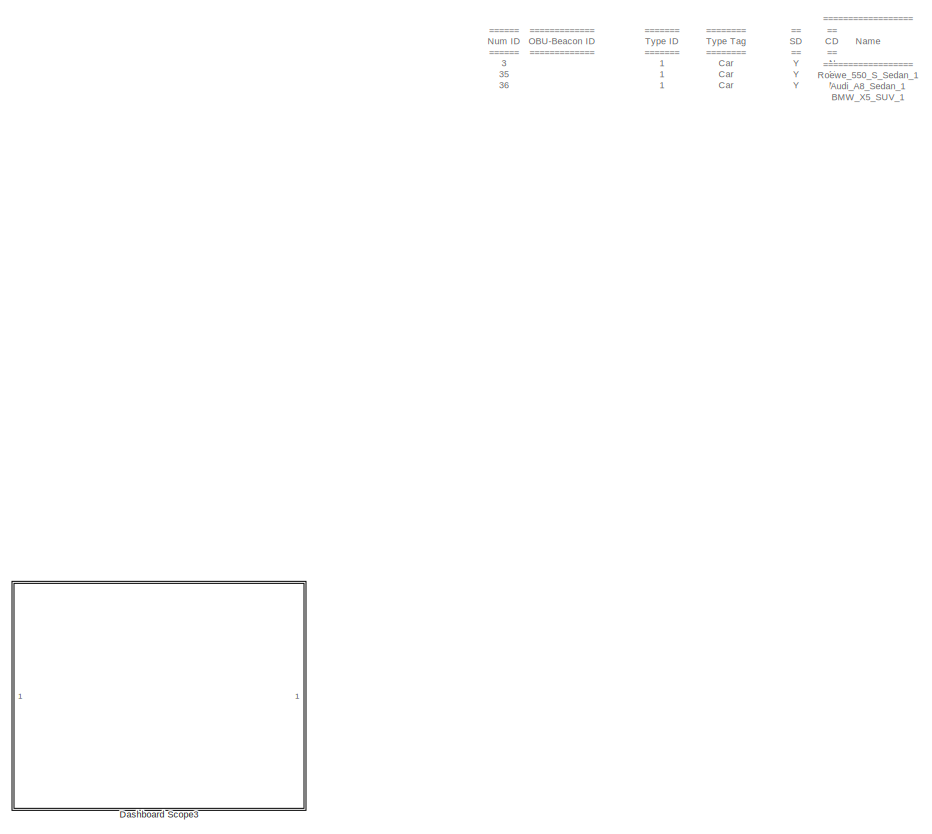
[diagram: root canvas - part 1/3, right side, full height]
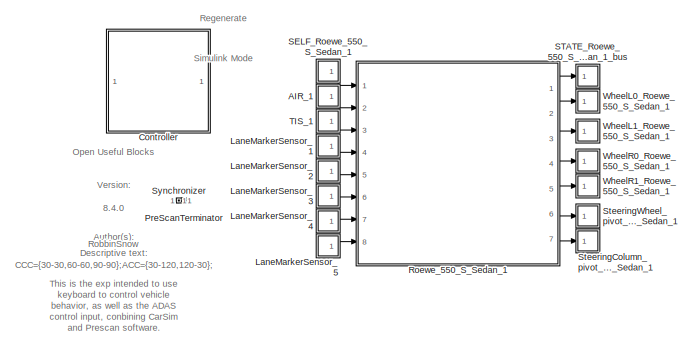
[diagram: root canvas - part 2/3, top left region]
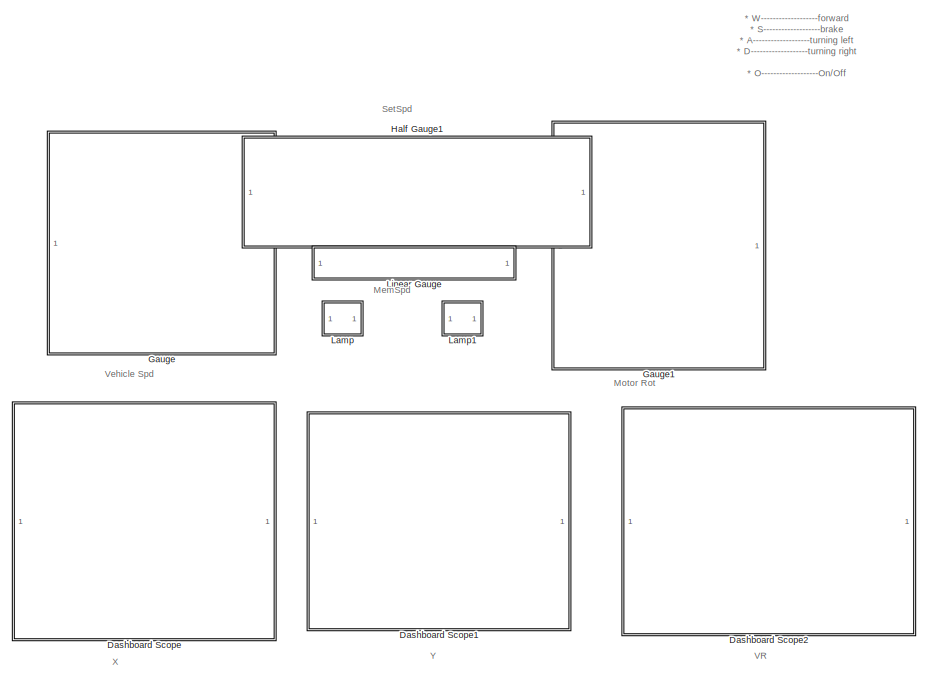
[diagram: root canvas - part 3/3, center side, full height]
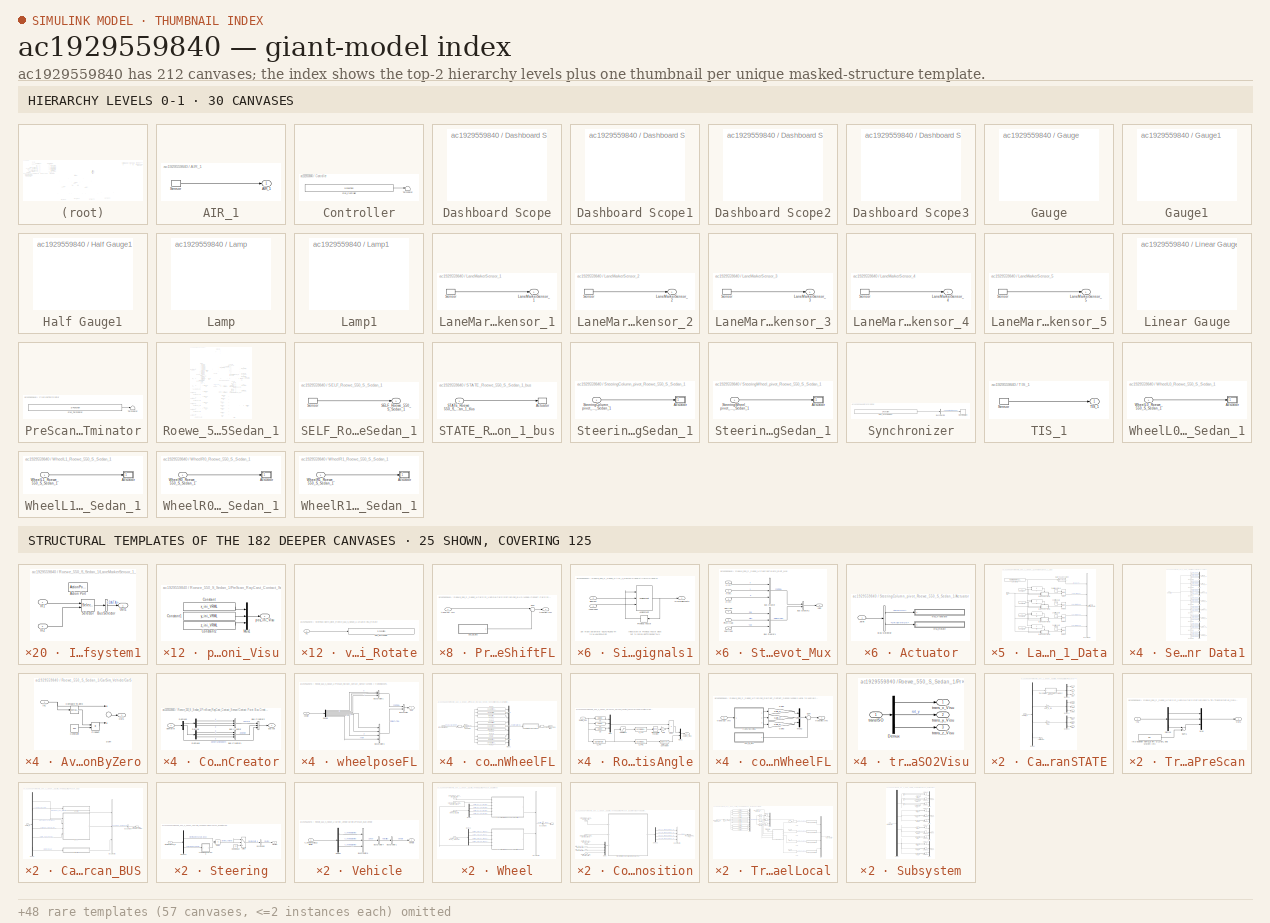
[diagram: thumbnail index - top-2 hierarchy levels (30 canvases) + 25 structural-template representatives of the remaining 182 canvases]
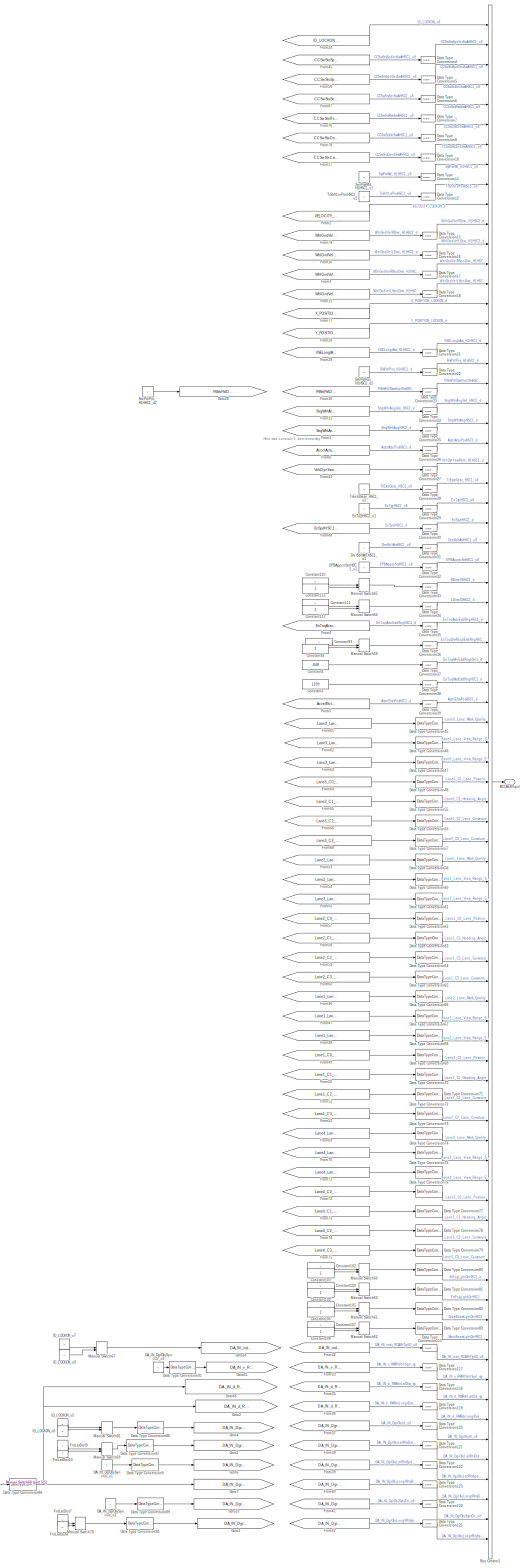
[diagram: Roewe_550_S_Sedan_1/CarSim I/O/ACCAEB In - part 1/5, right side, full height]
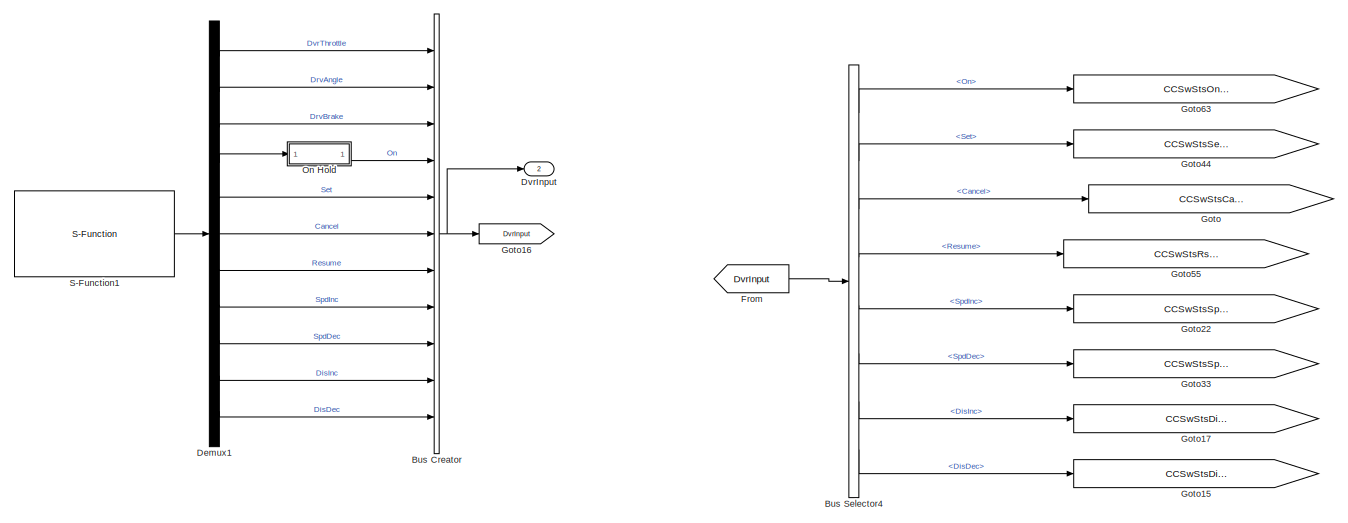
[diagram: Roewe_550_S_Sedan_1/CarSim I/O/ACCAEB In - part 2/5, top left region]
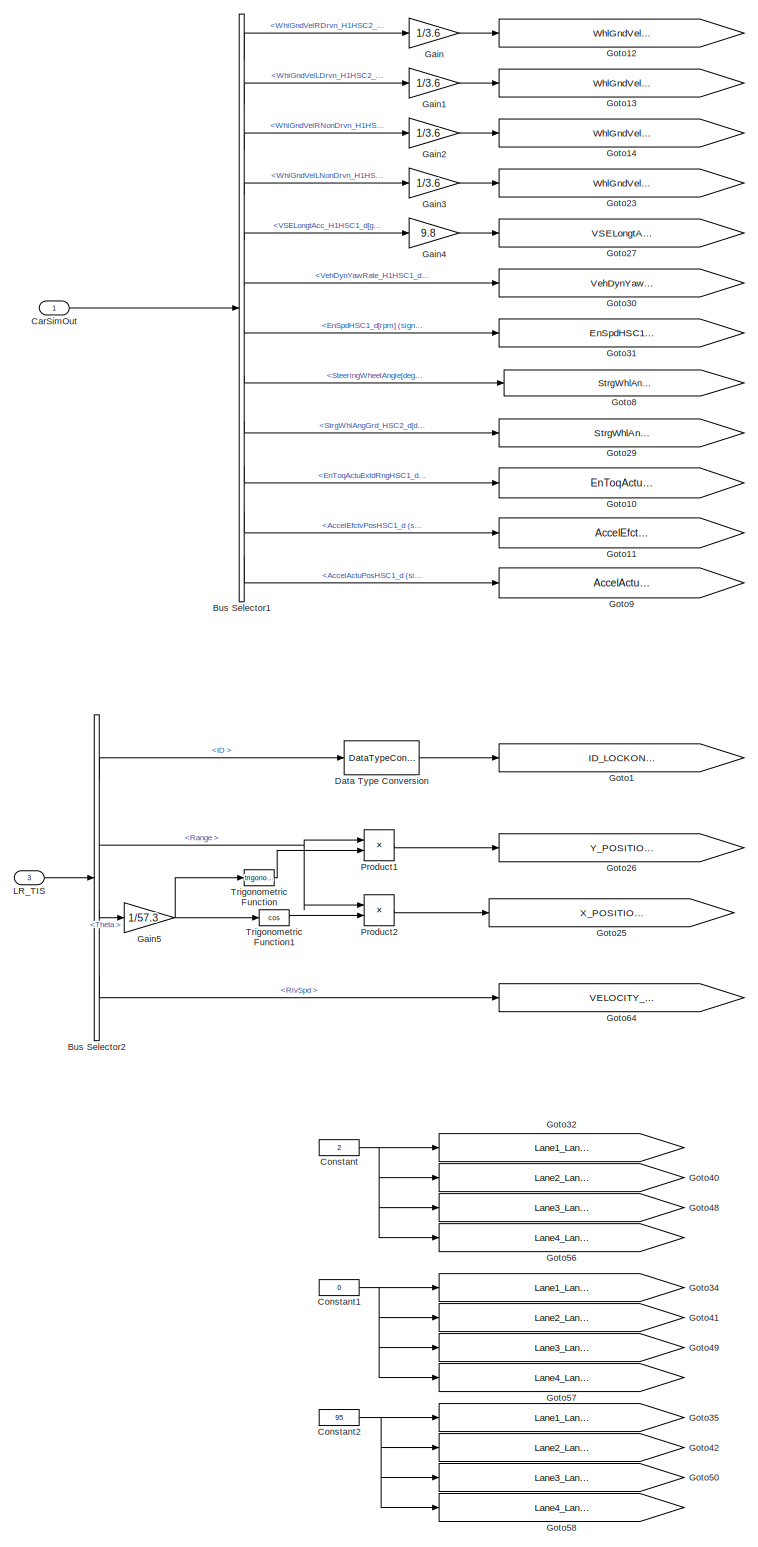
[diagram: Roewe_550_S_Sedan_1/CarSim I/O/ACCAEB In - part 3/5, middle left region]
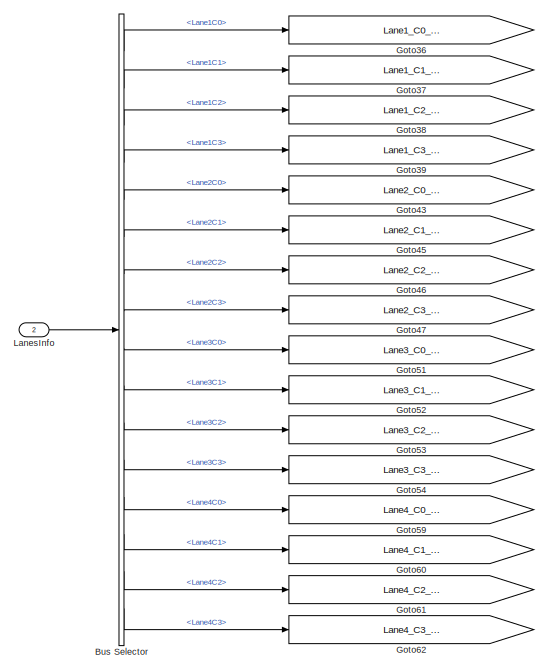
[diagram: Roewe_550_S_Sedan_1/CarSim I/O/ACCAEB In - part 4/5, middle left region]
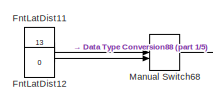
[diagram: Roewe_550_S_Sedan_1/CarSim I/O/ACCAEB In - part 5/5, bottom center region]
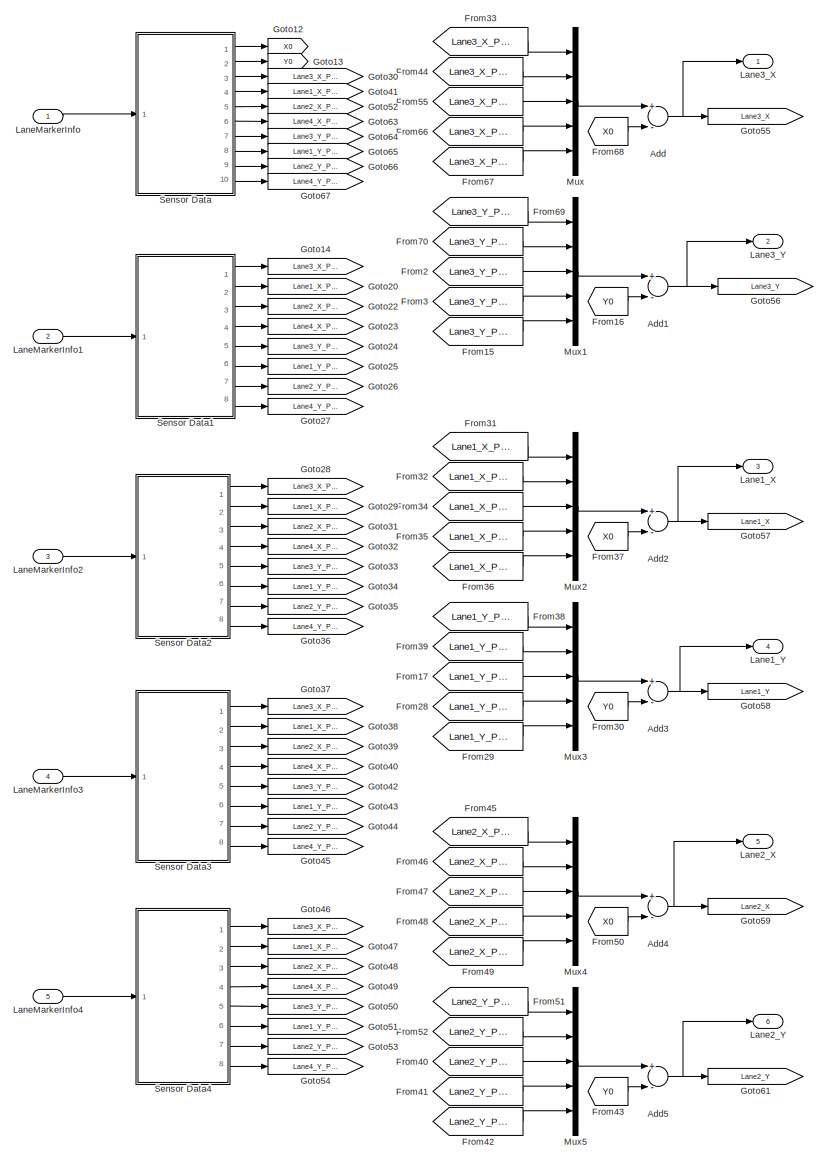
[diagram: Roewe_550_S_Sedan_1/CarSim I/O/LaneMarker/Subsystem - part 1/2, most of the canvas]
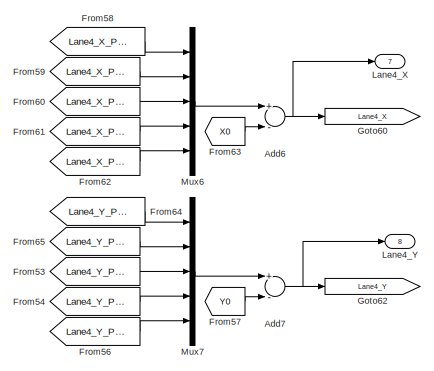
[diagram: Roewe_550_S_Sedan_1/CarSim I/O/LaneMarker/Subsystem - part 2/2, bottom right region]
MODEL slx_ac1929559840
KIND model
CONFIG AbsTol = auto
CONFIG FixedStep = 1/1000
CONFIG InitFcn = mbxruntime.callbacks.InitFcn(bdroot);
CONFIG MaxStep = auto
CONFIG MinStep = auto
CONFIG PostLoadFcn = mbxruntime.callbacks.PostLoadFcn(bdroot);
CONFIG PreLoadFcn = mbxruntime.callbacks.PreLoadFcn(bdroot);
CONFIG RelTol = 1e-3
CONFIG SampleTimeConstraint = Unconstrained
CONFIG Solver = ode5
CONFIG SolverMode = SingleTasking
CONFIG SolverName = ode5
CONFIG StartFcn = mbxruntime.callbacks.StartFcn(bdroot);
CONFIG StartTime = 0.0
CONFIG StopFcn = mbxruntime.callbacks.StopFcn(bdroot);
CONFIG StopTime = inf
WORKSPACE source: MAT-file member
WORKSPACE mbox_table: struct (value not decoded)
BLOCK [SubSystem] AIR_1
  LoadFcn = load('PrescanAIRSensorData.mat');load('PrescanAIRSensorMessage.mat')
  OpenFcn = open_system([gcb '/Sensor'],'mask')
  Ports = [0, 1]
  Priority = 3
  RequestExecContextInheritance = off
  Tag = sensor/AIR
  Variant = off
BLOCK [Outport] AIR_1/AIR_1
  IconDisplay = Port number
  OutDataTypeStr = Bus: PRESCAN_AIRSENSORMESSAGE
  PortDimensions = 1
  SampleTime = 50/1000
  Tag = outport/AIR
BLOCK [S-Function] AIR_1/Sensor
  EnableBusSupport = off
  FunctionName = sfun_AIRSensor
  Parameters = detectableObjects, sensorID, timestep
  Ports = [0, 1]
  SFunctionDeploymentMode = off
BLOCK [SubSystem] Controller
  Description = 716B52226840ED8A2B983844B5ED4939B60F83D27F6F92BD3908DE6AB7A51B4A
  LoadFcn = load PreScanControllerData
  ModelCloseFcn = assignin('base',['model_closed_' bdroot],true);
  Ports = []
  Priority = -1
  RequestExecContextInheritance = off
  Variant = off
BLOCK [Terminator] Controller/Terminator
BLOCK [S-Function] Controller/sfun_Controller
  EnableBusSupport = off
  FunctionName = sfun_Controller
  Parameters = SParameter1, SParameter2, SParameter3, SParameter4, SParameter5, SParameter6, SParameter7, SParameter8, SParameter9, SParameter10, SampleTime
  Ports = [0, 1]
  SFunctionDeploymentMode = off
BLOCK [SubSystem] Dashboard Scope
  DialogController = hmiCreateDDGDialog
  IsWebBlock = on
  MaskHideContents = on
  Ports = []
  RequestExecContextInheritance = off
  Tag = x
  Variant = off
BLOCK [SubSystem] Dashboard Scope1
  DialogController = hmiCreateDDGDialog
  IsWebBlock = on
  MaskHideContents = on
  Ports = []
  RequestExecContextInheritance = off
  Variant = off
BLOCK [SubSystem] Dashboard Scope2
  DialogController = hmiCreateDDGDialog
  IsWebBlock = on
  MaskHideContents = on
  Ports = []
  RequestExecContextInheritance = off
  Variant = off
BLOCK [SubSystem] Dashboard Scope3
  DialogController = hmiCreateDDGDialog
  IsWebBlock = on
  MaskHideContents = on
  Ports = []
  RequestExecContextInheritance = off
  Variant = off
BLOCK [SubSystem] Gauge
  DialogController = hmiCreateDDGDialog
  IsWebBlock = on
  MaskHideContents = on
  Ports = []
  RequestExecContextInheritance = off
  Variant = off
BLOCK [SubSystem] Gauge1
  DialogController = hmiCreateDDGDialog
  IsWebBlock = on
  MaskHideContents = on
  Ports = []
  RequestExecContextInheritance = off
  Variant = off
BLOCK [SubSystem] Half Gauge1
  DialogController = hmiCreateDDGDialog
  IsWebBlock = on
  MaskHideContents = on
  Ports = []
  RequestExecContextInheritance = off
  Variant = off
BLOCK [SubSystem] Lamp
  DialogController = hmiCreateDDGDialog
  IsWebBlock = on
  MaskHideContents = on
  Ports = []
  RequestExecContextInheritance = off
  Variant = off
BLOCK [SubSystem] Lamp1
  DialogController = hmiCreateDDGDialog
  IsWebBlock = on
  MaskHideContents = on
  Ports = []
  RequestExecContextInheritance = off
  Variant = off
BLOCK [SubSystem] LaneMarkerSensor_1
  LoadFcn = load('PrescanLaneMarkerIntersection.mat');load('PrescanLaneMarkerData.mat');load('PrescanLaneMarkerMessage.mat')
  OpenFcn = open_system([gcb '/Sensor'],'mask')
  Ports = [0, 1]
  Priority = 3
  RequestExecContextInheritance = off
  Tag = sensor/LaneMarker
  Variant = off
BLOCK [Outport] LaneMarkerSensor_1/LaneMarkerSensor_1
  IconDisplay = Port number
  OutDataTypeStr = Bus: PRESCAN_LANEMARKER_MESSAGE
  PortDimensions = 4
  SampleTime = 1/20
  Tag = outport/LaneMarker
BLOCK [S-Function] LaneMarkerSensor_1/Sensor
  EnableBusSupport = off
  FunctionName = sfun_LaneMarker
  Parameters = sensorID, numberOfSlices, timestep
  Ports = [0, 1]
  SFunctionDeploymentMode = off
BLOCK [SubSystem] LaneMarkerSensor_2
  LoadFcn = load('PrescanLaneMarkerIntersection.mat');load('PrescanLaneMarkerData.mat');load('PrescanLaneMarkerMessage.mat')
  OpenFcn = open_system([gcb '/Sensor'],'mask')
  Ports = [0, 1]
  Priority = 3
  RequestExecContextInheritance = off
  Tag = sensor/LaneMarker
  Variant = off
BLOCK [Outport] LaneMarkerSensor_2/LaneMarkerSensor_2
  IconDisplay = Port number
  OutDataTypeStr = Bus: PRESCAN_LANEMARKER_MESSAGE
  PortDimensions = 4
  SampleTime = 1/20
  Tag = outport/LaneMarker
BLOCK [S-Function] LaneMarkerSensor_2/Sensor
  EnableBusSupport = off
  FunctionName = sfun_LaneMarker
  Parameters = sensorID, numberOfSlices, timestep
  Ports = [0, 1]
  SFunctionDeploymentMode = off
BLOCK [SubSystem] LaneMarkerSensor_3
  LoadFcn = load('PrescanLaneMarkerIntersection.mat');load('PrescanLaneMarkerData.mat');load('PrescanLaneMarkerMessage.mat')
  OpenFcn = open_system([gcb '/Sensor'],'mask')
  Ports = [0, 1]
  Priority = 3
  RequestExecContextInheritance = off
  Tag = sensor/LaneMarker
  Variant = off
BLOCK [Outport] LaneMarkerSensor_3/LaneMarkerSensor_3
  IconDisplay = Port number
  OutDataTypeStr = Bus: PRESCAN_LANEMARKER_MESSAGE
  PortDimensions = 4
  SampleTime = 1/20
  Tag = outport/LaneMarker
BLOCK [S-Function] LaneMarkerSensor_3/Sensor
  EnableBusSupport = off
  FunctionName = sfun_LaneMarker
  Parameters = sensorID, numberOfSlices, timestep
  Ports = [0, 1]
  SFunctionDeploymentMode = off
BLOCK [SubSystem] LaneMarkerSensor_4
  LoadFcn = load('PrescanLaneMarkerIntersection.mat');load('PrescanLaneMarkerData.mat');load('PrescanLaneMarkerMessage.mat')
  OpenFcn = open_system([gcb '/Sensor'],'mask')
  Ports = [0, 1]
  Priority = 3
  RequestExecContextInheritance = off
  Tag = sensor/LaneMarker
  Variant = off
BLOCK [Outport] LaneMarkerSensor_4/LaneMarkerSensor_4
  IconDisplay = Port number
  OutDataTypeStr = Bus: PRESCAN_LANEMARKER_MESSAGE
  PortDimensions = 4
  SampleTime = 1/20
  Tag = outport/LaneMarker
BLOCK [S-Function] LaneMarkerSensor_4/Sensor
  EnableBusSupport = off
  FunctionName = sfun_LaneMarker
  Parameters = sensorID, numberOfSlices, timestep
  Ports = [0, 1]
  SFunctionDeploymentMode = off
BLOCK [SubSystem] LaneMarkerSensor_5
  LoadFcn = load('PrescanLaneMarkerIntersection.mat');load('PrescanLaneMarkerData.mat');load('PrescanLaneMarkerMessage.mat')
  OpenFcn = open_system([gcb '/Sensor'],'mask')
  Ports = [0, 1]
  Priority = 3
  RequestExecContextInheritance = off
  Tag = sensor/LaneMarker
  Variant = off
BLOCK [Outport] LaneMarkerSensor_5/LaneMarkerSensor_5
  IconDisplay = Port number
  OutDataTypeStr = Bus: PRESCAN_LANEMARKER_MESSAGE
  PortDimensions = 4
  SampleTime = 1/20
  Tag = outport/LaneMarker
BLOCK [S-Function] LaneMarkerSensor_5/Sensor
  EnableBusSupport = off
  FunctionName = sfun_LaneMarker
  Parameters = sensorID, numberOfSlices, timestep
  Ports = [0, 1]
  SFunctionDeploymentMode = off
BLOCK [SubSystem] Linear Gauge
  DialogController = hmiCreateDDGDialog
  IsWebBlock = on
  MaskHideContents = on
  Ports = []
  RequestExecContextInheritance = off
  Variant = off
BLOCK [SubSystem] PreScanTerminator
  LoadFcn = load PrescanTerminatorData
  Ports = []
  Priority = 999
  RequestExecContextInheritance = off
  Tag = PreScanTerminator
  Variant = off
BLOCK [Terminator] PreScanTerminator/Terminator
BLOCK [S-Function] PreScanTerminator/sfun_Terminator
  EnableBusSupport = off
  FunctionName = sfun_Terminator
  Parameters = SampleTime
  Ports = [0, 1]
  SFunctionDeploymentMode = off
BLOCK [SubSystem] Roewe_550_S_Sedan_1
  InitFcn = UniqueId = '29';
  Ports = [8, 7]
  RequestExecContextInheritance = off
  Tag = WorldObjectSubSystem
  Variant = off
BLOCK [Inport] Roewe_550_S_Sedan_1/AIR_1
  BusOutputAsStruct = on
  IconDisplay = Port number
  OutDataTypeStr = Bus: PRESCAN_AIRSENSORMESSAGE
  Port = 2
  PortDimensions = 1
  SampleTime = 50/1000
  Tag = inport/AIR
BLOCK [SubSystem] Roewe_550_S_Sedan_1/AIR_1_Demux
  DeleteFcn = PreScanBlockDeleteFcn;
  Ports = [1, 6]
  RequestExecContextInheritance = off
  Tag = demux/AIR
  Variant = off
BLOCK [Inport] Roewe_550_S_Sedan_1/AIR_1_Demux/AIR
  IconDisplay = Port number
BLOCK [SubSystem] Roewe_550_S_Sedan_1/AIR_1_Demux/Activate_Switch
  Ports = [2, 1]
  RequestExecContextInheritance = off
  Variant = off
BLOCK [Inport] Roewe_550_S_Sedan_1/AIR_1_Demux/Activate_Switch/BeamID
  IconDisplay = Port number
BLOCK [Constant] Roewe_550_S_Sedan_1/AIR_1_Demux/Activate_Switch/Constant
  Value = 0
BLOCK [Inport] Roewe_550_S_Sedan_1/AIR_1_Demux/Activate_Switch/Heading
  IconDisplay = Port number
  Port = 2
BLOCK [Outport] Roewe_550_S_Sedan_1/AIR_1_Demux/Activate_Switch/On//Off
  IconDisplay = Port number
BLOCK [Product] Roewe_550_S_Sedan_1/AIR_1_Demux/Activate_Switch/Product1
  InputSameDT = off
  OutDataTypeStr = Inherit: Inherit via internal rule
  Ports = [2, 1]
  SaturateOnIntegerOverflow = off
BLOCK [RelationalOperator] Roewe_550_S_Sedan_1/AIR_1_Demux/Activate_Switch/Relational Operator
  InputSameDT = off
  Operator = ~=
  OutDataTypeStr = boolean
  Ports = [2, 1]
BLOCK [Outport] Roewe_550_S_Sedan_1/AIR_1_Demux/Azimuth [deg]
  IconDisplay = Port number
  Port = 2
BLOCK [BusSelector] Roewe_550_S_Sedan_1/AIR_1_Demux/Bus Selector
  OutputSignals = DATA.Range,DATA.Azimuth,DATA.Elevation,DATA.ID,DATA.Velocity,DATA.Heading
  Ports = [1, 6]
BLOCK [DataTypeConversion] Roewe_550_S_Sedan_1/AIR_1_Demux/Data Type Conversion
  OutDataTypeStr = double
  RndMeth = Floor
  SaturateOnIntegerOverflow = off
BLOCK [Outport] Roewe_550_S_Sedan_1/AIR_1_Demux/Elevation [deg]
  IconDisplay = Port number
  Port = 3
BLOCK [ForIterator] Roewe_550_S_Sedan_1/AIR_1_Demux/For Iterator
  IterationLimit = detectableObjects
  Ports = [0, 1]
  ResetStates = reset
BLOCK [Outport] Roewe_550_S_Sedan_1/AIR_1_Demux/Heading [deg]
  IconDisplay = Port number
  Port = 6
BLOCK [Outport] Roewe_550_S_Sedan_1/AIR_1_Demux/ID [-]
  IconDisplay = Port number
  Port = 4
BLOCK [Outport] Roewe_550_S_Sedan_1/AIR_1_Demux/Range [m]
  IconDisplay = Port number
BLOCK [Selector] Roewe_550_S_Sedan_1/AIR_1_Demux/Selector
  IndexOptions = Index vector (port)
  Indices = [1 3]
  InputPortWidth = detectableObjects
  OutputSizes = 1
  Ports = [2, 1]
BLOCK [SubSystem] Roewe_550_S_Sedan_1/AIR_1_Demux/Signal2ArrayOfSignals1
  Ports = [2, 1]
  RequestExecContextInheritance = off
  Variant = off
BLOCK [Outport] Roewe_550_S_Sedan_1/AIR_1_Demux/Signal2ArrayOfSignals1/ArrayofElements
  IconDisplay = Port number
BLOCK [Assignment] Roewe_550_S_Sedan_1/AIR_1_Demux/Signal2ArrayOfSignals1/Assignment
  IndexOptions = Index vector (port)
  Indices = 1
  OutputSizes = 1
  Ports = [3, 1]
BLOCK [Inport] Roewe_550_S_Sedan_1/AIR_1_Demux/Signal2ArrayOfSignals1/Element
  IconDisplay = Port number
  Port = 2
BLOCK [Inport] Roewe_550_S_Sedan_1/AIR_1_Demux/Signal2ArrayOfSignals1/LoopIndex
  IconDisplay = Port number
BLOCK [Memory] Roewe_550_S_Sedan_1/AIR_1_Demux/Signal2ArrayOfSignals1/Previous vector
  InheritSampleTime = on
  X0 = zeros(VECTORLENGTH,1)
BLOCK [SubSystem] Roewe_550_S_Sedan_1/AIR_1_Demux/Signal2ArrayOfSignals2
  Ports = [2, 1]
  RequestExecContextInheritance = off
  Variant = off
BLOCK [Outport] Roewe_550_S_Sedan_1/AIR_1_Demux/Signal2ArrayOfSignals2/ArrayofElements
  IconDisplay = Port number
BLOCK [Assignment] Roewe_550_S_Sedan_1/AIR_1_Demux/Signal2ArrayOfSignals2/Assignment
  IndexOptions = Index vector (port)
  Indices = 1
  OutputSizes = 1
  Ports = [3, 1]
BLOCK [Inport] Roewe_550_S_Sedan_1/AIR_1_Demux/Signal2ArrayOfSignals2/Element
  IconDisplay = Port number
  Port = 2
BLOCK [Inport] Roewe_550_S_Sedan_1/AIR_1_Demux/Signal2ArrayOfSignals2/LoopIndex
  IconDisplay = Port number
BLOCK [Memory] Roewe_550_S_Sedan_1/AIR_1_Demux/Signal2ArrayOfSignals2/Previous vector
  InheritSampleTime = on
  X0 = zeros(VECTORLENGTH,1)
BLOCK [SubSystem] Roewe_550_S_Sedan_1/AIR_1_Demux/Signal2ArrayOfSignals3
  Ports = [2, 1]
  RequestExecContextInheritance = off
  Variant = off
BLOCK [Outport] Roewe_550_S_Sedan_1/AIR_1_Demux/Signal2ArrayOfSignals3/ArrayofElements
  IconDisplay = Port number
BLOCK [Assignment] Roewe_550_S_Sedan_1/AIR_1_Demux/Signal2ArrayOfSignals3/Assignment
  IndexOptions = Index vector (port)
  Indices = 1
  OutputSizes = 1
  Ports = [3, 1]
BLOCK [Inport] Roewe_550_S_Sedan_1/AIR_1_Demux/Signal2ArrayOfSignals3/Element
  IconDisplay = Port number
  Port = 2
BLOCK [Inport] Roewe_550_S_Sedan_1/AIR_1_Demux/Signal2ArrayOfSignals3/LoopIndex
  IconDisplay = Port number
BLOCK [Memory] Roewe_550_S_Sedan_1/AIR_1_Demux/Signal2ArrayOfSignals3/Previous vector
  InheritSampleTime = on
  X0 = zeros(VECTORLENGTH,1)
BLOCK [SubSystem] Roewe_550_S_Sedan_1/AIR_1_Demux/Signal2ArrayOfSignals4
  Ports = [2, 1]
  RequestExecContextInheritance = off
  Variant = off
BLOCK [Outport] Roewe_550_S_Sedan_1/AIR_1_Demux/Signal2ArrayOfSignals4/ArrayofElements
  IconDisplay = Port number
BLOCK [Assignment] Roewe_550_S_Sedan_1/AIR_1_Demux/Signal2ArrayOfSignals4/Assignment
  IndexOptions = Index vector (port)
  Indices = 1
  OutputSizes = 1
  Ports = [3, 1]
BLOCK [Inport] Roewe_550_S_Sedan_1/AIR_1_Demux/Signal2ArrayOfSignals4/Element
  IconDisplay = Port number
  Port = 2
BLOCK [Inport] Roewe_550_S_Sedan_1/AIR_1_Demux/Signal2ArrayOfSignals4/LoopIndex
  IconDisplay = Port number
BLOCK [Memory] Roewe_550_S_Sedan_1/AIR_1_Demux/Signal2ArrayOfSignals4/Previous vector
  InheritSampleTime = on
  X0 = zeros(VECTORLENGTH,1)
BLOCK [SubSystem] Roewe_550_S_Sedan_1/AIR_1_Demux/Signal2ArrayOfSignals5
  Ports = [2, 1]
  RequestExecContextInheritance = off
  Variant = off
BLOCK [Outport] Roewe_550_S_Sedan_1/AIR_1_Demux/Signal2ArrayOfSignals5/ArrayofElements
  IconDisplay = Port number
BLOCK [Assignment] Roewe_550_S_Sedan_1/AIR_1_Demux/Signal2ArrayOfSignals5/Assignment
  IndexOptions = Index vector (port)
  Indices = 1
  OutputSizes = 1
  Ports = [3, 1]
BLOCK [Inport] Roewe_550_S_Sedan_1/AIR_1_Demux/Signal2ArrayOfSignals5/Element
  IconDisplay = Port number
  Port = 2
BLOCK [Inport] Roewe_550_S_Sedan_1/AIR_1_Demux/Signal2ArrayOfSignals5/LoopIndex
  IconDisplay = Port number
BLOCK [Memory] Roewe_550_S_Sedan_1/AIR_1_Demux/Signal2ArrayOfSignals5/Previous vector
  InheritSampleTime = on
  X0 = zeros(VECTORLENGTH,1)
BLOCK [SubSystem] Roewe_550_S_Sedan_1/AIR_1_Demux/Signal2ArrayOfSignals6
  Ports = [2, 1]
  RequestExecContextInheritance = off
  Variant = off
BLOCK [Outport] Roewe_550_S_Sedan_1/AIR_1_Demux/Signal2ArrayOfSignals6/ArrayofElements
  IconDisplay = Port number
BLOCK [Assignment] Roewe_550_S_Sedan_1/AIR_1_Demux/Signal2ArrayOfSignals6/Assignment
  IndexOptions = Index vector (port)
  Indices = 1
  OutputSizes = 1
  Ports = [3, 1]
BLOCK [Inport] Roewe_550_S_Sedan_1/AIR_1_Demux/Signal2ArrayOfSignals6/Element
  IconDisplay = Port number
  Port = 2
BLOCK [Inport] Roewe_550_S_Sedan_1/AIR_1_Demux/Signal2ArrayOfSignals6/LoopIndex
  IconDisplay = Port number
BLOCK [Memory] Roewe_550_S_Sedan_1/AIR_1_Demux/Signal2ArrayOfSignals6/Previous vector
  InheritSampleTime = on
  X0 = zeros(VECTORLENGTH,1)
BLOCK [Outport] Roewe_550_S_Sedan_1/AIR_1_Demux/Velocity [m//s]
  IconDisplay = Port number
  Port = 5
BLOCK [BusCreator] Roewe_550_S_Sedan_1/Bus Creator
  DisplayOption = bar
  InheritFromInputs = on
  Inputs = 4
  Ports = [4, 1]
BLOCK [BusSelector] Roewe_550_S_Sedan_1/Bus Selector
  OutputSignals = SteeringWheelAngle[deg] (signal 34)
  Ports = [1, 1]
BLOCK [SubSystem] Roewe_550_S_Sedan_1/CarSim I//O
  Ports = [7, 1]
  RequestExecContextInheritance = off
  Variant = off
BLOCK [SubSystem] Roewe_550_S_Sedan_1/CarSim I//O/ACCAEB
  DialogController = pil_create_dialog
  LoadFcn = try\n   if ~strcmp(rtw.pil.getPILVersion, '6.10 (R2016a)_12')\n      set_param(gcb, 'DialogController', '');\n      set_param(gcb, 'DialogControllerArgs', '');\n   end\ncatch e\n      set_param(gcb, 'DialogController', '');\n      set_param(gcb, 'DialogControllerArgs', '');\nend
  Ports = [1, 1]
  RequestExecContextInheritance = off
  Variant = off
BLOCK [SubSystem] Roewe_550_S_Sedan_1/CarSim I//O/ACCAEB In
  Ports = [3, 2]
  RequestExecContextInheritance = off
  TreatAsAtomicUnit = on
  Variant = off
BLOCK [Outport] Roewe_550_S_Sedan_1/CarSim I//O/ACCAEB In/ACCAEBInput
  IconDisplay = Port number
  OutDataTypeStr = Bus: AccAebInputs
BLOCK [Constant] Roewe_550_S_Sedan_1/CarSim I//O/ACCAEB In/BrkPdlPos_H1HSC1_d1
  OutDataTypeStr = double
  Value = 0
BLOCK [Constant] Roewe_550_S_Sedan_1/CarSim I//O/ACCAEB In/BrkPdlPos_H1HSC1_d2
  OutDataTypeStr = uint8
  Value = 0
BLOCK [BusCreator] Roewe_550_S_Sedan_1/CarSim I//O/ACCAEB In/Bus Creator
  DisplayOption = bar
  InheritFromInputs = on
  Inputs = 11
  Ports = [11, 1]
BLOCK [BusCreator] Roewe_550_S_Sedan_1/CarSim I//O/ACCAEB In/Bus Creator1
  DisplayOption = bar
  InheritFromInputs = on
  Inputs = 77
  Ports = [77, 1]
BLOCK [BusSelector] Roewe_550_S_Sedan_1/CarSim I//O/ACCAEB In/Bus Selector
  OutputSignals = Lane1C0,Lane1C1,Lane1C2,Lane1C3,Lane2C0,Lane2C1,Lane2C2,Lane2C3,Lane3C0,Lane3C1,Lane3C2,Lane3C3,Lane4C0,Lane4C1,Lane4C2,Lane4C3
  Ports = [1, 16]
BLOCK [BusSelector] Roewe_550_S_Sedan_1/CarSim I//O/ACCAEB In/Bus Selector1
  OutputSignals = WhlGndVelRDrvn_H1HSC2_d[km/h] (signal 38),WhlGndVelLDrvn_H1HSC2_d[km/h] (signal 39),WhlGndVelRNonDrvn_H1HSC2_d[km/h] (signal 40),WhlGndVelLNonDrvn_H1HSC2_d[km/h] (signal 41),VSELongtAcc_H1HSC1_d[g] (signal 42),VehDynYawRate_H1HSC1_d[deg/s] (signal 43),EnSpdHSC1_d[rpm] (signal 36),SteeringWheelAngle[deg] (signal 34),StrgWhlAngGrd_HSC2_d[deg/s] (signal 44),EnToqActuExtdRngHSC1_d[N M] (signal 37),Acc...<+59ch>
  Ports = [1, 12]
BLOCK [BusSelector] Roewe_550_S_Sedan_1/CarSim I//O/ACCAEB In/Bus Selector2
  OutputSignals = ID ,Range ,Theta ,RlvSpd
  Ports = [1, 4]
BLOCK [BusSelector] Roewe_550_S_Sedan_1/CarSim I//O/ACCAEB In/Bus Selector4
  OutputSignals = On,Set,Cancel,Resume,SpdInc,SpdDec,DisInc,DisDec
  Ports = [1, 8]
BLOCK [Inport] Roewe_550_S_Sedan_1/CarSim I//O/ACCAEB In/CarSimOut
  IconDisplay = Port number
BLOCK [Constant] Roewe_550_S_Sedan_1/CarSim I//O/ACCAEB In/Constant
  Value = 2
BLOCK [Constant] Roewe_550_S_Sedan_1/CarSim I//O/ACCAEB In/Constant1
  Value = 0
BLOCK [Constant] Roewe_550_S_Sedan_1/CarSim I//O/ACCAEB In/Constant102
  Value = 0
BLOCK [Constant] Roewe_550_S_Sedan_1/CarSim I//O/ACCAEB In/Constant103
BLOCK [Constant] Roewe_550_S_Sedan_1/CarSim I//O/ACCAEB In/Constant104
  Value = 0
BLOCK [Constant] Roewe_550_S_Sedan_1/CarSim I//O/ACCAEB In/Constant105
  Value = 0
BLOCK [Constant] Roewe_550_S_Sedan_1/CarSim I//O/ACCAEB In/Constant106
BLOCK [Constant] Roewe_550_S_Sedan_1/CarSim I//O/ACCAEB In/Constant107
  Value = 0
BLOCK [Constant] Roewe_550_S_Sedan_1/CarSim I//O/ACCAEB In/Constant108
BLOCK [Constant] Roewe_550_S_Sedan_1/CarSim I//O/ACCAEB In/Constant109
BLOCK [Constant] Roewe_550_S_Sedan_1/CarSim I//O/ACCAEB In/Constant110
  Value = 0
BLOCK [Constant] Roewe_550_S_Sedan_1/CarSim I//O/ACCAEB In/Constant111
  Value = 0
BLOCK [Constant] Roewe_550_S_Sedan_1/CarSim I//O/ACCAEB In/Constant112
BLOCK [Constant] Roewe_550_S_Sedan_1/CarSim I//O/ACCAEB In/Constant113
BLOCK [Constant] Roewe_550_S_Sedan_1/CarSim I//O/ACCAEB In/Constant2
  Value = 95
BLOCK [Constant] Roewe_550_S_Sedan_1/CarSim I//O/ACCAEB In/Constant3
  Value = 1199
BLOCK [Constant] Roewe_550_S_Sedan_1/CarSim I//O/ACCAEB In/Constant4
  Value = -848
BLOCK [Constant] Roewe_550_S_Sedan_1/CarSim I//O/ACCAEB In/Constant93
  Value = 0
BLOCK [Constant] Roewe_550_S_Sedan_1/CarSim I//O/ACCAEB In/Constant94
BLOCK [Constant] Roewe_550_S_Sedan_1/CarSim I//O/ACCAEB In/DA_IN_DgrObjSyncCtr_u1
  OutDataTypeStr = uint8
  Value = 0
BLOCK [Constant] Roewe_550_S_Sedan_1/CarSim I//O/ACCAEB In/DA_IN_DgrObjSyncCtr_u2
  OutDataTypeStr = uint8
  Value = 0
BLOCK [Constant] Roewe_550_S_Sedan_1/CarSim I//O/ACCAEB In/DA_IN_DgrObjSyncCtr_u3
  OutDataTypeStr = uint8
  Value = 0
BLOCK [DataTypeConversion] Roewe_550_S_Sedan_1/CarSim I//O/ACCAEB In/Data Type Conversion
  OutDataTypeStr = uint8
  RndMeth = Floor
  SaturateOnIntegerOverflow = off
BLOCK [DataTypeConversion] Roewe_550_S_Sedan_1/CarSim I//O/ACCAEB In/Data Type Conversion10
  OutDataTypeStr = uint8
  RndMeth = Floor
  SaturateOnIntegerOverflow = off
BLOCK [DataTypeConversion] Roewe_550_S_Sedan_1/CarSim I//O/ACCAEB In/Data Type Conversion11
  OutDataTypeStr = uint8
  RndMeth = Floor
  SaturateOnIntegerOverflow = off
BLOCK [DataTypeConversion] Roewe_550_S_Sedan_1/CarSim I//O/ACCAEB In/Data Type Conversion115
  OutDataTypeStr = uint8
  RndMeth = Floor
  SaturateOnIntegerOverflow = off
BLOCK [DataTypeConversion] Roewe_550_S_Sedan_1/CarSim I//O/ACCAEB In/Data Type Conversion117
  OutDataTypeStr = single
  RndMeth = Floor
  SaturateOnIntegerOverflow = off
BLOCK [DataTypeConversion] Roewe_550_S_Sedan_1/CarSim I//O/ACCAEB In/Data Type Conversion118
  OutDataTypeStr = single
  RndMeth = Floor
  SaturateOnIntegerOverflow = off
BLOCK [DataTypeConversion] Roewe_550_S_Sedan_1/CarSim I//O/ACCAEB In/Data Type Conversion119
  OutDataTypeStr = single
  RndMeth = Floor
  SaturateOnIntegerOverflow = off
BLOCK [DataTypeConversion] Roewe_550_S_Sedan_1/CarSim I//O/ACCAEB In/Data Type Conversion12
  OutDataTypeStr = uint8
  RndMeth = Floor
  SaturateOnIntegerOverflow = off
BLOCK [DataTypeConversion] Roewe_550_S_Sedan_1/CarSim I//O/ACCAEB In/Data Type Conversion120
  OutDataTypeStr = uint8
  RndMeth = Floor
  SaturateOnIntegerOverflow = off
BLOCK [DataTypeConversion] Roewe_550_S_Sedan_1/CarSim I//O/ACCAEB In/Data Type Conversion121
  OutDataTypeStr = single
  RndMeth = Floor
  SaturateOnIntegerOverflow = off
BLOCK [DataTypeConversion] Roewe_550_S_Sedan_1/CarSim I//O/ACCAEB In/Data Type Conversion122
  OutDataTypeStr = single
  RndMeth = Floor
  SaturateOnIntegerOverflow = off
BLOCK [DataTypeConversion] Roewe_550_S_Sedan_1/CarSim I//O/ACCAEB In/Data Type Conversion123
  OutDataTypeStr = single
  RndMeth = Floor
  SaturateOnIntegerOverflow = off
BLOCK [DataTypeConversion] Roewe_550_S_Sedan_1/CarSim I//O/ACCAEB In/Data Type Conversion124
  OutDataTypeStr = uint8
  RndMeth = Floor
  SaturateOnIntegerOverflow = off
BLOCK [DataTypeConversion] Roewe_550_S_Sedan_1/CarSim I//O/ACCAEB In/Data Type Conversion125
  OutDataTypeStr = single
  RndMeth = Floor
  SaturateOnIntegerOverflow = off
BLOCK [DataTypeConversion] Roewe_550_S_Sedan_1/CarSim I//O/ACCAEB In/Data Type Conversion15
  OutDataTypeStr = double
  RndMeth = Floor
  SaturateOnIntegerOverflow = off
BLOCK [DataTypeConversion] Roewe_550_S_Sedan_1/CarSim I//O/ACCAEB In/Data Type Conversion16
  OutDataTypeStr = double
  RndMeth = Floor
  SaturateOnIntegerOverflow = off
BLOCK [DataTypeConversion] Roewe_550_S_Sedan_1/CarSim I//O/ACCAEB In/Data Type Conversion17
  OutDataTypeStr = double
  RndMeth = Floor
  SaturateOnIntegerOverflow = off
BLOCK [DataTypeConversion] Roewe_550_S_Sedan_1/CarSim I//O/ACCAEB In/Data Type Conversion18
  OutDataTypeStr = double
  RndMeth = Floor
  SaturateOnIntegerOverflow = off
BLOCK [DataTypeConversion] Roewe_550_S_Sedan_1/CarSim I//O/ACCAEB In/Data Type Conversion21
  OutDataTypeStr = double
  RndMeth = Floor
  SaturateOnIntegerOverflow = off
BLOCK [DataTypeConversion] Roewe_550_S_Sedan_1/CarSim I//O/ACCAEB In/Data Type Conversion22
  OutDataTypeStr = double
  RndMeth = Floor
  SaturateOnIntegerOverflow = off
BLOCK [DataTypeConversion] Roewe_550_S_Sedan_1/CarSim I//O/ACCAEB In/Data Type Conversion23
  OutDataTypeStr = uint8
  RndMeth = Floor
  SaturateOnIntegerOverflow = off
BLOCK [DataTypeConversion] Roewe_550_S_Sedan_1/CarSim I//O/ACCAEB In/Data Type Conversion24
  OutDataTypeStr = double
  RndMeth = Floor
  SaturateOnIntegerOverflow = off
BLOCK [DataTypeConversion] Roewe_550_S_Sedan_1/CarSim I//O/ACCAEB In/Data Type Conversion25
  OutDataTypeStr = double
  RndMeth = Floor
  SaturateOnIntegerOverflow = off
BLOCK [DataTypeConversion] Roewe_550_S_Sedan_1/CarSim I//O/ACCAEB In/Data Type Conversion26
  OutDataTypeStr = double
  RndMeth = Floor
  SaturateOnIntegerOverflow = off
BLOCK [DataTypeConversion] Roewe_550_S_Sedan_1/CarSim I//O/ACCAEB In/Data Type Conversion27
  OutDataTypeStr = double
  RndMeth = Floor
  SaturateOnIntegerOverflow = off
BLOCK [DataTypeConversion] Roewe_550_S_Sedan_1/CarSim I//O/ACCAEB In/Data Type Conversion28
  OutDataTypeStr = uint8
  RndMeth = Floor
  SaturateOnIntegerOverflow = off
BLOCK [DataTypeConversion] Roewe_550_S_Sedan_1/CarSim I//O/ACCAEB In/Data Type Conversion29
  OutDataTypeStr = uint8
  RndMeth = Floor
  SaturateOnIntegerOverflow = off
BLOCK [DataTypeConversion] Roewe_550_S_Sedan_1/CarSim I//O/ACCAEB In/Data Type Conversion30
  OutDataTypeStr = double
  RndMeth = Floor
  SaturateOnIntegerOverflow = off
BLOCK [DataTypeConversion] Roewe_550_S_Sedan_1/CarSim I//O/ACCAEB In/Data Type Conversion31
  OutDataTypeStr = uint8
  RndMeth = Floor
  SaturateOnIntegerOverflow = off
BLOCK [DataTypeConversion] Roewe_550_S_Sedan_1/CarSim I//O/ACCAEB In/Data Type Conversion32
  OutDataTypeStr = uint8
  RndMeth = Floor
  SaturateOnIntegerOverflow = off
BLOCK [DataTypeConversion] Roewe_550_S_Sedan_1/CarSim I//O/ACCAEB In/Data Type Conversion33
  OutDataTypeStr = boolean
  RndMeth = Floor
  SaturateOnIntegerOverflow = off
BLOCK [DataTypeConversion] Roewe_550_S_Sedan_1/CarSim I//O/ACCAEB In/Data Type Conversion34
  OutDataTypeStr = boolean
  RndMeth = Floor
  SaturateOnIntegerOverflow = off
BLOCK [DataTypeConversion] Roewe_550_S_Sedan_1/CarSim I//O/ACCAEB In/Data Type Conversion35
  OutDataTypeStr = double
  RndMeth = Floor
  SaturateOnIntegerOverflow = off
BLOCK [DataTypeConversion] Roewe_550_S_Sedan_1/CarSim I//O/ACCAEB In/Data Type Conversion36
  OutDataTypeStr = double
  RndMeth = Floor
  SaturateOnIntegerOverflow = off
BLOCK [DataTypeConversion] Roewe_550_S_Sedan_1/CarSim I//O/ACCAEB In/Data Type Conversion37
  OutDataTypeStr = double
  RndMeth = Floor
  SaturateOnIntegerOverflow = off
BLOCK [DataTypeConversion] Roewe_550_S_Sedan_1/CarSim I//O/ACCAEB In/Data Type Conversion38
  OutDataTypeStr = double
  RndMeth = Floor
  SaturateOnIntegerOverflow = off
BLOCK [DataTypeConversion] Roewe_550_S_Sedan_1/CarSim I//O/ACCAEB In/Data Type Conversion39
  OutDataTypeStr = double
  RndMeth = Floor
  SaturateOnIntegerOverflow = off
BLOCK [DataTypeConversion] Roewe_550_S_Sedan_1/CarSim I//O/ACCAEB In/Data Type Conversion4
  OutDataTypeStr = uint8
  RndMeth = Floor
  SaturateOnIntegerOverflow = off
BLOCK [DataTypeConversion] Roewe_550_S_Sedan_1/CarSim I//O/ACCAEB In/Data Type Conversion45
  OutDataTypeStr = uint8
  RndMeth = Floor
  SaturateOnIntegerOverflow = off
BLOCK [DataTypeConversion] Roewe_550_S_Sedan_1/CarSim I//O/ACCAEB In/Data Type Conversion46
  RndMeth = Floor
  SaturateOnIntegerOverflow = off
BLOCK [DataTypeConversion] Roewe_550_S_Sedan_1/CarSim I//O/ACCAEB In/Data Type Conversion47
  RndMeth = Floor
  SaturateOnIntegerOverflow = off
BLOCK [DataTypeConversion] Roewe_550_S_Sedan_1/CarSim I//O/ACCAEB In/Data Type Conversion48
  RndMeth = Floor
  SaturateOnIntegerOverflow = off
BLOCK [DataTypeConversion] Roewe_550_S_Sedan_1/CarSim I//O/ACCAEB In/Data Type Conversion5
  OutDataTypeStr = uint8
  RndMeth = Floor
  SaturateOnIntegerOverflow = off
BLOCK [DataTypeConversion] Roewe_550_S_Sedan_1/CarSim I//O/ACCAEB In/Data Type Conversion55
  RndMeth = Floor
  SaturateOnIntegerOverflow = off
BLOCK [DataTypeConversion] Roewe_550_S_Sedan_1/CarSim I//O/ACCAEB In/Data Type Conversion56
  RndMeth = Floor
  SaturateOnIntegerOverflow = off
BLOCK [DataTypeConversion] Roewe_550_S_Sedan_1/CarSim I//O/ACCAEB In/Data Type Conversion57
  RndMeth = Floor
  SaturateOnIntegerOverflow = off
BLOCK [DataTypeConversion] Roewe_550_S_Sedan_1/CarSim I//O/ACCAEB In/Data Type Conversion58
  OutDataTypeStr = uint8
  RndMeth = Floor
  SaturateOnIntegerOverflow = off
BLOCK [DataTypeConversion] Roewe_550_S_Sedan_1/CarSim I//O/ACCAEB In/Data Type Conversion6
  OutDataTypeStr = uint8
  RndMeth = Floor
  SaturateOnIntegerOverflow = off
BLOCK [DataTypeConversion] Roewe_550_S_Sedan_1/CarSim I//O/ACCAEB In/Data Type Conversion60
  RndMeth = Floor
  SaturateOnIntegerOverflow = off
BLOCK [DataTypeConversion] Roewe_550_S_Sedan_1/CarSim I//O/ACCAEB In/Data Type Conversion61
  RndMeth = Floor
  SaturateOnIntegerOverflow = off
BLOCK [DataTypeConversion] Roewe_550_S_Sedan_1/CarSim I//O/ACCAEB In/Data Type Conversion62
  RndMeth = Floor
  SaturateOnIntegerOverflow = off
BLOCK [DataTypeConversion] Roewe_550_S_Sedan_1/CarSim I//O/ACCAEB In/Data Type Conversion63
  RndMeth = Floor
  SaturateOnIntegerOverflow = off
BLOCK [DataTypeConversion] Roewe_550_S_Sedan_1/CarSim I//O/ACCAEB In/Data Type Conversion64
  RndMeth = Floor
  SaturateOnIntegerOverflow = off
BLOCK [DataTypeConversion] Roewe_550_S_Sedan_1/CarSim I//O/ACCAEB In/Data Type Conversion65
  RndMeth = Floor
  SaturateOnIntegerOverflow = off
BLOCK [DataTypeConversion] Roewe_550_S_Sedan_1/CarSim I//O/ACCAEB In/Data Type Conversion66
  OutDataTypeStr = uint8
  RndMeth = Floor
  SaturateOnIntegerOverflow = off
BLOCK [DataTypeConversion] Roewe_550_S_Sedan_1/CarSim I//O/ACCAEB In/Data Type Conversion67
  RndMeth = Floor
  SaturateOnIntegerOverflow = off
BLOCK [DataTypeConversion] Roewe_550_S_Sedan_1/CarSim I//O/ACCAEB In/Data Type Conversion68
  RndMeth = Floor
  SaturateOnIntegerOverflow = off
BLOCK [DataTypeConversion] Roewe_550_S_Sedan_1/CarSim I//O/ACCAEB In/Data Type Conversion69
  RndMeth = Floor
  SaturateOnIntegerOverflow = off
BLOCK [DataTypeConversion] Roewe_550_S_Sedan_1/CarSim I//O/ACCAEB In/Data Type Conversion7
  OutDataTypeStr = uint8
  RndMeth = Floor
  SaturateOnIntegerOverflow = off
BLOCK [DataTypeConversion] Roewe_550_S_Sedan_1/CarSim I//O/ACCAEB In/Data Type Conversion70
  RndMeth = Floor
  SaturateOnIntegerOverflow = off
BLOCK [DataTypeConversion] Roewe_550_S_Sedan_1/CarSim I//O/ACCAEB In/Data Type Conversion71
  RndMeth = Floor
  SaturateOnIntegerOverflow = off
BLOCK [DataTypeConversion] Roewe_550_S_Sedan_1/CarSim I//O/ACCAEB In/Data Type Conversion72
  RndMeth = Floor
  SaturateOnIntegerOverflow = off
BLOCK [DataTypeConversion] Roewe_550_S_Sedan_1/CarSim I//O/ACCAEB In/Data Type Conversion73
  OutDataTypeStr = uint8
  RndMeth = Floor
  SaturateOnIntegerOverflow = off
BLOCK [DataTypeConversion] Roewe_550_S_Sedan_1/CarSim I//O/ACCAEB In/Data Type Conversion74
  RndMeth = Floor
  SaturateOnIntegerOverflow = off
BLOCK [DataTypeConversion] Roewe_550_S_Sedan_1/CarSim I//O/ACCAEB In/Data Type Conversion75
  RndMeth = Floor
  SaturateOnIntegerOverflow = off
BLOCK [DataTypeConversion] Roewe_550_S_Sedan_1/CarSim I//O/ACCAEB In/Data Type Conversion76
  RndMeth = Floor
  SaturateOnIntegerOverflow = off
BLOCK [DataTypeConversion] Roewe_550_S_Sedan_1/CarSim I//O/ACCAEB In/Data Type Conversion77
  RndMeth = Floor
  SaturateOnIntegerOverflow = off
BLOCK [DataTypeConversion] Roewe_550_S_Sedan_1/CarSim I//O/ACCAEB In/Data Type Conversion78
  RndMeth = Floor
  SaturateOnIntegerOverflow = off
BLOCK [DataTypeConversion] Roewe_550_S_Sedan_1/CarSim I//O/ACCAEB In/Data Type Conversion79
  RndMeth = Floor
  SaturateOnIntegerOverflow = off
BLOCK [DataTypeConversion] Roewe_550_S_Sedan_1/CarSim I//O/ACCAEB In/Data Type Conversion8
  OutDataTypeStr = uint8
  RndMeth = Floor
  SaturateOnIntegerOverflow = off
BLOCK [DataTypeConversion] Roewe_550_S_Sedan_1/CarSim I//O/ACCAEB In/Data Type Conversion80
  OutDataTypeStr = boolean
  RndMeth = Floor
  SaturateOnIntegerOverflow = off
BLOCK [DataTypeConversion] Roewe_550_S_Sedan_1/CarSim I//O/ACCAEB In/Data Type Conversion81
  OutDataTypeStr = boolean
  RndMeth = Floor
  SaturateOnIntegerOverflow = off
BLOCK [DataTypeConversion] Roewe_550_S_Sedan_1/CarSim I//O/ACCAEB In/Data Type Conversion82
  OutDataTypeStr = boolean
  RndMeth = Floor
  SaturateOnIntegerOverflow = off
BLOCK [DataTypeConversion] Roewe_550_S_Sedan_1/CarSim I//O/ACCAEB In/Data Type Conversion83
  OutDataTypeStr = boolean
  RndMeth = Floor
  SaturateOnIntegerOverflow = off
BLOCK [DataTypeConversion] Roewe_550_S_Sedan_1/CarSim I//O/ACCAEB In/Data Type Conversion86
  OutDataTypeStr = uint8
  RndMeth = Floor
  SaturateOnIntegerOverflow = off
BLOCK [DataTypeConversion] Roewe_550_S_Sedan_1/CarSim I//O/ACCAEB In/Data Type Conversion87
  OutDataTypeStr = single
  RndMeth = Floor
  SaturateOnIntegerOverflow = off
BLOCK [DataTypeConversion] Roewe_550_S_Sedan_1/CarSim I//O/ACCAEB In/Data Type Conversion88
  OutDataTypeStr = single
  RndMeth = Floor
  SaturateOnIntegerOverflow = off
BLOCK [DataTypeConversion] Roewe_550_S_Sedan_1/CarSim I//O/ACCAEB In/Data Type Conversion89
  OutDataTypeStr = uint8
  RndMeth = Floor
  SaturateOnIntegerOverflow = off
BLOCK [DataTypeConversion] Roewe_550_S_Sedan_1/CarSim I//O/ACCAEB In/Data Type Conversion9
  OutDataTypeStr = single
  RndMeth = Floor
  SaturateOnIntegerOverflow = off
BLOCK [DataTypeConversion] Roewe_550_S_Sedan_1/CarSim I//O/ACCAEB In/Data Type Conversion90
  OutDataTypeStr = single
  RndMeth = Floor
  SaturateOnIntegerOverflow = off
BLOCK [DataTypeConversion] Roewe_550_S_Sedan_1/CarSim I//O/ACCAEB In/Data Type Conversion91
  OutDataTypeStr = single
  RndMeth = Floor
  SaturateOnIntegerOverflow = off
BLOCK [Demux] Roewe_550_S_Sedan_1/CarSim I//O/ACCAEB In/Demux1
  DisplayOption = bar
  Outputs = 11
  Ports = [1, 11]
BLOCK [Constant] Roewe_550_S_Sedan_1/CarSim I//O/ACCAEB In/DrvrSbltAtcHSC1_u1
  OutDataTypeStr = uint8
BLOCK [Outport] Roewe_550_S_Sedan_1/CarSim I//O/ACCAEB In/DvrInput
  IconDisplay = Port number
  Port = 2
BLOCK [Constant] Roewe_550_S_Sedan_1/CarSim I//O/ACCAEB In/EPBAppcnStsHSC1_u1
  OutDataTypeStr = uint8
  Value = 0
BLOCK [Constant] Roewe_550_S_Sedan_1/CarSim I//O/ACCAEB In/EnTypHSC2_u1
  OutDataTypeStr = uint8
BLOCK [Constant] Roewe_550_S_Sedan_1/CarSim I//O/ACCAEB In/FntLatDist10
  AttributesFormatString = %<OutDataTypeStr>
  OutDataTypeStr = double
  Value = 0
BLOCK [Constant] Roewe_550_S_Sedan_1/CarSim I//O/ACCAEB In/FntLatDist11
  AttributesFormatString = %<OutDataTypeStr>
  OutDataTypeStr = double
  Value = 13
BLOCK [Constant] Roewe_550_S_Sedan_1/CarSim I//O/ACCAEB In/FntLatDist12
  AttributesFormatString = %<OutDataTypeStr>
  OutDataTypeStr = double
  Value = 0
BLOCK [Constant] Roewe_550_S_Sedan_1/CarSim I//O/ACCAEB In/FntLatDist7
  AttributesFormatString = %<OutDataTypeStr>
  OutDataTypeStr = double
  Value = 3
BLOCK [Constant] Roewe_550_S_Sedan_1/CarSim I//O/ACCAEB In/FntLatDist8
  AttributesFormatString = %<OutDataTypeStr>
  OutDataTypeStr = double
  Value = 0
BLOCK [Constant] Roewe_550_S_Sedan_1/CarSim I//O/ACCAEB In/FntLatDist9
  AttributesFormatString = %<OutDataTypeStr>
  OutDataTypeStr = double
BLOCK [From] Roewe_550_S_Sedan_1/CarSim I//O/ACCAEB In/From
  GotoTag = DvrInput
BLOCK [From] Roewe_550_S_Sedan_1/CarSim I//O/ACCAEB In/From1
  GotoTag = StrgWhlAngHSC2_d
BLOCK [From] Roewe_550_S_Sedan_1/CarSim I//O/ACCAEB In/From15
  GotoTag = WhlGndVelLNonDrvn_H1HSC2_d
BLOCK [From] Roewe_550_S_Sedan_1/CarSim I//O/ACCAEB In/From16
  GotoTag = WhlGndVelLDrvn_H1HSC2_d
BLOCK [From] Roewe_550_S_Sedan_1/CarSim I//O/ACCAEB In/From17
  GotoTag = CCSwStsCanclSwAHSC1_u8
BLOCK [From] Roewe_550_S_Sedan_1/CarSim I//O/ACCAEB In/From2
  GotoTag = VELOCITY_LOCKON_d
BLOCK [From] Roewe_550_S_Sedan_1/CarSim I//O/ACCAEB In/From28
  GotoTag = Y_POSITION_LOCKON_d
BLOCK [From] Roewe_550_S_Sedan_1/CarSim I//O/ACCAEB In/From29
  GotoTag = VSELongtAcc_H1HSC1_d
BLOCK [From] Roewe_550_S_Sedan_1/CarSim I//O/ACCAEB In/From3
  GotoTag = WhlGndVelRNonDrvn_H1HSC2_d
BLOCK [From] Roewe_550_S_Sedan_1/CarSim I//O/ACCAEB In/From30
  GotoTag = PtBrkPdlDscrtInptStsHSC1_u8
BLOCK [From] Roewe_550_S_Sedan_1/CarSim I//O/ACCAEB In/From31
  GotoTag = StrgWhlAngGrd_HSC2_d
BLOCK [From] Roewe_550_S_Sedan_1/CarSim I//O/ACCAEB In/From32
  GotoTag = DA_IN_indx_RCARrTgtID_u8
BLOCK [From] Roewe_550_S_Sedan_1/CarSim I//O/ACCAEB In/From33
  GotoTag = DA_IN_v_RMRltVehSpd_sg
BLOCK [From] Roewe_550_S_Sedan_1/CarSim I//O/ACCAEB In/From34
  GotoTag = ID_LOCKON_u8
BLOCK [From] Roewe_550_S_Sedan_1/CarSim I//O/ACCAEB In/From35
  GotoTag = DA_IN_d_RMRdrLatDist_sg
BLOCK [From] Roewe_550_S_Sedan_1/CarSim I//O/ACCAEB In/From36
  GotoTag = DA_IN_d_RMRdrLongtDist_sg
BLOCK [From] Roewe_550_S_Sedan_1/CarSim I//O/ACCAEB In/From37
  GotoTag = DA_IN_DgrObjId_u8
BLOCK [From] Roewe_550_S_Sedan_1/CarSim I//O/ACCAEB In/From38
  GotoTag = DA_IN_DgrObjLatRltvDist_sg
BLOCK [From] Roewe_550_S_Sedan_1/CarSim I//O/ACCAEB In/From39
  GotoTag = DA_IN_DgrObjLatRltvSpd_sg
BLOCK [From] Roewe_550_S_Sedan_1/CarSim I//O/ACCAEB In/From4
  GotoTag = EnToqActuExtdRngHSC1_d
BLOCK [From] Roewe_550_S_Sedan_1/CarSim I//O/ACCAEB In/From40
  GotoTag = DA_IN_DgrObjLongtRltvDist_sg
BLOCK [From] Roewe_550_S_Sedan_1/CarSim I//O/ACCAEB In/From41
  GotoTag = DA_IN_DgrObjSyncCtr_u8
BLOCK [From] Roewe_550_S_Sedan_1/CarSim I//O/ACCAEB In/From42
  GotoTag = DA_IN_DgrObjLongtRltvSpd_sg
BLOCK [From] Roewe_550_S_Sedan_1/CarSim I//O/ACCAEB In/From43
  GotoTag = VehDynYawRate_H1HSC1_d
BLOCK [From] Roewe_550_S_Sedan_1/CarSim I//O/ACCAEB In/From44
  GotoTag = EnSpdHSC1_d
BLOCK [From] Roewe_550_S_Sedan_1/CarSim I//O/ACCAEB In/From45
  GotoTag = CCSwStsSpdIncSwAHSC1_u8
BLOCK [From] Roewe_550_S_Sedan_1/CarSim I//O/ACCAEB In/From46
  GotoTag = Lane1_Lane_Mark_Quality
BLOCK [From] Roewe_550_S_Sedan_1/CarSim I//O/ACCAEB In/From47
  GotoTag = Lane1_Lane_View_Range_Start
BLOCK [From] Roewe_550_S_Sedan_1/CarSim I//O/ACCAEB In/From48
  GotoTag = Lane1_Lane_View_Range_End
BLOCK [From] Roewe_550_S_Sedan_1/CarSim I//O/ACCAEB In/From49
  GotoTag = Lane1_C0_Lane_Position
BLOCK [From] Roewe_550_S_Sedan_1/CarSim I//O/ACCAEB In/From5
  GotoTag = AccelEfctvPosHSC1_d
BLOCK [From] Roewe_550_S_Sedan_1/CarSim I//O/ACCAEB In/From50
  GotoTag = Lane1_C1_Heading_Angle
BLOCK [From] Roewe_550_S_Sedan_1/CarSim I//O/ACCAEB In/From51
  GotoTag = Lane1_C2_Lane_Curvature
BLOCK [From] Roewe_550_S_Sedan_1/CarSim I//O/ACCAEB In/From52
  GotoTag = Lane1_C3_Lane_Curvature_Driv
BLOCK [From] Roewe_550_S_Sedan_1/CarSim I//O/ACCAEB In/From53
  GotoTag = Lane2_Lane_Mark_Quality
BLOCK [From] Roewe_550_S_Sedan_1/CarSim I//O/ACCAEB In/From54
  GotoTag = Lane2_Lane_View_Range_Start
BLOCK [From] Roewe_550_S_Sedan_1/CarSim I//O/ACCAEB In/From55
  GotoTag = Lane2_Lane_View_Range_End
BLOCK [From] Roewe_550_S_Sedan_1/CarSim I//O/ACCAEB In/From56
  GotoTag = CCSwStsSpdDecSwAHSC1_u8
BLOCK [From] Roewe_550_S_Sedan_1/CarSim I//O/ACCAEB In/From57
  GotoTag = Lane2_C0_Lane_Position
BLOCK [From] Roewe_550_S_Sedan_1/CarSim I//O/ACCAEB In/From58
  GotoTag = Lane2_C1_Heading_Angle
BLOCK [From] Roewe_550_S_Sedan_1/CarSim I//O/ACCAEB In/From59
  GotoTag = Lane2_C2_Lane_Curvature
BLOCK [From] Roewe_550_S_Sedan_1/CarSim I//O/ACCAEB In/From6
  GotoTag = AccelActuPosHSC1_d
BLOCK [From] Roewe_550_S_Sedan_1/CarSim I//O/ACCAEB In/From60
  GotoTag = Lane2_C3_Lane_Curvature_Driv
BLOCK [From] Roewe_550_S_Sedan_1/CarSim I//O/ACCAEB In/From61
  GotoTag = Lane3_Lane_Mark_Quality
BLOCK [From] Roewe_550_S_Sedan_1/CarSim I//O/ACCAEB In/From62
  GotoTag = Lane3_Lane_View_Range_Start
BLOCK [From] Roewe_550_S_Sedan_1/CarSim I//O/ACCAEB In/From63
  GotoTag = Lane3_Lane_View_Range_End
BLOCK [From] Roewe_550_S_Sedan_1/CarSim I//O/ACCAEB In/From64
  GotoTag = Lane3_C0_Lane_Position
BLOCK [From] Roewe_550_S_Sedan_1/CarSim I//O/ACCAEB In/From65
  GotoTag = Lane3_C1_Heading_Angle
BLOCK [From] Roewe_550_S_Sedan_1/CarSim I//O/ACCAEB In/From66
  GotoTag = Lane3_C2_Lane_Curvature
BLOCK [From] Roewe_550_S_Sedan_1/CarSim I//O/ACCAEB In/From67
  GotoTag = CCSwStsSetSwAHSC1_u8
BLOCK [From] Roewe_550_S_Sedan_1/CarSim I//O/ACCAEB In/From68
  GotoTag = Lane3_C3_Lane_Curvature_Driv
BLOCK [From] Roewe_550_S_Sedan_1/CarSim I//O/ACCAEB In/From69
  GotoTag = Lane4_Lane_Mark_Quality
BLOCK [From] Roewe_550_S_Sedan_1/CarSim I//O/ACCAEB In/From70
  GotoTag = Lane4_Lane_View_Range_Start
BLOCK [From] Roewe_550_S_Sedan_1/CarSim I//O/ACCAEB In/From71
  GotoTag = Lane4_Lane_View_Range_End
BLOCK [From] Roewe_550_S_Sedan_1/CarSim I//O/ACCAEB In/From72
  GotoTag = Lane4_C0_Lane_Position
BLOCK [From] Roewe_550_S_Sedan_1/CarSim I//O/ACCAEB In/From73
  GotoTag = Lane4_C1_Heading_Angle
BLOCK [From] Roewe_550_S_Sedan_1/CarSim I//O/ACCAEB In/From74
  GotoTag = Lane4_C2_Lane_Curvature
BLOCK [From] Roewe_550_S_Sedan_1/CarSim I//O/ACCAEB In/From75
  GotoTag = Lane4_C3_Lane_Curvature_Driv
BLOCK [From] Roewe_550_S_Sedan_1/CarSim I//O/ACCAEB In/From76
  GotoTag = CCSwStsRsmSwAHSC1_u8
BLOCK [From] Roewe_550_S_Sedan_1/CarSim I//O/ACCAEB In/From77
  GotoTag = X_POSITION_LOCKON_d
BLOCK [From] Roewe_550_S_Sedan_1/CarSim I//O/ACCAEB In/From78
  GotoTag = CCSwStsOnSwAHSC1_u8
BLOCK [From] Roewe_550_S_Sedan_1/CarSim I//O/ACCAEB In/From79
  GotoTag = WhlGndVelRDrvn_H1HSC2_d
BLOCK [Gain] Roewe_550_S_Sedan_1/CarSim I//O/ACCAEB In/Gain
  Gain = 1/3.6
  OutDataTypeStr = Inherit: Inherit via internal rule
  ParamDataTypeStr = Inherit: Inherit via internal rule
  SaturateOnIntegerOverflow = off
BLOCK [Gain] Roewe_550_S_Sedan_1/CarSim I//O/ACCAEB In/Gain1
  Gain = 1/3.6
  OutDataTypeStr = Inherit: Inherit via internal rule
  ParamDataTypeStr = Inherit: Inherit via internal rule
  SaturateOnIntegerOverflow = off
BLOCK [Gain] Roewe_550_S_Sedan_1/CarSim I//O/ACCAEB In/Gain2
  Gain = 1/3.6
  OutDataTypeStr = Inherit: Inherit via internal rule
  ParamDataTypeStr = Inherit: Inherit via internal rule
  SaturateOnIntegerOverflow = off
BLOCK [Gain] Roewe_550_S_Sedan_1/CarSim I//O/ACCAEB In/Gain3
  Gain = 1/3.6
  OutDataTypeStr = Inherit: Inherit via internal rule
  ParamDataTypeStr = Inherit: Inherit via internal rule
  SaturateOnIntegerOverflow = off
BLOCK [Gain] Roewe_550_S_Sedan_1/CarSim I//O/ACCAEB In/Gain4
  Gain = 9.8
  OutDataTypeStr = Inherit: Inherit via internal rule
  ParamDataTypeStr = Inherit: Inherit via internal rule
  SaturateOnIntegerOverflow = off
BLOCK [Gain] Roewe_550_S_Sedan_1/CarSim I//O/ACCAEB In/Gain5
  Gain = 1/57.3
  OutDataTypeStr = Inherit: Inherit via internal rule
  ParamDataTypeStr = Inherit: Inherit via internal rule
  SaturateOnIntegerOverflow = off
BLOCK [Goto] Roewe_550_S_Sedan_1/CarSim I//O/ACCAEB In/Goto
  GotoTag = CCSwStsCanclSwAHSC1_u8
BLOCK [Goto] Roewe_550_S_Sedan_1/CarSim I//O/ACCAEB In/Goto1
  GotoTag = ID_LOCKON_u8
BLOCK [Goto] Roewe_550_S_Sedan_1/CarSim I//O/ACCAEB In/Goto10
  GotoTag = EnToqActuExtdRngHSC1_d
BLOCK [Goto] Roewe_550_S_Sedan_1/CarSim I//O/ACCAEB In/Goto11
  GotoTag = AccelEfctvPosHSC1_d
BLOCK [Goto] Roewe_550_S_Sedan_1/CarSim I//O/ACCAEB In/Goto12
  GotoTag = WhlGndVelRDrvn_H1HSC2_d
BLOCK [Goto] Roewe_550_S_Sedan_1/CarSim I//O/ACCAEB In/Goto13
  GotoTag = WhlGndVelLDrvn_H1HSC2_d
BLOCK [Goto] Roewe_550_S_Sedan_1/CarSim I//O/ACCAEB In/Goto14
  GotoTag = WhlGndVelRNonDrvn_H1HSC2_d
BLOCK [Goto] Roewe_550_S_Sedan_1/CarSim I//O/ACCAEB In/Goto15
  GotoTag = CCSwStsDisDecSwAHSC1_u8
BLOCK [Goto] Roewe_550_S_Sedan_1/CarSim I//O/ACCAEB In/Goto16
  GotoTag = DvrInput
BLOCK [Goto] Roewe_550_S_Sedan_1/CarSim I//O/ACCAEB In/Goto17
  GotoTag = CCSwStsDisIncSwAHSC1_u8
BLOCK [Goto] Roewe_550_S_Sedan_1/CarSim I//O/ACCAEB In/Goto2
  GotoTag = DA_IN_d_RMRdrLongtDist_sg
BLOCK [Goto] Roewe_550_S_Sedan_1/CarSim I//O/ACCAEB In/Goto20
  GotoTag = DA_IN_DgrObjSyncCtr_u8
BLOCK [Goto] Roewe_550_S_Sedan_1/CarSim I//O/ACCAEB In/Goto22
  GotoTag = CCSwStsSpdIncSwAHSC1_u8
BLOCK [Goto] Roewe_550_S_Sedan_1/CarSim I//O/ACCAEB In/Goto23
  GotoTag = WhlGndVelLNonDrvn_H1HSC2_d
BLOCK [Goto] Roewe_550_S_Sedan_1/CarSim I//O/ACCAEB In/Goto24
  GotoTag = DA_IN_indx_RCARrTgtID_u8
BLOCK [Goto] Roewe_550_S_Sedan_1/CarSim I//O/ACCAEB In/Goto25
  GotoTag = X_POSITION_LOCKON_d
BLOCK [Goto] Roewe_550_S_Sedan_1/CarSim I//O/ACCAEB In/Goto26
  GotoTag = Y_POSITION_LOCKON_d
BLOCK [Goto] Roewe_550_S_Sedan_1/CarSim I//O/ACCAEB In/Goto27
  GotoTag = VSELongtAcc_H1HSC1_d
BLOCK [Goto] Roewe_550_S_Sedan_1/CarSim I//O/ACCAEB In/Goto28
  GotoTag = PtBrkPdlDscrtInptStsHSC1_u8
BLOCK [Goto] Roewe_550_S_Sedan_1/CarSim I//O/ACCAEB In/Goto29
  GotoTag = StrgWhlAngGrd_HSC2_d
BLOCK [Goto] Roewe_550_S_Sedan_1/CarSim I//O/ACCAEB In/Goto3
  GotoTag = DA_IN_DgrObjLongtRltvSpd_sg
BLOCK [Goto] Roewe_550_S_Sedan_1/CarSim I//O/ACCAEB In/Goto30
  GotoTag = VehDynYawRate_H1HSC1_d
BLOCK [Goto] Roewe_550_S_Sedan_1/CarSim I//O/ACCAEB In/Goto31
  GotoTag = EnSpdHSC1_d
BLOCK [Goto] Roewe_550_S_Sedan_1/CarSim I//O/ACCAEB In/Goto32
  GotoTag = Lane1_Lane_Mark_Quality
BLOCK [Goto] Roewe_550_S_Sedan_1/CarSim I//O/ACCAEB In/Goto33
  GotoTag = CCSwStsSpdDecSwAHSC1_u8
BLOCK [Goto] Roewe_550_S_Sedan_1/CarSim I//O/ACCAEB In/Goto34
  GotoTag = Lane1_Lane_View_Range_Start
BLOCK [Goto] Roewe_550_S_Sedan_1/CarSim I//O/ACCAEB In/Goto35
  GotoTag = Lane1_Lane_View_Range_End
BLOCK [Goto] Roewe_550_S_Sedan_1/CarSim I//O/ACCAEB In/Goto36
  GotoTag = Lane1_C0_Lane_Position
BLOCK [Goto] Roewe_550_S_Sedan_1/CarSim I//O/ACCAEB In/Goto37
  GotoTag = Lane1_C1_Heading_Angle
BLOCK [Goto] Roewe_550_S_Sedan_1/CarSim I//O/ACCAEB In/Goto38
  GotoTag = Lane1_C2_Lane_Curvature
BLOCK [Goto] Roewe_550_S_Sedan_1/CarSim I//O/ACCAEB In/Goto39
  GotoTag = Lane1_C3_Lane_Curvature_Driv
BLOCK [Goto] Roewe_550_S_Sedan_1/CarSim I//O/ACCAEB In/Goto4
  GotoTag = DA_IN_DgrObjId_u8
BLOCK [Goto] Roewe_550_S_Sedan_1/CarSim I//O/ACCAEB In/Goto40
  GotoTag = Lane2_Lane_Mark_Quality
BLOCK [Goto] Roewe_550_S_Sedan_1/CarSim I//O/ACCAEB In/Goto41
  GotoTag = Lane2_Lane_View_Range_Start
BLOCK [Goto] Roewe_550_S_Sedan_1/CarSim I//O/ACCAEB In/Goto42
  GotoTag = Lane2_Lane_View_Range_End
BLOCK [Goto] Roewe_550_S_Sedan_1/CarSim I//O/ACCAEB In/Goto43
  GotoTag = Lane2_C0_Lane_Position
BLOCK [Goto] Roewe_550_S_Sedan_1/CarSim I//O/ACCAEB In/Goto44
  GotoTag = CCSwStsSetSwAHSC1_u8
BLOCK [Goto] Roewe_550_S_Sedan_1/CarSim I//O/ACCAEB In/Goto45
  GotoTag = Lane2_C1_Heading_Angle
BLOCK [Goto] Roewe_550_S_Sedan_1/CarSim I//O/ACCAEB In/Goto46
  GotoTag = Lane2_C2_Lane_Curvature
BLOCK [Goto] Roewe_550_S_Sedan_1/CarSim I//O/ACCAEB In/Goto47
  GotoTag = Lane2_C3_Lane_Curvature_Driv
BLOCK [Goto] Roewe_550_S_Sedan_1/CarSim I//O/ACCAEB In/Goto48
  GotoTag = Lane3_Lane_Mark_Quality
BLOCK [Goto] Roewe_550_S_Sedan_1/CarSim I//O/ACCAEB In/Goto49
  GotoTag = Lane3_Lane_View_Range_Start
BLOCK [Goto] Roewe_550_S_Sedan_1/CarSim I//O/ACCAEB In/Goto5
  GotoTag = DA_IN_DgrObjLatRltvDist_sg
BLOCK [Goto] Roewe_550_S_Sedan_1/CarSim I//O/ACCAEB In/Goto50
  GotoTag = Lane3_Lane_View_Range_End
BLOCK [Goto] Roewe_550_S_Sedan_1/CarSim I//O/ACCAEB In/Goto51
  GotoTag = Lane3_C0_Lane_Position
BLOCK [Goto] Roewe_550_S_Sedan_1/CarSim I//O/ACCAEB In/Goto52
  GotoTag = Lane3_C1_Heading_Angle
BLOCK [Goto] Roewe_550_S_Sedan_1/CarSim I//O/ACCAEB In/Goto53
  GotoTag = Lane3_C2_Lane_Curvature
BLOCK [Goto] Roewe_550_S_Sedan_1/CarSim I//O/ACCAEB In/Goto54
  GotoTag = Lane3_C3_Lane_Curvature_Driv
BLOCK [Goto] Roewe_550_S_Sedan_1/CarSim I//O/ACCAEB In/Goto55
  GotoTag = CCSwStsRsmSwAHSC1_u8
BLOCK [Goto] Roewe_550_S_Sedan_1/CarSim I//O/ACCAEB In/Goto56
  GotoTag = Lane4_Lane_Mark_Quality
BLOCK [Goto] Roewe_550_S_Sedan_1/CarSim I//O/ACCAEB In/Goto57
  GotoTag = Lane4_Lane_View_Range_Start
BLOCK [Goto] Roewe_550_S_Sedan_1/CarSim I//O/ACCAEB In/Goto58
  GotoTag = Lane4_Lane_View_Range_End
BLOCK [Goto] Roewe_550_S_Sedan_1/CarSim I//O/ACCAEB In/Goto59
  GotoTag = Lane4_C0_Lane_Position
BLOCK [Goto] Roewe_550_S_Sedan_1/CarSim I//O/ACCAEB In/Goto6
  GotoTag = DA_IN_DgrObjLatRltvSpd_sg
BLOCK [Goto] Roewe_550_S_Sedan_1/CarSim I//O/ACCAEB In/Goto60
  GotoTag = Lane4_C1_Heading_Angle
BLOCK [Goto] Roewe_550_S_Sedan_1/CarSim I//O/ACCAEB In/Goto61
  GotoTag = Lane4_C2_Lane_Curvature
BLOCK [Goto] Roewe_550_S_Sedan_1/CarSim I//O/ACCAEB In/Goto62
  GotoTag = Lane4_C3_Lane_Curvature_Driv
BLOCK [Goto] Roewe_550_S_Sedan_1/CarSim I//O/ACCAEB In/Goto63
  GotoTag = CCSwStsOnSwAHSC1_u8
BLOCK [Goto] Roewe_550_S_Sedan_1/CarSim I//O/ACCAEB In/Goto64
  GotoTag = VELOCITY_LOCKON_d
BLOCK [Goto] Roewe_550_S_Sedan_1/CarSim I//O/ACCAEB In/Goto65
  GotoTag = DA_IN_v_RMRltVehSpd_sg
BLOCK [Goto] Roewe_550_S_Sedan_1/CarSim I//O/ACCAEB In/Goto66
  GotoTag = DA_IN_d_RMRdrLatDist_sg
BLOCK [Goto] Roewe_550_S_Sedan_1/CarSim I//O/ACCAEB In/Goto7
  GotoTag = DA_IN_DgrObjLongtRltvDist_sg
BLOCK [Goto] Roewe_550_S_Sedan_1/CarSim I//O/ACCAEB In/Goto8
  GotoTag = StrgWhlAngHSC2_d
BLOCK [Goto] Roewe_550_S_Sedan_1/CarSim I//O/ACCAEB In/Goto9
  GotoTag = AccelActuPosHSC1_d
BLOCK [Constant] Roewe_550_S_Sedan_1/CarSim I//O/ACCAEB In/ID_LOCKON_u5
  OutDataTypeStr = uint8
  Value = 5
BLOCK [Constant] Roewe_550_S_Sedan_1/CarSim I//O/ACCAEB In/ID_LOCKON_u6
  OutDataTypeStr = uint8
  Value = 0
BLOCK [Constant] Roewe_550_S_Sedan_1/CarSim I//O/ACCAEB In/ID_LOCKON_u7
  OutDataTypeStr = uint8
  Value = 5
BLOCK [Constant] Roewe_550_S_Sedan_1/CarSim I//O/ACCAEB In/ID_LOCKON_u9
  OutDataTypeStr = uint8
  Value = 0
BLOCK [Inport] Roewe_550_S_Sedan_1/CarSim I//O/ACCAEB In/LR_TIS
  IconDisplay = Port number
  Port = 3
BLOCK [Inport] Roewe_550_S_Sedan_1/CarSim I//O/ACCAEB In/LanesInfo
  IconDisplay = Port number
  Port = 2
BLOCK [ManualSwitch] Roewe_550_S_Sedan_1/CarSim I//O/ACCAEB In/Manual Switch56
BLOCK [ManualSwitch] Roewe_550_S_Sedan_1/CarSim I//O/ACCAEB In/Manual Switch60
BLOCK [ManualSwitch] Roewe_550_S_Sedan_1/CarSim I//O/ACCAEB In/Manual Switch61
BLOCK [ManualSwitch] Roewe_550_S_Sedan_1/CarSim I//O/ACCAEB In/Manual Switch62
BLOCK [ManualSwitch] Roewe_550_S_Sedan_1/CarSim I//O/ACCAEB In/Manual Switch63
BLOCK [ManualSwitch] Roewe_550_S_Sedan_1/CarSim I//O/ACCAEB In/Manual Switch64
BLOCK [ManualSwitch] Roewe_550_S_Sedan_1/CarSim I//O/ACCAEB In/Manual Switch65
BLOCK [ManualSwitch] Roewe_550_S_Sedan_1/CarSim I//O/ACCAEB In/Manual Switch66
BLOCK [ManualSwitch] Roewe_550_S_Sedan_1/CarSim I//O/ACCAEB In/Manual Switch67
BLOCK [ManualSwitch] Roewe_550_S_Sedan_1/CarSim I//O/ACCAEB In/Manual Switch68
BLOCK [ManualSwitch] Roewe_550_S_Sedan_1/CarSim I//O/ACCAEB In/Manual Switch69
BLOCK [ManualSwitch] Roewe_550_S_Sedan_1/CarSim I//O/ACCAEB In/Manual Switch70
BLOCK [SubSystem] Roewe_550_S_Sedan_1/CarSim I//O/ACCAEB In/On Hold
  Ports = [1, 1]
  RequestExecContextInheritance = off
  Variant = off
BLOCK [Inport] Roewe_550_S_Sedan_1/CarSim I//O/ACCAEB In/On Hold/In1
  IconDisplay = Port number
BLOCK [Outport] Roewe_550_S_Sedan_1/CarSim I//O/ACCAEB In/On Hold/Out1
  IconDisplay = Port number
BLOCK [SubSystem] Roewe_550_S_Sedan_1/CarSim I//O/ACCAEB In/On Hold/Triggered Subsystem
  Ports = [1, 1, 0, 1]
  RequestExecContextInheritance = off
  TreatAsAtomicUnit = on
  Variant = off
BLOCK [Inport] Roewe_550_S_Sedan_1/CarSim I//O/ACCAEB In/On Hold/Triggered Subsystem/In1
  IconDisplay = Port number
BLOCK [Logic] Roewe_550_S_Sedan_1/CarSim I//O/ACCAEB In/On Hold/Triggered Subsystem/Logical Operator
  AllPortsSameDT = off
  Operator = NOT
  OutDataTypeStr = boolean
  Ports = [1, 1]
BLOCK [Outport] Roewe_550_S_Sedan_1/CarSim I//O/ACCAEB In/On Hold/Triggered Subsystem/Out1
  IconDisplay = Port number
BLOCK [TriggerPort] Roewe_550_S_Sedan_1/CarSim I//O/ACCAEB In/On Hold/Triggered Subsystem/Trigger
  Ports = []
  StatesWhenEnabling = held
  VariantControl = Variant
BLOCK [UnitDelay] Roewe_550_S_Sedan_1/CarSim I//O/ACCAEB In/On Hold/Unit Delay
  InputProcessing = Elements as channels (sample based)
  SampleTime = -1
BLOCK [Product] Roewe_550_S_Sedan_1/CarSim I//O/ACCAEB In/Product1
  InputSameDT = off
  OutDataTypeStr = Inherit: Inherit via internal rule
  Ports = [2, 1]
  RndMeth = Floor
  SaturateOnIntegerOverflow = off
BLOCK [Product] Roewe_550_S_Sedan_1/CarSim I//O/ACCAEB In/Product2
  InputSameDT = off
  OutDataTypeStr = Inherit: Inherit via internal rule
  Ports = [2, 1]
  RndMeth = Floor
  SaturateOnIntegerOverflow = off
BLOCK [S-Function] Roewe_550_S_Sedan_1/CarSim I//O/ACCAEB In/S-Function1
  EnableBusSupport = off
  FunctionName = key_ctr_CMexS
  Ports = [0, 1]
  SFunctionDeploymentMode = off
BLOCK [Constant] Roewe_550_S_Sedan_1/CarSim I//O/ACCAEB In/SysPwrMd_H1HSC1_u1
  AttributesFormatString = %<DataType=%<OutDataTypeStr>>
  OutDataTypeStr = uint8
  Value = 3
BLOCK [Constant] Roewe_550_S_Sedan_1/CarSim I//O/ACCAEB In/TrEstdGear_HSC1_u1
  OutDataTypeStr = uint8
  Value = 4
BLOCK [Constant] Roewe_550_S_Sedan_1/CarSim I//O/ACCAEB In/TrShftLvrPosHSC1_u1
  OutDataTypeStr = uint8
  Value = 4
BLOCK [Trigonometry] Roewe_550_S_Sedan_1/CarSim I//O/ACCAEB In/Trigonometric Function
  Ports = [1, 1]
BLOCK [Trigonometry] Roewe_550_S_Sedan_1/CarSim I//O/ACCAEB In/Trigonometric Function1
  Operator = cos
  Ports = [1, 1]
BLOCK [Inport] Roewe_550_S_Sedan_1/CarSim I//O/ACCAEB/ACCAEBIn
  BusOutputAsStruct = on
  IconDisplay = Port number
  OutDataTypeStr = Bus: AccAebInputs
BLOCK [Outport] Roewe_550_S_Sedan_1/CarSim I//O/ACCAEB/ACCAEBOut
  IconDisplay = Port number
BLOCK [Reference] Roewe_550_S_Sedan_1/CarSim I//O/ACCAEB/ACCAEB_sfcn  REF=pil_lib/PIL Block
  Ports = [1, 98]
  SourceBlock = pil_lib/PIL Block
BLOCK [SubSystem] Roewe_550_S_Sedan_1/CarSim I//O/ACCAEB/__InputSSForSFun__
  PermitHierarchicalResolution = ExplicitOnly
  Ports = [1, 1]
  RequestExecContextInheritance = off
  Variant = off
BLOCK [Inport] Roewe_550_S_Sedan_1/CarSim I//O/ACCAEB/__InputSSForSFun__/ACCAEBIn
  BusOutputAsStruct = on
  IconDisplay = Port number
  OutDataTypeStr = Bus: AccAebInputs
BLOCK [Outport] Roewe_550_S_Sedan_1/CarSim I//O/ACCAEB/__InputSSForSFun__/__UniqueOutportName__1__
  IconDisplay = Port number
BLOCK [SubSystem] Roewe_550_S_Sedan_1/CarSim I//O/ACCAEB/__OutputSSForSFun__
  PermitHierarchicalResolution = ExplicitOnly
  Ports = [98, 1]
  RequestExecContextInheritance = off
  Variant = off
BLOCK [Outport] Roewe_550_S_Sedan_1/CarSim I//O/ACCAEB/__OutputSSForSFun__/ACCAEBOut
  IconDisplay = Port number
BLOCK [BusCreator] Roewe_550_S_Sedan_1/CarSim I//O/ACCAEB/__OutputSSForSFun__/ACCAEB_Outputs
  InheritFromInputs = on
  Inputs = 98
  Ports = [98, 1]
BLOCK [Demux] Roewe_550_S_Sedan_1/CarSim I//O/ACCAEB/__OutputSSForSFun__/SigSpec_ACCAccReqStsHSC2_u8
  Outputs = 1
  Ports = [1, 1]
BLOCK [Demux] Roewe_550_S_Sedan_1/CarSim I//O/ACCAEB/__OutputSSForSFun__/SigSpec_ACCAccReqValHSC2_sg
  Outputs = 1
  Ports = [1, 1]
BLOCK [Demux] Roewe_550_S_Sedan_1/CarSim I//O/ACCAEB/__OutputSSForSFun__/SigSpec_ACCToqReqStsHSC2_u8
  Outputs = 1
  Ports = [1, 1]
BLOCK [Demux] Roewe_550_S_Sedan_1/CarSim I//O/ACCAEB/__OutputSSForSFun__/SigSpec_ACCToqReqValHSC2_sg
  Outputs = 1
  Ports = [1, 1]
BLOCK [Demux] Roewe_550_S_Sedan_1/CarSim I//O/ACCAEB/__OutputSSForSFun__/SigSpec_AEBDclReqValHSC2_sg
  Outputs = 1
  Ports = [1, 1]
BLOCK [Inport] Roewe_550_S_Sedan_1/CarSim I//O/ACCAEB/__OutputSSForSFun__/__UniqueInportName__10__
  IconDisplay = Port number
  Port = 10
BLOCK [Inport] Roewe_550_S_Sedan_1/CarSim I//O/ACCAEB/__OutputSSForSFun__/__UniqueInportName__11__
  IconDisplay = Port number
  Port = 11
BLOCK [Inport] Roewe_550_S_Sedan_1/CarSim I//O/ACCAEB/__OutputSSForSFun__/__UniqueInportName__12__
  IconDisplay = Port number
  Port = 12
BLOCK [Inport] Roewe_550_S_Sedan_1/CarSim I//O/ACCAEB/__OutputSSForSFun__/__UniqueInportName__13__
  IconDisplay = Port number
  Port = 13
BLOCK [Inport] Roewe_550_S_Sedan_1/CarSim I//O/ACCAEB/__OutputSSForSFun__/__UniqueInportName__14__
  IconDisplay = Port number
  Port = 14
BLOCK [Inport] Roewe_550_S_Sedan_1/CarSim I//O/ACCAEB/__OutputSSForSFun__/__UniqueInportName__15__
  IconDisplay = Port number
  Port = 15
BLOCK [Inport] Roewe_550_S_Sedan_1/CarSim I//O/ACCAEB/__OutputSSForSFun__/__UniqueInportName__16__
  IconDisplay = Port number
  Port = 16
BLOCK [Inport] Roewe_550_S_Sedan_1/CarSim I//O/ACCAEB/__OutputSSForSFun__/__UniqueInportName__17__
  IconDisplay = Port number
  Port = 17
BLOCK [Inport] Roewe_550_S_Sedan_1/CarSim I//O/ACCAEB/__OutputSSForSFun__/__UniqueInportName__18__
  IconDisplay = Port number
  Port = 18
BLOCK [Inport] Roewe_550_S_Sedan_1/CarSim I//O/ACCAEB/__OutputSSForSFun__/__UniqueInportName__19__
  IconDisplay = Port number
  Port = 19
BLOCK [Inport] Roewe_550_S_Sedan_1/CarSim I//O/ACCAEB/__OutputSSForSFun__/__UniqueInportName__1__
  IconDisplay = Port number
BLOCK [Inport] Roewe_550_S_Sedan_1/CarSim I//O/ACCAEB/__OutputSSForSFun__/__UniqueInportName__20__
  IconDisplay = Port number
  Port = 20
BLOCK [Inport] Roewe_550_S_Sedan_1/CarSim I//O/ACCAEB/__OutputSSForSFun__/__UniqueInportName__21__
  IconDisplay = Port number
  Port = 21
BLOCK [Inport] Roewe_550_S_Sedan_1/CarSim I//O/ACCAEB/__OutputSSForSFun__/__UniqueInportName__22__
  IconDisplay = Port number
  Port = 22
BLOCK [Inport] Roewe_550_S_Sedan_1/CarSim I//O/ACCAEB/__OutputSSForSFun__/__UniqueInportName__23__
  IconDisplay = Port number
  Port = 23
BLOCK [Inport] Roewe_550_S_Sedan_1/CarSim I//O/ACCAEB/__OutputSSForSFun__/__UniqueInportName__24__
  IconDisplay = Port number
  Port = 24
BLOCK [Inport] Roewe_550_S_Sedan_1/CarSim I//O/ACCAEB/__OutputSSForSFun__/__UniqueInportName__25__
  IconDisplay = Port number
  Port = 25
BLOCK [Inport] Roewe_550_S_Sedan_1/CarSim I//O/ACCAEB/__OutputSSForSFun__/__UniqueInportName__26__
  IconDisplay = Port number
  Port = 26
BLOCK [Inport] Roewe_550_S_Sedan_1/CarSim I//O/ACCAEB/__OutputSSForSFun__/__UniqueInportName__27__
  IconDisplay = Port number
  Port = 27
BLOCK [Inport] Roewe_550_S_Sedan_1/CarSim I//O/ACCAEB/__OutputSSForSFun__/__UniqueInportName__28__
  IconDisplay = Port number
  Port = 28
BLOCK [Inport] Roewe_550_S_Sedan_1/CarSim I//O/ACCAEB/__OutputSSForSFun__/__UniqueInportName__29__
  IconDisplay = Port number
  Port = 29
BLOCK [Inport] Roewe_550_S_Sedan_1/CarSim I//O/ACCAEB/__OutputSSForSFun__/__UniqueInportName__2__
  IconDisplay = Port number
  Port = 2
BLOCK [Inport] Roewe_550_S_Sedan_1/CarSim I//O/ACCAEB/__OutputSSForSFun__/__UniqueInportName__30__
  IconDisplay = Port number
  Port = 30
BLOCK [Inport] Roewe_550_S_Sedan_1/CarSim I//O/ACCAEB/__OutputSSForSFun__/__UniqueInportName__31__
  IconDisplay = Port number
  Port = 31
BLOCK [Inport] Roewe_550_S_Sedan_1/CarSim I//O/ACCAEB/__OutputSSForSFun__/__UniqueInportName__32__
  IconDisplay = Port number
  Port = 32
BLOCK [Inport] Roewe_550_S_Sedan_1/CarSim I//O/ACCAEB/__OutputSSForSFun__/__UniqueInportName__33__
  IconDisplay = Port number
  Port = 33
BLOCK [Inport] Roewe_550_S_Sedan_1/CarSim I//O/ACCAEB/__OutputSSForSFun__/__UniqueInportName__34__
  IconDisplay = Port number
  Port = 34
BLOCK [Inport] Roewe_550_S_Sedan_1/CarSim I//O/ACCAEB/__OutputSSForSFun__/__UniqueInportName__35__
  IconDisplay = Port number
  Port = 35
BLOCK [Inport] Roewe_550_S_Sedan_1/CarSim I//O/ACCAEB/__OutputSSForSFun__/__UniqueInportName__36__
  IconDisplay = Port number
  Port = 36
BLOCK [Inport] Roewe_550_S_Sedan_1/CarSim I//O/ACCAEB/__OutputSSForSFun__/__UniqueInportName__37__
  IconDisplay = Port number
  Port = 37
BLOCK [Inport] Roewe_550_S_Sedan_1/CarSim I//O/ACCAEB/__OutputSSForSFun__/__UniqueInportName__38__
  IconDisplay = Port number
  Port = 38
BLOCK [Inport] Roewe_550_S_Sedan_1/CarSim I//O/ACCAEB/__OutputSSForSFun__/__UniqueInportName__39__
  IconDisplay = Port number
  Port = 39
BLOCK [Inport] Roewe_550_S_Sedan_1/CarSim I//O/ACCAEB/__OutputSSForSFun__/__UniqueInportName__3__
  IconDisplay = Port number
  Port = 3
BLOCK [Inport] Roewe_550_S_Sedan_1/CarSim I//O/ACCAEB/__OutputSSForSFun__/__UniqueInportName__40__
  IconDisplay = Port number
  Port = 40
BLOCK [Inport] Roewe_550_S_Sedan_1/CarSim I//O/ACCAEB/__OutputSSForSFun__/__UniqueInportName__41__
  IconDisplay = Port number
  Port = 41
BLOCK [Inport] Roewe_550_S_Sedan_1/CarSim I//O/ACCAEB/__OutputSSForSFun__/__UniqueInportName__42__
  IconDisplay = Port number
  Port = 42
BLOCK [Inport] Roewe_550_S_Sedan_1/CarSim I//O/ACCAEB/__OutputSSForSFun__/__UniqueInportName__43__
  IconDisplay = Port number
  Port = 43
BLOCK [Inport] Roewe_550_S_Sedan_1/CarSim I//O/ACCAEB/__OutputSSForSFun__/__UniqueInportName__44__
  IconDisplay = Port number
  Port = 44
BLOCK [Inport] Roewe_550_S_Sedan_1/CarSim I//O/ACCAEB/__OutputSSForSFun__/__UniqueInportName__45__
  IconDisplay = Port number
  Port = 45
BLOCK [Inport] Roewe_550_S_Sedan_1/CarSim I//O/ACCAEB/__OutputSSForSFun__/__UniqueInportName__46__
  IconDisplay = Port number
  Port = 46
BLOCK [Inport] Roewe_550_S_Sedan_1/CarSim I//O/ACCAEB/__OutputSSForSFun__/__UniqueInportName__47__
  IconDisplay = Port number
  Port = 47
BLOCK [Inport] Roewe_550_S_Sedan_1/CarSim I//O/ACCAEB/__OutputSSForSFun__/__UniqueInportName__48__
  IconDisplay = Port number
  Port = 48
BLOCK [Inport] Roewe_550_S_Sedan_1/CarSim I//O/ACCAEB/__OutputSSForSFun__/__UniqueInportName__49__
  IconDisplay = Port number
  Port = 49
BLOCK [Inport] Roewe_550_S_Sedan_1/CarSim I//O/ACCAEB/__OutputSSForSFun__/__UniqueInportName__4__
  IconDisplay = Port number
  Port = 4
BLOCK [Inport] Roewe_550_S_Sedan_1/CarSim I//O/ACCAEB/__OutputSSForSFun__/__UniqueInportName__50__
  IconDisplay = Port number
  Port = 50
BLOCK [Inport] Roewe_550_S_Sedan_1/CarSim I//O/ACCAEB/__OutputSSForSFun__/__UniqueInportName__51__
  IconDisplay = Port number
  Port = 51
BLOCK [Inport] Roewe_550_S_Sedan_1/CarSim I//O/ACCAEB/__OutputSSForSFun__/__UniqueInportName__52__
  IconDisplay = Port number
  Port = 52
BLOCK [Inport] Roewe_550_S_Sedan_1/CarSim I//O/ACCAEB/__OutputSSForSFun__/__UniqueInportName__53__
  IconDisplay = Port number
  Port = 53
BLOCK [Inport] Roewe_550_S_Sedan_1/CarSim I//O/ACCAEB/__OutputSSForSFun__/__UniqueInportName__54__
  IconDisplay = Port number
  Port = 54
BLOCK [Inport] Roewe_550_S_Sedan_1/CarSim I//O/ACCAEB/__OutputSSForSFun__/__UniqueInportName__55__
  IconDisplay = Port number
  Port = 55
BLOCK [Inport] Roewe_550_S_Sedan_1/CarSim I//O/ACCAEB/__OutputSSForSFun__/__UniqueInportName__56__
  IconDisplay = Port number
  Port = 56
BLOCK [Inport] Roewe_550_S_Sedan_1/CarSim I//O/ACCAEB/__OutputSSForSFun__/__UniqueInportName__57__
  IconDisplay = Port number
  Port = 57
BLOCK [Inport] Roewe_550_S_Sedan_1/CarSim I//O/ACCAEB/__OutputSSForSFun__/__UniqueInportName__58__
  IconDisplay = Port number
  Port = 58
BLOCK [Inport] Roewe_550_S_Sedan_1/CarSim I//O/ACCAEB/__OutputSSForSFun__/__UniqueInportName__59__
  IconDisplay = Port number
  Port = 59
BLOCK [Inport] Roewe_550_S_Sedan_1/CarSim I//O/ACCAEB/__OutputSSForSFun__/__UniqueInportName__5__
  IconDisplay = Port number
  Port = 5
BLOCK [Inport] Roewe_550_S_Sedan_1/CarSim I//O/ACCAEB/__OutputSSForSFun__/__UniqueInportName__60__
  IconDisplay = Port number
  Port = 60
BLOCK [Inport] Roewe_550_S_Sedan_1/CarSim I//O/ACCAEB/__OutputSSForSFun__/__UniqueInportName__61__
  IconDisplay = Port number
  Port = 61
BLOCK [Inport] Roewe_550_S_Sedan_1/CarSim I//O/ACCAEB/__OutputSSForSFun__/__UniqueInportName__62__
  IconDisplay = Port number
  Port = 62
BLOCK [Inport] Roewe_550_S_Sedan_1/CarSim I//O/ACCAEB/__OutputSSForSFun__/__UniqueInportName__63__
  IconDisplay = Port number
  Port = 63
BLOCK [Inport] Roewe_550_S_Sedan_1/CarSim I//O/ACCAEB/__OutputSSForSFun__/__UniqueInportName__64__
  IconDisplay = Port number
  Port = 64
BLOCK [Inport] Roewe_550_S_Sedan_1/CarSim I//O/ACCAEB/__OutputSSForSFun__/__UniqueInportName__65__
  IconDisplay = Port number
  Port = 65
BLOCK [Inport] Roewe_550_S_Sedan_1/CarSim I//O/ACCAEB/__OutputSSForSFun__/__UniqueInportName__66__
  IconDisplay = Port number
  Port = 66
BLOCK [Inport] Roewe_550_S_Sedan_1/CarSim I//O/ACCAEB/__OutputSSForSFun__/__UniqueInportName__67__
  IconDisplay = Port number
  Port = 67
BLOCK [Inport] Roewe_550_S_Sedan_1/CarSim I//O/ACCAEB/__OutputSSForSFun__/__UniqueInportName__68__
  IconDisplay = Port number
  Port = 68
BLOCK [Inport] Roewe_550_S_Sedan_1/CarSim I//O/ACCAEB/__OutputSSForSFun__/__UniqueInportName__69__
  IconDisplay = Port number
  Port = 69
BLOCK [Inport] Roewe_550_S_Sedan_1/CarSim I//O/ACCAEB/__OutputSSForSFun__/__UniqueInportName__6__
  IconDisplay = Port number
  Port = 6
BLOCK [Inport] Roewe_550_S_Sedan_1/CarSim I//O/ACCAEB/__OutputSSForSFun__/__UniqueInportName__70__
  IconDisplay = Port number
  Port = 70
BLOCK [Inport] Roewe_550_S_Sedan_1/CarSim I//O/ACCAEB/__OutputSSForSFun__/__UniqueInportName__71__
  IconDisplay = Port number
  Port = 71
BLOCK [Inport] Roewe_550_S_Sedan_1/CarSim I//O/ACCAEB/__OutputSSForSFun__/__UniqueInportName__72__
  IconDisplay = Port number
  Port = 72
BLOCK [Inport] Roewe_550_S_Sedan_1/CarSim I//O/ACCAEB/__OutputSSForSFun__/__UniqueInportName__73__
  IconDisplay = Port number
  Port = 73
BLOCK [Inport] Roewe_550_S_Sedan_1/CarSim I//O/ACCAEB/__OutputSSForSFun__/__UniqueInportName__74__
  IconDisplay = Port number
  Port = 74
BLOCK [Inport] Roewe_550_S_Sedan_1/CarSim I//O/ACCAEB/__OutputSSForSFun__/__UniqueInportName__75__
  IconDisplay = Port number
  Port = 75
BLOCK [Inport] Roewe_550_S_Sedan_1/CarSim I//O/ACCAEB/__OutputSSForSFun__/__UniqueInportName__76__
  IconDisplay = Port number
  Port = 76
BLOCK [Inport] Roewe_550_S_Sedan_1/CarSim I//O/ACCAEB/__OutputSSForSFun__/__UniqueInportName__77__
  IconDisplay = Port number
  Port = 77
BLOCK [Inport] Roewe_550_S_Sedan_1/CarSim I//O/ACCAEB/__OutputSSForSFun__/__UniqueInportName__78__
  IconDisplay = Port number
  Port = 78
BLOCK [Inport] Roewe_550_S_Sedan_1/CarSim I//O/ACCAEB/__OutputSSForSFun__/__UniqueInportName__79__
  IconDisplay = Port number
  Port = 79
BLOCK [Inport] Roewe_550_S_Sedan_1/CarSim I//O/ACCAEB/__OutputSSForSFun__/__UniqueInportName__7__
  IconDisplay = Port number
  Port = 7
BLOCK [Inport] Roewe_550_S_Sedan_1/CarSim I//O/ACCAEB/__OutputSSForSFun__/__UniqueInportName__80__
  IconDisplay = Port number
  Port = 80
BLOCK [Inport] Roewe_550_S_Sedan_1/CarSim I//O/ACCAEB/__OutputSSForSFun__/__UniqueInportName__81__
  IconDisplay = Port number
  Port = 81
BLOCK [Inport] Roewe_550_S_Sedan_1/CarSim I//O/ACCAEB/__OutputSSForSFun__/__UniqueInportName__82__
  IconDisplay = Port number
  Port = 82
BLOCK [Inport] Roewe_550_S_Sedan_1/CarSim I//O/ACCAEB/__OutputSSForSFun__/__UniqueInportName__83__
  IconDisplay = Port number
  Port = 83
BLOCK [Inport] Roewe_550_S_Sedan_1/CarSim I//O/ACCAEB/__OutputSSForSFun__/__UniqueInportName__84__
  IconDisplay = Port number
  Port = 84
BLOCK [Inport] Roewe_550_S_Sedan_1/CarSim I//O/ACCAEB/__OutputSSForSFun__/__UniqueInportName__85__
  IconDisplay = Port number
  Port = 85
BLOCK [Inport] Roewe_550_S_Sedan_1/CarSim I//O/ACCAEB/__OutputSSForSFun__/__UniqueInportName__86__
  IconDisplay = Port number
  Port = 86
BLOCK [Inport] Roewe_550_S_Sedan_1/CarSim I//O/ACCAEB/__OutputSSForSFun__/__UniqueInportName__87__
  IconDisplay = Port number
  Port = 87
BLOCK [Inport] Roewe_550_S_Sedan_1/CarSim I//O/ACCAEB/__OutputSSForSFun__/__UniqueInportName__88__
  IconDisplay = Port number
  Port = 88
BLOCK [Inport] Roewe_550_S_Sedan_1/CarSim I//O/ACCAEB/__OutputSSForSFun__/__UniqueInportName__89__
  IconDisplay = Port number
  Port = 89
BLOCK [Inport] Roewe_550_S_Sedan_1/CarSim I//O/ACCAEB/__OutputSSForSFun__/__UniqueInportName__8__
  IconDisplay = Port number
  Port = 8
BLOCK [Inport] Roewe_550_S_Sedan_1/CarSim I//O/ACCAEB/__OutputSSForSFun__/__UniqueInportName__90__
  IconDisplay = Port number
  Port = 90
BLOCK [Inport] Roewe_550_S_Sedan_1/CarSim I//O/ACCAEB/__OutputSSForSFun__/__UniqueInportName__91__
  IconDisplay = Port number
  Port = 91
BLOCK [Inport] Roewe_550_S_Sedan_1/CarSim I//O/ACCAEB/__OutputSSForSFun__/__UniqueInportName__92__
  IconDisplay = Port number
  Port = 92
BLOCK [Inport] Roewe_550_S_Sedan_1/CarSim I//O/ACCAEB/__OutputSSForSFun__/__UniqueInportName__93__
  IconDisplay = Port number
  Port = 93
BLOCK [Inport] Roewe_550_S_Sedan_1/CarSim I//O/ACCAEB/__OutputSSForSFun__/__UniqueInportName__94__
  IconDisplay = Port number
  Port = 94
BLOCK [Inport] Roewe_550_S_Sedan_1/CarSim I//O/ACCAEB/__OutputSSForSFun__/__UniqueInportName__95__
  IconDisplay = Port number
  Port = 95
BLOCK [Inport] Roewe_550_S_Sedan_1/CarSim I//O/ACCAEB/__OutputSSForSFun__/__UniqueInportName__96__
  IconDisplay = Port number
  Port = 96
BLOCK [Inport] Roewe_550_S_Sedan_1/CarSim I//O/ACCAEB/__OutputSSForSFun__/__UniqueInportName__97__
  IconDisplay = Port number
  Port = 97
BLOCK [Inport] Roewe_550_S_Sedan_1/CarSim I//O/ACCAEB/__OutputSSForSFun__/__UniqueInportName__98__
  IconDisplay = Port number
  Port = 98
BLOCK [Inport] Roewe_550_S_Sedan_1/CarSim I//O/ACCAEB/__OutputSSForSFun__/__UniqueInportName__9__
  IconDisplay = Port number
  Port = 9
BLOCK [SubSystem] Roewe_550_S_Sedan_1/CarSim I//O/Actors
  Ports = [3, 1]
  RequestExecContextInheritance = off
  Variant = off
BLOCK [Scope] Roewe_550_S_Sedan_1/CarSim I//O/Actors/AX_Tartget
  Ports = [1]
  ScopeSpecificationString = Simulink.scopes.TimeScopeBlockCfg('CurrentConfiguration', extmgr.ConfigurationSet(extmgr.Configuration('Core','General UI',true),extmgr.Configuration('Core','Source UI',true),extmgr.Configuration('Sources','WiredSimulink',true,'DataLoggingVariableName','ScopeData2'),extmgr.Configuration('Visuals','Time Domain',true,'SerializedDisplays',{struct('MinYLimReal','-1.00000','MaxYLimReal','1.00000','YLab...<+1391ch>
BLOCK [BusCreator] Roewe_550_S_Sedan_1/CarSim I//O/Actors/Bus Creator1
  DisplayOption = bar
  InheritFromInputs = on
  Inputs = 5
  Ports = [5, 1]
BLOCK [BusSelector] Roewe_550_S_Sedan_1/CarSim I//O/Actors/Bus Selector
  OutputSignals = ACCSysSts_RadarHSC2_u8,ACCToqReqValHSC2_sg,ACCAccReqValHSC2_sg
  Ports = [1, 3]
BLOCK [BusSelector] Roewe_550_S_Sedan_1/CarSim I//O/Actors/Bus Selector2
  OutputSignals = AV_D3f (signal 57),AV_D3r (signal 58),Ax_SM[g] (signal 54)
  Ports = [1, 3]
BLOCK [BusSelector] Roewe_550_S_Sedan_1/CarSim I//O/Actors/Bus Selector4
  OutputSignals = DvrThrottle,DrvBrake
  Ports = [1, 2]
BLOCK [BusSelector] Roewe_550_S_Sedan_1/CarSim I//O/Actors/Bus Selector5
  OutputSignals = DrvAngle,DvrThrottle
  Ports = [1, 2]
BLOCK [Inport] Roewe_550_S_Sedan_1/CarSim I//O/Actors/CarSimOut
  IconDisplay = Port number
  Port = 2
BLOCK [Outport] Roewe_550_S_Sedan_1/CarSim I//O/Actors/CarSimProcCtrl
  IconDisplay = Port number
BLOCK [Constant] Roewe_550_S_Sedan_1/CarSim I//O/Actors/Constant1
  Value = 2
BLOCK [Inport] Roewe_550_S_Sedan_1/CarSim I//O/Actors/DCUOut
  IconDisplay = Port number
BLOCK [Demux] Roewe_550_S_Sedan_1/CarSim I//O/Actors/Demux
  DisplayOption = bar
  Outputs = 2
  Ports = [1, 2]
BLOCK [Inport] Roewe_550_S_Sedan_1/CarSim I//O/Actors/DvrInput
  IconDisplay = Port number
  Port = 3
BLOCK [From] Roewe_550_S_Sedan_1/CarSim I//O/Actors/From
  GotoTag = DvrInput
BLOCK [From] Roewe_550_S_Sedan_1/CarSim I//O/Actors/From2
  GotoTag = DCUOut
BLOCK [From] Roewe_550_S_Sedan_1/CarSim I//O/Actors/From3
  GotoTag = CarSimOut
BLOCK [From] Roewe_550_S_Sedan_1/CarSim I//O/Actors/From6
  GotoTag = DvrInput
BLOCK [Gain] Roewe_550_S_Sedan_1/CarSim I//O/Actors/Gain
  Gain = 4
  OutDataTypeStr = Inherit: Inherit via internal rule
  ParamDataTypeStr = Inherit: Inherit via internal rule
  SaturateOnIntegerOverflow = off
BLOCK [Gain] Roewe_550_S_Sedan_1/CarSim I//O/Actors/Gain1
  OutDataTypeStr = Inherit: Inherit via internal rule
  ParamDataTypeStr = Inherit: Inherit via internal rule
  SaturateOnIntegerOverflow = off
BLOCK [Gain] Roewe_550_S_Sedan_1/CarSim I//O/Actors/Gain2
  Gain = 350
  OutDataTypeStr = Inherit: Inherit via internal rule
  ParamDataTypeStr = Inherit: Inherit via internal rule
  SaturateOnIntegerOverflow = off
BLOCK [Gain] Roewe_550_S_Sedan_1/CarSim I//O/Actors/Gain3
  Gain = -0.08
  OutDataTypeStr = Inherit: Inherit via internal rule
  ParamDataTypeStr = Inherit: Inherit via internal rule
  SaturateOnIntegerOverflow = off
BLOCK [Goto] Roewe_550_S_Sedan_1/CarSim I//O/Actors/Goto2
  GotoTag = CarSimOut
BLOCK [Goto] Roewe_550_S_Sedan_1/CarSim I//O/Actors/Goto3
  GotoTag = DCUOut
BLOCK [Goto] Roewe_550_S_Sedan_1/CarSim I//O/Actors/Goto4
  GotoTag = DvrInput
BLOCK [SubSystem] Roewe_550_S_Sedan_1/CarSim I//O/Actors/LongExecutor
  Ports = [5, 3]
  RequestExecContextInheritance = off
  Variant = off
BLOCK [Inport] Roewe_550_S_Sedan_1/CarSim I//O/Actors/LongExecutor/AV_D3f
  IconDisplay = Port number
  Port = 3
BLOCK [Inport] Roewe_550_S_Sedan_1/CarSim I//O/Actors/LongExecutor/AV_D3r
  IconDisplay = Port number
  Port = 4
BLOCK [Sum] Roewe_550_S_Sedan_1/CarSim I//O/Actors/LongExecutor/Add
  InputSameDT = off
  OutDataTypeStr = Inherit: Inherit via internal rule
  Ports = [2, 1]
  SaturateOnIntegerOverflow = off
BLOCK [Inport] Roewe_550_S_Sedan_1/CarSim I//O/Actors/LongExecutor/Ax
  IconDisplay = Port number
  Port = 5
BLOCK [Inport] Roewe_550_S_Sedan_1/CarSim I//O/Actors/LongExecutor/AxTarget
  IconDisplay = Port number
  Port = 2
BLOCK [Reference] Roewe_550_S_Sedan_1/CarSim I//O/Actors/LongExecutor/Compare To Constant  REF=simulink/Logic and Bit
Operations/Compare
To Constant
  Ports = [1, 1]
  SourceBlock = simulink/Logic and Bit\nOperations/Compare\nTo Constant
  SourceType = Compare To Constant
BLOCK [Reference] Roewe_550_S_Sedan_1/CarSim I//O/Actors/LongExecutor/Compare To Constant1  REF=simulink/Logic and Bit
Operations/Compare
To Constant
  Ports = [1, 1]
  SourceBlock = simulink/Logic and Bit\nOperations/Compare\nTo Constant
  SourceType = Compare To Constant
BLOCK [Reference] Roewe_550_S_Sedan_1/CarSim I//O/Actors/LongExecutor/Compare To Constant2  REF=simulink/Logic and Bit
Operations/Compare
To Constant
  Ports = [1, 1]
  SourceBlock = simulink/Logic and Bit\nOperations/Compare\nTo Constant
  SourceType = Compare To Constant
BLOCK [Reference] Roewe_550_S_Sedan_1/CarSim I//O/Actors/LongExecutor/Compare To Constant3  REF=simulink/Logic and Bit
Operations/Compare
To Constant
  Ports = [1, 1]
  SourceBlock = simulink/Logic and Bit\nOperations/Compare\nTo Constant
  SourceType = Compare To Constant
BLOCK [Constant] Roewe_550_S_Sedan_1/CarSim I//O/Actors/LongExecutor/Constant
  Value = 0
BLOCK [Constant] Roewe_550_S_Sedan_1/CarSim I//O/Actors/LongExecutor/Constant1
  Value = ratioGearF
BLOCK [Constant] Roewe_550_S_Sedan_1/CarSim I//O/Actors/LongExecutor/Constant10
  Value = JMotor1
BLOCK [Constant] Roewe_550_S_Sedan_1/CarSim I//O/Actors/LongExecutor/Constant11
  Value = ratioGearF
BLOCK [Constant] Roewe_550_S_Sedan_1/CarSim I//O/Actors/LongExecutor/Constant12
  Value = JMotor1
BLOCK [Constant] Roewe_550_S_Sedan_1/CarSim I//O/Actors/LongExecutor/Constant13
  Value = Tstep
BLOCK [Constant] Roewe_550_S_Sedan_1/CarSim I//O/Actors/LongExecutor/Constant14
  Value = ratioGearF
BLOCK [Constant] Roewe_550_S_Sedan_1/CarSim I//O/Actors/LongExecutor/Constant15
  Value = Delay1
BLOCK [Constant] Roewe_550_S_Sedan_1/CarSim I//O/Actors/LongExecutor/Constant16
  Value = BMotor1
BLOCK [Constant] Roewe_550_S_Sedan_1/CarSim I//O/Actors/LongExecutor/Constant17
  Value = JMotor2
BLOCK [Constant] Roewe_550_S_Sedan_1/CarSim I//O/Actors/LongExecutor/Constant18
  Value = Tstep
BLOCK [Constant] Roewe_550_S_Sedan_1/CarSim I//O/Actors/LongExecutor/Constant19
  Value = ratioGearR
BLOCK [Constant] Roewe_550_S_Sedan_1/CarSim I//O/Actors/LongExecutor/Constant2
  Value = ratioGearR
BLOCK [Constant] Roewe_550_S_Sedan_1/CarSim I//O/Actors/LongExecutor/Constant20
  Value = Delay2
BLOCK [Constant] Roewe_550_S_Sedan_1/CarSim I//O/Actors/LongExecutor/Constant21
  Value = BMotor2
BLOCK [Constant] Roewe_550_S_Sedan_1/CarSim I//O/Actors/LongExecutor/Constant22
  Value = ratioGearR
BLOCK [Constant] Roewe_550_S_Sedan_1/CarSim I//O/Actors/LongExecutor/Constant23
  Value = 15
BLOCK [Constant] Roewe_550_S_Sedan_1/CarSim I//O/Actors/LongExecutor/Constant24
  Value = 0
BLOCK [Constant] Roewe_550_S_Sedan_1/CarSim I//O/Actors/LongExecutor/Constant25
  Value = 0
BLOCK [Constant] Roewe_550_S_Sedan_1/CarSim I//O/Actors/LongExecutor/Constant3
  Value = Tstep
BLOCK [Constant] Roewe_550_S_Sedan_1/CarSim I//O/Actors/LongExecutor/Constant4
  Value = Tstep
BLOCK [Constant] Roewe_550_S_Sedan_1/CarSim I//O/Actors/LongExecutor/Constant5
  Value = 0
BLOCK [Constant] Roewe_550_S_Sedan_1/CarSim I//O/Actors/LongExecutor/Constant6
  Value = Tstep
BLOCK [Constant] Roewe_550_S_Sedan_1/CarSim I//O/Actors/LongExecutor/Constant7
  Value = ratioGearF
BLOCK [Constant] Roewe_550_S_Sedan_1/CarSim I//O/Actors/LongExecutor/Constant8
  Value = Delay1
BLOCK [Constant] Roewe_550_S_Sedan_1/CarSim I//O/Actors/LongExecutor/Constant9
  Value = BMotor1
BLOCK [Product] Roewe_550_S_Sedan_1/CarSim I//O/Actors/LongExecutor/Divide
  InputSameDT = off
  Inputs = */
  OutDataTypeStr = Inherit: Inherit via internal rule
  Ports = [2, 1]
  RndMeth = Floor
  SaturateOnIntegerOverflow = off
BLOCK [Product] Roewe_550_S_Sedan_1/CarSim I//O/Actors/LongExecutor/Divide1
  InputSameDT = off
  Inputs = */
  OutDataTypeStr = Inherit: Inherit via internal rule
  Ports = [2, 1]
  RndMeth = Floor
  SaturateOnIntegerOverflow = off
BLOCK [From] Roewe_550_S_Sedan_1/CarSim I//O/Actors/LongExecutor/From
  GotoTag = MaxTorqF
BLOCK [From] Roewe_550_S_Sedan_1/CarSim I//O/Actors/LongExecutor/From1
  GotoTag = T_Target
BLOCK [From] Roewe_550_S_Sedan_1/CarSim I//O/Actors/LongExecutor/From10
  GotoTag = AA_D3F
BLOCK [From] Roewe_550_S_Sedan_1/CarSim I//O/Actors/LongExecutor/From11
  GotoTag = AA_D3R
BLOCK [From] Roewe_550_S_Sedan_1/CarSim I//O/Actors/LongExecutor/From12
  GotoTag = AV_D3R
BLOCK [From] Roewe_550_S_Sedan_1/CarSim I//O/Actors/LongExecutor/From13
  GotoTag = AA_D3R
BLOCK [From] Roewe_550_S_Sedan_1/CarSim I//O/Actors/LongExecutor/From14
  GotoTag = AV_D3R
BLOCK [From] Roewe_550_S_Sedan_1/CarSim I//O/Actors/LongExecutor/From2
  GotoTag = T_Target
BLOCK [From] Roewe_550_S_Sedan_1/CarSim I//O/Actors/LongExecutor/From3
  GotoTag = MaxTorqR1
BLOCK [From] Roewe_550_S_Sedan_1/CarSim I//O/Actors/LongExecutor/From4
  GotoTag = TorqDemandF
BLOCK [From] Roewe_550_S_Sedan_1/CarSim I//O/Actors/LongExecutor/From5
  GotoTag = T_Target
BLOCK [From] Roewe_550_S_Sedan_1/CarSim I//O/Actors/LongExecutor/From6
  GotoTag = MaxTorqR2
BLOCK [From] Roewe_550_S_Sedan_1/CarSim I//O/Actors/LongExecutor/From7
  GotoTag = TorqDemandF
BLOCK [From] Roewe_550_S_Sedan_1/CarSim I//O/Actors/LongExecutor/From8
  GotoTag = TorqDemandR1
BLOCK [From] Roewe_550_S_Sedan_1/CarSim I//O/Actors/LongExecutor/From9
  GotoTag = AV_D3F
BLOCK [Gain] Roewe_550_S_Sedan_1/CarSim I//O/Actors/LongExecutor/Gain
  OutDataTypeStr = Inherit: Inherit via internal rule
  ParamDataTypeStr = Inherit: Inherit via internal rule
  SaturateOnIntegerOverflow = off
BLOCK [Gain] Roewe_550_S_Sedan_1/CarSim I//O/Actors/LongExecutor/Gain1
  Gain = 2*pi/60
  OutDataTypeStr = Inherit: Inherit via internal rule
  ParamDataTypeStr = Inherit: Inherit via internal rule
  SaturateOnIntegerOverflow = off
BLOCK [Gain] Roewe_550_S_Sedan_1/CarSim I//O/Actors/LongExecutor/Gain2
  Gain = 2*pi/60
  OutDataTypeStr = Inherit: Inherit via internal rule
  ParamDataTypeStr = Inherit: Inherit via internal rule
  SaturateOnIntegerOverflow = off
BLOCK [Goto] Roewe_550_S_Sedan_1/CarSim I//O/Actors/LongExecutor/Goto
  GotoTag = AA_D3F
BLOCK [Goto] Roewe_550_S_Sedan_1/CarSim I//O/Actors/LongExecutor/Goto1
  GotoTag = AA_D3R
BLOCK [Goto] Roewe_550_S_Sedan_1/CarSim I//O/Actors/LongExecutor/Goto10
  GotoTag = BrkFlag
BLOCK [Goto] Roewe_550_S_Sedan_1/CarSim I//O/Actors/LongExecutor/Goto2
  GotoTag = MaxTorqF
BLOCK [Goto] Roewe_550_S_Sedan_1/CarSim I//O/Actors/LongExecutor/Goto3
  GotoTag = MaxTorqR1
BLOCK [Goto] Roewe_550_S_Sedan_1/CarSim I//O/Actors/LongExecutor/Goto4
  GotoTag = MaxTorqR2
BLOCK [Goto] Roewe_550_S_Sedan_1/CarSim I//O/Actors/LongExecutor/Goto5
  GotoTag = T_Target
BLOCK [Goto] Roewe_550_S_Sedan_1/CarSim I//O/Actors/LongExecutor/Goto6
  GotoTag = TorqDemandF
BLOCK [Goto] Roewe_550_S_Sedan_1/CarSim I//O/Actors/LongExecutor/Goto7
  GotoTag = TorqDemandR1
BLOCK [Goto] Roewe_550_S_Sedan_1/CarSim I//O/Actors/LongExecutor/Goto8
  GotoTag = AV_D3R
BLOCK [Goto] Roewe_550_S_Sedan_1/CarSim I//O/Actors/LongExecutor/Goto9
  GotoTag = AV_D3F
BLOCK [Outport] Roewe_550_S_Sedan_1/CarSim I//O/Actors/LongExecutor/M_OUT_D3_F
  IconDisplay = Port number
  Port = 2
BLOCK [Outport] Roewe_550_S_Sedan_1/CarSim I//O/Actors/LongExecutor/M_OUT_D3_R
  IconDisplay = Port number
  Port = 3
BLOCK [MinMax] Roewe_550_S_Sedan_1/CarSim I//O/Actors/LongExecutor/MinMax
  InputSameDT = off
  Inputs = 2
  Ports = [2, 1]
  SaturateOnIntegerOverflow = off
BLOCK [MinMax] Roewe_550_S_Sedan_1/CarSim I//O/Actors/LongExecutor/MinMax1
  InputSameDT = off
  Inputs = 2
  Ports = [2, 1]
  SaturateOnIntegerOverflow = off
BLOCK [MinMax] Roewe_550_S_Sedan_1/CarSim I//O/Actors/LongExecutor/MinMax2
  InputSameDT = off
  Inputs = 2
  Ports = [2, 1]
  SaturateOnIntegerOverflow = off
BLOCK [Lookup_n-D] Roewe_550_S_Sedan_1/CarSim I//O/Actors/LongExecutor/Motor1_Max255_F
  BreakpointsForDimension1 = [-1047.2,-942.48,-837.76,-733.04,-628.32,-523.6,-418.88,-314.16,-209.44,-104.72,-52.36,-0.1,0,0.1,52.36,104.72,209.44,314.16,418.88,523.6	628.32,733.04,837.76,942.48,1047.2]  <repeated x3 — deduplicated; at blocks: Motor1_Max255_F, Motor1_Max255_R, Motor2_Max155_R>
  InternalRulePriority = Speed
  NumberOfTableDimensions = 1
  Ports = [1, 1]
  RndMeth = Simplest
  Table = [-67,-79,-92,-108,-130,-159,-204,-255,-255,-255,-255,-255,255,255,255,255,255,255,204,159,130,108,92,79,67]
BLOCK [Lookup_n-D] Roewe_550_S_Sedan_1/CarSim I//O/Actors/LongExecutor/Motor1_Max255_R
  InternalRulePriority = Speed
  NumberOfTableDimensions = 1
  Ports = [1, 1]
  RndMeth = Simplest
  Table = [-67,-79,-92,-108,-130,-159,-204,-255,-255,-255,-255,-255,255,255,255,255,255,255,204,159,130,108,92,79,67]
BLOCK [Lookup_n-D] Roewe_550_S_Sedan_1/CarSim I//O/Actors/LongExecutor/Motor2_Max155_R
  InternalRulePriority = Speed
  NumberOfTableDimensions = 1
  Ports = [1, 1]
  RndMeth = Simplest
  Table = [-46.6,-52.3,-58.93,-69,-82.5,-99.5,-124.5,-155,-155,-155	,-155,-155,155,155,155,155,155,155,124.5,99.5,82.5,69,58.93,52.3,46.6]
BLOCK [Reference] Roewe_550_S_Sedan_1/CarSim I//O/Actors/LongExecutor/MotorFunc  REF=MyLib/MotorFunc
  Ports = [8, 1]
  SourceBlock = MyLib/MotorFunc
  SourceType = SubSystem
BLOCK [Reference] Roewe_550_S_Sedan_1/CarSim I//O/Actors/LongExecutor/MotorFunc1  REF=MyLib/MotorFunc
  Ports = [8, 1]
  SourceBlock = MyLib/MotorFunc
  SourceType = SubSystem
BLOCK [Reference] Roewe_550_S_Sedan_1/CarSim I//O/Actors/LongExecutor/MotorFunc2  REF=MyLib/MotorFunc
  Ports = [8, 1]
  SourceBlock = MyLib/MotorFunc
  SourceType = SubSystem
BLOCK [Outport] Roewe_550_S_Sedan_1/CarSim I//O/Actors/LongExecutor/PCON_BK
  IconDisplay = Port number
BLOCK [Reference] Roewe_550_S_Sedan_1/CarSim I//O/Actors/LongExecutor/PID Controller  REF=simulink/Continuous/PID Controller
  Ports = [1, 1]
  SourceBlock = simulink/Continuous/PID Controller
  SourceType = PID 1dof
BLOCK [Product] Roewe_550_S_Sedan_1/CarSim I//O/Actors/LongExecutor/Product
  InputSameDT = off
  OutDataTypeStr = Inherit: Inherit via internal rule
  Ports = [2, 1]
  RndMeth = Floor
  SaturateOnIntegerOverflow = off
BLOCK [Product] Roewe_550_S_Sedan_1/CarSim I//O/Actors/LongExecutor/Product1
  InputSameDT = off
  OutDataTypeStr = Inherit: Inherit via internal rule
  Ports = [2, 1]
  RndMeth = Floor
  SaturateOnIntegerOverflow = off
BLOCK [Product] Roewe_550_S_Sedan_1/CarSim I//O/Actors/LongExecutor/Product2
  InputSameDT = off
  OutDataTypeStr = Inherit: Inherit via internal rule
  Ports = [2, 1]
  RndMeth = Floor
  SaturateOnIntegerOverflow = off
BLOCK [Product] Roewe_550_S_Sedan_1/CarSim I//O/Actors/LongExecutor/Product3
  InputSameDT = off
  OutDataTypeStr = Inherit: Inherit via internal rule
  Ports = [2, 1]
  RndMeth = Floor
  SaturateOnIntegerOverflow = off
BLOCK [Reference] Roewe_550_S_Sedan_1/CarSim I//O/Actors/LongExecutor/Saturation Dynamic  REF=simulink/Discontinuities/Saturation
Dynamic
  Ports = [3, 1]
  SourceBlock = simulink/Discontinuities/Saturation\nDynamic
  SourceType = Saturation Dynamic
BLOCK [Sum] Roewe_550_S_Sedan_1/CarSim I//O/Actors/LongExecutor/Subtract
  InputSameDT = off
  Inputs = +-
  OutDataTypeStr = Inherit: Inherit via internal rule
  Ports = [2, 1]
  SaturateOnIntegerOverflow = off
BLOCK [Sum] Roewe_550_S_Sedan_1/CarSim I//O/Actors/LongExecutor/Subtract1
  InputSameDT = off
  Inputs = +-
  OutDataTypeStr = Inherit: Inherit via internal rule
  Ports = [2, 1]
  SaturateOnIntegerOverflow = off
BLOCK [Sum] Roewe_550_S_Sedan_1/CarSim I//O/Actors/LongExecutor/Subtract2
  InputSameDT = off
  Inputs = --+
  OutDataTypeStr = Inherit: Inherit via internal rule
  Ports = [3, 1]
  SaturateOnIntegerOverflow = off
BLOCK [Sum] Roewe_550_S_Sedan_1/CarSim I//O/Actors/LongExecutor/Subtract3
  InputSameDT = off
  Inputs = -+
  OutDataTypeStr = Inherit: Inherit via internal rule
  Ports = [2, 1]
  SaturateOnIntegerOverflow = off
BLOCK [Sum] Roewe_550_S_Sedan_1/CarSim I//O/Actors/LongExecutor/Sum
  IconShape = round
  InputSameDT = off
  Inputs = |-+
  OutDataTypeStr = Inherit: Inherit via internal rule
  Ports = [2, 1]
  SaturateOnIntegerOverflow = off
BLOCK [Switch] Roewe_550_S_Sedan_1/CarSim I//O/Actors/LongExecutor/Switch
  Criteria = u2 ~= 0
  InputSameDT = off
  SaturateOnIntegerOverflow = off
BLOCK [Switch] Roewe_550_S_Sedan_1/CarSim I//O/Actors/LongExecutor/Switch1
  Criteria = u2 ~= 0
  InputSameDT = off
  SaturateOnIntegerOverflow = off
BLOCK [Switch] Roewe_550_S_Sedan_1/CarSim I//O/Actors/LongExecutor/Switch2
  Criteria = u2 ~= 0
  InputSameDT = off
  SaturateOnIntegerOverflow = off
BLOCK [Inport] Roewe_550_S_Sedan_1/CarSim I//O/Actors/LongExecutor/T_Target
  IconDisplay = Port number
BLOCK [TransportDelay] Roewe_550_S_Sedan_1/CarSim I//O/Actors/LongExecutor/Transport Delay
  DelayTime = BrkDelayTime
  Ports = [1, 1]
BLOCK [TransportDelay] Roewe_550_S_Sedan_1/CarSim I//O/Actors/LongExecutor/Transport Delay1
  DelayTime = TorqDelayTime
  Ports = [1, 1]
BLOCK [UnitDelay] Roewe_550_S_Sedan_1/CarSim I//O/Actors/LongExecutor/Unit Delay
  InputProcessing = Elements as channels (sample based)
  SampleTime = -1
BLOCK [UnitDelay] Roewe_550_S_Sedan_1/CarSim I//O/Actors/LongExecutor/Unit Delay1
  InputProcessing = Elements as channels (sample based)
  SampleTime = -1
BLOCK [Scope] Roewe_550_S_Sedan_1/CarSim I//O/Actors/MF
  Ports = [1]
  ScopeSpecificationString = C++SS(StrPVP('SaveName','ScopeData'),StrPVP('LimitDataPoints','on'),StrPVP('DataFormat','Array'),StrPVP('Decimation','1'),StrPVP('BlockParamSampleInput','off'))
BLOCK [Mux] Roewe_550_S_Sedan_1/CarSim I//O/Actors/Mux
  DisplayOption = bar
  Inputs = 2
  Ports = [2, 1]
BLOCK [Mux] Roewe_550_S_Sedan_1/CarSim I//O/Actors/Mux1
  DisplayOption = bar
  Inputs = 2
  Ports = [2, 1]
BLOCK [Scope] Roewe_550_S_Sedan_1/CarSim I//O/Actors/P_BK
  Ports = [1]
  ScopeSpecificationString = C++SS(StrPVP('SaveName','ScopeData'),StrPVP('SaveName','ScopeData3'),StrPVP('LimitDataPoints','on'),StrPVP('DataFormat','Array'),StrPVP('Decimation','1'),StrPVP('BlockParamSampleInput','off'))
BLOCK [Sum] Roewe_550_S_Sedan_1/CarSim I//O/Actors/Subtract
  InputSameDT = off
  Inputs = +-
  OutDataTypeStr = Inherit: Inherit via internal rule
  Ports = [2, 1]
  SaturateOnIntegerOverflow = off
BLOCK [Switch] Roewe_550_S_Sedan_1/CarSim I//O/Actors/Switch
  Criteria = u2 ~= 0
  InputSameDT = off
  SaturateOnIntegerOverflow = off
BLOCK [Scope] Roewe_550_S_Sedan_1/CarSim I//O/Actors/T_Target
  Ports = [1]
  ScopeSpecificationString = Simulink.scopes.TimeScopeBlockCfg('CurrentConfiguration', extmgr.ConfigurationSet(extmgr.Configuration('Core','General UI',true),extmgr.Configuration('Core','Source UI',true),extmgr.Configuration('Sources','WiredSimulink',true,'DataLoggingVariableName','ScopeData1'),extmgr.Configuration('Visuals','Time Domain',true,'SerializedDisplays',{struct('MinYLimReal','-38.9375','MaxYLimReal','350.4375','YLa...<+1370ch>
BLOCK [BusSelector] Roewe_550_S_Sedan_1/CarSim I//O/Bus Selector
  OutputSignals = ACCAccReqValHSC2_sg
  Ports = [1, 1]
BLOCK [SubSystem] Roewe_550_S_Sedan_1/CarSim I//O/CarSim Status 
  Ports = [2, 1]
  RequestExecContextInheritance = off
  TreatAsAtomicUnit = on
  Variant = off
BLOCK [BusCreator] Roewe_550_S_Sedan_1/CarSim I//O/CarSim Status /Bus Creator1
  DisplayOption = bar
  InheritFromInputs = on
  Inputs = 67
  Ports = [67, 1]
BLOCK [BusSelector] Roewe_550_S_Sedan_1/CarSim I//O/CarSim Status /Bus Selector
  OutputSignals = DrvAngle,DvrThrottle,Pcon_BK
  Ports = [1, 3]
BLOCK [BusSelector] Roewe_550_S_Sedan_1/CarSim I//O/CarSim Status /Bus Selector1
  OutputSignals = M_OUT_D3_F,M_OUT_D3_R
  Ports = [1, 2]
BLOCK [Reference] Roewe_550_S_Sedan_1/CarSim I//O/CarSim Status /CarSim S-Function2  REF=Solver_SF/CarSim S-Function2
  AttributesFormatString = Vehicle Code: %<VehicleCode>
  Ports = [1, 1]
  Priority = 1
  SourceBlock = Solver_SF/CarSim S-Function2
  SourceType = Vehicle math model library
BLOCK [Outport] Roewe_550_S_Sedan_1/CarSim I//O/CarSim Status /CarSimOut
  IconDisplay = Port number
BLOCK [Inport] Roewe_550_S_Sedan_1/CarSim I//O/CarSim Status /CarSimProcCtrl
  IconDisplay = Port number
  Port = 2
BLOCK [Constant] Roewe_550_S_Sedan_1/CarSim I//O/CarSim Status /Constant
  Value = 0
BLOCK [Demux] Roewe_550_S_Sedan_1/CarSim I//O/CarSim Status /Demux
  DisplayOption = bar
  Outputs = 67
  Ports = [1, 67]
BLOCK [Display] Roewe_550_S_Sedan_1/CarSim I//O/CarSim Status /Display
  Decimation = 1
  Ports = [1]
BLOCK [Memory] Roewe_550_S_Sedan_1/CarSim I//O/CarSim Status /Memory
BLOCK [Mux] Roewe_550_S_Sedan_1/CarSim I//O/CarSim Status /Mux
  DisplayOption = bar
  Inputs = 8
  Ports = [8, 1]
BLOCK [Mux] Roewe_550_S_Sedan_1/CarSim I//O/CarSim Status /Mux1
  DisplayOption = bar
  Inputs = 3
  Ports = [3, 1]
BLOCK [Inport] Roewe_550_S_Sedan_1/CarSim I//O/CarSim Status /PreScanInputs
  IconDisplay = Port number
BLOCK [Scope] Roewe_550_S_Sedan_1/CarSim I//O/CarSim Status /Scope
  Ports = [1]
  ScopeSpecificationString = Simulink.scopes.TimeScopeBlockCfg('CurrentConfiguration', extmgr.ConfigurationSet(extmgr.Configuration('Core','General UI',true),extmgr.Configuration('Core','Source UI',true),extmgr.Configuration('Sources','WiredSimulink',true,'DataLoggingVariableName','ScopeData1'),extmgr.Configuration('Visuals','Time Domain',true,'SerializedDisplays',{struct('MinYLimReal','0.32748','MaxYLimReal','0.3276','YLabel...<+1479ch>
BLOCK [Scope] Roewe_550_S_Sedan_1/CarSim I//O/CarSim Status /Scope1
  Ports = [1]
  ScopeSpecificationString = Simulink.scopes.TimeScopeBlockCfg('CurrentConfiguration', extmgr.ConfigurationSet(extmgr.Configuration('Core','General UI',true),extmgr.Configuration('Core','Source UI',true),extmgr.Configuration('Sources','WiredSimulink',true,'DataLoggingVariableName','ScopeData2'),extmgr.Configuration('Visuals','Time Domain',true,'SerializedDisplays',{struct('MinYLimReal','-0.01424','MaxYLimReal','-0.01366','YLa...<+1462ch>
BLOCK [Sum] Roewe_550_S_Sedan_1/CarSim I//O/CarSim Status /Subtract
  InputSameDT = off
  Inputs = +-
  OutDataTypeStr = Inherit: Inherit via internal rule
  Ports = [2, 1]
  SaturateOnIntegerOverflow = off
BLOCK [Outport] Roewe_550_S_Sedan_1/CarSim I//O/CarSimOut
  IconDisplay = Port number
BLOCK [SubSystem] Roewe_550_S_Sedan_1/CarSim I//O/DataToReport
  Ports = [4]
  RequestExecContextInheritance = off
  SystemSampleTime = 0.05
  TreatAsAtomicUnit = on
  Variant = off
BLOCK [BusSelector] Roewe_550_S_Sedan_1/CarSim I//O/DataToReport/Bus Selector
  OutputSignals = On,Set,Cancel,Resume,SpdInc,SpdDec,DisInc,DisDec
  Ports = [1, 8]
BLOCK [BusSelector] Roewe_550_S_Sedan_1/CarSim I//O/DataToReport/Bus Selector1
  OutputSignals = ACCAccReqValHSC2_sg,ACCSysSts_RadarHSC2_u8,AEBDclReqValHSC2_sg,AEBSysSts_RadarHSC2_u8,ACCToqReqValHSC2_sg,ACCToqReqStsHSC2_u8,ACCReqSts_u8,ACC_V_ACCSetSpd_sg,ACC_V_ACCMemSpd_sg,AEBDclReqStsHSC2_u8
  Ports = [1, 10]
BLOCK [BusSelector] Roewe_550_S_Sedan_1/CarSim I//O/DataToReport/Bus Selector2
  OutputSignals = ID ,Range ,Theta ,RlvSpd
  Ports = [1, 4]
BLOCK [BusSelector] Roewe_550_S_Sedan_1/CarSim I//O/DataToReport/Bus Selector3
  OutputSignals = VehicleCoG_Vx[km/h] (signal 4),SteeringWheelAngle[deg] (signal 34),Ax_SM[g] (signal 54),Ay_SM[g] (signal 55),VehDynYawRate_H1HSC1_d[deg/s] (signal 43),StrgWhlAngGrd_HSC2_d[deg/s] (signal 44)
  Ports = [1, 6]
BLOCK [Inport] Roewe_550_S_Sedan_1/CarSim I//O/DataToReport/CarSimOut
  IconDisplay = Port number
BLOCK [Inport] Roewe_550_S_Sedan_1/CarSim I//O/DataToReport/DCUOut
  IconDisplay = Port number
  Port = 3
BLOCK [DataTypeConversion] Roewe_550_S_Sedan_1/CarSim I//O/DataToReport/Data Type Conversion
  OutDataTypeStr = uint8
  RndMeth = Floor
  SaturateOnIntegerOverflow = off
BLOCK [DataTypeConversion] Roewe_550_S_Sedan_1/CarSim I//O/DataToReport/Data Type Conversion1
  OutDataTypeStr = double
  RndMeth = Floor
  SaturateOnIntegerOverflow = off
BLOCK [DataTypeConversion] Roewe_550_S_Sedan_1/CarSim I//O/DataToReport/Data Type Conversion10
  OutDataTypeStr = double
  RndMeth = Floor
  SaturateOnIntegerOverflow = off
BLOCK [DataTypeConversion] Roewe_550_S_Sedan_1/CarSim I//O/DataToReport/Data Type Conversion4
  OutDataTypeStr = double
  RndMeth = Floor
  SaturateOnIntegerOverflow = off
BLOCK [DataTypeConversion] Roewe_550_S_Sedan_1/CarSim I//O/DataToReport/Data Type Conversion41
  OutDataTypeStr = double
  RndMeth = Floor
  SaturateOnIntegerOverflow = off
BLOCK [DataTypeConversion] Roewe_550_S_Sedan_1/CarSim I//O/DataToReport/Data Type Conversion43
  OutDataTypeStr = double
  RndMeth = Floor
  SaturateOnIntegerOverflow = off
BLOCK [DataTypeConversion] Roewe_550_S_Sedan_1/CarSim I//O/DataToReport/Data Type Conversion5
  OutDataTypeStr = double
  RndMeth = Floor
  SaturateOnIntegerOverflow = off
BLOCK [DataTypeConversion] Roewe_550_S_Sedan_1/CarSim I//O/DataToReport/Data Type Conversion6
  OutDataTypeStr = double
  RndMeth = Floor
  SaturateOnIntegerOverflow = off
BLOCK [DataTypeConversion] Roewe_550_S_Sedan_1/CarSim I//O/DataToReport/Data Type Conversion7
  OutDataTypeStr = double
  RndMeth = Floor
  SaturateOnIntegerOverflow = off
BLOCK [DataTypeConversion] Roewe_550_S_Sedan_1/CarSim I//O/DataToReport/Data Type Conversion8
  OutDataTypeStr = double
  RndMeth = Floor
  SaturateOnIntegerOverflow = off
BLOCK [DataTypeConversion] Roewe_550_S_Sedan_1/CarSim I//O/DataToReport/Data Type Conversion9
  OutDataTypeStr = double
  RndMeth = Floor
  SaturateOnIntegerOverflow = off
BLOCK [DigitalClock] Roewe_550_S_Sedan_1/CarSim I//O/DataToReport/Digital Clock
  SampleTime = 0.05
BLOCK [Inport] Roewe_550_S_Sedan_1/CarSim I//O/DataToReport/DvrInput
  IconDisplay = Port number
  Port = 2
BLOCK [Gain] Roewe_550_S_Sedan_1/CarSim I//O/DataToReport/Gain5
  Gain = 1/57.3
  OutDataTypeStr = Inherit: Inherit via internal rule
  ParamDataTypeStr = Inherit: Inherit via internal rule
  SaturateOnIntegerOverflow = off
BLOCK [Inport] Roewe_550_S_Sedan_1/CarSim I//O/DataToReport/LR_TIS
  IconDisplay = Port number
  Port = 4
BLOCK [Product] Roewe_550_S_Sedan_1/CarSim I//O/DataToReport/Product1
  InputSameDT = off
  OutDataTypeStr = Inherit: Inherit via internal rule
  Ports = [2, 1]
  RndMeth = Floor
  SaturateOnIntegerOverflow = off
BLOCK [Product] Roewe_550_S_Sedan_1/CarSim I//O/DataToReport/Product2
  InputSameDT = off
  OutDataTypeStr = Inherit: Inherit via internal rule
  Ports = [2, 1]
  RndMeth = Floor
  SaturateOnIntegerOverflow = off
BLOCK [ToWorkspace] Roewe_550_S_Sedan_1/CarSim I//O/DataToReport/To Workspace
  FixptAsFi = on
  MaxDataPoints = inf
  Ports = [1]
  SampleTime = -1
  Save2DSignal = 3-D array (concatenate along third dimension)
  VariableName = SpdIncSw
BLOCK [ToWorkspace] Roewe_550_S_Sedan_1/CarSim I//O/DataToReport/To Workspace1
  FixptAsFi = on
  MaxDataPoints = inf
  Ports = [1]
  SampleTime = -1
  Save2DSignal = 3-D array (concatenate along third dimension)
  VariableName = SpdDecSw
BLOCK [ToWorkspace] Roewe_550_S_Sedan_1/CarSim I//O/DataToReport/To Workspace10
  FixptAsFi = on
  MaxDataPoints = inf
  Ports = [1]
  SampleTime = -1
  Save2DSignal = 3-D array (concatenate along third dimension)
  VariableName = Vx
BLOCK [ToWorkspace] Roewe_550_S_Sedan_1/CarSim I//O/DataToReport/To Workspace11
  FixptAsFi = on
  MaxDataPoints = inf
  Ports = [1]
  SampleTime = -1
  Save2DSignal = 3-D array (concatenate along third dimension)
  VariableName = AVz
BLOCK [ToWorkspace] Roewe_550_S_Sedan_1/CarSim I//O/DataToReport/To Workspace12
  FixptAsFi = on
  MaxDataPoints = inf
  Ports = [1]
  SampleTime = -1
  Save2DSignal = 3-D array (concatenate along third dimension)
  VariableName = Steer_SW
BLOCK [ToWorkspace] Roewe_550_S_Sedan_1/CarSim I//O/DataToReport/To Workspace13
  FixptAsFi = on
  MaxDataPoints = inf
  Ports = [1]
  SampleTime = -1
  Save2DSignal = 3-D array (concatenate along third dimension)
  VariableName = StrAV_SW
BLOCK [ToWorkspace] Roewe_550_S_Sedan_1/CarSim I//O/DataToReport/To Workspace14
  FixptAsFi = on
  MaxDataPoints = inf
  Ports = [1]
  SampleTime = -1
  Save2DSignal = 3-D array (concatenate along third dimension)
  VariableName = Time
BLOCK [ToWorkspace] Roewe_550_S_Sedan_1/CarSim I//O/DataToReport/To Workspace15
  FixptAsFi = on
  MaxDataPoints = inf
  Ports = [1]
  SampleTime = -1
  Save2DSignal = 3-D array (concatenate along third dimension)
  VariableName = T_Stamp
BLOCK [ToWorkspace] Roewe_550_S_Sedan_1/CarSim I//O/DataToReport/To Workspace16
  FixptAsFi = on
  MaxDataPoints = inf
  Ports = [1]
  SampleTime = -1
  Save2DSignal = 3-D array (concatenate along third dimension)
  VariableName = LockedID
BLOCK [ToWorkspace] Roewe_550_S_Sedan_1/CarSim I//O/DataToReport/To Workspace17
  FixptAsFi = on
  MaxDataPoints = inf
  Ports = [1]
  SampleTime = -1
  Save2DSignal = 3-D array (concatenate along third dimension)
  VariableName = LockedVx
BLOCK [ToWorkspace] Roewe_550_S_Sedan_1/CarSim I//O/DataToReport/To Workspace18
  FixptAsFi = on
  MaxDataPoints = inf
  Ports = [1]
  SampleTime = -1
  Save2DSignal = 3-D array (concatenate along third dimension)
  VariableName = LockedX
BLOCK [ToWorkspace] Roewe_550_S_Sedan_1/CarSim I//O/DataToReport/To Workspace19
  FixptAsFi = on
  MaxDataPoints = inf
  Ports = [1]
  SampleTime = -1
  Save2DSignal = 3-D array (concatenate along third dimension)
  VariableName = LockedY
BLOCK [ToWorkspace] Roewe_550_S_Sedan_1/CarSim I//O/DataToReport/To Workspace2
  FixptAsFi = on
  MaxDataPoints = inf
  Ports = [1]
  SampleTime = -1
  Save2DSignal = 3-D array (concatenate along third dimension)
  VariableName = SetSw
BLOCK [ToWorkspace] Roewe_550_S_Sedan_1/CarSim I//O/DataToReport/To Workspace20
  FixptAsFi = on
  MaxDataPoints = inf
  Ports = [1]
  SampleTime = -1
  Save2DSignal = 3-D array (concatenate along third dimension)
  VariableName = ToqReqVa
BLOCK [ToWorkspace] Roewe_550_S_Sedan_1/CarSim I//O/DataToReport/To Workspace21
  FixptAsFi = on
  MaxDataPoints = inf
  Ports = [1]
  SampleTime = -1
  Save2DSignal = 3-D array (concatenate along third dimension)
  VariableName = ToqReqSt
BLOCK [ToWorkspace] Roewe_550_S_Sedan_1/CarSim I//O/DataToReport/To Workspace22
  FixptAsFi = on
  MaxDataPoints = inf
  Ports = [1]
  SampleTime = -1
  Save2DSignal = 3-D array (concatenate along third dimension)
  VariableName = AEBReqSt
BLOCK [ToWorkspace] Roewe_550_S_Sedan_1/CarSim I//O/DataToReport/To Workspace23
  FixptAsFi = on
  MaxDataPoints = inf
  Ports = [1]
  SampleTime = -1
  Save2DSignal = 3-D array (concatenate along third dimension)
  VariableName = MemSpd
BLOCK [ToWorkspace] Roewe_550_S_Sedan_1/CarSim I//O/DataToReport/To Workspace24
  FixptAsFi = on
  MaxDataPoints = inf
  Ports = [1]
  SampleTime = -1
  Save2DSignal = 3-D array (concatenate along third dimension)
  VariableName = SetSpd
BLOCK [ToWorkspace] Roewe_550_S_Sedan_1/CarSim I//O/DataToReport/To Workspace25
  FixptAsFi = on
  MaxDataPoints = inf
  Ports = [1]
  SampleTime = -1
  Save2DSignal = 3-D array (concatenate along third dimension)
  VariableName = ACCReqVa
BLOCK [ToWorkspace] Roewe_550_S_Sedan_1/CarSim I//O/DataToReport/To Workspace26
  FixptAsFi = on
  MaxDataPoints = inf
  Ports = [1]
  SampleTime = -1
  Save2DSignal = 3-D array (concatenate along third dimension)
  VariableName = ACCSysSt
BLOCK [ToWorkspace] Roewe_550_S_Sedan_1/CarSim I//O/DataToReport/To Workspace27
  FixptAsFi = on
  MaxDataPoints = inf
  Ports = [1]
  SampleTime = -1
  Save2DSignal = 3-D array (concatenate along third dimension)
  VariableName = AEBReqVa
BLOCK [ToWorkspace] Roewe_550_S_Sedan_1/CarSim I//O/DataToReport/To Workspace28
  FixptAsFi = on
  MaxDataPoints = inf
  Ports = [1]
  SampleTime = -1
  Save2DSignal = 3-D array (concatenate along third dimension)
  VariableName = AEBSysSt
BLOCK [ToWorkspace] Roewe_550_S_Sedan_1/CarSim I//O/DataToReport/To Workspace29
  FixptAsFi = on
  MaxDataPoints = inf
  Ports = [1]
  SampleTime = -1
  Save2DSignal = 3-D array (concatenate along third dimension)
  VariableName = ACCReqSt
BLOCK [ToWorkspace] Roewe_550_S_Sedan_1/CarSim I//O/DataToReport/To Workspace3
  FixptAsFi = on
  MaxDataPoints = inf
  Ports = [1]
  SampleTime = -1
  Save2DSignal = 3-D array (concatenate along third dimension)
  VariableName = CanclSw
BLOCK [ToWorkspace] Roewe_550_S_Sedan_1/CarSim I//O/DataToReport/To Workspace4
  FixptAsFi = on
  MaxDataPoints = inf
  Ports = [1]
  SampleTime = -1
  Save2DSignal = 3-D array (concatenate along third dimension)
  VariableName = RsmSw
BLOCK [ToWorkspace] Roewe_550_S_Sedan_1/CarSim I//O/DataToReport/To Workspace5
  FixptAsFi = on
  MaxDataPoints = inf
  Ports = [1]
  SampleTime = -1
  Save2DSignal = 3-D array (concatenate along third dimension)
  VariableName = OnSw
BLOCK [ToWorkspace] Roewe_550_S_Sedan_1/CarSim I//O/DataToReport/To Workspace6
  FixptAsFi = on
  MaxDataPoints = inf
  Ports = [1]
  SampleTime = -1
  Save2DSignal = 3-D array (concatenate along third dimension)
  VariableName = DisIncSw
BLOCK [ToWorkspace] Roewe_550_S_Sedan_1/CarSim I//O/DataToReport/To Workspace7
  FixptAsFi = on
  MaxDataPoints = inf
  Ports = [1]
  SampleTime = -1
  Save2DSignal = 3-D array (concatenate along third dimension)
  VariableName = DisDecSw
BLOCK [ToWorkspace] Roewe_550_S_Sedan_1/CarSim I//O/DataToReport/To Workspace8
  FixptAsFi = on
  MaxDataPoints = inf
  Ports = [1]
  SampleTime = -1
  Save2DSignal = 3-D array (concatenate along third dimension)
  VariableName = Ax
BLOCK [ToWorkspace] Roewe_550_S_Sedan_1/CarSim I//O/DataToReport/To Workspace9
  FixptAsFi = on
  MaxDataPoints = inf
  Ports = [1]
  SampleTime = -1
  Save2DSignal = 3-D array (concatenate along third dimension)
  VariableName = Ay
BLOCK [Trigonometry] Roewe_550_S_Sedan_1/CarSim I//O/DataToReport/Trigonometric Function
  Ports = [1, 1]
BLOCK [Trigonometry] Roewe_550_S_Sedan_1/CarSim I//O/DataToReport/Trigonometric Function1
  Operator = cos
  Ports = [1, 1]
BLOCK [From] Roewe_550_S_Sedan_1/CarSim I//O/From
  GotoTag = PreScanInputs
BLOCK [From] Roewe_550_S_Sedan_1/CarSim I//O/From1
  GotoTag = CarSimOut
BLOCK [From] Roewe_550_S_Sedan_1/CarSim I//O/From10
  GotoTag = CarSimOut
BLOCK [From] Roewe_550_S_Sedan_1/CarSim I//O/From11
  GotoTag = PreScanLaneMarker1
BLOCK [From] Roewe_550_S_Sedan_1/CarSim I//O/From12
  GotoTag = DCUOut
BLOCK [From] Roewe_550_S_Sedan_1/CarSim I//O/From13
  GotoTag = CarSimProcCtrl
BLOCK [From] Roewe_550_S_Sedan_1/CarSim I//O/From14
  GotoTag = CarSimOut
BLOCK [From] Roewe_550_S_Sedan_1/CarSim I//O/From15
  GotoTag = LR_TIS
BLOCK [From] Roewe_550_S_Sedan_1/CarSim I//O/From2
  GotoTag = LanesInfo
BLOCK [From] Roewe_550_S_Sedan_1/CarSim I//O/From3
  GotoTag = DvrInput
BLOCK [From] Roewe_550_S_Sedan_1/CarSim I//O/From4
  GotoTag = DvrInput
BLOCK [From] Roewe_550_S_Sedan_1/CarSim I//O/From5
  GotoTag = PreScanLaneMarker2
BLOCK [From] Roewe_550_S_Sedan_1/CarSim I//O/From6
  GotoTag = PreScanLaneMarker3
BLOCK [From] Roewe_550_S_Sedan_1/CarSim I//O/From7
  GotoTag = PreScanLaneMarker4
BLOCK [From] Roewe_550_S_Sedan_1/CarSim I//O/From8
  GotoTag = PreScanLaneMarker5
BLOCK [From] Roewe_550_S_Sedan_1/CarSim I//O/From9
  GotoTag = LR_TIS
BLOCK [Goto] Roewe_550_S_Sedan_1/CarSim I//O/Goto
  GotoTag = CarSimOut
BLOCK [Goto] Roewe_550_S_Sedan_1/CarSim I//O/Goto1
  GotoTag = PreScanInputs
BLOCK [Goto] Roewe_550_S_Sedan_1/CarSim I//O/Goto10
  GotoTag = LR_TIS
BLOCK [Goto] Roewe_550_S_Sedan_1/CarSim I//O/Goto12
  GotoTag = CarSimProcCtrl
BLOCK [Goto] Roewe_550_S_Sedan_1/CarSim I//O/Goto2
  GotoTag = PreScanLaneMarker1
BLOCK [Goto] Roewe_550_S_Sedan_1/CarSim I//O/Goto3
  GotoTag = LanesInfo
BLOCK [Goto] Roewe_550_S_Sedan_1/CarSim I//O/Goto4
  GotoTag = DCUOut
BLOCK [Goto] Roewe_550_S_Sedan_1/CarSim I//O/Goto5
  GotoTag = DvrInput
BLOCK [Goto] Roewe_550_S_Sedan_1/CarSim I//O/Goto6
  GotoTag = PreScanLaneMarker2
BLOCK [Goto] Roewe_550_S_Sedan_1/CarSim I//O/Goto7
  GotoTag = PreScanLaneMarker3
BLOCK [Goto] Roewe_550_S_Sedan_1/CarSim I//O/Goto8
  GotoTag = PreScanLaneMarker4
BLOCK [Goto] Roewe_550_S_Sedan_1/CarSim I//O/Goto9
  GotoTag = PreScanLaneMarker5
BLOCK [Inport] Roewe_550_S_Sedan_1/CarSim I//O/LR_TIS
  IconDisplay = Port number
  Port = 7
BLOCK [SubSystem] Roewe_550_S_Sedan_1/CarSim I//O/LaneMarker
  Ports = [5, 1]
  RequestExecContextInheritance = off
  SystemSampleTime = 0.1
  TreatAsAtomicUnit = on
  Variant = off
BLOCK [BusCreator] Roewe_550_S_Sedan_1/CarSim I//O/LaneMarker/Bus Creator
  DisplayOption = bar
  InheritFromInputs = on
  Inputs = 16
  Ports = [16, 1]
BLOCK [Demux] Roewe_550_S_Sedan_1/CarSim I//O/LaneMarker/Demux1
  DisplayOption = bar
  Ports = [1, 4]
BLOCK [Demux] Roewe_550_S_Sedan_1/CarSim I//O/LaneMarker/Demux2
  DisplayOption = bar
  Ports = [1, 4]
BLOCK [Demux] Roewe_550_S_Sedan_1/CarSim I//O/LaneMarker/Demux3
  DisplayOption = bar
  Ports = [1, 4]
BLOCK [Demux] Roewe_550_S_Sedan_1/CarSim I//O/LaneMarker/Demux4
  DisplayOption = bar
  Ports = [1, 4]
BLOCK [Outport] Roewe_550_S_Sedan_1/CarSim I//O/LaneMarker/LanesInfo
  IconDisplay = Port number
BLOCK [SubSystem] Roewe_550_S_Sedan_1/CarSim I//O/LaneMarker/MATLAB Function
  ErrorFcn = Stateflow.Translate.translate
  PermitHierarchicalResolution = ExplicitOnly
  Ports = [8, 4]
  RequestExecContextInheritance = off
  SFBlockType = MATLAB Function
  TreatAsAtomicUnit = on
  Variant = off
BLOCK [Demux] Roewe_550_S_Sedan_1/CarSim I//O/LaneMarker/MATLAB Function/ Demux 
  Outputs = 1
  Ports = [1, 1]
BLOCK [S-Function] Roewe_550_S_Sedan_1/CarSim I//O/LaneMarker/MATLAB Function/ SFunction 
  EnableBusSupport = on
  FunctionName = sf_sfun
  PortCounts = [8 5]
  Ports = [8, 5]
  SFunctionDeploymentMode = off
  Tag = Stateflow S-Function DvrSimKeybdCircuit_cs 3
BLOCK [Terminator] Roewe_550_S_Sedan_1/CarSim I//O/LaneMarker/MATLAB Function/ Terminator 
BLOCK [Outport] Roewe_550_S_Sedan_1/CarSim I//O/LaneMarker/MATLAB Function/Lane1
  IconDisplay = Port number
BLOCK [Inport] Roewe_550_S_Sedan_1/CarSim I//O/LaneMarker/MATLAB Function/Lane1_X
  IconDisplay = Port number
  Port = 3
BLOCK [Inport] Roewe_550_S_Sedan_1/CarSim I//O/LaneMarker/MATLAB Function/Lane1_Y
  IconDisplay = Port number
  Port = 4
BLOCK [Outport] Roewe_550_S_Sedan_1/CarSim I//O/LaneMarker/MATLAB Function/Lane2
  IconDisplay = Port number
  Port = 2
BLOCK [Inport] Roewe_550_S_Sedan_1/CarSim I//O/LaneMarker/MATLAB Function/Lane2_X
  IconDisplay = Port number
  Port = 5
BLOCK [Inport] Roewe_550_S_Sedan_1/CarSim I//O/LaneMarker/MATLAB Function/Lane2_Y
  IconDisplay = Port number
  Port = 6
BLOCK [Outport] Roewe_550_S_Sedan_1/CarSim I//O/LaneMarker/MATLAB Function/Lane3
  IconDisplay = Port number
  Port = 3
BLOCK [Inport] Roewe_550_S_Sedan_1/CarSim I//O/LaneMarker/MATLAB Function/Lane3_X
  IconDisplay = Port number
BLOCK [Inport] Roewe_550_S_Sedan_1/CarSim I//O/LaneMarker/MATLAB Function/Lane3_Y
  IconDisplay = Port number
  Port = 2
BLOCK [Outport] Roewe_550_S_Sedan_1/CarSim I//O/LaneMarker/MATLAB Function/Lane4
  IconDisplay = Port number
  Port = 4
BLOCK [Inport] Roewe_550_S_Sedan_1/CarSim I//O/LaneMarker/MATLAB Function/Lane4_X
  IconDisplay = Port number
  Port = 7
BLOCK [Inport] Roewe_550_S_Sedan_1/CarSim I//O/LaneMarker/MATLAB Function/Lane4_Y
  IconDisplay = Port number
  Port = 8
BLOCK [Inport] Roewe_550_S_Sedan_1/CarSim I//O/LaneMarker/PreScanLaneMarker1
  IconDisplay = Port number
BLOCK [Inport] Roewe_550_S_Sedan_1/CarSim I//O/LaneMarker/PreScanLaneMarker2
  IconDisplay = Port number
  Port = 2
BLOCK [Inport] Roewe_550_S_Sedan_1/CarSim I//O/LaneMarker/PreScanLaneMarker3
  IconDisplay = Port number
  Port = 3
BLOCK [Inport] Roewe_550_S_Sedan_1/CarSim I//O/LaneMarker/PreScanLaneMarker4
  IconDisplay = Port number
  Port = 4
BLOCK [Inport] Roewe_550_S_Sedan_1/CarSim I//O/LaneMarker/PreScanLaneMarker5
  IconDisplay = Port number
  Port = 5
BLOCK [SubSystem] Roewe_550_S_Sedan_1/CarSim I//O/LaneMarker/Subsystem
  Ports = [5, 8]
  RequestExecContextInheritance = off
  Variant = off
BLOCK [Sum] Roewe_550_S_Sedan_1/CarSim I//O/LaneMarker/Subsystem/Add
  InputSameDT = off
  Inputs = +-
  OutDataTypeStr = Inherit: Inherit via internal rule
  Ports = [2, 1]
  SaturateOnIntegerOverflow = off
BLOCK [Sum] Roewe_550_S_Sedan_1/CarSim I//O/LaneMarker/Subsystem/Add1
  InputSameDT = off
  Inputs = +-
  OutDataTypeStr = Inherit: Inherit via internal rule
  Ports = [2, 1]
  SaturateOnIntegerOverflow = off
BLOCK [Sum] Roewe_550_S_Sedan_1/CarSim I//O/LaneMarker/Subsystem/Add2
  InputSameDT = off
  Inputs = +-
  OutDataTypeStr = Inherit: Inherit via internal rule
  Ports = [2, 1]
  SaturateOnIntegerOverflow = off
BLOCK [Sum] Roewe_550_S_Sedan_1/CarSim I//O/LaneMarker/Subsystem/Add3
  InputSameDT = off
  Inputs = +-
  OutDataTypeStr = Inherit: Inherit via internal rule
  Ports = [2, 1]
  SaturateOnIntegerOverflow = off
BLOCK [Sum] Roewe_550_S_Sedan_1/CarSim I//O/LaneMarker/Subsystem/Add4
  InputSameDT = off
  Inputs = +-
  OutDataTypeStr = Inherit: Inherit via internal rule
  Ports = [2, 1]
  SaturateOnIntegerOverflow = off
BLOCK [Sum] Roewe_550_S_Sedan_1/CarSim I//O/LaneMarker/Subsystem/Add5
  InputSameDT = off
  Inputs = +-
  OutDataTypeStr = Inherit: Inherit via internal rule
  Ports = [2, 1]
  SaturateOnIntegerOverflow = off
BLOCK [Sum] Roewe_550_S_Sedan_1/CarSim I//O/LaneMarker/Subsystem/Add6
  InputSameDT = off
  Inputs = +-
  OutDataTypeStr = Inherit: Inherit via internal rule
  Ports = [2, 1]
  SaturateOnIntegerOverflow = off
BLOCK [Sum] Roewe_550_S_Sedan_1/CarSim I//O/LaneMarker/Subsystem/Add7
  InputSameDT = off
  Inputs = +-
  OutDataTypeStr = Inherit: Inherit via internal rule
  Ports = [2, 1]
  SaturateOnIntegerOverflow = off
BLOCK [From] Roewe_550_S_Sedan_1/CarSim I//O/LaneMarker/Subsystem/From15
  GotoTag = Lane3_Y_Part4
BLOCK [From] Roewe_550_S_Sedan_1/CarSim I//O/LaneMarker/Subsystem/From16
  GotoTag = Y0
BLOCK [From] Roewe_550_S_Sedan_1/CarSim I//O/LaneMarker/Subsystem/From17
  GotoTag = Lane1_Y_Part2
BLOCK [From] Roewe_550_S_Sedan_1/CarSim I//O/LaneMarker/Subsystem/From2
  GotoTag = Lane3_Y_Part2
BLOCK [From] Roewe_550_S_Sedan_1/CarSim I//O/LaneMarker/Subsystem/From28
  GotoTag = Lane1_Y_Part3
BLOCK [From] Roewe_550_S_Sedan_1/CarSim I//O/LaneMarker/Subsystem/From29
  GotoTag = Lane1_Y_Part4
BLOCK [From] Roewe_550_S_Sedan_1/CarSim I//O/LaneMarker/Subsystem/From3
  GotoTag = Lane3_Y_Part3
BLOCK [From] Roewe_550_S_Sedan_1/CarSim I//O/LaneMarker/Subsystem/From30
  GotoTag = Y0
BLOCK [From] Roewe_550_S_Sedan_1/CarSim I//O/LaneMarker/Subsystem/From31
  GotoTag = Lane1_X_Part0
BLOCK [From] Roewe_550_S_Sedan_1/CarSim I//O/LaneMarker/Subsystem/From32
  GotoTag = Lane1_X_Part1
BLOCK [From] Roewe_550_S_Sedan_1/CarSim I//O/LaneMarker/Subsystem/From33
  GotoTag = Lane3_X_Part0
BLOCK [From] Roewe_550_S_Sedan_1/CarSim I//O/LaneMarker/Subsystem/From34
  GotoTag = Lane1_X_Part2
BLOCK [From] Roewe_550_S_Sedan_1/CarSim I//O/LaneMarker/Subsystem/From35
  GotoTag = Lane1_X_Part3
BLOCK [From] Roewe_550_S_Sedan_1/CarSim I//O/LaneMarker/Subsystem/From36
  GotoTag = Lane1_X_Part4
BLOCK [From] Roewe_550_S_Sedan_1/CarSim I//O/LaneMarker/Subsystem/From37
  GotoTag = X0
BLOCK [From] Roewe_550_S_Sedan_1/CarSim I//O/LaneMarker/Subsystem/From38
  GotoTag = Lane1_Y_Part0
BLOCK [From] Roewe_550_S_Sedan_1/CarSim I//O/LaneMarker/Subsystem/From39
  GotoTag = Lane1_Y_Part1
BLOCK [From] Roewe_550_S_Sedan_1/CarSim I//O/LaneMarker/Subsystem/From40
  GotoTag = Lane2_Y_Part2
BLOCK [From] Roewe_550_S_Sedan_1/CarSim I//O/LaneMarker/Subsystem/From41
  GotoTag = Lane2_Y_Part3
BLOCK [From] Roewe_550_S_Sedan_1/CarSim I//O/LaneMarker/Subsystem/From42
  GotoTag = Lane2_Y_Part4
BLOCK [From] Roewe_550_S_Sedan_1/CarSim I//O/LaneMarker/Subsystem/From43
  GotoTag = Y0
BLOCK [From] Roewe_550_S_Sedan_1/CarSim I//O/LaneMarker/Subsystem/From44
  GotoTag = Lane3_X_Part1
BLOCK [From] Roewe_550_S_Sedan_1/CarSim I//O/LaneMarker/Subsystem/From45
  GotoTag = Lane2_X_Part0
BLOCK [From] Roewe_550_S_Sedan_1/CarSim I//O/LaneMarker/Subsystem/From46
  GotoTag = Lane2_X_Part1
BLOCK [From] Roewe_550_S_Sedan_1/CarSim I//O/LaneMarker/Subsystem/From47
  GotoTag = Lane2_X_Part2
BLOCK [From] Roewe_550_S_Sedan_1/CarSim I//O/LaneMarker/Subsystem/From48
  GotoTag = Lane2_X_Part3
BLOCK [From] Roewe_550_S_Sedan_1/CarSim I//O/LaneMarker/Subsystem/From49
  GotoTag = Lane2_X_Part4
BLOCK [From] Roewe_550_S_Sedan_1/CarSim I//O/LaneMarker/Subsystem/From50
  GotoTag = X0
BLOCK [From] Roewe_550_S_Sedan_1/CarSim I//O/LaneMarker/Subsystem/From51
  GotoTag = Lane2_Y_Part0
BLOCK [From] Roewe_550_S_Sedan_1/CarSim I//O/LaneMarker/Subsystem/From52
  GotoTag = Lane2_Y_Part1
BLOCK [From] Roewe_550_S_Sedan_1/CarSim I//O/LaneMarker/Subsystem/From53
  GotoTag = Lane4_Y_Part2
BLOCK [From] Roewe_550_S_Sedan_1/CarSim I//O/LaneMarker/Subsystem/From54
  GotoTag = Lane4_Y_Part3
BLOCK [From] Roewe_550_S_Sedan_1/CarSim I//O/LaneMarker/Subsystem/From55
  GotoTag = Lane3_X_Part2
BLOCK [From] Roewe_550_S_Sedan_1/CarSim I//O/LaneMarker/Subsystem/From56
  GotoTag = Lane4_Y_Part4
BLOCK [From] Roewe_550_S_Sedan_1/CarSim I//O/LaneMarker/Subsystem/From57
  GotoTag = Y0
BLOCK [From] Roewe_550_S_Sedan_1/CarSim I//O/LaneMarker/Subsystem/From58
  GotoTag = Lane4_X_Part0
BLOCK [From] Roewe_550_S_Sedan_1/CarSim I//O/LaneMarker/Subsystem/From59
  GotoTag = Lane4_X_Part1
BLOCK [From] Roewe_550_S_Sedan_1/CarSim I//O/LaneMarker/Subsystem/From60
  GotoTag = Lane4_X_Part2
BLOCK [From] Roewe_550_S_Sedan_1/CarSim I//O/LaneMarker/Subsystem/From61
  GotoTag = Lane4_X_Part3
BLOCK [From] Roewe_550_S_Sedan_1/CarSim I//O/LaneMarker/Subsystem/From62
  GotoTag = Lane4_X_Part4
BLOCK [From] Roewe_550_S_Sedan_1/CarSim I//O/LaneMarker/Subsystem/From63
  GotoTag = X0
BLOCK [From] Roewe_550_S_Sedan_1/CarSim I//O/LaneMarker/Subsystem/From64
  GotoTag = Lane4_Y_Part0
BLOCK [From] Roewe_550_S_Sedan_1/CarSim I//O/LaneMarker/Subsystem/From65
  GotoTag = Lane4_Y_Part1
BLOCK [From] Roewe_550_S_Sedan_1/CarSim I//O/LaneMarker/Subsystem/From66
  GotoTag = Lane3_X_Part3
BLOCK [From] Roewe_550_S_Sedan_1/CarSim I//O/LaneMarker/Subsystem/From67
  GotoTag = Lane3_X_Part4
BLOCK [From] Roewe_550_S_Sedan_1/CarSim I//O/LaneMarker/Subsystem/From68
  GotoTag = X0
BLOCK [From] Roewe_550_S_Sedan_1/CarSim I//O/LaneMarker/Subsystem/From69
  GotoTag = Lane3_Y_Part0
BLOCK [From] Roewe_550_S_Sedan_1/CarSim I//O/LaneMarker/Subsystem/From70
  GotoTag = Lane3_Y_Part1
BLOCK [Goto] Roewe_550_S_Sedan_1/CarSim I//O/LaneMarker/Subsystem/Goto12
  GotoTag = X0
BLOCK [Goto] Roewe_550_S_Sedan_1/CarSim I//O/LaneMarker/Subsystem/Goto13
  GotoTag = Y0
BLOCK [Goto] Roewe_550_S_Sedan_1/CarSim I//O/LaneMarker/Subsystem/Goto14
  GotoTag = Lane3_X_Part1
BLOCK [Goto] Roewe_550_S_Sedan_1/CarSim I//O/LaneMarker/Subsystem/Goto20
  GotoTag = Lane1_X_Part1
BLOCK [Goto] Roewe_550_S_Sedan_1/CarSim I//O/LaneMarker/Subsystem/Goto22
  GotoTag = Lane2_X_Part1
BLOCK [Goto] Roewe_550_S_Sedan_1/CarSim I//O/LaneMarker/Subsystem/Goto23
  GotoTag = Lane4_X_Part1
BLOCK [Goto] Roewe_550_S_Sedan_1/CarSim I//O/LaneMarker/Subsystem/Goto24
  GotoTag = Lane3_Y_Part1
BLOCK [Goto] Roewe_550_S_Sedan_1/CarSim I//O/LaneMarker/Subsystem/Goto25
  GotoTag = Lane1_Y_Part1
BLOCK [Goto] Roewe_550_S_Sedan_1/CarSim I//O/LaneMarker/Subsystem/Goto26
  GotoTag = Lane2_Y_Part1
BLOCK [Goto] Roewe_550_S_Sedan_1/CarSim I//O/LaneMarker/Subsystem/Goto27
  GotoTag = Lane4_Y_Part1
BLOCK [Goto] Roewe_550_S_Sedan_1/CarSim I//O/LaneMarker/Subsystem/Goto28
  GotoTag = Lane3_X_Part2
BLOCK [Goto] Roewe_550_S_Sedan_1/CarSim I//O/LaneMarker/Subsystem/Goto29
  GotoTag = Lane1_X_Part2
BLOCK [Goto] Roewe_550_S_Sedan_1/CarSim I//O/LaneMarker/Subsystem/Goto30
  GotoTag = Lane3_X_Part0
BLOCK [Goto] Roewe_550_S_Sedan_1/CarSim I//O/LaneMarker/Subsystem/Goto31
  GotoTag = Lane2_X_Part2
BLOCK [Goto] Roewe_550_S_Sedan_1/CarSim I//O/LaneMarker/Subsystem/Goto32
  GotoTag = Lane4_X_Part2
BLOCK [Goto] Roewe_550_S_Sedan_1/CarSim I//O/LaneMarker/Subsystem/Goto33
  GotoTag = Lane3_Y_Part2
BLOCK [Goto] Roewe_550_S_Sedan_1/CarSim I//O/LaneMarker/Subsystem/Goto34
  GotoTag = Lane1_Y_Part2
BLOCK [Goto] Roewe_550_S_Sedan_1/CarSim I//O/LaneMarker/Subsystem/Goto35
  GotoTag = Lane2_Y_Part2
BLOCK [Goto] Roewe_550_S_Sedan_1/CarSim I//O/LaneMarker/Subsystem/Goto36
  GotoTag = Lane4_Y_Part2
BLOCK [Goto] Roewe_550_S_Sedan_1/CarSim I//O/LaneMarker/Subsystem/Goto37
  GotoTag = Lane3_X_Part3
BLOCK [Goto] Roewe_550_S_Sedan_1/CarSim I//O/LaneMarker/Subsystem/Goto38
  GotoTag = Lane1_X_Part3
BLOCK [Goto] Roewe_550_S_Sedan_1/CarSim I//O/LaneMarker/Subsystem/Goto39
  GotoTag = Lane2_X_Part3
BLOCK [Goto] Roewe_550_S_Sedan_1/CarSim I//O/LaneMarker/Subsystem/Goto40
  GotoTag = Lane4_X_Part3
BLOCK [Goto] Roewe_550_S_Sedan_1/CarSim I//O/LaneMarker/Subsystem/Goto41
  GotoTag = Lane1_X_Part0
BLOCK [Goto] Roewe_550_S_Sedan_1/CarSim I//O/LaneMarker/Subsystem/Goto42
  GotoTag = Lane3_Y_Part3
BLOCK [Goto] Roewe_550_S_Sedan_1/CarSim I//O/LaneMarker/Subsystem/Goto43
  GotoTag = Lane1_Y_Part3
BLOCK [Goto] Roewe_550_S_Sedan_1/CarSim I//O/LaneMarker/Subsystem/Goto44
  GotoTag = Lane2_Y_Part3
BLOCK [Goto] Roewe_550_S_Sedan_1/CarSim I//O/LaneMarker/Subsystem/Goto45
  GotoTag = Lane4_Y_Part3
BLOCK [Goto] Roewe_550_S_Sedan_1/CarSim I//O/LaneMarker/Subsystem/Goto46
  GotoTag = Lane3_X_Part4
BLOCK [Goto] Roewe_550_S_Sedan_1/CarSim I//O/LaneMarker/Subsystem/Goto47
  GotoTag = Lane1_X_Part4
BLOCK [Goto] Roewe_550_S_Sedan_1/CarSim I//O/LaneMarker/Subsystem/Goto48
  GotoTag = Lane2_X_Part4
BLOCK [Goto] Roewe_550_S_Sedan_1/CarSim I//O/LaneMarker/Subsystem/Goto49
  GotoTag = Lane4_X_Part4
BLOCK [Goto] Roewe_550_S_Sedan_1/CarSim I//O/LaneMarker/Subsystem/Goto50
  GotoTag = Lane3_Y_Part4
BLOCK [Goto] Roewe_550_S_Sedan_1/CarSim I//O/LaneMarker/Subsystem/Goto51
  GotoTag = Lane1_Y_Part4
BLOCK [Goto] Roewe_550_S_Sedan_1/CarSim I//O/LaneMarker/Subsystem/Goto52
  GotoTag = Lane2_X_Part0
BLOCK [Goto] Roewe_550_S_Sedan_1/CarSim I//O/LaneMarker/Subsystem/Goto53
  GotoTag = Lane2_Y_Part4
BLOCK [Goto] Roewe_550_S_Sedan_1/CarSim I//O/LaneMarker/Subsystem/Goto54
  GotoTag = Lane4_Y_Part4
BLOCK [Goto] Roewe_550_S_Sedan_1/CarSim I//O/LaneMarker/Subsystem/Goto55
  GotoTag = Lane3_X
BLOCK [Goto] Roewe_550_S_Sedan_1/CarSim I//O/LaneMarker/Subsystem/Goto56
  GotoTag = Lane3_Y
BLOCK [Goto] Roewe_550_S_Sedan_1/CarSim I//O/LaneMarker/Subsystem/Goto57
  GotoTag = Lane1_X
BLOCK [Goto] Roewe_550_S_Sedan_1/CarSim I//O/LaneMarker/Subsystem/Goto58
  GotoTag = Lane1_Y
BLOCK [Goto] Roewe_550_S_Sedan_1/CarSim I//O/LaneMarker/Subsystem/Goto59
  GotoTag = Lane2_X
BLOCK [Goto] Roewe_550_S_Sedan_1/CarSim I//O/LaneMarker/Subsystem/Goto60
  GotoTag = Lane4_X
BLOCK [Goto] Roewe_550_S_Sedan_1/CarSim I//O/LaneMarker/Subsystem/Goto61
  GotoTag = Lane2_Y
BLOCK [Goto] Roewe_550_S_Sedan_1/CarSim I//O/LaneMarker/Subsystem/Goto62
  GotoTag = Lane4_Y
BLOCK [Goto] Roewe_550_S_Sedan_1/CarSim I//O/LaneMarker/Subsystem/Goto63
  GotoTag = Lane4_X_Part0
BLOCK [Goto] Roewe_550_S_Sedan_1/CarSim I//O/LaneMarker/Subsystem/Goto64
  GotoTag = Lane3_Y_Part0
BLOCK [Goto] Roewe_550_S_Sedan_1/CarSim I//O/LaneMarker/Subsystem/Goto65
  GotoTag = Lane1_Y_Part0
BLOCK [Goto] Roewe_550_S_Sedan_1/CarSim I//O/LaneMarker/Subsystem/Goto66
  GotoTag = Lane2_Y_Part0
BLOCK [Goto] Roewe_550_S_Sedan_1/CarSim I//O/LaneMarker/Subsystem/Goto67
  GotoTag = Lane4_Y_Part0
BLOCK [Outport] Roewe_550_S_Sedan_1/CarSim I//O/LaneMarker/Subsystem/Lane1_X
  IconDisplay = Port number
  Port = 3
BLOCK [Outport] Roewe_550_S_Sedan_1/CarSim I//O/LaneMarker/Subsystem/Lane1_Y
  IconDisplay = Port number
  Port = 4
BLOCK [Outport] Roewe_550_S_Sedan_1/CarSim I//O/LaneMarker/Subsystem/Lane2_X
  IconDisplay = Port number
  Port = 5
BLOCK [Outport] Roewe_550_S_Sedan_1/CarSim I//O/LaneMarker/Subsystem/Lane2_Y
  IconDisplay = Port number
  Port = 6
BLOCK [Outport] Roewe_550_S_Sedan_1/CarSim I//O/LaneMarker/Subsystem/Lane3_X
  IconDisplay = Port number
BLOCK [Outport] Roewe_550_S_Sedan_1/CarSim I//O/LaneMarker/Subsystem/Lane3_Y
  IconDisplay = Port number
  Port = 2
BLOCK [Outport] Roewe_550_S_Sedan_1/CarSim I//O/LaneMarker/Subsystem/Lane4_X
  IconDisplay = Port number
  Port = 7
BLOCK [Outport] Roewe_550_S_Sedan_1/CarSim I//O/LaneMarker/Subsystem/Lane4_Y
  IconDisplay = Port number
  Port = 8
BLOCK [Inport] Roewe_550_S_Sedan_1/CarSim I//O/LaneMarker/Subsystem/LaneMarkerInfo
  IconDisplay = Port number
BLOCK [Inport] Roewe_550_S_Sedan_1/CarSim I//O/LaneMarker/Subsystem/LaneMarkerInfo1
  IconDisplay = Port number
  Port = 2
BLOCK [Inport] Roewe_550_S_Sedan_1/CarSim I//O/LaneMarker/Subsystem/LaneMarkerInfo2
  IconDisplay = Port number
  Port = 3
BLOCK [Inport] Roewe_550_S_Sedan_1/CarSim I//O/LaneMarker/Subsystem/LaneMarkerInfo3
  IconDisplay = Port number
  Port = 4
BLOCK [Inport] Roewe_550_S_Sedan_1/CarSim I//O/LaneMarker/Subsystem/LaneMarkerInfo4
  IconDisplay = Port number
  Port = 5
BLOCK [Mux] Roewe_550_S_Sedan_1/CarSim I//O/LaneMarker/Subsystem/Mux
  DisplayOption = bar
  Inputs = 5
  Ports = [5, 1]
BLOCK [Mux] Roewe_550_S_Sedan_1/CarSim I//O/LaneMarker/Subsystem/Mux1
  DisplayOption = bar
  Inputs = 5
  Ports = [5, 1]
BLOCK [Mux] Roewe_550_S_Sedan_1/CarSim I//O/LaneMarker/Subsystem/Mux2
  DisplayOption = bar
  Inputs = 5
  Ports = [5, 1]
BLOCK [Mux] Roewe_550_S_Sedan_1/CarSim I//O/LaneMarker/Subsystem/Mux3
  DisplayOption = bar
  Inputs = 5
  Ports = [5, 1]
BLOCK [Mux] Roewe_550_S_Sedan_1/CarSim I//O/LaneMarker/Subsystem/Mux4
  DisplayOption = bar
  Inputs = 5
  Ports = [5, 1]
BLOCK [Mux] Roewe_550_S_Sedan_1/CarSim I//O/LaneMarker/Subsystem/Mux5
  DisplayOption = bar
  Inputs = 5
  Ports = [5, 1]
BLOCK [Mux] Roewe_550_S_Sedan_1/CarSim I//O/LaneMarker/Subsystem/Mux6
  DisplayOption = bar
  Inputs = 5
  Ports = [5, 1]
BLOCK [Mux] Roewe_550_S_Sedan_1/CarSim I//O/LaneMarker/Subsystem/Mux7
  DisplayOption = bar
  Inputs = 5
  Ports = [5, 1]
BLOCK [SubSystem] Roewe_550_S_Sedan_1/CarSim I//O/LaneMarker/Subsystem/Sensor Data
  Ports = [1, 10]
  RequestExecContextInheritance = off
  Variant = off
BLOCK [BusSelector] Roewe_550_S_Sedan_1/CarSim I//O/LaneMarker/Subsystem/Sensor Data/Bus Selector
  OutputSignals = ScanAtSensor.LeftLaneIntersection2.WorldCoordinateY,ScanAtDistance1.LeftLaneIntersection2.WorldCoordinateY,ScanAtDistance2.LeftLaneIntersection2.WorldCoordinateY,ScanAtDistance3.LeftLaneIntersection2.WorldCoordinateY  <repeated x5 — deduplicated; at blocks: Bus Selector>
  Ports = [1, 4]
BLOCK [BusSelector] Roewe_550_S_Sedan_1/CarSim I//O/LaneMarker/Subsystem/Sensor Data/Bus Selector1
  OutputSignals = ScanAtSensor.LeftLaneIntersection1.WorldCoordinateY,ScanAtDistance1.LeftLaneIntersection1.WorldCoordinateY,ScanAtDistance2.LeftLaneIntersection1.WorldCoordinateY,ScanAtDistance3.LeftLaneIntersection1.WorldCoordinateY  <repeated x5 — deduplicated; at blocks: Bus Selector1>
  Ports = [1, 4]
BLOCK [BusSelector] Roewe_550_S_Sedan_1/CarSim I//O/LaneMarker/Subsystem/Sensor Data/Bus Selector2
  OutputSignals = ScanAtSensor.RightLaneIntersection1.WorldCoordinateY,ScanAtDistance1.RightLaneIntersection1.WorldCoordinateY,ScanAtDistance2.RightLaneIntersection1.WorldCoordinateY,ScanAtDistance3.RightLaneIntersection1.WorldCoordinateY  <repeated x5 — deduplicated; at blocks: Bus Selector2>
  Ports = [1, 4]
BLOCK [BusSelector] Roewe_550_S_Sedan_1/CarSim I//O/LaneMarker/Subsystem/Sensor Data/Bus Selector3
  OutputSignals = ScanAtSensor.RightLaneIntersection2.WorldCoordinateX,ScanAtDistance1.RightLaneIntersection2.WorldCoordinateX,ScanAtDistance2.RightLaneIntersection2.WorldCoordinateX,ScanAtDistance3.RightLaneIntersection2.WorldCoordinateX  <repeated x5 — deduplicated; at blocks: Bus Selector3>
  Ports = [1, 4]
BLOCK [BusSelector] Roewe_550_S_Sedan_1/CarSim I//O/LaneMarker/Subsystem/Sensor Data/Bus Selector4
  OutputSignals = ScanAtSensor.SliceCenterCoordsX,ScanAtSensor.SliceCenterCoordsY
  Ports = [1, 2]
BLOCK [BusSelector] Roewe_550_S_Sedan_1/CarSim I//O/LaneMarker/Subsystem/Sensor Data/Bus Selector5
  OutputSignals = ScanAtSensor.LeftLaneIntersection2.WorldCoordinateX,ScanAtDistance1.LeftLaneIntersection2.WorldCoordinateX,ScanAtDistance2.LeftLaneIntersection2.WorldCoordinateX,ScanAtDistance3.LeftLaneIntersection2.WorldCoordinateX  <repeated x5 — deduplicated; at blocks: Bus Selector5>
  Ports = [1, 4]
BLOCK [BusSelector] Roewe_550_S_Sedan_1/CarSim I//O/LaneMarker/Subsystem/Sensor Data/Bus Selector6
  OutputSignals = ScanAtSensor.LeftLaneIntersection1.WorldCoordinateX,ScanAtDistance1.LeftLaneIntersection1.WorldCoordinateX,ScanAtDistance2.LeftLaneIntersection1.WorldCoordinateX,ScanAtDistance3.LeftLaneIntersection1.WorldCoordinateX  <repeated x5 — deduplicated; at blocks: Bus Selector6>
  Ports = [1, 4]
BLOCK [BusSelector] Roewe_550_S_Sedan_1/CarSim I//O/LaneMarker/Subsystem/Sensor Data/Bus Selector7
  OutputSignals = ScanAtSensor.RightLaneIntersection1.WorldCoordinateX,ScanAtDistance1.RightLaneIntersection1.WorldCoordinateX,ScanAtDistance2.RightLaneIntersection1.WorldCoordinateX,ScanAtDistance3.RightLaneIntersection1.WorldCoordinateX  <repeated x5 — deduplicated; at blocks: Bus Selector7>
  Ports = [1, 4]
BLOCK [BusSelector] Roewe_550_S_Sedan_1/CarSim I//O/LaneMarker/Subsystem/Sensor Data/Bus Selector8
  OutputSignals = ScanAtSensor.RightLaneIntersection2.WorldCoordinateY,ScanAtDistance1.RightLaneIntersection2.WorldCoordinateY,ScanAtDistance2.RightLaneIntersection2.WorldCoordinateY,ScanAtDistance3.RightLaneIntersection2.WorldCoordinateY  <repeated x5 — deduplicated; at blocks: Bus Selector8>
  Ports = [1, 4]
BLOCK [Outport] Roewe_550_S_Sedan_1/CarSim I//O/LaneMarker/Subsystem/Sensor Data/Lane1_X_Part0
  IconDisplay = Port number
  Port = 4
BLOCK [Outport] Roewe_550_S_Sedan_1/CarSim I//O/LaneMarker/Subsystem/Sensor Data/Lane1_Y_Part0
  IconDisplay = Port number
  Port = 8
BLOCK [Outport] Roewe_550_S_Sedan_1/CarSim I//O/LaneMarker/Subsystem/Sensor Data/Lane2_X_Part0
  IconDisplay = Port number
  Port = 5
BLOCK [Outport] Roewe_550_S_Sedan_1/CarSim I//O/LaneMarker/Subsystem/Sensor Data/Lane2_Y_Part0
  IconDisplay = Port number
  Port = 9
BLOCK [Outport] Roewe_550_S_Sedan_1/CarSim I//O/LaneMarker/Subsystem/Sensor Data/Lane3_X_Part0
  IconDisplay = Port number
  Port = 3
BLOCK [Outport] Roewe_550_S_Sedan_1/CarSim I//O/LaneMarker/Subsystem/Sensor Data/Lane3_Y_Part0
  IconDisplay = Port number
  Port = 7
BLOCK [Outport] Roewe_550_S_Sedan_1/CarSim I//O/LaneMarker/Subsystem/Sensor Data/Lane4_X_Part0
  IconDisplay = Port number
  Port = 6
BLOCK [Outport] Roewe_550_S_Sedan_1/CarSim I//O/LaneMarker/Subsystem/Sensor Data/Lane4_Y_Part0
  IconDisplay = Port number
  Port = 10
BLOCK [Mux] Roewe_550_S_Sedan_1/CarSim I//O/LaneMarker/Subsystem/Sensor Data/Mux
  DisplayOption = bar
  Ports = [4, 1]
BLOCK [Mux] Roewe_550_S_Sedan_1/CarSim I//O/LaneMarker/Subsystem/Sensor Data/Mux1
  DisplayOption = bar
  Ports = [4, 1]
BLOCK [Mux] Roewe_550_S_Sedan_1/CarSim I//O/LaneMarker/Subsystem/Sensor Data/Mux2
  DisplayOption = bar
  Ports = [4, 1]
BLOCK [Mux] Roewe_550_S_Sedan_1/CarSim I//O/LaneMarker/Subsystem/Sensor Data/Mux3
  DisplayOption = bar
  Ports = [4, 1]
BLOCK [Mux] Roewe_550_S_Sedan_1/CarSim I//O/LaneMarker/Subsystem/Sensor Data/Mux4
  DisplayOption = bar
  Ports = [4, 1]
BLOCK [Mux] Roewe_550_S_Sedan_1/CarSim I//O/LaneMarker/Subsystem/Sensor Data/Mux5
  DisplayOption = bar
  Ports = [4, 1]
BLOCK [Mux] Roewe_550_S_Sedan_1/CarSim I//O/LaneMarker/Subsystem/Sensor Data/Mux6
  DisplayOption = bar
  Ports = [4, 1]
BLOCK [Mux] Roewe_550_S_Sedan_1/CarSim I//O/LaneMarker/Subsystem/Sensor Data/Mux7
  DisplayOption = bar
  Ports = [4, 1]
BLOCK [Inport] Roewe_550_S_Sedan_1/CarSim I//O/LaneMarker/Subsystem/Sensor Data/Sensor Data
  IconDisplay = Port number
BLOCK [Outport] Roewe_550_S_Sedan_1/CarSim I//O/LaneMarker/Subsystem/Sensor Data/X0
  IconDisplay = Port number
BLOCK [Outport] Roewe_550_S_Sedan_1/CarSim I//O/LaneMarker/Subsystem/Sensor Data/Y0
  IconDisplay = Port number
  Port = 2
BLOCK [SubSystem] Roewe_550_S_Sedan_1/CarSim I//O/LaneMarker/Subsystem/Sensor Data1
  Ports = [1, 8]
  RequestExecContextInheritance = off
  Variant = off
BLOCK [BusSelector] Roewe_550_S_Sedan_1/CarSim I//O/LaneMarker/Subsystem/Sensor Data1/Bus Selector
  Ports = [1, 4]
BLOCK [BusSelector] Roewe_550_S_Sedan_1/CarSim I//O/LaneMarker/Subsystem/Sensor Data1/Bus Selector1
  Ports = [1, 4]
BLOCK [BusSelector] Roewe_550_S_Sedan_1/CarSim I//O/LaneMarker/Subsystem/Sensor Data1/Bus Selector2
  Ports = [1, 4]
BLOCK [BusSelector] Roewe_550_S_Sedan_1/CarSim I//O/LaneMarker/Subsystem/Sensor Data1/Bus Selector3
  Ports = [1, 4]
BLOCK [BusSelector] Roewe_550_S_Sedan_1/CarSim I//O/LaneMarker/Subsystem/Sensor Data1/Bus Selector5
  Ports = [1, 4]
BLOCK [BusSelector] Roewe_550_S_Sedan_1/CarSim I//O/LaneMarker/Subsystem/Sensor Data1/Bus Selector6
  Ports = [1, 4]
BLOCK [BusSelector] Roewe_550_S_Sedan_1/CarSim I//O/LaneMarker/Subsystem/Sensor Data1/Bus Selector7
  Ports = [1, 4]
BLOCK [BusSelector] Roewe_550_S_Sedan_1/CarSim I//O/LaneMarker/Subsystem/Sensor Data1/Bus Selector8
  Ports = [1, 4]
BLOCK [Outport] Roewe_550_S_Sedan_1/CarSim I//O/LaneMarker/Subsystem/Sensor Data1/Lane1_X_Part1
  IconDisplay = Port number
  Port = 2
BLOCK [Outport] Roewe_550_S_Sedan_1/CarSim I//O/LaneMarker/Subsystem/Sensor Data1/Lane1_Y_Part1
  IconDisplay = Port number
  Port = 6
BLOCK [Outport] Roewe_550_S_Sedan_1/CarSim I//O/LaneMarker/Subsystem/Sensor Data1/Lane2_X_Part1
  IconDisplay = Port number
  Port = 3
BLOCK [Outport] Roewe_550_S_Sedan_1/CarSim I//O/LaneMarker/Subsystem/Sensor Data1/Lane2_Y_Part1
  IconDisplay = Port number
  Port = 7
BLOCK [Outport] Roewe_550_S_Sedan_1/CarSim I//O/LaneMarker/Subsystem/Sensor Data1/Lane3_X_Part1
  IconDisplay = Port number
BLOCK [Outport] Roewe_550_S_Sedan_1/CarSim I//O/LaneMarker/Subsystem/Sensor Data1/Lane3_Y_Part1
  IconDisplay = Port number
  Port = 5
BLOCK [Outport] Roewe_550_S_Sedan_1/CarSim I//O/LaneMarker/Subsystem/Sensor Data1/Lane4_X_Part1
  IconDisplay = Port number
  Port = 4
BLOCK [Outport] Roewe_550_S_Sedan_1/CarSim I//O/LaneMarker/Subsystem/Sensor Data1/Lane4_Y_Part1
  IconDisplay = Port number
  Port = 8
BLOCK [Mux] Roewe_550_S_Sedan_1/CarSim I//O/LaneMarker/Subsystem/Sensor Data1/Mux
  DisplayOption = bar
  Ports = [4, 1]
BLOCK [Mux] Roewe_550_S_Sedan_1/CarSim I//O/LaneMarker/Subsystem/Sensor Data1/Mux1
  DisplayOption = bar
  Ports = [4, 1]
BLOCK [Mux] Roewe_550_S_Sedan_1/CarSim I//O/LaneMarker/Subsystem/Sensor Data1/Mux2
  DisplayOption = bar
  Ports = [4, 1]
BLOCK [Mux] Roewe_550_S_Sedan_1/CarSim I//O/LaneMarker/Subsystem/Sensor Data1/Mux3
  DisplayOption = bar
  Ports = [4, 1]
BLOCK [Mux] Roewe_550_S_Sedan_1/CarSim I//O/LaneMarker/Subsystem/Sensor Data1/Mux4
  DisplayOption = bar
  Ports = [4, 1]
BLOCK [Mux] Roewe_550_S_Sedan_1/CarSim I//O/LaneMarker/Subsystem/Sensor Data1/Mux5
  DisplayOption = bar
  Ports = [4, 1]
BLOCK [Mux] Roewe_550_S_Sedan_1/CarSim I//O/LaneMarker/Subsystem/Sensor Data1/Mux6
  DisplayOption = bar
  Ports = [4, 1]
BLOCK [Mux] Roewe_550_S_Sedan_1/CarSim I//O/LaneMarker/Subsystem/Sensor Data1/Mux7
  DisplayOption = bar
  Ports = [4, 1]
BLOCK [Inport] Roewe_550_S_Sedan_1/CarSim I//O/LaneMarker/Subsystem/Sensor Data1/Sensor Data
  IconDisplay = Port number
BLOCK [SubSystem] Roewe_550_S_Sedan_1/CarSim I//O/LaneMarker/Subsystem/Sensor Data2
  Ports = [1, 8]
  RequestExecContextInheritance = off
  Variant = off
BLOCK [BusSelector] Roewe_550_S_Sedan_1/CarSim I//O/LaneMarker/Subsystem/Sensor Data2/Bus Selector
  Ports = [1, 4]
BLOCK [BusSelector] Roewe_550_S_Sedan_1/CarSim I//O/LaneMarker/Subsystem/Sensor Data2/Bus Selector1
  Ports = [1, 4]
BLOCK [BusSelector] Roewe_550_S_Sedan_1/CarSim I//O/LaneMarker/Subsystem/Sensor Data2/Bus Selector2
  Ports = [1, 4]
BLOCK [BusSelector] Roewe_550_S_Sedan_1/CarSim I//O/LaneMarker/Subsystem/Sensor Data2/Bus Selector3
  Ports = [1, 4]
BLOCK [BusSelector] Roewe_550_S_Sedan_1/CarSim I//O/LaneMarker/Subsystem/Sensor Data2/Bus Selector5
  Ports = [1, 4]
BLOCK [BusSelector] Roewe_550_S_Sedan_1/CarSim I//O/LaneMarker/Subsystem/Sensor Data2/Bus Selector6
  Ports = [1, 4]
BLOCK [BusSelector] Roewe_550_S_Sedan_1/CarSim I//O/LaneMarker/Subsystem/Sensor Data2/Bus Selector7
  Ports = [1, 4]
BLOCK [BusSelector] Roewe_550_S_Sedan_1/CarSim I//O/LaneMarker/Subsystem/Sensor Data2/Bus Selector8
  Ports = [1, 4]
BLOCK [Outport] Roewe_550_S_Sedan_1/CarSim I//O/LaneMarker/Subsystem/Sensor Data2/Lane1_X_Part2
  IconDisplay = Port number
  Port = 2
BLOCK [Outport] Roewe_550_S_Sedan_1/CarSim I//O/LaneMarker/Subsystem/Sensor Data2/Lane1_Y_Part2
  IconDisplay = Port number
  Port = 6
BLOCK [Outport] Roewe_550_S_Sedan_1/CarSim I//O/LaneMarker/Subsystem/Sensor Data2/Lane2_X_Part2
  IconDisplay = Port number
  Port = 3
BLOCK [Outport] Roewe_550_S_Sedan_1/CarSim I//O/LaneMarker/Subsystem/Sensor Data2/Lane2_Y_Part2
  IconDisplay = Port number
  Port = 7
BLOCK [Outport] Roewe_550_S_Sedan_1/CarSim I//O/LaneMarker/Subsystem/Sensor Data2/Lane3_X_Part2
  IconDisplay = Port number
BLOCK [Outport] Roewe_550_S_Sedan_1/CarSim I//O/LaneMarker/Subsystem/Sensor Data2/Lane3_Y_Part2
  IconDisplay = Port number
  Port = 5
BLOCK [Outport] Roewe_550_S_Sedan_1/CarSim I//O/LaneMarker/Subsystem/Sensor Data2/Lane4_X_Part2
  IconDisplay = Port number
  Port = 4
BLOCK [Outport] Roewe_550_S_Sedan_1/CarSim I//O/LaneMarker/Subsystem/Sensor Data2/Lane4_Y_Part2
  IconDisplay = Port number
  Port = 8
BLOCK [Mux] Roewe_550_S_Sedan_1/CarSim I//O/LaneMarker/Subsystem/Sensor Data2/Mux
  DisplayOption = bar
  Ports = [4, 1]
BLOCK [Mux] Roewe_550_S_Sedan_1/CarSim I//O/LaneMarker/Subsystem/Sensor Data2/Mux1
  DisplayOption = bar
  Ports = [4, 1]
BLOCK [Mux] Roewe_550_S_Sedan_1/CarSim I//O/LaneMarker/Subsystem/Sensor Data2/Mux2
  DisplayOption = bar
  Ports = [4, 1]
BLOCK [Mux] Roewe_550_S_Sedan_1/CarSim I//O/LaneMarker/Subsystem/Sensor Data2/Mux3
  DisplayOption = bar
  Ports = [4, 1]
BLOCK [Mux] Roewe_550_S_Sedan_1/CarSim I//O/LaneMarker/Subsystem/Sensor Data2/Mux4
  DisplayOption = bar
  Ports = [4, 1]
BLOCK [Mux] Roewe_550_S_Sedan_1/CarSim I//O/LaneMarker/Subsystem/Sensor Data2/Mux5
  DisplayOption = bar
  Ports = [4, 1]
BLOCK [Mux] Roewe_550_S_Sedan_1/CarSim I//O/LaneMarker/Subsystem/Sensor Data2/Mux6
  DisplayOption = bar
  Ports = [4, 1]
BLOCK [Mux] Roewe_550_S_Sedan_1/CarSim I//O/LaneMarker/Subsystem/Sensor Data2/Mux7
  DisplayOption = bar
  Ports = [4, 1]
BLOCK [Inport] Roewe_550_S_Sedan_1/CarSim I//O/LaneMarker/Subsystem/Sensor Data2/Sensor Data
  IconDisplay = Port number
BLOCK [SubSystem] Roewe_550_S_Sedan_1/CarSim I//O/LaneMarker/Subsystem/Sensor Data3
  Ports = [1, 8]
  RequestExecContextInheritance = off
  Variant = off
BLOCK [BusSelector] Roewe_550_S_Sedan_1/CarSim I//O/LaneMarker/Subsystem/Sensor Data3/Bus Selector
  Ports = [1, 4]
BLOCK [BusSelector] Roewe_550_S_Sedan_1/CarSim I//O/LaneMarker/Subsystem/Sensor Data3/Bus Selector1
  Ports = [1, 4]
BLOCK [BusSelector] Roewe_550_S_Sedan_1/CarSim I//O/LaneMarker/Subsystem/Sensor Data3/Bus Selector2
  Ports = [1, 4]
BLOCK [BusSelector] Roewe_550_S_Sedan_1/CarSim I//O/LaneMarker/Subsystem/Sensor Data3/Bus Selector3
  Ports = [1, 4]
BLOCK [BusSelector] Roewe_550_S_Sedan_1/CarSim I//O/LaneMarker/Subsystem/Sensor Data3/Bus Selector5
  Ports = [1, 4]
BLOCK [BusSelector] Roewe_550_S_Sedan_1/CarSim I//O/LaneMarker/Subsystem/Sensor Data3/Bus Selector6
  Ports = [1, 4]
BLOCK [BusSelector] Roewe_550_S_Sedan_1/CarSim I//O/LaneMarker/Subsystem/Sensor Data3/Bus Selector7
  Ports = [1, 4]
BLOCK [BusSelector] Roewe_550_S_Sedan_1/CarSim I//O/LaneMarker/Subsystem/Sensor Data3/Bus Selector8
  Ports = [1, 4]
BLOCK [Outport] Roewe_550_S_Sedan_1/CarSim I//O/LaneMarker/Subsystem/Sensor Data3/Lane1_X_Part3
  IconDisplay = Port number
  Port = 2
BLOCK [Outport] Roewe_550_S_Sedan_1/CarSim I//O/LaneMarker/Subsystem/Sensor Data3/Lane1_Y_Part3
  IconDisplay = Port number
  Port = 6
BLOCK [Outport] Roewe_550_S_Sedan_1/CarSim I//O/LaneMarker/Subsystem/Sensor Data3/Lane2_X_Part3
  IconDisplay = Port number
  Port = 3
BLOCK [Outport] Roewe_550_S_Sedan_1/CarSim I//O/LaneMarker/Subsystem/Sensor Data3/Lane2_Y_Part3
  IconDisplay = Port number
  Port = 7
BLOCK [Outport] Roewe_550_S_Sedan_1/CarSim I//O/LaneMarker/Subsystem/Sensor Data3/Lane3_X_Part3
  IconDisplay = Port number
BLOCK [Outport] Roewe_550_S_Sedan_1/CarSim I//O/LaneMarker/Subsystem/Sensor Data3/Lane3_Y_Part3
  IconDisplay = Port number
  Port = 5
BLOCK [Outport] Roewe_550_S_Sedan_1/CarSim I//O/LaneMarker/Subsystem/Sensor Data3/Lane4_X_Part3
  IconDisplay = Port number
  Port = 4
BLOCK [Outport] Roewe_550_S_Sedan_1/CarSim I//O/LaneMarker/Subsystem/Sensor Data3/Lane4_Y_Part3
  IconDisplay = Port number
  Port = 8
BLOCK [Mux] Roewe_550_S_Sedan_1/CarSim I//O/LaneMarker/Subsystem/Sensor Data3/Mux
  DisplayOption = bar
  Ports = [4, 1]
BLOCK [Mux] Roewe_550_S_Sedan_1/CarSim I//O/LaneMarker/Subsystem/Sensor Data3/Mux1
  DisplayOption = bar
  Ports = [4, 1]
BLOCK [Mux] Roewe_550_S_Sedan_1/CarSim I//O/LaneMarker/Subsystem/Sensor Data3/Mux2
  DisplayOption = bar
  Ports = [4, 1]
BLOCK [Mux] Roewe_550_S_Sedan_1/CarSim I//O/LaneMarker/Subsystem/Sensor Data3/Mux3
  DisplayOption = bar
  Ports = [4, 1]
BLOCK [Mux] Roewe_550_S_Sedan_1/CarSim I//O/LaneMarker/Subsystem/Sensor Data3/Mux4
  DisplayOption = bar
  Ports = [4, 1]
BLOCK [Mux] Roewe_550_S_Sedan_1/CarSim I//O/LaneMarker/Subsystem/Sensor Data3/Mux5
  DisplayOption = bar
  Ports = [4, 1]
BLOCK [Mux] Roewe_550_S_Sedan_1/CarSim I//O/LaneMarker/Subsystem/Sensor Data3/Mux6
  DisplayOption = bar
  Ports = [4, 1]
BLOCK [Mux] Roewe_550_S_Sedan_1/CarSim I//O/LaneMarker/Subsystem/Sensor Data3/Mux7
  DisplayOption = bar
  Ports = [4, 1]
BLOCK [Inport] Roewe_550_S_Sedan_1/CarSim I//O/LaneMarker/Subsystem/Sensor Data3/Sensor Data
  IconDisplay = Port number
BLOCK [SubSystem] Roewe_550_S_Sedan_1/CarSim I//O/LaneMarker/Subsystem/Sensor Data4
  Ports = [1, 8]
  RequestExecContextInheritance = off
  Variant = off
BLOCK [BusSelector] Roewe_550_S_Sedan_1/CarSim I//O/LaneMarker/Subsystem/Sensor Data4/Bus Selector
  Ports = [1, 4]
BLOCK [BusSelector] Roewe_550_S_Sedan_1/CarSim I//O/LaneMarker/Subsystem/Sensor Data4/Bus Selector1
  Ports = [1, 4]
BLOCK [BusSelector] Roewe_550_S_Sedan_1/CarSim I//O/LaneMarker/Subsystem/Sensor Data4/Bus Selector2
  Ports = [1, 4]
BLOCK [BusSelector] Roewe_550_S_Sedan_1/CarSim I//O/LaneMarker/Subsystem/Sensor Data4/Bus Selector3
  Ports = [1, 4]
BLOCK [BusSelector] Roewe_550_S_Sedan_1/CarSim I//O/LaneMarker/Subsystem/Sensor Data4/Bus Selector5
  Ports = [1, 4]
BLOCK [BusSelector] Roewe_550_S_Sedan_1/CarSim I//O/LaneMarker/Subsystem/Sensor Data4/Bus Selector6
  Ports = [1, 4]
BLOCK [BusSelector] Roewe_550_S_Sedan_1/CarSim I//O/LaneMarker/Subsystem/Sensor Data4/Bus Selector7
  Ports = [1, 4]
BLOCK [BusSelector] Roewe_550_S_Sedan_1/CarSim I//O/LaneMarker/Subsystem/Sensor Data4/Bus Selector8
  Ports = [1, 4]
BLOCK [Outport] Roewe_550_S_Sedan_1/CarSim I//O/LaneMarker/Subsystem/Sensor Data4/Lane1_X_Part4
  IconDisplay = Port number
  Port = 2
BLOCK [Outport] Roewe_550_S_Sedan_1/CarSim I//O/LaneMarker/Subsystem/Sensor Data4/Lane1_Y_Part4
  IconDisplay = Port number
  Port = 6
BLOCK [Outport] Roewe_550_S_Sedan_1/CarSim I//O/LaneMarker/Subsystem/Sensor Data4/Lane2_X_Part4
  IconDisplay = Port number
  Port = 3
BLOCK [Outport] Roewe_550_S_Sedan_1/CarSim I//O/LaneMarker/Subsystem/Sensor Data4/Lane2_Y_Part4
  IconDisplay = Port number
  Port = 7
BLOCK [Outport] Roewe_550_S_Sedan_1/CarSim I//O/LaneMarker/Subsystem/Sensor Data4/Lane3_X_Part4
  IconDisplay = Port number
BLOCK [Outport] Roewe_550_S_Sedan_1/CarSim I//O/LaneMarker/Subsystem/Sensor Data4/Lane3_Y_Part4
  IconDisplay = Port number
  Port = 5
BLOCK [Outport] Roewe_550_S_Sedan_1/CarSim I//O/LaneMarker/Subsystem/Sensor Data4/Lane4_X_Part4
  IconDisplay = Port number
  Port = 4
BLOCK [Outport] Roewe_550_S_Sedan_1/CarSim I//O/LaneMarker/Subsystem/Sensor Data4/Lane4_Y_Part4
  IconDisplay = Port number
  Port = 8
BLOCK [Mux] Roewe_550_S_Sedan_1/CarSim I//O/LaneMarker/Subsystem/Sensor Data4/Mux
  DisplayOption = bar
  Ports = [4, 1]
BLOCK [Mux] Roewe_550_S_Sedan_1/CarSim I//O/LaneMarker/Subsystem/Sensor Data4/Mux1
  DisplayOption = bar
  Ports = [4, 1]
BLOCK [Mux] Roewe_550_S_Sedan_1/CarSim I//O/LaneMarker/Subsystem/Sensor Data4/Mux2
  DisplayOption = bar
  Ports = [4, 1]
BLOCK [Mux] Roewe_550_S_Sedan_1/CarSim I//O/LaneMarker/Subsystem/Sensor Data4/Mux3
  DisplayOption = bar
  Ports = [4, 1]
BLOCK [Mux] Roewe_550_S_Sedan_1/CarSim I//O/LaneMarker/Subsystem/Sensor Data4/Mux4
  DisplayOption = bar
  Ports = [4, 1]
BLOCK [Mux] Roewe_550_S_Sedan_1/CarSim I//O/LaneMarker/Subsystem/Sensor Data4/Mux5
  DisplayOption = bar
  Ports = [4, 1]
BLOCK [Mux] Roewe_550_S_Sedan_1/CarSim I//O/LaneMarker/Subsystem/Sensor Data4/Mux6
  DisplayOption = bar
  Ports = [4, 1]
BLOCK [Mux] Roewe_550_S_Sedan_1/CarSim I//O/LaneMarker/Subsystem/Sensor Data4/Mux7
  DisplayOption = bar
  Ports = [4, 1]
BLOCK [Inport] Roewe_550_S_Sedan_1/CarSim I//O/LaneMarker/Subsystem/Sensor Data4/Sensor Data
  IconDisplay = Port number
BLOCK [Inport] Roewe_550_S_Sedan_1/CarSim I//O/PreScan Lane Marker1
  IconDisplay = Port number
  Port = 2
BLOCK [Inport] Roewe_550_S_Sedan_1/CarSim I//O/PreScan Lane Marker2
  IconDisplay = Port number
  Port = 3
BLOCK [Inport] Roewe_550_S_Sedan_1/CarSim I//O/PreScan Lane Marker3
  IconDisplay = Port number
  Port = 4
BLOCK [Inport] Roewe_550_S_Sedan_1/CarSim I//O/PreScan Lane Marker4
  IconDisplay = Port number
  Port = 5
BLOCK [Inport] Roewe_550_S_Sedan_1/CarSim I//O/PreScan Lane Marker5
  IconDisplay = Port number
  Port = 6
BLOCK [Inport] Roewe_550_S_Sedan_1/CarSim I//O/PreScan inputs
  IconDisplay = Port number
BLOCK [RateTransition] Roewe_550_S_Sedan_1/CarSim I//O/Rate Transition1
  OutPortSampleTime = 0.001
BLOCK [RateTransition] Roewe_550_S_Sedan_1/CarSim I//O/Rate Transition2
  OutPortSampleTime = 0.01
BLOCK [Terminator] Roewe_550_S_Sedan_1/CarSim I//O/Terminator
BLOCK [SubSystem] Roewe_550_S_Sedan_1/CarSim_Vehicle
  Commented = on
  DeleteFcn = PreScanBlockDeleteFcn;
  Description = ..\..\..\Program Files (x86)\CarSim201601_Data\Extensions\Simulink\CarSim_VehicleDynamics.mdl
  LoadFcn = PreScanCarSimLoadFcn();
  Ports = [1, 3]
  RequestExecContextInheritance = off
  Tag = UserSpecified_Subsys
  Variant = off
BLOCK [Reference] Roewe_550_S_Sedan_1/CarSim_Vehicle/CarSim S-Function2  REF=Solver_SF/CarSim S-Function2
  AttributesFormatString = Vehicle Code: %<VehicleCode>
  Ports = [1, 1]
  Priority = 1
  SourceBlock = Solver_SF/CarSim S-Function2
  SourceType = Vehicle math model library
BLOCK [SubSystem] Roewe_550_S_Sedan_1/CarSim_Vehicle/CarSim2PreScanSTATE
  Ports = [1, 9]
  RequestExecContextInheritance = off
  Tag = CarSim2PreScanSTATE
  Variant = off
BLOCK [Inport] Roewe_550_S_Sedan_1/CarSim_Vehicle/CarSim2PreScanSTATE/CarSim_In
  IconDisplay = Port number
BLOCK [Gain] Roewe_550_S_Sedan_1/CarSim_Vehicle/CarSim2PreScanSTATE/D2R
  Gain = pi/180
  OutDataTypeStr = Inherit: Inherit via internal rule
  ParamDataTypeStr = Inherit: Inherit via internal rule
  SaturateOnIntegerOverflow = off
BLOCK [Demux] Roewe_550_S_Sedan_1/CarSim_Vehicle/CarSim2PreScanSTATE/Demux
  DisplayOption = bar
  Outputs = [3 3 3 -1]
  Ports = [1, 4]
BLOCK [Demux] Roewe_550_S_Sedan_1/CarSim_Vehicle/CarSim2PreScanSTATE/Demux1
  DisplayOption = bar
  Outputs = 3
  Ports = [1, 3]
BLOCK [Demux] Roewe_550_S_Sedan_1/CarSim_Vehicle/CarSim2PreScanSTATE/Demux2
  DisplayOption = bar
  Outputs = 3
  Ports = [1, 3]
BLOCK [Demux] Roewe_550_S_Sedan_1/CarSim_Vehicle/CarSim2PreScanSTATE/Demux3
  DisplayOption = bar
  Outputs = 3
  Ports = [1, 3]
BLOCK [Outport] Roewe_550_S_Sedan_1/CarSim_Vehicle/CarSim2PreScanSTATE/P [rad]
  IconDisplay = Port number
  Port = 8
BLOCK [Outport] Roewe_550_S_Sedan_1/CarSim_Vehicle/CarSim2PreScanSTATE/R [rad]
  IconDisplay = Port number
  Port = 7
BLOCK [Terminator] Roewe_550_S_Sedan_1/CarSim_Vehicle/CarSim2PreScanSTATE/Terminator
BLOCK [SubSystem] Roewe_550_S_Sedan_1/CarSim_Vehicle/CarSim2PreScanSTATE/Transformation_SprungMassCarSim2PreScan
  Ports = [1, 1]
  RequestExecContextInheritance = off
  Variant = off
BLOCK [Demux] Roewe_550_S_Sedan_1/CarSim_Vehicle/CarSim2PreScanSTATE/Transformation_SprungMassCarSim2PreScan/Demux
  DisplayOption = bar
  Outputs = 3
  Ports = [1, 3]
BLOCK [Inport] Roewe_550_S_Sedan_1/CarSim_Vehicle/CarSim2PreScanSTATE/Transformation_SprungMassCarSim2PreScan/In1
  IconDisplay = Port number
BLOCK [Constant] Roewe_550_S_Sedan_1/CarSim_Vehicle/CarSim2PreScanSTATE/Transformation_SprungMassCarSim2PreScan/Ini z-position VEHICLE wrt GLOBAL axis system [m]
  Value = z0
BLOCK [Mux] Roewe_550_S_Sedan_1/CarSim_Vehicle/CarSim2PreScanSTATE/Transformation_SprungMassCarSim2PreScan/Mux
  DisplayOption = bar
  Inputs = 3
  Ports = [3, 1]
BLOCK [Outport] Roewe_550_S_Sedan_1/CarSim_Vehicle/CarSim2PreScanSTATE/Transformation_SprungMassCarSim2PreScan/Out1
  IconDisplay = Port number
BLOCK [Sum] Roewe_550_S_Sedan_1/CarSim_Vehicle/CarSim2PreScanSTATE/Transformation_SprungMassCarSim2PreScan/Sum1
  InputSameDT = off
  Inputs = +-
  OutDataTypeStr = Inherit: Inherit via internal rule
  Ports = [2, 1]
  SaturateOnIntegerOverflow = off
BLOCK [Outport] Roewe_550_S_Sedan_1/CarSim_Vehicle/CarSim2PreScanSTATE/Y [rad]
  IconDisplay = Port number
  Port = 9
BLOCK [Outport] Roewe_550_S_Sedan_1/CarSim_Vehicle/CarSim2PreScanSTATE/dx [m//s]
  IconDisplay = Port number
  Port = 4
BLOCK [Outport] Roewe_550_S_Sedan_1/CarSim_Vehicle/CarSim2PreScanSTATE/dy [m//s]
  IconDisplay = Port number
  Port = 5
BLOCK [Outport] Roewe_550_S_Sedan_1/CarSim_Vehicle/CarSim2PreScanSTATE/dz [m//s]
  IconDisplay = Port number
  Port = 6
BLOCK [Gain] Roewe_550_S_Sedan_1/CarSim_Vehicle/CarSim2PreScanSTATE/km|h_to_m|s
  Gain = 1/3.6
  OutDataTypeStr = Inherit: Inherit via internal rule
  ParamDataTypeStr = Inherit: Inherit via internal rule
  SaturateOnIntegerOverflow = off
BLOCK [Outport] Roewe_550_S_Sedan_1/CarSim_Vehicle/CarSim2PreScanSTATE/x [m]
  IconDisplay = Port number
BLOCK [Outport] Roewe_550_S_Sedan_1/CarSim_Vehicle/CarSim2PreScanSTATE/y [m]
  IconDisplay = Port number
  Port = 2
BLOCK [Outport] Roewe_550_S_Sedan_1/CarSim_Vehicle/CarSim2PreScanSTATE/z [m]
  IconDisplay = Port number
  Port = 3
BLOCK [SubSystem] Roewe_550_S_Sedan_1/CarSim_Vehicle/CarSim2PreScan_BUS
  Ports = [1, 1]
  RequestExecContextInheritance = off
  Tag = CarSim2PreScan_BUS
  Variant = off
BLOCK [BusCreator] Roewe_550_S_Sedan_1/CarSim_Vehicle/CarSim2PreScan_BUS/Bus Creator2
  DisplayOption = bar
  InheritFromInputs = on
  Inputs = 3
  Ports = [3, 1]
BLOCK [BusCreator] Roewe_550_S_Sedan_1/CarSim_Vehicle/CarSim2PreScan_BUS/Bus Creator9
  DisplayOption = bar
  InheritFromInputs = on
  Inputs = 1
  Ports = [1, 1]
BLOCK [Inport] Roewe_550_S_Sedan_1/CarSim_Vehicle/CarSim2PreScan_BUS/CarSim_In
  IconDisplay = Port number
BLOCK [Demux] Roewe_550_S_Sedan_1/CarSim_Vehicle/CarSim2PreScan_BUS/Demux
  DisplayOption = bar
  Outputs = [3 3 3 12 12 2]
  Ports = [1, 6]
BLOCK [Outport] Roewe_550_S_Sedan_1/CarSim_Vehicle/CarSim2PreScan_BUS/PreScanBUS_VehicleDynamics
  IconDisplay = Port number
BLOCK [SubSystem] Roewe_550_S_Sedan_1/CarSim_Vehicle/CarSim2PreScan_BUS/Steering
  Ports = [1, 1]
  RequestExecContextInheritance = off
  Variant = off
BLOCK [SubSystem] Roewe_550_S_Sedan_1/CarSim_Vehicle/CarSim2PreScan_BUS/Steering/AvoidDivisionByZero
  Ports = [1, 1]
  RequestExecContextInheritance = off
  Variant = off
BLOCK [Reference] Roewe_550_S_Sedan_1/CarSim_Vehicle/CarSim2PreScan_BUS/Steering/AvoidDivisionByZero/Compare To Zero  REF=simulink/Logic and Bit
Operations/Compare
To Zero
  Ports = [1, 1]
  SourceBlock = simulink/Logic and Bit\nOperations/Compare\nTo Zero
  SourceType = Compare To Zero
BLOCK [Constant] Roewe_550_S_Sedan_1/CarSim_Vehicle/CarSim2PreScan_BUS/Steering/AvoidDivisionByZero/Constant
  Value = eps
BLOCK [Inport] Roewe_550_S_Sedan_1/CarSim_Vehicle/CarSim2PreScan_BUS/Steering/AvoidDivisionByZero/In1
  IconDisplay = Port number
BLOCK [Outport] Roewe_550_S_Sedan_1/CarSim_Vehicle/CarSim2PreScan_BUS/Steering/AvoidDivisionByZero/Out1
  IconDisplay = Port number
BLOCK [Product] Roewe_550_S_Sedan_1/CarSim_Vehicle/CarSim2PreScan_BUS/Steering/AvoidDivisionByZero/Product
  InputSameDT = off
  OutDataTypeStr = Inherit: Inherit via internal rule
  Ports = [2, 1]
  SaturateOnIntegerOverflow = off
BLOCK [Sum] Roewe_550_S_Sedan_1/CarSim_Vehicle/CarSim2PreScan_BUS/Steering/AvoidDivisionByZero/Sum
  InputSameDT = off
  OutDataTypeStr = Inherit: Inherit via internal rule
  Ports = [2, 1]
  SaturateOnIntegerOverflow = off
BLOCK [BusCreator] Roewe_550_S_Sedan_1/CarSim_Vehicle/CarSim2PreScan_BUS/Steering/Bus Creator4
  DisplayOption = bar
  InheritFromInputs = on
  Inputs = 1
  Ports = [1, 1]
BLOCK [Constant] Roewe_550_S_Sedan_1/CarSim_Vehicle/CarSim2PreScan_BUS/Steering/DefaultValue
  Value = 16
BLOCK [Demux] Roewe_550_S_Sedan_1/CarSim_Vehicle/CarSim2PreScan_BUS/Steering/Demux2
  DisplayOption = bar
  Outputs = 2
  Ports = [1, 2]
BLOCK [Product] Roewe_550_S_Sedan_1/CarSim_Vehicle/CarSim2PreScan_BUS/Steering/Divide
  InputSameDT = off
  Inputs = */
  OutDataTypeStr = Inherit: Inherit via internal rule
  Ports = [2, 1]
  RndMeth = Floor
  SaturateOnIntegerOverflow = off
BLOCK [Outport] Roewe_550_S_Sedan_1/CarSim_Vehicle/CarSim2PreScan_BUS/Steering/Steering
  IconDisplay = Port number
BLOCK [Inport] Roewe_550_S_Sedan_1/CarSim_Vehicle/CarSim2PreScan_BUS/Steering/SteeringWheel_In
  IconDisplay = Port number
BLOCK [Switch] Roewe_550_S_Sedan_1/CarSim_Vehicle/CarSim2PreScan_BUS/Steering/Switch
  Criteria = u2 ~= 0
  InputSameDT = off
  SaturateOnIntegerOverflow = off
BLOCK [SubSystem] Roewe_550_S_Sedan_1/CarSim_Vehicle/CarSim2PreScan_BUS/Vehicle
  Ports = [1, 1]
  RequestExecContextInheritance = off
  Variant = off
BLOCK [BusCreator] Roewe_550_S_Sedan_1/CarSim_Vehicle/CarSim2PreScan_BUS/Vehicle/Bus Creator1
  DisplayOption = bar
  InheritFromInputs = on
  Inputs = 1
  Ports = [1, 1]
BLOCK [BusCreator] Roewe_550_S_Sedan_1/CarSim_Vehicle/CarSim2PreScan_BUS/Vehicle/Bus Creator7
  DisplayOption = bar
  InheritFromInputs = on
  Inputs = 1
  Ports = [1, 1]
BLOCK [BusCreator] Roewe_550_S_Sedan_1/CarSim_Vehicle/CarSim2PreScan_BUS/Vehicle/Bus Creator8
  DisplayOption = bar
  InheritFromInputs = on
  Inputs = 3
  Ports = [3, 1]
BLOCK [Demux] Roewe_550_S_Sedan_1/CarSim_Vehicle/CarSim2PreScan_BUS/Vehicle/Demux
  DisplayOption = bar
  Outputs = 3
  Ports = [1, 3]
BLOCK [Outport] Roewe_550_S_Sedan_1/CarSim_Vehicle/CarSim2PreScan_BUS/Vehicle/Vehicle
  IconDisplay = Port number
BLOCK [Inport] Roewe_550_S_Sedan_1/CarSim_Vehicle/CarSim2PreScan_BUS/Vehicle/v_VehicleCoG[x;y;z][km|h]
  IconDisplay = Port number
BLOCK [SubSystem] Roewe_550_S_Sedan_1/CarSim_Vehicle/CarSim2PreScan_BUS/Wheel
  Ports = [4, 1]
  RequestExecContextInheritance = off
  Variant = off
BLOCK [BusCreator] Roewe_550_S_Sedan_1/CarSim_Vehicle/CarSim2PreScan_BUS/Wheel/Bus Creator3
  DisplayOption = bar
  InheritFromInputs = on
  Inputs = 2
  Ports = [2, 1]
BLOCK [BusCreator] Roewe_550_S_Sedan_1/CarSim_Vehicle/CarSim2PreScan_BUS/Wheel/Bus Creator6
  DisplayOption = bar
  InheritFromInputs = on
  Inputs = 1
  Ports = [1, 1]
BLOCK [Inport] Roewe_550_S_Sedan_1/CarSim_Vehicle/CarSim2PreScan_BUS/Wheel/CarSim_Angle_Wheel_[FL;FR;RL;RR][x;y;z][deg;rev;deg]
  IconDisplay = Port number
  Port = 4
BLOCK [Inport] Roewe_550_S_Sedan_1/CarSim_Vehicle/CarSim2PreScan_BUS/Wheel/CarSim_Pos_Wheel_[FL;FR;RL;RR][x;y;z][m]
  IconDisplay = Port number
  Port = 3
BLOCK [SubSystem] Roewe_550_S_Sedan_1/CarSim_Vehicle/CarSim2PreScan_BUS/Wheel/Convert CarSim to PreScan Wheel Position
  Ports = [6, 1]
  RequestExecContextInheritance = off
  Variant = off
BLOCK [BusCreator] Roewe_550_S_Sedan_1/CarSim_Vehicle/CarSim2PreScan_BUS/Wheel/Convert CarSim to PreScan Wheel Position/Bus Creator1
  DisplayOption = bar
  InheritFromInputs = on
  Inputs = 4
  Ports = [4, 1]
BLOCK [Inport] Roewe_550_S_Sedan_1/CarSim_Vehicle/CarSim2PreScan_BUS/Wheel/Convert CarSim to PreScan Wheel Position/CarSim_Pos_FL_Wheel[x;y;z][m]
  IconDisplay = Port number
  Port = 3
BLOCK [Inport] Roewe_550_S_Sedan_1/CarSim_Vehicle/CarSim2PreScan_BUS/Wheel/Convert CarSim to PreScan Wheel Position/CarSim_Pos_FR_Wheel[x;y;z][m]
  IconDisplay = Port number
  Port = 4
BLOCK [Inport] Roewe_550_S_Sedan_1/CarSim_Vehicle/CarSim2PreScan_BUS/Wheel/Convert CarSim to PreScan Wheel Position/CarSim_Pos_RL_Wheel[x;y;z][m]
  IconDisplay = Port number
  Port = 5
BLOCK [Inport] Roewe_550_S_Sedan_1/CarSim_Vehicle/CarSim2PreScan_BUS/Wheel/Convert CarSim to PreScan Wheel Position/CarSim_Pos_RR_Wheel[x;y;z][m]
  IconDisplay = Port number
  Port = 6
BLOCK [Demux] Roewe_550_S_Sedan_1/CarSim_Vehicle/CarSim2PreScan_BUS/Wheel/Convert CarSim to PreScan Wheel Position/Demux1
  DisplayOption = bar
  Outputs = [3 3 3 3]
  Ports = [1, 4]
BLOCK [Mux] Roewe_550_S_Sedan_1/CarSim_Vehicle/CarSim2PreScan_BUS/Wheel/Convert CarSim to PreScan Wheel Position/Mux1
  DisplayOption = bar
  Ports = [4, 1]
BLOCK [Outport] Roewe_550_S_Sedan_1/CarSim_Vehicle/CarSim2PreScan_BUS/Wheel/Convert CarSim to PreScan Wheel Position/PreScanWheel_Pos
  IconDisplay = Port number
BLOCK [Inport] Roewe_550_S_Sedan_1/CarSim_Vehicle/CarSim2PreScan_BUS/Wheel/Convert CarSim to PreScan Wheel Position/SprungMass_Angle_Global[x;y;z][deg]
  IconDisplay = Port number
  Port = 2
BLOCK [Inport] Roewe_550_S_Sedan_1/CarSim_Vehicle/CarSim2PreScan_BUS/Wheel/Convert CarSim to PreScan Wheel Position/SprungMass_Pos_Global[x;y;z][m]
  IconDisplay = Port number
BLOCK [SubSystem] Roewe_550_S_Sedan_1/CarSim_Vehicle/CarSim2PreScan_BUS/Wheel/Convert CarSim to PreScan Wheel Position/Transformation_WheelGlobal2WheelLocal
  Ports = [3, 1]
  RequestExecContextInheritance = off
  Variant = off
BLOCK [Gain] Roewe_550_S_Sedan_1/CarSim_Vehicle/CarSim2PreScan_BUS/Wheel/Convert CarSim to PreScan Wheel Position/Transformation_WheelGlobal2WheelLocal/D2R
  Gain = pi/180
  OutDataTypeStr = Inherit: Inherit via internal rule
  ParamDataTypeStr = Inherit: Inherit via internal rule
  SaturateOnIntegerOverflow = off
BLOCK [DotProduct] Roewe_550_S_Sedan_1/CarSim_Vehicle/CarSim2PreScan_BUS/Wheel/Convert CarSim to PreScan Wheel Position/Transformation_WheelGlobal2WheelLocal/Dot Product
  OutDataTypeStr = Inherit: Inherit via internal rule
BLOCK [DotProduct] Roewe_550_S_Sedan_1/CarSim_Vehicle/CarSim2PreScan_BUS/Wheel/Convert CarSim to PreScan Wheel Position/Transformation_WheelGlobal2WheelLocal/Dot Product1
  OutDataTypeStr = Inherit: Inherit via internal rule
BLOCK [DotProduct] Roewe_550_S_Sedan_1/CarSim_Vehicle/CarSim2PreScan_BUS/Wheel/Convert CarSim to PreScan Wheel Position/Transformation_WheelGlobal2WheelLocal/Dot Product2
  OutDataTypeStr = Inherit: Inherit via internal rule
BLOCK [Fcn] Roewe_550_S_Sedan_1/CarSim_Vehicle/CarSim2PreScan_BUS/Wheel/Convert CarSim to PreScan Wheel Position/Transformation_WheelGlobal2WheelLocal/Fcn10
  Expr = cos(u(1))*sin(u(2))*sin(u(3))-sin(u(1))*cos(u(3))
BLOCK [Fcn] Roewe_550_S_Sedan_1/CarSim_Vehicle/CarSim2PreScan_BUS/Wheel/Convert CarSim to PreScan Wheel Position/Transformation_WheelGlobal2WheelLocal/Fcn11
  Expr = cos(u(1))*sin(u(2))*cos(u(3))+sin(u(1))*sin(u(3))
BLOCK [Fcn] Roewe_550_S_Sedan_1/CarSim_Vehicle/CarSim2PreScan_BUS/Wheel/Convert CarSim to PreScan Wheel Position/Transformation_WheelGlobal2WheelLocal/Fcn12
  Expr = sin(u(1))*cos(u(2))
BLOCK [Fcn] Roewe_550_S_Sedan_1/CarSim_Vehicle/CarSim2PreScan_BUS/Wheel/Convert CarSim to PreScan Wheel Position/Transformation_WheelGlobal2WheelLocal/Fcn13
  Expr = sin(u(1))*sin(u(2))*sin(u(3))+cos(u(1))*cos(u(3))
BLOCK [Fcn] Roewe_550_S_Sedan_1/CarSim_Vehicle/CarSim2PreScan_BUS/Wheel/Convert CarSim to PreScan Wheel Position/Transformation_WheelGlobal2WheelLocal/Fcn14
  Expr = sin(u(1))*sin(u(2))*cos(u(3))-cos(u(1))*sin(u(3))
BLOCK [Fcn] Roewe_550_S_Sedan_1/CarSim_Vehicle/CarSim2PreScan_BUS/Wheel/Convert CarSim to PreScan Wheel Position/Transformation_WheelGlobal2WheelLocal/Fcn15
  Expr = -sin(u(2))
BLOCK [Fcn] Roewe_550_S_Sedan_1/CarSim_Vehicle/CarSim2PreScan_BUS/Wheel/Convert CarSim to PreScan Wheel Position/Transformation_WheelGlobal2WheelLocal/Fcn16
  Expr = cos(u(2))*sin(u(3))
BLOCK [Fcn] Roewe_550_S_Sedan_1/CarSim_Vehicle/CarSim2PreScan_BUS/Wheel/Convert CarSim to PreScan Wheel Position/Transformation_WheelGlobal2WheelLocal/Fcn17
  Expr = cos(u(2))*cos(u(3))
BLOCK [Fcn] Roewe_550_S_Sedan_1/CarSim_Vehicle/CarSim2PreScan_BUS/Wheel/Convert CarSim to PreScan Wheel Position/Transformation_WheelGlobal2WheelLocal/Fcn9
  Expr = cos(u(1))*cos(u(2))
BLOCK [From] Roewe_550_S_Sedan_1/CarSim_Vehicle/CarSim2PreScan_BUS/Wheel/Convert CarSim to PreScan Wheel Position/Transformation_WheelGlobal2WheelLocal/From
BLOCK [From] Roewe_550_S_Sedan_1/CarSim_Vehicle/CarSim2PreScan_BUS/Wheel/Convert CarSim to PreScan Wheel Position/Transformation_WheelGlobal2WheelLocal/From1
BLOCK [From] Roewe_550_S_Sedan_1/CarSim_Vehicle/CarSim2PreScan_BUS/Wheel/Convert CarSim to PreScan Wheel Position/Transformation_WheelGlobal2WheelLocal/From2
BLOCK [Goto] Roewe_550_S_Sedan_1/CarSim_Vehicle/CarSim2PreScan_BUS/Wheel/Convert CarSim to PreScan Wheel Position/Transformation_WheelGlobal2WheelLocal/Goto
BLOCK [Mux] Roewe_550_S_Sedan_1/CarSim_Vehicle/CarSim2PreScan_BUS/Wheel/Convert CarSim to PreScan Wheel Position/Transformation_WheelGlobal2WheelLocal/Mux
  DisplayOption = bar
  Ports = [4, 1]
BLOCK [Mux] Roewe_550_S_Sedan_1/CarSim_Vehicle/CarSim2PreScan_BUS/Wheel/Convert CarSim to PreScan Wheel Position/Transformation_WheelGlobal2WheelLocal/Mux1
  DisplayOption = bar
  Inputs = 9
  Ports = [9, 1]
BLOCK [Mux] Roewe_550_S_Sedan_1/CarSim_Vehicle/CarSim2PreScan_BUS/Wheel/Convert CarSim to PreScan Wheel Position/Transformation_WheelGlobal2WheelLocal/Mux3
  DisplayOption = bar
  Inputs = 3
  Ports = [3, 1]
BLOCK [Outport] Roewe_550_S_Sedan_1/CarSim_Vehicle/CarSim2PreScan_BUS/Wheel/Convert CarSim to PreScan Wheel Position/Transformation_WheelGlobal2WheelLocal/Pos_[FL;FR;RL;RR]_Wheel_CoorSys_V[x;y;z][m]
  IconDisplay = Port number
BLOCK [SubSystem] Roewe_550_S_Sedan_1/CarSim_Vehicle/CarSim2PreScan_BUS/Wheel/Convert CarSim to PreScan Wheel Position/Transformation_WheelGlobal2WheelLocal/PreScan_WheelShiftFL
  Ports = [1, 1]
  RequestExecContextInheritance = off
  Variant = off
BLOCK [Sum] Roewe_550_S_Sedan_1/CarSim_Vehicle/CarSim2PreScan_BUS/Wheel/Convert CarSim to PreScan Wheel Position/Transformation_WheelGlobal2WheelLocal/PreScan_WheelShiftFL/Sum
  IconShape = round
  InputSameDT = off
  Inputs = |+-
  OutDataTypeStr = Inherit: Inherit via internal rule
  Ports = [2, 1]
  SaturateOnIntegerOverflow = off
BLOCK [SubSystem] Roewe_550_S_Sedan_1/CarSim_Vehicle/CarSim2PreScan_BUS/Wheel/Convert CarSim to PreScan Wheel Position/Transformation_WheelGlobal2WheelLocal/PreScan_WheelShiftFL/pos_ini_Visu
  Ports = [0, 1]
  RequestExecContextInheritance = off
  Variant = off
BLOCK [Constant] Roewe_550_S_Sedan_1/CarSim_Vehicle/CarSim2PreScan_BUS/Wheel/Convert CarSim to PreScan Wheel Position/Transformation_WheelGlobal2WheelLocal/PreScan_WheelShiftFL/pos_ini_Visu/Constant
  Value = x_ini_VRML
BLOCK [Constant] Roewe_550_S_Sedan_1/CarSim_Vehicle/CarSim2PreScan_BUS/Wheel/Convert CarSim to PreScan Wheel Position/Transformation_WheelGlobal2WheelLocal/PreScan_WheelShiftFL/pos_ini_Visu/Constant1
  Value = y_ini_VRML
BLOCK [Constant] Roewe_550_S_Sedan_1/CarSim_Vehicle/CarSim2PreScan_BUS/Wheel/Convert CarSim to PreScan Wheel Position/Transformation_WheelGlobal2WheelLocal/PreScan_WheelShiftFL/pos_ini_Visu/Constant2
  Value = TyreRadius-cogZOffset
BLOCK [Mux] Roewe_550_S_Sedan_1/CarSim_Vehicle/CarSim2PreScan_BUS/Wheel/Convert CarSim to PreScan Wheel Position/Transformation_WheelGlobal2WheelLocal/PreScan_WheelShiftFL/pos_ini_Visu/Mux1
  DisplayOption = bar
  Inputs = 3
  Ports = [3, 1]
BLOCK [Outport] Roewe_550_S_Sedan_1/CarSim_Vehicle/CarSim2PreScan_BUS/Wheel/Convert CarSim to PreScan Wheel Position/Transformation_WheelGlobal2WheelLocal/PreScan_WheelShiftFL/pos_ini_Visu/pos_ini_Visu
  IconDisplay = Port number
BLOCK [Inport] Roewe_550_S_Sedan_1/CarSim_Vehicle/CarSim2PreScan_BUS/Wheel/Convert CarSim to PreScan Wheel Position/Transformation_WheelGlobal2WheelLocal/PreScan_WheelShiftFL/transISO [m]
  IconDisplay = Port number
BLOCK [Outport] Roewe_550_S_Sedan_1/CarSim_Vehicle/CarSim2PreScan_BUS/Wheel/Convert CarSim to PreScan Wheel Position/Transformation_WheelGlobal2WheelLocal/PreScan_WheelShiftFL/transVisu [m]
  IconDisplay = Port number
BLOCK [SubSystem] Roewe_550_S_Sedan_1/CarSim_Vehicle/CarSim2PreScan_BUS/Wheel/Convert CarSim to PreScan Wheel Position/Transformation_WheelGlobal2WheelLocal/PreScan_WheelShiftFR
  Ports = [1, 1]
  RequestExecContextInheritance = off
  Variant = off
BLOCK [Sum] Roewe_550_S_Sedan_1/CarSim_Vehicle/CarSim2PreScan_BUS/Wheel/Convert CarSim to PreScan Wheel Position/Transformation_WheelGlobal2WheelLocal/PreScan_WheelShiftFR/Sum
  IconShape = round
  InputSameDT = off
  Inputs = |+-
  OutDataTypeStr = Inherit: Inherit via internal rule
  Ports = [2, 1]
  SaturateOnIntegerOverflow = off
BLOCK [SubSystem] Roewe_550_S_Sedan_1/CarSim_Vehicle/CarSim2PreScan_BUS/Wheel/Convert CarSim to PreScan Wheel Position/Transformation_WheelGlobal2WheelLocal/PreScan_WheelShiftFR/pos_ini_Visu
  Ports = [0, 1]
  RequestExecContextInheritance = off
  Variant = off
BLOCK [Constant] Roewe_550_S_Sedan_1/CarSim_Vehicle/CarSim2PreScan_BUS/Wheel/Convert CarSim to PreScan Wheel Position/Transformation_WheelGlobal2WheelLocal/PreScan_WheelShiftFR/pos_ini_Visu/Constant
  Value = x_ini_VRML
BLOCK [Constant] Roewe_550_S_Sedan_1/CarSim_Vehicle/CarSim2PreScan_BUS/Wheel/Convert CarSim to PreScan Wheel Position/Transformation_WheelGlobal2WheelLocal/PreScan_WheelShiftFR/pos_ini_Visu/Constant1
  Value = y_ini_VRML
BLOCK [Constant] Roewe_550_S_Sedan_1/CarSim_Vehicle/CarSim2PreScan_BUS/Wheel/Convert CarSim to PreScan Wheel Position/Transformation_WheelGlobal2WheelLocal/PreScan_WheelShiftFR/pos_ini_Visu/Constant2
  Value = TyreRadius-cogZOffset
BLOCK [Mux] Roewe_550_S_Sedan_1/CarSim_Vehicle/CarSim2PreScan_BUS/Wheel/Convert CarSim to PreScan Wheel Position/Transformation_WheelGlobal2WheelLocal/PreScan_WheelShiftFR/pos_ini_Visu/Mux1
  DisplayOption = bar
  Inputs = 3
  Ports = [3, 1]
BLOCK [Outport] Roewe_550_S_Sedan_1/CarSim_Vehicle/CarSim2PreScan_BUS/Wheel/Convert CarSim to PreScan Wheel Position/Transformation_WheelGlobal2WheelLocal/PreScan_WheelShiftFR/pos_ini_Visu/pos_ini_Visu
  IconDisplay = Port number
BLOCK [Inport] Roewe_550_S_Sedan_1/CarSim_Vehicle/CarSim2PreScan_BUS/Wheel/Convert CarSim to PreScan Wheel Position/Transformation_WheelGlobal2WheelLocal/PreScan_WheelShiftFR/transISO [m]
  IconDisplay = Port number
BLOCK [Outport] Roewe_550_S_Sedan_1/CarSim_Vehicle/CarSim2PreScan_BUS/Wheel/Convert CarSim to PreScan Wheel Position/Transformation_WheelGlobal2WheelLocal/PreScan_WheelShiftFR/transVisu [m]
  IconDisplay = Port number
BLOCK [SubSystem] Roewe_550_S_Sedan_1/CarSim_Vehicle/CarSim2PreScan_BUS/Wheel/Convert CarSim to PreScan Wheel Position/Transformation_WheelGlobal2WheelLocal/PreScan_WheelShiftRL
  Ports = [1, 1]
  RequestExecContextInheritance = off
  Variant = off
BLOCK [Sum] Roewe_550_S_Sedan_1/CarSim_Vehicle/CarSim2PreScan_BUS/Wheel/Convert CarSim to PreScan Wheel Position/Transformation_WheelGlobal2WheelLocal/PreScan_WheelShiftRL/Sum
  IconShape = round
  InputSameDT = off
  Inputs = |+-
  OutDataTypeStr = Inherit: Inherit via internal rule
  Ports = [2, 1]
  SaturateOnIntegerOverflow = off
BLOCK [SubSystem] Roewe_550_S_Sedan_1/CarSim_Vehicle/CarSim2PreScan_BUS/Wheel/Convert CarSim to PreScan Wheel Position/Transformation_WheelGlobal2WheelLocal/PreScan_WheelShiftRL/pos_ini_Visu
  Ports = [0, 1]
  RequestExecContextInheritance = off
  Variant = off
BLOCK [Constant] Roewe_550_S_Sedan_1/CarSim_Vehicle/CarSim2PreScan_BUS/Wheel/Convert CarSim to PreScan Wheel Position/Transformation_WheelGlobal2WheelLocal/PreScan_WheelShiftRL/pos_ini_Visu/Constant
  Value = -x_ini_VRML
BLOCK [Constant] Roewe_550_S_Sedan_1/CarSim_Vehicle/CarSim2PreScan_BUS/Wheel/Convert CarSim to PreScan Wheel Position/Transformation_WheelGlobal2WheelLocal/PreScan_WheelShiftRL/pos_ini_Visu/Constant1
  Value = y_ini_VRML
BLOCK [Constant] Roewe_550_S_Sedan_1/CarSim_Vehicle/CarSim2PreScan_BUS/Wheel/Convert CarSim to PreScan Wheel Position/Transformation_WheelGlobal2WheelLocal/PreScan_WheelShiftRL/pos_ini_Visu/Constant2
  Value = TyreRadius-cogZOffset
BLOCK [Mux] Roewe_550_S_Sedan_1/CarSim_Vehicle/CarSim2PreScan_BUS/Wheel/Convert CarSim to PreScan Wheel Position/Transformation_WheelGlobal2WheelLocal/PreScan_WheelShiftRL/pos_ini_Visu/Mux1
  DisplayOption = bar
  Inputs = 3
  Ports = [3, 1]
BLOCK [Outport] Roewe_550_S_Sedan_1/CarSim_Vehicle/CarSim2PreScan_BUS/Wheel/Convert CarSim to PreScan Wheel Position/Transformation_WheelGlobal2WheelLocal/PreScan_WheelShiftRL/pos_ini_Visu/pos_ini_Visu
  IconDisplay = Port number
BLOCK [Inport] Roewe_550_S_Sedan_1/CarSim_Vehicle/CarSim2PreScan_BUS/Wheel/Convert CarSim to PreScan Wheel Position/Transformation_WheelGlobal2WheelLocal/PreScan_WheelShiftRL/transISO [m]
  IconDisplay = Port number
BLOCK [Outport] Roewe_550_S_Sedan_1/CarSim_Vehicle/CarSim2PreScan_BUS/Wheel/Convert CarSim to PreScan Wheel Position/Transformation_WheelGlobal2WheelLocal/PreScan_WheelShiftRL/transVisu [m]
  IconDisplay = Port number
BLOCK [SubSystem] Roewe_550_S_Sedan_1/CarSim_Vehicle/CarSim2PreScan_BUS/Wheel/Convert CarSim to PreScan Wheel Position/Transformation_WheelGlobal2WheelLocal/PreScan_WheelShiftRR
  Ports = [1, 1]
  RequestExecContextInheritance = off
  Variant = off
BLOCK [Sum] Roewe_550_S_Sedan_1/CarSim_Vehicle/CarSim2PreScan_BUS/Wheel/Convert CarSim to PreScan Wheel Position/Transformation_WheelGlobal2WheelLocal/PreScan_WheelShiftRR/Sum
  IconShape = round
  InputSameDT = off
  Inputs = |+-
  OutDataTypeStr = Inherit: Inherit via internal rule
  Ports = [2, 1]
  SaturateOnIntegerOverflow = off
BLOCK [SubSystem] Roewe_550_S_Sedan_1/CarSim_Vehicle/CarSim2PreScan_BUS/Wheel/Convert CarSim to PreScan Wheel Position/Transformation_WheelGlobal2WheelLocal/PreScan_WheelShiftRR/pos_ini_Visu
  Ports = [0, 1]
  RequestExecContextInheritance = off
  Variant = off
BLOCK [Constant] Roewe_550_S_Sedan_1/CarSim_Vehicle/CarSim2PreScan_BUS/Wheel/Convert CarSim to PreScan Wheel Position/Transformation_WheelGlobal2WheelLocal/PreScan_WheelShiftRR/pos_ini_Visu/Constant
  Value = -x_ini_VRML
BLOCK [Constant] Roewe_550_S_Sedan_1/CarSim_Vehicle/CarSim2PreScan_BUS/Wheel/Convert CarSim to PreScan Wheel Position/Transformation_WheelGlobal2WheelLocal/PreScan_WheelShiftRR/pos_ini_Visu/Constant1
  Value = y_ini_VRML
BLOCK [Constant] Roewe_550_S_Sedan_1/CarSim_Vehicle/CarSim2PreScan_BUS/Wheel/Convert CarSim to PreScan Wheel Position/Transformation_WheelGlobal2WheelLocal/PreScan_WheelShiftRR/pos_ini_Visu/Constant2
  Value = TyreRadius-cogZOffset
BLOCK [Mux] Roewe_550_S_Sedan_1/CarSim_Vehicle/CarSim2PreScan_BUS/Wheel/Convert CarSim to PreScan Wheel Position/Transformation_WheelGlobal2WheelLocal/PreScan_WheelShiftRR/pos_ini_Visu/Mux1
  DisplayOption = bar
  Inputs = 3
  Ports = [3, 1]
BLOCK [Outport] Roewe_550_S_Sedan_1/CarSim_Vehicle/CarSim2PreScan_BUS/Wheel/Convert CarSim to PreScan Wheel Position/Transformation_WheelGlobal2WheelLocal/PreScan_WheelShiftRR/pos_ini_Visu/pos_ini_Visu
  IconDisplay = Port number
BLOCK [Inport] Roewe_550_S_Sedan_1/CarSim_Vehicle/CarSim2PreScan_BUS/Wheel/Convert CarSim to PreScan Wheel Position/Transformation_WheelGlobal2WheelLocal/PreScan_WheelShiftRR/transISO [m]
  IconDisplay = Port number
BLOCK [Outport] Roewe_550_S_Sedan_1/CarSim_Vehicle/CarSim2PreScan_BUS/Wheel/Convert CarSim to PreScan Wheel Position/Transformation_WheelGlobal2WheelLocal/PreScan_WheelShiftRR/transVisu [m]
  IconDisplay = Port number
BLOCK [Selector] Roewe_550_S_Sedan_1/CarSim_Vehicle/CarSim2PreScan_BUS/Wheel/Convert CarSim to PreScan Wheel Position/Transformation_WheelGlobal2WheelLocal/Selector
  IndexOptions = Index vector (dialog)
  Indices = [1 2 3]
  InputPortWidth = 9
  OutputSizes = 1
  Ports = [1, 1]
BLOCK [Selector] Roewe_550_S_Sedan_1/CarSim_Vehicle/CarSim2PreScan_BUS/Wheel/Convert CarSim to PreScan Wheel Position/Transformation_WheelGlobal2WheelLocal/Selector1
  IndexOptions = Index vector (dialog)
  Indices = [4 5 6]
  InputPortWidth = 9
  OutputSizes = 1
  Ports = [1, 1]
BLOCK [Selector] Roewe_550_S_Sedan_1/CarSim_Vehicle/CarSim2PreScan_BUS/Wheel/Convert CarSim to PreScan Wheel Position/Transformation_WheelGlobal2WheelLocal/Selector2
  IndexOptions = Index vector (dialog)
  Indices = [7 8 9]
  InputPortWidth = 9
  OutputSizes = 1
  Ports = [1, 1]
BLOCK [Inport] Roewe_550_S_Sedan_1/CarSim_Vehicle/CarSim2PreScan_BUS/Wheel/Convert CarSim to PreScan Wheel Position/Transformation_WheelGlobal2WheelLocal/SprungMass_Angle_Global[x;y;z][deg]
  IconDisplay = Port number
  Port = 2
BLOCK [Inport] Roewe_550_S_Sedan_1/CarSim_Vehicle/CarSim2PreScan_BUS/Wheel/Convert CarSim to PreScan Wheel Position/Transformation_WheelGlobal2WheelLocal/SprungMass_Pos_Global[x;y;z][m]
  IconDisplay = Port number
BLOCK [SubSystem] Roewe_550_S_Sedan_1/CarSim_Vehicle/CarSim2PreScan_BUS/Wheel/Convert CarSim to PreScan Wheel Position/Transformation_WheelGlobal2WheelLocal/Subsystem
  Ports = [4, 4]
  RequestExecContextInheritance = off
  Variant = off
BLOCK [Demux] Roewe_550_S_Sedan_1/CarSim_Vehicle/CarSim2PreScan_BUS/Wheel/Convert CarSim to PreScan Wheel Position/Transformation_WheelGlobal2WheelLocal/Subsystem/Demux1
  DisplayOption = bar
  Outputs = [3 3 3 3]
  Ports = [1, 4]
BLOCK [DotProduct] Roewe_550_S_Sedan_1/CarSim_Vehicle/CarSim2PreScan_BUS/Wheel/Convert CarSim to PreScan Wheel Position/Transformation_WheelGlobal2WheelLocal/Subsystem/Dot Product1
  OutDataTypeStr = Inherit: Inherit via internal rule
BLOCK [DotProduct] Roewe_550_S_Sedan_1/CarSim_Vehicle/CarSim2PreScan_BUS/Wheel/Convert CarSim to PreScan Wheel Position/Transformation_WheelGlobal2WheelLocal/Subsystem/Dot Product10
  OutDataTypeStr = Inherit: Inherit via internal rule
BLOCK [DotProduct] Roewe_550_S_Sedan_1/CarSim_Vehicle/CarSim2PreScan_BUS/Wheel/Convert CarSim to PreScan Wheel Position/Transformation_WheelGlobal2WheelLocal/Subsystem/Dot Product11
  OutDataTypeStr = Inherit: Inherit via internal rule
BLOCK [DotProduct] Roewe_550_S_Sedan_1/CarSim_Vehicle/CarSim2PreScan_BUS/Wheel/Convert CarSim to PreScan Wheel Position/Transformation_WheelGlobal2WheelLocal/Subsystem/Dot Product12
  OutDataTypeStr = Inherit: Inherit via internal rule
BLOCK [DotProduct] Roewe_550_S_Sedan_1/CarSim_Vehicle/CarSim2PreScan_BUS/Wheel/Convert CarSim to PreScan Wheel Position/Transformation_WheelGlobal2WheelLocal/Subsystem/Dot Product2
  OutDataTypeStr = Inherit: Inherit via internal rule
BLOCK [DotProduct] Roewe_550_S_Sedan_1/CarSim_Vehicle/CarSim2PreScan_BUS/Wheel/Convert CarSim to PreScan Wheel Position/Transformation_WheelGlobal2WheelLocal/Subsystem/Dot Product3
  OutDataTypeStr = Inherit: Inherit via internal rule
BLOCK [DotProduct] Roewe_550_S_Sedan_1/CarSim_Vehicle/CarSim2PreScan_BUS/Wheel/Convert CarSim to PreScan Wheel Position/Transformation_WheelGlobal2WheelLocal/Subsystem/Dot Product4
  OutDataTypeStr = Inherit: Inherit via internal rule
BLOCK [DotProduct] Roewe_550_S_Sedan_1/CarSim_Vehicle/CarSim2PreScan_BUS/Wheel/Convert CarSim to PreScan Wheel Position/Transformation_WheelGlobal2WheelLocal/Subsystem/Dot Product5
  OutDataTypeStr = Inherit: Inherit via internal rule
BLOCK [DotProduct] Roewe_550_S_Sedan_1/CarSim_Vehicle/CarSim2PreScan_BUS/Wheel/Convert CarSim to PreScan Wheel Position/Transformation_WheelGlobal2WheelLocal/Subsystem/Dot Product6
  OutDataTypeStr = Inherit: Inherit via internal rule
BLOCK [DotProduct] Roewe_550_S_Sedan_1/CarSim_Vehicle/CarSim2PreScan_BUS/Wheel/Convert CarSim to PreScan Wheel Position/Transformation_WheelGlobal2WheelLocal/Subsystem/Dot Product7
  OutDataTypeStr = Inherit: Inherit via internal rule
BLOCK [DotProduct] Roewe_550_S_Sedan_1/CarSim_Vehicle/CarSim2PreScan_BUS/Wheel/Convert CarSim to PreScan Wheel Position/Transformation_WheelGlobal2WheelLocal/Subsystem/Dot Product8
  OutDataTypeStr = Inherit: Inherit via internal rule
BLOCK [DotProduct] Roewe_550_S_Sedan_1/CarSim_Vehicle/CarSim2PreScan_BUS/Wheel/Convert CarSim to PreScan Wheel Position/Transformation_WheelGlobal2WheelLocal/Subsystem/Dot Product9
  OutDataTypeStr = Inherit: Inherit via internal rule
BLOCK [Outport] Roewe_550_S_Sedan_1/CarSim_Vehicle/CarSim2PreScan_BUS/Wheel/Convert CarSim to PreScan Wheel Position/Transformation_WheelGlobal2WheelLocal/Subsystem/FL_xyz
  IconDisplay = Port number
BLOCK [Outport] Roewe_550_S_Sedan_1/CarSim_Vehicle/CarSim2PreScan_BUS/Wheel/Convert CarSim to PreScan Wheel Position/Transformation_WheelGlobal2WheelLocal/Subsystem/FR_xyz
  IconDisplay = Port number
  Port = 2
BLOCK [From] Roewe_550_S_Sedan_1/CarSim_Vehicle/CarSim2PreScan_BUS/Wheel/Convert CarSim to PreScan Wheel Position/Transformation_WheelGlobal2WheelLocal/Subsystem/From
  GotoTag = FirstRow
BLOCK [From] Roewe_550_S_Sedan_1/CarSim_Vehicle/CarSim2PreScan_BUS/Wheel/Convert CarSim to PreScan Wheel Position/Transformation_WheelGlobal2WheelLocal/Subsystem/From1
  GotoTag = FirstRow
BLOCK [From] Roewe_550_S_Sedan_1/CarSim_Vehicle/CarSim2PreScan_BUS/Wheel/Convert CarSim to PreScan Wheel Position/Transformation_WheelGlobal2WheelLocal/Subsystem/From2
  GotoTag = FirstRow
BLOCK [From] Roewe_550_S_Sedan_1/CarSim_Vehicle/CarSim2PreScan_BUS/Wheel/Convert CarSim to PreScan Wheel Position/Transformation_WheelGlobal2WheelLocal/Subsystem/From3
  GotoTag = SecondRow
BLOCK [From] Roewe_550_S_Sedan_1/CarSim_Vehicle/CarSim2PreScan_BUS/Wheel/Convert CarSim to PreScan Wheel Position/Transformation_WheelGlobal2WheelLocal/Subsystem/From4
  GotoTag = SecondRow
BLOCK [From] Roewe_550_S_Sedan_1/CarSim_Vehicle/CarSim2PreScan_BUS/Wheel/Convert CarSim to PreScan Wheel Position/Transformation_WheelGlobal2WheelLocal/Subsystem/From5
  GotoTag = SecondRow
BLOCK [From] Roewe_550_S_Sedan_1/CarSim_Vehicle/CarSim2PreScan_BUS/Wheel/Convert CarSim to PreScan Wheel Position/Transformation_WheelGlobal2WheelLocal/Subsystem/From6
  GotoTag = ThirdRow
BLOCK [From] Roewe_550_S_Sedan_1/CarSim_Vehicle/CarSim2PreScan_BUS/Wheel/Convert CarSim to PreScan Wheel Position/Transformation_WheelGlobal2WheelLocal/Subsystem/From7
  GotoTag = ThirdRow
BLOCK [From] Roewe_550_S_Sedan_1/CarSim_Vehicle/CarSim2PreScan_BUS/Wheel/Convert CarSim to PreScan Wheel Position/Transformation_WheelGlobal2WheelLocal/Subsystem/From8
  GotoTag = ThirdRow
BLOCK [Goto] Roewe_550_S_Sedan_1/CarSim_Vehicle/CarSim2PreScan_BUS/Wheel/Convert CarSim to PreScan Wheel Position/Transformation_WheelGlobal2WheelLocal/Subsystem/Goto
  GotoTag = FirstRow
BLOCK [Goto] Roewe_550_S_Sedan_1/CarSim_Vehicle/CarSim2PreScan_BUS/Wheel/Convert CarSim to PreScan Wheel Position/Transformation_WheelGlobal2WheelLocal/Subsystem/Goto1
  GotoTag = SecondRow
BLOCK [Goto] Roewe_550_S_Sedan_1/CarSim_Vehicle/CarSim2PreScan_BUS/Wheel/Convert CarSim to PreScan Wheel Position/Transformation_WheelGlobal2WheelLocal/Subsystem/Goto2
  GotoTag = ThirdRow
BLOCK [Inport] Roewe_550_S_Sedan_1/CarSim_Vehicle/CarSim2PreScan_BUS/Wheel/Convert CarSim to PreScan Wheel Position/Transformation_WheelGlobal2WheelLocal/Subsystem/In2
  IconDisplay = Port number
  Port = 2
BLOCK [Inport] Roewe_550_S_Sedan_1/CarSim_Vehicle/CarSim2PreScan_BUS/Wheel/Convert CarSim to PreScan Wheel Position/Transformation_WheelGlobal2WheelLocal/Subsystem/In3
  IconDisplay = Port number
  Port = 3
BLOCK [Inport] Roewe_550_S_Sedan_1/CarSim_Vehicle/CarSim2PreScan_BUS/Wheel/Convert CarSim to PreScan Wheel Position/Transformation_WheelGlobal2WheelLocal/Subsystem/In4
  IconDisplay = Port number
  Port = 4
BLOCK [Mux] Roewe_550_S_Sedan_1/CarSim_Vehicle/CarSim2PreScan_BUS/Wheel/Convert CarSim to PreScan Wheel Position/Transformation_WheelGlobal2WheelLocal/Subsystem/Mux1
  DisplayOption = bar
  Inputs = 3
  Ports = [3, 1]
BLOCK [Mux] Roewe_550_S_Sedan_1/CarSim_Vehicle/CarSim2PreScan_BUS/Wheel/Convert CarSim to PreScan Wheel Position/Transformation_WheelGlobal2WheelLocal/Subsystem/Mux2
  DisplayOption = bar
  Inputs = 3
  Ports = [3, 1]
BLOCK [Mux] Roewe_550_S_Sedan_1/CarSim_Vehicle/CarSim2PreScan_BUS/Wheel/Convert CarSim to PreScan Wheel Position/Transformation_WheelGlobal2WheelLocal/Subsystem/Mux3
  DisplayOption = bar
  Inputs = 3
  Ports = [3, 1]
BLOCK [Mux] Roewe_550_S_Sedan_1/CarSim_Vehicle/CarSim2PreScan_BUS/Wheel/Convert CarSim to PreScan Wheel Position/Transformation_WheelGlobal2WheelLocal/Subsystem/Mux4
  DisplayOption = bar
  Inputs = 3
  Ports = [3, 1]
BLOCK [Outport] Roewe_550_S_Sedan_1/CarSim_Vehicle/CarSim2PreScan_BUS/Wheel/Convert CarSim to PreScan Wheel Position/Transformation_WheelGlobal2WheelLocal/Subsystem/RL_xyz
  IconDisplay = Port number
  Port = 3
BLOCK [Outport] Roewe_550_S_Sedan_1/CarSim_Vehicle/CarSim2PreScan_BUS/Wheel/Convert CarSim to PreScan Wheel Position/Transformation_WheelGlobal2WheelLocal/Subsystem/RR_xyz
  IconDisplay = Port number
  Port = 4
BLOCK [Inport] Roewe_550_S_Sedan_1/CarSim_Vehicle/CarSim2PreScan_BUS/Wheel/Convert CarSim to PreScan Wheel Position/Transformation_WheelGlobal2WheelLocal/Subsystem/Wheels_Pos_Global[x;y;z][m]
  IconDisplay = Port number
BLOCK [Sum] Roewe_550_S_Sedan_1/CarSim_Vehicle/CarSim2PreScan_BUS/Wheel/Convert CarSim to PreScan Wheel Position/Transformation_WheelGlobal2WheelLocal/Sum1
  InputSameDT = off
  Inputs = -+
  OutDataTypeStr = Inherit: Inherit via internal rule
  Ports = [2, 1]
  SaturateOnIntegerOverflow = off
BLOCK [Sum] Roewe_550_S_Sedan_1/CarSim_Vehicle/CarSim2PreScan_BUS/Wheel/Convert CarSim to PreScan Wheel Position/Transformation_WheelGlobal2WheelLocal/Sum2
  InputSameDT = off
  Inputs = -+
  OutDataTypeStr = Inherit: Inherit via internal rule
  Ports = [2, 1]
  SaturateOnIntegerOverflow = off
BLOCK [Sum] Roewe_550_S_Sedan_1/CarSim_Vehicle/CarSim2PreScan_BUS/Wheel/Convert CarSim to PreScan Wheel Position/Transformation_WheelGlobal2WheelLocal/Sum3
  InputSameDT = off
  Inputs = -+
  OutDataTypeStr = Inherit: Inherit via internal rule
  Ports = [2, 1]
  SaturateOnIntegerOverflow = off
BLOCK [Sum] Roewe_550_S_Sedan_1/CarSim_Vehicle/CarSim2PreScan_BUS/Wheel/Convert CarSim to PreScan Wheel Position/Transformation_WheelGlobal2WheelLocal/Sum4
  InputSameDT = off
  Inputs = -+
  OutDataTypeStr = Inherit: Inherit via internal rule
  Ports = [2, 1]
  SaturateOnIntegerOverflow = off
BLOCK [Inport] Roewe_550_S_Sedan_1/CarSim_Vehicle/CarSim2PreScan_BUS/Wheel/Convert CarSim to PreScan Wheel Position/Transformation_WheelGlobal2WheelLocal/Wheels_Pos_Global[x;y;z][m]
  IconDisplay = Port number
  Port = 3
BLOCK [Selector] Roewe_550_S_Sedan_1/CarSim_Vehicle/CarSim2PreScan_BUS/Wheel/Convert CarSim to PreScan Wheel Position/Transformation_WheelGlobal2WheelLocal/rot_xyz 2 rot_zyx
  IndexOptions = Index vector (dialog)
  Indices = [3 2 1]
  InputPortWidth = 3
  OutputSizes = 1
  Ports = [1, 1]
BLOCK [SubSystem] Roewe_550_S_Sedan_1/CarSim_Vehicle/CarSim2PreScan_BUS/Wheel/Convert CarSim to PreScan Wheel Rotation
  Ports = [5, 1]
  RequestExecContextInheritance = off
  Variant = off
BLOCK [Inport] Roewe_550_S_Sedan_1/CarSim_Vehicle/CarSim2PreScan_BUS/Wheel/Convert CarSim to PreScan Wheel Rotation/Angle_Vehicle[x;y;z][deg]
  IconDisplay = Port number
  Port = 5
BLOCK [BusCreator] Roewe_550_S_Sedan_1/CarSim_Vehicle/CarSim2PreScan_BUS/Wheel/Convert CarSim to PreScan Wheel Rotation/Bus Creator
  DisplayOption = bar
  InheritFromInputs = on
  Inputs = 3
  Ports = [3, 1]
BLOCK [BusCreator] Roewe_550_S_Sedan_1/CarSim_Vehicle/CarSim2PreScan_BUS/Wheel/Convert CarSim to PreScan Wheel Rotation/Bus Creator1
  DisplayOption = bar
  InheritFromInputs = on
  Inputs = 3
  Ports = [3, 1]
BLOCK [BusCreator] Roewe_550_S_Sedan_1/CarSim_Vehicle/CarSim2PreScan_BUS/Wheel/Convert CarSim to PreScan Wheel Rotation/Bus Creator2
  DisplayOption = bar
  InheritFromInputs = on
  Inputs = 4
  Ports = [4, 1]
BLOCK [BusCreator] Roewe_550_S_Sedan_1/CarSim_Vehicle/CarSim2PreScan_BUS/Wheel/Convert CarSim to PreScan Wheel Rotation/Bus Creator3
  DisplayOption = bar
  InheritFromInputs = on
  Inputs = 3
  Ports = [3, 1]
BLOCK [BusCreator] Roewe_550_S_Sedan_1/CarSim_Vehicle/CarSim2PreScan_BUS/Wheel/Convert CarSim to PreScan Wheel Rotation/Bus Creator4
  DisplayOption = bar
  InheritFromInputs = on
  Inputs = 3
  Ports = [3, 1]
BLOCK [Inport] Roewe_550_S_Sedan_1/CarSim_Vehicle/CarSim2PreScan_BUS/Wheel/Convert CarSim to PreScan Wheel Rotation/CarSim_Angle_FL_Wheel_CoorSys_V[deg;rev;deg]
  IconDisplay = Port number
BLOCK [Inport] Roewe_550_S_Sedan_1/CarSim_Vehicle/CarSim2PreScan_BUS/Wheel/Convert CarSim to PreScan Wheel Rotation/CarSim_Angle_FR_Wheel_CoorSys_V[deg;rev;deg]
  IconDisplay = Port number
  Port = 2
BLOCK [Inport] Roewe_550_S_Sedan_1/CarSim_Vehicle/CarSim2PreScan_BUS/Wheel/Convert CarSim to PreScan Wheel Rotation/CarSim_Angle_RL_Wheel_CoorSys_V[deg;rev;deg]
  IconDisplay = Port number
  Port = 3
BLOCK [Inport] Roewe_550_S_Sedan_1/CarSim_Vehicle/CarSim2PreScan_BUS/Wheel/Convert CarSim to PreScan Wheel Rotation/CarSim_Angle_RR_Wheel_CoorSys_V[deg;rev;deg]
  IconDisplay = Port number
  Port = 4
BLOCK [Demux] Roewe_550_S_Sedan_1/CarSim_Vehicle/CarSim2PreScan_BUS/Wheel/Convert CarSim to PreScan Wheel Rotation/Demux
  DisplayOption = bar
  Outputs = 3
  Ports = [1, 3]
BLOCK [Demux] Roewe_550_S_Sedan_1/CarSim_Vehicle/CarSim2PreScan_BUS/Wheel/Convert CarSim to PreScan Wheel Rotation/Demux1
  DisplayOption = bar
  Outputs = 3
  Ports = [1, 3]
BLOCK [Demux] Roewe_550_S_Sedan_1/CarSim_Vehicle/CarSim2PreScan_BUS/Wheel/Convert CarSim to PreScan Wheel Rotation/Demux2
  DisplayOption = bar
  Outputs = 3
  Ports = [1, 3]
BLOCK [Demux] Roewe_550_S_Sedan_1/CarSim_Vehicle/CarSim2PreScan_BUS/Wheel/Convert CarSim to PreScan Wheel Rotation/Demux3
  DisplayOption = bar
  Outputs = 3
  Ports = [1, 3]
BLOCK [Demux] Roewe_550_S_Sedan_1/CarSim_Vehicle/CarSim2PreScan_BUS/Wheel/Convert CarSim to PreScan Wheel Rotation/Demux4
  DisplayOption = bar
  Outputs = 3
  Ports = [1, 3]
BLOCK [From] Roewe_550_S_Sedan_1/CarSim_Vehicle/CarSim2PreScan_BUS/Wheel/Convert CarSim to PreScan Wheel Rotation/From
  GotoTag = VehicleRoll_deg
BLOCK [From] Roewe_550_S_Sedan_1/CarSim_Vehicle/CarSim2PreScan_BUS/Wheel/Convert CarSim to PreScan Wheel Rotation/From1
  GotoTag = VehicleRoll_deg
BLOCK [From] Roewe_550_S_Sedan_1/CarSim_Vehicle/CarSim2PreScan_BUS/Wheel/Convert CarSim to PreScan Wheel Rotation/From2
  GotoTag = VehicleRoll_deg
BLOCK [From] Roewe_550_S_Sedan_1/CarSim_Vehicle/CarSim2PreScan_BUS/Wheel/Convert CarSim to PreScan Wheel Rotation/From3
  GotoTag = VehicleRoll_deg
BLOCK [Goto] Roewe_550_S_Sedan_1/CarSim_Vehicle/CarSim2PreScan_BUS/Wheel/Convert CarSim to PreScan Wheel Rotation/Goto
  GotoTag = VehicleRoll_deg
BLOCK [Outport] Roewe_550_S_Sedan_1/CarSim_Vehicle/CarSim2PreScan_BUS/Wheel/Convert CarSim to PreScan Wheel Rotation/PreScanWheel_Rot
  IconDisplay = Port number
BLOCK [Gain] Roewe_550_S_Sedan_1/CarSim_Vehicle/CarSim2PreScan_BUS/Wheel/Convert CarSim to PreScan Wheel Rotation/Rev2D
  Gain = 360
  OutDataTypeStr = Inherit: Inherit via internal rule
  ParamDataTypeStr = Inherit: Inherit via internal rule
  SaturateOnIntegerOverflow = off
BLOCK [Gain] Roewe_550_S_Sedan_1/CarSim_Vehicle/CarSim2PreScan_BUS/Wheel/Convert CarSim to PreScan Wheel Rotation/Rev2D1
  Gain = 360
  OutDataTypeStr = Inherit: Inherit via internal rule
  ParamDataTypeStr = Inherit: Inherit via internal rule
  SaturateOnIntegerOverflow = off
BLOCK [Gain] Roewe_550_S_Sedan_1/CarSim_Vehicle/CarSim2PreScan_BUS/Wheel/Convert CarSim to PreScan Wheel Rotation/Rev2D2
  Gain = 360
  OutDataTypeStr = Inherit: Inherit via internal rule
  ParamDataTypeStr = Inherit: Inherit via internal rule
  SaturateOnIntegerOverflow = off
BLOCK [Gain] Roewe_550_S_Sedan_1/CarSim_Vehicle/CarSim2PreScan_BUS/Wheel/Convert CarSim to PreScan Wheel Rotation/Rev2D3
  Gain = 360
  OutDataTypeStr = Inherit: Inherit via internal rule
  ParamDataTypeStr = Inherit: Inherit via internal rule
  SaturateOnIntegerOverflow = off
BLOCK [Sum] Roewe_550_S_Sedan_1/CarSim_Vehicle/CarSim2PreScan_BUS/Wheel/Convert CarSim to PreScan Wheel Rotation/Sum1
  InputSameDT = off
  Inputs = +-
  OutDataTypeStr = Inherit: Inherit via internal rule
  Ports = [2, 1]
  SaturateOnIntegerOverflow = off
BLOCK [Sum] Roewe_550_S_Sedan_1/CarSim_Vehicle/CarSim2PreScan_BUS/Wheel/Convert CarSim to PreScan Wheel Rotation/Sum2
  InputSameDT = off
  Inputs = +-
  OutDataTypeStr = Inherit: Inherit via internal rule
  Ports = [2, 1]
  SaturateOnIntegerOverflow = off
BLOCK [Sum] Roewe_550_S_Sedan_1/CarSim_Vehicle/CarSim2PreScan_BUS/Wheel/Convert CarSim to PreScan Wheel Rotation/Sum3
  InputSameDT = off
  Inputs = +-
  OutDataTypeStr = Inherit: Inherit via internal rule
  Ports = [2, 1]
  SaturateOnIntegerOverflow = off
BLOCK [Sum] Roewe_550_S_Sedan_1/CarSim_Vehicle/CarSim2PreScan_BUS/Wheel/Convert CarSim to PreScan Wheel Rotation/Sum4
  InputSameDT = off
  Inputs = +-
  OutDataTypeStr = Inherit: Inherit via internal rule
  Ports = [2, 1]
  SaturateOnIntegerOverflow = off
BLOCK [Terminator] Roewe_550_S_Sedan_1/CarSim_Vehicle/CarSim2PreScan_BUS/Wheel/Convert CarSim to PreScan Wheel Rotation/Terminator
BLOCK [Terminator] Roewe_550_S_Sedan_1/CarSim_Vehicle/CarSim2PreScan_BUS/Wheel/Convert CarSim to PreScan Wheel Rotation/Terminator1
BLOCK [Demux] Roewe_550_S_Sedan_1/CarSim_Vehicle/CarSim2PreScan_BUS/Wheel/Demux
  DisplayOption = bar
  Outputs = [3 3 3 3]
  Ports = [1, 4]
BLOCK [Demux] Roewe_550_S_Sedan_1/CarSim_Vehicle/CarSim2PreScan_BUS/Wheel/Demux1
  DisplayOption = bar
  Outputs = [3 3 3 3]
  Ports = [1, 4]
BLOCK [Inport] Roewe_550_S_Sedan_1/CarSim_Vehicle/CarSim2PreScan_BUS/Wheel/SprungMass_Angle_Global[x;y;z][deg]
  IconDisplay = Port number
  Port = 2
BLOCK [Inport] Roewe_550_S_Sedan_1/CarSim_Vehicle/CarSim2PreScan_BUS/Wheel/SprungMass_Pos_Global[x;y;z][m]
  IconDisplay = Port number
BLOCK [Outport] Roewe_550_S_Sedan_1/CarSim_Vehicle/CarSim2PreScan_BUS/Wheel/Wheel
  IconDisplay = Port number
BLOCK [SubSystem] Roewe_550_S_Sedan_1/CarSim_Vehicle/CarSim2PreScan_ContactAdapter
  Ports = [2, 1]
  RequestExecContextInheritance = off
  Tag = CarSim2PreScan_ContactAdapter
  Variant = off
BLOCK [BusSelector] Roewe_550_S_Sedan_1/CarSim_Vehicle/CarSim2PreScan_ContactAdapter/Bus Selector
  OutputSignals = PreScanBUS_VehicleDynamics.Vehicle.Velocities.Linear,PreScanBUS_VehicleDynamics.Wheel.Position.Linear
  Ports = [1, 2]
BLOCK [Constant] Roewe_550_S_Sedan_1/CarSim_Vehicle/CarSim2PreScan_ContactAdapter/Constant
  Value = [ wheelRadius wheelRadius wheelRadius wheelRadius ]
BLOCK [Outport] Roewe_550_S_Sedan_1/CarSim_Vehicle/CarSim2PreScan_ContactAdapter/ContactParams
  IconDisplay = Port number
BLOCK [SubSystem] Roewe_550_S_Sedan_1/CarSim_Vehicle/CarSim2PreScan_ContactAdapter/Embedded MATLAB Function
  ErrorFcn = Stateflow.Translate.translate
  PermitHierarchicalResolution = ExplicitOnly
  Ports = [1, 1]
  RequestExecContextInheritance = off
  SFBlockType = MATLAB Function
  TreatAsAtomicUnit = on
  Variant = off
BLOCK [Demux] Roewe_550_S_Sedan_1/CarSim_Vehicle/CarSim2PreScan_ContactAdapter/Embedded MATLAB Function/ Demux 
  Outputs = 1
  Ports = [1, 1]
BLOCK [S-Function] Roewe_550_S_Sedan_1/CarSim_Vehicle/CarSim2PreScan_ContactAdapter/Embedded MATLAB Function/ SFunction 
  EnableBusSupport = on
  FunctionName = sf_sfun
  PortCounts = [1 2]
  Ports = [1, 2]
  SFunctionDeploymentMode = off
  Tag = Stateflow S-Function DvrSimKeybdCircuit_cs 2
BLOCK [Terminator] Roewe_550_S_Sedan_1/CarSim_Vehicle/CarSim2PreScan_ContactAdapter/Embedded MATLAB Function/ Terminator 
BLOCK [Inport] Roewe_550_S_Sedan_1/CarSim_Vehicle/CarSim2PreScan_ContactAdapter/Embedded MATLAB Function/u
  IconDisplay = Port number
BLOCK [Outport] Roewe_550_S_Sedan_1/CarSim_Vehicle/CarSim2PreScan_ContactAdapter/Embedded MATLAB Function/y
  IconDisplay = Port number
BLOCK [Memory] Roewe_550_S_Sedan_1/CarSim_Vehicle/CarSim2PreScan_ContactAdapter/Memory
BLOCK [Mux] Roewe_550_S_Sedan_1/CarSim_Vehicle/CarSim2PreScan_ContactAdapter/Mux
  DisplayOption = bar
  Inputs = [9 1 12  4]
  Ports = [4, 1]
BLOCK [Inport] Roewe_550_S_Sedan_1/CarSim_Vehicle/CarSim2PreScan_ContactAdapter/State
  IconDisplay = Port number
BLOCK [Inport] Roewe_550_S_Sedan_1/CarSim_Vehicle/CarSim2PreScan_ContactAdapter/State_Bus
  IconDisplay = Port number
  Port = 2
BLOCK [Outport] Roewe_550_S_Sedan_1/CarSim_Vehicle/ContactParams
  IconDisplay = Port number
  Port = 3
BLOCK [Inport] Roewe_550_S_Sedan_1/CarSim_Vehicle/Contact_In
  IconDisplay = Port number
BLOCK [SubSystem] Roewe_550_S_Sedan_1/CarSim_Vehicle/MuxState
  DeleteFcn = PreScanBlockDeleteFcn;
  Ports = [9, 1]
  RequestExecContextInheritance = off
  Tag = mux/State
  Variant = off
BLOCK [Constant] Roewe_550_S_Sedan_1/CarSim_Vehicle/MuxState/Constant
  DisableCoverage = on
  Value = positioningmode
BLOCK [DiscreteIntegrator] Roewe_550_S_Sedan_1/CarSim_Vehicle/MuxState/Discrete-Time Integrator
  ICPrevOutput = DiscIntNeverNeededParam
  ICPrevScaledInput = DiscIntNeverNeededParam
  Ports = [1, 1]
  SampleTime = TimeStep
BLOCK [Ground] Roewe_550_S_Sedan_1/CarSim_Vehicle/MuxState/Ground
BLOCK [Ground] Roewe_550_S_Sedan_1/CarSim_Vehicle/MuxState/Ground1
BLOCK [Mux] Roewe_550_S_Sedan_1/CarSim_Vehicle/MuxState/Mux1
  DisplayOption = bar
  Inputs = [3 3]
  Ports = [2, 1]
BLOCK [Mux] Roewe_550_S_Sedan_1/CarSim_Vehicle/MuxState/Mux2
  DisplayOption = bar
  Inputs = 3
  Ports = [3, 1]
BLOCK [Mux] Roewe_550_S_Sedan_1/CarSim_Vehicle/MuxState/Mux3
  DisplayOption = bar
  Inputs = 3
  Ports = [3, 1]
BLOCK [Mux] Roewe_550_S_Sedan_1/CarSim_Vehicle/MuxState/Mux4
  DisplayOption = bar
  Inputs = 3
  Ports = [3, 1]
BLOCK [Mux] Roewe_550_S_Sedan_1/CarSim_Vehicle/MuxState/Mux5
  DisplayOption = bar
  Inputs = [3 3]
  Ports = [2, 1]
BLOCK [Mux] Roewe_550_S_Sedan_1/CarSim_Vehicle/MuxState/Mux6
  DisplayOption = bar
  Inputs = [6 3]
  Ports = [2, 1]
BLOCK [Inport] Roewe_550_S_Sedan_1/CarSim_Vehicle/MuxState/P [rad]
  IconDisplay = Port number
  Port = 8
  SampleTime = TimeStep
BLOCK [Inport] Roewe_550_S_Sedan_1/CarSim_Vehicle/MuxState/R [rad]
  IconDisplay = Port number
  Port = 7
  SampleTime = TimeStep
BLOCK [Switch] Roewe_550_S_Sedan_1/CarSim_Vehicle/MuxState/Switch
  InputSameDT = off
  SaturateOnIntegerOverflow = off
  Threshold = 0.5
BLOCK [Reference] Roewe_550_S_Sedan_1/CarSim_Vehicle/MuxState/Transformation_BODY2GLOBAL  REF=PreScanSimulinkLibrary/Simple_Vehicle_Dynamics/Chassis/MuxDynState/Transformation_BODY2GLOBAL
  Ports = [2, 1]
  SourceBlock = PreScanSimulinkLibrary/Simple_Vehicle_Dynamics/Chassis/MuxDynState/Transformation_BODY2GLOBAL
  SourceType = SubSystem
BLOCK [Inport] Roewe_550_S_Sedan_1/CarSim_Vehicle/MuxState/Y [rad]
  IconDisplay = Port number
  Port = 9
  SampleTime = TimeStep
BLOCK [Inport] Roewe_550_S_Sedan_1/CarSim_Vehicle/MuxState/dx [m//s]
  IconDisplay = Port number
  Port = 4
  SampleTime = TimeStep
BLOCK [Inport] Roewe_550_S_Sedan_1/CarSim_Vehicle/MuxState/dy [m//s]
  IconDisplay = Port number
  Port = 5
  SampleTime = TimeStep
BLOCK [Inport] Roewe_550_S_Sedan_1/CarSim_Vehicle/MuxState/dz [m//s]
  IconDisplay = Port number
  Port = 6
  SampleTime = TimeStep
BLOCK [Mux] Roewe_550_S_Sedan_1/CarSim_Vehicle/MuxState/mux3
  Inputs = 3
  Ports = [3, 1]
BLOCK [Outport] Roewe_550_S_Sedan_1/CarSim_Vehicle/MuxState/state
  IconDisplay = Port number
BLOCK [Inport] Roewe_550_S_Sedan_1/CarSim_Vehicle/MuxState/x [m]
  IconDisplay = Port number
  SampleTime = TimeStep
BLOCK [Inport] Roewe_550_S_Sedan_1/CarSim_Vehicle/MuxState/y [m]
  IconDisplay = Port number
  Port = 2
  SampleTime = TimeStep
BLOCK [Inport] Roewe_550_S_Sedan_1/CarSim_Vehicle/MuxState/z [m]
  IconDisplay = Port number
  Port = 3
  SampleTime = TimeStep
BLOCK [Outport] Roewe_550_S_Sedan_1/CarSim_Vehicle/State
  IconDisplay = Port number
BLOCK [Outport] Roewe_550_S_Sedan_1/CarSim_Vehicle/State_BUS
  IconDisplay = Port number
  Port = 2
BLOCK [SubSystem] Roewe_550_S_Sedan_1/CarSim_Vehicle/TyreContact To Road Information
  Ports = [1, 1]
  RequestExecContextInheritance = off
  Tag = TyreContactToRoadInformation
  Variant = off
BLOCK [BusSelector] Roewe_550_S_Sedan_1/CarSim_Vehicle/TyreContact To Road Information/Bus Selector3
  OutputSignals = TireFL.normal.x,TireFL.normal.y,TireFL.normal.z,TireFL.position.z,TireFR.normal.x,TireFR.normal.y,TireFR.normal.z,TireFR.position.z,TireRL.normal.x,TireRL.normal.y,TireRL.normal.z,TireRL.position.z,TireRR.normal.x,TireRR.normal.y,TireRR.normal.z,TireRR.position.z
  Ports = [1, 16]
BLOCK [SubSystem] Roewe_550_S_Sedan_1/CarSim_Vehicle/TyreContact To Road Information/Contact To Road Information
  Ports = [16, 1]
  RequestExecContextInheritance = off
  Variant = off
BLOCK [Inport] Roewe_550_S_Sedan_1/CarSim_Vehicle/TyreContact To Road Information/Contact To Road Information/ Pos_z_CP_CoorSys_E[FL]m]
  IconDisplay = Port number
  Port = 4
BLOCK [Inport] Roewe_550_S_Sedan_1/CarSim_Vehicle/TyreContact To Road Information/Contact To Road Information/ Pos_z_CP_CoorSys_E[FR]m]
  IconDisplay = Port number
  Port = 8
BLOCK [Inport] Roewe_550_S_Sedan_1/CarSim_Vehicle/TyreContact To Road Information/Contact To Road Information/ Pos_z_CP_CoorSys_E[RL]m]
  IconDisplay = Port number
  Port = 12
BLOCK [Inport] Roewe_550_S_Sedan_1/CarSim_Vehicle/TyreContact To Road Information/Contact To Road Information/ Pos_z_CP_CoorSys_E[RR]m]
  IconDisplay = Port number
  Port = 16
BLOCK [SubSystem] Roewe_550_S_Sedan_1/CarSim_Vehicle/TyreContact To Road Information/Contact To Road Information/AvoidDivisionByZero
  Ports = [1, 1]
  RequestExecContextInheritance = off
  Variant = off
BLOCK [Reference] Roewe_550_S_Sedan_1/CarSim_Vehicle/TyreContact To Road Information/Contact To Road Information/AvoidDivisionByZero/Compare To Zero  REF=simulink/Logic and Bit
Operations/Compare
To Zero
  Ports = [1, 1]
  SourceBlock = simulink/Logic and Bit\nOperations/Compare\nTo Zero
  SourceType = Compare To Zero
BLOCK [Constant] Roewe_550_S_Sedan_1/CarSim_Vehicle/TyreContact To Road Information/Contact To Road Information/AvoidDivisionByZero/Constant
  Value = eps
BLOCK [Inport] Roewe_550_S_Sedan_1/CarSim_Vehicle/TyreContact To Road Information/Contact To Road Information/AvoidDivisionByZero/In1
  IconDisplay = Port number
BLOCK [Outport] Roewe_550_S_Sedan_1/CarSim_Vehicle/TyreContact To Road Information/Contact To Road Information/AvoidDivisionByZero/Out1
  IconDisplay = Port number
BLOCK [Product] Roewe_550_S_Sedan_1/CarSim_Vehicle/TyreContact To Road Information/Contact To Road Information/AvoidDivisionByZero/Product
  InputSameDT = off
  OutDataTypeStr = Inherit: Inherit via internal rule
  Ports = [2, 1]
  SaturateOnIntegerOverflow = off
BLOCK [Sum] Roewe_550_S_Sedan_1/CarSim_Vehicle/TyreContact To Road Information/Contact To Road Information/AvoidDivisionByZero/Sum
  InputSameDT = off
  OutDataTypeStr = Inherit: Inherit via internal rule
  Ports = [2, 1]
  SaturateOnIntegerOverflow = off
BLOCK [BusSelector] Roewe_550_S_Sedan_1/CarSim_Vehicle/TyreContact To Road Information/Contact To Road Information/Bus Selector
  OutputSignals = UnitVec_z_CP_CoorSys_CarSim[FL][x;y;z].UnitVec_z_CP_CoorSys_CarSim[FL][z],UnitVec_z_CP_CoorSys_CarSim[FR][x;y;z].UnitVec_z_CP_CoorSys_CarSim[FR][z],UnitVec_z_CP_CoorSys_CarSim[RL][x;y;z].UnitVec_z_CP_CoorSys_CarSim[RL][z],UnitVec_z_CP_CoorSys_CarSim[RR][x;y;z].UnitVec_z_CP_CoorSys_CarSim[RR][z],UnitVec_z_CP_CoorSys_CarSim[FL][x;y;z].UnitVec_z_CP_CoorSys_CarSim[FL][x],UnitVec_z_CP_CoorSys_CarSim[FR...<+487ch>
  Ports = [1, 12]
BLOCK [Demux] Roewe_550_S_Sedan_1/CarSim_Vehicle/TyreContact To Road Information/Contact To Road Information/Demux
  DisplayOption = bar
  Ports = [1, 4]
BLOCK [Demux] Roewe_550_S_Sedan_1/CarSim_Vehicle/TyreContact To Road Information/Contact To Road Information/Demux1
  DisplayOption = bar
  Ports = [1, 4]
BLOCK [Product] Roewe_550_S_Sedan_1/CarSim_Vehicle/TyreContact To Road Information/Contact To Road Information/Divide
  InputSameDT = off
  Inputs = /*
  OutDataTypeStr = Inherit: Inherit via internal rule
  Ports = [2, 1]
  RndMeth = Floor
  SaturateOnIntegerOverflow = off
BLOCK [Product] Roewe_550_S_Sedan_1/CarSim_Vehicle/TyreContact To Road Information/Contact To Road Information/Divide1
  InputSameDT = off
  Inputs = */
  OutDataTypeStr = Inherit: Inherit via internal rule
  Ports = [2, 1]
  RndMeth = Floor
  SaturateOnIntegerOverflow = off
BLOCK [Gain] Roewe_550_S_Sedan_1/CarSim_Vehicle/TyreContact To Road Information/Contact To Road Information/Gain
  Gain = -1
  OutDataTypeStr = Inherit: Inherit via internal rule
  ParamDataTypeStr = Inherit: Inherit via internal rule
  SaturateOnIntegerOverflow = off
BLOCK [Gain] Roewe_550_S_Sedan_1/CarSim_Vehicle/TyreContact To Road Information/Contact To Road Information/Gain1
  Gain = -1
  OutDataTypeStr = Inherit: Inherit via internal rule
  ParamDataTypeStr = Inherit: Inherit via internal rule
  SaturateOnIntegerOverflow = off
BLOCK [Gain] Roewe_550_S_Sedan_1/CarSim_Vehicle/TyreContact To Road Information/Contact To Road Information/Gain2
  Gain = -1
  OutDataTypeStr = Inherit: Inherit via internal rule
  ParamDataTypeStr = Inherit: Inherit via internal rule
  SaturateOnIntegerOverflow = off
BLOCK [Gain] Roewe_550_S_Sedan_1/CarSim_Vehicle/TyreContact To Road Information/Contact To Road Information/Gain3
  Gain = -1
  OutDataTypeStr = Inherit: Inherit via internal rule
  ParamDataTypeStr = Inherit: Inherit via internal rule
  SaturateOnIntegerOverflow = off
BLOCK [Gain] Roewe_550_S_Sedan_1/CarSim_Vehicle/TyreContact To Road Information/Contact To Road Information/Gain4
  Gain = -1
  OutDataTypeStr = Inherit: Inherit via internal rule
  ParamDataTypeStr = Inherit: Inherit via internal rule
  SaturateOnIntegerOverflow = off
BLOCK [Gain] Roewe_550_S_Sedan_1/CarSim_Vehicle/TyreContact To Road Information/Contact To Road Information/Gain5
  Gain = -1
  OutDataTypeStr = Inherit: Inherit via internal rule
  ParamDataTypeStr = Inherit: Inherit via internal rule
  SaturateOnIntegerOverflow = off
BLOCK [Gain] Roewe_550_S_Sedan_1/CarSim_Vehicle/TyreContact To Road Information/Contact To Road Information/Gain6
  Gain = -1
  OutDataTypeStr = Inherit: Inherit via internal rule
  ParamDataTypeStr = Inherit: Inherit via internal rule
  SaturateOnIntegerOverflow = off
BLOCK [Gain] Roewe_550_S_Sedan_1/CarSim_Vehicle/TyreContact To Road Information/Contact To Road Information/Gain7
  Gain = -1
  OutDataTypeStr = Inherit: Inherit via internal rule
  ParamDataTypeStr = Inherit: Inherit via internal rule
  SaturateOnIntegerOverflow = off
BLOCK [Mux] Roewe_550_S_Sedan_1/CarSim_Vehicle/TyreContact To Road Information/Contact To Road Information/Mux
  DisplayOption = bar
  Inputs = 2
  Ports = [2, 1]
BLOCK [Mux] Roewe_550_S_Sedan_1/CarSim_Vehicle/TyreContact To Road Information/Contact To Road Information/Mux1
  DisplayOption = bar
  Inputs = 12
  Ports = [12, 1]
BLOCK [Mux] Roewe_550_S_Sedan_1/CarSim_Vehicle/TyreContact To Road Information/Contact To Road Information/Mux10
  DisplayOption = bar
  Ports = [4, 1]
BLOCK [Mux] Roewe_550_S_Sedan_1/CarSim_Vehicle/TyreContact To Road Information/Contact To Road Information/Mux2
  DisplayOption = bar
  Inputs = [2 1 2 1 2 1 2 1]
  Ports = [8, 1]
BLOCK [Mux] Roewe_550_S_Sedan_1/CarSim_Vehicle/TyreContact To Road Information/Contact To Road Information/Mux3
  DisplayOption = bar
  Inputs = 2
  Ports = [2, 1]
BLOCK [Mux] Roewe_550_S_Sedan_1/CarSim_Vehicle/TyreContact To Road Information/Contact To Road Information/Mux4
  DisplayOption = bar
  Inputs = 2
  Ports = [2, 1]
BLOCK [Mux] Roewe_550_S_Sedan_1/CarSim_Vehicle/TyreContact To Road Information/Contact To Road Information/Mux5
  DisplayOption = bar
  Inputs = 2
  Ports = [2, 1]
BLOCK [Mux] Roewe_550_S_Sedan_1/CarSim_Vehicle/TyreContact To Road Information/Contact To Road Information/Mux8
  DisplayOption = bar
  Ports = [4, 1]
BLOCK [Mux] Roewe_550_S_Sedan_1/CarSim_Vehicle/TyreContact To Road Information/Contact To Road Information/Mux9
  DisplayOption = bar
  Ports = [4, 1]
BLOCK [Outport] Roewe_550_S_Sedan_1/CarSim_Vehicle/TyreContact To Road Information/Contact To Road Information/RoadSlopeAndZ_[FL;FR;RL;RR]
  IconDisplay = Port number
BLOCK [SubSystem] Roewe_550_S_Sedan_1/CarSim_Vehicle/TyreContact To Road Information/Contact To Road Information/Transformation_PreScan2CarSim
  Ports = [2, 1]
  RequestExecContextInheritance = off
  Variant = off
BLOCK [BusCreator] Roewe_550_S_Sedan_1/CarSim_Vehicle/TyreContact To Road Information/Contact To Road Information/Transformation_PreScan2CarSim/Bus Creator
  DisplayOption = bar
  InheritFromInputs = on
  Inputs = 4
  Ports = [4, 1]
BLOCK [Gain] Roewe_550_S_Sedan_1/CarSim_Vehicle/TyreContact To Road Information/Contact To Road Information/Transformation_PreScan2CarSim/D2R
  Gain = pi/180
  OutDataTypeStr = Inherit: Inherit via internal rule
  ParamDataTypeStr = Inherit: Inherit via internal rule
  SaturateOnIntegerOverflow = off
BLOCK [Fcn] Roewe_550_S_Sedan_1/CarSim_Vehicle/TyreContact To Road Information/Contact To Road Information/Transformation_PreScan2CarSim/Fcn1
  Expr = cos(u(1))*sin(u(2))*sin(u(3))-sin(u(1))*cos(u(3))
BLOCK [Fcn] Roewe_550_S_Sedan_1/CarSim_Vehicle/TyreContact To Road Information/Contact To Road Information/Transformation_PreScan2CarSim/Fcn18
  Expr = cos(u(1))*cos(u(2))
BLOCK [Fcn] Roewe_550_S_Sedan_1/CarSim_Vehicle/TyreContact To Road Information/Contact To Road Information/Transformation_PreScan2CarSim/Fcn2
  Expr = cos(u(1))*sin(u(2))*cos(u(3))+sin(u(1))*sin(u(3))
BLOCK [Fcn] Roewe_550_S_Sedan_1/CarSim_Vehicle/TyreContact To Road Information/Contact To Road Information/Transformation_PreScan2CarSim/Fcn3
  Expr = sin(u(1))*cos(u(2))
BLOCK [Fcn] Roewe_550_S_Sedan_1/CarSim_Vehicle/TyreContact To Road Information/Contact To Road Information/Transformation_PreScan2CarSim/Fcn4
  Expr = sin(u(1))*sin(u(2))*sin(u(3))+cos(u(1))*cos(u(3))
BLOCK [Fcn] Roewe_550_S_Sedan_1/CarSim_Vehicle/TyreContact To Road Information/Contact To Road Information/Transformation_PreScan2CarSim/Fcn5
  Expr = sin(u(1))*sin(u(2))*cos(u(3))-cos(u(1))*sin(u(3))
BLOCK [Fcn] Roewe_550_S_Sedan_1/CarSim_Vehicle/TyreContact To Road Information/Contact To Road Information/Transformation_PreScan2CarSim/Fcn6
  Expr = -sin(u(2))
BLOCK [Fcn] Roewe_550_S_Sedan_1/CarSim_Vehicle/TyreContact To Road Information/Contact To Road Information/Transformation_PreScan2CarSim/Fcn7
  Expr = cos(u(2))*sin(u(3))
BLOCK [Fcn] Roewe_550_S_Sedan_1/CarSim_Vehicle/TyreContact To Road Information/Contact To Road Information/Transformation_PreScan2CarSim/Fcn8
  Expr = cos(u(2))*cos(u(3))
BLOCK [Mux] Roewe_550_S_Sedan_1/CarSim_Vehicle/TyreContact To Road Information/Contact To Road Information/Transformation_PreScan2CarSim/Mux2
  DisplayOption = bar
  Inputs = 9
  Ports = [9, 1]
BLOCK [Selector] Roewe_550_S_Sedan_1/CarSim_Vehicle/TyreContact To Road Information/Contact To Road Information/Transformation_PreScan2CarSim/Selector
  IndexOptions = Index vector (dialog)
  Indices = [1 2 3]
  InputPortWidth = 9
  OutputSizes = 1
  Ports = [1, 1]
BLOCK [Selector] Roewe_550_S_Sedan_1/CarSim_Vehicle/TyreContact To Road Information/Contact To Road Information/Transformation_PreScan2CarSim/Selector1
  IndexOptions = Index vector (dialog)
  Indices = [4 5 6]
  InputPortWidth = 9
  OutputSizes = 1
  Ports = [1, 1]
BLOCK [Selector] Roewe_550_S_Sedan_1/CarSim_Vehicle/TyreContact To Road Information/Contact To Road Information/Transformation_PreScan2CarSim/Selector2
  IndexOptions = Index vector (dialog)
  Indices = [7 8 9]
  InputPortWidth = 9
  OutputSizes = 1
  Ports = [1, 1]
BLOCK [SubSystem] Roewe_550_S_Sedan_1/CarSim_Vehicle/TyreContact To Road Information/Contact To Road Information/Transformation_PreScan2CarSim/Subsystem
  Ports = [4, 4]
  RequestExecContextInheritance = off
  Variant = off
BLOCK [BusCreator] Roewe_550_S_Sedan_1/CarSim_Vehicle/TyreContact To Road Information/Contact To Road Information/Transformation_PreScan2CarSim/Subsystem/Bus Creator
  DisplayOption = bar
  InheritFromInputs = on
  Inputs = 3
  Ports = [3, 1]
BLOCK [BusCreator] Roewe_550_S_Sedan_1/CarSim_Vehicle/TyreContact To Road Information/Contact To Road Information/Transformation_PreScan2CarSim/Subsystem/Bus Creator1
  DisplayOption = bar
  InheritFromInputs = on
  Inputs = 3
  Ports = [3, 1]
BLOCK [BusCreator] Roewe_550_S_Sedan_1/CarSim_Vehicle/TyreContact To Road Information/Contact To Road Information/Transformation_PreScan2CarSim/Subsystem/Bus Creator2
  DisplayOption = bar
  InheritFromInputs = on
  Inputs = 3
  Ports = [3, 1]
BLOCK [BusCreator] Roewe_550_S_Sedan_1/CarSim_Vehicle/TyreContact To Road Information/Contact To Road Information/Transformation_PreScan2CarSim/Subsystem/Bus Creator3
  DisplayOption = bar
  InheritFromInputs = on
  Inputs = 3
  Ports = [3, 1]
BLOCK [Demux] Roewe_550_S_Sedan_1/CarSim_Vehicle/TyreContact To Road Information/Contact To Road Information/Transformation_PreScan2CarSim/Subsystem/Demux1
  DisplayOption = bar
  Outputs = [3 3 3 3]
  Ports = [1, 4]
BLOCK [DotProduct] Roewe_550_S_Sedan_1/CarSim_Vehicle/TyreContact To Road Information/Contact To Road Information/Transformation_PreScan2CarSim/Subsystem/Dot Product1
  OutDataTypeStr = Inherit: Inherit via internal rule
BLOCK [DotProduct] Roewe_550_S_Sedan_1/CarSim_Vehicle/TyreContact To Road Information/Contact To Road Information/Transformation_PreScan2CarSim/Subsystem/Dot Product10
  OutDataTypeStr = Inherit: Inherit via internal rule
BLOCK [DotProduct] Roewe_550_S_Sedan_1/CarSim_Vehicle/TyreContact To Road Information/Contact To Road Information/Transformation_PreScan2CarSim/Subsystem/Dot Product11
  OutDataTypeStr = Inherit: Inherit via internal rule
BLOCK [DotProduct] Roewe_550_S_Sedan_1/CarSim_Vehicle/TyreContact To Road Information/Contact To Road Information/Transformation_PreScan2CarSim/Subsystem/Dot Product12
  OutDataTypeStr = Inherit: Inherit via internal rule
BLOCK [DotProduct] Roewe_550_S_Sedan_1/CarSim_Vehicle/TyreContact To Road Information/Contact To Road Information/Transformation_PreScan2CarSim/Subsystem/Dot Product2
  OutDataTypeStr = Inherit: Inherit via internal rule
BLOCK [DotProduct] Roewe_550_S_Sedan_1/CarSim_Vehicle/TyreContact To Road Information/Contact To Road Information/Transformation_PreScan2CarSim/Subsystem/Dot Product3
  OutDataTypeStr = Inherit: Inherit via internal rule
BLOCK [DotProduct] Roewe_550_S_Sedan_1/CarSim_Vehicle/TyreContact To Road Information/Contact To Road Information/Transformation_PreScan2CarSim/Subsystem/Dot Product4
  OutDataTypeStr = Inherit: Inherit via internal rule
BLOCK [DotProduct] Roewe_550_S_Sedan_1/CarSim_Vehicle/TyreContact To Road Information/Contact To Road Information/Transformation_PreScan2CarSim/Subsystem/Dot Product5
  OutDataTypeStr = Inherit: Inherit via internal rule
BLOCK [DotProduct] Roewe_550_S_Sedan_1/CarSim_Vehicle/TyreContact To Road Information/Contact To Road Information/Transformation_PreScan2CarSim/Subsystem/Dot Product6
  OutDataTypeStr = Inherit: Inherit via internal rule
BLOCK [DotProduct] Roewe_550_S_Sedan_1/CarSim_Vehicle/TyreContact To Road Information/Contact To Road Information/Transformation_PreScan2CarSim/Subsystem/Dot Product7
  OutDataTypeStr = Inherit: Inherit via internal rule
BLOCK [DotProduct] Roewe_550_S_Sedan_1/CarSim_Vehicle/TyreContact To Road Information/Contact To Road Information/Transformation_PreScan2CarSim/Subsystem/Dot Product8
  OutDataTypeStr = Inherit: Inherit via internal rule
BLOCK [DotProduct] Roewe_550_S_Sedan_1/CarSim_Vehicle/TyreContact To Road Information/Contact To Road Information/Transformation_PreScan2CarSim/Subsystem/Dot Product9
  OutDataTypeStr = Inherit: Inherit via internal rule
BLOCK [Inport] Roewe_550_S_Sedan_1/CarSim_Vehicle/TyreContact To Road Information/Contact To Road Information/Transformation_PreScan2CarSim/Subsystem/FirstRow
  IconDisplay = Port number
  Port = 2
BLOCK [From] Roewe_550_S_Sedan_1/CarSim_Vehicle/TyreContact To Road Information/Contact To Road Information/Transformation_PreScan2CarSim/Subsystem/From
  GotoTag = FirstRow
BLOCK [From] Roewe_550_S_Sedan_1/CarSim_Vehicle/TyreContact To Road Information/Contact To Road Information/Transformation_PreScan2CarSim/Subsystem/From1
  GotoTag = FirstRow
BLOCK [From] Roewe_550_S_Sedan_1/CarSim_Vehicle/TyreContact To Road Information/Contact To Road Information/Transformation_PreScan2CarSim/Subsystem/From2
  GotoTag = FirstRow
BLOCK [From] Roewe_550_S_Sedan_1/CarSim_Vehicle/TyreContact To Road Information/Contact To Road Information/Transformation_PreScan2CarSim/Subsystem/From3
  GotoTag = SecondRow
BLOCK [From] Roewe_550_S_Sedan_1/CarSim_Vehicle/TyreContact To Road Information/Contact To Road Information/Transformation_PreScan2CarSim/Subsystem/From4
  GotoTag = SecondRow
BLOCK [From] Roewe_550_S_Sedan_1/CarSim_Vehicle/TyreContact To Road Information/Contact To Road Information/Transformation_PreScan2CarSim/Subsystem/From5
  GotoTag = SecondRow
BLOCK [From] Roewe_550_S_Sedan_1/CarSim_Vehicle/TyreContact To Road Information/Contact To Road Information/Transformation_PreScan2CarSim/Subsystem/From6
  GotoTag = ThirdRow
BLOCK [From] Roewe_550_S_Sedan_1/CarSim_Vehicle/TyreContact To Road Information/Contact To Road Information/Transformation_PreScan2CarSim/Subsystem/From7
  GotoTag = ThirdRow
BLOCK [From] Roewe_550_S_Sedan_1/CarSim_Vehicle/TyreContact To Road Information/Contact To Road Information/Transformation_PreScan2CarSim/Subsystem/From8
  GotoTag = ThirdRow
BLOCK [Goto] Roewe_550_S_Sedan_1/CarSim_Vehicle/TyreContact To Road Information/Contact To Road Information/Transformation_PreScan2CarSim/Subsystem/Goto
  GotoTag = FirstRow
BLOCK [Goto] Roewe_550_S_Sedan_1/CarSim_Vehicle/TyreContact To Road Information/Contact To Road Information/Transformation_PreScan2CarSim/Subsystem/Goto1
  GotoTag = SecondRow
BLOCK [Goto] Roewe_550_S_Sedan_1/CarSim_Vehicle/TyreContact To Road Information/Contact To Road Information/Transformation_PreScan2CarSim/Subsystem/Goto2
  GotoTag = ThirdRow
BLOCK [Inport] Roewe_550_S_Sedan_1/CarSim_Vehicle/TyreContact To Road Information/Contact To Road Information/Transformation_PreScan2CarSim/Subsystem/SecondRow
  IconDisplay = Port number
  Port = 3
BLOCK [Inport] Roewe_550_S_Sedan_1/CarSim_Vehicle/TyreContact To Road Information/Contact To Road Information/Transformation_PreScan2CarSim/Subsystem/ThirdRow
  IconDisplay = Port number
  Port = 4
BLOCK [Outport] Roewe_550_S_Sedan_1/CarSim_Vehicle/TyreContact To Road Information/Contact To Road Information/Transformation_PreScan2CarSim/Subsystem/UnitVec_z_CP_CoorSys_CarSim[FL][x;y;z]
  IconDisplay = Port number
BLOCK [Outport] Roewe_550_S_Sedan_1/CarSim_Vehicle/TyreContact To Road Information/Contact To Road Information/Transformation_PreScan2CarSim/Subsystem/UnitVec_z_CP_CoorSys_CarSim[FR][x;y;z]
  IconDisplay = Port number
  Port = 2
BLOCK [Outport] Roewe_550_S_Sedan_1/CarSim_Vehicle/TyreContact To Road Information/Contact To Road Information/Transformation_PreScan2CarSim/Subsystem/UnitVec_z_CP_CoorSys_CarSim[RL][x;y;z]
  IconDisplay = Port number
  Port = 3
BLOCK [Outport] Roewe_550_S_Sedan_1/CarSim_Vehicle/TyreContact To Road Information/Contact To Road Information/Transformation_PreScan2CarSim/Subsystem/UnitVec_z_CP_CoorSys_CarSim[RR][x;y;z]
  IconDisplay = Port number
  Port = 4
BLOCK [Inport] Roewe_550_S_Sedan_1/CarSim_Vehicle/TyreContact To Road Information/Contact To Road Information/Transformation_PreScan2CarSim/Subsystem/UnitVec_z_CP_CoorSys_PreScan[FL;FR;RL;RR][x;y;z]
  IconDisplay = Port number
BLOCK [Outport] Roewe_550_S_Sedan_1/CarSim_Vehicle/TyreContact To Road Information/Contact To Road Information/Transformation_PreScan2CarSim/UnitVec_z_CP_CoorSys _CarSim[FL;FR;RL;RR][x;y;z]
  IconDisplay = Port number
BLOCK [Inport] Roewe_550_S_Sedan_1/CarSim_Vehicle/TyreContact To Road Information/Contact To Road Information/Transformation_PreScan2CarSim/UnitVec_z_CP_CoorSys_PreScan[FL;FR;RL;RR][x;y;z]
  IconDisplay = Port number
BLOCK [Inport] Roewe_550_S_Sedan_1/CarSim_Vehicle/TyreContact To Road Information/Contact To Road Information/Transformation_PreScan2CarSim/angles_BODYwrtGLOB_[deg]
  IconDisplay = Port number
  Port = 2
BLOCK [Selector] Roewe_550_S_Sedan_1/CarSim_Vehicle/TyreContact To Road Information/Contact To Road Information/Transformation_PreScan2CarSim/rot_xyz 2 rot_zyx
  IndexOptions = Index vector (dialog)
  Indices = [3 2 1]
  InputPortWidth = 3
  OutputSizes = 1
  Ports = [1, 1]
BLOCK [Inport] Roewe_550_S_Sedan_1/CarSim_Vehicle/TyreContact To Road Information/Contact To Road Information/UnitVec_z_CP_CoorSys_E[FL][x]
  IconDisplay = Port number
BLOCK [Inport] Roewe_550_S_Sedan_1/CarSim_Vehicle/TyreContact To Road Information/Contact To Road Information/UnitVec_z_CP_CoorSys_E[FL][y]
  IconDisplay = Port number
  Port = 2
BLOCK [Inport] Roewe_550_S_Sedan_1/CarSim_Vehicle/TyreContact To Road Information/Contact To Road Information/UnitVec_z_CP_CoorSys_E[FL][z]
  IconDisplay = Port number
  Port = 3
BLOCK [Inport] Roewe_550_S_Sedan_1/CarSim_Vehicle/TyreContact To Road Information/Contact To Road Information/UnitVec_z_CP_CoorSys_E[FR][x]
  IconDisplay = Port number
  Port = 5
BLOCK [Inport] Roewe_550_S_Sedan_1/CarSim_Vehicle/TyreContact To Road Information/Contact To Road Information/UnitVec_z_CP_CoorSys_E[FR][y]
  IconDisplay = Port number
  Port = 6
BLOCK [Inport] Roewe_550_S_Sedan_1/CarSim_Vehicle/TyreContact To Road Information/Contact To Road Information/UnitVec_z_CP_CoorSys_E[FR][z]
  IconDisplay = Port number
  Port = 7
BLOCK [Inport] Roewe_550_S_Sedan_1/CarSim_Vehicle/TyreContact To Road Information/Contact To Road Information/UnitVec_z_CP_CoorSys_E[RL][x]
  IconDisplay = Port number
  Port = 9
BLOCK [Inport] Roewe_550_S_Sedan_1/CarSim_Vehicle/TyreContact To Road Information/Contact To Road Information/UnitVec_z_CP_CoorSys_E[RL][y]
  IconDisplay = Port number
  Port = 10
BLOCK [Inport] Roewe_550_S_Sedan_1/CarSim_Vehicle/TyreContact To Road Information/Contact To Road Information/UnitVec_z_CP_CoorSys_E[RL][z]
  IconDisplay = Port number
  Port = 11
BLOCK [Inport] Roewe_550_S_Sedan_1/CarSim_Vehicle/TyreContact To Road Information/Contact To Road Information/UnitVec_z_CP_CoorSys_E[RR][x]
  IconDisplay = Port number
  Port = 13
BLOCK [Inport] Roewe_550_S_Sedan_1/CarSim_Vehicle/TyreContact To Road Information/Contact To Road Information/UnitVec_z_CP_CoorSys_E[RR][y]
  IconDisplay = Port number
  Port = 14
BLOCK [Inport] Roewe_550_S_Sedan_1/CarSim_Vehicle/TyreContact To Road Information/Contact To Road Information/UnitVec_z_CP_CoorSys_E[RR][z]
  IconDisplay = Port number
  Port = 15
BLOCK [Constant] Roewe_550_S_Sedan_1/CarSim_Vehicle/TyreContact To Road Information/Contact To Road Information/iniVEHAngles wrtGLOB [deg]
  Value = [Roll0 Pitch0 Yaw0]
BLOCK [Outport] Roewe_550_S_Sedan_1/CarSim_Vehicle/TyreContact To Road Information/RoadSlopeAndZ_[FL;FR;RL;RR]
  IconDisplay = Port number
BLOCK [Inport] Roewe_550_S_Sedan_1/CarSim_Vehicle/TyreContact To Road Information/TyreInfo_in
  IconDisplay = Port number
BLOCK [From] Roewe_550_S_Sedan_1/From
  GotoTag = PreScanLaneMarker1
BLOCK [From] Roewe_550_S_Sedan_1/From1
  GotoTag = PreScanInputs
BLOCK [From] Roewe_550_S_Sedan_1/From2
  GotoTag = CarSimOut
BLOCK [From] Roewe_550_S_Sedan_1/From3
  GotoTag = PreScanLaneMarker2
BLOCK [From] Roewe_550_S_Sedan_1/From4
  GotoTag = PreScanLaneMarker3
BLOCK [From] Roewe_550_S_Sedan_1/From5
  GotoTag = PreScanLaneMarker4
BLOCK [From] Roewe_550_S_Sedan_1/From6
  GotoTag = PreScanLaneMarker5
BLOCK [From] Roewe_550_S_Sedan_1/From7
  GotoTag = LR_TIS
BLOCK [Goto] Roewe_550_S_Sedan_1/Goto
  GotoTag = PreScanLaneMarker1
BLOCK [Goto] Roewe_550_S_Sedan_1/Goto1
  GotoTag = PreScanInputs
BLOCK [Goto] Roewe_550_S_Sedan_1/Goto2
  GotoTag = CarSimOut
BLOCK [Goto] Roewe_550_S_Sedan_1/Goto3
  GotoTag = PreScanLaneMarker2
BLOCK [Goto] Roewe_550_S_Sedan_1/Goto4
  GotoTag = PreScanLaneMarker3
BLOCK [Goto] Roewe_550_S_Sedan_1/Goto5
  GotoTag = PreScanLaneMarker4
BLOCK [Goto] Roewe_550_S_Sedan_1/Goto6
  GotoTag = PreScanLaneMarker5
BLOCK [Goto] Roewe_550_S_Sedan_1/Goto7
  GotoTag = LR_TIS
BLOCK [Ground] Roewe_550_S_Sedan_1/Ground_1
BLOCK [Ground] Roewe_550_S_Sedan_1/Ground_10
BLOCK [Ground] Roewe_550_S_Sedan_1/Ground_2
BLOCK [Ground] Roewe_550_S_Sedan_1/Ground_3
BLOCK [Ground] Roewe_550_S_Sedan_1/Ground_4
BLOCK [Ground] Roewe_550_S_Sedan_1/Ground_5
BLOCK [Ground] Roewe_550_S_Sedan_1/Ground_6
BLOCK [Ground] Roewe_550_S_Sedan_1/Ground_7
BLOCK [Ground] Roewe_550_S_Sedan_1/Ground_8
BLOCK [Ground] Roewe_550_S_Sedan_1/Ground_9
BLOCK [Inport] Roewe_550_S_Sedan_1/LaneMarkerSensor_1
  BusOutputAsStruct = on
  IconDisplay = Port number
  OutDataTypeStr = Bus: PRESCAN_LANEMARKER_MESSAGE
  Port = 4
  PortDimensions = 4
  SampleTime = 1/20
  Tag = inport/LaneMarker
BLOCK [SubSystem] Roewe_550_S_Sedan_1/LaneMarkerSensor_1_Data
  Ports = [1, 1]
  RequestExecContextInheritance = off
  Tag = demux/LaneMarkerSensor
  Variant = off
BLOCK [BusCreator] Roewe_550_S_Sedan_1/LaneMarkerSensor_1_Data/Bus Creator
  DisplayOption = bar
  InheritFromInputs = on
  Inputs = 'SliceCount','ScanAtSensor','ScanAtDistance1','ScanAtDistance2','ScanAtDistance3'
  Ports = [5, 1]
BLOCK [Constant] Roewe_550_S_Sedan_1/LaneMarkerSensor_1_Data/Constant
BLOCK [Constant] Roewe_550_S_Sedan_1/LaneMarkerSensor_1_Data/Constant1
  Value = NUMBEROFSLICES
BLOCK [Constant] Roewe_550_S_Sedan_1/LaneMarkerSensor_1_Data/Constant2
  Value = 2
BLOCK [Constant] Roewe_550_S_Sedan_1/LaneMarkerSensor_1_Data/Constant3
  Value = 3
BLOCK [Constant] Roewe_550_S_Sedan_1/LaneMarkerSensor_1_Data/Constant4
  Value = 4
BLOCK [DataTypeConversion] Roewe_550_S_Sedan_1/LaneMarkerSensor_1_Data/Data Type Conversion
  OutDataTypeStr = int32
  RndMeth = Floor
  SaturateOnIntegerOverflow = off
BLOCK [Outport] Roewe_550_S_Sedan_1/LaneMarkerSensor_1_Data/Detection Data
  IconDisplay = Port number
BLOCK [If] Roewe_550_S_Sedan_1/LaneMarkerSensor_1_Data/If
  IfExpression = u1 >= u2
  NumInputs = 2
  Ports = [2, 1]
  ShowElse = off
BLOCK [SubSystem] Roewe_550_S_Sedan_1/LaneMarkerSensor_1_Data/If Action Subsystem1
  Ports = [2, 1, 0, 0, 0, 0, 0, 1]
  RequestExecContextInheritance = off
  TreatAsAtomicUnit = on
  Variant = off
BLOCK [ActionPort] Roewe_550_S_Sedan_1/LaneMarkerSensor_1_Data/If Action Subsystem1/Action Port
  ActionType = then
BLOCK [BusSelector] Roewe_550_S_Sedan_1/LaneMarkerSensor_1_Data/If Action Subsystem1/Bus Selector
  OutputSignals = DATA
  Ports = [1, 1]
BLOCK [Inport] Roewe_550_S_Sedan_1/LaneMarkerSensor_1_Data/If Action Subsystem1/In1
  IconDisplay = Port number
BLOCK [Inport] Roewe_550_S_Sedan_1/LaneMarkerSensor_1_Data/If Action Subsystem1/In2
  IconDisplay = Port number
  Port = 2
BLOCK [Outport] Roewe_550_S_Sedan_1/LaneMarkerSensor_1_Data/If Action Subsystem1/Out1
  IconDisplay = Port number
BLOCK [Selector] Roewe_550_S_Sedan_1/LaneMarkerSensor_1_Data/If Action Subsystem1/Selector
  IndexOptions = Index vector (port)
  Indices = [4]
  OutputSizes = 1
  Ports = [2, 1]
BLOCK [SubSystem] Roewe_550_S_Sedan_1/LaneMarkerSensor_1_Data/If Action Subsystem2
  Ports = [2, 1, 0, 0, 0, 0, 0, 1]
  RequestExecContextInheritance = off
  TreatAsAtomicUnit = on
  Variant = off
BLOCK [ActionPort] Roewe_550_S_Sedan_1/LaneMarkerSensor_1_Data/If Action Subsystem2/Action Port
  ActionType = then
BLOCK [BusSelector] Roewe_550_S_Sedan_1/LaneMarkerSensor_1_Data/If Action Subsystem2/Bus Selector
  OutputSignals = DATA
  Ports = [1, 1]
BLOCK [Inport] Roewe_550_S_Sedan_1/LaneMarkerSensor_1_Data/If Action Subsystem2/In1
  IconDisplay = Port number
BLOCK [Inport] Roewe_550_S_Sedan_1/LaneMarkerSensor_1_Data/If Action Subsystem2/In2
  IconDisplay = Port number
  Port = 2
BLOCK [Outport] Roewe_550_S_Sedan_1/LaneMarkerSensor_1_Data/If Action Subsystem2/Out1
  IconDisplay = Port number
BLOCK [Selector] Roewe_550_S_Sedan_1/LaneMarkerSensor_1_Data/If Action Subsystem2/Selector
  IndexOptions = Index vector (port)
  Indices = [4]
  OutputSizes = 1
  Ports = [2, 1]
BLOCK [SubSystem] Roewe_550_S_Sedan_1/LaneMarkerSensor_1_Data/If Action Subsystem3
  Ports = [2, 1, 0, 0, 0, 0, 0, 1]
  RequestExecContextInheritance = off
  TreatAsAtomicUnit = on
  Variant = off
BLOCK [ActionPort] Roewe_550_S_Sedan_1/LaneMarkerSensor_1_Data/If Action Subsystem3/Action Port
  ActionType = then
BLOCK [BusSelector] Roewe_550_S_Sedan_1/LaneMarkerSensor_1_Data/If Action Subsystem3/Bus Selector
  OutputSignals = DATA
  Ports = [1, 1]
BLOCK [Inport] Roewe_550_S_Sedan_1/LaneMarkerSensor_1_Data/If Action Subsystem3/In1
  IconDisplay = Port number
BLOCK [Inport] Roewe_550_S_Sedan_1/LaneMarkerSensor_1_Data/If Action Subsystem3/In2
  IconDisplay = Port number
  Port = 2
BLOCK [Outport] Roewe_550_S_Sedan_1/LaneMarkerSensor_1_Data/If Action Subsystem3/Out1
  IconDisplay = Port number
BLOCK [Selector] Roewe_550_S_Sedan_1/LaneMarkerSensor_1_Data/If Action Subsystem3/Selector
  IndexOptions = Index vector (port)
  Indices = [4]
  OutputSizes = 1
  Ports = [2, 1]
BLOCK [SubSystem] Roewe_550_S_Sedan_1/LaneMarkerSensor_1_Data/If Action Subsystem4
  Ports = [2, 1, 0, 0, 0, 0, 0, 1]
  RequestExecContextInheritance = off
  TreatAsAtomicUnit = on
  Variant = off
BLOCK [ActionPort] Roewe_550_S_Sedan_1/LaneMarkerSensor_1_Data/If Action Subsystem4/Action Port
  ActionType = then
BLOCK [BusSelector] Roewe_550_S_Sedan_1/LaneMarkerSensor_1_Data/If Action Subsystem4/Bus Selector
  OutputSignals = DATA
  Ports = [1, 1]
BLOCK [Inport] Roewe_550_S_Sedan_1/LaneMarkerSensor_1_Data/If Action Subsystem4/In1
  IconDisplay = Port number
BLOCK [Inport] Roewe_550_S_Sedan_1/LaneMarkerSensor_1_Data/If Action Subsystem4/In2
  IconDisplay = Port number
  Port = 2
BLOCK [Outport] Roewe_550_S_Sedan_1/LaneMarkerSensor_1_Data/If Action Subsystem4/Out1
  IconDisplay = Port number
BLOCK [Selector] Roewe_550_S_Sedan_1/LaneMarkerSensor_1_Data/If Action Subsystem4/Selector
  IndexOptions = Index vector (port)
  Indices = [4]
  OutputSizes = 1
  Ports = [2, 1]
BLOCK [If] Roewe_550_S_Sedan_1/LaneMarkerSensor_1_Data/If1
  IfExpression = u1 >= u2
  NumInputs = 2
  Ports = [2, 1]
  ShowElse = off
BLOCK [If] Roewe_550_S_Sedan_1/LaneMarkerSensor_1_Data/If2
  IfExpression = u1 >= u2
  NumInputs = 2
  Ports = [2, 1]
  ShowElse = off
BLOCK [If] Roewe_550_S_Sedan_1/LaneMarkerSensor_1_Data/If3
  IfExpression = u1 >= u2
  NumInputs = 2
  Ports = [2, 1]
  ShowElse = off
BLOCK [Inport] Roewe_550_S_Sedan_1/LaneMarkerSensor_1_Data/In1
  IconDisplay = Port number
BLOCK [Merge] Roewe_550_S_Sedan_1/LaneMarkerSensor_1_Data/Merge
  InitialOutput = 0
  Ports = [2, 1]
BLOCK [Merge] Roewe_550_S_Sedan_1/LaneMarkerSensor_1_Data/Merge1
  InitialOutput = 0
  Ports = [2, 1]
BLOCK [Merge] Roewe_550_S_Sedan_1/LaneMarkerSensor_1_Data/Merge2
  InitialOutput = 0
  Ports = [2, 1]
BLOCK [Merge] Roewe_550_S_Sedan_1/LaneMarkerSensor_1_Data/Merge3
  InitialOutput = 0
  Ports = [2, 1]
BLOCK [Constant] Roewe_550_S_Sedan_1/LaneMarkerSensor_1_Data/Zero-filled data bus
  OutDataTypeStr = Bus: PRESCAN_LANEMARKER_DATA
  SampleTime = TimeStep
  Value = 0
  VectorParams1D = off
BLOCK [Constant] Roewe_550_S_Sedan_1/LaneMarkerSensor_1_Data/Zero-filled data bus1
  OutDataTypeStr = Bus: PRESCAN_LANEMARKER_DATA
  SampleTime = TimeStep
  Value = 0
  VectorParams1D = off
BLOCK [Constant] Roewe_550_S_Sedan_1/LaneMarkerSensor_1_Data/Zero-filled data bus2
  OutDataTypeStr = Bus: PRESCAN_LANEMARKER_DATA
  SampleTime = TimeStep
  Value = 0
  VectorParams1D = off
BLOCK [Constant] Roewe_550_S_Sedan_1/LaneMarkerSensor_1_Data/Zero-filled data bus3
  OutDataTypeStr = Bus: PRESCAN_LANEMARKER_DATA
  SampleTime = TimeStep
  Value = 0
  VectorParams1D = off
BLOCK [Inport] Roewe_550_S_Sedan_1/LaneMarkerSensor_2
  BusOutputAsStruct = on
  IconDisplay = Port number
  OutDataTypeStr = Bus: PRESCAN_LANEMARKER_MESSAGE
  Port = 5
  PortDimensions = 4
  SampleTime = 1/20
  Tag = inport/LaneMarker
BLOCK [SubSystem] Roewe_550_S_Sedan_1/LaneMarkerSensor_2_Data
  Ports = [1, 1]
  RequestExecContextInheritance = off
  Tag = demux/LaneMarkerSensor
  Variant = off
BLOCK [BusCreator] Roewe_550_S_Sedan_1/LaneMarkerSensor_2_Data/Bus Creator
  DisplayOption = bar
  InheritFromInputs = on
  Inputs = 'SliceCount','ScanAtSensor','ScanAtDistance1','ScanAtDistance2','ScanAtDistance3'
  Ports = [5, 1]
BLOCK [Constant] Roewe_550_S_Sedan_1/LaneMarkerSensor_2_Data/Constant
BLOCK [Constant] Roewe_550_S_Sedan_1/LaneMarkerSensor_2_Data/Constant1
  Value = NUMBEROFSLICES
BLOCK [Constant] Roewe_550_S_Sedan_1/LaneMarkerSensor_2_Data/Constant2
  Value = 2
BLOCK [Constant] Roewe_550_S_Sedan_1/LaneMarkerSensor_2_Data/Constant3
  Value = 3
BLOCK [Constant] Roewe_550_S_Sedan_1/LaneMarkerSensor_2_Data/Constant4
  Value = 4
BLOCK [DataTypeConversion] Roewe_550_S_Sedan_1/LaneMarkerSensor_2_Data/Data Type Conversion
  OutDataTypeStr = int32
  RndMeth = Floor
  SaturateOnIntegerOverflow = off
BLOCK [Outport] Roewe_550_S_Sedan_1/LaneMarkerSensor_2_Data/Detection Data
  IconDisplay = Port number
BLOCK [If] Roewe_550_S_Sedan_1/LaneMarkerSensor_2_Data/If
  IfExpression = u1 >= u2
  NumInputs = 2
  Ports = [2, 1]
  ShowElse = off
BLOCK [SubSystem] Roewe_550_S_Sedan_1/LaneMarkerSensor_2_Data/If Action Subsystem1
  Ports = [2, 1, 0, 0, 0, 0, 0, 1]
  RequestExecContextInheritance = off
  TreatAsAtomicUnit = on
  Variant = off
BLOCK [ActionPort] Roewe_550_S_Sedan_1/LaneMarkerSensor_2_Data/If Action Subsystem1/Action Port
  ActionType = then
BLOCK [BusSelector] Roewe_550_S_Sedan_1/LaneMarkerSensor_2_Data/If Action Subsystem1/Bus Selector
  OutputSignals = DATA
  Ports = [1, 1]
BLOCK [Inport] Roewe_550_S_Sedan_1/LaneMarkerSensor_2_Data/If Action Subsystem1/In1
  IconDisplay = Port number
BLOCK [Inport] Roewe_550_S_Sedan_1/LaneMarkerSensor_2_Data/If Action Subsystem1/In2
  IconDisplay = Port number
  Port = 2
BLOCK [Outport] Roewe_550_S_Sedan_1/LaneMarkerSensor_2_Data/If Action Subsystem1/Out1
  IconDisplay = Port number
BLOCK [Selector] Roewe_550_S_Sedan_1/LaneMarkerSensor_2_Data/If Action Subsystem1/Selector
  IndexOptions = Index vector (port)
  Indices = [4]
  OutputSizes = 1
  Ports = [2, 1]
BLOCK [SubSystem] Roewe_550_S_Sedan_1/LaneMarkerSensor_2_Data/If Action Subsystem2
  Ports = [2, 1, 0, 0, 0, 0, 0, 1]
  RequestExecContextInheritance = off
  TreatAsAtomicUnit = on
  Variant = off
BLOCK [ActionPort] Roewe_550_S_Sedan_1/LaneMarkerSensor_2_Data/If Action Subsystem2/Action Port
  ActionType = then
BLOCK [BusSelector] Roewe_550_S_Sedan_1/LaneMarkerSensor_2_Data/If Action Subsystem2/Bus Selector
  OutputSignals = DATA
  Ports = [1, 1]
BLOCK [Inport] Roewe_550_S_Sedan_1/LaneMarkerSensor_2_Data/If Action Subsystem2/In1
  IconDisplay = Port number
BLOCK [Inport] Roewe_550_S_Sedan_1/LaneMarkerSensor_2_Data/If Action Subsystem2/In2
  IconDisplay = Port number
  Port = 2
BLOCK [Outport] Roewe_550_S_Sedan_1/LaneMarkerSensor_2_Data/If Action Subsystem2/Out1
  IconDisplay = Port number
BLOCK [Selector] Roewe_550_S_Sedan_1/LaneMarkerSensor_2_Data/If Action Subsystem2/Selector
  IndexOptions = Index vector (port)
  Indices = [4]
  OutputSizes = 1
  Ports = [2, 1]
BLOCK [SubSystem] Roewe_550_S_Sedan_1/LaneMarkerSensor_2_Data/If Action Subsystem3
  Ports = [2, 1, 0, 0, 0, 0, 0, 1]
  RequestExecContextInheritance = off
  TreatAsAtomicUnit = on
  Variant = off
BLOCK [ActionPort] Roewe_550_S_Sedan_1/LaneMarkerSensor_2_Data/If Action Subsystem3/Action Port
  ActionType = then
BLOCK [BusSelector] Roewe_550_S_Sedan_1/LaneMarkerSensor_2_Data/If Action Subsystem3/Bus Selector
  OutputSignals = DATA
  Ports = [1, 1]
BLOCK [Inport] Roewe_550_S_Sedan_1/LaneMarkerSensor_2_Data/If Action Subsystem3/In1
  IconDisplay = Port number
BLOCK [Inport] Roewe_550_S_Sedan_1/LaneMarkerSensor_2_Data/If Action Subsystem3/In2
  IconDisplay = Port number
  Port = 2
BLOCK [Outport] Roewe_550_S_Sedan_1/LaneMarkerSensor_2_Data/If Action Subsystem3/Out1
  IconDisplay = Port number
BLOCK [Selector] Roewe_550_S_Sedan_1/LaneMarkerSensor_2_Data/If Action Subsystem3/Selector
  IndexOptions = Index vector (port)
  Indices = [4]
  OutputSizes = 1
  Ports = [2, 1]
BLOCK [SubSystem] Roewe_550_S_Sedan_1/LaneMarkerSensor_2_Data/If Action Subsystem4
  Ports = [2, 1, 0, 0, 0, 0, 0, 1]
  RequestExecContextInheritance = off
  TreatAsAtomicUnit = on
  Variant = off
BLOCK [ActionPort] Roewe_550_S_Sedan_1/LaneMarkerSensor_2_Data/If Action Subsystem4/Action Port
  ActionType = then
BLOCK [BusSelector] Roewe_550_S_Sedan_1/LaneMarkerSensor_2_Data/If Action Subsystem4/Bus Selector
  OutputSignals = DATA
  Ports = [1, 1]
BLOCK [Inport] Roewe_550_S_Sedan_1/LaneMarkerSensor_2_Data/If Action Subsystem4/In1
  IconDisplay = Port number
BLOCK [Inport] Roewe_550_S_Sedan_1/LaneMarkerSensor_2_Data/If Action Subsystem4/In2
  IconDisplay = Port number
  Port = 2
BLOCK [Outport] Roewe_550_S_Sedan_1/LaneMarkerSensor_2_Data/If Action Subsystem4/Out1
  IconDisplay = Port number
BLOCK [Selector] Roewe_550_S_Sedan_1/LaneMarkerSensor_2_Data/If Action Subsystem4/Selector
  IndexOptions = Index vector (port)
  Indices = [4]
  OutputSizes = 1
  Ports = [2, 1]
BLOCK [If] Roewe_550_S_Sedan_1/LaneMarkerSensor_2_Data/If1
  IfExpression = u1 >= u2
  NumInputs = 2
  Ports = [2, 1]
  ShowElse = off
BLOCK [If] Roewe_550_S_Sedan_1/LaneMarkerSensor_2_Data/If2
  IfExpression = u1 >= u2
  NumInputs = 2
  Ports = [2, 1]
  ShowElse = off
BLOCK [If] Roewe_550_S_Sedan_1/LaneMarkerSensor_2_Data/If3
  IfExpression = u1 >= u2
  NumInputs = 2
  Ports = [2, 1]
  ShowElse = off
BLOCK [Inport] Roewe_550_S_Sedan_1/LaneMarkerSensor_2_Data/In1
  IconDisplay = Port number
BLOCK [Merge] Roewe_550_S_Sedan_1/LaneMarkerSensor_2_Data/Merge
  InitialOutput = 0
  Ports = [2, 1]
BLOCK [Merge] Roewe_550_S_Sedan_1/LaneMarkerSensor_2_Data/Merge1
  InitialOutput = 0
  Ports = [2, 1]
BLOCK [Merge] Roewe_550_S_Sedan_1/LaneMarkerSensor_2_Data/Merge2
  InitialOutput = 0
  Ports = [2, 1]
BLOCK [Merge] Roewe_550_S_Sedan_1/LaneMarkerSensor_2_Data/Merge3
  InitialOutput = 0
  Ports = [2, 1]
BLOCK [Constant] Roewe_550_S_Sedan_1/LaneMarkerSensor_2_Data/Zero-filled data bus
  OutDataTypeStr = Bus: PRESCAN_LANEMARKER_DATA
  SampleTime = TimeStep
  Value = 0
  VectorParams1D = off
BLOCK [Constant] Roewe_550_S_Sedan_1/LaneMarkerSensor_2_Data/Zero-filled data bus1
  OutDataTypeStr = Bus: PRESCAN_LANEMARKER_DATA
  SampleTime = TimeStep
  Value = 0
  VectorParams1D = off
BLOCK [Constant] Roewe_550_S_Sedan_1/LaneMarkerSensor_2_Data/Zero-filled data bus2
  OutDataTypeStr = Bus: PRESCAN_LANEMARKER_DATA
  SampleTime = TimeStep
  Value = 0
  VectorParams1D = off
BLOCK [Constant] Roewe_550_S_Sedan_1/LaneMarkerSensor_2_Data/Zero-filled data bus3
  OutDataTypeStr = Bus: PRESCAN_LANEMARKER_DATA
  SampleTime = TimeStep
  Value = 0
  VectorParams1D = off
BLOCK [Inport] Roewe_550_S_Sedan_1/LaneMarkerSensor_3
  BusOutputAsStruct = on
  IconDisplay = Port number
  OutDataTypeStr = Bus: PRESCAN_LANEMARKER_MESSAGE
  Port = 6
  PortDimensions = 4
  SampleTime = 1/20
  Tag = inport/LaneMarker
BLOCK [SubSystem] Roewe_550_S_Sedan_1/LaneMarkerSensor_3_Data
  Ports = [1, 1]
  RequestExecContextInheritance = off
  Tag = demux/LaneMarkerSensor
  Variant = off
BLOCK [BusCreator] Roewe_550_S_Sedan_1/LaneMarkerSensor_3_Data/Bus Creator
  DisplayOption = bar
  InheritFromInputs = on
  Inputs = 'SliceCount','ScanAtSensor','ScanAtDistance1','ScanAtDistance2','ScanAtDistance3'
  Ports = [5, 1]
BLOCK [Constant] Roewe_550_S_Sedan_1/LaneMarkerSensor_3_Data/Constant
BLOCK [Constant] Roewe_550_S_Sedan_1/LaneMarkerSensor_3_Data/Constant1
  Value = NUMBEROFSLICES
BLOCK [Constant] Roewe_550_S_Sedan_1/LaneMarkerSensor_3_Data/Constant2
  Value = 2
BLOCK [Constant] Roewe_550_S_Sedan_1/LaneMarkerSensor_3_Data/Constant3
  Value = 3
BLOCK [Constant] Roewe_550_S_Sedan_1/LaneMarkerSensor_3_Data/Constant4
  Value = 4
BLOCK [DataTypeConversion] Roewe_550_S_Sedan_1/LaneMarkerSensor_3_Data/Data Type Conversion
  OutDataTypeStr = int32
  RndMeth = Floor
  SaturateOnIntegerOverflow = off
BLOCK [Outport] Roewe_550_S_Sedan_1/LaneMarkerSensor_3_Data/Detection Data
  IconDisplay = Port number
BLOCK [If] Roewe_550_S_Sedan_1/LaneMarkerSensor_3_Data/If
  IfExpression = u1 >= u2
  NumInputs = 2
  Ports = [2, 1]
  ShowElse = off
BLOCK [SubSystem] Roewe_550_S_Sedan_1/LaneMarkerSensor_3_Data/If Action Subsystem1
  Ports = [2, 1, 0, 0, 0, 0, 0, 1]
  RequestExecContextInheritance = off
  TreatAsAtomicUnit = on
  Variant = off
BLOCK [ActionPort] Roewe_550_S_Sedan_1/LaneMarkerSensor_3_Data/If Action Subsystem1/Action Port
  ActionType = then
BLOCK [BusSelector] Roewe_550_S_Sedan_1/LaneMarkerSensor_3_Data/If Action Subsystem1/Bus Selector
  OutputSignals = DATA
  Ports = [1, 1]
BLOCK [Inport] Roewe_550_S_Sedan_1/LaneMarkerSensor_3_Data/If Action Subsystem1/In1
  IconDisplay = Port number
BLOCK [Inport] Roewe_550_S_Sedan_1/LaneMarkerSensor_3_Data/If Action Subsystem1/In2
  IconDisplay = Port number
  Port = 2
BLOCK [Outport] Roewe_550_S_Sedan_1/LaneMarkerSensor_3_Data/If Action Subsystem1/Out1
  IconDisplay = Port number
BLOCK [Selector] Roewe_550_S_Sedan_1/LaneMarkerSensor_3_Data/If Action Subsystem1/Selector
  IndexOptions = Index vector (port)
  Indices = [4]
  OutputSizes = 1
  Ports = [2, 1]
BLOCK [SubSystem] Roewe_550_S_Sedan_1/LaneMarkerSensor_3_Data/If Action Subsystem2
  Ports = [2, 1, 0, 0, 0, 0, 0, 1]
  RequestExecContextInheritance = off
  TreatAsAtomicUnit = on
  Variant = off
BLOCK [ActionPort] Roewe_550_S_Sedan_1/LaneMarkerSensor_3_Data/If Action Subsystem2/Action Port
  ActionType = then
BLOCK [BusSelector] Roewe_550_S_Sedan_1/LaneMarkerSensor_3_Data/If Action Subsystem2/Bus Selector
  OutputSignals = DATA
  Ports = [1, 1]
BLOCK [Inport] Roewe_550_S_Sedan_1/LaneMarkerSensor_3_Data/If Action Subsystem2/In1
  IconDisplay = Port number
BLOCK [Inport] Roewe_550_S_Sedan_1/LaneMarkerSensor_3_Data/If Action Subsystem2/In2
  IconDisplay = Port number
  Port = 2
BLOCK [Outport] Roewe_550_S_Sedan_1/LaneMarkerSensor_3_Data/If Action Subsystem2/Out1
  IconDisplay = Port number
BLOCK [Selector] Roewe_550_S_Sedan_1/LaneMarkerSensor_3_Data/If Action Subsystem2/Selector
  IndexOptions = Index vector (port)
  Indices = [4]
  OutputSizes = 1
  Ports = [2, 1]
BLOCK [SubSystem] Roewe_550_S_Sedan_1/LaneMarkerSensor_3_Data/If Action Subsystem3
  Ports = [2, 1, 0, 0, 0, 0, 0, 1]
  RequestExecContextInheritance = off
  TreatAsAtomicUnit = on
  Variant = off
BLOCK [ActionPort] Roewe_550_S_Sedan_1/LaneMarkerSensor_3_Data/If Action Subsystem3/Action Port
  ActionType = then
BLOCK [BusSelector] Roewe_550_S_Sedan_1/LaneMarkerSensor_3_Data/If Action Subsystem3/Bus Selector
  OutputSignals = DATA
  Ports = [1, 1]
BLOCK [Inport] Roewe_550_S_Sedan_1/LaneMarkerSensor_3_Data/If Action Subsystem3/In1
  IconDisplay = Port number
BLOCK [Inport] Roewe_550_S_Sedan_1/LaneMarkerSensor_3_Data/If Action Subsystem3/In2
  IconDisplay = Port number
  Port = 2
BLOCK [Outport] Roewe_550_S_Sedan_1/LaneMarkerSensor_3_Data/If Action Subsystem3/Out1
  IconDisplay = Port number
BLOCK [Selector] Roewe_550_S_Sedan_1/LaneMarkerSensor_3_Data/If Action Subsystem3/Selector
  IndexOptions = Index vector (port)
  Indices = [4]
  OutputSizes = 1
  Ports = [2, 1]
BLOCK [SubSystem] Roewe_550_S_Sedan_1/LaneMarkerSensor_3_Data/If Action Subsystem4
  Ports = [2, 1, 0, 0, 0, 0, 0, 1]
  RequestExecContextInheritance = off
  TreatAsAtomicUnit = on
  Variant = off
BLOCK [ActionPort] Roewe_550_S_Sedan_1/LaneMarkerSensor_3_Data/If Action Subsystem4/Action Port
  ActionType = then
BLOCK [BusSelector] Roewe_550_S_Sedan_1/LaneMarkerSensor_3_Data/If Action Subsystem4/Bus Selector
  OutputSignals = DATA
  Ports = [1, 1]
BLOCK [Inport] Roewe_550_S_Sedan_1/LaneMarkerSensor_3_Data/If Action Subsystem4/In1
  IconDisplay = Port number
BLOCK [Inport] Roewe_550_S_Sedan_1/LaneMarkerSensor_3_Data/If Action Subsystem4/In2
  IconDisplay = Port number
  Port = 2
BLOCK [Outport] Roewe_550_S_Sedan_1/LaneMarkerSensor_3_Data/If Action Subsystem4/Out1
  IconDisplay = Port number
BLOCK [Selector] Roewe_550_S_Sedan_1/LaneMarkerSensor_3_Data/If Action Subsystem4/Selector
  IndexOptions = Index vector (port)
  Indices = [4]
  OutputSizes = 1
  Ports = [2, 1]
BLOCK [If] Roewe_550_S_Sedan_1/LaneMarkerSensor_3_Data/If1
  IfExpression = u1 >= u2
  NumInputs = 2
  Ports = [2, 1]
  ShowElse = off
BLOCK [If] Roewe_550_S_Sedan_1/LaneMarkerSensor_3_Data/If2
  IfExpression = u1 >= u2
  NumInputs = 2
  Ports = [2, 1]
  ShowElse = off
BLOCK [If] Roewe_550_S_Sedan_1/LaneMarkerSensor_3_Data/If3
  IfExpression = u1 >= u2
  NumInputs = 2
  Ports = [2, 1]
  ShowElse = off
BLOCK [Inport] Roewe_550_S_Sedan_1/LaneMarkerSensor_3_Data/In1
  IconDisplay = Port number
BLOCK [Merge] Roewe_550_S_Sedan_1/LaneMarkerSensor_3_Data/Merge
  InitialOutput = 0
  Ports = [2, 1]
BLOCK [Merge] Roewe_550_S_Sedan_1/LaneMarkerSensor_3_Data/Merge1
  InitialOutput = 0
  Ports = [2, 1]
BLOCK [Merge] Roewe_550_S_Sedan_1/LaneMarkerSensor_3_Data/Merge2
  InitialOutput = 0
  Ports = [2, 1]
BLOCK [Merge] Roewe_550_S_Sedan_1/LaneMarkerSensor_3_Data/Merge3
  InitialOutput = 0
  Ports = [2, 1]
BLOCK [Constant] Roewe_550_S_Sedan_1/LaneMarkerSensor_3_Data/Zero-filled data bus
  OutDataTypeStr = Bus: PRESCAN_LANEMARKER_DATA
  SampleTime = TimeStep
  Value = 0
  VectorParams1D = off
BLOCK [Constant] Roewe_550_S_Sedan_1/LaneMarkerSensor_3_Data/Zero-filled data bus1
  OutDataTypeStr = Bus: PRESCAN_LANEMARKER_DATA
  SampleTime = TimeStep
  Value = 0
  VectorParams1D = off
BLOCK [Constant] Roewe_550_S_Sedan_1/LaneMarkerSensor_3_Data/Zero-filled data bus2
  OutDataTypeStr = Bus: PRESCAN_LANEMARKER_DATA
  SampleTime = TimeStep
  Value = 0
  VectorParams1D = off
BLOCK [Constant] Roewe_550_S_Sedan_1/LaneMarkerSensor_3_Data/Zero-filled data bus3
  OutDataTypeStr = Bus: PRESCAN_LANEMARKER_DATA
  SampleTime = TimeStep
  Value = 0
  VectorParams1D = off
BLOCK [Inport] Roewe_550_S_Sedan_1/LaneMarkerSensor_4
  BusOutputAsStruct = on
  IconDisplay = Port number
  OutDataTypeStr = Bus: PRESCAN_LANEMARKER_MESSAGE
  Port = 7
  PortDimensions = 4
  SampleTime = 1/20
  Tag = inport/LaneMarker
BLOCK [SubSystem] Roewe_550_S_Sedan_1/LaneMarkerSensor_4_Data
  Ports = [1, 1]
  RequestExecContextInheritance = off
  Tag = demux/LaneMarkerSensor
  Variant = off
BLOCK [BusCreator] Roewe_550_S_Sedan_1/LaneMarkerSensor_4_Data/Bus Creator
  DisplayOption = bar
  InheritFromInputs = on
  Inputs = 'SliceCount','ScanAtSensor','ScanAtDistance1','ScanAtDistance2','ScanAtDistance3'
  Ports = [5, 1]
BLOCK [Constant] Roewe_550_S_Sedan_1/LaneMarkerSensor_4_Data/Constant
BLOCK [Constant] Roewe_550_S_Sedan_1/LaneMarkerSensor_4_Data/Constant1
  Value = NUMBEROFSLICES
BLOCK [Constant] Roewe_550_S_Sedan_1/LaneMarkerSensor_4_Data/Constant2
  Value = 2
BLOCK [Constant] Roewe_550_S_Sedan_1/LaneMarkerSensor_4_Data/Constant3
  Value = 3
BLOCK [Constant] Roewe_550_S_Sedan_1/LaneMarkerSensor_4_Data/Constant4
  Value = 4
BLOCK [DataTypeConversion] Roewe_550_S_Sedan_1/LaneMarkerSensor_4_Data/Data Type Conversion
  OutDataTypeStr = int32
  RndMeth = Floor
  SaturateOnIntegerOverflow = off
BLOCK [Outport] Roewe_550_S_Sedan_1/LaneMarkerSensor_4_Data/Detection Data
  IconDisplay = Port number
BLOCK [If] Roewe_550_S_Sedan_1/LaneMarkerSensor_4_Data/If
  IfExpression = u1 >= u2
  NumInputs = 2
  Ports = [2, 1]
  ShowElse = off
BLOCK [SubSystem] Roewe_550_S_Sedan_1/LaneMarkerSensor_4_Data/If Action Subsystem1
  Ports = [2, 1, 0, 0, 0, 0, 0, 1]
  RequestExecContextInheritance = off
  TreatAsAtomicUnit = on
  Variant = off
BLOCK [ActionPort] Roewe_550_S_Sedan_1/LaneMarkerSensor_4_Data/If Action Subsystem1/Action Port
  ActionType = then
BLOCK [BusSelector] Roewe_550_S_Sedan_1/LaneMarkerSensor_4_Data/If Action Subsystem1/Bus Selector
  OutputSignals = DATA
  Ports = [1, 1]
BLOCK [Inport] Roewe_550_S_Sedan_1/LaneMarkerSensor_4_Data/If Action Subsystem1/In1
  IconDisplay = Port number
BLOCK [Inport] Roewe_550_S_Sedan_1/LaneMarkerSensor_4_Data/If Action Subsystem1/In2
  IconDisplay = Port number
  Port = 2
BLOCK [Outport] Roewe_550_S_Sedan_1/LaneMarkerSensor_4_Data/If Action Subsystem1/Out1
  IconDisplay = Port number
BLOCK [Selector] Roewe_550_S_Sedan_1/LaneMarkerSensor_4_Data/If Action Subsystem1/Selector
  IndexOptions = Index vector (port)
  Indices = [4]
  OutputSizes = 1
  Ports = [2, 1]
BLOCK [SubSystem] Roewe_550_S_Sedan_1/LaneMarkerSensor_4_Data/If Action Subsystem2
  Ports = [2, 1, 0, 0, 0, 0, 0, 1]
  RequestExecContextInheritance = off
  TreatAsAtomicUnit = on
  Variant = off
BLOCK [ActionPort] Roewe_550_S_Sedan_1/LaneMarkerSensor_4_Data/If Action Subsystem2/Action Port
  ActionType = then
BLOCK [BusSelector] Roewe_550_S_Sedan_1/LaneMarkerSensor_4_Data/If Action Subsystem2/Bus Selector
  OutputSignals = DATA
  Ports = [1, 1]
BLOCK [Inport] Roewe_550_S_Sedan_1/LaneMarkerSensor_4_Data/If Action Subsystem2/In1
  IconDisplay = Port number
BLOCK [Inport] Roewe_550_S_Sedan_1/LaneMarkerSensor_4_Data/If Action Subsystem2/In2
  IconDisplay = Port number
  Port = 2
BLOCK [Outport] Roewe_550_S_Sedan_1/LaneMarkerSensor_4_Data/If Action Subsystem2/Out1
  IconDisplay = Port number
BLOCK [Selector] Roewe_550_S_Sedan_1/LaneMarkerSensor_4_Data/If Action Subsystem2/Selector
  IndexOptions = Index vector (port)
  Indices = [4]
  OutputSizes = 1
  Ports = [2, 1]
BLOCK [SubSystem] Roewe_550_S_Sedan_1/LaneMarkerSensor_4_Data/If Action Subsystem3
  Ports = [2, 1, 0, 0, 0, 0, 0, 1]
  RequestExecContextInheritance = off
  TreatAsAtomicUnit = on
  Variant = off
BLOCK [ActionPort] Roewe_550_S_Sedan_1/LaneMarkerSensor_4_Data/If Action Subsystem3/Action Port
  ActionType = then
BLOCK [BusSelector] Roewe_550_S_Sedan_1/LaneMarkerSensor_4_Data/If Action Subsystem3/Bus Selector
  OutputSignals = DATA
  Ports = [1, 1]
BLOCK [Inport] Roewe_550_S_Sedan_1/LaneMarkerSensor_4_Data/If Action Subsystem3/In1
  IconDisplay = Port number
BLOCK [Inport] Roewe_550_S_Sedan_1/LaneMarkerSensor_4_Data/If Action Subsystem3/In2
  IconDisplay = Port number
  Port = 2
BLOCK [Outport] Roewe_550_S_Sedan_1/LaneMarkerSensor_4_Data/If Action Subsystem3/Out1
  IconDisplay = Port number
BLOCK [Selector] Roewe_550_S_Sedan_1/LaneMarkerSensor_4_Data/If Action Subsystem3/Selector
  IndexOptions = Index vector (port)
  Indices = [4]
  OutputSizes = 1
  Ports = [2, 1]
BLOCK [SubSystem] Roewe_550_S_Sedan_1/LaneMarkerSensor_4_Data/If Action Subsystem4
  Ports = [2, 1, 0, 0, 0, 0, 0, 1]
  RequestExecContextInheritance = off
  TreatAsAtomicUnit = on
  Variant = off
BLOCK [ActionPort] Roewe_550_S_Sedan_1/LaneMarkerSensor_4_Data/If Action Subsystem4/Action Port
  ActionType = then
BLOCK [BusSelector] Roewe_550_S_Sedan_1/LaneMarkerSensor_4_Data/If Action Subsystem4/Bus Selector
  OutputSignals = DATA
  Ports = [1, 1]
BLOCK [Inport] Roewe_550_S_Sedan_1/LaneMarkerSensor_4_Data/If Action Subsystem4/In1
  IconDisplay = Port number
BLOCK [Inport] Roewe_550_S_Sedan_1/LaneMarkerSensor_4_Data/If Action Subsystem4/In2
  IconDisplay = Port number
  Port = 2
BLOCK [Outport] Roewe_550_S_Sedan_1/LaneMarkerSensor_4_Data/If Action Subsystem4/Out1
  IconDisplay = Port number
BLOCK [Selector] Roewe_550_S_Sedan_1/LaneMarkerSensor_4_Data/If Action Subsystem4/Selector
  IndexOptions = Index vector (port)
  Indices = [4]
  OutputSizes = 1
  Ports = [2, 1]
BLOCK [If] Roewe_550_S_Sedan_1/LaneMarkerSensor_4_Data/If1
  IfExpression = u1 >= u2
  NumInputs = 2
  Ports = [2, 1]
  ShowElse = off
BLOCK [If] Roewe_550_S_Sedan_1/LaneMarkerSensor_4_Data/If2
  IfExpression = u1 >= u2
  NumInputs = 2
  Ports = [2, 1]
  ShowElse = off
BLOCK [If] Roewe_550_S_Sedan_1/LaneMarkerSensor_4_Data/If3
  IfExpression = u1 >= u2
  NumInputs = 2
  Ports = [2, 1]
  ShowElse = off
BLOCK [Inport] Roewe_550_S_Sedan_1/LaneMarkerSensor_4_Data/In1
  IconDisplay = Port number
BLOCK [Merge] Roewe_550_S_Sedan_1/LaneMarkerSensor_4_Data/Merge
  InitialOutput = 0
  Ports = [2, 1]
BLOCK [Merge] Roewe_550_S_Sedan_1/LaneMarkerSensor_4_Data/Merge1
  InitialOutput = 0
  Ports = [2, 1]
BLOCK [Merge] Roewe_550_S_Sedan_1/LaneMarkerSensor_4_Data/Merge2
  InitialOutput = 0
  Ports = [2, 1]
BLOCK [Merge] Roewe_550_S_Sedan_1/LaneMarkerSensor_4_Data/Merge3
  InitialOutput = 0
  Ports = [2, 1]
BLOCK [Constant] Roewe_550_S_Sedan_1/LaneMarkerSensor_4_Data/Zero-filled data bus
  OutDataTypeStr = Bus: PRESCAN_LANEMARKER_DATA
  SampleTime = TimeStep
  Value = 0
  VectorParams1D = off
BLOCK [Constant] Roewe_550_S_Sedan_1/LaneMarkerSensor_4_Data/Zero-filled data bus1
  OutDataTypeStr = Bus: PRESCAN_LANEMARKER_DATA
  SampleTime = TimeStep
  Value = 0
  VectorParams1D = off
BLOCK [Constant] Roewe_550_S_Sedan_1/LaneMarkerSensor_4_Data/Zero-filled data bus2
  OutDataTypeStr = Bus: PRESCAN_LANEMARKER_DATA
  SampleTime = TimeStep
  Value = 0
  VectorParams1D = off
BLOCK [Constant] Roewe_550_S_Sedan_1/LaneMarkerSensor_4_Data/Zero-filled data bus3
  OutDataTypeStr = Bus: PRESCAN_LANEMARKER_DATA
  SampleTime = TimeStep
  Value = 0
  VectorParams1D = off
BLOCK [Inport] Roewe_550_S_Sedan_1/LaneMarkerSensor_5
  BusOutputAsStruct = on
  IconDisplay = Port number
  OutDataTypeStr = Bus: PRESCAN_LANEMARKER_MESSAGE
  Port = 8
  PortDimensions = 4
  SampleTime = 1/20
  Tag = inport/LaneMarker
BLOCK [SubSystem] Roewe_550_S_Sedan_1/LaneMarkerSensor_5_Data
  Ports = [1, 1]
  RequestExecContextInheritance = off
  Tag = demux/LaneMarkerSensor
  Variant = off
BLOCK [BusCreator] Roewe_550_S_Sedan_1/LaneMarkerSensor_5_Data/Bus Creator
  DisplayOption = bar
  InheritFromInputs = on
  Inputs = 'SliceCount','ScanAtSensor','ScanAtDistance1','ScanAtDistance2','ScanAtDistance3'
  Ports = [5, 1]
BLOCK [Constant] Roewe_550_S_Sedan_1/LaneMarkerSensor_5_Data/Constant
BLOCK [Constant] Roewe_550_S_Sedan_1/LaneMarkerSensor_5_Data/Constant1
  Value = NUMBEROFSLICES
BLOCK [Constant] Roewe_550_S_Sedan_1/LaneMarkerSensor_5_Data/Constant2
  Value = 2
BLOCK [Constant] Roewe_550_S_Sedan_1/LaneMarkerSensor_5_Data/Constant3
  Value = 3
BLOCK [Constant] Roewe_550_S_Sedan_1/LaneMarkerSensor_5_Data/Constant4
  Value = 4
BLOCK [DataTypeConversion] Roewe_550_S_Sedan_1/LaneMarkerSensor_5_Data/Data Type Conversion
  OutDataTypeStr = int32
  RndMeth = Floor
  SaturateOnIntegerOverflow = off
BLOCK [Outport] Roewe_550_S_Sedan_1/LaneMarkerSensor_5_Data/Detection Data
  IconDisplay = Port number
BLOCK [If] Roewe_550_S_Sedan_1/LaneMarkerSensor_5_Data/If
  IfExpression = u1 >= u2
  NumInputs = 2
  Ports = [2, 1]
  ShowElse = off
BLOCK [SubSystem] Roewe_550_S_Sedan_1/LaneMarkerSensor_5_Data/If Action Subsystem1
  Ports = [2, 1, 0, 0, 0, 0, 0, 1]
  RequestExecContextInheritance = off
  TreatAsAtomicUnit = on
  Variant = off
BLOCK [ActionPort] Roewe_550_S_Sedan_1/LaneMarkerSensor_5_Data/If Action Subsystem1/Action Port
  ActionType = then
BLOCK [BusSelector] Roewe_550_S_Sedan_1/LaneMarkerSensor_5_Data/If Action Subsystem1/Bus Selector
  OutputSignals = DATA
  Ports = [1, 1]
BLOCK [Inport] Roewe_550_S_Sedan_1/LaneMarkerSensor_5_Data/If Action Subsystem1/In1
  IconDisplay = Port number
BLOCK [Inport] Roewe_550_S_Sedan_1/LaneMarkerSensor_5_Data/If Action Subsystem1/In2
  IconDisplay = Port number
  Port = 2
BLOCK [Outport] Roewe_550_S_Sedan_1/LaneMarkerSensor_5_Data/If Action Subsystem1/Out1
  IconDisplay = Port number
BLOCK [Selector] Roewe_550_S_Sedan_1/LaneMarkerSensor_5_Data/If Action Subsystem1/Selector
  IndexOptions = Index vector (port)
  Indices = [4]
  OutputSizes = 1
  Ports = [2, 1]
BLOCK [SubSystem] Roewe_550_S_Sedan_1/LaneMarkerSensor_5_Data/If Action Subsystem2
  Ports = [2, 1, 0, 0, 0, 0, 0, 1]
  RequestExecContextInheritance = off
  TreatAsAtomicUnit = on
  Variant = off
BLOCK [ActionPort] Roewe_550_S_Sedan_1/LaneMarkerSensor_5_Data/If Action Subsystem2/Action Port
  ActionType = then
BLOCK [BusSelector] Roewe_550_S_Sedan_1/LaneMarkerSensor_5_Data/If Action Subsystem2/Bus Selector
  OutputSignals = DATA
  Ports = [1, 1]
BLOCK [Inport] Roewe_550_S_Sedan_1/LaneMarkerSensor_5_Data/If Action Subsystem2/In1
  IconDisplay = Port number
BLOCK [Inport] Roewe_550_S_Sedan_1/LaneMarkerSensor_5_Data/If Action Subsystem2/In2
  IconDisplay = Port number
  Port = 2
BLOCK [Outport] Roewe_550_S_Sedan_1/LaneMarkerSensor_5_Data/If Action Subsystem2/Out1
  IconDisplay = Port number
BLOCK [Selector] Roewe_550_S_Sedan_1/LaneMarkerSensor_5_Data/If Action Subsystem2/Selector
  IndexOptions = Index vector (port)
  Indices = [4]
  OutputSizes = 1
  Ports = [2, 1]
BLOCK [SubSystem] Roewe_550_S_Sedan_1/LaneMarkerSensor_5_Data/If Action Subsystem3
  Ports = [2, 1, 0, 0, 0, 0, 0, 1]
  RequestExecContextInheritance = off
  TreatAsAtomicUnit = on
  Variant = off
BLOCK [ActionPort] Roewe_550_S_Sedan_1/LaneMarkerSensor_5_Data/If Action Subsystem3/Action Port
  ActionType = then
BLOCK [BusSelector] Roewe_550_S_Sedan_1/LaneMarkerSensor_5_Data/If Action Subsystem3/Bus Selector
  OutputSignals = DATA
  Ports = [1, 1]
BLOCK [Inport] Roewe_550_S_Sedan_1/LaneMarkerSensor_5_Data/If Action Subsystem3/In1
  IconDisplay = Port number
BLOCK [Inport] Roewe_550_S_Sedan_1/LaneMarkerSensor_5_Data/If Action Subsystem3/In2
  IconDisplay = Port number
  Port = 2
BLOCK [Outport] Roewe_550_S_Sedan_1/LaneMarkerSensor_5_Data/If Action Subsystem3/Out1
  IconDisplay = Port number
BLOCK [Selector] Roewe_550_S_Sedan_1/LaneMarkerSensor_5_Data/If Action Subsystem3/Selector
  IndexOptions = Index vector (port)
  Indices = [4]
  OutputSizes = 1
  Ports = [2, 1]
BLOCK [SubSystem] Roewe_550_S_Sedan_1/LaneMarkerSensor_5_Data/If Action Subsystem4
  Ports = [2, 1, 0, 0, 0, 0, 0, 1]
  RequestExecContextInheritance = off
  TreatAsAtomicUnit = on
  Variant = off
BLOCK [ActionPort] Roewe_550_S_Sedan_1/LaneMarkerSensor_5_Data/If Action Subsystem4/Action Port
  ActionType = then
BLOCK [BusSelector] Roewe_550_S_Sedan_1/LaneMarkerSensor_5_Data/If Action Subsystem4/Bus Selector
  OutputSignals = DATA
  Ports = [1, 1]
BLOCK [Inport] Roewe_550_S_Sedan_1/LaneMarkerSensor_5_Data/If Action Subsystem4/In1
  IconDisplay = Port number
BLOCK [Inport] Roewe_550_S_Sedan_1/LaneMarkerSensor_5_Data/If Action Subsystem4/In2
  IconDisplay = Port number
  Port = 2
BLOCK [Outport] Roewe_550_S_Sedan_1/LaneMarkerSensor_5_Data/If Action Subsystem4/Out1
  IconDisplay = Port number
BLOCK [Selector] Roewe_550_S_Sedan_1/LaneMarkerSensor_5_Data/If Action Subsystem4/Selector
  IndexOptions = Index vector (port)
  Indices = [4]
  OutputSizes = 1
  Ports = [2, 1]
BLOCK [If] Roewe_550_S_Sedan_1/LaneMarkerSensor_5_Data/If1
  IfExpression = u1 >= u2
  NumInputs = 2
  Ports = [2, 1]
  ShowElse = off
BLOCK [If] Roewe_550_S_Sedan_1/LaneMarkerSensor_5_Data/If2
  IfExpression = u1 >= u2
  NumInputs = 2
  Ports = [2, 1]
  ShowElse = off
BLOCK [If] Roewe_550_S_Sedan_1/LaneMarkerSensor_5_Data/If3
  IfExpression = u1 >= u2
  NumInputs = 2
  Ports = [2, 1]
  ShowElse = off
BLOCK [Inport] Roewe_550_S_Sedan_1/LaneMarkerSensor_5_Data/In1
  IconDisplay = Port number
BLOCK [Merge] Roewe_550_S_Sedan_1/LaneMarkerSensor_5_Data/Merge
  InitialOutput = 0
  Ports = [2, 1]
BLOCK [Merge] Roewe_550_S_Sedan_1/LaneMarkerSensor_5_Data/Merge1
  InitialOutput = 0
  Ports = [2, 1]
BLOCK [Merge] Roewe_550_S_Sedan_1/LaneMarkerSensor_5_Data/Merge2
  InitialOutput = 0
  Ports = [2, 1]
BLOCK [Merge] Roewe_550_S_Sedan_1/LaneMarkerSensor_5_Data/Merge3
  InitialOutput = 0
  Ports = [2, 1]
BLOCK [Constant] Roewe_550_S_Sedan_1/LaneMarkerSensor_5_Data/Zero-filled data bus
  OutDataTypeStr = Bus: PRESCAN_LANEMARKER_DATA
  SampleTime = TimeStep
  Value = 0
  VectorParams1D = off
BLOCK [Constant] Roewe_550_S_Sedan_1/LaneMarkerSensor_5_Data/Zero-filled data bus1
  OutDataTypeStr = Bus: PRESCAN_LANEMARKER_DATA
  SampleTime = TimeStep
  Value = 0
  VectorParams1D = off
BLOCK [Constant] Roewe_550_S_Sedan_1/LaneMarkerSensor_5_Data/Zero-filled data bus2
  OutDataTypeStr = Bus: PRESCAN_LANEMARKER_DATA
  SampleTime = TimeStep
  Value = 0
  VectorParams1D = off
BLOCK [Constant] Roewe_550_S_Sedan_1/LaneMarkerSensor_5_Data/Zero-filled data bus3
  OutDataTypeStr = Bus: PRESCAN_LANEMARKER_DATA
  SampleTime = TimeStep
  Value = 0
  VectorParams1D = off
BLOCK [SubSystem] Roewe_550_S_Sedan_1/PreScan_RayCast_Contact_Sensor
  LoadFcn = load PrescanXYZData;\nload PrescanRPYData;\nload PrescanQuatData;\nload PrescanAxisAngleData;\nload PrescanPoseData;\nload PrescanPoseQData;\nload PrescanPoseAData;\nload PrescanWheelContactData;
  Ports = [1, 1]
  RequestExecContextInheritance = off
  Tag = PreScan_RayCast_Contact_Sensor
  Variant = off
BLOCK [BusCreator] Roewe_550_S_Sedan_1/PreScan_RayCast_Contact_Sensor/Bus Creator2
  DisplayOption = bar
  InheritFromInputs = on
  Inputs = 4
  Ports = [4, 1]
BLOCK [Constant] Roewe_550_S_Sedan_1/PreScan_RayCast_Contact_Sensor/Constant
  Value = 0
BLOCK [SubSystem] Roewe_550_S_Sedan_1/PreScan_RayCast_Contact_Sensor/Contact Point Bus Creator
  Ports = [1, 1]
  RequestExecContextInheritance = off
  Variant = off
BLOCK [BusCreator] Roewe_550_S_Sedan_1/PreScan_RayCast_Contact_Sensor/Contact Point Bus Creator/Bus Creator
  DisplayOption = bar
  InheritFromInputs = on
  Inputs = 3
  Ports = [3, 1]
BLOCK [BusCreator] Roewe_550_S_Sedan_1/PreScan_RayCast_Contact_Sensor/Contact Point Bus Creator/Bus Creator1
  DisplayOption = bar
  InheritFromInputs = on
  Inputs = 3
  Ports = [3, 1]
BLOCK [BusCreator] Roewe_550_S_Sedan_1/PreScan_RayCast_Contact_Sensor/Contact Point Bus Creator/Bus Creator2
  DisplayOption = bar
  InheritFromInputs = on
  Inputs = 3
  Ports = [3, 1]
BLOCK [Demux] Roewe_550_S_Sedan_1/PreScan_RayCast_Contact_Sensor/Contact Point Bus Creator/Demux
  DisplayOption = bar
  Outputs = 3
  Ports = [1, 3]
BLOCK [Demux] Roewe_550_S_Sedan_1/PreScan_RayCast_Contact_Sensor/Contact Point Bus Creator/Demux5
  DisplayOption = bar
  Outputs = [3 3 1]
  Ports = [1, 3]
BLOCK [Demux] Roewe_550_S_Sedan_1/PreScan_RayCast_Contact_Sensor/Contact Point Bus Creator/Demux6
  DisplayOption = bar
  Outputs = 3
  Ports = [1, 3]
BLOCK [Outport] Roewe_550_S_Sedan_1/PreScan_RayCast_Contact_Sensor/Contact Point Bus Creator/bus out
  IconDisplay = Port number
BLOCK [Inport] Roewe_550_S_Sedan_1/PreScan_RayCast_Contact_Sensor/Contact Point Bus Creator/demux in
  IconDisplay = Port number
BLOCK [SubSystem] Roewe_550_S_Sedan_1/PreScan_RayCast_Contact_Sensor/Contact Point Bus Creator1
  Ports = [1, 1]
  RequestExecContextInheritance = off
  Variant = off
BLOCK [BusCreator] Roewe_550_S_Sedan_1/PreScan_RayCast_Contact_Sensor/Contact Point Bus Creator1/Bus Creator
  DisplayOption = bar
  InheritFromInputs = on
  Inputs = 3
  Ports = [3, 1]
BLOCK [BusCreator] Roewe_550_S_Sedan_1/PreScan_RayCast_Contact_Sensor/Contact Point Bus Creator1/Bus Creator1
  DisplayOption = bar
  InheritFromInputs = on
  Inputs = 3
  Ports = [3, 1]
BLOCK [BusCreator] Roewe_550_S_Sedan_1/PreScan_RayCast_Contact_Sensor/Contact Point Bus Creator1/Bus Creator2
  DisplayOption = bar
  InheritFromInputs = on
  Inputs = 3
  Ports = [3, 1]
BLOCK [Demux] Roewe_550_S_Sedan_1/PreScan_RayCast_Contact_Sensor/Contact Point Bus Creator1/Demux
  DisplayOption = bar
  Outputs = 3
  Ports = [1, 3]
BLOCK [Demux] Roewe_550_S_Sedan_1/PreScan_RayCast_Contact_Sensor/Contact Point Bus Creator1/Demux5
  DisplayOption = bar
  Outputs = [3 3 1]
  Ports = [1, 3]
BLOCK [Demux] Roewe_550_S_Sedan_1/PreScan_RayCast_Contact_Sensor/Contact Point Bus Creator1/Demux6
  DisplayOption = bar
  Outputs = 3
  Ports = [1, 3]
BLOCK [Outport] Roewe_550_S_Sedan_1/PreScan_RayCast_Contact_Sensor/Contact Point Bus Creator1/bus out
  IconDisplay = Port number
BLOCK [Inport] Roewe_550_S_Sedan_1/PreScan_RayCast_Contact_Sensor/Contact Point Bus Creator1/demux in
  IconDisplay = Port number
BLOCK [SubSystem] Roewe_550_S_Sedan_1/PreScan_RayCast_Contact_Sensor/Contact Point Bus Creator2
  Ports = [1, 1]
  RequestExecContextInheritance = off
  Variant = off
BLOCK [BusCreator] Roewe_550_S_Sedan_1/PreScan_RayCast_Contact_Sensor/Contact Point Bus Creator2/Bus Creator
  DisplayOption = bar
  InheritFromInputs = on
  Inputs = 3
  Ports = [3, 1]
BLOCK [BusCreator] Roewe_550_S_Sedan_1/PreScan_RayCast_Contact_Sensor/Contact Point Bus Creator2/Bus Creator1
  DisplayOption = bar
  InheritFromInputs = on
  Inputs = 3
  Ports = [3, 1]
BLOCK [BusCreator] Roewe_550_S_Sedan_1/PreScan_RayCast_Contact_Sensor/Contact Point Bus Creator2/Bus Creator2
  DisplayOption = bar
  InheritFromInputs = on
  Inputs = 3
  Ports = [3, 1]
BLOCK [Demux] Roewe_550_S_Sedan_1/PreScan_RayCast_Contact_Sensor/Contact Point Bus Creator2/Demux
  DisplayOption = bar
  Outputs = 3
  Ports = [1, 3]
BLOCK [Demux] Roewe_550_S_Sedan_1/PreScan_RayCast_Contact_Sensor/Contact Point Bus Creator2/Demux5
  DisplayOption = bar
  Outputs = [3 3 1]
  Ports = [1, 3]
BLOCK [Demux] Roewe_550_S_Sedan_1/PreScan_RayCast_Contact_Sensor/Contact Point Bus Creator2/Demux6
  DisplayOption = bar
  Outputs = 3
  Ports = [1, 3]
BLOCK [Outport] Roewe_550_S_Sedan_1/PreScan_RayCast_Contact_Sensor/Contact Point Bus Creator2/bus out
  IconDisplay = Port number
BLOCK [Inport] Roewe_550_S_Sedan_1/PreScan_RayCast_Contact_Sensor/Contact Point Bus Creator2/demux in
  IconDisplay = Port number
BLOCK [SubSystem] Roewe_550_S_Sedan_1/PreScan_RayCast_Contact_Sensor/Contact Point Bus Creator3
  Ports = [1, 1]
  RequestExecContextInheritance = off
  Variant = off
BLOCK [BusCreator] Roewe_550_S_Sedan_1/PreScan_RayCast_Contact_Sensor/Contact Point Bus Creator3/Bus Creator
  DisplayOption = bar
  InheritFromInputs = on
  Inputs = 3
  Ports = [3, 1]
BLOCK [BusCreator] Roewe_550_S_Sedan_1/PreScan_RayCast_Contact_Sensor/Contact Point Bus Creator3/Bus Creator1
  DisplayOption = bar
  InheritFromInputs = on
  Inputs = 3
  Ports = [3, 1]
BLOCK [BusCreator] Roewe_550_S_Sedan_1/PreScan_RayCast_Contact_Sensor/Contact Point Bus Creator3/Bus Creator2
  DisplayOption = bar
  InheritFromInputs = on
  Inputs = 3
  Ports = [3, 1]
BLOCK [Demux] Roewe_550_S_Sedan_1/PreScan_RayCast_Contact_Sensor/Contact Point Bus Creator3/Demux
  DisplayOption = bar
  Outputs = 3
  Ports = [1, 3]
BLOCK [Demux] Roewe_550_S_Sedan_1/PreScan_RayCast_Contact_Sensor/Contact Point Bus Creator3/Demux5
  DisplayOption = bar
  Outputs = [3 3 1]
  Ports = [1, 3]
BLOCK [Demux] Roewe_550_S_Sedan_1/PreScan_RayCast_Contact_Sensor/Contact Point Bus Creator3/Demux6
  DisplayOption = bar
  Outputs = 3
  Ports = [1, 3]
BLOCK [Outport] Roewe_550_S_Sedan_1/PreScan_RayCast_Contact_Sensor/Contact Point Bus Creator3/bus out
  IconDisplay = Port number
BLOCK [Inport] Roewe_550_S_Sedan_1/PreScan_RayCast_Contact_Sensor/Contact Point Bus Creator3/demux in
  IconDisplay = Port number
BLOCK [Inport] Roewe_550_S_Sedan_1/PreScan_RayCast_Contact_Sensor/ContactParams
  IconDisplay = Port number
  SampleTime = TimeStep
BLOCK [Demux] Roewe_550_S_Sedan_1/PreScan_RayCast_Contact_Sensor/Demux
  DisplayOption = bar
  Ports = [1, 4]
BLOCK [Demux] Roewe_550_S_Sedan_1/PreScan_RayCast_Contact_Sensor/Demux1
  DisplayOption = bar
  Outputs = [9 1 12 4]
  Ports = [1, 4]
BLOCK [Demux] Roewe_550_S_Sedan_1/PreScan_RayCast_Contact_Sensor/Demux2
  DisplayOption = bar
  Ports = [1, 4]
BLOCK [SubSystem] Roewe_550_S_Sedan_1/PreScan_RayCast_Contact_Sensor/For All Wheel Contacts
  Ports = [1, 1]
  RequestExecContextInheritance = off
  TreatAsAtomicUnit = on
  Variant = off
BLOCK [BusSelector] Roewe_550_S_Sedan_1/PreScan_RayCast_Contact_Sensor/For All Wheel Contacts/Bus Selector
  OutputSignals = NORMAL.X,NORMAL.Y,NORMAL.Z,POSITION.X,POSITION.Y,POSITION.Z,PENETRATIONDEPTH
  Ports = [1, 7]
BLOCK [ForEach] Roewe_550_S_Sedan_1/PreScan_RayCast_Contact_Sensor/For All Wheel Contacts/For Each
  DisableCoverage = on
  IndexMode = One-based
  Ports = []
BLOCK [Inport] Roewe_550_S_Sedan_1/PreScan_RayCast_Contact_Sensor/For All Wheel Contacts/In1
  IconDisplay = Port number
  Partition = on
  PartitionDimension = 1
  PartitionWidth = 1
BLOCK [Mux] Roewe_550_S_Sedan_1/PreScan_RayCast_Contact_Sensor/For All Wheel Contacts/Mux
  DisplayOption = bar
  Inputs = 7
  Ports = [7, 1]
BLOCK [Outport] Roewe_550_S_Sedan_1/PreScan_RayCast_Contact_Sensor/For All Wheel Contacts/Out1
  ConcatenationDimension = 1
  IconDisplay = Port number
BLOCK [Mux] Roewe_550_S_Sedan_1/PreScan_RayCast_Contact_Sensor/Mux6
  DisplayOption = bar
  Inputs = 2
  Ports = [2, 1]
BLOCK [RateTransition] Roewe_550_S_Sedan_1/PreScan_RayCast_Contact_Sensor/Rate Transition
  OutPortSampleTimeOpt = Inherit
BLOCK [Outport] Roewe_550_S_Sedan_1/PreScan_RayCast_Contact_Sensor/Results
  IconDisplay = Port number
BLOCK [SubSystem] Roewe_550_S_Sedan_1/PreScan_RayCast_Contact_Sensor/Subsystem1
  Ports = [1, 1]
  RequestExecContextInheritance = off
  Variant = off
BLOCK [Inport] Roewe_550_S_Sedan_1/PreScan_RayCast_Contact_Sensor/Subsystem1/In1
  IconDisplay = Port number
BLOCK [Outport] Roewe_550_S_Sedan_1/PreScan_RayCast_Contact_Sensor/Subsystem1/Out1
  IconDisplay = Port number
BLOCK [S-Function] Roewe_550_S_Sedan_1/PreScan_RayCast_Contact_Sensor/Subsystem1/sfun_WheelContactsRayCast
  EnableBusSupport = off
  FunctionName = sfun_WheelContactsRayCast
  Parameters = SParameter1, SParameter2, SParameter3, SParameter4, SParameter5, SampleTime
  Ports = [1, 1]
  SFunctionDeploymentMode = off
BLOCK [SubSystem] Roewe_550_S_Sedan_1/PreScan_RayCast_Contact_Sensor/Subsystem2
  Ports = [3, 1]
  RequestExecContextInheritance = off
  Variant = off
BLOCK [BusCreator] Roewe_550_S_Sedan_1/PreScan_RayCast_Contact_Sensor/Subsystem2/Bus Creator
  DisplayOption = bar
  InheritFromInputs = on
  Inputs = 3
  Ports = [3, 1]
BLOCK [Demux] Roewe_550_S_Sedan_1/PreScan_RayCast_Contact_Sensor/Subsystem2/Demux3
  DisplayOption = bar
  Outputs = 3
  Ports = [1, 3]
BLOCK [Inport] Roewe_550_S_Sedan_1/PreScan_RayCast_Contact_Sensor/Subsystem2/Vehicle orientation
  IconDisplay = Port number
  Port = 3
BLOCK [Outport] Roewe_550_S_Sedan_1/PreScan_RayCast_Contact_Sensor/Subsystem2/Virtual Poses
  IconDisplay = Port number
BLOCK [Inport] Roewe_550_S_Sedan_1/PreScan_RayCast_Contact_Sensor/Subsystem2/Wheel poses
  IconDisplay = Port number
BLOCK [Inport] Roewe_550_S_Sedan_1/PreScan_RayCast_Contact_Sensor/Subsystem2/Wheel radius
  IconDisplay = Port number
  Port = 2
BLOCK [S-Function] Roewe_550_S_Sedan_1/PreScan_RayCast_Contact_Sensor/Subsystem2/sfun_WheelPoseCorrection
  EnableBusSupport = off
  FunctionName = sfun_WheelPoseCorrection
  Parameters = SParameter1, SampleTime
  Ports = [3, 1]
  SFunctionDeploymentMode = off
BLOCK [SubSystem] Roewe_550_S_Sedan_1/PreScan_RayCast_Contact_Sensor/Vehicle Local to World
  Ports = [1, 2]
  RequestExecContextInheritance = off
  Variant = off
BLOCK [Demux] Roewe_550_S_Sedan_1/PreScan_RayCast_Contact_Sensor/Vehicle Local to World/Demux1
  DisplayOption = bar
  Outputs = [3 3]
  Ports = [1, 2]
BLOCK [Outport] Roewe_550_S_Sedan_1/PreScan_RayCast_Contact_Sensor/Vehicle Local to World/Orientation
  IconDisplay = Port number
  Port = 2
BLOCK [Outport] Roewe_550_S_Sedan_1/PreScan_RayCast_Contact_Sensor/Vehicle Local to World/Position
  IconDisplay = Port number
BLOCK [Inport] Roewe_550_S_Sedan_1/PreScan_RayCast_Contact_Sensor/Vehicle Local to World/State
  IconDisplay = Port number
BLOCK [Constant] Roewe_550_S_Sedan_1/PreScan_RayCast_Contact_Sensor/Vehicle Local to World/iniBODYAngles wrtVEH [rad]
  SampleTime = Inf
  Value = [Roll0 Pitch0 0]
BLOCK [Constant] Roewe_550_S_Sedan_1/PreScan_RayCast_Contact_Sensor/Vehicle Local to World/iniVEHAngles wrtGLOB [rad]
  SampleTime = Inf
  Value = [0 0 Yaw0]
BLOCK [Constant] Roewe_550_S_Sedan_1/PreScan_RayCast_Contact_Sensor/Vehicle Local to World/iniVEHposition wrtGLOB [m]
  SampleTime = Inf
  Value = [x0 y0 z0]
BLOCK [SubSystem] Roewe_550_S_Sedan_1/PreScan_RayCast_Contact_Sensor/Vehicle Local to World/state2FullState
  Ports = [4, 1]
  RequestExecContextInheritance = off
  Variant = off
BLOCK [Reference] Roewe_550_S_Sedan_1/PreScan_RayCast_Contact_Sensor/Vehicle Local to World/state2FullState/Degrees to Radians  REF=simulink_extras/Transformations/Degrees to
Radians
  Ports = [1, 1]
  SourceBlock = simulink_extras/Transformations/Degrees to\nRadians
  SourceType = DegreesToRadians
BLOCK [Reference] Roewe_550_S_Sedan_1/PreScan_RayCast_Contact_Sensor/Vehicle Local to World/state2FullState/Degrees to Radians1  REF=simulink_extras/Transformations/Degrees to
Radians
  Ports = [1, 1]
  SourceBlock = simulink_extras/Transformations/Degrees to\nRadians
  SourceType = DegreesToRadians
BLOCK [Demux] Roewe_550_S_Sedan_1/PreScan_RayCast_Contact_Sensor/Vehicle Local to World/state2FullState/Demux1
  DisplayOption = bar
  Outputs = [3 3 3]
  Ports = [1, 3]
BLOCK [Demux] Roewe_550_S_Sedan_1/PreScan_RayCast_Contact_Sensor/Vehicle Local to World/state2FullState/Demux2
  DisplayOption = bar
  Outputs = [2 1]
  Ports = [1, 2]
BLOCK [Demux] Roewe_550_S_Sedan_1/PreScan_RayCast_Contact_Sensor/Vehicle Local to World/state2FullState/Demux3
  DisplayOption = bar
  Outputs = 2
  Ports = [1, 2]
BLOCK [Mux] Roewe_550_S_Sedan_1/PreScan_RayCast_Contact_Sensor/Vehicle Local to World/state2FullState/Mux
  DisplayOption = bar
  Inputs = [3 3]
  Ports = [2, 1]
BLOCK [Outport] Roewe_550_S_Sedan_1/PreScan_RayCast_Contact_Sensor/Vehicle Local to World/state2FullState/State
  IconDisplay = Port number
BLOCK [Sum] Roewe_550_S_Sedan_1/PreScan_RayCast_Contact_Sensor/Vehicle Local to World/state2FullState/Sum
  IconShape = round
  InputSameDT = off
  Inputs = |++
  OutDataTypeStr = Inherit: Inherit via internal rule
  Ports = [2, 1]
  SaturateOnIntegerOverflow = off
BLOCK [Sum] Roewe_550_S_Sedan_1/PreScan_RayCast_Contact_Sensor/Vehicle Local to World/state2FullState/Sum1
  InputSameDT = off
  OutDataTypeStr = Inherit: Inherit via internal rule
  Ports = [2, 1]
  SaturateOnIntegerOverflow = off
BLOCK [Sum] Roewe_550_S_Sedan_1/PreScan_RayCast_Contact_Sensor/Vehicle Local to World/state2FullState/Sum2
  InputSameDT = off
  OutDataTypeStr = Inherit: Inherit via internal rule
  Ports = [2, 1]
  SaturateOnIntegerOverflow = off
BLOCK [Sum] Roewe_550_S_Sedan_1/PreScan_RayCast_Contact_Sensor/Vehicle Local to World/state2FullState/Sum3
  InputSameDT = off
  OutDataTypeStr = Inherit: Inherit via internal rule
  Ports = [2, 1]
  SaturateOnIntegerOverflow = off
BLOCK [Terminator] Roewe_550_S_Sedan_1/PreScan_RayCast_Contact_Sensor/Vehicle Local to World/state2FullState/Terminator
BLOCK [SubSystem] Roewe_550_S_Sedan_1/PreScan_RayCast_Contact_Sensor/Vehicle Local to World/state2FullState/Transformation_BODY2GLOBAL1
  Ports = [2, 1]
  RequestExecContextInheritance = off
  Variant = off
BLOCK [DotProduct] Roewe_550_S_Sedan_1/PreScan_RayCast_Contact_Sensor/Vehicle Local to World/state2FullState/Transformation_BODY2GLOBAL1/Dot Product
  OutDataTypeStr = Inherit: Inherit via internal rule
BLOCK [DotProduct] Roewe_550_S_Sedan_1/PreScan_RayCast_Contact_Sensor/Vehicle Local to World/state2FullState/Transformation_BODY2GLOBAL1/Dot Product1
  OutDataTypeStr = Inherit: Inherit via internal rule
BLOCK [DotProduct] Roewe_550_S_Sedan_1/PreScan_RayCast_Contact_Sensor/Vehicle Local to World/state2FullState/Transformation_BODY2GLOBAL1/Dot Product2
  OutDataTypeStr = Inherit: Inherit via internal rule
BLOCK [Fcn] Roewe_550_S_Sedan_1/PreScan_RayCast_Contact_Sensor/Vehicle Local to World/state2FullState/Transformation_BODY2GLOBAL1/Fcn10
  Expr = cos(u(1))*sin(u(2))*sin(u(3))-sin(u(1))*cos(u(3))
BLOCK [Fcn] Roewe_550_S_Sedan_1/PreScan_RayCast_Contact_Sensor/Vehicle Local to World/state2FullState/Transformation_BODY2GLOBAL1/Fcn11
  Expr = cos(u(1))*sin(u(2))*cos(u(3))+sin(u(1))*sin(u(3))
BLOCK [Fcn] Roewe_550_S_Sedan_1/PreScan_RayCast_Contact_Sensor/Vehicle Local to World/state2FullState/Transformation_BODY2GLOBAL1/Fcn12
  Expr = sin(u(1))*cos(u(2))
BLOCK [Fcn] Roewe_550_S_Sedan_1/PreScan_RayCast_Contact_Sensor/Vehicle Local to World/state2FullState/Transformation_BODY2GLOBAL1/Fcn13
  Expr = sin(u(1))*sin(u(2))*sin(u(3))+cos(u(1))*cos(u(3))
BLOCK [Fcn] Roewe_550_S_Sedan_1/PreScan_RayCast_Contact_Sensor/Vehicle Local to World/state2FullState/Transformation_BODY2GLOBAL1/Fcn14
  Expr = sin(u(1))*sin(u(2))*cos(u(3))-cos(u(1))*sin(u(3))
BLOCK [Fcn] Roewe_550_S_Sedan_1/PreScan_RayCast_Contact_Sensor/Vehicle Local to World/state2FullState/Transformation_BODY2GLOBAL1/Fcn15
  Expr = -sin(u(2))
BLOCK [Fcn] Roewe_550_S_Sedan_1/PreScan_RayCast_Contact_Sensor/Vehicle Local to World/state2FullState/Transformation_BODY2GLOBAL1/Fcn16
  Expr = cos(u(2))*sin(u(3))
BLOCK [Fcn] Roewe_550_S_Sedan_1/PreScan_RayCast_Contact_Sensor/Vehicle Local to World/state2FullState/Transformation_BODY2GLOBAL1/Fcn17
  Expr = cos(u(2))*cos(u(3))
BLOCK [Fcn] Roewe_550_S_Sedan_1/PreScan_RayCast_Contact_Sensor/Vehicle Local to World/state2FullState/Transformation_BODY2GLOBAL1/Fcn9
  Expr = cos(u(1))*cos(u(2))
BLOCK [Mux] Roewe_550_S_Sedan_1/PreScan_RayCast_Contact_Sensor/Vehicle Local to World/state2FullState/Transformation_BODY2GLOBAL1/Mux1
  DisplayOption = bar
  Inputs = 9
  Ports = [9, 1]
BLOCK [Mux] Roewe_550_S_Sedan_1/PreScan_RayCast_Contact_Sensor/Vehicle Local to World/state2FullState/Transformation_BODY2GLOBAL1/Mux3
  DisplayOption = bar
  Inputs = 3
  Ports = [3, 1]
BLOCK [Inport] Roewe_550_S_Sedan_1/PreScan_RayCast_Contact_Sensor/Vehicle Local to World/state2FullState/Transformation_BODY2GLOBAL1/POSvector_BODY_[m]
  IconDisplay = Port number
BLOCK [Outport] Roewe_550_S_Sedan_1/PreScan_RayCast_Contact_Sensor/Vehicle Local to World/state2FullState/Transformation_BODY2GLOBAL1/POSvector_GLOBAL_[m]
  IconDisplay = Port number
BLOCK [Selector] Roewe_550_S_Sedan_1/PreScan_RayCast_Contact_Sensor/Vehicle Local to World/state2FullState/Transformation_BODY2GLOBAL1/Selector
  IndexOptions = Index vector (dialog)
  Indices = [1 2 3]
  InputPortWidth = 9
  OutputSizes = 1
  Ports = [1, 1]
BLOCK [Selector] Roewe_550_S_Sedan_1/PreScan_RayCast_Contact_Sensor/Vehicle Local to World/state2FullState/Transformation_BODY2GLOBAL1/Selector1
  IndexOptions = Index vector (dialog)
  Indices = [4 5 6]
  InputPortWidth = 9
  OutputSizes = 1
  Ports = [1, 1]
BLOCK [Selector] Roewe_550_S_Sedan_1/PreScan_RayCast_Contact_Sensor/Vehicle Local to World/state2FullState/Transformation_BODY2GLOBAL1/Selector2
  IndexOptions = Index vector (dialog)
  Indices = [7 8 9]
  InputPortWidth = 9
  OutputSizes = 1
  Ports = [1, 1]
BLOCK [Inport] Roewe_550_S_Sedan_1/PreScan_RayCast_Contact_Sensor/Vehicle Local to World/state2FullState/Transformation_BODY2GLOBAL1/angles_BODYwrtGLOB_[rad]
  IconDisplay = Port number
  Port = 2
BLOCK [Selector] Roewe_550_S_Sedan_1/PreScan_RayCast_Contact_Sensor/Vehicle Local to World/state2FullState/Transformation_BODY2GLOBAL1/rot_xyz 2 rot_zyx
  IndexOptions = Index vector (dialog)
  Indices = [3 2 1]
  InputPortWidth = 3
  OutputSizes = 1
  Ports = [1, 1]
BLOCK [Inport] Roewe_550_S_Sedan_1/PreScan_RayCast_Contact_Sensor/Vehicle Local to World/state2FullState/dx,dy,dz [m//s] R,P,Y [rad]
  IconDisplay = Port number
BLOCK [Inport] Roewe_550_S_Sedan_1/PreScan_RayCast_Contact_Sensor/Vehicle Local to World/state2FullState/ini VEHpos wrt GLOB axis system [m]
  IconDisplay = Port number
  Port = 2
BLOCK [Inport] Roewe_550_S_Sedan_1/PreScan_RayCast_Contact_Sensor/Vehicle Local to World/state2FullState/iniBODY Angles wrt VEH axis system [deg]
  IconDisplay = Port number
  Port = 3
BLOCK [Inport] Roewe_550_S_Sedan_1/PreScan_RayCast_Contact_Sensor/Vehicle Local to World/state2FullState/iniVEH Angles wrt GLOB axis system [deg]
  IconDisplay = Port number
  Port = 4
BLOCK [SubSystem] Roewe_550_S_Sedan_1/PreScan_RayCast_Contact_Sensor/Vehicle Local to World/state2FullState/limit roll
  Ports = [1, 1]
  RequestExecContextInheritance = off
  Variant = off
BLOCK [Demux] Roewe_550_S_Sedan_1/PreScan_RayCast_Contact_Sensor/Vehicle Local to World/state2FullState/limit roll/Demux
  DisplayOption = bar
  Outputs = 3
  Ports = [1, 3]
BLOCK [Mux] Roewe_550_S_Sedan_1/PreScan_RayCast_Contact_Sensor/Vehicle Local to World/state2FullState/limit roll/Mux1
  DisplayOption = bar
  Inputs = 3
  Ports = [3, 1]
BLOCK [Inport] Roewe_550_S_Sedan_1/PreScan_RayCast_Contact_Sensor/Vehicle Local to World/state2FullState/limit roll/RPY
  IconDisplay = Port number
BLOCK [Outport] Roewe_550_S_Sedan_1/PreScan_RayCast_Contact_Sensor/Vehicle Local to World/state2FullState/limit roll/RPYcor
  IconDisplay = Port number
BLOCK [SubSystem] Roewe_550_S_Sedan_1/PreScan_RayCast_Contact_Sensor/Vehicle Local to World/state2FullState/limit roll/Substitute 90 & 270 deg (and its plurals)
  Ports = [1, 1]
  RequestExecContextInheritance = off
  Variant = off
BLOCK [Reference] Roewe_550_S_Sedan_1/PreScan_RayCast_Contact_Sensor/Vehicle Local to World/state2FullState/limit roll/Substitute 90 & 270 deg (and its plurals)/270 deg detection  REF=simulink/Model
Verification/Check 
Static Gap
  Description = u <= 269.5 || 270.5 <= u
  Ports = [1, 1]
  SourceBlock = simulink/Model\nVerification/Check \nStatic Gap
  SourceType = Checks_SGap
BLOCK [Reference] Roewe_550_S_Sedan_1/PreScan_RayCast_Contact_Sensor/Vehicle Local to World/state2FullState/limit roll/Substitute 90 & 270 deg (and its plurals)/90 deg detection  REF=simulink/Model
Verification/Check 
Static Gap
  Description = u <= 89.5 || 90.5 <= u
  Ports = [1, 1]
  SourceBlock = simulink/Model\nVerification/Check \nStatic Gap
  SourceType = Checks_SGap
BLOCK [SubSystem] Roewe_550_S_Sedan_1/PreScan_RayCast_Contact_Sensor/Vehicle Local to World/state2FullState/limit roll/Substitute 90 & 270 deg (and its plurals)/Angle 0-360 deg limiter
  Ports = [1, 1]
  RequestExecContextInheritance = off
  Variant = off
BLOCK [Inport] Roewe_550_S_Sedan_1/PreScan_RayCast_Contact_Sensor/Vehicle Local to World/state2FullState/limit roll/Substitute 90 & 270 deg (and its plurals)/Angle 0-360 deg limiter/Angle [deg]
  IconDisplay = Port number
BLOCK [Gain] Roewe_550_S_Sedan_1/PreScan_RayCast_Contact_Sensor/Vehicle Local to World/state2FullState/limit roll/Substitute 90 & 270 deg (and its plurals)/Angle 0-360 deg limiter/Gain
  Gain = 1/360
  OutDataTypeStr = Inherit: Inherit via internal rule
  ParamDataTypeStr = Inherit: Inherit via internal rule
  SaturateOnIntegerOverflow = off
BLOCK [Gain] Roewe_550_S_Sedan_1/PreScan_RayCast_Contact_Sensor/Vehicle Local to World/state2FullState/limit roll/Substitute 90 & 270 deg (and its plurals)/Angle 0-360 deg limiter/Gain1
  Gain = 360
  OutDataTypeStr = Inherit: Inherit via internal rule
  ParamDataTypeStr = Inherit: Inherit via internal rule
  SaturateOnIntegerOverflow = off
BLOCK [Outport] Roewe_550_S_Sedan_1/PreScan_RayCast_Contact_Sensor/Vehicle Local to World/state2FullState/limit roll/Substitute 90 & 270 deg (and its plurals)/Angle 0-360 deg limiter/LimAngle [deg]
  IconDisplay = Port number
BLOCK [Rounding] Roewe_550_S_Sedan_1/PreScan_RayCast_Contact_Sensor/Vehicle Local to World/state2FullState/limit roll/Substitute 90 & 270 deg (and its plurals)/Angle 0-360 deg limiter/Rounding Function
BLOCK [Sum] Roewe_550_S_Sedan_1/PreScan_RayCast_Contact_Sensor/Vehicle Local to World/state2FullState/limit roll/Substitute 90 & 270 deg (and its plurals)/Angle 0-360 deg limiter/Sum
  IconShape = round
  InputSameDT = off
  Inputs = |-+
  OutDataTypeStr = Inherit: Inherit via internal rule
  Ports = [2, 1]
  SaturateOnIntegerOverflow = off
BLOCK [Inport] Roewe_550_S_Sedan_1/PreScan_RayCast_Contact_Sensor/Vehicle Local to World/state2FullState/limit roll/Substitute 90 & 270 deg (and its plurals)/Angle [rad]
  IconDisplay = Port number
BLOCK [Reference] Roewe_550_S_Sedan_1/PreScan_RayCast_Contact_Sensor/Vehicle Local to World/state2FullState/limit roll/Substitute 90 & 270 deg (and its plurals)/Degrees to Radians  REF=simulink_extras/Transformations/Degrees to
Radians
  Ports = [1, 1]
  SourceBlock = simulink_extras/Transformations/Degrees to\nRadians
  SourceType = DegreesToRadians
BLOCK [Reference] Roewe_550_S_Sedan_1/PreScan_RayCast_Contact_Sensor/Vehicle Local to World/state2FullState/limit roll/Substitute 90 & 270 deg (and its plurals)/Radians to Degrees  REF=simulink_extras/Transformations/Radians
to Degrees
  Ports = [1, 1]
  SourceBlock = simulink_extras/Transformations/Radians\nto Degrees
  SourceType = RadiansToDegrees
BLOCK [Outport] Roewe_550_S_Sedan_1/PreScan_RayCast_Contact_Sensor/Vehicle Local to World/state2FullState/limit roll/Substitute 90 & 270 deg (and its plurals)/Subst Angle [rad]
  IconDisplay = Port number
BLOCK [Constant] Roewe_550_S_Sedan_1/PreScan_RayCast_Contact_Sensor/Vehicle Local to World/state2FullState/limit roll/Substitute 90 & 270 deg (and its plurals)/Substitution Value
  Value = 89.5
BLOCK [Switch] Roewe_550_S_Sedan_1/PreScan_RayCast_Contact_Sensor/Vehicle Local to World/state2FullState/limit roll/Substitute 90 & 270 deg (and its plurals)/Switch
  InputSameDT = off
  SaturateOnIntegerOverflow = off
  Threshold = 0.5
BLOCK [Switch] Roewe_550_S_Sedan_1/PreScan_RayCast_Contact_Sensor/Vehicle Local to World/state2FullState/limit roll/Substitute 90 & 270 deg (and its plurals)/Switch1
  InputSameDT = off
  SaturateOnIntegerOverflow = off
  Threshold = 0.5
BLOCK [Mux] Roewe_550_S_Sedan_1/PreScan_RayCast_Contact_Sensor/Vehicle Local to World/state2FullState/mux2
  Inputs = 3
  Ports = [3, 1]
BLOCK [Mux] Roewe_550_S_Sedan_1/PreScan_RayCast_Contact_Sensor/Vehicle Local to World/state2FullState/mux3
  Inputs = 3
  Ports = [3, 1]
BLOCK [Constant] Roewe_550_S_Sedan_1/PreScan_RayCast_Contact_Sensor/Vehicle Local to World/state2FullState/pitch_vehicle
  Value = 0
BLOCK [Constant] Roewe_550_S_Sedan_1/PreScan_RayCast_Contact_Sensor/Vehicle Local to World/state2FullState/roll_vehicle
  Value = 0
BLOCK [Constant] Roewe_550_S_Sedan_1/PreScan_RayCast_Contact_Sensor/Vehicle Local to World/state2FullState/yaw_body
  Value = 0
BLOCK [SubSystem] Roewe_550_S_Sedan_1/PreScan_RayCast_Contact_Sensor/Wheels = 4
  Ports = [2, 1]
  RequestExecContextInheritance = off
  Variant = off
BLOCK [BusCreator] Roewe_550_S_Sedan_1/PreScan_RayCast_Contact_Sensor/Wheels = 4/Bus Creator
  DisplayOption = bar
  InheritFromInputs = on
  Inputs = 3
  NonVirtualBus = on
  OutDataTypeStr = Bus: PRESCAN_XYZ_DATA
  Ports = [3, 1]
BLOCK [BusCreator] Roewe_550_S_Sedan_1/PreScan_RayCast_Contact_Sensor/Wheels = 4/Bus Creator1
  DisplayOption = bar
  InheritFromInputs = on
  Inputs = 3
  NonVirtualBus = on
  OutDataTypeStr = Bus: PRESCAN_RPY_DATA
  Ports = [3, 1]
BLOCK [BusCreator] Roewe_550_S_Sedan_1/PreScan_RayCast_Contact_Sensor/Wheels = 4/Bus Creator3
  DisplayOption = bar
  InheritFromInputs = on
  Inputs = 2
  NonVirtualBus = on
  OutDataTypeStr = Bus: PRESCAN_POSE_DATA
  Ports = [2, 1]
BLOCK [Demux] Roewe_550_S_Sedan_1/PreScan_RayCast_Contact_Sensor/Wheels = 4/Demux3
  DisplayOption = bar
  Outputs = 6
  Ports = [1, 6]
BLOCK [Selector] Roewe_550_S_Sedan_1/PreScan_RayCast_Contact_Sensor/Wheels = 4/FL
  IndexOptions = Index vector (dialog)
  Indices = [(1:7)]
  InputPortWidth = 28
  OutputSizes = 1
  Ports = [1, 1]
BLOCK [Selector] Roewe_550_S_Sedan_1/PreScan_RayCast_Contact_Sensor/Wheels = 4/FR
  IndexOptions = Index vector (dialog)
  Indices = [(8:14)]
  InputPortWidth = 28
  OutputSizes = 1
  Ports = [1, 1]
BLOCK [Selector] Roewe_550_S_Sedan_1/PreScan_RayCast_Contact_Sensor/Wheels = 4/RL
  IndexOptions = Index vector (dialog)
  Indices = [(15:21)]
  InputPortWidth = 28
  OutputSizes = 1
  Ports = [1, 1]
BLOCK [Selector] Roewe_550_S_Sedan_1/PreScan_RayCast_Contact_Sensor/Wheels = 4/RR
  IndexOptions = Index vector (dialog)
  Indices = [(22:28)]
  InputPortWidth = 28
  OutputSizes = 1
  Ports = [1, 1]
BLOCK [Concatenate] Roewe_550_S_Sedan_1/PreScan_RayCast_Contact_Sensor/Wheels = 4/Vector Concatenate1
  NumInputs = 4
  Ports = [4, 1]
BLOCK [Inport] Roewe_550_S_Sedan_1/PreScan_RayCast_Contact_Sensor/Wheels = 4/Vehicle wrt World
  IconDisplay = Port number
BLOCK [Outport] Roewe_550_S_Sedan_1/PreScan_RayCast_Contact_Sensor/Wheels = 4/WheelPoses
  IconDisplay = Port number
BLOCK [Inport] Roewe_550_S_Sedan_1/PreScan_RayCast_Contact_Sensor/Wheels = 4/Wheels wrt World
  IconDisplay = Port number
  Port = 2
BLOCK [S-Function] Roewe_550_S_Sedan_1/PreScan_RayCast_Contact_Sensor/Wheels = 4/sfun_Wheels2World
  EnableBusSupport = off
  FunctionName = sfun_Wheels2World
  Parameters = SParameter1, SParameter2, SParameter3, SampleTime
  Ports = [2, 1]
  SFunctionDeploymentMode = off
BLOCK [SubSystem] Roewe_550_S_Sedan_1/PreScan_RayCast_Contact_Sensor/Wheels = 4/wheelposeFL
  Ports = [1, 1]
  RequestExecContextInheritance = off
  Variant = off
BLOCK [BusCreator] Roewe_550_S_Sedan_1/PreScan_RayCast_Contact_Sensor/Wheels = 4/wheelposeFL/Bus Creator
  DisplayOption = bar
  InheritFromInputs = on
  Inputs = 'POSITION','ORIENTATION'
  NonVirtualBus = on
  OutDataTypeStr = Bus: PRESCAN_POSEA_DATA
  Ports = [2, 1]
BLOCK [BusCreator] Roewe_550_S_Sedan_1/PreScan_RayCast_Contact_Sensor/Wheels = 4/wheelposeFL/Bus Creator1
  DisplayOption = bar
  InheritFromInputs = on
  Inputs = 'X','Y','Z'
  NonVirtualBus = on
  OutDataTypeStr = Bus: PRESCAN_XYZ_DATA
  Ports = [3, 1]
BLOCK [BusCreator] Roewe_550_S_Sedan_1/PreScan_RayCast_Contact_Sensor/Wheels = 4/wheelposeFL/Bus Creator3
  DisplayOption = bar
  InheritFromInputs = on
  Inputs = 'X','Y','Z','Angle'
  NonVirtualBus = on
  OutDataTypeStr = Bus: PRESCAN_AXISANGLE_DATA
  Ports = [4, 1]
BLOCK [Demux] Roewe_550_S_Sedan_1/PreScan_RayCast_Contact_Sensor/Wheels = 4/wheelposeFL/Demux
  DisplayOption = bar
  Outputs = 7
  Ports = [1, 7]
BLOCK [Outport] Roewe_550_S_Sedan_1/PreScan_RayCast_Contact_Sensor/Wheels = 4/wheelposeFL/bus
  IconDisplay = Port number
  OutDataTypeStr = Bus: PRESCAN_POSEA_DATA
BLOCK [Inport] Roewe_550_S_Sedan_1/PreScan_RayCast_Contact_Sensor/Wheels = 4/wheelposeFL/vector
  IconDisplay = Port number
  OutDataTypeStr = double
  PortDimensions = 7
BLOCK [SubSystem] Roewe_550_S_Sedan_1/PreScan_RayCast_Contact_Sensor/Wheels = 4/wheelposeFR
  Ports = [1, 1]
  RequestExecContextInheritance = off
  Variant = off
BLOCK [BusCreator] Roewe_550_S_Sedan_1/PreScan_RayCast_Contact_Sensor/Wheels = 4/wheelposeFR/Bus Creator
  DisplayOption = bar
  InheritFromInputs = on
  Inputs = 'POSITION','ORIENTATION'
  NonVirtualBus = on
  OutDataTypeStr = Bus: PRESCAN_POSEA_DATA
  Ports = [2, 1]
BLOCK [BusCreator] Roewe_550_S_Sedan_1/PreScan_RayCast_Contact_Sensor/Wheels = 4/wheelposeFR/Bus Creator1
  DisplayOption = bar
  InheritFromInputs = on
  Inputs = 'X','Y','Z'
  NonVirtualBus = on
  OutDataTypeStr = Bus: PRESCAN_XYZ_DATA
  Ports = [3, 1]
BLOCK [BusCreator] Roewe_550_S_Sedan_1/PreScan_RayCast_Contact_Sensor/Wheels = 4/wheelposeFR/Bus Creator3
  DisplayOption = bar
  InheritFromInputs = on
  Inputs = 'X','Y','Z','Angle'
  NonVirtualBus = on
  OutDataTypeStr = Bus: PRESCAN_AXISANGLE_DATA
  Ports = [4, 1]
BLOCK [Demux] Roewe_550_S_Sedan_1/PreScan_RayCast_Contact_Sensor/Wheels = 4/wheelposeFR/Demux
  DisplayOption = bar
  Outputs = 7
  Ports = [1, 7]
BLOCK [Outport] Roewe_550_S_Sedan_1/PreScan_RayCast_Contact_Sensor/Wheels = 4/wheelposeFR/bus
  IconDisplay = Port number
  OutDataTypeStr = Bus: PRESCAN_POSEA_DATA
BLOCK [Inport] Roewe_550_S_Sedan_1/PreScan_RayCast_Contact_Sensor/Wheels = 4/wheelposeFR/vector
  IconDisplay = Port number
  OutDataTypeStr = double
  PortDimensions = 7
BLOCK [SubSystem] Roewe_550_S_Sedan_1/PreScan_RayCast_Contact_Sensor/Wheels = 4/wheelposeRL
  Ports = [1, 1]
  RequestExecContextInheritance = off
  Variant = off
BLOCK [BusCreator] Roewe_550_S_Sedan_1/PreScan_RayCast_Contact_Sensor/Wheels = 4/wheelposeRL/Bus Creator
  DisplayOption = bar
  InheritFromInputs = on
  Inputs = 'POSITION','ORIENTATION'
  NonVirtualBus = on
  OutDataTypeStr = Bus: PRESCAN_POSEA_DATA
  Ports = [2, 1]
BLOCK [BusCreator] Roewe_550_S_Sedan_1/PreScan_RayCast_Contact_Sensor/Wheels = 4/wheelposeRL/Bus Creator1
  DisplayOption = bar
  InheritFromInputs = on
  Inputs = 'X','Y','Z'
  NonVirtualBus = on
  OutDataTypeStr = Bus: PRESCAN_XYZ_DATA
  Ports = [3, 1]
BLOCK [BusCreator] Roewe_550_S_Sedan_1/PreScan_RayCast_Contact_Sensor/Wheels = 4/wheelposeRL/Bus Creator3
  DisplayOption = bar
  InheritFromInputs = on
  Inputs = 'X','Y','Z','Angle'
  NonVirtualBus = on
  OutDataTypeStr = Bus: PRESCAN_AXISANGLE_DATA
  Ports = [4, 1]
BLOCK [Demux] Roewe_550_S_Sedan_1/PreScan_RayCast_Contact_Sensor/Wheels = 4/wheelposeRL/Demux
  DisplayOption = bar
  Outputs = 7
  Ports = [1, 7]
BLOCK [Outport] Roewe_550_S_Sedan_1/PreScan_RayCast_Contact_Sensor/Wheels = 4/wheelposeRL/bus
  IconDisplay = Port number
  OutDataTypeStr = Bus: PRESCAN_POSEA_DATA
BLOCK [Inport] Roewe_550_S_Sedan_1/PreScan_RayCast_Contact_Sensor/Wheels = 4/wheelposeRL/vector
  IconDisplay = Port number
  OutDataTypeStr = double
  PortDimensions = 7
BLOCK [SubSystem] Roewe_550_S_Sedan_1/PreScan_RayCast_Contact_Sensor/Wheels = 4/wheelposeRR
  Ports = [1, 1]
  RequestExecContextInheritance = off
  Variant = off
BLOCK [BusCreator] Roewe_550_S_Sedan_1/PreScan_RayCast_Contact_Sensor/Wheels = 4/wheelposeRR/Bus Creator
  DisplayOption = bar
  InheritFromInputs = on
  Inputs = 'POSITION','ORIENTATION'
  NonVirtualBus = on
  OutDataTypeStr = Bus: PRESCAN_POSEA_DATA
  Ports = [2, 1]
BLOCK [BusCreator] Roewe_550_S_Sedan_1/PreScan_RayCast_Contact_Sensor/Wheels = 4/wheelposeRR/Bus Creator1
  DisplayOption = bar
  InheritFromInputs = on
  Inputs = 'X','Y','Z'
  NonVirtualBus = on
  OutDataTypeStr = Bus: PRESCAN_XYZ_DATA
  Ports = [3, 1]
BLOCK [BusCreator] Roewe_550_S_Sedan_1/PreScan_RayCast_Contact_Sensor/Wheels = 4/wheelposeRR/Bus Creator3
  DisplayOption = bar
  InheritFromInputs = on
  Inputs = 'X','Y','Z','Angle'
  NonVirtualBus = on
  OutDataTypeStr = Bus: PRESCAN_AXISANGLE_DATA
  Ports = [4, 1]
BLOCK [Demux] Roewe_550_S_Sedan_1/PreScan_RayCast_Contact_Sensor/Wheels = 4/wheelposeRR/Demux
  DisplayOption = bar
  Outputs = 7
  Ports = [1, 7]
BLOCK [Outport] Roewe_550_S_Sedan_1/PreScan_RayCast_Contact_Sensor/Wheels = 4/wheelposeRR/bus
  IconDisplay = Port number
  OutDataTypeStr = Bus: PRESCAN_POSEA_DATA
BLOCK [Inport] Roewe_550_S_Sedan_1/PreScan_RayCast_Contact_Sensor/Wheels = 4/wheelposeRR/vector
  IconDisplay = Port number
  OutDataTypeStr = double
  PortDimensions = 7
BLOCK [SubSystem] Roewe_550_S_Sedan_1/PreScan_RayCast_Contact_Sensor/Wheels Local to World
  DeleteFcn = PreScanBlockDeleteFcn;
  Ports = [7, 1]
  RequestExecContextInheritance = off
  Tag = MuxWheels
  Variant = off
BLOCK [Constant] Roewe_550_S_Sedan_1/PreScan_RayCast_Contact_Sensor/Wheels Local to World/Constant4
  SampleTime = Inf
  Value = 0
BLOCK [Constant] Roewe_550_S_Sedan_1/PreScan_RayCast_Contact_Sensor/Wheels Local to World/Constant5
  SampleTime = Inf
  Value = 0
BLOCK [Constant] Roewe_550_S_Sedan_1/PreScan_RayCast_Contact_Sensor/Wheels Local to World/Constant6
  SampleTime = Inf
  Value = 0
BLOCK [Constant] Roewe_550_S_Sedan_1/PreScan_RayCast_Contact_Sensor/Wheels Local to World/Constant7
  SampleTime = Inf
  Value = 0
BLOCK [DiscreteIntegrator] Roewe_550_S_Sedan_1/PreScan_RayCast_Contact_Sensor/Wheels Local to World/Discrete-Time Integrator
  ICPrevOutput = DiscIntNeverNeededParam
  ICPrevScaledInput = DiscIntNeverNeededParam
  Ports = [1, 1]
  SampleTime = TimeStep
BLOCK [Inport] Roewe_550_S_Sedan_1/PreScan_RayCast_Contact_Sensor/Wheels Local to World/Disp FL [m]
  IconDisplay = Port number
  Port = 4
  SampleTime = TimeStep
BLOCK [Inport] Roewe_550_S_Sedan_1/PreScan_RayCast_Contact_Sensor/Wheels Local to World/Disp FR [m]
  IconDisplay = Port number
  Port = 5
  SampleTime = TimeStep
BLOCK [Inport] Roewe_550_S_Sedan_1/PreScan_RayCast_Contact_Sensor/Wheels Local to World/Disp RL [m]
  IconDisplay = Port number
  Port = 6
  SampleTime = TimeStep
BLOCK [Inport] Roewe_550_S_Sedan_1/PreScan_RayCast_Contact_Sensor/Wheels Local to World/Disp RR [m]
  IconDisplay = Port number
  Port = 7
  SampleTime = TimeStep
BLOCK [Mux] Roewe_550_S_Sedan_1/PreScan_RayCast_Contact_Sensor/Wheels Local to World/Mux
  DisplayOption = bar
  Inputs = 3
  Ports = [3, 1]
BLOCK [Mux] Roewe_550_S_Sedan_1/PreScan_RayCast_Contact_Sensor/Wheels Local to World/Mux1
  DisplayOption = bar
  Inputs = 3
  Ports = [3, 1]
BLOCK [Mux] Roewe_550_S_Sedan_1/PreScan_RayCast_Contact_Sensor/Wheels Local to World/Mux2
  DisplayOption = bar
  Inputs = 3
  Ports = [3, 1]
BLOCK [Mux] Roewe_550_S_Sedan_1/PreScan_RayCast_Contact_Sensor/Wheels Local to World/Mux3
  DisplayOption = bar
  Inputs = 3
  Ports = [3, 1]
BLOCK [Mux] Roewe_550_S_Sedan_1/PreScan_RayCast_Contact_Sensor/Wheels Local to World/Mux5
  DisplayOption = bar
  Inputs = [3 4 3 4 3 4 3 4]
  Ports = [8, 1]
BLOCK [Reference] Roewe_550_S_Sedan_1/PreScan_RayCast_Contact_Sensor/Wheels Local to World/Radians to Degrees  REF=simulink_extras/Transformations/Radians
to Degrees
  Ports = [1, 1]
  SourceBlock = simulink_extras/Transformations/Radians\nto Degrees
  SourceType = RadiansToDegrees
BLOCK [Saturate] Roewe_550_S_Sedan_1/PreScan_RayCast_Contact_Sensor/Wheels Local to World/Saturation
  InputPortMap = u0
  LowerLimit = [-0.2 -0.2 -0.5]
  Ports = [1, 1]
  UpperLimit = [0.2 0.2 0.5]
BLOCK [Saturate] Roewe_550_S_Sedan_1/PreScan_RayCast_Contact_Sensor/Wheels Local to World/Saturation1
  InputPortMap = u0
  LowerLimit = [-30 -inf -30]
  Ports = [1, 1]
  UpperLimit = [30 inf 30]
BLOCK [Saturate] Roewe_550_S_Sedan_1/PreScan_RayCast_Contact_Sensor/Wheels Local to World/Saturation2
  InputPortMap = u0
  LowerLimit = [-0.2 -0.2 -0.5]
  Ports = [1, 1]
  UpperLimit = [0.2 0.2 0.5]
BLOCK [Saturate] Roewe_550_S_Sedan_1/PreScan_RayCast_Contact_Sensor/Wheels Local to World/Saturation3
  InputPortMap = u0
  LowerLimit = [-30 -inf -30]
  Ports = [1, 1]
  UpperLimit = [30 inf 30]
BLOCK [Saturate] Roewe_550_S_Sedan_1/PreScan_RayCast_Contact_Sensor/Wheels Local to World/Saturation4
  InputPortMap = u0
  LowerLimit = [-0.2 -0.2 -0.5]
  Ports = [1, 1]
  UpperLimit = [0.2 0.2 0.5]
BLOCK [Saturate] Roewe_550_S_Sedan_1/PreScan_RayCast_Contact_Sensor/Wheels Local to World/Saturation5
  InputPortMap = u0
  LowerLimit = [-30 -inf -30]
  Ports = [1, 1]
  UpperLimit = [30 inf 30]
BLOCK [Saturate] Roewe_550_S_Sedan_1/PreScan_RayCast_Contact_Sensor/Wheels Local to World/Saturation6
  InputPortMap = u0
  LowerLimit = [-0.2 -0.2 -0.5]
  Ports = [1, 1]
  UpperLimit = [0.2 0.2 0.5]
BLOCK [Saturate] Roewe_550_S_Sedan_1/PreScan_RayCast_Contact_Sensor/Wheels Local to World/Saturation8
  InputPortMap = u0
  LowerLimit = [-30 -inf -30]
  Ports = [1, 1]
  UpperLimit = [30 inf 30]
BLOCK [Inport] Roewe_550_S_Sedan_1/PreScan_RayCast_Contact_Sensor/Wheels Local to World/Steer Angle Front [deg]
  IconDisplay = Port number
  SampleTime = TimeStep
BLOCK [Inport] Roewe_550_S_Sedan_1/PreScan_RayCast_Contact_Sensor/Wheels Local to World/Steer Angle Rear [deg]
  IconDisplay = Port number
  Port = 2
  SampleTime = TimeStep
BLOCK [Inport] Roewe_550_S_Sedan_1/PreScan_RayCast_Contact_Sensor/Wheels Local to World/Velocity [m//s]
  IconDisplay = Port number
  Port = 3
  SampleTime = TimeStep
BLOCK [Outport] Roewe_550_S_Sedan_1/PreScan_RayCast_Contact_Sensor/Wheels Local to World/Wheel Poses
  IconDisplay = Port number
BLOCK [SubSystem] Roewe_550_S_Sedan_1/PreScan_RayCast_Contact_Sensor/Wheels Local to World/conv_RotWheelFL
  Ports = [1, 1]
  RequestExecContextInheritance = off
  Variant = off
BLOCK [Inport] Roewe_550_S_Sedan_1/PreScan_RayCast_Contact_Sensor/Wheels Local to World/conv_RotWheelFL/BryantISO [deg]
  IconDisplay = Port number
BLOCK [Fcn] Roewe_550_S_Sedan_1/PreScan_RayCast_Contact_Sensor/Wheels Local to World/conv_RotWheelFL/Fcn10
  Expr = cos(u(1))*sin(u(3))+sin(u(1))*sin(u(2))*cos(u(3))
BLOCK [Fcn] Roewe_550_S_Sedan_1/PreScan_RayCast_Contact_Sensor/Wheels Local to World/conv_RotWheelFL/Fcn11
  Expr = sin(u(1))*sin(u(3))-cos(u(1))*sin(u(2))*cos(u(3))
BLOCK [Fcn] Roewe_550_S_Sedan_1/PreScan_RayCast_Contact_Sensor/Wheels Local to World/conv_RotWheelFL/Fcn12
  Expr = -cos(u(2))*sin(u(3))
BLOCK [Fcn] Roewe_550_S_Sedan_1/PreScan_RayCast_Contact_Sensor/Wheels Local to World/conv_RotWheelFL/Fcn13
  Expr = cos(u(1))*cos(u(3))-sin(u(1))*sin(u(2))*sin(u(3))
BLOCK [Fcn] Roewe_550_S_Sedan_1/PreScan_RayCast_Contact_Sensor/Wheels Local to World/conv_RotWheelFL/Fcn14
  Expr = sin(u(1))*cos(u(3))+cos(u(1))*sin(u(2))*sin(u(3))
BLOCK [Fcn] Roewe_550_S_Sedan_1/PreScan_RayCast_Contact_Sensor/Wheels Local to World/conv_RotWheelFL/Fcn15
  Expr = sin(u(2))
BLOCK [Fcn] Roewe_550_S_Sedan_1/PreScan_RayCast_Contact_Sensor/Wheels Local to World/conv_RotWheelFL/Fcn16
  Expr = -sin(u(1))*cos(u(2))
BLOCK [Fcn] Roewe_550_S_Sedan_1/PreScan_RayCast_Contact_Sensor/Wheels Local to World/conv_RotWheelFL/Fcn17
  Expr = cos(u(1))*cos(u(2))
BLOCK [Fcn] Roewe_550_S_Sedan_1/PreScan_RayCast_Contact_Sensor/Wheels Local to World/conv_RotWheelFL/Fcn9
  Expr = cos(u(2))*cos(u(3))
BLOCK [Mux] Roewe_550_S_Sedan_1/PreScan_RayCast_Contact_Sensor/Wheels Local to World/conv_RotWheelFL/Mux1
  DisplayOption = bar
  Inputs = 9
  Ports = [9, 1]
BLOCK [Outport] Roewe_550_S_Sedan_1/PreScan_RayCast_Contact_Sensor/Wheels Local to World/conv_RotWheelFL/QuaternionVisu [rad]
  IconDisplay = Port number
BLOCK [SubSystem] Roewe_550_S_Sedan_1/PreScan_RayCast_Contact_Sensor/Wheels Local to World/conv_RotWheelFL/RotMat2AxisAngle
  Ports = [1, 1]
  RequestExecContextInheritance = off
  Variant = off
BLOCK [Outport] Roewe_550_S_Sedan_1/PreScan_RayCast_Contact_Sensor/Wheels Local to World/conv_RotWheelFL/RotMat2AxisAngle/Angles_Visu
  IconDisplay = Port number
BLOCK [DataTypeConversion] Roewe_550_S_Sedan_1/PreScan_RayCast_Contact_Sensor/Wheels Local to World/conv_RotWheelFL/RotMat2AxisAngle/Data Type Conversion
  RndMeth = Floor
  SaturateOnIntegerOverflow = off
BLOCK [Product] Roewe_550_S_Sedan_1/PreScan_RayCast_Contact_Sensor/Wheels Local to World/conv_RotWheelFL/RotMat2AxisAngle/Divide
  InputSameDT = off
  Inputs = */
  OutDataTypeStr = Inherit: Inherit via internal rule
  Ports = [2, 1]
  RndMeth = Floor
  SaturateOnIntegerOverflow = off
BLOCK [Gain] Roewe_550_S_Sedan_1/PreScan_RayCast_Contact_Sensor/Wheels Local to World/conv_RotWheelFL/RotMat2AxisAngle/Gain
  Gain = 2
  OutDataTypeStr = Inherit: Inherit via internal rule
  ParamDataTypeStr = Inherit: Inherit via internal rule
  SaturateOnIntegerOverflow = off
BLOCK [Mux] Roewe_550_S_Sedan_1/PreScan_RayCast_Contact_Sensor/Wheels Local to World/conv_RotWheelFL/RotMat2AxisAngle/Mux
  DisplayOption = bar
  Inputs = 3
  Ports = [3, 1]
BLOCK [Mux] Roewe_550_S_Sedan_1/PreScan_RayCast_Contact_Sensor/Wheels Local to World/conv_RotWheelFL/RotMat2AxisAngle/Mux1
  DisplayOption = bar
  Inputs = 2
  Ports = [2, 1]
BLOCK [Inport] Roewe_550_S_Sedan_1/PreScan_RayCast_Contact_Sensor/Wheels Local to World/conv_RotWheelFL/RotMat2AxisAngle/RotMat_Visu
  IconDisplay = Port number
BLOCK [Saturate] Roewe_550_S_Sedan_1/PreScan_RayCast_Contact_Sensor/Wheels Local to World/conv_RotWheelFL/RotMat2AxisAngle/Saturation1
  InputPortMap = u0
  LowerLimit = -1+0.001
  Ports = [1, 1]
  UpperLimit = 3-0.001
BLOCK [Trigonometry] Roewe_550_S_Sedan_1/PreScan_RayCast_Contact_Sensor/Wheels Local to World/conv_RotWheelFL/RotMat2AxisAngle/Trigonometric Function
  Ports = [1, 1]
BLOCK [Fcn] Roewe_550_S_Sedan_1/PreScan_RayCast_Contact_Sensor/Wheels Local to World/conv_RotWheelFL/RotMat2AxisAngle/U1
  Expr = u[6]-u[8]
BLOCK [Fcn] Roewe_550_S_Sedan_1/PreScan_RayCast_Contact_Sensor/Wheels Local to World/conv_RotWheelFL/RotMat2AxisAngle/U2
  Expr = u[7]-u[3]
BLOCK [Fcn] Roewe_550_S_Sedan_1/PreScan_RayCast_Contact_Sensor/Wheels Local to World/conv_RotWheelFL/RotMat2AxisAngle/U3
  Expr = u[2]-u[4]
BLOCK [Fcn] Roewe_550_S_Sedan_1/PreScan_RayCast_Contact_Sensor/Wheels Local to World/conv_RotWheelFL/RotMat2AxisAngle/U_Phi
  Expr = u[1]+u[5]+u[9]
BLOCK [Fcn] Roewe_550_S_Sedan_1/PreScan_RayCast_Contact_Sensor/Wheels Local to World/conv_RotWheelFL/RotMat2AxisAngle/U_Phi1
  Expr = acos((u(1)-1)/2)
BLOCK [Fcn] Roewe_550_S_Sedan_1/PreScan_RayCast_Contact_Sensor/Wheels Local to World/conv_RotWheelFL/RotMat2AxisAngle/U_Phi2
  Expr = acos((u(1)-1)/2)
BLOCK [Gain] Roewe_550_S_Sedan_1/PreScan_RayCast_Contact_Sensor/Wheels Local to World/conv_RotWheelFL/deg2rad
  Gain = pi/180
  OutDataTypeStr = Inherit: Inherit via internal rule
  ParamDataTypeStr = Inherit: Inherit via internal rule
  SaturateOnIntegerOverflow = off
BLOCK [Selector] Roewe_550_S_Sedan_1/PreScan_RayCast_Contact_Sensor/Wheels Local to World/conv_RotWheelFL/xyz 2 zxy
  IndexOptions = Index vector (dialog)
  Indices = [3 1 2]
  InputPortWidth = 3
  OutputSizes = 1
  Ports = [1, 1]
BLOCK [Selector] Roewe_550_S_Sedan_1/PreScan_RayCast_Contact_Sensor/Wheels Local to World/conv_RotWheelFL/zxy 2 xyz
  IndexOptions = Index vector (dialog)
  Indices = [2 3 1 4]
  InputPortWidth = 4
  OutputSizes = 1
  Ports = [1, 1]
BLOCK [SubSystem] Roewe_550_S_Sedan_1/PreScan_RayCast_Contact_Sensor/Wheels Local to World/conv_RotWheelFR
  Ports = [1, 1]
  RequestExecContextInheritance = off
  Variant = off
BLOCK [Inport] Roewe_550_S_Sedan_1/PreScan_RayCast_Contact_Sensor/Wheels Local to World/conv_RotWheelFR/BryantISO [deg]
  IconDisplay = Port number
BLOCK [Fcn] Roewe_550_S_Sedan_1/PreScan_RayCast_Contact_Sensor/Wheels Local to World/conv_RotWheelFR/Fcn10
  Expr = cos(u(1))*sin(u(3))+sin(u(1))*sin(u(2))*cos(u(3))
BLOCK [Fcn] Roewe_550_S_Sedan_1/PreScan_RayCast_Contact_Sensor/Wheels Local to World/conv_RotWheelFR/Fcn11
  Expr = sin(u(1))*sin(u(3))-cos(u(1))*sin(u(2))*cos(u(3))
BLOCK [Fcn] Roewe_550_S_Sedan_1/PreScan_RayCast_Contact_Sensor/Wheels Local to World/conv_RotWheelFR/Fcn12
  Expr = -cos(u(2))*sin(u(3))
BLOCK [Fcn] Roewe_550_S_Sedan_1/PreScan_RayCast_Contact_Sensor/Wheels Local to World/conv_RotWheelFR/Fcn13
  Expr = cos(u(1))*cos(u(3))-sin(u(1))*sin(u(2))*sin(u(3))
BLOCK [Fcn] Roewe_550_S_Sedan_1/PreScan_RayCast_Contact_Sensor/Wheels Local to World/conv_RotWheelFR/Fcn14
  Expr = sin(u(1))*cos(u(3))+cos(u(1))*sin(u(2))*sin(u(3))
BLOCK [Fcn] Roewe_550_S_Sedan_1/PreScan_RayCast_Contact_Sensor/Wheels Local to World/conv_RotWheelFR/Fcn15
  Expr = sin(u(2))
BLOCK [Fcn] Roewe_550_S_Sedan_1/PreScan_RayCast_Contact_Sensor/Wheels Local to World/conv_RotWheelFR/Fcn16
  Expr = -sin(u(1))*cos(u(2))
BLOCK [Fcn] Roewe_550_S_Sedan_1/PreScan_RayCast_Contact_Sensor/Wheels Local to World/conv_RotWheelFR/Fcn17
  Expr = cos(u(1))*cos(u(2))
BLOCK [Fcn] Roewe_550_S_Sedan_1/PreScan_RayCast_Contact_Sensor/Wheels Local to World/conv_RotWheelFR/Fcn9
  Expr = cos(u(2))*cos(u(3))
BLOCK [Mux] Roewe_550_S_Sedan_1/PreScan_RayCast_Contact_Sensor/Wheels Local to World/conv_RotWheelFR/Mux1
  DisplayOption = bar
  Inputs = 9
  Ports = [9, 1]
BLOCK [Outport] Roewe_550_S_Sedan_1/PreScan_RayCast_Contact_Sensor/Wheels Local to World/conv_RotWheelFR/QuaternionVisu [rad]
  IconDisplay = Port number
BLOCK [SubSystem] Roewe_550_S_Sedan_1/PreScan_RayCast_Contact_Sensor/Wheels Local to World/conv_RotWheelFR/RotMat2AxisAngle
  Ports = [1, 1]
  RequestExecContextInheritance = off
  Variant = off
BLOCK [Outport] Roewe_550_S_Sedan_1/PreScan_RayCast_Contact_Sensor/Wheels Local to World/conv_RotWheelFR/RotMat2AxisAngle/Angles_Visu
  IconDisplay = Port number
BLOCK [DataTypeConversion] Roewe_550_S_Sedan_1/PreScan_RayCast_Contact_Sensor/Wheels Local to World/conv_RotWheelFR/RotMat2AxisAngle/Data Type Conversion
  RndMeth = Floor
  SaturateOnIntegerOverflow = off
BLOCK [Product] Roewe_550_S_Sedan_1/PreScan_RayCast_Contact_Sensor/Wheels Local to World/conv_RotWheelFR/RotMat2AxisAngle/Divide
  InputSameDT = off
  Inputs = */
  OutDataTypeStr = Inherit: Inherit via internal rule
  Ports = [2, 1]
  RndMeth = Floor
  SaturateOnIntegerOverflow = off
BLOCK [Gain] Roewe_550_S_Sedan_1/PreScan_RayCast_Contact_Sensor/Wheels Local to World/conv_RotWheelFR/RotMat2AxisAngle/Gain
  Gain = 2
  OutDataTypeStr = Inherit: Inherit via internal rule
  ParamDataTypeStr = Inherit: Inherit via internal rule
  SaturateOnIntegerOverflow = off
BLOCK [Mux] Roewe_550_S_Sedan_1/PreScan_RayCast_Contact_Sensor/Wheels Local to World/conv_RotWheelFR/RotMat2AxisAngle/Mux
  DisplayOption = bar
  Inputs = 3
  Ports = [3, 1]
BLOCK [Mux] Roewe_550_S_Sedan_1/PreScan_RayCast_Contact_Sensor/Wheels Local to World/conv_RotWheelFR/RotMat2AxisAngle/Mux1
  DisplayOption = bar
  Inputs = 2
  Ports = [2, 1]
BLOCK [Inport] Roewe_550_S_Sedan_1/PreScan_RayCast_Contact_Sensor/Wheels Local to World/conv_RotWheelFR/RotMat2AxisAngle/RotMat_Visu
  IconDisplay = Port number
BLOCK [Saturate] Roewe_550_S_Sedan_1/PreScan_RayCast_Contact_Sensor/Wheels Local to World/conv_RotWheelFR/RotMat2AxisAngle/Saturation1
  InputPortMap = u0
  LowerLimit = -1+0.001
  Ports = [1, 1]
  UpperLimit = 3-0.001
BLOCK [Trigonometry] Roewe_550_S_Sedan_1/PreScan_RayCast_Contact_Sensor/Wheels Local to World/conv_RotWheelFR/RotMat2AxisAngle/Trigonometric Function
  Ports = [1, 1]
BLOCK [Fcn] Roewe_550_S_Sedan_1/PreScan_RayCast_Contact_Sensor/Wheels Local to World/conv_RotWheelFR/RotMat2AxisAngle/U1
  Expr = u[6]-u[8]
BLOCK [Fcn] Roewe_550_S_Sedan_1/PreScan_RayCast_Contact_Sensor/Wheels Local to World/conv_RotWheelFR/RotMat2AxisAngle/U2
  Expr = u[7]-u[3]
BLOCK [Fcn] Roewe_550_S_Sedan_1/PreScan_RayCast_Contact_Sensor/Wheels Local to World/conv_RotWheelFR/RotMat2AxisAngle/U3
  Expr = u[2]-u[4]
BLOCK [Fcn] Roewe_550_S_Sedan_1/PreScan_RayCast_Contact_Sensor/Wheels Local to World/conv_RotWheelFR/RotMat2AxisAngle/U_Phi
  Expr = u[1]+u[5]+u[9]
BLOCK [Fcn] Roewe_550_S_Sedan_1/PreScan_RayCast_Contact_Sensor/Wheels Local to World/conv_RotWheelFR/RotMat2AxisAngle/U_Phi1
  Expr = acos((u(1)-1)/2)
BLOCK [Fcn] Roewe_550_S_Sedan_1/PreScan_RayCast_Contact_Sensor/Wheels Local to World/conv_RotWheelFR/RotMat2AxisAngle/U_Phi2
  Expr = acos((u(1)-1)/2)
BLOCK [Gain] Roewe_550_S_Sedan_1/PreScan_RayCast_Contact_Sensor/Wheels Local to World/conv_RotWheelFR/deg2rad
  Gain = pi/180
  OutDataTypeStr = Inherit: Inherit via internal rule
  ParamDataTypeStr = Inherit: Inherit via internal rule
  SaturateOnIntegerOverflow = off
BLOCK [Selector] Roewe_550_S_Sedan_1/PreScan_RayCast_Contact_Sensor/Wheels Local to World/conv_RotWheelFR/xyz 2 zxy
  IndexOptions = Index vector (dialog)
  Indices = [3 1 2]
  InputPortWidth = 3
  OutputSizes = 1
  Ports = [1, 1]
BLOCK [Selector] Roewe_550_S_Sedan_1/PreScan_RayCast_Contact_Sensor/Wheels Local to World/conv_RotWheelFR/zxy 2 xyz
  IndexOptions = Index vector (dialog)
  Indices = [2 3 1 4]
  InputPortWidth = 4
  OutputSizes = 1
  Ports = [1, 1]
BLOCK [SubSystem] Roewe_550_S_Sedan_1/PreScan_RayCast_Contact_Sensor/Wheels Local to World/conv_RotWheelRL
  Ports = [1, 1]
  RequestExecContextInheritance = off
  Variant = off
BLOCK [Inport] Roewe_550_S_Sedan_1/PreScan_RayCast_Contact_Sensor/Wheels Local to World/conv_RotWheelRL/BryantISO [deg]
  IconDisplay = Port number
BLOCK [Fcn] Roewe_550_S_Sedan_1/PreScan_RayCast_Contact_Sensor/Wheels Local to World/conv_RotWheelRL/Fcn10
  Expr = cos(u(1))*sin(u(3))+sin(u(1))*sin(u(2))*cos(u(3))
BLOCK [Fcn] Roewe_550_S_Sedan_1/PreScan_RayCast_Contact_Sensor/Wheels Local to World/conv_RotWheelRL/Fcn11
  Expr = sin(u(1))*sin(u(3))-cos(u(1))*sin(u(2))*cos(u(3))
BLOCK [Fcn] Roewe_550_S_Sedan_1/PreScan_RayCast_Contact_Sensor/Wheels Local to World/conv_RotWheelRL/Fcn12
  Expr = -cos(u(2))*sin(u(3))
BLOCK [Fcn] Roewe_550_S_Sedan_1/PreScan_RayCast_Contact_Sensor/Wheels Local to World/conv_RotWheelRL/Fcn13
  Expr = cos(u(1))*cos(u(3))-sin(u(1))*sin(u(2))*sin(u(3))
BLOCK [Fcn] Roewe_550_S_Sedan_1/PreScan_RayCast_Contact_Sensor/Wheels Local to World/conv_RotWheelRL/Fcn14
  Expr = sin(u(1))*cos(u(3))+cos(u(1))*sin(u(2))*sin(u(3))
BLOCK [Fcn] Roewe_550_S_Sedan_1/PreScan_RayCast_Contact_Sensor/Wheels Local to World/conv_RotWheelRL/Fcn15
  Expr = sin(u(2))
BLOCK [Fcn] Roewe_550_S_Sedan_1/PreScan_RayCast_Contact_Sensor/Wheels Local to World/conv_RotWheelRL/Fcn16
  Expr = -sin(u(1))*cos(u(2))
BLOCK [Fcn] Roewe_550_S_Sedan_1/PreScan_RayCast_Contact_Sensor/Wheels Local to World/conv_RotWheelRL/Fcn17
  Expr = cos(u(1))*cos(u(2))
BLOCK [Fcn] Roewe_550_S_Sedan_1/PreScan_RayCast_Contact_Sensor/Wheels Local to World/conv_RotWheelRL/Fcn9
  Expr = cos(u(2))*cos(u(3))
BLOCK [Mux] Roewe_550_S_Sedan_1/PreScan_RayCast_Contact_Sensor/Wheels Local to World/conv_RotWheelRL/Mux1
  DisplayOption = bar
  Inputs = 9
  Ports = [9, 1]
BLOCK [Outport] Roewe_550_S_Sedan_1/PreScan_RayCast_Contact_Sensor/Wheels Local to World/conv_RotWheelRL/QuaternionVisu [rad]
  IconDisplay = Port number
BLOCK [SubSystem] Roewe_550_S_Sedan_1/PreScan_RayCast_Contact_Sensor/Wheels Local to World/conv_RotWheelRL/RotMat2AxisAngle
  Ports = [1, 1]
  RequestExecContextInheritance = off
  Variant = off
BLOCK [Outport] Roewe_550_S_Sedan_1/PreScan_RayCast_Contact_Sensor/Wheels Local to World/conv_RotWheelRL/RotMat2AxisAngle/Angles_Visu
  IconDisplay = Port number
BLOCK [DataTypeConversion] Roewe_550_S_Sedan_1/PreScan_RayCast_Contact_Sensor/Wheels Local to World/conv_RotWheelRL/RotMat2AxisAngle/Data Type Conversion
  RndMeth = Floor
  SaturateOnIntegerOverflow = off
BLOCK [Product] Roewe_550_S_Sedan_1/PreScan_RayCast_Contact_Sensor/Wheels Local to World/conv_RotWheelRL/RotMat2AxisAngle/Divide
  InputSameDT = off
  Inputs = */
  OutDataTypeStr = Inherit: Inherit via internal rule
  Ports = [2, 1]
  RndMeth = Floor
  SaturateOnIntegerOverflow = off
BLOCK [Gain] Roewe_550_S_Sedan_1/PreScan_RayCast_Contact_Sensor/Wheels Local to World/conv_RotWheelRL/RotMat2AxisAngle/Gain
  Gain = 2
  OutDataTypeStr = Inherit: Inherit via internal rule
  ParamDataTypeStr = Inherit: Inherit via internal rule
  SaturateOnIntegerOverflow = off
BLOCK [Mux] Roewe_550_S_Sedan_1/PreScan_RayCast_Contact_Sensor/Wheels Local to World/conv_RotWheelRL/RotMat2AxisAngle/Mux
  DisplayOption = bar
  Inputs = 3
  Ports = [3, 1]
BLOCK [Mux] Roewe_550_S_Sedan_1/PreScan_RayCast_Contact_Sensor/Wheels Local to World/conv_RotWheelRL/RotMat2AxisAngle/Mux1
  DisplayOption = bar
  Inputs = 2
  Ports = [2, 1]
BLOCK [Inport] Roewe_550_S_Sedan_1/PreScan_RayCast_Contact_Sensor/Wheels Local to World/conv_RotWheelRL/RotMat2AxisAngle/RotMat_Visu
  IconDisplay = Port number
BLOCK [Saturate] Roewe_550_S_Sedan_1/PreScan_RayCast_Contact_Sensor/Wheels Local to World/conv_RotWheelRL/RotMat2AxisAngle/Saturation1
  InputPortMap = u0
  LowerLimit = -1+0.001
  Ports = [1, 1]
  UpperLimit = 3-0.001
BLOCK [Trigonometry] Roewe_550_S_Sedan_1/PreScan_RayCast_Contact_Sensor/Wheels Local to World/conv_RotWheelRL/RotMat2AxisAngle/Trigonometric Function
  Ports = [1, 1]
BLOCK [Fcn] Roewe_550_S_Sedan_1/PreScan_RayCast_Contact_Sensor/Wheels Local to World/conv_RotWheelRL/RotMat2AxisAngle/U1
  Expr = u[6]-u[8]
BLOCK [Fcn] Roewe_550_S_Sedan_1/PreScan_RayCast_Contact_Sensor/Wheels Local to World/conv_RotWheelRL/RotMat2AxisAngle/U2
  Expr = u[7]-u[3]
BLOCK [Fcn] Roewe_550_S_Sedan_1/PreScan_RayCast_Contact_Sensor/Wheels Local to World/conv_RotWheelRL/RotMat2AxisAngle/U3
  Expr = u[2]-u[4]
BLOCK [Fcn] Roewe_550_S_Sedan_1/PreScan_RayCast_Contact_Sensor/Wheels Local to World/conv_RotWheelRL/RotMat2AxisAngle/U_Phi
  Expr = u[1]+u[5]+u[9]
BLOCK [Fcn] Roewe_550_S_Sedan_1/PreScan_RayCast_Contact_Sensor/Wheels Local to World/conv_RotWheelRL/RotMat2AxisAngle/U_Phi1
  Expr = acos((u(1)-1)/2)
BLOCK [Fcn] Roewe_550_S_Sedan_1/PreScan_RayCast_Contact_Sensor/Wheels Local to World/conv_RotWheelRL/RotMat2AxisAngle/U_Phi2
  Expr = acos((u(1)-1)/2)
BLOCK [Gain] Roewe_550_S_Sedan_1/PreScan_RayCast_Contact_Sensor/Wheels Local to World/conv_RotWheelRL/deg2rad
  Gain = pi/180
  OutDataTypeStr = Inherit: Inherit via internal rule
  ParamDataTypeStr = Inherit: Inherit via internal rule
  SaturateOnIntegerOverflow = off
BLOCK [Selector] Roewe_550_S_Sedan_1/PreScan_RayCast_Contact_Sensor/Wheels Local to World/conv_RotWheelRL/xyz 2 zxy
  IndexOptions = Index vector (dialog)
  Indices = [3 1 2]
  InputPortWidth = 3
  OutputSizes = 1
  Ports = [1, 1]
BLOCK [Selector] Roewe_550_S_Sedan_1/PreScan_RayCast_Contact_Sensor/Wheels Local to World/conv_RotWheelRL/zxy 2 xyz
  IndexOptions = Index vector (dialog)
  Indices = [2 3 1 4]
  InputPortWidth = 4
  OutputSizes = 1
  Ports = [1, 1]
BLOCK [SubSystem] Roewe_550_S_Sedan_1/PreScan_RayCast_Contact_Sensor/Wheels Local to World/conv_RotWheelRR
  Ports = [1, 1]
  RequestExecContextInheritance = off
  Variant = off
BLOCK [Inport] Roewe_550_S_Sedan_1/PreScan_RayCast_Contact_Sensor/Wheels Local to World/conv_RotWheelRR/BryantISO [deg]
  IconDisplay = Port number
BLOCK [Fcn] Roewe_550_S_Sedan_1/PreScan_RayCast_Contact_Sensor/Wheels Local to World/conv_RotWheelRR/Fcn10
  Expr = cos(u(1))*sin(u(3))+sin(u(1))*sin(u(2))*cos(u(3))
BLOCK [Fcn] Roewe_550_S_Sedan_1/PreScan_RayCast_Contact_Sensor/Wheels Local to World/conv_RotWheelRR/Fcn11
  Expr = sin(u(1))*sin(u(3))-cos(u(1))*sin(u(2))*cos(u(3))
BLOCK [Fcn] Roewe_550_S_Sedan_1/PreScan_RayCast_Contact_Sensor/Wheels Local to World/conv_RotWheelRR/Fcn12
  Expr = -cos(u(2))*sin(u(3))
BLOCK [Fcn] Roewe_550_S_Sedan_1/PreScan_RayCast_Contact_Sensor/Wheels Local to World/conv_RotWheelRR/Fcn13
  Expr = cos(u(1))*cos(u(3))-sin(u(1))*sin(u(2))*sin(u(3))
BLOCK [Fcn] Roewe_550_S_Sedan_1/PreScan_RayCast_Contact_Sensor/Wheels Local to World/conv_RotWheelRR/Fcn14
  Expr = sin(u(1))*cos(u(3))+cos(u(1))*sin(u(2))*sin(u(3))
BLOCK [Fcn] Roewe_550_S_Sedan_1/PreScan_RayCast_Contact_Sensor/Wheels Local to World/conv_RotWheelRR/Fcn15
  Expr = sin(u(2))
BLOCK [Fcn] Roewe_550_S_Sedan_1/PreScan_RayCast_Contact_Sensor/Wheels Local to World/conv_RotWheelRR/Fcn16
  Expr = -sin(u(1))*cos(u(2))
BLOCK [Fcn] Roewe_550_S_Sedan_1/PreScan_RayCast_Contact_Sensor/Wheels Local to World/conv_RotWheelRR/Fcn17
  Expr = cos(u(1))*cos(u(2))
BLOCK [Fcn] Roewe_550_S_Sedan_1/PreScan_RayCast_Contact_Sensor/Wheels Local to World/conv_RotWheelRR/Fcn9
  Expr = cos(u(2))*cos(u(3))
BLOCK [Mux] Roewe_550_S_Sedan_1/PreScan_RayCast_Contact_Sensor/Wheels Local to World/conv_RotWheelRR/Mux1
  DisplayOption = bar
  Inputs = 9
  Ports = [9, 1]
BLOCK [Outport] Roewe_550_S_Sedan_1/PreScan_RayCast_Contact_Sensor/Wheels Local to World/conv_RotWheelRR/QuaternionVisu [rad]
  IconDisplay = Port number
BLOCK [SubSystem] Roewe_550_S_Sedan_1/PreScan_RayCast_Contact_Sensor/Wheels Local to World/conv_RotWheelRR/RotMat2AxisAngle
  Ports = [1, 1]
  RequestExecContextInheritance = off
  Variant = off
BLOCK [Outport] Roewe_550_S_Sedan_1/PreScan_RayCast_Contact_Sensor/Wheels Local to World/conv_RotWheelRR/RotMat2AxisAngle/Angles_Visu
  IconDisplay = Port number
BLOCK [DataTypeConversion] Roewe_550_S_Sedan_1/PreScan_RayCast_Contact_Sensor/Wheels Local to World/conv_RotWheelRR/RotMat2AxisAngle/Data Type Conversion
  RndMeth = Floor
  SaturateOnIntegerOverflow = off
BLOCK [Product] Roewe_550_S_Sedan_1/PreScan_RayCast_Contact_Sensor/Wheels Local to World/conv_RotWheelRR/RotMat2AxisAngle/Divide
  InputSameDT = off
  Inputs = */
  OutDataTypeStr = Inherit: Inherit via internal rule
  Ports = [2, 1]
  RndMeth = Floor
  SaturateOnIntegerOverflow = off
BLOCK [Gain] Roewe_550_S_Sedan_1/PreScan_RayCast_Contact_Sensor/Wheels Local to World/conv_RotWheelRR/RotMat2AxisAngle/Gain
  Gain = 2
  OutDataTypeStr = Inherit: Inherit via internal rule
  ParamDataTypeStr = Inherit: Inherit via internal rule
  SaturateOnIntegerOverflow = off
BLOCK [Mux] Roewe_550_S_Sedan_1/PreScan_RayCast_Contact_Sensor/Wheels Local to World/conv_RotWheelRR/RotMat2AxisAngle/Mux
  DisplayOption = bar
  Inputs = 3
  Ports = [3, 1]
BLOCK [Mux] Roewe_550_S_Sedan_1/PreScan_RayCast_Contact_Sensor/Wheels Local to World/conv_RotWheelRR/RotMat2AxisAngle/Mux1
  DisplayOption = bar
  Inputs = 2
  Ports = [2, 1]
BLOCK [Inport] Roewe_550_S_Sedan_1/PreScan_RayCast_Contact_Sensor/Wheels Local to World/conv_RotWheelRR/RotMat2AxisAngle/RotMat_Visu
  IconDisplay = Port number
BLOCK [Saturate] Roewe_550_S_Sedan_1/PreScan_RayCast_Contact_Sensor/Wheels Local to World/conv_RotWheelRR/RotMat2AxisAngle/Saturation1
  InputPortMap = u0
  LowerLimit = -1+0.001
  Ports = [1, 1]
  UpperLimit = 3-0.001
BLOCK [Trigonometry] Roewe_550_S_Sedan_1/PreScan_RayCast_Contact_Sensor/Wheels Local to World/conv_RotWheelRR/RotMat2AxisAngle/Trigonometric Function
  Ports = [1, 1]
BLOCK [Fcn] Roewe_550_S_Sedan_1/PreScan_RayCast_Contact_Sensor/Wheels Local to World/conv_RotWheelRR/RotMat2AxisAngle/U1
  Expr = u[6]-u[8]
BLOCK [Fcn] Roewe_550_S_Sedan_1/PreScan_RayCast_Contact_Sensor/Wheels Local to World/conv_RotWheelRR/RotMat2AxisAngle/U2
  Expr = u[7]-u[3]
BLOCK [Fcn] Roewe_550_S_Sedan_1/PreScan_RayCast_Contact_Sensor/Wheels Local to World/conv_RotWheelRR/RotMat2AxisAngle/U3
  Expr = u[2]-u[4]
BLOCK [Fcn] Roewe_550_S_Sedan_1/PreScan_RayCast_Contact_Sensor/Wheels Local to World/conv_RotWheelRR/RotMat2AxisAngle/U_Phi
  Expr = u[1]+u[5]+u[9]
BLOCK [Fcn] Roewe_550_S_Sedan_1/PreScan_RayCast_Contact_Sensor/Wheels Local to World/conv_RotWheelRR/RotMat2AxisAngle/U_Phi1
  Expr = acos((u(1)-1)/2)
BLOCK [Fcn] Roewe_550_S_Sedan_1/PreScan_RayCast_Contact_Sensor/Wheels Local to World/conv_RotWheelRR/RotMat2AxisAngle/U_Phi2
  Expr = acos((u(1)-1)/2)
BLOCK [Gain] Roewe_550_S_Sedan_1/PreScan_RayCast_Contact_Sensor/Wheels Local to World/conv_RotWheelRR/deg2rad
  Gain = pi/180
  OutDataTypeStr = Inherit: Inherit via internal rule
  ParamDataTypeStr = Inherit: Inherit via internal rule
  SaturateOnIntegerOverflow = off
BLOCK [Selector] Roewe_550_S_Sedan_1/PreScan_RayCast_Contact_Sensor/Wheels Local to World/conv_RotWheelRR/xyz 2 zxy
  IndexOptions = Index vector (dialog)
  Indices = [3 1 2]
  InputPortWidth = 3
  OutputSizes = 1
  Ports = [1, 1]
BLOCK [Selector] Roewe_550_S_Sedan_1/PreScan_RayCast_Contact_Sensor/Wheels Local to World/conv_RotWheelRR/zxy 2 xyz
  IndexOptions = Index vector (dialog)
  Indices = [2 3 1 4]
  InputPortWidth = 4
  OutputSizes = 1
  Ports = [1, 1]
BLOCK [SubSystem] Roewe_550_S_Sedan_1/PreScan_RayCast_Contact_Sensor/Wheels Local to World/conv_TransWheelFL
  Ports = [1, 1]
  RequestExecContextInheritance = off
  Variant = off
BLOCK [Gain] Roewe_550_S_Sedan_1/PreScan_RayCast_Contact_Sensor/Wheels Local to World/conv_TransWheelFL/Gain1
  Gain = Gain_xISO
  OutDataTypeStr = Inherit: Inherit via internal rule
  ParamDataTypeStr = Inherit: Inherit via internal rule
  SaturateOnIntegerOverflow = off
BLOCK [Gain] Roewe_550_S_Sedan_1/PreScan_RayCast_Contact_Sensor/Wheels Local to World/conv_TransWheelFL/Gain2
  Gain = Gain_yISO
  OutDataTypeStr = Inherit: Inherit via internal rule
  ParamDataTypeStr = Inherit: Inherit via internal rule
  SaturateOnIntegerOverflow = off
BLOCK [Gain] Roewe_550_S_Sedan_1/PreScan_RayCast_Contact_Sensor/Wheels Local to World/conv_TransWheelFL/Gain3
  Gain = Gain_zISO
  OutDataTypeStr = Inherit: Inherit via internal rule
  ParamDataTypeStr = Inherit: Inherit via internal rule
  SaturateOnIntegerOverflow = off
BLOCK [Mux] Roewe_550_S_Sedan_1/PreScan_RayCast_Contact_Sensor/Wheels Local to World/conv_TransWheelFL/Mux2
  DisplayOption = bar
  Inputs = 3
  Ports = [3, 1]
BLOCK [Sum] Roewe_550_S_Sedan_1/PreScan_RayCast_Contact_Sensor/Wheels Local to World/conv_TransWheelFL/Sum
  IconShape = round
  InputSameDT = off
  Inputs = |++
  OutDataTypeStr = Inherit: Inherit via internal rule
  Ports = [2, 1]
  SaturateOnIntegerOverflow = off
BLOCK [SubSystem] Roewe_550_S_Sedan_1/PreScan_RayCast_Contact_Sensor/Wheels Local to World/conv_TransWheelFL/pos_ini_Visu
  Ports = [0, 1]
  RequestExecContextInheritance = off
  Variant = off
BLOCK [Constant] Roewe_550_S_Sedan_1/PreScan_RayCast_Contact_Sensor/Wheels Local to World/conv_TransWheelFL/pos_ini_Visu/Constant
  Value = x_ini_VRML
BLOCK [Constant] Roewe_550_S_Sedan_1/PreScan_RayCast_Contact_Sensor/Wheels Local to World/conv_TransWheelFL/pos_ini_Visu/Constant1
  Value = y_ini_VRML
BLOCK [Constant] Roewe_550_S_Sedan_1/PreScan_RayCast_Contact_Sensor/Wheels Local to World/conv_TransWheelFL/pos_ini_Visu/Constant2
  Value = z_ini_VRML
BLOCK [Mux] Roewe_550_S_Sedan_1/PreScan_RayCast_Contact_Sensor/Wheels Local to World/conv_TransWheelFL/pos_ini_Visu/Mux1
  DisplayOption = bar
  Inputs = 3
  Ports = [3, 1]
BLOCK [Outport] Roewe_550_S_Sedan_1/PreScan_RayCast_Contact_Sensor/Wheels Local to World/conv_TransWheelFL/pos_ini_Visu/pos_ini_Visu
  IconDisplay = Port number
BLOCK [Inport] Roewe_550_S_Sedan_1/PreScan_RayCast_Contact_Sensor/Wheels Local to World/conv_TransWheelFL/transISO [m]
  IconDisplay = Port number
BLOCK [SubSystem] Roewe_550_S_Sedan_1/PreScan_RayCast_Contact_Sensor/Wheels Local to World/conv_TransWheelFL/transISO2Visu
  Ports = [1, 3]
  RequestExecContextInheritance = off
  Variant = off
BLOCK [Demux] Roewe_550_S_Sedan_1/PreScan_RayCast_Contact_Sensor/Wheels Local to World/conv_TransWheelFL/transISO2Visu/Demux
  DisplayOption = bar
  Outputs = 3
  Ports = [1, 3]
BLOCK [Inport] Roewe_550_S_Sedan_1/PreScan_RayCast_Contact_Sensor/Wheels Local to World/conv_TransWheelFL/transISO2Visu/transISO
  IconDisplay = Port number
BLOCK [Outport] Roewe_550_S_Sedan_1/PreScan_RayCast_Contact_Sensor/Wheels Local to World/conv_TransWheelFL/transISO2Visu/trans_x_Visu
  IconDisplay = Port number
BLOCK [Outport] Roewe_550_S_Sedan_1/PreScan_RayCast_Contact_Sensor/Wheels Local to World/conv_TransWheelFL/transISO2Visu/trans_y_Visu
  IconDisplay = Port number
  Port = 2
BLOCK [Outport] Roewe_550_S_Sedan_1/PreScan_RayCast_Contact_Sensor/Wheels Local to World/conv_TransWheelFL/transISO2Visu/trans_z_Visu
  IconDisplay = Port number
  Port = 3
BLOCK [Outport] Roewe_550_S_Sedan_1/PreScan_RayCast_Contact_Sensor/Wheels Local to World/conv_TransWheelFL/transVisu [m]
  IconDisplay = Port number
BLOCK [SubSystem] Roewe_550_S_Sedan_1/PreScan_RayCast_Contact_Sensor/Wheels Local to World/conv_TransWheelFR
  Ports = [1, 1]
  RequestExecContextInheritance = off
  Variant = off
BLOCK [Gain] Roewe_550_S_Sedan_1/PreScan_RayCast_Contact_Sensor/Wheels Local to World/conv_TransWheelFR/Gain1
  Gain = Gain_xISO
  OutDataTypeStr = Inherit: Inherit via internal rule
  ParamDataTypeStr = Inherit: Inherit via internal rule
  SaturateOnIntegerOverflow = off
BLOCK [Gain] Roewe_550_S_Sedan_1/PreScan_RayCast_Contact_Sensor/Wheels Local to World/conv_TransWheelFR/Gain2
  Gain = Gain_yISO
  OutDataTypeStr = Inherit: Inherit via internal rule
  ParamDataTypeStr = Inherit: Inherit via internal rule
  SaturateOnIntegerOverflow = off
BLOCK [Gain] Roewe_550_S_Sedan_1/PreScan_RayCast_Contact_Sensor/Wheels Local to World/conv_TransWheelFR/Gain3
  Gain = Gain_zISO
  OutDataTypeStr = Inherit: Inherit via internal rule
  ParamDataTypeStr = Inherit: Inherit via internal rule
  SaturateOnIntegerOverflow = off
BLOCK [Mux] Roewe_550_S_Sedan_1/PreScan_RayCast_Contact_Sensor/Wheels Local to World/conv_TransWheelFR/Mux2
  DisplayOption = bar
  Inputs = 3
  Ports = [3, 1]
BLOCK [Sum] Roewe_550_S_Sedan_1/PreScan_RayCast_Contact_Sensor/Wheels Local to World/conv_TransWheelFR/Sum
  IconShape = round
  InputSameDT = off
  Inputs = |++
  OutDataTypeStr = Inherit: Inherit via internal rule
  Ports = [2, 1]
  SaturateOnIntegerOverflow = off
BLOCK [SubSystem] Roewe_550_S_Sedan_1/PreScan_RayCast_Contact_Sensor/Wheels Local to World/conv_TransWheelFR/pos_ini_Visu
  Ports = [0, 1]
  RequestExecContextInheritance = off
  Variant = off
BLOCK [Constant] Roewe_550_S_Sedan_1/PreScan_RayCast_Contact_Sensor/Wheels Local to World/conv_TransWheelFR/pos_ini_Visu/Constant
  Value = x_ini_VRML
BLOCK [Constant] Roewe_550_S_Sedan_1/PreScan_RayCast_Contact_Sensor/Wheels Local to World/conv_TransWheelFR/pos_ini_Visu/Constant1
  Value = y_ini_VRML
BLOCK [Constant] Roewe_550_S_Sedan_1/PreScan_RayCast_Contact_Sensor/Wheels Local to World/conv_TransWheelFR/pos_ini_Visu/Constant2
  Value = z_ini_VRML
BLOCK [Mux] Roewe_550_S_Sedan_1/PreScan_RayCast_Contact_Sensor/Wheels Local to World/conv_TransWheelFR/pos_ini_Visu/Mux1
  DisplayOption = bar
  Inputs = 3
  Ports = [3, 1]
BLOCK [Outport] Roewe_550_S_Sedan_1/PreScan_RayCast_Contact_Sensor/Wheels Local to World/conv_TransWheelFR/pos_ini_Visu/pos_ini_Visu
  IconDisplay = Port number
BLOCK [Inport] Roewe_550_S_Sedan_1/PreScan_RayCast_Contact_Sensor/Wheels Local to World/conv_TransWheelFR/transISO [m]
  IconDisplay = Port number
BLOCK [SubSystem] Roewe_550_S_Sedan_1/PreScan_RayCast_Contact_Sensor/Wheels Local to World/conv_TransWheelFR/transISO2Visu
  Ports = [1, 3]
  RequestExecContextInheritance = off
  Variant = off
BLOCK [Demux] Roewe_550_S_Sedan_1/PreScan_RayCast_Contact_Sensor/Wheels Local to World/conv_TransWheelFR/transISO2Visu/Demux
  DisplayOption = bar
  Outputs = 3
  Ports = [1, 3]
BLOCK [Inport] Roewe_550_S_Sedan_1/PreScan_RayCast_Contact_Sensor/Wheels Local to World/conv_TransWheelFR/transISO2Visu/transISO
  IconDisplay = Port number
BLOCK [Outport] Roewe_550_S_Sedan_1/PreScan_RayCast_Contact_Sensor/Wheels Local to World/conv_TransWheelFR/transISO2Visu/trans_x_Visu
  IconDisplay = Port number
BLOCK [Outport] Roewe_550_S_Sedan_1/PreScan_RayCast_Contact_Sensor/Wheels Local to World/conv_TransWheelFR/transISO2Visu/trans_y_Visu
  IconDisplay = Port number
  Port = 2
BLOCK [Outport] Roewe_550_S_Sedan_1/PreScan_RayCast_Contact_Sensor/Wheels Local to World/conv_TransWheelFR/transISO2Visu/trans_z_Visu
  IconDisplay = Port number
  Port = 3
BLOCK [Outport] Roewe_550_S_Sedan_1/PreScan_RayCast_Contact_Sensor/Wheels Local to World/conv_TransWheelFR/transVisu [m]
  IconDisplay = Port number
BLOCK [SubSystem] Roewe_550_S_Sedan_1/PreScan_RayCast_Contact_Sensor/Wheels Local to World/conv_TransWheelRL
  Ports = [1, 1]
  RequestExecContextInheritance = off
  Variant = off
BLOCK [Gain] Roewe_550_S_Sedan_1/PreScan_RayCast_Contact_Sensor/Wheels Local to World/conv_TransWheelRL/Gain1
  Gain = Gain_xISO
  OutDataTypeStr = Inherit: Inherit via internal rule
  ParamDataTypeStr = Inherit: Inherit via internal rule
  SaturateOnIntegerOverflow = off
BLOCK [Gain] Roewe_550_S_Sedan_1/PreScan_RayCast_Contact_Sensor/Wheels Local to World/conv_TransWheelRL/Gain2
  Gain = Gain_yISO
  OutDataTypeStr = Inherit: Inherit via internal rule
  ParamDataTypeStr = Inherit: Inherit via internal rule
  SaturateOnIntegerOverflow = off
BLOCK [Gain] Roewe_550_S_Sedan_1/PreScan_RayCast_Contact_Sensor/Wheels Local to World/conv_TransWheelRL/Gain3
  Gain = Gain_zISO
  OutDataTypeStr = Inherit: Inherit via internal rule
  ParamDataTypeStr = Inherit: Inherit via internal rule
  SaturateOnIntegerOverflow = off
BLOCK [Mux] Roewe_550_S_Sedan_1/PreScan_RayCast_Contact_Sensor/Wheels Local to World/conv_TransWheelRL/Mux2
  DisplayOption = bar
  Inputs = 3
  Ports = [3, 1]
BLOCK [Sum] Roewe_550_S_Sedan_1/PreScan_RayCast_Contact_Sensor/Wheels Local to World/conv_TransWheelRL/Sum
  IconShape = round
  InputSameDT = off
  Inputs = |++
  OutDataTypeStr = Inherit: Inherit via internal rule
  Ports = [2, 1]
  SaturateOnIntegerOverflow = off
BLOCK [SubSystem] Roewe_550_S_Sedan_1/PreScan_RayCast_Contact_Sensor/Wheels Local to World/conv_TransWheelRL/pos_ini_Visu
  Ports = [0, 1]
  RequestExecContextInheritance = off
  Variant = off
BLOCK [Constant] Roewe_550_S_Sedan_1/PreScan_RayCast_Contact_Sensor/Wheels Local to World/conv_TransWheelRL/pos_ini_Visu/Constant
  Value = x_ini_VRML
BLOCK [Constant] Roewe_550_S_Sedan_1/PreScan_RayCast_Contact_Sensor/Wheels Local to World/conv_TransWheelRL/pos_ini_Visu/Constant1
  Value = y_ini_VRML
BLOCK [Constant] Roewe_550_S_Sedan_1/PreScan_RayCast_Contact_Sensor/Wheels Local to World/conv_TransWheelRL/pos_ini_Visu/Constant2
  Value = z_ini_VRML
BLOCK [Mux] Roewe_550_S_Sedan_1/PreScan_RayCast_Contact_Sensor/Wheels Local to World/conv_TransWheelRL/pos_ini_Visu/Mux1
  DisplayOption = bar
  Inputs = 3
  Ports = [3, 1]
BLOCK [Outport] Roewe_550_S_Sedan_1/PreScan_RayCast_Contact_Sensor/Wheels Local to World/conv_TransWheelRL/pos_ini_Visu/pos_ini_Visu
  IconDisplay = Port number
BLOCK [Inport] Roewe_550_S_Sedan_1/PreScan_RayCast_Contact_Sensor/Wheels Local to World/conv_TransWheelRL/transISO [m]
  IconDisplay = Port number
BLOCK [SubSystem] Roewe_550_S_Sedan_1/PreScan_RayCast_Contact_Sensor/Wheels Local to World/conv_TransWheelRL/transISO2Visu
  Ports = [1, 3]
  RequestExecContextInheritance = off
  Variant = off
BLOCK [Demux] Roewe_550_S_Sedan_1/PreScan_RayCast_Contact_Sensor/Wheels Local to World/conv_TransWheelRL/transISO2Visu/Demux
  DisplayOption = bar
  Outputs = 3
  Ports = [1, 3]
BLOCK [Inport] Roewe_550_S_Sedan_1/PreScan_RayCast_Contact_Sensor/Wheels Local to World/conv_TransWheelRL/transISO2Visu/transISO
  IconDisplay = Port number
BLOCK [Outport] Roewe_550_S_Sedan_1/PreScan_RayCast_Contact_Sensor/Wheels Local to World/conv_TransWheelRL/transISO2Visu/trans_x_Visu
  IconDisplay = Port number
BLOCK [Outport] Roewe_550_S_Sedan_1/PreScan_RayCast_Contact_Sensor/Wheels Local to World/conv_TransWheelRL/transISO2Visu/trans_y_Visu
  IconDisplay = Port number
  Port = 2
BLOCK [Outport] Roewe_550_S_Sedan_1/PreScan_RayCast_Contact_Sensor/Wheels Local to World/conv_TransWheelRL/transISO2Visu/trans_z_Visu
  IconDisplay = Port number
  Port = 3
BLOCK [Outport] Roewe_550_S_Sedan_1/PreScan_RayCast_Contact_Sensor/Wheels Local to World/conv_TransWheelRL/transVisu [m]
  IconDisplay = Port number
BLOCK [SubSystem] Roewe_550_S_Sedan_1/PreScan_RayCast_Contact_Sensor/Wheels Local to World/conv_TransWheelRR
  Ports = [1, 1]
  RequestExecContextInheritance = off
  Variant = off
BLOCK [Gain] Roewe_550_S_Sedan_1/PreScan_RayCast_Contact_Sensor/Wheels Local to World/conv_TransWheelRR/Gain1
  Gain = Gain_xISO
  OutDataTypeStr = Inherit: Inherit via internal rule
  ParamDataTypeStr = Inherit: Inherit via internal rule
  SaturateOnIntegerOverflow = off
BLOCK [Gain] Roewe_550_S_Sedan_1/PreScan_RayCast_Contact_Sensor/Wheels Local to World/conv_TransWheelRR/Gain2
  Gain = Gain_yISO
  OutDataTypeStr = Inherit: Inherit via internal rule
  ParamDataTypeStr = Inherit: Inherit via internal rule
  SaturateOnIntegerOverflow = off
BLOCK [Gain] Roewe_550_S_Sedan_1/PreScan_RayCast_Contact_Sensor/Wheels Local to World/conv_TransWheelRR/Gain3
  Gain = Gain_zISO
  OutDataTypeStr = Inherit: Inherit via internal rule
  ParamDataTypeStr = Inherit: Inherit via internal rule
  SaturateOnIntegerOverflow = off
BLOCK [Mux] Roewe_550_S_Sedan_1/PreScan_RayCast_Contact_Sensor/Wheels Local to World/conv_TransWheelRR/Mux2
  DisplayOption = bar
  Inputs = 3
  Ports = [3, 1]
BLOCK [Sum] Roewe_550_S_Sedan_1/PreScan_RayCast_Contact_Sensor/Wheels Local to World/conv_TransWheelRR/Sum
  IconShape = round
  InputSameDT = off
  Inputs = |++
  OutDataTypeStr = Inherit: Inherit via internal rule
  Ports = [2, 1]
  SaturateOnIntegerOverflow = off
BLOCK [SubSystem] Roewe_550_S_Sedan_1/PreScan_RayCast_Contact_Sensor/Wheels Local to World/conv_TransWheelRR/pos_ini_Visu
  Ports = [0, 1]
  RequestExecContextInheritance = off
  Variant = off
BLOCK [Constant] Roewe_550_S_Sedan_1/PreScan_RayCast_Contact_Sensor/Wheels Local to World/conv_TransWheelRR/pos_ini_Visu/Constant
  Value = x_ini_VRML
BLOCK [Constant] Roewe_550_S_Sedan_1/PreScan_RayCast_Contact_Sensor/Wheels Local to World/conv_TransWheelRR/pos_ini_Visu/Constant1
  Value = y_ini_VRML
BLOCK [Constant] Roewe_550_S_Sedan_1/PreScan_RayCast_Contact_Sensor/Wheels Local to World/conv_TransWheelRR/pos_ini_Visu/Constant2
  Value = z_ini_VRML
BLOCK [Mux] Roewe_550_S_Sedan_1/PreScan_RayCast_Contact_Sensor/Wheels Local to World/conv_TransWheelRR/pos_ini_Visu/Mux1
  DisplayOption = bar
  Inputs = 3
  Ports = [3, 1]
BLOCK [Outport] Roewe_550_S_Sedan_1/PreScan_RayCast_Contact_Sensor/Wheels Local to World/conv_TransWheelRR/pos_ini_Visu/pos_ini_Visu
  IconDisplay = Port number
BLOCK [Inport] Roewe_550_S_Sedan_1/PreScan_RayCast_Contact_Sensor/Wheels Local to World/conv_TransWheelRR/transISO [m]
  IconDisplay = Port number
BLOCK [SubSystem] Roewe_550_S_Sedan_1/PreScan_RayCast_Contact_Sensor/Wheels Local to World/conv_TransWheelRR/transISO2Visu
  Ports = [1, 3]
  RequestExecContextInheritance = off
  Variant = off
BLOCK [Demux] Roewe_550_S_Sedan_1/PreScan_RayCast_Contact_Sensor/Wheels Local to World/conv_TransWheelRR/transISO2Visu/Demux
  DisplayOption = bar
  Outputs = 3
  Ports = [1, 3]
BLOCK [Inport] Roewe_550_S_Sedan_1/PreScan_RayCast_Contact_Sensor/Wheels Local to World/conv_TransWheelRR/transISO2Visu/transISO
  IconDisplay = Port number
BLOCK [Outport] Roewe_550_S_Sedan_1/PreScan_RayCast_Contact_Sensor/Wheels Local to World/conv_TransWheelRR/transISO2Visu/trans_x_Visu
  IconDisplay = Port number
BLOCK [Outport] Roewe_550_S_Sedan_1/PreScan_RayCast_Contact_Sensor/Wheels Local to World/conv_TransWheelRR/transISO2Visu/trans_y_Visu
  IconDisplay = Port number
  Port = 2
BLOCK [Outport] Roewe_550_S_Sedan_1/PreScan_RayCast_Contact_Sensor/Wheels Local to World/conv_TransWheelRR/transISO2Visu/trans_z_Visu
  IconDisplay = Port number
  Port = 3
BLOCK [Outport] Roewe_550_S_Sedan_1/PreScan_RayCast_Contact_Sensor/Wheels Local to World/conv_TransWheelRR/transVisu [m]
  IconDisplay = Port number
BLOCK [Gain] Roewe_550_S_Sedan_1/PreScan_RayCast_Contact_Sensor/Wheels Local to World/omega=V//Rwheel
  Gain = 1/0.29
  OutDataTypeStr = Inherit: Inherit via internal rule
  ParamDataTypeStr = Inherit: Inherit via internal rule
  SaturateOnIntegerOverflow = off
BLOCK [SubSystem] Roewe_550_S_Sedan_1/SELF_Demux
  DeleteFcn = PreScanBlockDeleteFcn;
  Ports = [1, 12]
  RequestExecContextInheritance = off
  Tag = demux/SelfPort
  Variant = off
BLOCK [BusSelector] Roewe_550_S_Sedan_1/SELF_Demux/Bus Selector
  OutputSignals = PositionX,PositionY,PositionZ,OrientationRoll,OrientationPitch,OrientationYaw,Velocity,Yaw_rate,Lat,Long,Alt
  Ports = [1, 11]
BLOCK [Demux] Roewe_550_S_Sedan_1/SELF_Demux/Demux2
  DisplayOption = bar
  Outputs = 3
  Ports = [1, 3]
BLOCK [Outport] Roewe_550_S_Sedan_1/SELF_Demux/GPS alt [m]
  IconDisplay = Port number
  Port = 9
BLOCK [Outport] Roewe_550_S_Sedan_1/SELF_Demux/GPS lat [deg]
  IconDisplay = Port number
  Port = 7
BLOCK [Outport] Roewe_550_S_Sedan_1/SELF_Demux/GPS long [deg]
  IconDisplay = Port number
  Port = 8
BLOCK [Gain] Roewe_550_S_Sedan_1/SELF_Demux/Gain
  Gain = 180/pi
  OutDataTypeStr = Inherit: Inherit via internal rule
  ParamDataTypeStr = Inherit: Inherit via internal rule
  SaturateOnIntegerOverflow = off
BLOCK [Gain] Roewe_550_S_Sedan_1/SELF_Demux/Gain1
  Gain = 180/pi
  OutDataTypeStr = Inherit: Inherit via internal rule
  ParamDataTypeStr = Inherit: Inherit via internal rule
  SaturateOnIntegerOverflow = off
BLOCK [Inport] Roewe_550_S_Sedan_1/SELF_Demux/SELF
  IconDisplay = Port number
  OutDataTypeStr = Bus: PRESCAN_SELFSENSORDATA
BLOCK [Concatenate] Roewe_550_S_Sedan_1/SELF_Demux/Vector Concatenate1
  NumInputs = 3
  Ports = [3, 1]
BLOCK [SubSystem] Roewe_550_S_Sedan_1/SELF_Demux/compas converter
  Ports = [1, 1]
  RequestExecContextInheritance = off
  Variant = off
BLOCK [SubSystem] Roewe_550_S_Sedan_1/SELF_Demux/compas converter/cart2compas
  Ports = [1, 1]
  RequestExecContextInheritance = off
  Variant = off
BLOCK [Inport] Roewe_550_S_Sedan_1/SELF_Demux/compas converter/cart2compas/Angle [deg]
  IconDisplay = Port number
BLOCK [Constant] Roewe_550_S_Sedan_1/SELF_Demux/compas converter/cart2compas/Constant
  Value = 90
BLOCK [Constant] Roewe_550_S_Sedan_1/SELF_Demux/compas converter/cart2compas/Constant1
  Value = 360
BLOCK [Gain] Roewe_550_S_Sedan_1/SELF_Demux/compas converter/cart2compas/Gain
  Gain = 1/360
  OutDataTypeStr = Inherit: Inherit via internal rule
  ParamDataTypeStr = Inherit: Inherit via internal rule
  SaturateOnIntegerOverflow = off
BLOCK [Gain] Roewe_550_S_Sedan_1/SELF_Demux/compas converter/cart2compas/Gain1
  Gain = 360
  OutDataTypeStr = Inherit: Inherit via internal rule
  ParamDataTypeStr = Inherit: Inherit via internal rule
  SaturateOnIntegerOverflow = off
BLOCK [Gain] Roewe_550_S_Sedan_1/SELF_Demux/compas converter/cart2compas/Gain2
  Gain = -1
  OutDataTypeStr = Inherit: Inherit via internal rule
  ParamDataTypeStr = Inherit: Inherit via internal rule
  SaturateOnIntegerOverflow = off
BLOCK [Rounding] Roewe_550_S_Sedan_1/SELF_Demux/compas converter/cart2compas/Rounding Function
BLOCK [Sum] Roewe_550_S_Sedan_1/SELF_Demux/compas converter/cart2compas/Sum
  IconShape = round
  InputSameDT = off
  Inputs = |-+
  OutDataTypeStr = Inherit: Inherit via internal rule
  Ports = [2, 1]
  SaturateOnIntegerOverflow = off
BLOCK [Sum] Roewe_550_S_Sedan_1/SELF_Demux/compas converter/cart2compas/Sum1
  IconShape = round
  InputSameDT = off
  Inputs = -+|
  OutDataTypeStr = Inherit: Inherit via internal rule
  Ports = [2, 1]
  SaturateOnIntegerOverflow = off
BLOCK [Sum] Roewe_550_S_Sedan_1/SELF_Demux/compas converter/cart2compas/Sum2
  IconShape = round
  InputSameDT = off
  Inputs = ++|
  OutDataTypeStr = Inherit: Inherit via internal rule
  Ports = [2, 1]
  SaturateOnIntegerOverflow = off
BLOCK [Outport] Roewe_550_S_Sedan_1/SELF_Demux/compas converter/cart2compas/heading [deg]
  IconDisplay = Port number
BLOCK [Outport] Roewe_550_S_Sedan_1/SELF_Demux/compas converter/heading [deg]
  IconDisplay = Port number
BLOCK [Gain] Roewe_550_S_Sedan_1/SELF_Demux/compas converter/rad2deg
  Gain = 180/pi
  OutDataTypeStr = Inherit: Inherit via internal rule
  ParamDataTypeStr = Inherit: Inherit via internal rule
  SaturateOnIntegerOverflow = off
BLOCK [Inport] Roewe_550_S_Sedan_1/SELF_Demux/compas converter/rotz [rad]
  IconDisplay = Port number
BLOCK [Outport] Roewe_550_S_Sedan_1/SELF_Demux/heading [deg]
  IconDisplay = Port number
  Port = 11
BLOCK [Outport] Roewe_550_S_Sedan_1/SELF_Demux/rotx [deg]
  IconDisplay = Port number
  Port = 4
BLOCK [Outport] Roewe_550_S_Sedan_1/SELF_Demux/roty [deg]
  IconDisplay = Port number
  Port = 5
BLOCK [Outport] Roewe_550_S_Sedan_1/SELF_Demux/rotz [deg]
  IconDisplay = Port number
  Port = 6
BLOCK [Outport] Roewe_550_S_Sedan_1/SELF_Demux/velocity [m//s]
  IconDisplay = Port number
  Port = 10
BLOCK [Outport] Roewe_550_S_Sedan_1/SELF_Demux/x [m]
  IconDisplay = Port number
BLOCK [Outport] Roewe_550_S_Sedan_1/SELF_Demux/y [m]
  IconDisplay = Port number
  Port = 2
BLOCK [Outport] Roewe_550_S_Sedan_1/SELF_Demux/yaw rate [deg//s]
  IconDisplay = Port number
  Port = 12
BLOCK [Outport] Roewe_550_S_Sedan_1/SELF_Demux/z [m]
  IconDisplay = Port number
  Port = 3
BLOCK [Inport] Roewe_550_S_Sedan_1/SELF_Roewe_550_S_Sedan_1
  BusOutputAsStruct = on
  IconDisplay = Port number
  OutDataTypeStr = Bus: PRESCAN_SELFSENSORDATA
  PortDimensions = 1
  SampleTime = 50/1000
  Tag = inport/SelfPort
BLOCK [SubSystem] Roewe_550_S_Sedan_1/STATE_Roewe_550_S_Sedan_1
  DeleteFcn = PreScanBlockDeleteFcn;
  LoadFcn = load PrescanStateActuatorData
  Ports = [1, 1]
  Priority = 0
  RequestExecContextInheritance = off
  Tag = mux/StatePort
  Variant = off
BLOCK [BusCreator] Roewe_550_S_Sedan_1/STATE_Roewe_550_S_Sedan_1/Bus Creator
  DisplayOption = bar
  InheritFromInputs = on
  Inputs = 15
  NonVirtualBus = on
  OutDataTypeStr = Bus: PRESCAN_STATEACTUATORDATA
  Ports = [15, 1]
BLOCK [Demux] Roewe_550_S_Sedan_1/STATE_Roewe_550_S_Sedan_1/Demux
  DisplayOption = bar
  Outputs = 15
  Ports = [1, 15]
BLOCK [Inport] Roewe_550_S_Sedan_1/STATE_Roewe_550_S_Sedan_1/State
  IconDisplay = Port number
  SampleTime = TimeStep
BLOCK [Outport] Roewe_550_S_Sedan_1/STATE_Roewe_550_S_Sedan_1/StateBus
  IconDisplay = Port number
  OutDataTypeStr = Bus: PRESCAN_STATEACTUATORDATA
BLOCK [Constant] Roewe_550_S_Sedan_1/STATE_Roewe_550_S_Sedan_1/iniBODYAngles wrtVEH [rad]
  SampleTime = TimeStep
  Value = [Roll0 Pitch0 0]
BLOCK [Constant] Roewe_550_S_Sedan_1/STATE_Roewe_550_S_Sedan_1/iniVEHAngles wrtGLOB [rad]
  SampleTime = TimeStep
  Value = [0 0 Yaw0]
BLOCK [Constant] Roewe_550_S_Sedan_1/STATE_Roewe_550_S_Sedan_1/iniVEHposition wrtGLOB [m]
  SampleTime = TimeStep
  Value = [x0 y0 z0]
BLOCK [Reference] Roewe_550_S_Sedan_1/STATE_Roewe_550_S_Sedan_1/state2FullState  REF=PreScanSimulinkLibrary/state2FullState
  Ports = [4, 1]
  SourceBlock = PreScanSimulinkLibrary/state2FullState
  SourceType = PreScan Demux Block:
BLOCK [Outport] Roewe_550_S_Sedan_1/STATE_Roewe_550_S_Sedan_1_bus
  IconDisplay = Port number
  OutDataTypeStr = Bus: PRESCAN_STATEACTUATORDATA
  PortDimensions = 1
  SampleTime = 50/1000
  Tag = outport/StatePort
BLOCK [RateTransition] Roewe_550_S_Sedan_1/STATE_Roewe_550_S_Sedan_1_rc
  OutPortSampleTimeOpt = Inherit
  Tag = mux_rc/StatePort
BLOCK [SubSystem] Roewe_550_S_Sedan_1/StateWheels2WheelDisplacementMuxCarSim
  DeleteFcn = PreScanBlockDeleteFcn;
  Ports = [1, 7]
  RequestExecContextInheritance = off
  ShowPortLabels = none
  Tag = StateWheels2WheelDisplacementMuxCarSim
  Variant = off
BLOCK [Fcn] Roewe_550_S_Sedan_1/StateWheels2WheelDisplacementMuxCarSim/Average
  Expr = ((u(1)+u(2))*0.5)*pi/180
BLOCK [Fcn] Roewe_550_S_Sedan_1/StateWheels2WheelDisplacementMuxCarSim/Average1
  Expr = ((u(1)+u(2))*0.5)*pi/180
BLOCK [Fcn] Roewe_550_S_Sedan_1/StateWheels2WheelDisplacementMuxCarSim/Average2
  Expr = ((u(1)+u(2))*0.5)*pi/180
BLOCK [BusSelector] Roewe_550_S_Sedan_1/StateWheels2WheelDisplacementMuxCarSim/Bus Selector
  OutputSignals = PreScanBUS_VehicleDynamics.Wheel.Position.Linear.Pos_FL_Wheel_CoorSys_V[x;y;z][m],PreScanBUS_VehicleDynamics.Wheel.Position.Angualr.Rot_FL_Wheel_CoorSys_V[x;y;z][deg].Angle_Camber_FL_Wheel_CoorSys_V[deg],PreScanBUS_VehicleDynamics.Wheel.Position.Angualr.Rot_FL_Wheel_CoorSys_V[x;y;z][deg].Angle_Rot_FL_Wheel[deg],PreScanBUS_VehicleDynamics.Wheel.Position.Angualr.Rot_FL_Wheel_CoorSys_V[x;y;z][deg].An...<+1327ch>
  Ports = [1, 16]
BLOCK [Demux] Roewe_550_S_Sedan_1/StateWheels2WheelDisplacementMuxCarSim/Demux
  DisplayOption = bar
  Outputs = 3
  Ports = [1, 3]
BLOCK [Demux] Roewe_550_S_Sedan_1/StateWheels2WheelDisplacementMuxCarSim/Demux1
  DisplayOption = bar
  Outputs = 3
  Ports = [1, 3]
BLOCK [Demux] Roewe_550_S_Sedan_1/StateWheels2WheelDisplacementMuxCarSim/Demux2
  DisplayOption = bar
  Outputs = 3
  Ports = [1, 3]
BLOCK [Demux] Roewe_550_S_Sedan_1/StateWheels2WheelDisplacementMuxCarSim/Demux3
  DisplayOption = bar
  Outputs = 3
  Ports = [1, 3]
BLOCK [Mux] Roewe_550_S_Sedan_1/StateWheels2WheelDisplacementMuxCarSim/Mux
  DisplayOption = bar
  Inputs = 2
  Ports = [2, 1]
BLOCK [Mux] Roewe_550_S_Sedan_1/StateWheels2WheelDisplacementMuxCarSim/Mux1
  DisplayOption = bar
  Inputs = 2
  Ports = [2, 1]
BLOCK [Mux] Roewe_550_S_Sedan_1/StateWheels2WheelDisplacementMuxCarSim/Mux2
  DisplayOption = bar
  Inputs = 2
  Ports = [2, 1]
BLOCK [Inport] Roewe_550_S_Sedan_1/StateWheels2WheelDisplacementMuxCarSim/StateWheels
  IconDisplay = Port number
BLOCK [Outport] Roewe_550_S_Sedan_1/StateWheels2WheelDisplacementMuxCarSim/Steering_Angle_Front_[rad]
  IconDisplay = Port number
BLOCK [Outport] Roewe_550_S_Sedan_1/StateWheels2WheelDisplacementMuxCarSim/Steering_Angle_Rear_[rad]
  IconDisplay = Port number
  Port = 2
BLOCK [Terminator] Roewe_550_S_Sedan_1/StateWheels2WheelDisplacementMuxCarSim/Terminator
BLOCK [Terminator] Roewe_550_S_Sedan_1/StateWheels2WheelDisplacementMuxCarSim/Terminator1
BLOCK [Terminator] Roewe_550_S_Sedan_1/StateWheels2WheelDisplacementMuxCarSim/Terminator10
BLOCK [Terminator] Roewe_550_S_Sedan_1/StateWheels2WheelDisplacementMuxCarSim/Terminator11
BLOCK [Terminator] Roewe_550_S_Sedan_1/StateWheels2WheelDisplacementMuxCarSim/Terminator12
BLOCK [Terminator] Roewe_550_S_Sedan_1/StateWheels2WheelDisplacementMuxCarSim/Terminator13
BLOCK [Terminator] Roewe_550_S_Sedan_1/StateWheels2WheelDisplacementMuxCarSim/Terminator2
BLOCK [Terminator] Roewe_550_S_Sedan_1/StateWheels2WheelDisplacementMuxCarSim/Terminator3
BLOCK [Terminator] Roewe_550_S_Sedan_1/StateWheels2WheelDisplacementMuxCarSim/Terminator4
BLOCK [Terminator] Roewe_550_S_Sedan_1/StateWheels2WheelDisplacementMuxCarSim/Terminator5
BLOCK [Terminator] Roewe_550_S_Sedan_1/StateWheels2WheelDisplacementMuxCarSim/Terminator6
BLOCK [Terminator] Roewe_550_S_Sedan_1/StateWheels2WheelDisplacementMuxCarSim/Terminator7
BLOCK [Terminator] Roewe_550_S_Sedan_1/StateWheels2WheelDisplacementMuxCarSim/Terminator8
BLOCK [Terminator] Roewe_550_S_Sedan_1/StateWheels2WheelDisplacementMuxCarSim/Terminator9
BLOCK [Outport] Roewe_550_S_Sedan_1/StateWheels2WheelDisplacementMuxCarSim/WheelsRotation_[rad]
  IconDisplay = Port number
  Port = 3
BLOCK [Outport] Roewe_550_S_Sedan_1/StateWheels2WheelDisplacementMuxCarSim/z displacement FL [m]
  IconDisplay = Port number
  Port = 4
BLOCK [Outport] Roewe_550_S_Sedan_1/StateWheels2WheelDisplacementMuxCarSim/z displacement FR [m]
  IconDisplay = Port number
  Port = 5
BLOCK [Outport] Roewe_550_S_Sedan_1/StateWheels2WheelDisplacementMuxCarSim/z displacement RL [m]
  IconDisplay = Port number
  Port = 6
BLOCK [Outport] Roewe_550_S_Sedan_1/StateWheels2WheelDisplacementMuxCarSim/z displacement RR [m]
  IconDisplay = Port number
  Port = 7
BLOCK [Constant] Roewe_550_S_Sedan_1/Steer Column
  Value = 30
BLOCK [SubSystem] Roewe_550_S_Sedan_1/SteeringColumn_pivot_Mux
  DeleteFcn = PreScanBlockDeleteFcn;
  Ports = [6, 1]
  RequestExecContextInheritance = off
  Tag = mux/Joint
  Variant = off
BLOCK [BusCreator] Roewe_550_S_Sedan_1/SteeringColumn_pivot_Mux/Bus Creator
  DisplayOption = bar
  InheritFromInputs = on
  Inputs = 3
  OutDataTypeStr = Bus: PRESCAN_XYZ_DATA
  Ports = [3, 1]
BLOCK [BusCreator] Roewe_550_S_Sedan_1/SteeringColumn_pivot_Mux/Bus Creator1
  DisplayOption = bar
  InheritFromInputs = on
  Inputs = 3
  OutDataTypeStr = Bus: PRESCAN_RPY_DATA
  Ports = [3, 1]
BLOCK [BusCreator] Roewe_550_S_Sedan_1/SteeringColumn_pivot_Mux/Bus Creator2
  DisplayOption = bar
  InheritFromInputs = on
  Inputs = 2
  OutDataTypeStr = Bus: PRESCAN_POSE_DATA
  Ports = [2, 1]
BLOCK [Outport] Roewe_550_S_Sedan_1/SteeringColumn_pivot_Mux/Joint
  IconDisplay = Port number
BLOCK [Inport] Roewe_550_S_Sedan_1/SteeringColumn_pivot_Mux/Pitch [rad]
  IconDisplay = Port number
  Port = 5
BLOCK [Inport] Roewe_550_S_Sedan_1/SteeringColumn_pivot_Mux/Roll [rad]
  IconDisplay = Port number
  Port = 4
BLOCK [Inport] Roewe_550_S_Sedan_1/SteeringColumn_pivot_Mux/X [m]
  IconDisplay = Port number
BLOCK [Inport] Roewe_550_S_Sedan_1/SteeringColumn_pivot_Mux/Y [m]
  IconDisplay = Port number
  Port = 2
BLOCK [Inport] Roewe_550_S_Sedan_1/SteeringColumn_pivot_Mux/Yaw [rad]
  IconDisplay = Port number
  Port = 6
BLOCK [Inport] Roewe_550_S_Sedan_1/SteeringColumn_pivot_Mux/Z [m]
  IconDisplay = Port number
  Port = 3
BLOCK [Outport] Roewe_550_S_Sedan_1/SteeringColumn_pivot_Roewe_550_S_Sedan_1
  IconDisplay = Port number
  OutDataTypeStr = Bus: PRESCAN_POSE_DATA
  Port = 7
  SampleTime = 50/1000
  Tag = outport/JointActuator
BLOCK [SubSystem] Roewe_550_S_Sedan_1/SteeringWheel_pivot_Mux
  DeleteFcn = PreScanBlockDeleteFcn;
  Ports = [6, 1]
  RequestExecContextInheritance = off
  Tag = mux/Joint
  Variant = off
BLOCK [BusCreator] Roewe_550_S_Sedan_1/SteeringWheel_pivot_Mux/Bus Creator
  DisplayOption = bar
  InheritFromInputs = on
  Inputs = 3
  OutDataTypeStr = Bus: PRESCAN_XYZ_DATA
  Ports = [3, 1]
BLOCK [BusCreator] Roewe_550_S_Sedan_1/SteeringWheel_pivot_Mux/Bus Creator1
  DisplayOption = bar
  InheritFromInputs = on
  Inputs = 3
  OutDataTypeStr = Bus: PRESCAN_RPY_DATA
  Ports = [3, 1]
BLOCK [BusCreator] Roewe_550_S_Sedan_1/SteeringWheel_pivot_Mux/Bus Creator2
  DisplayOption = bar
  InheritFromInputs = on
  Inputs = 2
  OutDataTypeStr = Bus: PRESCAN_POSE_DATA
  Ports = [2, 1]
BLOCK [Outport] Roewe_550_S_Sedan_1/SteeringWheel_pivot_Mux/Joint
  IconDisplay = Port number
BLOCK [Inport] Roewe_550_S_Sedan_1/SteeringWheel_pivot_Mux/Pitch [rad]
  IconDisplay = Port number
  Port = 5
BLOCK [Inport] Roewe_550_S_Sedan_1/SteeringWheel_pivot_Mux/Roll [rad]
  IconDisplay = Port number
  Port = 4
BLOCK [Inport] Roewe_550_S_Sedan_1/SteeringWheel_pivot_Mux/X [m]
  IconDisplay = Port number
BLOCK [Inport] Roewe_550_S_Sedan_1/SteeringWheel_pivot_Mux/Y [m]
  IconDisplay = Port number
  Port = 2
BLOCK [Inport] Roewe_550_S_Sedan_1/SteeringWheel_pivot_Mux/Yaw [rad]
  IconDisplay = Port number
  Port = 6
BLOCK [Inport] Roewe_550_S_Sedan_1/SteeringWheel_pivot_Mux/Z [m]
  IconDisplay = Port number
  Port = 3
BLOCK [Outport] Roewe_550_S_Sedan_1/SteeringWheel_pivot_Roewe_550_S_Sedan_1
  IconDisplay = Port number
  OutDataTypeStr = Bus: PRESCAN_POSE_DATA
  Port = 6
  SampleTime = 50/1000
  Tag = outport/JointActuator
BLOCK [SubSystem] Roewe_550_S_Sedan_1/Subsystem
  Ports = [1, 1]
  RequestExecContextInheritance = off
  Variant = off
BLOCK [Constant] Roewe_550_S_Sedan_1/Subsystem/Constant
  Value = ones(8,1)*0.85
BLOCK [Inport] Roewe_550_S_Sedan_1/Subsystem/Contact_In
  IconDisplay = Port number
BLOCK [Demux] Roewe_550_S_Sedan_1/Subsystem/Demux
  DisplayOption = bar
  Ports = [1, 4]
BLOCK [Mux] Roewe_550_S_Sedan_1/Subsystem/Mux
  DisplayOption = bar
  Inputs = [12 8]
  Ports = [2, 1]
BLOCK [Outport] Roewe_550_S_Sedan_1/Subsystem/PreScanInputs
  IconDisplay = Port number
BLOCK [Terminator] Roewe_550_S_Sedan_1/Subsystem/Terminator_1
BLOCK [Terminator] Roewe_550_S_Sedan_1/Subsystem/Terminator_2
BLOCK [Terminator] Roewe_550_S_Sedan_1/Subsystem/Terminator_3
BLOCK [Terminator] Roewe_550_S_Sedan_1/Subsystem/Terminator_4
BLOCK [SubSystem] Roewe_550_S_Sedan_1/Subsystem/TyreContact To Road Information
  Ports = [1, 1]
  RequestExecContextInheritance = off
  Tag = TyreContactToRoadInformation
  Variant = off
BLOCK [BusSelector] Roewe_550_S_Sedan_1/Subsystem/TyreContact To Road Information/Bus Selector3
  OutputSignals = TireFL.normal.x,TireFL.normal.y,TireFL.normal.z,TireFL.position.z,TireFR.normal.x,TireFR.normal.y,TireFR.normal.z,TireFR.position.z,TireRL.normal.x,TireRL.normal.y,TireRL.normal.z,TireRL.position.z,TireRR.normal.x,TireRR.normal.y,TireRR.normal.z,TireRR.position.z
  Ports = [1, 16]
BLOCK [SubSystem] Roewe_550_S_Sedan_1/Subsystem/TyreContact To Road Information/Contact To Road Information
  Ports = [16, 1]
  RequestExecContextInheritance = off
  Variant = off
BLOCK [Inport] Roewe_550_S_Sedan_1/Subsystem/TyreContact To Road Information/Contact To Road Information/ Pos_z_CP_CoorSys_E[FL]m]
  IconDisplay = Port number
  Port = 4
BLOCK [Inport] Roewe_550_S_Sedan_1/Subsystem/TyreContact To Road Information/Contact To Road Information/ Pos_z_CP_CoorSys_E[FR]m]
  IconDisplay = Port number
  Port = 8
BLOCK [Inport] Roewe_550_S_Sedan_1/Subsystem/TyreContact To Road Information/Contact To Road Information/ Pos_z_CP_CoorSys_E[RL]m]
  IconDisplay = Port number
  Port = 12
BLOCK [Inport] Roewe_550_S_Sedan_1/Subsystem/TyreContact To Road Information/Contact To Road Information/ Pos_z_CP_CoorSys_E[RR]m]
  IconDisplay = Port number
  Port = 16
BLOCK [SubSystem] Roewe_550_S_Sedan_1/Subsystem/TyreContact To Road Information/Contact To Road Information/AvoidDivisionByZero
  Ports = [1, 1]
  RequestExecContextInheritance = off
  Variant = off
BLOCK [Reference] Roewe_550_S_Sedan_1/Subsystem/TyreContact To Road Information/Contact To Road Information/AvoidDivisionByZero/Compare To Zero  REF=simulink/Logic and Bit
Operations/Compare
To Zero
  Ports = [1, 1]
  SourceBlock = simulink/Logic and Bit\nOperations/Compare\nTo Zero
  SourceType = Compare To Zero
BLOCK [Constant] Roewe_550_S_Sedan_1/Subsystem/TyreContact To Road Information/Contact To Road Information/AvoidDivisionByZero/Constant
  Value = eps
BLOCK [Inport] Roewe_550_S_Sedan_1/Subsystem/TyreContact To Road Information/Contact To Road Information/AvoidDivisionByZero/In1
  IconDisplay = Port number
BLOCK [Outport] Roewe_550_S_Sedan_1/Subsystem/TyreContact To Road Information/Contact To Road Information/AvoidDivisionByZero/Out1
  IconDisplay = Port number
BLOCK [Product] Roewe_550_S_Sedan_1/Subsystem/TyreContact To Road Information/Contact To Road Information/AvoidDivisionByZero/Product
  InputSameDT = off
  OutDataTypeStr = Inherit: Inherit via internal rule
  Ports = [2, 1]
  SaturateOnIntegerOverflow = off
BLOCK [Sum] Roewe_550_S_Sedan_1/Subsystem/TyreContact To Road Information/Contact To Road Information/AvoidDivisionByZero/Sum
  InputSameDT = off
  OutDataTypeStr = Inherit: Inherit via internal rule
  Ports = [2, 1]
  SaturateOnIntegerOverflow = off
BLOCK [BusSelector] Roewe_550_S_Sedan_1/Subsystem/TyreContact To Road Information/Contact To Road Information/Bus Selector
  OutputSignals = UnitVec_z_CP_CoorSys_CarSim[FL][x;y;z].UnitVec_z_CP_CoorSys_CarSim[FL][z],UnitVec_z_CP_CoorSys_CarSim[FR][x;y;z].UnitVec_z_CP_CoorSys_CarSim[FR][z],UnitVec_z_CP_CoorSys_CarSim[RL][x;y;z].UnitVec_z_CP_CoorSys_CarSim[RL][z],UnitVec_z_CP_CoorSys_CarSim[RR][x;y;z].UnitVec_z_CP_CoorSys_CarSim[RR][z],UnitVec_z_CP_CoorSys_CarSim[FL][x;y;z].UnitVec_z_CP_CoorSys_CarSim[FL][x],UnitVec_z_CP_CoorSys_CarSim[FR...<+487ch>
  Ports = [1, 12]
BLOCK [Demux] Roewe_550_S_Sedan_1/Subsystem/TyreContact To Road Information/Contact To Road Information/Demux
  DisplayOption = bar
  Ports = [1, 4]
BLOCK [Demux] Roewe_550_S_Sedan_1/Subsystem/TyreContact To Road Information/Contact To Road Information/Demux1
  DisplayOption = bar
  Ports = [1, 4]
BLOCK [Product] Roewe_550_S_Sedan_1/Subsystem/TyreContact To Road Information/Contact To Road Information/Divide
  InputSameDT = off
  Inputs = /*
  OutDataTypeStr = Inherit: Inherit via internal rule
  Ports = [2, 1]
  RndMeth = Floor
  SaturateOnIntegerOverflow = off
BLOCK [Product] Roewe_550_S_Sedan_1/Subsystem/TyreContact To Road Information/Contact To Road Information/Divide1
  InputSameDT = off
  Inputs = */
  OutDataTypeStr = Inherit: Inherit via internal rule
  Ports = [2, 1]
  RndMeth = Floor
  SaturateOnIntegerOverflow = off
BLOCK [Gain] Roewe_550_S_Sedan_1/Subsystem/TyreContact To Road Information/Contact To Road Information/Gain
  Gain = -1
  OutDataTypeStr = Inherit: Inherit via internal rule
  ParamDataTypeStr = Inherit: Inherit via internal rule
  SaturateOnIntegerOverflow = off
BLOCK [Gain] Roewe_550_S_Sedan_1/Subsystem/TyreContact To Road Information/Contact To Road Information/Gain1
  Gain = -1
  OutDataTypeStr = Inherit: Inherit via internal rule
  ParamDataTypeStr = Inherit: Inherit via internal rule
  SaturateOnIntegerOverflow = off
BLOCK [Gain] Roewe_550_S_Sedan_1/Subsystem/TyreContact To Road Information/Contact To Road Information/Gain2
  Gain = -1
  OutDataTypeStr = Inherit: Inherit via internal rule
  ParamDataTypeStr = Inherit: Inherit via internal rule
  SaturateOnIntegerOverflow = off
BLOCK [Gain] Roewe_550_S_Sedan_1/Subsystem/TyreContact To Road Information/Contact To Road Information/Gain3
  Gain = -1
  OutDataTypeStr = Inherit: Inherit via internal rule
  ParamDataTypeStr = Inherit: Inherit via internal rule
  SaturateOnIntegerOverflow = off
BLOCK [Gain] Roewe_550_S_Sedan_1/Subsystem/TyreContact To Road Information/Contact To Road Information/Gain4
  Gain = -1
  OutDataTypeStr = Inherit: Inherit via internal rule
  ParamDataTypeStr = Inherit: Inherit via internal rule
  SaturateOnIntegerOverflow = off
BLOCK [Gain] Roewe_550_S_Sedan_1/Subsystem/TyreContact To Road Information/Contact To Road Information/Gain5
  Gain = -1
  OutDataTypeStr = Inherit: Inherit via internal rule
  ParamDataTypeStr = Inherit: Inherit via internal rule
  SaturateOnIntegerOverflow = off
BLOCK [Gain] Roewe_550_S_Sedan_1/Subsystem/TyreContact To Road Information/Contact To Road Information/Gain6
  Gain = -1
  OutDataTypeStr = Inherit: Inherit via internal rule
  ParamDataTypeStr = Inherit: Inherit via internal rule
  SaturateOnIntegerOverflow = off
BLOCK [Gain] Roewe_550_S_Sedan_1/Subsystem/TyreContact To Road Information/Contact To Road Information/Gain7
  Gain = -1
  OutDataTypeStr = Inherit: Inherit via internal rule
  ParamDataTypeStr = Inherit: Inherit via internal rule
  SaturateOnIntegerOverflow = off
BLOCK [Mux] Roewe_550_S_Sedan_1/Subsystem/TyreContact To Road Information/Contact To Road Information/Mux
  DisplayOption = bar
  Inputs = 2
  Ports = [2, 1]
BLOCK [Mux] Roewe_550_S_Sedan_1/Subsystem/TyreContact To Road Information/Contact To Road Information/Mux1
  DisplayOption = bar
  Inputs = 12
  Ports = [12, 1]
BLOCK [Mux] Roewe_550_S_Sedan_1/Subsystem/TyreContact To Road Information/Contact To Road Information/Mux10
  DisplayOption = bar
  Ports = [4, 1]
BLOCK [Mux] Roewe_550_S_Sedan_1/Subsystem/TyreContact To Road Information/Contact To Road Information/Mux2
  DisplayOption = bar
  Inputs = [2 1 2 1 2 1 2 1]
  Ports = [8, 1]
BLOCK [Mux] Roewe_550_S_Sedan_1/Subsystem/TyreContact To Road Information/Contact To Road Information/Mux3
  DisplayOption = bar
  Inputs = 2
  Ports = [2, 1]
BLOCK [Mux] Roewe_550_S_Sedan_1/Subsystem/TyreContact To Road Information/Contact To Road Information/Mux4
  DisplayOption = bar
  Inputs = 2
  Ports = [2, 1]
BLOCK [Mux] Roewe_550_S_Sedan_1/Subsystem/TyreContact To Road Information/Contact To Road Information/Mux5
  DisplayOption = bar
  Inputs = 2
  Ports = [2, 1]
BLOCK [Mux] Roewe_550_S_Sedan_1/Subsystem/TyreContact To Road Information/Contact To Road Information/Mux8
  DisplayOption = bar
  Ports = [4, 1]
BLOCK [Mux] Roewe_550_S_Sedan_1/Subsystem/TyreContact To Road Information/Contact To Road Information/Mux9
  DisplayOption = bar
  Ports = [4, 1]
BLOCK [Outport] Roewe_550_S_Sedan_1/Subsystem/TyreContact To Road Information/Contact To Road Information/RoadSlopeAndZ_[FL;FR;RL;RR]
  IconDisplay = Port number
BLOCK [SubSystem] Roewe_550_S_Sedan_1/Subsystem/TyreContact To Road Information/Contact To Road Information/Transformation_PreScan2CarSim
  Ports = [2, 1]
  RequestExecContextInheritance = off
  Variant = off
BLOCK [BusCreator] Roewe_550_S_Sedan_1/Subsystem/TyreContact To Road Information/Contact To Road Information/Transformation_PreScan2CarSim/Bus Creator
  DisplayOption = bar
  InheritFromInputs = on
  Inputs = 4
  Ports = [4, 1]
BLOCK [Gain] Roewe_550_S_Sedan_1/Subsystem/TyreContact To Road Information/Contact To Road Information/Transformation_PreScan2CarSim/D2R
  Gain = pi/180
  OutDataTypeStr = Inherit: Inherit via internal rule
  ParamDataTypeStr = Inherit: Inherit via internal rule
  SaturateOnIntegerOverflow = off
BLOCK [Fcn] Roewe_550_S_Sedan_1/Subsystem/TyreContact To Road Information/Contact To Road Information/Transformation_PreScan2CarSim/Fcn1
  Expr = cos(u(1))*sin(u(2))*sin(u(3))-sin(u(1))*cos(u(3))
BLOCK [Fcn] Roewe_550_S_Sedan_1/Subsystem/TyreContact To Road Information/Contact To Road Information/Transformation_PreScan2CarSim/Fcn18
  Expr = cos(u(1))*cos(u(2))
BLOCK [Fcn] Roewe_550_S_Sedan_1/Subsystem/TyreContact To Road Information/Contact To Road Information/Transformation_PreScan2CarSim/Fcn2
  Expr = cos(u(1))*sin(u(2))*cos(u(3))+sin(u(1))*sin(u(3))
BLOCK [Fcn] Roewe_550_S_Sedan_1/Subsystem/TyreContact To Road Information/Contact To Road Information/Transformation_PreScan2CarSim/Fcn3
  Expr = sin(u(1))*cos(u(2))
BLOCK [Fcn] Roewe_550_S_Sedan_1/Subsystem/TyreContact To Road Information/Contact To Road Information/Transformation_PreScan2CarSim/Fcn4
  Expr = sin(u(1))*sin(u(2))*sin(u(3))+cos(u(1))*cos(u(3))
BLOCK [Fcn] Roewe_550_S_Sedan_1/Subsystem/TyreContact To Road Information/Contact To Road Information/Transformation_PreScan2CarSim/Fcn5
  Expr = sin(u(1))*sin(u(2))*cos(u(3))-cos(u(1))*sin(u(3))
BLOCK [Fcn] Roewe_550_S_Sedan_1/Subsystem/TyreContact To Road Information/Contact To Road Information/Transformation_PreScan2CarSim/Fcn6
  Expr = -sin(u(2))
BLOCK [Fcn] Roewe_550_S_Sedan_1/Subsystem/TyreContact To Road Information/Contact To Road Information/Transformation_PreScan2CarSim/Fcn7
  Expr = cos(u(2))*sin(u(3))
BLOCK [Fcn] Roewe_550_S_Sedan_1/Subsystem/TyreContact To Road Information/Contact To Road Information/Transformation_PreScan2CarSim/Fcn8
  Expr = cos(u(2))*cos(u(3))
BLOCK [Mux] Roewe_550_S_Sedan_1/Subsystem/TyreContact To Road Information/Contact To Road Information/Transformation_PreScan2CarSim/Mux2
  DisplayOption = bar
  Inputs = 9
  Ports = [9, 1]
BLOCK [Selector] Roewe_550_S_Sedan_1/Subsystem/TyreContact To Road Information/Contact To Road Information/Transformation_PreScan2CarSim/Selector
  IndexOptions = Index vector (dialog)
  Indices = [1 2 3]
  InputPortWidth = 9
  OutputSizes = 1
  Ports = [1, 1]
BLOCK [Selector] Roewe_550_S_Sedan_1/Subsystem/TyreContact To Road Information/Contact To Road Information/Transformation_PreScan2CarSim/Selector1
  IndexOptions = Index vector (dialog)
  Indices = [4 5 6]
  InputPortWidth = 9
  OutputSizes = 1
  Ports = [1, 1]
BLOCK [Selector] Roewe_550_S_Sedan_1/Subsystem/TyreContact To Road Information/Contact To Road Information/Transformation_PreScan2CarSim/Selector2
  IndexOptions = Index vector (dialog)
  Indices = [7 8 9]
  InputPortWidth = 9
  OutputSizes = 1
  Ports = [1, 1]
BLOCK [SubSystem] Roewe_550_S_Sedan_1/Subsystem/TyreContact To Road Information/Contact To Road Information/Transformation_PreScan2CarSim/Subsystem
  Ports = [4, 4]
  RequestExecContextInheritance = off
  Variant = off
BLOCK [BusCreator] Roewe_550_S_Sedan_1/Subsystem/TyreContact To Road Information/Contact To Road Information/Transformation_PreScan2CarSim/Subsystem/Bus Creator
  DisplayOption = bar
  InheritFromInputs = on
  Inputs = 3
  Ports = [3, 1]
BLOCK [BusCreator] Roewe_550_S_Sedan_1/Subsystem/TyreContact To Road Information/Contact To Road Information/Transformation_PreScan2CarSim/Subsystem/Bus Creator1
  DisplayOption = bar
  InheritFromInputs = on
  Inputs = 3
  Ports = [3, 1]
BLOCK [BusCreator] Roewe_550_S_Sedan_1/Subsystem/TyreContact To Road Information/Contact To Road Information/Transformation_PreScan2CarSim/Subsystem/Bus Creator2
  DisplayOption = bar
  InheritFromInputs = on
  Inputs = 3
  Ports = [3, 1]
BLOCK [BusCreator] Roewe_550_S_Sedan_1/Subsystem/TyreContact To Road Information/Contact To Road Information/Transformation_PreScan2CarSim/Subsystem/Bus Creator3
  DisplayOption = bar
  InheritFromInputs = on
  Inputs = 3
  Ports = [3, 1]
BLOCK [Demux] Roewe_550_S_Sedan_1/Subsystem/TyreContact To Road Information/Contact To Road Information/Transformation_PreScan2CarSim/Subsystem/Demux1
  DisplayOption = bar
  Outputs = [3 3 3 3]
  Ports = [1, 4]
BLOCK [DotProduct] Roewe_550_S_Sedan_1/Subsystem/TyreContact To Road Information/Contact To Road Information/Transformation_PreScan2CarSim/Subsystem/Dot Product1
  OutDataTypeStr = Inherit: Inherit via internal rule
BLOCK [DotProduct] Roewe_550_S_Sedan_1/Subsystem/TyreContact To Road Information/Contact To Road Information/Transformation_PreScan2CarSim/Subsystem/Dot Product10
  OutDataTypeStr = Inherit: Inherit via internal rule
BLOCK [DotProduct] Roewe_550_S_Sedan_1/Subsystem/TyreContact To Road Information/Contact To Road Information/Transformation_PreScan2CarSim/Subsystem/Dot Product11
  OutDataTypeStr = Inherit: Inherit via internal rule
BLOCK [DotProduct] Roewe_550_S_Sedan_1/Subsystem/TyreContact To Road Information/Contact To Road Information/Transformation_PreScan2CarSim/Subsystem/Dot Product12
  OutDataTypeStr = Inherit: Inherit via internal rule
BLOCK [DotProduct] Roewe_550_S_Sedan_1/Subsystem/TyreContact To Road Information/Contact To Road Information/Transformation_PreScan2CarSim/Subsystem/Dot Product2
  OutDataTypeStr = Inherit: Inherit via internal rule
BLOCK [DotProduct] Roewe_550_S_Sedan_1/Subsystem/TyreContact To Road Information/Contact To Road Information/Transformation_PreScan2CarSim/Subsystem/Dot Product3
  OutDataTypeStr = Inherit: Inherit via internal rule
BLOCK [DotProduct] Roewe_550_S_Sedan_1/Subsystem/TyreContact To Road Information/Contact To Road Information/Transformation_PreScan2CarSim/Subsystem/Dot Product4
  OutDataTypeStr = Inherit: Inherit via internal rule
BLOCK [DotProduct] Roewe_550_S_Sedan_1/Subsystem/TyreContact To Road Information/Contact To Road Information/Transformation_PreScan2CarSim/Subsystem/Dot Product5
  OutDataTypeStr = Inherit: Inherit via internal rule
BLOCK [DotProduct] Roewe_550_S_Sedan_1/Subsystem/TyreContact To Road Information/Contact To Road Information/Transformation_PreScan2CarSim/Subsystem/Dot Product6
  OutDataTypeStr = Inherit: Inherit via internal rule
BLOCK [DotProduct] Roewe_550_S_Sedan_1/Subsystem/TyreContact To Road Information/Contact To Road Information/Transformation_PreScan2CarSim/Subsystem/Dot Product7
  OutDataTypeStr = Inherit: Inherit via internal rule
BLOCK [DotProduct] Roewe_550_S_Sedan_1/Subsystem/TyreContact To Road Information/Contact To Road Information/Transformation_PreScan2CarSim/Subsystem/Dot Product8
  OutDataTypeStr = Inherit: Inherit via internal rule
BLOCK [DotProduct] Roewe_550_S_Sedan_1/Subsystem/TyreContact To Road Information/Contact To Road Information/Transformation_PreScan2CarSim/Subsystem/Dot Product9
  OutDataTypeStr = Inherit: Inherit via internal rule
BLOCK [Inport] Roewe_550_S_Sedan_1/Subsystem/TyreContact To Road Information/Contact To Road Information/Transformation_PreScan2CarSim/Subsystem/FirstRow
  IconDisplay = Port number
  Port = 2
BLOCK [From] Roewe_550_S_Sedan_1/Subsystem/TyreContact To Road Information/Contact To Road Information/Transformation_PreScan2CarSim/Subsystem/From
  GotoTag = FirstRow
BLOCK [From] Roewe_550_S_Sedan_1/Subsystem/TyreContact To Road Information/Contact To Road Information/Transformation_PreScan2CarSim/Subsystem/From1
  GotoTag = FirstRow
BLOCK [From] Roewe_550_S_Sedan_1/Subsystem/TyreContact To Road Information/Contact To Road Information/Transformation_PreScan2CarSim/Subsystem/From2
  GotoTag = FirstRow
BLOCK [From] Roewe_550_S_Sedan_1/Subsystem/TyreContact To Road Information/Contact To Road Information/Transformation_PreScan2CarSim/Subsystem/From3
  GotoTag = SecondRow
BLOCK [From] Roewe_550_S_Sedan_1/Subsystem/TyreContact To Road Information/Contact To Road Information/Transformation_PreScan2CarSim/Subsystem/From4
  GotoTag = SecondRow
BLOCK [From] Roewe_550_S_Sedan_1/Subsystem/TyreContact To Road Information/Contact To Road Information/Transformation_PreScan2CarSim/Subsystem/From5
  GotoTag = SecondRow
BLOCK [From] Roewe_550_S_Sedan_1/Subsystem/TyreContact To Road Information/Contact To Road Information/Transformation_PreScan2CarSim/Subsystem/From6
  GotoTag = ThirdRow
BLOCK [From] Roewe_550_S_Sedan_1/Subsystem/TyreContact To Road Information/Contact To Road Information/Transformation_PreScan2CarSim/Subsystem/From7
  GotoTag = ThirdRow
BLOCK [From] Roewe_550_S_Sedan_1/Subsystem/TyreContact To Road Information/Contact To Road Information/Transformation_PreScan2CarSim/Subsystem/From8
  GotoTag = ThirdRow
BLOCK [Goto] Roewe_550_S_Sedan_1/Subsystem/TyreContact To Road Information/Contact To Road Information/Transformation_PreScan2CarSim/Subsystem/Goto
  GotoTag = FirstRow
BLOCK [Goto] Roewe_550_S_Sedan_1/Subsystem/TyreContact To Road Information/Contact To Road Information/Transformation_PreScan2CarSim/Subsystem/Goto1
  GotoTag = SecondRow
BLOCK [Goto] Roewe_550_S_Sedan_1/Subsystem/TyreContact To Road Information/Contact To Road Information/Transformation_PreScan2CarSim/Subsystem/Goto2
  GotoTag = ThirdRow
BLOCK [Inport] Roewe_550_S_Sedan_1/Subsystem/TyreContact To Road Information/Contact To Road Information/Transformation_PreScan2CarSim/Subsystem/SecondRow
  IconDisplay = Port number
  Port = 3
BLOCK [Inport] Roewe_550_S_Sedan_1/Subsystem/TyreContact To Road Information/Contact To Road Information/Transformation_PreScan2CarSim/Subsystem/ThirdRow
  IconDisplay = Port number
  Port = 4
BLOCK [Outport] Roewe_550_S_Sedan_1/Subsystem/TyreContact To Road Information/Contact To Road Information/Transformation_PreScan2CarSim/Subsystem/UnitVec_z_CP_CoorSys_CarSim[FL][x;y;z]
  IconDisplay = Port number
BLOCK [Outport] Roewe_550_S_Sedan_1/Subsystem/TyreContact To Road Information/Contact To Road Information/Transformation_PreScan2CarSim/Subsystem/UnitVec_z_CP_CoorSys_CarSim[FR][x;y;z]
  IconDisplay = Port number
  Port = 2
BLOCK [Outport] Roewe_550_S_Sedan_1/Subsystem/TyreContact To Road Information/Contact To Road Information/Transformation_PreScan2CarSim/Subsystem/UnitVec_z_CP_CoorSys_CarSim[RL][x;y;z]
  IconDisplay = Port number
  Port = 3
BLOCK [Outport] Roewe_550_S_Sedan_1/Subsystem/TyreContact To Road Information/Contact To Road Information/Transformation_PreScan2CarSim/Subsystem/UnitVec_z_CP_CoorSys_CarSim[RR][x;y;z]
  IconDisplay = Port number
  Port = 4
BLOCK [Inport] Roewe_550_S_Sedan_1/Subsystem/TyreContact To Road Information/Contact To Road Information/Transformation_PreScan2CarSim/Subsystem/UnitVec_z_CP_CoorSys_PreScan[FL;FR;RL;RR][x;y;z]
  IconDisplay = Port number
BLOCK [Outport] Roewe_550_S_Sedan_1/Subsystem/TyreContact To Road Information/Contact To Road Information/Transformation_PreScan2CarSim/UnitVec_z_CP_CoorSys _CarSim[FL;FR;RL;RR][x;y;z]
  IconDisplay = Port number
BLOCK [Inport] Roewe_550_S_Sedan_1/Subsystem/TyreContact To Road Information/Contact To Road Information/Transformation_PreScan2CarSim/UnitVec_z_CP_CoorSys_PreScan[FL;FR;RL;RR][x;y;z]
  IconDisplay = Port number
BLOCK [Inport] Roewe_550_S_Sedan_1/Subsystem/TyreContact To Road Information/Contact To Road Information/Transformation_PreScan2CarSim/angles_BODYwrtGLOB_[deg]
  IconDisplay = Port number
  Port = 2
BLOCK [Selector] Roewe_550_S_Sedan_1/Subsystem/TyreContact To Road Information/Contact To Road Information/Transformation_PreScan2CarSim/rot_xyz 2 rot_zyx
  IndexOptions = Index vector (dialog)
  Indices = [3 2 1]
  InputPortWidth = 3
  OutputSizes = 1
  Ports = [1, 1]
BLOCK [Inport] Roewe_550_S_Sedan_1/Subsystem/TyreContact To Road Information/Contact To Road Information/UnitVec_z_CP_CoorSys_E[FL][x]
  IconDisplay = Port number
BLOCK [Inport] Roewe_550_S_Sedan_1/Subsystem/TyreContact To Road Information/Contact To Road Information/UnitVec_z_CP_CoorSys_E[FL][y]
  IconDisplay = Port number
  Port = 2
BLOCK [Inport] Roewe_550_S_Sedan_1/Subsystem/TyreContact To Road Information/Contact To Road Information/UnitVec_z_CP_CoorSys_E[FL][z]
  IconDisplay = Port number
  Port = 3
BLOCK [Inport] Roewe_550_S_Sedan_1/Subsystem/TyreContact To Road Information/Contact To Road Information/UnitVec_z_CP_CoorSys_E[FR][x]
  IconDisplay = Port number
  Port = 5
BLOCK [Inport] Roewe_550_S_Sedan_1/Subsystem/TyreContact To Road Information/Contact To Road Information/UnitVec_z_CP_CoorSys_E[FR][y]
  IconDisplay = Port number
  Port = 6
BLOCK [Inport] Roewe_550_S_Sedan_1/Subsystem/TyreContact To Road Information/Contact To Road Information/UnitVec_z_CP_CoorSys_E[FR][z]
  IconDisplay = Port number
  Port = 7
BLOCK [Inport] Roewe_550_S_Sedan_1/Subsystem/TyreContact To Road Information/Contact To Road Information/UnitVec_z_CP_CoorSys_E[RL][x]
  IconDisplay = Port number
  Port = 9
BLOCK [Inport] Roewe_550_S_Sedan_1/Subsystem/TyreContact To Road Information/Contact To Road Information/UnitVec_z_CP_CoorSys_E[RL][y]
  IconDisplay = Port number
  Port = 10
BLOCK [Inport] Roewe_550_S_Sedan_1/Subsystem/TyreContact To Road Information/Contact To Road Information/UnitVec_z_CP_CoorSys_E[RL][z]
  IconDisplay = Port number
  Port = 11
BLOCK [Inport] Roewe_550_S_Sedan_1/Subsystem/TyreContact To Road Information/Contact To Road Information/UnitVec_z_CP_CoorSys_E[RR][x]
  IconDisplay = Port number
  Port = 13
BLOCK [Inport] Roewe_550_S_Sedan_1/Subsystem/TyreContact To Road Information/Contact To Road Information/UnitVec_z_CP_CoorSys_E[RR][y]
  IconDisplay = Port number
  Port = 14
BLOCK [Inport] Roewe_550_S_Sedan_1/Subsystem/TyreContact To Road Information/Contact To Road Information/UnitVec_z_CP_CoorSys_E[RR][z]
  IconDisplay = Port number
  Port = 15
BLOCK [Constant] Roewe_550_S_Sedan_1/Subsystem/TyreContact To Road Information/Contact To Road Information/iniVEHAngles wrtGLOB [deg]
  Value = [Roll0 Pitch0 Yaw0]
BLOCK [Outport] Roewe_550_S_Sedan_1/Subsystem/TyreContact To Road Information/RoadSlopeAndZ_[FL;FR;RL;RR]
  IconDisplay = Port number
BLOCK [Inport] Roewe_550_S_Sedan_1/Subsystem/TyreContact To Road Information/TyreInfo_in
  IconDisplay = Port number
BLOCK [SubSystem] Roewe_550_S_Sedan_1/Subsystem1
  Ports = [1, 3]
  RequestExecContextInheritance = off
  Variant = off
BLOCK [BusSelector] Roewe_550_S_Sedan_1/Subsystem1/Bus Selector
  OutputSignals = SprungMass_Pos_Global_x[m] (signal 1),SprungMass_Pos_Global_y[m] (signal 2),SprungMass_Pos_Global_z[m] (signal 3),VehicleCoG_Vx[km/h] (signal 4),VehicleCoG_Vy[km/h] (signal 5),VehicleCoG_Vz[km/h] (signal 6),SprungMass_Angle_Global_Roll[deg] (signal 7),SprungMass_Angle_Global_Pitch[deg] (signal 8),SprungMass_Angle_Global_Yaw[deg] (signal 9),CarSim_Pos_Wheel_FL_x[m] (signal 10),CarSim_Pos_Wheel_FL_y...<+976ch>
  Ports = [1, 35]
BLOCK [SubSystem] Roewe_550_S_Sedan_1/Subsystem1/CarSim2PreScanSTATE
  Ports = [1, 9]
  RequestExecContextInheritance = off
  Tag = CarSim2PreScanSTATE
  Variant = off
BLOCK [Inport] Roewe_550_S_Sedan_1/Subsystem1/CarSim2PreScanSTATE/CarSim_In
  IconDisplay = Port number
BLOCK [Gain] Roewe_550_S_Sedan_1/Subsystem1/CarSim2PreScanSTATE/D2R
  Gain = pi/180
  OutDataTypeStr = Inherit: Inherit via internal rule
  ParamDataTypeStr = Inherit: Inherit via internal rule
  SaturateOnIntegerOverflow = off
BLOCK [Demux] Roewe_550_S_Sedan_1/Subsystem1/CarSim2PreScanSTATE/Demux
  DisplayOption = bar
  Outputs = [3 3 3 -1]
  Ports = [1, 4]
BLOCK [Demux] Roewe_550_S_Sedan_1/Subsystem1/CarSim2PreScanSTATE/Demux1
  DisplayOption = bar
  Outputs = 3
  Ports = [1, 3]
BLOCK [Demux] Roewe_550_S_Sedan_1/Subsystem1/CarSim2PreScanSTATE/Demux2
  DisplayOption = bar
  Outputs = 3
  Ports = [1, 3]
BLOCK [Demux] Roewe_550_S_Sedan_1/Subsystem1/CarSim2PreScanSTATE/Demux3
  DisplayOption = bar
  Outputs = 3
  Ports = [1, 3]
BLOCK [Outport] Roewe_550_S_Sedan_1/Subsystem1/CarSim2PreScanSTATE/P [rad]
  IconDisplay = Port number
  Port = 8
BLOCK [Outport] Roewe_550_S_Sedan_1/Subsystem1/CarSim2PreScanSTATE/R [rad]
  IconDisplay = Port number
  Port = 7
BLOCK [Terminator] Roewe_550_S_Sedan_1/Subsystem1/CarSim2PreScanSTATE/Terminator
BLOCK [SubSystem] Roewe_550_S_Sedan_1/Subsystem1/CarSim2PreScanSTATE/Transformation_SprungMassCarSim2PreScan
  Ports = [1, 1]
  RequestExecContextInheritance = off
  Variant = off
BLOCK [Demux] Roewe_550_S_Sedan_1/Subsystem1/CarSim2PreScanSTATE/Transformation_SprungMassCarSim2PreScan/Demux
  DisplayOption = bar
  Outputs = 3
  Ports = [1, 3]
BLOCK [Inport] Roewe_550_S_Sedan_1/Subsystem1/CarSim2PreScanSTATE/Transformation_SprungMassCarSim2PreScan/In1
  IconDisplay = Port number
BLOCK [Constant] Roewe_550_S_Sedan_1/Subsystem1/CarSim2PreScanSTATE/Transformation_SprungMassCarSim2PreScan/Ini z-position VEHICLE wrt GLOBAL axis system [m]
  Value = z0
BLOCK [Mux] Roewe_550_S_Sedan_1/Subsystem1/CarSim2PreScanSTATE/Transformation_SprungMassCarSim2PreScan/Mux
  DisplayOption = bar
  Inputs = 3
  Ports = [3, 1]
BLOCK [Outport] Roewe_550_S_Sedan_1/Subsystem1/CarSim2PreScanSTATE/Transformation_SprungMassCarSim2PreScan/Out1
  IconDisplay = Port number
BLOCK [Sum] Roewe_550_S_Sedan_1/Subsystem1/CarSim2PreScanSTATE/Transformation_SprungMassCarSim2PreScan/Sum1
  InputSameDT = off
  Inputs = +-
  OutDataTypeStr = Inherit: Inherit via internal rule
  Ports = [2, 1]
  SaturateOnIntegerOverflow = off
BLOCK [Outport] Roewe_550_S_Sedan_1/Subsystem1/CarSim2PreScanSTATE/Y [rad]
  IconDisplay = Port number
  Port = 9
BLOCK [Outport] Roewe_550_S_Sedan_1/Subsystem1/CarSim2PreScanSTATE/dx [m//s]
  IconDisplay = Port number
  Port = 4
BLOCK [Outport] Roewe_550_S_Sedan_1/Subsystem1/CarSim2PreScanSTATE/dy [m//s]
  IconDisplay = Port number
  Port = 5
BLOCK [Outport] Roewe_550_S_Sedan_1/Subsystem1/CarSim2PreScanSTATE/dz [m//s]
  IconDisplay = Port number
  Port = 6
BLOCK [Gain] Roewe_550_S_Sedan_1/Subsystem1/CarSim2PreScanSTATE/km|h_to_m|s
  Gain = 1/3.6
  OutDataTypeStr = Inherit: Inherit via internal rule
  ParamDataTypeStr = Inherit: Inherit via internal rule
  SaturateOnIntegerOverflow = off
BLOCK [Outport] Roewe_550_S_Sedan_1/Subsystem1/CarSim2PreScanSTATE/x [m]
  IconDisplay = Port number
BLOCK [Outport] Roewe_550_S_Sedan_1/Subsystem1/CarSim2PreScanSTATE/y [m]
  IconDisplay = Port number
  Port = 2
BLOCK [Outport] Roewe_550_S_Sedan_1/Subsystem1/CarSim2PreScanSTATE/z [m]
  IconDisplay = Port number
  Port = 3
BLOCK [SubSystem] Roewe_550_S_Sedan_1/Subsystem1/CarSim2PreScan_BUS
  Ports = [1, 1]
  RequestExecContextInheritance = off
  Tag = CarSim2PreScan_BUS
  Variant = off
BLOCK [BusCreator] Roewe_550_S_Sedan_1/Subsystem1/CarSim2PreScan_BUS/Bus Creator2
  DisplayOption = bar
  InheritFromInputs = on
  Inputs = 3
  Ports = [3, 1]
BLOCK [BusCreator] Roewe_550_S_Sedan_1/Subsystem1/CarSim2PreScan_BUS/Bus Creator9
  DisplayOption = bar
  InheritFromInputs = on
  Inputs = 1
  Ports = [1, 1]
BLOCK [Inport] Roewe_550_S_Sedan_1/Subsystem1/CarSim2PreScan_BUS/CarSim_In
  IconDisplay = Port number
BLOCK [Demux] Roewe_550_S_Sedan_1/Subsystem1/CarSim2PreScan_BUS/Demux
  DisplayOption = bar
  Outputs = [3 3 3 12 12 2]
  Ports = [1, 6]
BLOCK [Outport] Roewe_550_S_Sedan_1/Subsystem1/CarSim2PreScan_BUS/PreScanBUS_VehicleDynamics
  IconDisplay = Port number
BLOCK [SubSystem] Roewe_550_S_Sedan_1/Subsystem1/CarSim2PreScan_BUS/Steering
  Ports = [1, 1]
  RequestExecContextInheritance = off
  Variant = off
BLOCK [SubSystem] Roewe_550_S_Sedan_1/Subsystem1/CarSim2PreScan_BUS/Steering/AvoidDivisionByZero
  Ports = [1, 1]
  RequestExecContextInheritance = off
  Variant = off
BLOCK [Reference] Roewe_550_S_Sedan_1/Subsystem1/CarSim2PreScan_BUS/Steering/AvoidDivisionByZero/Compare To Zero  REF=simulink/Logic and Bit
Operations/Compare
To Zero
  Ports = [1, 1]
  SourceBlock = simulink/Logic and Bit\nOperations/Compare\nTo Zero
  SourceType = Compare To Zero
BLOCK [Constant] Roewe_550_S_Sedan_1/Subsystem1/CarSim2PreScan_BUS/Steering/AvoidDivisionByZero/Constant
  Value = eps
BLOCK [Inport] Roewe_550_S_Sedan_1/Subsystem1/CarSim2PreScan_BUS/Steering/AvoidDivisionByZero/In1
  IconDisplay = Port number
BLOCK [Outport] Roewe_550_S_Sedan_1/Subsystem1/CarSim2PreScan_BUS/Steering/AvoidDivisionByZero/Out1
  IconDisplay = Port number
BLOCK [Product] Roewe_550_S_Sedan_1/Subsystem1/CarSim2PreScan_BUS/Steering/AvoidDivisionByZero/Product
  InputSameDT = off
  OutDataTypeStr = Inherit: Inherit via internal rule
  Ports = [2, 1]
  SaturateOnIntegerOverflow = off
BLOCK [Sum] Roewe_550_S_Sedan_1/Subsystem1/CarSim2PreScan_BUS/Steering/AvoidDivisionByZero/Sum
  InputSameDT = off
  OutDataTypeStr = Inherit: Inherit via internal rule
  Ports = [2, 1]
  SaturateOnIntegerOverflow = off
BLOCK [BusCreator] Roewe_550_S_Sedan_1/Subsystem1/CarSim2PreScan_BUS/Steering/Bus Creator4
  DisplayOption = bar
  InheritFromInputs = on
  Inputs = 1
  Ports = [1, 1]
BLOCK [Constant] Roewe_550_S_Sedan_1/Subsystem1/CarSim2PreScan_BUS/Steering/DefaultValue
  Value = 16
BLOCK [Demux] Roewe_550_S_Sedan_1/Subsystem1/CarSim2PreScan_BUS/Steering/Demux2
  DisplayOption = bar
  Outputs = 2
  Ports = [1, 2]
BLOCK [Product] Roewe_550_S_Sedan_1/Subsystem1/CarSim2PreScan_BUS/Steering/Divide
  InputSameDT = off
  Inputs = */
  OutDataTypeStr = Inherit: Inherit via internal rule
  Ports = [2, 1]
  RndMeth = Floor
  SaturateOnIntegerOverflow = off
BLOCK [Outport] Roewe_550_S_Sedan_1/Subsystem1/CarSim2PreScan_BUS/Steering/Steering
  IconDisplay = Port number
BLOCK [Inport] Roewe_550_S_Sedan_1/Subsystem1/CarSim2PreScan_BUS/Steering/SteeringWheel_In
  IconDisplay = Port number
BLOCK [Switch] Roewe_550_S_Sedan_1/Subsystem1/CarSim2PreScan_BUS/Steering/Switch
  Criteria = u2 ~= 0
  InputSameDT = off
  SaturateOnIntegerOverflow = off
BLOCK [SubSystem] Roewe_550_S_Sedan_1/Subsystem1/CarSim2PreScan_BUS/Vehicle
  Ports = [1, 1]
  RequestExecContextInheritance = off
  Variant = off
BLOCK [BusCreator] Roewe_550_S_Sedan_1/Subsystem1/CarSim2PreScan_BUS/Vehicle/Bus Creator1
  DisplayOption = bar
  InheritFromInputs = on
  Inputs = 1
  Ports = [1, 1]
BLOCK [BusCreator] Roewe_550_S_Sedan_1/Subsystem1/CarSim2PreScan_BUS/Vehicle/Bus Creator7
  DisplayOption = bar
  InheritFromInputs = on
  Inputs = 1
  Ports = [1, 1]
BLOCK [BusCreator] Roewe_550_S_Sedan_1/Subsystem1/CarSim2PreScan_BUS/Vehicle/Bus Creator8
  DisplayOption = bar
  InheritFromInputs = on
  Inputs = 3
  Ports = [3, 1]
BLOCK [Demux] Roewe_550_S_Sedan_1/Subsystem1/CarSim2PreScan_BUS/Vehicle/Demux
  DisplayOption = bar
  Outputs = 3
  Ports = [1, 3]
BLOCK [Outport] Roewe_550_S_Sedan_1/Subsystem1/CarSim2PreScan_BUS/Vehicle/Vehicle
  IconDisplay = Port number
BLOCK [Inport] Roewe_550_S_Sedan_1/Subsystem1/CarSim2PreScan_BUS/Vehicle/v_VehicleCoG[x;y;z][km|h]
  IconDisplay = Port number
BLOCK [SubSystem] Roewe_550_S_Sedan_1/Subsystem1/CarSim2PreScan_BUS/Wheel
  Ports = [4, 1]
  RequestExecContextInheritance = off
  Variant = off
BLOCK [BusCreator] Roewe_550_S_Sedan_1/Subsystem1/CarSim2PreScan_BUS/Wheel/Bus Creator3
  DisplayOption = bar
  InheritFromInputs = on
  Inputs = 2
  Ports = [2, 1]
BLOCK [BusCreator] Roewe_550_S_Sedan_1/Subsystem1/CarSim2PreScan_BUS/Wheel/Bus Creator6
  DisplayOption = bar
  InheritFromInputs = on
  Inputs = 1
  Ports = [1, 1]
BLOCK [Inport] Roewe_550_S_Sedan_1/Subsystem1/CarSim2PreScan_BUS/Wheel/CarSim_Angle_Wheel_[FL;FR;RL;RR][x;y;z][deg;rev;deg]
  IconDisplay = Port number
  Port = 4
BLOCK [Inport] Roewe_550_S_Sedan_1/Subsystem1/CarSim2PreScan_BUS/Wheel/CarSim_Pos_Wheel_[FL;FR;RL;RR][x;y;z][m]
  IconDisplay = Port number
  Port = 3
BLOCK [SubSystem] Roewe_550_S_Sedan_1/Subsystem1/CarSim2PreScan_BUS/Wheel/Convert CarSim to PreScan Wheel Position
  Ports = [6, 1]
  RequestExecContextInheritance = off
  Variant = off
BLOCK [BusCreator] Roewe_550_S_Sedan_1/Subsystem1/CarSim2PreScan_BUS/Wheel/Convert CarSim to PreScan Wheel Position/Bus Creator1
  DisplayOption = bar
  InheritFromInputs = on
  Inputs = 4
  Ports = [4, 1]
BLOCK [Inport] Roewe_550_S_Sedan_1/Subsystem1/CarSim2PreScan_BUS/Wheel/Convert CarSim to PreScan Wheel Position/CarSim_Pos_FL_Wheel[x;y;z][m]
  IconDisplay = Port number
  Port = 3
BLOCK [Inport] Roewe_550_S_Sedan_1/Subsystem1/CarSim2PreScan_BUS/Wheel/Convert CarSim to PreScan Wheel Position/CarSim_Pos_FR_Wheel[x;y;z][m]
  IconDisplay = Port number
  Port = 4
BLOCK [Inport] Roewe_550_S_Sedan_1/Subsystem1/CarSim2PreScan_BUS/Wheel/Convert CarSim to PreScan Wheel Position/CarSim_Pos_RL_Wheel[x;y;z][m]
  IconDisplay = Port number
  Port = 5
BLOCK [Inport] Roewe_550_S_Sedan_1/Subsystem1/CarSim2PreScan_BUS/Wheel/Convert CarSim to PreScan Wheel Position/CarSim_Pos_RR_Wheel[x;y;z][m]
  IconDisplay = Port number
  Port = 6
BLOCK [Demux] Roewe_550_S_Sedan_1/Subsystem1/CarSim2PreScan_BUS/Wheel/Convert CarSim to PreScan Wheel Position/Demux1
  DisplayOption = bar
  Outputs = [3 3 3 3]
  Ports = [1, 4]
BLOCK [Mux] Roewe_550_S_Sedan_1/Subsystem1/CarSim2PreScan_BUS/Wheel/Convert CarSim to PreScan Wheel Position/Mux1
  DisplayOption = bar
  Ports = [4, 1]
BLOCK [Outport] Roewe_550_S_Sedan_1/Subsystem1/CarSim2PreScan_BUS/Wheel/Convert CarSim to PreScan Wheel Position/PreScanWheel_Pos
  IconDisplay = Port number
BLOCK [Inport] Roewe_550_S_Sedan_1/Subsystem1/CarSim2PreScan_BUS/Wheel/Convert CarSim to PreScan Wheel Position/SprungMass_Angle_Global[x;y;z][deg]
  IconDisplay = Port number
  Port = 2
BLOCK [Inport] Roewe_550_S_Sedan_1/Subsystem1/CarSim2PreScan_BUS/Wheel/Convert CarSim to PreScan Wheel Position/SprungMass_Pos_Global[x;y;z][m]
  IconDisplay = Port number
BLOCK [SubSystem] Roewe_550_S_Sedan_1/Subsystem1/CarSim2PreScan_BUS/Wheel/Convert CarSim to PreScan Wheel Position/Transformation_WheelGlobal2WheelLocal
  Ports = [3, 1]
  RequestExecContextInheritance = off
  Variant = off
BLOCK [Gain] Roewe_550_S_Sedan_1/Subsystem1/CarSim2PreScan_BUS/Wheel/Convert CarSim to PreScan Wheel Position/Transformation_WheelGlobal2WheelLocal/D2R
  Gain = pi/180
  OutDataTypeStr = Inherit: Inherit via internal rule
  ParamDataTypeStr = Inherit: Inherit via internal rule
  SaturateOnIntegerOverflow = off
BLOCK [DotProduct] Roewe_550_S_Sedan_1/Subsystem1/CarSim2PreScan_BUS/Wheel/Convert CarSim to PreScan Wheel Position/Transformation_WheelGlobal2WheelLocal/Dot Product
  OutDataTypeStr = Inherit: Inherit via internal rule
BLOCK [DotProduct] Roewe_550_S_Sedan_1/Subsystem1/CarSim2PreScan_BUS/Wheel/Convert CarSim to PreScan Wheel Position/Transformation_WheelGlobal2WheelLocal/Dot Product1
  OutDataTypeStr = Inherit: Inherit via internal rule
BLOCK [DotProduct] Roewe_550_S_Sedan_1/Subsystem1/CarSim2PreScan_BUS/Wheel/Convert CarSim to PreScan Wheel Position/Transformation_WheelGlobal2WheelLocal/Dot Product2
  OutDataTypeStr = Inherit: Inherit via internal rule
BLOCK [Fcn] Roewe_550_S_Sedan_1/Subsystem1/CarSim2PreScan_BUS/Wheel/Convert CarSim to PreScan Wheel Position/Transformation_WheelGlobal2WheelLocal/Fcn10
  Expr = cos(u(1))*sin(u(2))*sin(u(3))-sin(u(1))*cos(u(3))
BLOCK [Fcn] Roewe_550_S_Sedan_1/Subsystem1/CarSim2PreScan_BUS/Wheel/Convert CarSim to PreScan Wheel Position/Transformation_WheelGlobal2WheelLocal/Fcn11
  Expr = cos(u(1))*sin(u(2))*cos(u(3))+sin(u(1))*sin(u(3))
BLOCK [Fcn] Roewe_550_S_Sedan_1/Subsystem1/CarSim2PreScan_BUS/Wheel/Convert CarSim to PreScan Wheel Position/Transformation_WheelGlobal2WheelLocal/Fcn12
  Expr = sin(u(1))*cos(u(2))
BLOCK [Fcn] Roewe_550_S_Sedan_1/Subsystem1/CarSim2PreScan_BUS/Wheel/Convert CarSim to PreScan Wheel Position/Transformation_WheelGlobal2WheelLocal/Fcn13
  Expr = sin(u(1))*sin(u(2))*sin(u(3))+cos(u(1))*cos(u(3))
BLOCK [Fcn] Roewe_550_S_Sedan_1/Subsystem1/CarSim2PreScan_BUS/Wheel/Convert CarSim to PreScan Wheel Position/Transformation_WheelGlobal2WheelLocal/Fcn14
  Expr = sin(u(1))*sin(u(2))*cos(u(3))-cos(u(1))*sin(u(3))
BLOCK [Fcn] Roewe_550_S_Sedan_1/Subsystem1/CarSim2PreScan_BUS/Wheel/Convert CarSim to PreScan Wheel Position/Transformation_WheelGlobal2WheelLocal/Fcn15
  Expr = -sin(u(2))
BLOCK [Fcn] Roewe_550_S_Sedan_1/Subsystem1/CarSim2PreScan_BUS/Wheel/Convert CarSim to PreScan Wheel Position/Transformation_WheelGlobal2WheelLocal/Fcn16
  Expr = cos(u(2))*sin(u(3))
BLOCK [Fcn] Roewe_550_S_Sedan_1/Subsystem1/CarSim2PreScan_BUS/Wheel/Convert CarSim to PreScan Wheel Position/Transformation_WheelGlobal2WheelLocal/Fcn17
  Expr = cos(u(2))*cos(u(3))
BLOCK [Fcn] Roewe_550_S_Sedan_1/Subsystem1/CarSim2PreScan_BUS/Wheel/Convert CarSim to PreScan Wheel Position/Transformation_WheelGlobal2WheelLocal/Fcn9
  Expr = cos(u(1))*cos(u(2))
BLOCK [From] Roewe_550_S_Sedan_1/Subsystem1/CarSim2PreScan_BUS/Wheel/Convert CarSim to PreScan Wheel Position/Transformation_WheelGlobal2WheelLocal/From
BLOCK [From] Roewe_550_S_Sedan_1/Subsystem1/CarSim2PreScan_BUS/Wheel/Convert CarSim to PreScan Wheel Position/Transformation_WheelGlobal2WheelLocal/From1
BLOCK [From] Roewe_550_S_Sedan_1/Subsystem1/CarSim2PreScan_BUS/Wheel/Convert CarSim to PreScan Wheel Position/Transformation_WheelGlobal2WheelLocal/From2
BLOCK [Goto] Roewe_550_S_Sedan_1/Subsystem1/CarSim2PreScan_BUS/Wheel/Convert CarSim to PreScan Wheel Position/Transformation_WheelGlobal2WheelLocal/Goto
BLOCK [Mux] Roewe_550_S_Sedan_1/Subsystem1/CarSim2PreScan_BUS/Wheel/Convert CarSim to PreScan Wheel Position/Transformation_WheelGlobal2WheelLocal/Mux
  DisplayOption = bar
  Ports = [4, 1]
BLOCK [Mux] Roewe_550_S_Sedan_1/Subsystem1/CarSim2PreScan_BUS/Wheel/Convert CarSim to PreScan Wheel Position/Transformation_WheelGlobal2WheelLocal/Mux1
  DisplayOption = bar
  Inputs = 9
  Ports = [9, 1]
BLOCK [Mux] Roewe_550_S_Sedan_1/Subsystem1/CarSim2PreScan_BUS/Wheel/Convert CarSim to PreScan Wheel Position/Transformation_WheelGlobal2WheelLocal/Mux3
  DisplayOption = bar
  Inputs = 3
  Ports = [3, 1]
BLOCK [Outport] Roewe_550_S_Sedan_1/Subsystem1/CarSim2PreScan_BUS/Wheel/Convert CarSim to PreScan Wheel Position/Transformation_WheelGlobal2WheelLocal/Pos_[FL;FR;RL;RR]_Wheel_CoorSys_V[x;y;z][m]
  IconDisplay = Port number
BLOCK [SubSystem] Roewe_550_S_Sedan_1/Subsystem1/CarSim2PreScan_BUS/Wheel/Convert CarSim to PreScan Wheel Position/Transformation_WheelGlobal2WheelLocal/PreScan_WheelShiftFL
  Ports = [1, 1]
  RequestExecContextInheritance = off
  Variant = off
BLOCK [Sum] Roewe_550_S_Sedan_1/Subsystem1/CarSim2PreScan_BUS/Wheel/Convert CarSim to PreScan Wheel Position/Transformation_WheelGlobal2WheelLocal/PreScan_WheelShiftFL/Sum
  IconShape = round
  InputSameDT = off
  Inputs = |+-
  OutDataTypeStr = Inherit: Inherit via internal rule
  Ports = [2, 1]
  SaturateOnIntegerOverflow = off
BLOCK [SubSystem] Roewe_550_S_Sedan_1/Subsystem1/CarSim2PreScan_BUS/Wheel/Convert CarSim to PreScan Wheel Position/Transformation_WheelGlobal2WheelLocal/PreScan_WheelShiftFL/pos_ini_Visu
  Ports = [0, 1]
  RequestExecContextInheritance = off
  Variant = off
BLOCK [Constant] Roewe_550_S_Sedan_1/Subsystem1/CarSim2PreScan_BUS/Wheel/Convert CarSim to PreScan Wheel Position/Transformation_WheelGlobal2WheelLocal/PreScan_WheelShiftFL/pos_ini_Visu/Constant
  Value = x_ini_VRML
BLOCK [Constant] Roewe_550_S_Sedan_1/Subsystem1/CarSim2PreScan_BUS/Wheel/Convert CarSim to PreScan Wheel Position/Transformation_WheelGlobal2WheelLocal/PreScan_WheelShiftFL/pos_ini_Visu/Constant1
  Value = y_ini_VRML
BLOCK [Constant] Roewe_550_S_Sedan_1/Subsystem1/CarSim2PreScan_BUS/Wheel/Convert CarSim to PreScan Wheel Position/Transformation_WheelGlobal2WheelLocal/PreScan_WheelShiftFL/pos_ini_Visu/Constant2
  Value = TyreRadius-cogZOffset
BLOCK [Mux] Roewe_550_S_Sedan_1/Subsystem1/CarSim2PreScan_BUS/Wheel/Convert CarSim to PreScan Wheel Position/Transformation_WheelGlobal2WheelLocal/PreScan_WheelShiftFL/pos_ini_Visu/Mux1
  DisplayOption = bar
  Inputs = 3
  Ports = [3, 1]
BLOCK [Outport] Roewe_550_S_Sedan_1/Subsystem1/CarSim2PreScan_BUS/Wheel/Convert CarSim to PreScan Wheel Position/Transformation_WheelGlobal2WheelLocal/PreScan_WheelShiftFL/pos_ini_Visu/pos_ini_Visu
  IconDisplay = Port number
BLOCK [Inport] Roewe_550_S_Sedan_1/Subsystem1/CarSim2PreScan_BUS/Wheel/Convert CarSim to PreScan Wheel Position/Transformation_WheelGlobal2WheelLocal/PreScan_WheelShiftFL/transISO [m]
  IconDisplay = Port number
BLOCK [Outport] Roewe_550_S_Sedan_1/Subsystem1/CarSim2PreScan_BUS/Wheel/Convert CarSim to PreScan Wheel Position/Transformation_WheelGlobal2WheelLocal/PreScan_WheelShiftFL/transVisu [m]
  IconDisplay = Port number
BLOCK [SubSystem] Roewe_550_S_Sedan_1/Subsystem1/CarSim2PreScan_BUS/Wheel/Convert CarSim to PreScan Wheel Position/Transformation_WheelGlobal2WheelLocal/PreScan_WheelShiftFR
  Ports = [1, 1]
  RequestExecContextInheritance = off
  Variant = off
BLOCK [Sum] Roewe_550_S_Sedan_1/Subsystem1/CarSim2PreScan_BUS/Wheel/Convert CarSim to PreScan Wheel Position/Transformation_WheelGlobal2WheelLocal/PreScan_WheelShiftFR/Sum
  IconShape = round
  InputSameDT = off
  Inputs = |+-
  OutDataTypeStr = Inherit: Inherit via internal rule
  Ports = [2, 1]
  SaturateOnIntegerOverflow = off
BLOCK [SubSystem] Roewe_550_S_Sedan_1/Subsystem1/CarSim2PreScan_BUS/Wheel/Convert CarSim to PreScan Wheel Position/Transformation_WheelGlobal2WheelLocal/PreScan_WheelShiftFR/pos_ini_Visu
  Ports = [0, 1]
  RequestExecContextInheritance = off
  Variant = off
BLOCK [Constant] Roewe_550_S_Sedan_1/Subsystem1/CarSim2PreScan_BUS/Wheel/Convert CarSim to PreScan Wheel Position/Transformation_WheelGlobal2WheelLocal/PreScan_WheelShiftFR/pos_ini_Visu/Constant
  Value = x_ini_VRML
BLOCK [Constant] Roewe_550_S_Sedan_1/Subsystem1/CarSim2PreScan_BUS/Wheel/Convert CarSim to PreScan Wheel Position/Transformation_WheelGlobal2WheelLocal/PreScan_WheelShiftFR/pos_ini_Visu/Constant1
  Value = y_ini_VRML
BLOCK [Constant] Roewe_550_S_Sedan_1/Subsystem1/CarSim2PreScan_BUS/Wheel/Convert CarSim to PreScan Wheel Position/Transformation_WheelGlobal2WheelLocal/PreScan_WheelShiftFR/pos_ini_Visu/Constant2
  Value = TyreRadius-cogZOffset
BLOCK [Mux] Roewe_550_S_Sedan_1/Subsystem1/CarSim2PreScan_BUS/Wheel/Convert CarSim to PreScan Wheel Position/Transformation_WheelGlobal2WheelLocal/PreScan_WheelShiftFR/pos_ini_Visu/Mux1
  DisplayOption = bar
  Inputs = 3
  Ports = [3, 1]
BLOCK [Outport] Roewe_550_S_Sedan_1/Subsystem1/CarSim2PreScan_BUS/Wheel/Convert CarSim to PreScan Wheel Position/Transformation_WheelGlobal2WheelLocal/PreScan_WheelShiftFR/pos_ini_Visu/pos_ini_Visu
  IconDisplay = Port number
BLOCK [Inport] Roewe_550_S_Sedan_1/Subsystem1/CarSim2PreScan_BUS/Wheel/Convert CarSim to PreScan Wheel Position/Transformation_WheelGlobal2WheelLocal/PreScan_WheelShiftFR/transISO [m]
  IconDisplay = Port number
BLOCK [Outport] Roewe_550_S_Sedan_1/Subsystem1/CarSim2PreScan_BUS/Wheel/Convert CarSim to PreScan Wheel Position/Transformation_WheelGlobal2WheelLocal/PreScan_WheelShiftFR/transVisu [m]
  IconDisplay = Port number
BLOCK [SubSystem] Roewe_550_S_Sedan_1/Subsystem1/CarSim2PreScan_BUS/Wheel/Convert CarSim to PreScan Wheel Position/Transformation_WheelGlobal2WheelLocal/PreScan_WheelShiftRL
  Ports = [1, 1]
  RequestExecContextInheritance = off
  Variant = off
BLOCK [Sum] Roewe_550_S_Sedan_1/Subsystem1/CarSim2PreScan_BUS/Wheel/Convert CarSim to PreScan Wheel Position/Transformation_WheelGlobal2WheelLocal/PreScan_WheelShiftRL/Sum
  IconShape = round
  InputSameDT = off
  Inputs = |+-
  OutDataTypeStr = Inherit: Inherit via internal rule
  Ports = [2, 1]
  SaturateOnIntegerOverflow = off
BLOCK [SubSystem] Roewe_550_S_Sedan_1/Subsystem1/CarSim2PreScan_BUS/Wheel/Convert CarSim to PreScan Wheel Position/Transformation_WheelGlobal2WheelLocal/PreScan_WheelShiftRL/pos_ini_Visu
  Ports = [0, 1]
  RequestExecContextInheritance = off
  Variant = off
BLOCK [Constant] Roewe_550_S_Sedan_1/Subsystem1/CarSim2PreScan_BUS/Wheel/Convert CarSim to PreScan Wheel Position/Transformation_WheelGlobal2WheelLocal/PreScan_WheelShiftRL/pos_ini_Visu/Constant
  Value = -x_ini_VRML
BLOCK [Constant] Roewe_550_S_Sedan_1/Subsystem1/CarSim2PreScan_BUS/Wheel/Convert CarSim to PreScan Wheel Position/Transformation_WheelGlobal2WheelLocal/PreScan_WheelShiftRL/pos_ini_Visu/Constant1
  Value = y_ini_VRML
BLOCK [Constant] Roewe_550_S_Sedan_1/Subsystem1/CarSim2PreScan_BUS/Wheel/Convert CarSim to PreScan Wheel Position/Transformation_WheelGlobal2WheelLocal/PreScan_WheelShiftRL/pos_ini_Visu/Constant2
  Value = TyreRadius-cogZOffset
BLOCK [Mux] Roewe_550_S_Sedan_1/Subsystem1/CarSim2PreScan_BUS/Wheel/Convert CarSim to PreScan Wheel Position/Transformation_WheelGlobal2WheelLocal/PreScan_WheelShiftRL/pos_ini_Visu/Mux1
  DisplayOption = bar
  Inputs = 3
  Ports = [3, 1]
BLOCK [Outport] Roewe_550_S_Sedan_1/Subsystem1/CarSim2PreScan_BUS/Wheel/Convert CarSim to PreScan Wheel Position/Transformation_WheelGlobal2WheelLocal/PreScan_WheelShiftRL/pos_ini_Visu/pos_ini_Visu
  IconDisplay = Port number
BLOCK [Inport] Roewe_550_S_Sedan_1/Subsystem1/CarSim2PreScan_BUS/Wheel/Convert CarSim to PreScan Wheel Position/Transformation_WheelGlobal2WheelLocal/PreScan_WheelShiftRL/transISO [m]
  IconDisplay = Port number
BLOCK [Outport] Roewe_550_S_Sedan_1/Subsystem1/CarSim2PreScan_BUS/Wheel/Convert CarSim to PreScan Wheel Position/Transformation_WheelGlobal2WheelLocal/PreScan_WheelShiftRL/transVisu [m]
  IconDisplay = Port number
BLOCK [SubSystem] Roewe_550_S_Sedan_1/Subsystem1/CarSim2PreScan_BUS/Wheel/Convert CarSim to PreScan Wheel Position/Transformation_WheelGlobal2WheelLocal/PreScan_WheelShiftRR
  Ports = [1, 1]
  RequestExecContextInheritance = off
  Variant = off
BLOCK [Sum] Roewe_550_S_Sedan_1/Subsystem1/CarSim2PreScan_BUS/Wheel/Convert CarSim to PreScan Wheel Position/Transformation_WheelGlobal2WheelLocal/PreScan_WheelShiftRR/Sum
  IconShape = round
  InputSameDT = off
  Inputs = |+-
  OutDataTypeStr = Inherit: Inherit via internal rule
  Ports = [2, 1]
  SaturateOnIntegerOverflow = off
BLOCK [SubSystem] Roewe_550_S_Sedan_1/Subsystem1/CarSim2PreScan_BUS/Wheel/Convert CarSim to PreScan Wheel Position/Transformation_WheelGlobal2WheelLocal/PreScan_WheelShiftRR/pos_ini_Visu
  Ports = [0, 1]
  RequestExecContextInheritance = off
  Variant = off
BLOCK [Constant] Roewe_550_S_Sedan_1/Subsystem1/CarSim2PreScan_BUS/Wheel/Convert CarSim to PreScan Wheel Position/Transformation_WheelGlobal2WheelLocal/PreScan_WheelShiftRR/pos_ini_Visu/Constant
  Value = -x_ini_VRML
BLOCK [Constant] Roewe_550_S_Sedan_1/Subsystem1/CarSim2PreScan_BUS/Wheel/Convert CarSim to PreScan Wheel Position/Transformation_WheelGlobal2WheelLocal/PreScan_WheelShiftRR/pos_ini_Visu/Constant1
  Value = y_ini_VRML
BLOCK [Constant] Roewe_550_S_Sedan_1/Subsystem1/CarSim2PreScan_BUS/Wheel/Convert CarSim to PreScan Wheel Position/Transformation_WheelGlobal2WheelLocal/PreScan_WheelShiftRR/pos_ini_Visu/Constant2
  Value = TyreRadius-cogZOffset
BLOCK [Mux] Roewe_550_S_Sedan_1/Subsystem1/CarSim2PreScan_BUS/Wheel/Convert CarSim to PreScan Wheel Position/Transformation_WheelGlobal2WheelLocal/PreScan_WheelShiftRR/pos_ini_Visu/Mux1
  DisplayOption = bar
  Inputs = 3
  Ports = [3, 1]
BLOCK [Outport] Roewe_550_S_Sedan_1/Subsystem1/CarSim2PreScan_BUS/Wheel/Convert CarSim to PreScan Wheel Position/Transformation_WheelGlobal2WheelLocal/PreScan_WheelShiftRR/pos_ini_Visu/pos_ini_Visu
  IconDisplay = Port number
BLOCK [Inport] Roewe_550_S_Sedan_1/Subsystem1/CarSim2PreScan_BUS/Wheel/Convert CarSim to PreScan Wheel Position/Transformation_WheelGlobal2WheelLocal/PreScan_WheelShiftRR/transISO [m]
  IconDisplay = Port number
BLOCK [Outport] Roewe_550_S_Sedan_1/Subsystem1/CarSim2PreScan_BUS/Wheel/Convert CarSim to PreScan Wheel Position/Transformation_WheelGlobal2WheelLocal/PreScan_WheelShiftRR/transVisu [m]
  IconDisplay = Port number
BLOCK [Selector] Roewe_550_S_Sedan_1/Subsystem1/CarSim2PreScan_BUS/Wheel/Convert CarSim to PreScan Wheel Position/Transformation_WheelGlobal2WheelLocal/Selector
  IndexOptions = Index vector (dialog)
  Indices = [1 2 3]
  InputPortWidth = 9
  OutputSizes = 1
  Ports = [1, 1]
BLOCK [Selector] Roewe_550_S_Sedan_1/Subsystem1/CarSim2PreScan_BUS/Wheel/Convert CarSim to PreScan Wheel Position/Transformation_WheelGlobal2WheelLocal/Selector1
  IndexOptions = Index vector (dialog)
  Indices = [4 5 6]
  InputPortWidth = 9
  OutputSizes = 1
  Ports = [1, 1]
BLOCK [Selector] Roewe_550_S_Sedan_1/Subsystem1/CarSim2PreScan_BUS/Wheel/Convert CarSim to PreScan Wheel Position/Transformation_WheelGlobal2WheelLocal/Selector2
  IndexOptions = Index vector (dialog)
  Indices = [7 8 9]
  InputPortWidth = 9
  OutputSizes = 1
  Ports = [1, 1]
BLOCK [Inport] Roewe_550_S_Sedan_1/Subsystem1/CarSim2PreScan_BUS/Wheel/Convert CarSim to PreScan Wheel Position/Transformation_WheelGlobal2WheelLocal/SprungMass_Angle_Global[x;y;z][deg]
  IconDisplay = Port number
  Port = 2
BLOCK [Inport] Roewe_550_S_Sedan_1/Subsystem1/CarSim2PreScan_BUS/Wheel/Convert CarSim to PreScan Wheel Position/Transformation_WheelGlobal2WheelLocal/SprungMass_Pos_Global[x;y;z][m]
  IconDisplay = Port number
BLOCK [SubSystem] Roewe_550_S_Sedan_1/Subsystem1/CarSim2PreScan_BUS/Wheel/Convert CarSim to PreScan Wheel Position/Transformation_WheelGlobal2WheelLocal/Subsystem
  Ports = [4, 4]
  RequestExecContextInheritance = off
  Variant = off
BLOCK [Demux] Roewe_550_S_Sedan_1/Subsystem1/CarSim2PreScan_BUS/Wheel/Convert CarSim to PreScan Wheel Position/Transformation_WheelGlobal2WheelLocal/Subsystem/Demux1
  DisplayOption = bar
  Outputs = [3 3 3 3]
  Ports = [1, 4]
BLOCK [DotProduct] Roewe_550_S_Sedan_1/Subsystem1/CarSim2PreScan_BUS/Wheel/Convert CarSim to PreScan Wheel Position/Transformation_WheelGlobal2WheelLocal/Subsystem/Dot Product1
  OutDataTypeStr = Inherit: Inherit via internal rule
BLOCK [DotProduct] Roewe_550_S_Sedan_1/Subsystem1/CarSim2PreScan_BUS/Wheel/Convert CarSim to PreScan Wheel Position/Transformation_WheelGlobal2WheelLocal/Subsystem/Dot Product10
  OutDataTypeStr = Inherit: Inherit via internal rule
BLOCK [DotProduct] Roewe_550_S_Sedan_1/Subsystem1/CarSim2PreScan_BUS/Wheel/Convert CarSim to PreScan Wheel Position/Transformation_WheelGlobal2WheelLocal/Subsystem/Dot Product11
  OutDataTypeStr = Inherit: Inherit via internal rule
BLOCK [DotProduct] Roewe_550_S_Sedan_1/Subsystem1/CarSim2PreScan_BUS/Wheel/Convert CarSim to PreScan Wheel Position/Transformation_WheelGlobal2WheelLocal/Subsystem/Dot Product12
  OutDataTypeStr = Inherit: Inherit via internal rule
BLOCK [DotProduct] Roewe_550_S_Sedan_1/Subsystem1/CarSim2PreScan_BUS/Wheel/Convert CarSim to PreScan Wheel Position/Transformation_WheelGlobal2WheelLocal/Subsystem/Dot Product2
  OutDataTypeStr = Inherit: Inherit via internal rule
BLOCK [DotProduct] Roewe_550_S_Sedan_1/Subsystem1/CarSim2PreScan_BUS/Wheel/Convert CarSim to PreScan Wheel Position/Transformation_WheelGlobal2WheelLocal/Subsystem/Dot Product3
  OutDataTypeStr = Inherit: Inherit via internal rule
BLOCK [DotProduct] Roewe_550_S_Sedan_1/Subsystem1/CarSim2PreScan_BUS/Wheel/Convert CarSim to PreScan Wheel Position/Transformation_WheelGlobal2WheelLocal/Subsystem/Dot Product4
  OutDataTypeStr = Inherit: Inherit via internal rule
BLOCK [DotProduct] Roewe_550_S_Sedan_1/Subsystem1/CarSim2PreScan_BUS/Wheel/Convert CarSim to PreScan Wheel Position/Transformation_WheelGlobal2WheelLocal/Subsystem/Dot Product5
  OutDataTypeStr = Inherit: Inherit via internal rule
BLOCK [DotProduct] Roewe_550_S_Sedan_1/Subsystem1/CarSim2PreScan_BUS/Wheel/Convert CarSim to PreScan Wheel Position/Transformation_WheelGlobal2WheelLocal/Subsystem/Dot Product6
  OutDataTypeStr = Inherit: Inherit via internal rule
BLOCK [DotProduct] Roewe_550_S_Sedan_1/Subsystem1/CarSim2PreScan_BUS/Wheel/Convert CarSim to PreScan Wheel Position/Transformation_WheelGlobal2WheelLocal/Subsystem/Dot Product7
  OutDataTypeStr = Inherit: Inherit via internal rule
BLOCK [DotProduct] Roewe_550_S_Sedan_1/Subsystem1/CarSim2PreScan_BUS/Wheel/Convert CarSim to PreScan Wheel Position/Transformation_WheelGlobal2WheelLocal/Subsystem/Dot Product8
  OutDataTypeStr = Inherit: Inherit via internal rule
BLOCK [DotProduct] Roewe_550_S_Sedan_1/Subsystem1/CarSim2PreScan_BUS/Wheel/Convert CarSim to PreScan Wheel Position/Transformation_WheelGlobal2WheelLocal/Subsystem/Dot Product9
  OutDataTypeStr = Inherit: Inherit via internal rule
BLOCK [Outport] Roewe_550_S_Sedan_1/Subsystem1/CarSim2PreScan_BUS/Wheel/Convert CarSim to PreScan Wheel Position/Transformation_WheelGlobal2WheelLocal/Subsystem/FL_xyz
  IconDisplay = Port number
BLOCK [Outport] Roewe_550_S_Sedan_1/Subsystem1/CarSim2PreScan_BUS/Wheel/Convert CarSim to PreScan Wheel Position/Transformation_WheelGlobal2WheelLocal/Subsystem/FR_xyz
  IconDisplay = Port number
  Port = 2
BLOCK [From] Roewe_550_S_Sedan_1/Subsystem1/CarSim2PreScan_BUS/Wheel/Convert CarSim to PreScan Wheel Position/Transformation_WheelGlobal2WheelLocal/Subsystem/From
  GotoTag = FirstRow
BLOCK [From] Roewe_550_S_Sedan_1/Subsystem1/CarSim2PreScan_BUS/Wheel/Convert CarSim to PreScan Wheel Position/Transformation_WheelGlobal2WheelLocal/Subsystem/From1
  GotoTag = FirstRow
BLOCK [From] Roewe_550_S_Sedan_1/Subsystem1/CarSim2PreScan_BUS/Wheel/Convert CarSim to PreScan Wheel Position/Transformation_WheelGlobal2WheelLocal/Subsystem/From2
  GotoTag = FirstRow
BLOCK [From] Roewe_550_S_Sedan_1/Subsystem1/CarSim2PreScan_BUS/Wheel/Convert CarSim to PreScan Wheel Position/Transformation_WheelGlobal2WheelLocal/Subsystem/From3
  GotoTag = SecondRow
BLOCK [From] Roewe_550_S_Sedan_1/Subsystem1/CarSim2PreScan_BUS/Wheel/Convert CarSim to PreScan Wheel Position/Transformation_WheelGlobal2WheelLocal/Subsystem/From4
  GotoTag = SecondRow
BLOCK [From] Roewe_550_S_Sedan_1/Subsystem1/CarSim2PreScan_BUS/Wheel/Convert CarSim to PreScan Wheel Position/Transformation_WheelGlobal2WheelLocal/Subsystem/From5
  GotoTag = SecondRow
BLOCK [From] Roewe_550_S_Sedan_1/Subsystem1/CarSim2PreScan_BUS/Wheel/Convert CarSim to PreScan Wheel Position/Transformation_WheelGlobal2WheelLocal/Subsystem/From6
  GotoTag = ThirdRow
BLOCK [From] Roewe_550_S_Sedan_1/Subsystem1/CarSim2PreScan_BUS/Wheel/Convert CarSim to PreScan Wheel Position/Transformation_WheelGlobal2WheelLocal/Subsystem/From7
  GotoTag = ThirdRow
BLOCK [From] Roewe_550_S_Sedan_1/Subsystem1/CarSim2PreScan_BUS/Wheel/Convert CarSim to PreScan Wheel Position/Transformation_WheelGlobal2WheelLocal/Subsystem/From8
  GotoTag = ThirdRow
BLOCK [Goto] Roewe_550_S_Sedan_1/Subsystem1/CarSim2PreScan_BUS/Wheel/Convert CarSim to PreScan Wheel Position/Transformation_WheelGlobal2WheelLocal/Subsystem/Goto
  GotoTag = FirstRow
BLOCK [Goto] Roewe_550_S_Sedan_1/Subsystem1/CarSim2PreScan_BUS/Wheel/Convert CarSim to PreScan Wheel Position/Transformation_WheelGlobal2WheelLocal/Subsystem/Goto1
  GotoTag = SecondRow
BLOCK [Goto] Roewe_550_S_Sedan_1/Subsystem1/CarSim2PreScan_BUS/Wheel/Convert CarSim to PreScan Wheel Position/Transformation_WheelGlobal2WheelLocal/Subsystem/Goto2
  GotoTag = ThirdRow
BLOCK [Inport] Roewe_550_S_Sedan_1/Subsystem1/CarSim2PreScan_BUS/Wheel/Convert CarSim to PreScan Wheel Position/Transformation_WheelGlobal2WheelLocal/Subsystem/In2
  IconDisplay = Port number
  Port = 2
BLOCK [Inport] Roewe_550_S_Sedan_1/Subsystem1/CarSim2PreScan_BUS/Wheel/Convert CarSim to PreScan Wheel Position/Transformation_WheelGlobal2WheelLocal/Subsystem/In3
  IconDisplay = Port number
  Port = 3
BLOCK [Inport] Roewe_550_S_Sedan_1/Subsystem1/CarSim2PreScan_BUS/Wheel/Convert CarSim to PreScan Wheel Position/Transformation_WheelGlobal2WheelLocal/Subsystem/In4
  IconDisplay = Port number
  Port = 4
BLOCK [Mux] Roewe_550_S_Sedan_1/Subsystem1/CarSim2PreScan_BUS/Wheel/Convert CarSim to PreScan Wheel Position/Transformation_WheelGlobal2WheelLocal/Subsystem/Mux1
  DisplayOption = bar
  Inputs = 3
  Ports = [3, 1]
BLOCK [Mux] Roewe_550_S_Sedan_1/Subsystem1/CarSim2PreScan_BUS/Wheel/Convert CarSim to PreScan Wheel Position/Transformation_WheelGlobal2WheelLocal/Subsystem/Mux2
  DisplayOption = bar
  Inputs = 3
  Ports = [3, 1]
BLOCK [Mux] Roewe_550_S_Sedan_1/Subsystem1/CarSim2PreScan_BUS/Wheel/Convert CarSim to PreScan Wheel Position/Transformation_WheelGlobal2WheelLocal/Subsystem/Mux3
  DisplayOption = bar
  Inputs = 3
  Ports = [3, 1]
BLOCK [Mux] Roewe_550_S_Sedan_1/Subsystem1/CarSim2PreScan_BUS/Wheel/Convert CarSim to PreScan Wheel Position/Transformation_WheelGlobal2WheelLocal/Subsystem/Mux4
  DisplayOption = bar
  Inputs = 3
  Ports = [3, 1]
BLOCK [Outport] Roewe_550_S_Sedan_1/Subsystem1/CarSim2PreScan_BUS/Wheel/Convert CarSim to PreScan Wheel Position/Transformation_WheelGlobal2WheelLocal/Subsystem/RL_xyz
  IconDisplay = Port number
  Port = 3
BLOCK [Outport] Roewe_550_S_Sedan_1/Subsystem1/CarSim2PreScan_BUS/Wheel/Convert CarSim to PreScan Wheel Position/Transformation_WheelGlobal2WheelLocal/Subsystem/RR_xyz
  IconDisplay = Port number
  Port = 4
BLOCK [Inport] Roewe_550_S_Sedan_1/Subsystem1/CarSim2PreScan_BUS/Wheel/Convert CarSim to PreScan Wheel Position/Transformation_WheelGlobal2WheelLocal/Subsystem/Wheels_Pos_Global[x;y;z][m]
  IconDisplay = Port number
BLOCK [Sum] Roewe_550_S_Sedan_1/Subsystem1/CarSim2PreScan_BUS/Wheel/Convert CarSim to PreScan Wheel Position/Transformation_WheelGlobal2WheelLocal/Sum1
  InputSameDT = off
  Inputs = -+
  OutDataTypeStr = Inherit: Inherit via internal rule
  Ports = [2, 1]
  SaturateOnIntegerOverflow = off
BLOCK [Sum] Roewe_550_S_Sedan_1/Subsystem1/CarSim2PreScan_BUS/Wheel/Convert CarSim to PreScan Wheel Position/Transformation_WheelGlobal2WheelLocal/Sum2
  InputSameDT = off
  Inputs = -+
  OutDataTypeStr = Inherit: Inherit via internal rule
  Ports = [2, 1]
  SaturateOnIntegerOverflow = off
BLOCK [Sum] Roewe_550_S_Sedan_1/Subsystem1/CarSim2PreScan_BUS/Wheel/Convert CarSim to PreScan Wheel Position/Transformation_WheelGlobal2WheelLocal/Sum3
  InputSameDT = off
  Inputs = -+
  OutDataTypeStr = Inherit: Inherit via internal rule
  Ports = [2, 1]
  SaturateOnIntegerOverflow = off
BLOCK [Sum] Roewe_550_S_Sedan_1/Subsystem1/CarSim2PreScan_BUS/Wheel/Convert CarSim to PreScan Wheel Position/Transformation_WheelGlobal2WheelLocal/Sum4
  InputSameDT = off
  Inputs = -+
  OutDataTypeStr = Inherit: Inherit via internal rule
  Ports = [2, 1]
  SaturateOnIntegerOverflow = off
BLOCK [Inport] Roewe_550_S_Sedan_1/Subsystem1/CarSim2PreScan_BUS/Wheel/Convert CarSim to PreScan Wheel Position/Transformation_WheelGlobal2WheelLocal/Wheels_Pos_Global[x;y;z][m]
  IconDisplay = Port number
  Port = 3
BLOCK [Selector] Roewe_550_S_Sedan_1/Subsystem1/CarSim2PreScan_BUS/Wheel/Convert CarSim to PreScan Wheel Position/Transformation_WheelGlobal2WheelLocal/rot_xyz 2 rot_zyx
  IndexOptions = Index vector (dialog)
  Indices = [3 2 1]
  InputPortWidth = 3
  OutputSizes = 1
  Ports = [1, 1]
BLOCK [SubSystem] Roewe_550_S_Sedan_1/Subsystem1/CarSim2PreScan_BUS/Wheel/Convert CarSim to PreScan Wheel Rotation
  Ports = [5, 1]
  RequestExecContextInheritance = off
  Variant = off
BLOCK [Inport] Roewe_550_S_Sedan_1/Subsystem1/CarSim2PreScan_BUS/Wheel/Convert CarSim to PreScan Wheel Rotation/Angle_Vehicle[x;y;z][deg]
  IconDisplay = Port number
  Port = 5
BLOCK [BusCreator] Roewe_550_S_Sedan_1/Subsystem1/CarSim2PreScan_BUS/Wheel/Convert CarSim to PreScan Wheel Rotation/Bus Creator
  DisplayOption = bar
  InheritFromInputs = on
  Inputs = 3
  Ports = [3, 1]
BLOCK [BusCreator] Roewe_550_S_Sedan_1/Subsystem1/CarSim2PreScan_BUS/Wheel/Convert CarSim to PreScan Wheel Rotation/Bus Creator1
  DisplayOption = bar
  InheritFromInputs = on
  Inputs = 3
  Ports = [3, 1]
BLOCK [BusCreator] Roewe_550_S_Sedan_1/Subsystem1/CarSim2PreScan_BUS/Wheel/Convert CarSim to PreScan Wheel Rotation/Bus Creator2
  DisplayOption = bar
  InheritFromInputs = on
  Inputs = 4
  Ports = [4, 1]
BLOCK [BusCreator] Roewe_550_S_Sedan_1/Subsystem1/CarSim2PreScan_BUS/Wheel/Convert CarSim to PreScan Wheel Rotation/Bus Creator3
  DisplayOption = bar
  InheritFromInputs = on
  Inputs = 3
  Ports = [3, 1]
BLOCK [BusCreator] Roewe_550_S_Sedan_1/Subsystem1/CarSim2PreScan_BUS/Wheel/Convert CarSim to PreScan Wheel Rotation/Bus Creator4
  DisplayOption = bar
  InheritFromInputs = on
  Inputs = 3
  Ports = [3, 1]
BLOCK [Inport] Roewe_550_S_Sedan_1/Subsystem1/CarSim2PreScan_BUS/Wheel/Convert CarSim to PreScan Wheel Rotation/CarSim_Angle_FL_Wheel_CoorSys_V[deg;rev;deg]
  IconDisplay = Port number
BLOCK [Inport] Roewe_550_S_Sedan_1/Subsystem1/CarSim2PreScan_BUS/Wheel/Convert CarSim to PreScan Wheel Rotation/CarSim_Angle_FR_Wheel_CoorSys_V[deg;rev;deg]
  IconDisplay = Port number
  Port = 2
BLOCK [Inport] Roewe_550_S_Sedan_1/Subsystem1/CarSim2PreScan_BUS/Wheel/Convert CarSim to PreScan Wheel Rotation/CarSim_Angle_RL_Wheel_CoorSys_V[deg;rev;deg]
  IconDisplay = Port number
  Port = 3
BLOCK [Inport] Roewe_550_S_Sedan_1/Subsystem1/CarSim2PreScan_BUS/Wheel/Convert CarSim to PreScan Wheel Rotation/CarSim_Angle_RR_Wheel_CoorSys_V[deg;rev;deg]
  IconDisplay = Port number
  Port = 4
BLOCK [Demux] Roewe_550_S_Sedan_1/Subsystem1/CarSim2PreScan_BUS/Wheel/Convert CarSim to PreScan Wheel Rotation/Demux
  DisplayOption = bar
  Outputs = 3
  Ports = [1, 3]
BLOCK [Demux] Roewe_550_S_Sedan_1/Subsystem1/CarSim2PreScan_BUS/Wheel/Convert CarSim to PreScan Wheel Rotation/Demux1
  DisplayOption = bar
  Outputs = 3
  Ports = [1, 3]
BLOCK [Demux] Roewe_550_S_Sedan_1/Subsystem1/CarSim2PreScan_BUS/Wheel/Convert CarSim to PreScan Wheel Rotation/Demux2
  DisplayOption = bar
  Outputs = 3
  Ports = [1, 3]
BLOCK [Demux] Roewe_550_S_Sedan_1/Subsystem1/CarSim2PreScan_BUS/Wheel/Convert CarSim to PreScan Wheel Rotation/Demux3
  DisplayOption = bar
  Outputs = 3
  Ports = [1, 3]
BLOCK [Demux] Roewe_550_S_Sedan_1/Subsystem1/CarSim2PreScan_BUS/Wheel/Convert CarSim to PreScan Wheel Rotation/Demux4
  DisplayOption = bar
  Outputs = 3
  Ports = [1, 3]
BLOCK [From] Roewe_550_S_Sedan_1/Subsystem1/CarSim2PreScan_BUS/Wheel/Convert CarSim to PreScan Wheel Rotation/From
  GotoTag = VehicleRoll_deg
BLOCK [From] Roewe_550_S_Sedan_1/Subsystem1/CarSim2PreScan_BUS/Wheel/Convert CarSim to PreScan Wheel Rotation/From1
  GotoTag = VehicleRoll_deg
BLOCK [From] Roewe_550_S_Sedan_1/Subsystem1/CarSim2PreScan_BUS/Wheel/Convert CarSim to PreScan Wheel Rotation/From2
  GotoTag = VehicleRoll_deg
BLOCK [From] Roewe_550_S_Sedan_1/Subsystem1/CarSim2PreScan_BUS/Wheel/Convert CarSim to PreScan Wheel Rotation/From3
  GotoTag = VehicleRoll_deg
BLOCK [Goto] Roewe_550_S_Sedan_1/Subsystem1/CarSim2PreScan_BUS/Wheel/Convert CarSim to PreScan Wheel Rotation/Goto
  GotoTag = VehicleRoll_deg
BLOCK [Outport] Roewe_550_S_Sedan_1/Subsystem1/CarSim2PreScan_BUS/Wheel/Convert CarSim to PreScan Wheel Rotation/PreScanWheel_Rot
  IconDisplay = Port number
BLOCK [Gain] Roewe_550_S_Sedan_1/Subsystem1/CarSim2PreScan_BUS/Wheel/Convert CarSim to PreScan Wheel Rotation/Rev2D
  Gain = 360
  OutDataTypeStr = Inherit: Inherit via internal rule
  ParamDataTypeStr = Inherit: Inherit via internal rule
  SaturateOnIntegerOverflow = off
BLOCK [Gain] Roewe_550_S_Sedan_1/Subsystem1/CarSim2PreScan_BUS/Wheel/Convert CarSim to PreScan Wheel Rotation/Rev2D1
  Gain = 360
  OutDataTypeStr = Inherit: Inherit via internal rule
  ParamDataTypeStr = Inherit: Inherit via internal rule
  SaturateOnIntegerOverflow = off
BLOCK [Gain] Roewe_550_S_Sedan_1/Subsystem1/CarSim2PreScan_BUS/Wheel/Convert CarSim to PreScan Wheel Rotation/Rev2D2
  Gain = 360
  OutDataTypeStr = Inherit: Inherit via internal rule
  ParamDataTypeStr = Inherit: Inherit via internal rule
  SaturateOnIntegerOverflow = off
BLOCK [Gain] Roewe_550_S_Sedan_1/Subsystem1/CarSim2PreScan_BUS/Wheel/Convert CarSim to PreScan Wheel Rotation/Rev2D3
  Gain = 360
  OutDataTypeStr = Inherit: Inherit via internal rule
  ParamDataTypeStr = Inherit: Inherit via internal rule
  SaturateOnIntegerOverflow = off
BLOCK [Sum] Roewe_550_S_Sedan_1/Subsystem1/CarSim2PreScan_BUS/Wheel/Convert CarSim to PreScan Wheel Rotation/Sum1
  InputSameDT = off
  Inputs = +-
  OutDataTypeStr = Inherit: Inherit via internal rule
  Ports = [2, 1]
  SaturateOnIntegerOverflow = off
BLOCK [Sum] Roewe_550_S_Sedan_1/Subsystem1/CarSim2PreScan_BUS/Wheel/Convert CarSim to PreScan Wheel Rotation/Sum2
  InputSameDT = off
  Inputs = +-
  OutDataTypeStr = Inherit: Inherit via internal rule
  Ports = [2, 1]
  SaturateOnIntegerOverflow = off
BLOCK [Sum] Roewe_550_S_Sedan_1/Subsystem1/CarSim2PreScan_BUS/Wheel/Convert CarSim to PreScan Wheel Rotation/Sum3
  InputSameDT = off
  Inputs = +-
  OutDataTypeStr = Inherit: Inherit via internal rule
  Ports = [2, 1]
  SaturateOnIntegerOverflow = off
BLOCK [Sum] Roewe_550_S_Sedan_1/Subsystem1/CarSim2PreScan_BUS/Wheel/Convert CarSim to PreScan Wheel Rotation/Sum4
  InputSameDT = off
  Inputs = +-
  OutDataTypeStr = Inherit: Inherit via internal rule
  Ports = [2, 1]
  SaturateOnIntegerOverflow = off
BLOCK [Terminator] Roewe_550_S_Sedan_1/Subsystem1/CarSim2PreScan_BUS/Wheel/Convert CarSim to PreScan Wheel Rotation/Terminator
BLOCK [Terminator] Roewe_550_S_Sedan_1/Subsystem1/CarSim2PreScan_BUS/Wheel/Convert CarSim to PreScan Wheel Rotation/Terminator1
BLOCK [Demux] Roewe_550_S_Sedan_1/Subsystem1/CarSim2PreScan_BUS/Wheel/Demux
  DisplayOption = bar
  Outputs = [3 3 3 3]
  Ports = [1, 4]
BLOCK [Demux] Roewe_550_S_Sedan_1/Subsystem1/CarSim2PreScan_BUS/Wheel/Demux1
  DisplayOption = bar
  Outputs = [3 3 3 3]
  Ports = [1, 4]
BLOCK [Inport] Roewe_550_S_Sedan_1/Subsystem1/CarSim2PreScan_BUS/Wheel/SprungMass_Angle_Global[x;y;z][deg]
  IconDisplay = Port number
  Port = 2
BLOCK [Inport] Roewe_550_S_Sedan_1/Subsystem1/CarSim2PreScan_BUS/Wheel/SprungMass_Pos_Global[x;y;z][m]
  IconDisplay = Port number
BLOCK [Outport] Roewe_550_S_Sedan_1/Subsystem1/CarSim2PreScan_BUS/Wheel/Wheel
  IconDisplay = Port number
BLOCK [SubSystem] Roewe_550_S_Sedan_1/Subsystem1/CarSim2PreScan_ContactAdapter
  Ports = [2, 1]
  RequestExecContextInheritance = off
  Tag = CarSim2PreScan_ContactAdapter
  Variant = off
BLOCK [BusSelector] Roewe_550_S_Sedan_1/Subsystem1/CarSim2PreScan_ContactAdapter/Bus Selector
  OutputSignals = PreScanBUS_VehicleDynamics.Vehicle.Velocities.Linear,PreScanBUS_VehicleDynamics.Wheel.Position.Linear
  Ports = [1, 2]
BLOCK [Constant] Roewe_550_S_Sedan_1/Subsystem1/CarSim2PreScan_ContactAdapter/Constant
  Value = [ wheelRadius wheelRadius wheelRadius wheelRadius ]
BLOCK [Outport] Roewe_550_S_Sedan_1/Subsystem1/CarSim2PreScan_ContactAdapter/ContactParams
  IconDisplay = Port number
BLOCK [SubSystem] Roewe_550_S_Sedan_1/Subsystem1/CarSim2PreScan_ContactAdapter/Embedded MATLAB Function
  ErrorFcn = Stateflow.Translate.translate
  PermitHierarchicalResolution = ExplicitOnly
  Ports = [1, 1]
  RequestExecContextInheritance = off
  SFBlockType = MATLAB Function
  TreatAsAtomicUnit = on
  Variant = off
BLOCK [Demux] Roewe_550_S_Sedan_1/Subsystem1/CarSim2PreScan_ContactAdapter/Embedded MATLAB Function/ Demux 
  Outputs = 1
  Ports = [1, 1]
BLOCK [S-Function] Roewe_550_S_Sedan_1/Subsystem1/CarSim2PreScan_ContactAdapter/Embedded MATLAB Function/ SFunction 
  EnableBusSupport = on
  FunctionName = sf_sfun
  PortCounts = [1 2]
  Ports = [1, 2]
  SFunctionDeploymentMode = off
  Tag = Stateflow S-Function DvrSimKeybdCircuit_cs 1
BLOCK [Terminator] Roewe_550_S_Sedan_1/Subsystem1/CarSim2PreScan_ContactAdapter/Embedded MATLAB Function/ Terminator 
BLOCK [Inport] Roewe_550_S_Sedan_1/Subsystem1/CarSim2PreScan_ContactAdapter/Embedded MATLAB Function/u
  IconDisplay = Port number
BLOCK [Outport] Roewe_550_S_Sedan_1/Subsystem1/CarSim2PreScan_ContactAdapter/Embedded MATLAB Function/y
  IconDisplay = Port number
BLOCK [Memory] Roewe_550_S_Sedan_1/Subsystem1/CarSim2PreScan_ContactAdapter/Memory
BLOCK [Mux] Roewe_550_S_Sedan_1/Subsystem1/CarSim2PreScan_ContactAdapter/Mux
  DisplayOption = bar
  Inputs = [9 1 12  4]
  Ports = [4, 1]
BLOCK [Inport] Roewe_550_S_Sedan_1/Subsystem1/CarSim2PreScan_ContactAdapter/State
  IconDisplay = Port number
BLOCK [Inport] Roewe_550_S_Sedan_1/Subsystem1/CarSim2PreScan_ContactAdapter/State_Bus
  IconDisplay = Port number
  Port = 2
BLOCK [Inport] Roewe_550_S_Sedan_1/Subsystem1/CarSimOut
  IconDisplay = Port number
BLOCK [Outport] Roewe_550_S_Sedan_1/Subsystem1/ContactParams
  IconDisplay = Port number
  Port = 3
BLOCK [Demux] Roewe_550_S_Sedan_1/Subsystem1/Demux
  DisplayOption = bar
  Outputs = [18 -1]
  Ports = [1, 2]
BLOCK [Mux] Roewe_550_S_Sedan_1/Subsystem1/Mux
  DisplayOption = bar
  Inputs = 35
  Ports = [35, 1]
BLOCK [SubSystem] Roewe_550_S_Sedan_1/Subsystem1/MuxState1
  DeleteFcn = PreScanBlockDeleteFcn;
  Ports = [9, 1]
  RequestExecContextInheritance = off
  Tag = mux/State
  Variant = off
BLOCK [Constant] Roewe_550_S_Sedan_1/Subsystem1/MuxState1/Constant
  DisableCoverage = on
  Value = positioningmode
BLOCK [DiscreteIntegrator] Roewe_550_S_Sedan_1/Subsystem1/MuxState1/Discrete-Time Integrator
  ICPrevOutput = DiscIntNeverNeededParam
  ICPrevScaledInput = DiscIntNeverNeededParam
  Ports = [1, 1]
  SampleTime = TimeStep
BLOCK [Ground] Roewe_550_S_Sedan_1/Subsystem1/MuxState1/Ground
BLOCK [Ground] Roewe_550_S_Sedan_1/Subsystem1/MuxState1/Ground1
BLOCK [Mux] Roewe_550_S_Sedan_1/Subsystem1/MuxState1/Mux1
  DisplayOption = bar
  Inputs = [3 3]
  Ports = [2, 1]
BLOCK [Mux] Roewe_550_S_Sedan_1/Subsystem1/MuxState1/Mux2
  DisplayOption = bar
  Inputs = 3
  Ports = [3, 1]
BLOCK [Mux] Roewe_550_S_Sedan_1/Subsystem1/MuxState1/Mux3
  DisplayOption = bar
  Inputs = 3
  Ports = [3, 1]
BLOCK [Mux] Roewe_550_S_Sedan_1/Subsystem1/MuxState1/Mux4
  DisplayOption = bar
  Inputs = 3
  Ports = [3, 1]
BLOCK [Mux] Roewe_550_S_Sedan_1/Subsystem1/MuxState1/Mux5
  DisplayOption = bar
  Inputs = [3 3]
  Ports = [2, 1]
BLOCK [Mux] Roewe_550_S_Sedan_1/Subsystem1/MuxState1/Mux6
  DisplayOption = bar
  Inputs = [6 3]
  Ports = [2, 1]
BLOCK [Inport] Roewe_550_S_Sedan_1/Subsystem1/MuxState1/P [rad]
  IconDisplay = Port number
  Port = 8
  SampleTime = TimeStep
BLOCK [Inport] Roewe_550_S_Sedan_1/Subsystem1/MuxState1/R [rad]
  IconDisplay = Port number
  Port = 7
  SampleTime = TimeStep
BLOCK [Switch] Roewe_550_S_Sedan_1/Subsystem1/MuxState1/Switch
  InputSameDT = off
  SaturateOnIntegerOverflow = off
  Threshold = 0.5
BLOCK [Reference] Roewe_550_S_Sedan_1/Subsystem1/MuxState1/Transformation_BODY2GLOBAL  REF=PreScanSimulinkLibrary/Simple_Vehicle_Dynamics/Chassis/MuxDynState/Transformation_BODY2GLOBAL
  Ports = [2, 1]
  SourceBlock = PreScanSimulinkLibrary/Simple_Vehicle_Dynamics/Chassis/MuxDynState/Transformation_BODY2GLOBAL
  SourceType = SubSystem
BLOCK [Inport] Roewe_550_S_Sedan_1/Subsystem1/MuxState1/Y [rad]
  IconDisplay = Port number
  Port = 9
  SampleTime = TimeStep
BLOCK [Inport] Roewe_550_S_Sedan_1/Subsystem1/MuxState1/dx [m//s]
  IconDisplay = Port number
  Port = 4
  SampleTime = TimeStep
BLOCK [Inport] Roewe_550_S_Sedan_1/Subsystem1/MuxState1/dy [m//s]
  IconDisplay = Port number
  Port = 5
  SampleTime = TimeStep
BLOCK [Inport] Roewe_550_S_Sedan_1/Subsystem1/MuxState1/dz [m//s]
  IconDisplay = Port number
  Port = 6
  SampleTime = TimeStep
BLOCK [Mux] Roewe_550_S_Sedan_1/Subsystem1/MuxState1/mux3
  Inputs = 3
  Ports = [3, 1]
BLOCK [Outport] Roewe_550_S_Sedan_1/Subsystem1/MuxState1/state
  IconDisplay = Port number
BLOCK [Inport] Roewe_550_S_Sedan_1/Subsystem1/MuxState1/x [m]
  IconDisplay = Port number
  SampleTime = TimeStep
BLOCK [Inport] Roewe_550_S_Sedan_1/Subsystem1/MuxState1/y [m]
  IconDisplay = Port number
  Port = 2
  SampleTime = TimeStep
BLOCK [Inport] Roewe_550_S_Sedan_1/Subsystem1/MuxState1/z [m]
  IconDisplay = Port number
  Port = 3
  SampleTime = TimeStep
BLOCK [Scope] Roewe_550_S_Sedan_1/Subsystem1/Scope
  Ports = [1]
  ScopeSpecificationString = Simulink.scopes.TimeScopeBlockCfg('CurrentConfiguration', extmgr.ConfigurationSet(extmgr.Configuration('Core','General UI',true),extmgr.Configuration('Core','Source UI',true),extmgr.Configuration('Sources','WiredSimulink',true,'DataLoggingVariableName','ScopeData1'),extmgr.Configuration('Visuals','Time Domain',true,'SerializedDisplays',{struct('MinYLimReal','-0.56967','MaxYLimReal','-0.56246','YLa...<+1362ch>
BLOCK [Outport] Roewe_550_S_Sedan_1/Subsystem1/State
  IconDisplay = Port number
BLOCK [Outport] Roewe_550_S_Sedan_1/Subsystem1/State_BUS
  IconDisplay = Port number
  Port = 2
BLOCK [Terminator] Roewe_550_S_Sedan_1/Subsystem1/Terminator_1
BLOCK [Inport] Roewe_550_S_Sedan_1/TIS_1
  BusOutputAsStruct = on
  IconDisplay = Port number
  OutDataTypeStr = Bus: PRESCAN_SCANNERSENSOR_MESSAGE
  Port = 3
  PortDimensions = 1
  SampleTime = 1/20
  Tag = inport/TIS
BLOCK [SubSystem] Roewe_550_S_Sedan_1/TIS_1_StandardCoh_Demux
  Ports = [1, 7]
  RequestExecContextInheritance = off
  Tag = demux/TIS/StandardCoh
  TreatAsAtomicUnit = on
  Variant = off
BLOCK [BusCreator] Roewe_550_S_Sedan_1/TIS_1_StandardCoh_Demux/Bus Creator
  DisplayOption = bar
  InheritFromInputs = on
  Inputs = 16
  Ports = [16, 1]
BLOCK [BusSelector] Roewe_550_S_Sedan_1/TIS_1_StandardCoh_Demux/Bus Selector
  OutputSignals = ActiveBeamID[-],Range[m],DopplerVelocity[ms-1],DopplerVelocityX[ms-1],DopplerVelocityY[ms-1],DopplerVelocityZ[ms-1],Theta[deg],Phi[deg],TargetID[-],TargetTypeID[-],DopplerVelocityTranslationX[ms-1],DopplerVelocityTranslationY[ms-1],DopplerVelocityTranslationZ[ms-1],DopplerVelocityRotationX[ms-1],DopplerVelocityRotationY[ms-1],DopplerVelocityRotationZ[ms-1]
  Ports = [1, 16]
BLOCK [Outport] Roewe_550_S_Sedan_1/TIS_1_StandardCoh_Demux/Out1
  IconDisplay = Port number
BLOCK [Outport] Roewe_550_S_Sedan_1/TIS_1_StandardCoh_Demux/Out2
  IconDisplay = Port number
  Port = 2
BLOCK [Outport] Roewe_550_S_Sedan_1/TIS_1_StandardCoh_Demux/Out3
  IconDisplay = Port number
  Port = 3
BLOCK [Outport] Roewe_550_S_Sedan_1/TIS_1_StandardCoh_Demux/Out4
  IconDisplay = Port number
  Port = 4
BLOCK [Outport] Roewe_550_S_Sedan_1/TIS_1_StandardCoh_Demux/Out5
  IconDisplay = Port number
  Port = 5
BLOCK [Outport] Roewe_550_S_Sedan_1/TIS_1_StandardCoh_Demux/Out6
  IconDisplay = Port number
  Port = 7
BLOCK [Outport] Roewe_550_S_Sedan_1/TIS_1_StandardCoh_Demux/Out7
  IconDisplay = Port number
  Port = 6
BLOCK [Reference] Roewe_550_S_Sedan_1/TIS_1_StandardCoh_Demux/ScannerSensorLegacyBusConversion  REF=PreScanUsefulBlocks/ScannerSensorLegacyBusConversion
  Ports = [1, 1]
  SourceBlock = PreScanUsefulBlocks/ScannerSensorLegacyBusConversion
BLOCK [Inport] Roewe_550_S_Sedan_1/TIS_1_StandardCoh_Demux/TIS
  IconDisplay = Port number
BLOCK [Terminator] Roewe_550_S_Sedan_1/Terminator
BLOCK [Terminator] Roewe_550_S_Sedan_1/Terminator1
BLOCK [Terminator] Roewe_550_S_Sedan_1/Terminator2
BLOCK [Terminator] Roewe_550_S_Sedan_1/Terminator_1
BLOCK [Terminator] Roewe_550_S_Sedan_1/Terminator_10
BLOCK [Terminator] Roewe_550_S_Sedan_1/Terminator_11
BLOCK [Terminator] Roewe_550_S_Sedan_1/Terminator_12
BLOCK [Terminator] Roewe_550_S_Sedan_1/Terminator_13
BLOCK [Terminator] Roewe_550_S_Sedan_1/Terminator_14
BLOCK [Terminator] Roewe_550_S_Sedan_1/Terminator_15
BLOCK [Terminator] Roewe_550_S_Sedan_1/Terminator_16
BLOCK [Terminator] Roewe_550_S_Sedan_1/Terminator_17
BLOCK [Terminator] Roewe_550_S_Sedan_1/Terminator_18
BLOCK [Terminator] Roewe_550_S_Sedan_1/Terminator_2
BLOCK [Terminator] Roewe_550_S_Sedan_1/Terminator_3
BLOCK [Terminator] Roewe_550_S_Sedan_1/Terminator_4
BLOCK [Terminator] Roewe_550_S_Sedan_1/Terminator_5
BLOCK [Terminator] Roewe_550_S_Sedan_1/Terminator_6
BLOCK [Terminator] Roewe_550_S_Sedan_1/Terminator_7
BLOCK [Terminator] Roewe_550_S_Sedan_1/Terminator_8
BLOCK [Terminator] Roewe_550_S_Sedan_1/Terminator_9
BLOCK [SubSystem] Roewe_550_S_Sedan_1/WheelDisplacement_Mux
  Ports = [7, 4]
  RequestExecContextInheritance = off
  Tag = mux/JointGroup
  Variant = off
BLOCK [Ground] Roewe_550_S_Sedan_1/WheelDisplacement_Mux/Ground_1
BLOCK [Ground] Roewe_550_S_Sedan_1/WheelDisplacement_Mux/Ground_10
BLOCK [Ground] Roewe_550_S_Sedan_1/WheelDisplacement_Mux/Ground_11
BLOCK [Ground] Roewe_550_S_Sedan_1/WheelDisplacement_Mux/Ground_12
BLOCK [Ground] Roewe_550_S_Sedan_1/WheelDisplacement_Mux/Ground_2
BLOCK [Ground] Roewe_550_S_Sedan_1/WheelDisplacement_Mux/Ground_3
BLOCK [Ground] Roewe_550_S_Sedan_1/WheelDisplacement_Mux/Ground_4
BLOCK [Ground] Roewe_550_S_Sedan_1/WheelDisplacement_Mux/Ground_5
BLOCK [Ground] Roewe_550_S_Sedan_1/WheelDisplacement_Mux/Ground_6
BLOCK [Ground] Roewe_550_S_Sedan_1/WheelDisplacement_Mux/Ground_7
BLOCK [Ground] Roewe_550_S_Sedan_1/WheelDisplacement_Mux/Ground_8
BLOCK [Ground] Roewe_550_S_Sedan_1/WheelDisplacement_Mux/Ground_9
BLOCK [Inport] Roewe_550_S_Sedan_1/WheelDisplacement_Mux/Rotation [rad]
  BusOutputAsStruct = on
  IconDisplay = Port number
  Port = 3
  SampleTime = 50/1000
  Tag = inport/JointGroup
BLOCK [Inport] Roewe_550_S_Sedan_1/WheelDisplacement_Mux/Steering Angle Front [rad]
  BusOutputAsStruct = on
  IconDisplay = Port number
  SampleTime = 50/1000
  Tag = inport/JointGroup
BLOCK [Inport] Roewe_550_S_Sedan_1/WheelDisplacement_Mux/Steering Angle Rear [rad]
  BusOutputAsStruct = on
  IconDisplay = Port number
  Port = 2
  SampleTime = 50/1000
  Tag = inport/JointGroup
BLOCK [SubSystem] Roewe_550_S_Sedan_1/WheelDisplacement_Mux/WheelL0_Mux
  DeleteFcn = PreScanBlockDeleteFcn;
  Ports = [6, 1]
  RequestExecContextInheritance = off
  Tag = mux/Joint
  Variant = off
BLOCK [BusCreator] Roewe_550_S_Sedan_1/WheelDisplacement_Mux/WheelL0_Mux/Bus Creator
  DisplayOption = bar
  InheritFromInputs = on
  Inputs = 3
  OutDataTypeStr = Bus: PRESCAN_XYZ_DATA
  Ports = [3, 1]
BLOCK [BusCreator] Roewe_550_S_Sedan_1/WheelDisplacement_Mux/WheelL0_Mux/Bus Creator1
  DisplayOption = bar
  InheritFromInputs = on
  Inputs = 3
  OutDataTypeStr = Bus: PRESCAN_RPY_DATA
  Ports = [3, 1]
BLOCK [BusCreator] Roewe_550_S_Sedan_1/WheelDisplacement_Mux/WheelL0_Mux/Bus Creator2
  DisplayOption = bar
  InheritFromInputs = on
  Inputs = 2
  OutDataTypeStr = Bus: PRESCAN_POSE_DATA
  Ports = [2, 1]
BLOCK [Outport] Roewe_550_S_Sedan_1/WheelDisplacement_Mux/WheelL0_Mux/Joint
  IconDisplay = Port number
BLOCK [Inport] Roewe_550_S_Sedan_1/WheelDisplacement_Mux/WheelL0_Mux/Pitch [rad]
  IconDisplay = Port number
  Port = 5
BLOCK [Inport] Roewe_550_S_Sedan_1/WheelDisplacement_Mux/WheelL0_Mux/Roll [rad]
  IconDisplay = Port number
  Port = 4
BLOCK [Inport] Roewe_550_S_Sedan_1/WheelDisplacement_Mux/WheelL0_Mux/X [m]
  IconDisplay = Port number
BLOCK [Inport] Roewe_550_S_Sedan_1/WheelDisplacement_Mux/WheelL0_Mux/Y [m]
  IconDisplay = Port number
  Port = 2
BLOCK [Inport] Roewe_550_S_Sedan_1/WheelDisplacement_Mux/WheelL0_Mux/Yaw [rad]
  IconDisplay = Port number
  Port = 6
BLOCK [Inport] Roewe_550_S_Sedan_1/WheelDisplacement_Mux/WheelL0_Mux/Z [m]
  IconDisplay = Port number
  Port = 3
BLOCK [Outport] Roewe_550_S_Sedan_1/WheelDisplacement_Mux/WheelL0_Roewe_550_S_Sedan_1
  IconDisplay = Port number
  OutDataTypeStr = Bus: PRESCAN_POSE_DATA
  SampleTime = 50/1000
  Tag = outport/JointActuator
BLOCK [SubSystem] Roewe_550_S_Sedan_1/WheelDisplacement_Mux/WheelL1_Mux
  DeleteFcn = PreScanBlockDeleteFcn;
  Ports = [6, 1]
  RequestExecContextInheritance = off
  Tag = mux/Joint
  Variant = off
BLOCK [BusCreator] Roewe_550_S_Sedan_1/WheelDisplacement_Mux/WheelL1_Mux/Bus Creator
  DisplayOption = bar
  InheritFromInputs = on
  Inputs = 3
  OutDataTypeStr = Bus: PRESCAN_XYZ_DATA
  Ports = [3, 1]
BLOCK [BusCreator] Roewe_550_S_Sedan_1/WheelDisplacement_Mux/WheelL1_Mux/Bus Creator1
  DisplayOption = bar
  InheritFromInputs = on
  Inputs = 3
  OutDataTypeStr = Bus: PRESCAN_RPY_DATA
  Ports = [3, 1]
BLOCK [BusCreator] Roewe_550_S_Sedan_1/WheelDisplacement_Mux/WheelL1_Mux/Bus Creator2
  DisplayOption = bar
  InheritFromInputs = on
  Inputs = 2
  OutDataTypeStr = Bus: PRESCAN_POSE_DATA
  Ports = [2, 1]
BLOCK [Outport] Roewe_550_S_Sedan_1/WheelDisplacement_Mux/WheelL1_Mux/Joint
  IconDisplay = Port number
BLOCK [Inport] Roewe_550_S_Sedan_1/WheelDisplacement_Mux/WheelL1_Mux/Pitch [rad]
  IconDisplay = Port number
  Port = 5
BLOCK [Inport] Roewe_550_S_Sedan_1/WheelDisplacement_Mux/WheelL1_Mux/Roll [rad]
  IconDisplay = Port number
  Port = 4
BLOCK [Inport] Roewe_550_S_Sedan_1/WheelDisplacement_Mux/WheelL1_Mux/X [m]
  IconDisplay = Port number
BLOCK [Inport] Roewe_550_S_Sedan_1/WheelDisplacement_Mux/WheelL1_Mux/Y [m]
  IconDisplay = Port number
  Port = 2
BLOCK [Inport] Roewe_550_S_Sedan_1/WheelDisplacement_Mux/WheelL1_Mux/Yaw [rad]
  IconDisplay = Port number
  Port = 6
BLOCK [Inport] Roewe_550_S_Sedan_1/WheelDisplacement_Mux/WheelL1_Mux/Z [m]
  IconDisplay = Port number
  Port = 3
BLOCK [Outport] Roewe_550_S_Sedan_1/WheelDisplacement_Mux/WheelL1_Roewe_550_S_Sedan_1
  IconDisplay = Port number
  OutDataTypeStr = Bus: PRESCAN_POSE_DATA
  Port = 2
  SampleTime = 50/1000
  Tag = outport/JointActuator
BLOCK [SubSystem] Roewe_550_S_Sedan_1/WheelDisplacement_Mux/WheelR0_Mux
  DeleteFcn = PreScanBlockDeleteFcn;
  Ports = [6, 1]
  RequestExecContextInheritance = off
  Tag = mux/Joint
  Variant = off
BLOCK [BusCreator] Roewe_550_S_Sedan_1/WheelDisplacement_Mux/WheelR0_Mux/Bus Creator
  DisplayOption = bar
  InheritFromInputs = on
  Inputs = 3
  OutDataTypeStr = Bus: PRESCAN_XYZ_DATA
  Ports = [3, 1]
BLOCK [BusCreator] Roewe_550_S_Sedan_1/WheelDisplacement_Mux/WheelR0_Mux/Bus Creator1
  DisplayOption = bar
  InheritFromInputs = on
  Inputs = 3
  OutDataTypeStr = Bus: PRESCAN_RPY_DATA
  Ports = [3, 1]
BLOCK [BusCreator] Roewe_550_S_Sedan_1/WheelDisplacement_Mux/WheelR0_Mux/Bus Creator2
  DisplayOption = bar
  InheritFromInputs = on
  Inputs = 2
  OutDataTypeStr = Bus: PRESCAN_POSE_DATA
  Ports = [2, 1]
BLOCK [Outport] Roewe_550_S_Sedan_1/WheelDisplacement_Mux/WheelR0_Mux/Joint
  IconDisplay = Port number
BLOCK [Inport] Roewe_550_S_Sedan_1/WheelDisplacement_Mux/WheelR0_Mux/Pitch [rad]
  IconDisplay = Port number
  Port = 5
BLOCK [Inport] Roewe_550_S_Sedan_1/WheelDisplacement_Mux/WheelR0_Mux/Roll [rad]
  IconDisplay = Port number
  Port = 4
BLOCK [Inport] Roewe_550_S_Sedan_1/WheelDisplacement_Mux/WheelR0_Mux/X [m]
  IconDisplay = Port number
BLOCK [Inport] Roewe_550_S_Sedan_1/WheelDisplacement_Mux/WheelR0_Mux/Y [m]
  IconDisplay = Port number
  Port = 2
BLOCK [Inport] Roewe_550_S_Sedan_1/WheelDisplacement_Mux/WheelR0_Mux/Yaw [rad]
  IconDisplay = Port number
  Port = 6
BLOCK [Inport] Roewe_550_S_Sedan_1/WheelDisplacement_Mux/WheelR0_Mux/Z [m]
  IconDisplay = Port number
  Port = 3
BLOCK [Outport] Roewe_550_S_Sedan_1/WheelDisplacement_Mux/WheelR0_Roewe_550_S_Sedan_1
  IconDisplay = Port number
  OutDataTypeStr = Bus: PRESCAN_POSE_DATA
  Port = 3
  SampleTime = 50/1000
  Tag = outport/JointActuator
BLOCK [SubSystem] Roewe_550_S_Sedan_1/WheelDisplacement_Mux/WheelR1_Mux
  DeleteFcn = PreScanBlockDeleteFcn;
  Ports = [6, 1]
  RequestExecContextInheritance = off
  Tag = mux/Joint
  Variant = off
BLOCK [BusCreator] Roewe_550_S_Sedan_1/WheelDisplacement_Mux/WheelR1_Mux/Bus Creator
  DisplayOption = bar
  InheritFromInputs = on
  Inputs = 3
  OutDataTypeStr = Bus: PRESCAN_XYZ_DATA
  Ports = [3, 1]
BLOCK [BusCreator] Roewe_550_S_Sedan_1/WheelDisplacement_Mux/WheelR1_Mux/Bus Creator1
  DisplayOption = bar
  InheritFromInputs = on
  Inputs = 3
  OutDataTypeStr = Bus: PRESCAN_RPY_DATA
  Ports = [3, 1]
BLOCK [BusCreator] Roewe_550_S_Sedan_1/WheelDisplacement_Mux/WheelR1_Mux/Bus Creator2
  DisplayOption = bar
  InheritFromInputs = on
  Inputs = 2
  OutDataTypeStr = Bus: PRESCAN_POSE_DATA
  Ports = [2, 1]
BLOCK [Outport] Roewe_550_S_Sedan_1/WheelDisplacement_Mux/WheelR1_Mux/Joint
  IconDisplay = Port number
BLOCK [Inport] Roewe_550_S_Sedan_1/WheelDisplacement_Mux/WheelR1_Mux/Pitch [rad]
  IconDisplay = Port number
  Port = 5
BLOCK [Inport] Roewe_550_S_Sedan_1/WheelDisplacement_Mux/WheelR1_Mux/Roll [rad]
  IconDisplay = Port number
  Port = 4
BLOCK [Inport] Roewe_550_S_Sedan_1/WheelDisplacement_Mux/WheelR1_Mux/X [m]
  IconDisplay = Port number
BLOCK [Inport] Roewe_550_S_Sedan_1/WheelDisplacement_Mux/WheelR1_Mux/Y [m]
  IconDisplay = Port number
  Port = 2
BLOCK [Inport] Roewe_550_S_Sedan_1/WheelDisplacement_Mux/WheelR1_Mux/Yaw [rad]
  IconDisplay = Port number
  Port = 6
BLOCK [Inport] Roewe_550_S_Sedan_1/WheelDisplacement_Mux/WheelR1_Mux/Z [m]
  IconDisplay = Port number
  Port = 3
BLOCK [Outport] Roewe_550_S_Sedan_1/WheelDisplacement_Mux/WheelR1_Roewe_550_S_Sedan_1
  IconDisplay = Port number
  OutDataTypeStr = Bus: PRESCAN_POSE_DATA
  Port = 4
  SampleTime = 50/1000
  Tag = outport/JointActuator
BLOCK [Inport] Roewe_550_S_Sedan_1/WheelDisplacement_Mux/zDisp FL [m]
  BusOutputAsStruct = on
  IconDisplay = Port number
  Port = 4
  SampleTime = 50/1000
  Tag = inport/JointGroup
BLOCK [Inport] Roewe_550_S_Sedan_1/WheelDisplacement_Mux/zDisp FR [m]
  BusOutputAsStruct = on
  IconDisplay = Port number
  Port = 5
  SampleTime = 50/1000
  Tag = inport/JointGroup
BLOCK [Inport] Roewe_550_S_Sedan_1/WheelDisplacement_Mux/zDisp RL [m]
  BusOutputAsStruct = on
  IconDisplay = Port number
  Port = 6
  SampleTime = 50/1000
  Tag = inport/JointGroup
BLOCK [Inport] Roewe_550_S_Sedan_1/WheelDisplacement_Mux/zDisp RR [m]
  BusOutputAsStruct = on
  IconDisplay = Port number
  Port = 7
  SampleTime = 50/1000
  Tag = inport/JointGroup
BLOCK [Outport] Roewe_550_S_Sedan_1/WheelL0_Roewe_550_S_Sedan_1
  IconDisplay = Port number
  OutDataTypeStr = Bus: PRESCAN_POSE_DATA
  Port = 2
  SampleTime = 50/1000
  Tag = outport/JointActuator
BLOCK [Outport] Roewe_550_S_Sedan_1/WheelL1_Roewe_550_S_Sedan_1
  IconDisplay = Port number
  OutDataTypeStr = Bus: PRESCAN_POSE_DATA
  Port = 3
  SampleTime = 50/1000
  Tag = outport/JointActuator
BLOCK [Outport] Roewe_550_S_Sedan_1/WheelR0_Roewe_550_S_Sedan_1
  IconDisplay = Port number
  OutDataTypeStr = Bus: PRESCAN_POSE_DATA
  Port = 4
  SampleTime = 50/1000
  Tag = outport/JointActuator
BLOCK [Outport] Roewe_550_S_Sedan_1/WheelR1_Roewe_550_S_Sedan_1
  IconDisplay = Port number
  OutDataTypeStr = Bus: PRESCAN_POSE_DATA
  Port = 5
  SampleTime = 50/1000
  Tag = outport/JointActuator
BLOCK [SubSystem] Roewe_550_S_Sedan_1/d2r SteeringColumn_pivot_Mux
  Ports = [1, 1]
  RequestExecContextInheritance = off
  Variant = off
BLOCK [Inport] Roewe_550_S_Sedan_1/d2r SteeringColumn_pivot_Mux/Degrees in
  IconDisplay = Port number
BLOCK [Gain] Roewe_550_S_Sedan_1/d2r SteeringColumn_pivot_Mux/Gain1
  Gain = pi/180
BLOCK [Outport] Roewe_550_S_Sedan_1/d2r SteeringColumn_pivot_Mux/Radians out
  IconDisplay = Port number
  InitialOutput = 0
BLOCK [SubSystem] Roewe_550_S_Sedan_1/d2r SteeringWheel_pivot_Mux
  Ports = [1, 1]
  RequestExecContextInheritance = off
  Variant = off
BLOCK [Inport] Roewe_550_S_Sedan_1/d2r SteeringWheel_pivot_Mux/Degrees in
  IconDisplay = Port number
BLOCK [Gain] Roewe_550_S_Sedan_1/d2r SteeringWheel_pivot_Mux/Gain1
  Gain = pi/180
BLOCK [Outport] Roewe_550_S_Sedan_1/d2r SteeringWheel_pivot_Mux/Radians out
  IconDisplay = Port number
  InitialOutput = 0
BLOCK [Gain] Roewe_550_S_Sedan_1/negate SteeringWheel_pivot_Mux
  Gain = -1
  OutDataTypeStr = Inherit: Inherit via internal rule
  ParamDataTypeStr = Inherit: Inherit via internal rule
  SaturateOnIntegerOverflow = off
BLOCK [Saturate] Roewe_550_S_Sedan_1/sat SteeringColumn_pivot_Mux
  InputPortMap = u0
  LowerLimit = -5
  Ports = [1, 1]
  UpperLimit = 30
BLOCK [Gain] Roewe_550_S_Sedan_1/sign
  Gain = 2
  OutDataTypeStr = Inherit: Inherit via internal rule
  ParamDataTypeStr = Inherit: Inherit via internal rule
  SaturateOnIntegerOverflow = off
BLOCK [SubSystem] SELF_Roewe_550_S_Sedan_1
  LoadFcn = load('PreScanSelfSensorData.mat')
  OpenFcn = open_system([gcb '/Sensor'],'mask')
  Ports = [0, 1]
  Priority = 3
  RequestExecContextInheritance = off
  Tag = sensor/SelfPort
  Variant = off
BLOCK [Outport] SELF_Roewe_550_S_Sedan_1/SELF_Roewe_550_S_Sedan_1
  IconDisplay = Port number
  OutDataTypeStr = Bus: PRESCAN_SELFSENSORDATA
  PortDimensions = 1
  SampleTime = 50/1000
  Tag = outport/SelfPort
BLOCK [S-Function] SELF_Roewe_550_S_Sedan_1/Sensor
  EnableBusSupport = off
  FunctionName = sfun_SelfSensor
  Parameters = UniqueID, TimeStep
  Ports = [0, 1]
  SFunctionDeploymentMode = off
BLOCK [SubSystem] STATE_Roewe_550_S_Sedan_1_bus
  LoadFcn = load('PreScanStateActuatorData.mat')
  OpenFcn = open_system([gcb '/Actuator'],'mask')
  Ports = [1]
  Priority = 0
  RequestExecContextInheritance = off
  Tag = actuator/StatePort
  Variant = off
BLOCK [S-Function] STATE_Roewe_550_S_Sedan_1_bus/Actuator
  EnableBusSupport = off
  FunctionName = sfun_StateActuator
  Parameters = UniqueID, TimeStep
  Ports = [1]
  SFunctionDeploymentMode = off
BLOCK [Inport] STATE_Roewe_550_S_Sedan_1_bus/STATE_Roewe_550_S_Sedan_1_bus
  BusOutputAsStruct = on
  IconDisplay = Port number
  OutDataTypeStr = Bus: PRESCAN_STATEACTUATORDATA
  PortDimensions = 1
  SampleTime = 50/1000
  Tag = inport/StatePort
BLOCK [SubSystem] SteeringColumn_pivot_Roewe_550_S_Sedan_1
  LoadFcn = load('PrescanPoseData');load('PrescanXYZData');load('PreScanRPYData')
  OpenFcn = open_system([gcb '/Actuator'],'mask')
  Ports = [1]
  Priority = 0
  RequestExecContextInheritance = off
  Tag = Actuator
  Variant = off
BLOCK [SubSystem] SteeringColumn_pivot_Roewe_550_S_Sedan_1/Actuator
  DeleteFcn = PreScanBlockDeleteFcn;
  Ports = [1]
  RequestExecContextInheritance = off
  Tag = VisuJoint
  Variant = off
BLOCK [BusSelector] SteeringColumn_pivot_Roewe_550_S_Sedan_1/Actuator/Bus Selector
  OutputSignals = POSITION,ORIENTATION
  Ports = [1, 2]
BLOCK [Inport] SteeringColumn_pivot_Roewe_550_S_Sedan_1/Actuator/Joint
  IconDisplay = Port number
BLOCK [SubSystem] SteeringColumn_pivot_Roewe_550_S_Sedan_1/Actuator/visu_Rotate
  Ports = [1]
  RequestExecContextInheritance = off
  Variant = off
BLOCK [Inport] SteeringColumn_pivot_Roewe_550_S_Sedan_1/Actuator/visu_Rotate/In1
  IconDisplay = Port number
BLOCK [S-Function] SteeringColumn_pivot_Roewe_550_S_Sedan_1/Actuator/visu_Rotate/sfun_RPYActuator
  EnableBusSupport = off
  FunctionName = sfun_RPYActuator
  Parameters = SParameter1, SParameter2, SampleTime
  Ports = [1]
  SFunctionDeploymentMode = off
BLOCK [SubSystem] SteeringColumn_pivot_Roewe_550_S_Sedan_1/Actuator/visu_Translate
  Ports = [1]
  RequestExecContextInheritance = off
  Variant = off
BLOCK [Inport] SteeringColumn_pivot_Roewe_550_S_Sedan_1/Actuator/visu_Translate/In1
  IconDisplay = Port number
BLOCK [S-Function] SteeringColumn_pivot_Roewe_550_S_Sedan_1/Actuator/visu_Translate/sfun_PositionActuator
  EnableBusSupport = off
  FunctionName = sfun_PositionActuator
  Parameters = SParameter1, SParameter2, SampleTime
  Ports = [1]
  SFunctionDeploymentMode = off
BLOCK [Inport] SteeringColumn_pivot_Roewe_550_S_Sedan_1/SteeringColumn_pivot_Roewe_550_S_Sedan_1
  BusOutputAsStruct = on
  IconDisplay = Port number
  OutDataTypeStr = Bus: PRESCAN_POSE_DATA
  SampleTime = 50/1000
  Tag = inport/JointActuator
BLOCK [SubSystem] SteeringWheel_pivot_Roewe_550_S_Sedan_1
  LoadFcn = load('PrescanPoseData');load('PrescanXYZData');load('PreScanRPYData')
  OpenFcn = open_system([gcb '/Actuator'],'mask')
  Ports = [1]
  Priority = 0
  RequestExecContextInheritance = off
  Tag = Actuator
  Variant = off
BLOCK [SubSystem] SteeringWheel_pivot_Roewe_550_S_Sedan_1/Actuator
  DeleteFcn = PreScanBlockDeleteFcn;
  Ports = [1]
  RequestExecContextInheritance = off
  Tag = VisuJoint
  Variant = off
BLOCK [BusSelector] SteeringWheel_pivot_Roewe_550_S_Sedan_1/Actuator/Bus Selector
  OutputSignals = POSITION,ORIENTATION
  Ports = [1, 2]
BLOCK [Inport] SteeringWheel_pivot_Roewe_550_S_Sedan_1/Actuator/Joint
  IconDisplay = Port number
BLOCK [SubSystem] SteeringWheel_pivot_Roewe_550_S_Sedan_1/Actuator/visu_Rotate
  Ports = [1]
  RequestExecContextInheritance = off
  Variant = off
BLOCK [Inport] SteeringWheel_pivot_Roewe_550_S_Sedan_1/Actuator/visu_Rotate/In1
  IconDisplay = Port number
BLOCK [S-Function] SteeringWheel_pivot_Roewe_550_S_Sedan_1/Actuator/visu_Rotate/sfun_RPYActuator
  EnableBusSupport = off
  FunctionName = sfun_RPYActuator
  Parameters = SParameter1, SParameter2, SampleTime
  Ports = [1]
  SFunctionDeploymentMode = off
BLOCK [SubSystem] SteeringWheel_pivot_Roewe_550_S_Sedan_1/Actuator/visu_Translate
  Ports = [1]
  RequestExecContextInheritance = off
  Variant = off
BLOCK [Inport] SteeringWheel_pivot_Roewe_550_S_Sedan_1/Actuator/visu_Translate/In1
  IconDisplay = Port number
BLOCK [S-Function] SteeringWheel_pivot_Roewe_550_S_Sedan_1/Actuator/visu_Translate/sfun_PositionActuator
  EnableBusSupport = off
  FunctionName = sfun_PositionActuator
  Parameters = SParameter1, SParameter2, SampleTime
  Ports = [1]
  SFunctionDeploymentMode = off
BLOCK [Inport] SteeringWheel_pivot_Roewe_550_S_Sedan_1/SteeringWheel_pivot_Roewe_550_S_Sedan_1
  BusOutputAsStruct = on
  IconDisplay = Port number
  OutDataTypeStr = Bus: PRESCAN_POSE_DATA
  SampleTime = 50/1000
  Tag = inport/JointActuator
BLOCK [SubSystem] Synchronizer
  DeleteFcn = PreScanBlockDeleteFcn;
  LoadFcn = load PrescanSynchronizeData
  Ports = []
  Priority = 1
  RequestExecContextInheritance = off
  Tag = PreScanSynchronizer
  Variant = off
BLOCK [BusSelector] Synchronizer/Bus Selector1
  OutputSignals = FederateStopped
  Ports = [1, 1]
BLOCK [Stop] Synchronizer/Stop Simulation
BLOCK [S-Function] Synchronizer/sfun_Synchronizer
  EnableBusSupport = off
  FunctionName = sfun_Synchronizer
  Parameters = SampleTime
  Ports = [0, 1]
  SFunctionDeploymentMode = off
BLOCK [SubSystem] TIS_1
  LoadFcn = load('PrescanScannerSensorData.mat');load('PrescanScannerSensorMessage.mat')
  OpenFcn = open_system([gcb '/Sensor'],'mask')
  Ports = [0, 1]
  Priority = 3
  RequestExecContextInheritance = off
  Tag = sensor/TIS
  Variant = off
BLOCK [S-Function] TIS_1/Sensor
  EnableBusSupport = off
  FunctionName = sfun_TIS
  Parameters = sensorID, detectableObjects, timestep
  Ports = [0, 1]
  SFunctionDeploymentMode = off
BLOCK [Outport] TIS_1/TIS_1
  IconDisplay = Port number
  OutDataTypeStr = Bus: PRESCAN_SCANNERSENSOR_MESSAGE
  PortDimensions = 1
  SampleTime = 1/20
  Tag = outport/TIS
BLOCK [SubSystem] WheelL0_Roewe_550_S_Sedan_1
  LoadFcn = load('PrescanPoseData');load('PrescanXYZData');load('PreScanRPYData')
  OpenFcn = open_system([gcb '/Actuator'],'mask')
  Ports = [1]
  Priority = 0
  RequestExecContextInheritance = off
  Tag = Actuator
  Variant = off
BLOCK [SubSystem] WheelL0_Roewe_550_S_Sedan_1/Actuator
  DeleteFcn = PreScanBlockDeleteFcn;
  Ports = [1]
  RequestExecContextInheritance = off
  Tag = VisuJoint
  Variant = off
BLOCK [BusSelector] WheelL0_Roewe_550_S_Sedan_1/Actuator/Bus Selector
  OutputSignals = POSITION,ORIENTATION
  Ports = [1, 2]
BLOCK [Inport] WheelL0_Roewe_550_S_Sedan_1/Actuator/Joint
  IconDisplay = Port number
BLOCK [SubSystem] WheelL0_Roewe_550_S_Sedan_1/Actuator/visu_Rotate
  Ports = [1]
  RequestExecContextInheritance = off
  Variant = off
BLOCK [Inport] WheelL0_Roewe_550_S_Sedan_1/Actuator/visu_Rotate/In1
  IconDisplay = Port number
BLOCK [S-Function] WheelL0_Roewe_550_S_Sedan_1/Actuator/visu_Rotate/sfun_RPYActuator
  EnableBusSupport = off
  FunctionName = sfun_RPYActuator
  Parameters = SParameter1, SParameter2, SampleTime
  Ports = [1]
  SFunctionDeploymentMode = off
BLOCK [SubSystem] WheelL0_Roewe_550_S_Sedan_1/Actuator/visu_Translate
  Ports = [1]
  RequestExecContextInheritance = off
  Variant = off
BLOCK [Inport] WheelL0_Roewe_550_S_Sedan_1/Actuator/visu_Translate/In1
  IconDisplay = Port number
BLOCK [S-Function] WheelL0_Roewe_550_S_Sedan_1/Actuator/visu_Translate/sfun_PositionActuator
  EnableBusSupport = off
  FunctionName = sfun_PositionActuator
  Parameters = SParameter1, SParameter2, SampleTime
  Ports = [1]
  SFunctionDeploymentMode = off
BLOCK [Inport] WheelL0_Roewe_550_S_Sedan_1/WheelL0_Roewe_550_S_Sedan_1
  BusOutputAsStruct = on
  IconDisplay = Port number
  OutDataTypeStr = Bus: PRESCAN_POSE_DATA
  SampleTime = 50/1000
  Tag = inport/JointActuator
BLOCK [SubSystem] WheelL1_Roewe_550_S_Sedan_1
  LoadFcn = load('PrescanPoseData');load('PrescanXYZData');load('PreScanRPYData')
  OpenFcn = open_system([gcb '/Actuator'],'mask')
  Ports = [1]
  Priority = 0
  RequestExecContextInheritance = off
  Tag = Actuator
  Variant = off
BLOCK [SubSystem] WheelL1_Roewe_550_S_Sedan_1/Actuator
  DeleteFcn = PreScanBlockDeleteFcn;
  Ports = [1]
  RequestExecContextInheritance = off
  Tag = VisuJoint
  Variant = off
BLOCK [BusSelector] WheelL1_Roewe_550_S_Sedan_1/Actuator/Bus Selector
  OutputSignals = POSITION,ORIENTATION
  Ports = [1, 2]
BLOCK [Inport] WheelL1_Roewe_550_S_Sedan_1/Actuator/Joint
  IconDisplay = Port number
BLOCK [SubSystem] WheelL1_Roewe_550_S_Sedan_1/Actuator/visu_Rotate
  Ports = [1]
  RequestExecContextInheritance = off
  Variant = off
BLOCK [Inport] WheelL1_Roewe_550_S_Sedan_1/Actuator/visu_Rotate/In1
  IconDisplay = Port number
BLOCK [S-Function] WheelL1_Roewe_550_S_Sedan_1/Actuator/visu_Rotate/sfun_RPYActuator
  EnableBusSupport = off
  FunctionName = sfun_RPYActuator
  Parameters = SParameter1, SParameter2, SampleTime
  Ports = [1]
  SFunctionDeploymentMode = off
BLOCK [SubSystem] WheelL1_Roewe_550_S_Sedan_1/Actuator/visu_Translate
  Ports = [1]
  RequestExecContextInheritance = off
  Variant = off
BLOCK [Inport] WheelL1_Roewe_550_S_Sedan_1/Actuator/visu_Translate/In1
  IconDisplay = Port number
BLOCK [S-Function] WheelL1_Roewe_550_S_Sedan_1/Actuator/visu_Translate/sfun_PositionActuator
  EnableBusSupport = off
  FunctionName = sfun_PositionActuator
  Parameters = SParameter1, SParameter2, SampleTime
  Ports = [1]
  SFunctionDeploymentMode = off
BLOCK [Inport] WheelL1_Roewe_550_S_Sedan_1/WheelL1_Roewe_550_S_Sedan_1
  BusOutputAsStruct = on
  IconDisplay = Port number
  OutDataTypeStr = Bus: PRESCAN_POSE_DATA
  SampleTime = 50/1000
  Tag = inport/JointActuator
BLOCK [SubSystem] WheelR0_Roewe_550_S_Sedan_1
  LoadFcn = load('PrescanPoseData');load('PrescanXYZData');load('PreScanRPYData')
  OpenFcn = open_system([gcb '/Actuator'],'mask')
  Ports = [1]
  Priority = 0
  RequestExecContextInheritance = off
  Tag = Actuator
  Variant = off
BLOCK [SubSystem] WheelR0_Roewe_550_S_Sedan_1/Actuator
  DeleteFcn = PreScanBlockDeleteFcn;
  Ports = [1]
  RequestExecContextInheritance = off
  Tag = VisuJoint
  Variant = off
BLOCK [BusSelector] WheelR0_Roewe_550_S_Sedan_1/Actuator/Bus Selector
  OutputSignals = POSITION,ORIENTATION
  Ports = [1, 2]
BLOCK [Inport] WheelR0_Roewe_550_S_Sedan_1/Actuator/Joint
  IconDisplay = Port number
BLOCK [SubSystem] WheelR0_Roewe_550_S_Sedan_1/Actuator/visu_Rotate
  Ports = [1]
  RequestExecContextInheritance = off
  Variant = off
BLOCK [Inport] WheelR0_Roewe_550_S_Sedan_1/Actuator/visu_Rotate/In1
  IconDisplay = Port number
BLOCK [S-Function] WheelR0_Roewe_550_S_Sedan_1/Actuator/visu_Rotate/sfun_RPYActuator
  EnableBusSupport = off
  FunctionName = sfun_RPYActuator
  Parameters = SParameter1, SParameter2, SampleTime
  Ports = [1]
  SFunctionDeploymentMode = off
BLOCK [SubSystem] WheelR0_Roewe_550_S_Sedan_1/Actuator/visu_Translate
  Ports = [1]
  RequestExecContextInheritance = off
  Variant = off
BLOCK [Inport] WheelR0_Roewe_550_S_Sedan_1/Actuator/visu_Translate/In1
  IconDisplay = Port number
BLOCK [S-Function] WheelR0_Roewe_550_S_Sedan_1/Actuator/visu_Translate/sfun_PositionActuator
  EnableBusSupport = off
  FunctionName = sfun_PositionActuator
  Parameters = SParameter1, SParameter2, SampleTime
  Ports = [1]
  SFunctionDeploymentMode = off
BLOCK [Inport] WheelR0_Roewe_550_S_Sedan_1/WheelR0_Roewe_550_S_Sedan_1
  BusOutputAsStruct = on
  IconDisplay = Port number
  OutDataTypeStr = Bus: PRESCAN_POSE_DATA
  SampleTime = 50/1000
  Tag = inport/JointActuator
BLOCK [SubSystem] WheelR1_Roewe_550_S_Sedan_1
  LoadFcn = load('PrescanPoseData');load('PrescanXYZData');load('PreScanRPYData')
  OpenFcn = open_system([gcb '/Actuator'],'mask')
  Ports = [1]
  Priority = 0
  RequestExecContextInheritance = off
  Tag = Actuator
  Variant = off
BLOCK [SubSystem] WheelR1_Roewe_550_S_Sedan_1/Actuator
  DeleteFcn = PreScanBlockDeleteFcn;
  Ports = [1]
  RequestExecContextInheritance = off
  Tag = VisuJoint
  Variant = off
BLOCK [BusSelector] WheelR1_Roewe_550_S_Sedan_1/Actuator/Bus Selector
  OutputSignals = POSITION,ORIENTATION
  Ports = [1, 2]
BLOCK [Inport] WheelR1_Roewe_550_S_Sedan_1/Actuator/Joint
  IconDisplay = Port number
BLOCK [SubSystem] WheelR1_Roewe_550_S_Sedan_1/Actuator/visu_Rotate
  Ports = [1]
  RequestExecContextInheritance = off
  Variant = off
BLOCK [Inport] WheelR1_Roewe_550_S_Sedan_1/Actuator/visu_Rotate/In1
  IconDisplay = Port number
BLOCK [S-Function] WheelR1_Roewe_550_S_Sedan_1/Actuator/visu_Rotate/sfun_RPYActuator
  EnableBusSupport = off
  FunctionName = sfun_RPYActuator
  Parameters = SParameter1, SParameter2, SampleTime
  Ports = [1]
  SFunctionDeploymentMode = off
BLOCK [SubSystem] WheelR1_Roewe_550_S_Sedan_1/Actuator/visu_Translate
  Ports = [1]
  RequestExecContextInheritance = off
  Variant = off
BLOCK [Inport] WheelR1_Roewe_550_S_Sedan_1/Actuator/visu_Translate/In1
  IconDisplay = Port number
BLOCK [S-Function] WheelR1_Roewe_550_S_Sedan_1/Actuator/visu_Translate/sfun_PositionActuator
  EnableBusSupport = off
  FunctionName = sfun_PositionActuator
  Parameters = SParameter1, SParameter2, SampleTime
  Ports = [1]
  SFunctionDeploymentMode = off
BLOCK [Inport] WheelR1_Roewe_550_S_Sedan_1/WheelR1_Roewe_550_S_Sedan_1
  BusOutputAsStruct = on
  IconDisplay = Port number
  OutDataTypeStr = Bus: PRESCAN_POSE_DATA
  SampleTime = 50/1000
  Tag = inport/JointActuator
ANNOTATION (root): * W-------------------forward * S-------------------brake * A-------------------turning left * D-------------------turning right * O-------------------On/Off * Enter---------------Set * X-------------------Cancel * R-------------------Resume * uparrow-------------SpdInc * downarrow-----------SpdDec * leftarrow-----------DisInc * rightarrow----------DisDec
ANNOTATION (root): 8.4.0
ANNOTATION (root): == CD == N N N N N
ANNOTATION (root): == SD == Y Y Y Y Y
ANNOTATION (root): ====== Num ID ====== 3 35 36 37 38
ANNOTATION (root): ======= Type ID ======= 1 1 1 1 1
ANNOTATION (root): ======== Type Tag ======== Car Car Car Car Car
ANNOTATION (root): ============= OBU-Beacon ID =============
ANNOTATION (root): ================== Name ================== Roewe_550_S_Sedan_1 Audi_A8_Sedan_1 BMW_X5_SUV_1 BMW_Z3_Convertible_1 Ford_Fiesta_Hatchback_1
ANNOTATION (root): Author(s):
ANNOTATION (root): CCC={30-30,60-60,90-90};ACC={30-120,120-30};
ANNOTATION (root): Descriptive text:
ANNOTATION (root): MemSpd
ANNOTATION (root): Motor Rot
ANNOTATION (root): Open Useful Blocks
ANNOTATION (root): Regenerate
ANNOTATION (root): RobbinSnow
ANNOTATION (root): SetSpd
ANNOTATION (root): Simulink Mode
ANNOTATION (root): This is the exp intended to use keyboard to control vehicle behavior, as well as the ADAS control input, conbining CarSim and Prescan software.
ANNOTATION (root): VR
ANNOTATION (root): Vehicle Spd
ANNOTATION (root): Version:
ANNOTATION (root): X
ANNOTATION (root): Y
ANNOTATION Roewe_550_S_Sedan_1/AIR_1_Demux/Signal2ArrayOfSignals1: Initial state of Previous vector block set to zeros(VECTORLENGTH,1)
ANNOTATION Roewe_550_S_Sedan_1/AIR_1_Demux/Signal2ArrayOfSignals1: Set mask parameter VECTORLENGTH to MAXMESSAGES
ANNOTATION Roewe_550_S_Sedan_1/AIR_1_Demux/Signal2ArrayOfSignals2: Initial state of Previous vector block set to zeros(VECTORLENGTH,1)
ANNOTATION Roewe_550_S_Sedan_1/AIR_1_Demux/Signal2ArrayOfSignals2: Set mask parameter VECTORLENGTH to MAXMESSAGES
ANNOTATION Roewe_550_S_Sedan_1/AIR_1_Demux/Signal2ArrayOfSignals3: Initial state of Previous vector block set to zeros(VECTORLENGTH,1)
ANNOTATION Roewe_550_S_Sedan_1/AIR_1_Demux/Signal2ArrayOfSignals3: Set mask parameter VECTORLENGTH to MAXMESSAGES
ANNOTATION Roewe_550_S_Sedan_1/AIR_1_Demux/Signal2ArrayOfSignals4: Initial state of Previous vector block set to zeros(VECTORLENGTH,1)
ANNOTATION Roewe_550_S_Sedan_1/AIR_1_Demux/Signal2ArrayOfSignals4: Set mask parameter VECTORLENGTH to MAXMESSAGES
ANNOTATION Roewe_550_S_Sedan_1/AIR_1_Demux/Signal2ArrayOfSignals5: Initial state of Previous vector block set to zeros(VECTORLENGTH,1)
ANNOTATION Roewe_550_S_Sedan_1/AIR_1_Demux/Signal2ArrayOfSignals5: Set mask parameter VECTORLENGTH to MAXMESSAGES
ANNOTATION Roewe_550_S_Sedan_1/AIR_1_Demux/Signal2ArrayOfSignals6: Initial state of Previous vector block set to zeros(VECTORLENGTH,1)
ANNOTATION Roewe_550_S_Sedan_1/AIR_1_Demux/Signal2ArrayOfSignals6: Set mask parameter VECTORLENGTH to MAXMESSAGES
ANNOTATION Roewe_550_S_Sedan_1/CarSim I//O/ACCAEB In: Here was constant 1, dont know why
ANNOTATION Roewe_550_S_Sedan_1/CarSim I//O/Actors/LongExecutor: unit:g
ANNOTATION Roewe_550_S_Sedan_1/CarSim I//O/LaneMarker: LiYong
ANNOTATION Roewe_550_S_Sedan_1/CarSim_Vehicle: For state mode 'Dynamic' positions are not taken into account, as they are computed by integrating velocity. Click annotation for Help.
ANNOTATION Roewe_550_S_Sedan_1/CarSim_Vehicle/MuxState: AnglesVEHICLE wrtGLOB
ANNOTATION Roewe_550_S_Sedan_1/CarSim_Vehicle/MuxState: For state mode 'Dynamic' positions are not taken into account, as they are computed by integrating velocity. Click annotation for Help.
ANNOTATION Roewe_550_S_Sedan_1/CarSim_Vehicle/MuxState: mode: Dynamics
ANNOTATION Roewe_550_S_Sedan_1/CarSim_Vehicle/MuxState: mode: Dynamics VelVEHICLE wrt VEH
ANNOTATION Roewe_550_S_Sedan_1/CarSim_Vehicle/MuxState: mode: Positioning
ANNOTATION Roewe_550_S_Sedan_1/PreScan_RayCast_Contact_Sensor/Vehicle Local to World/state2FullState: Angles wrtINI
ANNOTATION Roewe_550_S_Sedan_1/PreScan_RayCast_Contact_Sensor/Vehicle Local to World/state2FullState: AnglesBODY wrt GLOB
ANNOTATION Roewe_550_S_Sedan_1/PreScan_RayCast_Contact_Sensor/Vehicle Local to World/state2FullState: AnglesBODY wrtVEH
ANNOTATION Roewe_550_S_Sedan_1/PreScan_RayCast_Contact_Sensor/Vehicle Local to World/state2FullState: AnglesVEHICLE wrtGLOB
ANNOTATION Roewe_550_S_Sedan_1/PreScan_RayCast_Contact_Sensor/Vehicle Local to World/state2FullState: mode: Dynamics VelVEHICLE wrt VEH
ANNOTATION Roewe_550_S_Sedan_1/PreScan_RayCast_Contact_Sensor/Vehicle Local to World/state2FullState: mode: Positioning VelVEHICLE wrt INI
ANNOTATION Roewe_550_S_Sedan_1/PreScan_RayCast_Contact_Sensor/Vehicle Local to World/state2FullState: wrt GLOB
ANNOTATION Roewe_550_S_Sedan_1/Subsystem1/MuxState1: AnglesVEHICLE wrtGLOB
ANNOTATION Roewe_550_S_Sedan_1/Subsystem1/MuxState1: For state mode 'Dynamic' positions are not taken into account, as they are computed by integrating velocity. Click annotation for Help.
ANNOTATION Roewe_550_S_Sedan_1/Subsystem1/MuxState1: mode: Dynamics
ANNOTATION Roewe_550_S_Sedan_1/Subsystem1/MuxState1: mode: Dynamics VelVEHICLE wrt VEH
ANNOTATION Roewe_550_S_Sedan_1/Subsystem1/MuxState1: mode: Positioning
LINE AIR_1/Sensor:1 -> AIR_1/AIR_1:1
LINE AIR_1:1 -> Roewe_550_S_Sedan_1:2
LINE Controller/sfun_Controller:1 -> Controller/Terminator:1
LINE LaneMarkerSensor_1/Sensor:1 -> LaneMarkerSensor_1/LaneMarkerSensor_1:1
LINE LaneMarkerSensor_1:1 -> Roewe_550_S_Sedan_1:4
LINE LaneMarkerSensor_2/Sensor:1 -> LaneMarkerSensor_2/LaneMarkerSensor_2:1
LINE LaneMarkerSensor_2:1 -> Roewe_550_S_Sedan_1:5
LINE LaneMarkerSensor_3/Sensor:1 -> LaneMarkerSensor_3/LaneMarkerSensor_3:1
LINE LaneMarkerSensor_3:1 -> Roewe_550_S_Sedan_1:6
LINE LaneMarkerSensor_4/Sensor:1 -> LaneMarkerSensor_4/LaneMarkerSensor_4:1
LINE LaneMarkerSensor_4:1 -> Roewe_550_S_Sedan_1:7
LINE LaneMarkerSensor_5/Sensor:1 -> LaneMarkerSensor_5/LaneMarkerSensor_5:1
LINE LaneMarkerSensor_5:1 -> Roewe_550_S_Sedan_1:8
LINE PreScanTerminator/sfun_Terminator:1 -> PreScanTerminator/Terminator:1
LINE Roewe_550_S_Sedan_1/AIR_1:1 -> Roewe_550_S_Sedan_1/AIR_1_Demux:1
LINE Roewe_550_S_Sedan_1/AIR_1_Demux/AIR:1 -> Roewe_550_S_Sedan_1/AIR_1_Demux/Selector:1
LINE Roewe_550_S_Sedan_1/AIR_1_Demux/Activate_Switch/BeamID:1 -> Roewe_550_S_Sedan_1/AIR_1_Demux/Activate_Switch/Relational Operator:2
LINE Roewe_550_S_Sedan_1/AIR_1_Demux/Activate_Switch/Constant:1 -> Roewe_550_S_Sedan_1/AIR_1_Demux/Activate_Switch/Relational Operator:1
LINE Roewe_550_S_Sedan_1/AIR_1_Demux/Activate_Switch/Heading:1 -> Roewe_550_S_Sedan_1/AIR_1_Demux/Activate_Switch/Product1:2
LINE Roewe_550_S_Sedan_1/AIR_1_Demux/Activate_Switch/Product1:1 -> Roewe_550_S_Sedan_1/AIR_1_Demux/Activate_Switch/On//Off:1
LINE Roewe_550_S_Sedan_1/AIR_1_Demux/Activate_Switch/Relational Operator:1 -> Roewe_550_S_Sedan_1/AIR_1_Demux/Activate_Switch/Product1:1
LINE Roewe_550_S_Sedan_1/AIR_1_Demux/Activate_Switch:1 -> Roewe_550_S_Sedan_1/AIR_1_Demux/Heading [deg]:1
LINE Roewe_550_S_Sedan_1/AIR_1_Demux/Bus Selector:1 -> Roewe_550_S_Sedan_1/AIR_1_Demux/Signal2ArrayOfSignals2:2
LINE Roewe_550_S_Sedan_1/AIR_1_Demux/Bus Selector:2 -> Roewe_550_S_Sedan_1/AIR_1_Demux/Signal2ArrayOfSignals1:2
LINE Roewe_550_S_Sedan_1/AIR_1_Demux/Bus Selector:3 -> Roewe_550_S_Sedan_1/AIR_1_Demux/Signal2ArrayOfSignals3:2
LINE Roewe_550_S_Sedan_1/AIR_1_Demux/Bus Selector:4 -> Roewe_550_S_Sedan_1/AIR_1_Demux/Signal2ArrayOfSignals4:2
LINE Roewe_550_S_Sedan_1/AIR_1_Demux/Bus Selector:5 -> Roewe_550_S_Sedan_1/AIR_1_Demux/Signal2ArrayOfSignals5:2
LINE Roewe_550_S_Sedan_1/AIR_1_Demux/Bus Selector:6 -> Roewe_550_S_Sedan_1/AIR_1_Demux/Signal2ArrayOfSignals6:2
LINE Roewe_550_S_Sedan_1/AIR_1_Demux/Data Type Conversion:1 -> Roewe_550_S_Sedan_1/AIR_1_Demux/ID [-]:1
NET Roewe_550_S_Sedan_1/AIR_1_Demux/For Iterator:1 -> Roewe_550_S_Sedan_1/AIR_1_Demux/Selector:2, Roewe_550_S_Sedan_1/AIR_1_Demux/Signal2ArrayOfSignals1:1, Roewe_550_S_Sedan_1/AIR_1_Demux/Signal2ArrayOfSignals2:1, Roewe_550_S_Sedan_1/AIR_1_Demux/Signal2ArrayOfSignals3:1, Roewe_550_S_Sedan_1/AIR_1_Demux/Signal2ArrayOfSignals4:1, Roewe_550_S_Sedan_1/AIR_1_Demux/Signal2ArrayOfSignals5:1, Roewe_550_S_Sedan_1/AIR_1_Demux/Signal2ArrayOfSignals6:1
LINE Roewe_550_S_Sedan_1/AIR_1_Demux/Selector:1 -> Roewe_550_S_Sedan_1/AIR_1_Demux/Bus Selector:1
NET Roewe_550_S_Sedan_1/AIR_1_Demux/Signal2ArrayOfSignals1/Assignment:1 -> Roewe_550_S_Sedan_1/AIR_1_Demux/Signal2ArrayOfSignals1/ArrayofElements:1, Roewe_550_S_Sedan_1/AIR_1_Demux/Signal2ArrayOfSignals1/Previous vector:1
LINE Roewe_550_S_Sedan_1/AIR_1_Demux/Signal2ArrayOfSignals1/Element:1 -> Roewe_550_S_Sedan_1/AIR_1_Demux/Signal2ArrayOfSignals1/Assignment:2
LINE Roewe_550_S_Sedan_1/AIR_1_Demux/Signal2ArrayOfSignals1/LoopIndex:1 -> Roewe_550_S_Sedan_1/AIR_1_Demux/Signal2ArrayOfSignals1/Assignment:3
LINE Roewe_550_S_Sedan_1/AIR_1_Demux/Signal2ArrayOfSignals1/Previous vector:1 -> Roewe_550_S_Sedan_1/AIR_1_Demux/Signal2ArrayOfSignals1/Assignment:1
LINE Roewe_550_S_Sedan_1/AIR_1_Demux/Signal2ArrayOfSignals1:1 -> Roewe_550_S_Sedan_1/AIR_1_Demux/Azimuth [deg]:1
NET Roewe_550_S_Sedan_1/AIR_1_Demux/Signal2ArrayOfSignals2/Assignment:1 -> Roewe_550_S_Sedan_1/AIR_1_Demux/Signal2ArrayOfSignals2/ArrayofElements:1, Roewe_550_S_Sedan_1/AIR_1_Demux/Signal2ArrayOfSignals2/Previous vector:1
LINE Roewe_550_S_Sedan_1/AIR_1_Demux/Signal2ArrayOfSignals2/Element:1 -> Roewe_550_S_Sedan_1/AIR_1_Demux/Signal2ArrayOfSignals2/Assignment:2
LINE Roewe_550_S_Sedan_1/AIR_1_Demux/Signal2ArrayOfSignals2/LoopIndex:1 -> Roewe_550_S_Sedan_1/AIR_1_Demux/Signal2ArrayOfSignals2/Assignment:3
LINE Roewe_550_S_Sedan_1/AIR_1_Demux/Signal2ArrayOfSignals2/Previous vector:1 -> Roewe_550_S_Sedan_1/AIR_1_Demux/Signal2ArrayOfSignals2/Assignment:1
LINE Roewe_550_S_Sedan_1/AIR_1_Demux/Signal2ArrayOfSignals2:1 -> Roewe_550_S_Sedan_1/AIR_1_Demux/Range [m]:1
NET Roewe_550_S_Sedan_1/AIR_1_Demux/Signal2ArrayOfSignals3/Assignment:1 -> Roewe_550_S_Sedan_1/AIR_1_Demux/Signal2ArrayOfSignals3/ArrayofElements:1, Roewe_550_S_Sedan_1/AIR_1_Demux/Signal2ArrayOfSignals3/Previous vector:1
LINE Roewe_550_S_Sedan_1/AIR_1_Demux/Signal2ArrayOfSignals3/Element:1 -> Roewe_550_S_Sedan_1/AIR_1_Demux/Signal2ArrayOfSignals3/Assignment:2
LINE Roewe_550_S_Sedan_1/AIR_1_Demux/Signal2ArrayOfSignals3/LoopIndex:1 -> Roewe_550_S_Sedan_1/AIR_1_Demux/Signal2ArrayOfSignals3/Assignment:3
LINE Roewe_550_S_Sedan_1/AIR_1_Demux/Signal2ArrayOfSignals3/Previous vector:1 -> Roewe_550_S_Sedan_1/AIR_1_Demux/Signal2ArrayOfSignals3/Assignment:1
LINE Roewe_550_S_Sedan_1/AIR_1_Demux/Signal2ArrayOfSignals3:1 -> Roewe_550_S_Sedan_1/AIR_1_Demux/Elevation [deg]:1
NET Roewe_550_S_Sedan_1/AIR_1_Demux/Signal2ArrayOfSignals4/Assignment:1 -> Roewe_550_S_Sedan_1/AIR_1_Demux/Signal2ArrayOfSignals4/ArrayofElements:1, Roewe_550_S_Sedan_1/AIR_1_Demux/Signal2ArrayOfSignals4/Previous vector:1
LINE Roewe_550_S_Sedan_1/AIR_1_Demux/Signal2ArrayOfSignals4/Element:1 -> Roewe_550_S_Sedan_1/AIR_1_Demux/Signal2ArrayOfSignals4/Assignment:2
LINE Roewe_550_S_Sedan_1/AIR_1_Demux/Signal2ArrayOfSignals4/LoopIndex:1 -> Roewe_550_S_Sedan_1/AIR_1_Demux/Signal2ArrayOfSignals4/Assignment:3
LINE Roewe_550_S_Sedan_1/AIR_1_Demux/Signal2ArrayOfSignals4/Previous vector:1 -> Roewe_550_S_Sedan_1/AIR_1_Demux/Signal2ArrayOfSignals4/Assignment:1
NET Roewe_550_S_Sedan_1/AIR_1_Demux/Signal2ArrayOfSignals4:1 -> Roewe_550_S_Sedan_1/AIR_1_Demux/Activate_Switch:1, Roewe_550_S_Sedan_1/AIR_1_Demux/Data Type Conversion:1
NET Roewe_550_S_Sedan_1/AIR_1_Demux/Signal2ArrayOfSignals5/Assignment:1 -> Roewe_550_S_Sedan_1/AIR_1_Demux/Signal2ArrayOfSignals5/ArrayofElements:1, Roewe_550_S_Sedan_1/AIR_1_Demux/Signal2ArrayOfSignals5/Previous vector:1
LINE Roewe_550_S_Sedan_1/AIR_1_Demux/Signal2ArrayOfSignals5/Element:1 -> Roewe_550_S_Sedan_1/AIR_1_Demux/Signal2ArrayOfSignals5/Assignment:2
LINE Roewe_550_S_Sedan_1/AIR_1_Demux/Signal2ArrayOfSignals5/LoopIndex:1 -> Roewe_550_S_Sedan_1/AIR_1_Demux/Signal2ArrayOfSignals5/Assignment:3
LINE Roewe_550_S_Sedan_1/AIR_1_Demux/Signal2ArrayOfSignals5/Previous vector:1 -> Roewe_550_S_Sedan_1/AIR_1_Demux/Signal2ArrayOfSignals5/Assignment:1
LINE Roewe_550_S_Sedan_1/AIR_1_Demux/Signal2ArrayOfSignals5:1 -> Roewe_550_S_Sedan_1/AIR_1_Demux/Velocity [m//s]:1
NET Roewe_550_S_Sedan_1/AIR_1_Demux/Signal2ArrayOfSignals6/Assignment:1 -> Roewe_550_S_Sedan_1/AIR_1_Demux/Signal2ArrayOfSignals6/ArrayofElements:1, Roewe_550_S_Sedan_1/AIR_1_Demux/Signal2ArrayOfSignals6/Previous vector:1
LINE Roewe_550_S_Sedan_1/AIR_1_Demux/Signal2ArrayOfSignals6/Element:1 -> Roewe_550_S_Sedan_1/AIR_1_Demux/Signal2ArrayOfSignals6/Assignment:2
LINE Roewe_550_S_Sedan_1/AIR_1_Demux/Signal2ArrayOfSignals6/LoopIndex:1 -> Roewe_550_S_Sedan_1/AIR_1_Demux/Signal2ArrayOfSignals6/Assignment:3
LINE Roewe_550_S_Sedan_1/AIR_1_Demux/Signal2ArrayOfSignals6/Previous vector:1 -> Roewe_550_S_Sedan_1/AIR_1_Demux/Signal2ArrayOfSignals6/Assignment:1
LINE Roewe_550_S_Sedan_1/AIR_1_Demux/Signal2ArrayOfSignals6:1 -> Roewe_550_S_Sedan_1/AIR_1_Demux/Activate_Switch:2
LINE Roewe_550_S_Sedan_1/AIR_1_Demux:1 -> Roewe_550_S_Sedan_1/Terminator_1:1
LINE Roewe_550_S_Sedan_1/AIR_1_Demux:2 -> Roewe_550_S_Sedan_1/Terminator_2:1
LINE Roewe_550_S_Sedan_1/AIR_1_Demux:3 -> Roewe_550_S_Sedan_1/Terminator_3:1
LINE Roewe_550_S_Sedan_1/AIR_1_Demux:4 -> Roewe_550_S_Sedan_1/Terminator_4:1
LINE Roewe_550_S_Sedan_1/AIR_1_Demux:5 -> Roewe_550_S_Sedan_1/Terminator_5:1
LINE Roewe_550_S_Sedan_1/AIR_1_Demux:6 -> Roewe_550_S_Sedan_1/Terminator_6:1
LINE Roewe_550_S_Sedan_1/Bus Creator:1 -> Roewe_550_S_Sedan_1/Goto7:1
LINE Roewe_550_S_Sedan_1/Bus Selector:1 -> Roewe_550_S_Sedan_1/sign:1
LINE Roewe_550_S_Sedan_1/CarSim I//O/ACCAEB In/BrkPdlPos_H1HSC1_d1:1 -> Roewe_550_S_Sedan_1/CarSim I//O/ACCAEB In/Data Type Conversion22:1
LINE Roewe_550_S_Sedan_1/CarSim I//O/ACCAEB In/BrkPdlPos_H1HSC1_d2:1 -> Roewe_550_S_Sedan_1/CarSim I//O/ACCAEB In/Goto28:1
LINE Roewe_550_S_Sedan_1/CarSim I//O/ACCAEB In/Bus Creator1:1 -> Roewe_550_S_Sedan_1/CarSim I//O/ACCAEB In/ACCAEBInput:1
NET Roewe_550_S_Sedan_1/CarSim I//O/ACCAEB In/Bus Creator:1 -> Roewe_550_S_Sedan_1/CarSim I//O/ACCAEB In/DvrInput:1, Roewe_550_S_Sedan_1/CarSim I//O/ACCAEB In/Goto16:1
LINE Roewe_550_S_Sedan_1/CarSim I//O/ACCAEB In/Bus Selector1:1 -> Roewe_550_S_Sedan_1/CarSim I//O/ACCAEB In/Gain:1
LINE Roewe_550_S_Sedan_1/CarSim I//O/ACCAEB In/Bus Selector1:10 -> Roewe_550_S_Sedan_1/CarSim I//O/ACCAEB In/Goto10:1
LINE Roewe_550_S_Sedan_1/CarSim I//O/ACCAEB In/Bus Selector1:11 -> Roewe_550_S_Sedan_1/CarSim I//O/ACCAEB In/Goto11:1
LINE Roewe_550_S_Sedan_1/CarSim I//O/ACCAEB In/Bus Selector1:12 -> Roewe_550_S_Sedan_1/CarSim I//O/ACCAEB In/Goto9:1
LINE Roewe_550_S_Sedan_1/CarSim I//O/ACCAEB In/Bus Selector1:2 -> Roewe_550_S_Sedan_1/CarSim I//O/ACCAEB In/Gain1:1
LINE Roewe_550_S_Sedan_1/CarSim I//O/ACCAEB In/Bus Selector1:3 -> Roewe_550_S_Sedan_1/CarSim I//O/ACCAEB In/Gain2:1
LINE Roewe_550_S_Sedan_1/CarSim I//O/ACCAEB In/Bus Selector1:4 -> Roewe_550_S_Sedan_1/CarSim I//O/ACCAEB In/Gain3:1
LINE Roewe_550_S_Sedan_1/CarSim I//O/ACCAEB In/Bus Selector1:5 -> Roewe_550_S_Sedan_1/CarSim I//O/ACCAEB In/Gain4:1
LINE Roewe_550_S_Sedan_1/CarSim I//O/ACCAEB In/Bus Selector1:6 -> Roewe_550_S_Sedan_1/CarSim I//O/ACCAEB In/Goto30:1
LINE Roewe_550_S_Sedan_1/CarSim I//O/ACCAEB In/Bus Selector1:7 -> Roewe_550_S_Sedan_1/CarSim I//O/ACCAEB In/Goto31:1
LINE Roewe_550_S_Sedan_1/CarSim I//O/ACCAEB In/Bus Selector1:8 -> Roewe_550_S_Sedan_1/CarSim I//O/ACCAEB In/Goto8:1
LINE Roewe_550_S_Sedan_1/CarSim I//O/ACCAEB In/Bus Selector1:9 -> Roewe_550_S_Sedan_1/CarSim I//O/ACCAEB In/Goto29:1
LINE Roewe_550_S_Sedan_1/CarSim I//O/ACCAEB In/Bus Selector2:1 -> Roewe_550_S_Sedan_1/CarSim I//O/ACCAEB In/Data Type Conversion:1
NET Roewe_550_S_Sedan_1/CarSim I//O/ACCAEB In/Bus Selector2:2 -> Roewe_550_S_Sedan_1/CarSim I//O/ACCAEB In/Product1:1, Roewe_550_S_Sedan_1/CarSim I//O/ACCAEB In/Product2:1
LINE Roewe_550_S_Sedan_1/CarSim I//O/ACCAEB In/Bus Selector2:3 -> Roewe_550_S_Sedan_1/CarSim I//O/ACCAEB In/Gain5:1
LINE Roewe_550_S_Sedan_1/CarSim I//O/ACCAEB In/Bus Selector2:4 -> Roewe_550_S_Sedan_1/CarSim I//O/ACCAEB In/Goto64:1
LINE Roewe_550_S_Sedan_1/CarSim I//O/ACCAEB In/Bus Selector4:1 -> Roewe_550_S_Sedan_1/CarSim I//O/ACCAEB In/Goto63:1
LINE Roewe_550_S_Sedan_1/CarSim I//O/ACCAEB In/Bus Selector4:2 -> Roewe_550_S_Sedan_1/CarSim I//O/ACCAEB In/Goto44:1
LINE Roewe_550_S_Sedan_1/CarSim I//O/ACCAEB In/Bus Selector4:3 -> Roewe_550_S_Sedan_1/CarSim I//O/ACCAEB In/Goto:1
LINE Roewe_550_S_Sedan_1/CarSim I//O/ACCAEB In/Bus Selector4:4 -> Roewe_550_S_Sedan_1/CarSim I//O/ACCAEB In/Goto55:1
LINE Roewe_550_S_Sedan_1/CarSim I//O/ACCAEB In/Bus Selector4:5 -> Roewe_550_S_Sedan_1/CarSim I//O/ACCAEB In/Goto22:1
LINE Roewe_550_S_Sedan_1/CarSim I//O/ACCAEB In/Bus Selector4:6 -> Roewe_550_S_Sedan_1/CarSim I//O/ACCAEB In/Goto33:1
LINE Roewe_550_S_Sedan_1/CarSim I//O/ACCAEB In/Bus Selector4:7 -> Roewe_550_S_Sedan_1/CarSim I//O/ACCAEB In/Goto17:1
LINE Roewe_550_S_Sedan_1/CarSim I//O/ACCAEB In/Bus Selector4:8 -> Roewe_550_S_Sedan_1/CarSim I//O/ACCAEB In/Goto15:1
LINE Roewe_550_S_Sedan_1/CarSim I//O/ACCAEB In/Bus Selector:1 -> Roewe_550_S_Sedan_1/CarSim I//O/ACCAEB In/Goto36:1
LINE Roewe_550_S_Sedan_1/CarSim I//O/ACCAEB In/Bus Selector:10 -> Roewe_550_S_Sedan_1/CarSim I//O/ACCAEB In/Goto52:1
LINE Roewe_550_S_Sedan_1/CarSim I//O/ACCAEB In/Bus Selector:11 -> Roewe_550_S_Sedan_1/CarSim I//O/ACCAEB In/Goto53:1
LINE Roewe_550_S_Sedan_1/CarSim I//O/ACCAEB In/Bus Selector:12 -> Roewe_550_S_Sedan_1/CarSim I//O/ACCAEB In/Goto54:1
LINE Roewe_550_S_Sedan_1/CarSim I//O/ACCAEB In/Bus Selector:13 -> Roewe_550_S_Sedan_1/CarSim I//O/ACCAEB In/Goto59:1
LINE Roewe_550_S_Sedan_1/CarSim I//O/ACCAEB In/Bus Selector:14 -> Roewe_550_S_Sedan_1/CarSim I//O/ACCAEB In/Goto60:1
LINE Roewe_550_S_Sedan_1/CarSim I//O/ACCAEB In/Bus Selector:15 -> Roewe_550_S_Sedan_1/CarSim I//O/ACCAEB In/Goto61:1
LINE Roewe_550_S_Sedan_1/CarSim I//O/ACCAEB In/Bus Selector:16 -> Roewe_550_S_Sedan_1/CarSim I//O/ACCAEB In/Goto62:1
LINE Roewe_550_S_Sedan_1/CarSim I//O/ACCAEB In/Bus Selector:2 -> Roewe_550_S_Sedan_1/CarSim I//O/ACCAEB In/Goto37:1
LINE Roewe_550_S_Sedan_1/CarSim I//O/ACCAEB In/Bus Selector:3 -> Roewe_550_S_Sedan_1/CarSim I//O/ACCAEB In/Goto38:1
LINE Roewe_550_S_Sedan_1/CarSim I//O/ACCAEB In/Bus Selector:4 -> Roewe_550_S_Sedan_1/CarSim I//O/ACCAEB In/Goto39:1
LINE Roewe_550_S_Sedan_1/CarSim I//O/ACCAEB In/Bus Selector:5 -> Roewe_550_S_Sedan_1/CarSim I//O/ACCAEB In/Goto43:1
LINE Roewe_550_S_Sedan_1/CarSim I//O/ACCAEB In/Bus Selector:6 -> Roewe_550_S_Sedan_1/CarSim I//O/ACCAEB In/Goto45:1
LINE Roewe_550_S_Sedan_1/CarSim I//O/ACCAEB In/Bus Selector:7 -> Roewe_550_S_Sedan_1/CarSim I//O/ACCAEB In/Goto46:1
LINE Roewe_550_S_Sedan_1/CarSim I//O/ACCAEB In/Bus Selector:8 -> Roewe_550_S_Sedan_1/CarSim I//O/ACCAEB In/Goto47:1
LINE Roewe_550_S_Sedan_1/CarSim I//O/ACCAEB In/Bus Selector:9 -> Roewe_550_S_Sedan_1/CarSim I//O/ACCAEB In/Goto51:1
LINE Roewe_550_S_Sedan_1/CarSim I//O/ACCAEB In/CarSimOut:1 -> Roewe_550_S_Sedan_1/CarSim I//O/ACCAEB In/Bus Selector1:1
LINE Roewe_550_S_Sedan_1/CarSim I//O/ACCAEB In/Constant102:1 -> Roewe_550_S_Sedan_1/CarSim I//O/ACCAEB In/Manual Switch60:1
LINE Roewe_550_S_Sedan_1/CarSim I//O/ACCAEB In/Constant103:1 -> Roewe_550_S_Sedan_1/CarSim I//O/ACCAEB In/Manual Switch60:2
LINE Roewe_550_S_Sedan_1/CarSim I//O/ACCAEB In/Constant104:1 -> Roewe_550_S_Sedan_1/CarSim I//O/ACCAEB In/Manual Switch63:1
LINE Roewe_550_S_Sedan_1/CarSim I//O/ACCAEB In/Constant105:1 -> Roewe_550_S_Sedan_1/CarSim I//O/ACCAEB In/Manual Switch61:1
LINE Roewe_550_S_Sedan_1/CarSim I//O/ACCAEB In/Constant106:1 -> Roewe_550_S_Sedan_1/CarSim I//O/ACCAEB In/Manual Switch61:2
LINE Roewe_550_S_Sedan_1/CarSim I//O/ACCAEB In/Constant107:1 -> Roewe_550_S_Sedan_1/CarSim I//O/ACCAEB In/Manual Switch62:1
LINE Roewe_550_S_Sedan_1/CarSim I//O/ACCAEB In/Constant108:1 -> Roewe_550_S_Sedan_1/CarSim I//O/ACCAEB In/Manual Switch62:2
LINE Roewe_550_S_Sedan_1/CarSim I//O/ACCAEB In/Constant109:1 -> Roewe_550_S_Sedan_1/CarSim I//O/ACCAEB In/Manual Switch63:2
LINE Roewe_550_S_Sedan_1/CarSim I//O/ACCAEB In/Constant110:1 -> Roewe_550_S_Sedan_1/CarSim I//O/ACCAEB In/Manual Switch65:1
LINE Roewe_550_S_Sedan_1/CarSim I//O/ACCAEB In/Constant111:1 -> Roewe_550_S_Sedan_1/CarSim I//O/ACCAEB In/Manual Switch64:1
LINE Roewe_550_S_Sedan_1/CarSim I//O/ACCAEB In/Constant112:1 -> Roewe_550_S_Sedan_1/CarSim I//O/ACCAEB In/Manual Switch64:2
LINE Roewe_550_S_Sedan_1/CarSim I//O/ACCAEB In/Constant113:1 -> Roewe_550_S_Sedan_1/CarSim I//O/ACCAEB In/Manual Switch65:2
NET Roewe_550_S_Sedan_1/CarSim I//O/ACCAEB In/Constant1:1 -> Roewe_550_S_Sedan_1/CarSim I//O/ACCAEB In/Goto34:1, Roewe_550_S_Sedan_1/CarSim I//O/ACCAEB In/Goto41:1, Roewe_550_S_Sedan_1/CarSim I//O/ACCAEB In/Goto49:1, Roewe_550_S_Sedan_1/CarSim I//O/ACCAEB In/Goto57:1
NET Roewe_550_S_Sedan_1/CarSim I//O/ACCAEB In/Constant2:1 -> Roewe_550_S_Sedan_1/CarSim I//O/ACCAEB In/Goto35:1, Roewe_550_S_Sedan_1/CarSim I//O/ACCAEB In/Goto42:1, Roewe_550_S_Sedan_1/CarSim I//O/ACCAEB In/Goto50:1, Roewe_550_S_Sedan_1/CarSim I//O/ACCAEB In/Goto58:1
LINE Roewe_550_S_Sedan_1/CarSim I//O/ACCAEB In/Constant3:1 -> Roewe_550_S_Sedan_1/CarSim I//O/ACCAEB In/Data Type Conversion38:1
LINE Roewe_550_S_Sedan_1/CarSim I//O/ACCAEB In/Constant4:1 -> Roewe_550_S_Sedan_1/CarSim I//O/ACCAEB In/Data Type Conversion37:1
LINE Roewe_550_S_Sedan_1/CarSim I//O/ACCAEB In/Constant93:1 -> Roewe_550_S_Sedan_1/CarSim I//O/ACCAEB In/Manual Switch56:1
LINE Roewe_550_S_Sedan_1/CarSim I//O/ACCAEB In/Constant94:1 -> Roewe_550_S_Sedan_1/CarSim I//O/ACCAEB In/Manual Switch56:2
NET Roewe_550_S_Sedan_1/CarSim I//O/ACCAEB In/Constant:1 -> Roewe_550_S_Sedan_1/CarSim I//O/ACCAEB In/Goto32:1, Roewe_550_S_Sedan_1/CarSim I//O/ACCAEB In/Goto40:1, Roewe_550_S_Sedan_1/CarSim I//O/ACCAEB In/Goto48:1, Roewe_550_S_Sedan_1/CarSim I//O/ACCAEB In/Goto56:1
LINE Roewe_550_S_Sedan_1/CarSim I//O/ACCAEB In/DA_IN_DgrObjSyncCtr_u1:1 -> Roewe_550_S_Sedan_1/CarSim I//O/ACCAEB In/Data Type Conversion9:1
LINE Roewe_550_S_Sedan_1/CarSim I//O/ACCAEB In/DA_IN_DgrObjSyncCtr_u2:1 -> Roewe_550_S_Sedan_1/CarSim I//O/ACCAEB In/Data Type Conversion89:1
LINE Roewe_550_S_Sedan_1/CarSim I//O/ACCAEB In/DA_IN_DgrObjSyncCtr_u3:1 -> Roewe_550_S_Sedan_1/CarSim I//O/ACCAEB In/Data Type Conversion91:1
LINE Roewe_550_S_Sedan_1/CarSim I//O/ACCAEB In/Data Type Conversion10:1 -> Roewe_550_S_Sedan_1/CarSim I//O/ACCAEB In/Bus Creator1:7
LINE Roewe_550_S_Sedan_1/CarSim I//O/ACCAEB In/Data Type Conversion115:1 -> Roewe_550_S_Sedan_1/CarSim I//O/ACCAEB In/Bus Creator1:68
LINE Roewe_550_S_Sedan_1/CarSim I//O/ACCAEB In/Data Type Conversion117:1 -> Roewe_550_S_Sedan_1/CarSim I//O/ACCAEB In/Bus Creator1:69
LINE Roewe_550_S_Sedan_1/CarSim I//O/ACCAEB In/Data Type Conversion118:1 -> Roewe_550_S_Sedan_1/CarSim I//O/ACCAEB In/Bus Creator1:70
LINE Roewe_550_S_Sedan_1/CarSim I//O/ACCAEB In/Data Type Conversion119:1 -> Roewe_550_S_Sedan_1/CarSim I//O/ACCAEB In/Bus Creator1:71
LINE Roewe_550_S_Sedan_1/CarSim I//O/ACCAEB In/Data Type Conversion11:1 -> Roewe_550_S_Sedan_1/CarSim I//O/ACCAEB In/Bus Creator1:8
LINE Roewe_550_S_Sedan_1/CarSim I//O/ACCAEB In/Data Type Conversion120:1 -> Roewe_550_S_Sedan_1/CarSim I//O/ACCAEB In/Bus Creator1:72
LINE Roewe_550_S_Sedan_1/CarSim I//O/ACCAEB In/Data Type Conversion121:1 -> Roewe_550_S_Sedan_1/CarSim I//O/ACCAEB In/Bus Creator1:73
LINE Roewe_550_S_Sedan_1/CarSim I//O/ACCAEB In/Data Type Conversion122:1 -> Roewe_550_S_Sedan_1/CarSim I//O/ACCAEB In/Bus Creator1:74
LINE Roewe_550_S_Sedan_1/CarSim I//O/ACCAEB In/Data Type Conversion123:1 -> Roewe_550_S_Sedan_1/CarSim I//O/ACCAEB In/Bus Creator1:75
LINE Roewe_550_S_Sedan_1/CarSim I//O/ACCAEB In/Data Type Conversion124:1 -> Roewe_550_S_Sedan_1/CarSim I//O/ACCAEB In/Bus Creator1:76
LINE Roewe_550_S_Sedan_1/CarSim I//O/ACCAEB In/Data Type Conversion125:1 -> Roewe_550_S_Sedan_1/CarSim I//O/ACCAEB In/Bus Creator1:77
LINE Roewe_550_S_Sedan_1/CarSim I//O/ACCAEB In/Data Type Conversion12:1 -> Roewe_550_S_Sedan_1/CarSim I//O/ACCAEB In/Bus Creator1:9
LINE Roewe_550_S_Sedan_1/CarSim I//O/ACCAEB In/Data Type Conversion15:1 -> Roewe_550_S_Sedan_1/CarSim I//O/ACCAEB In/Bus Creator1:11
LINE Roewe_550_S_Sedan_1/CarSim I//O/ACCAEB In/Data Type Conversion16:1 -> Roewe_550_S_Sedan_1/CarSim I//O/ACCAEB In/Bus Creator1:12
LINE Roewe_550_S_Sedan_1/CarSim I//O/ACCAEB In/Data Type Conversion17:1 -> Roewe_550_S_Sedan_1/CarSim I//O/ACCAEB In/Bus Creator1:13
LINE Roewe_550_S_Sedan_1/CarSim I//O/ACCAEB In/Data Type Conversion18:1 -> Roewe_550_S_Sedan_1/CarSim I//O/ACCAEB In/Bus Creator1:14
LINE Roewe_550_S_Sedan_1/CarSim I//O/ACCAEB In/Data Type Conversion21:1 -> Roewe_550_S_Sedan_1/CarSim I//O/ACCAEB In/Bus Creator1:17
LINE Roewe_550_S_Sedan_1/CarSim I//O/ACCAEB In/Data Type Conversion22:1 -> Roewe_550_S_Sedan_1/CarSim I//O/ACCAEB In/Bus Creator1:18
LINE Roewe_550_S_Sedan_1/CarSim I//O/ACCAEB In/Data Type Conversion23:1 -> Roewe_550_S_Sedan_1/CarSim I//O/ACCAEB In/Bus Creator1:19
LINE Roewe_550_S_Sedan_1/CarSim I//O/ACCAEB In/Data Type Conversion24:1 -> Roewe_550_S_Sedan_1/CarSim I//O/ACCAEB In/Bus Creator1:20
LINE Roewe_550_S_Sedan_1/CarSim I//O/ACCAEB In/Data Type Conversion25:1 -> Roewe_550_S_Sedan_1/CarSim I//O/ACCAEB In/Bus Creator1:21
LINE Roewe_550_S_Sedan_1/CarSim I//O/ACCAEB In/Data Type Conversion26:1 -> Roewe_550_S_Sedan_1/CarSim I//O/ACCAEB In/Bus Creator1:22
LINE Roewe_550_S_Sedan_1/CarSim I//O/ACCAEB In/Data Type Conversion27:1 -> Roewe_550_S_Sedan_1/CarSim I//O/ACCAEB In/Bus Creator1:23
LINE Roewe_550_S_Sedan_1/CarSim I//O/ACCAEB In/Data Type Conversion28:1 -> Roewe_550_S_Sedan_1/CarSim I//O/ACCAEB In/Bus Creator1:24
LINE Roewe_550_S_Sedan_1/CarSim I//O/ACCAEB In/Data Type Conversion29:1 -> Roewe_550_S_Sedan_1/CarSim I//O/ACCAEB In/Bus Creator1:25
LINE Roewe_550_S_Sedan_1/CarSim I//O/ACCAEB In/Data Type Conversion30:1 -> Roewe_550_S_Sedan_1/CarSim I//O/ACCAEB In/Bus Creator1:26
LINE Roewe_550_S_Sedan_1/CarSim I//O/ACCAEB In/Data Type Conversion31:1 -> Roewe_550_S_Sedan_1/CarSim I//O/ACCAEB In/Bus Creator1:27
LINE Roewe_550_S_Sedan_1/CarSim I//O/ACCAEB In/Data Type Conversion32:1 -> Roewe_550_S_Sedan_1/CarSim I//O/ACCAEB In/Bus Creator1:28
LINE Roewe_550_S_Sedan_1/CarSim I//O/ACCAEB In/Data Type Conversion33:1 -> Roewe_550_S_Sedan_1/CarSim I//O/ACCAEB In/Bus Creator1:29
LINE Roewe_550_S_Sedan_1/CarSim I//O/ACCAEB In/Data Type Conversion34:1 -> Roewe_550_S_Sedan_1/CarSim I//O/ACCAEB In/Bus Creator1:30
LINE Roewe_550_S_Sedan_1/CarSim I//O/ACCAEB In/Data Type Conversion35:1 -> Roewe_550_S_Sedan_1/CarSim I//O/ACCAEB In/Bus Creator1:31
LINE Roewe_550_S_Sedan_1/CarSim I//O/ACCAEB In/Data Type Conversion36:1 -> Roewe_550_S_Sedan_1/CarSim I//O/ACCAEB In/Bus Creator1:32
LINE Roewe_550_S_Sedan_1/CarSim I//O/ACCAEB In/Data Type Conversion37:1 -> Roewe_550_S_Sedan_1/CarSim I//O/ACCAEB In/Bus Creator1:33
LINE Roewe_550_S_Sedan_1/CarSim I//O/ACCAEB In/Data Type Conversion38:1 -> Roewe_550_S_Sedan_1/CarSim I//O/ACCAEB In/Bus Creator1:34
LINE Roewe_550_S_Sedan_1/CarSim I//O/ACCAEB In/Data Type Conversion39:1 -> Roewe_550_S_Sedan_1/CarSim I//O/ACCAEB In/Bus Creator1:35
LINE Roewe_550_S_Sedan_1/CarSim I//O/ACCAEB In/Data Type Conversion45:1 -> Roewe_550_S_Sedan_1/CarSim I//O/ACCAEB In/Bus Creator1:36
LINE Roewe_550_S_Sedan_1/CarSim I//O/ACCAEB In/Data Type Conversion46:1 -> Roewe_550_S_Sedan_1/CarSim I//O/ACCAEB In/Bus Creator1:37
LINE Roewe_550_S_Sedan_1/CarSim I//O/ACCAEB In/Data Type Conversion47:1 -> Roewe_550_S_Sedan_1/CarSim I//O/ACCAEB In/Bus Creator1:38
LINE Roewe_550_S_Sedan_1/CarSim I//O/ACCAEB In/Data Type Conversion48:1 -> Roewe_550_S_Sedan_1/CarSim I//O/ACCAEB In/Bus Creator1:39
LINE Roewe_550_S_Sedan_1/CarSim I//O/ACCAEB In/Data Type Conversion4:1 -> Roewe_550_S_Sedan_1/CarSim I//O/ACCAEB In/Bus Creator1:2
LINE Roewe_550_S_Sedan_1/CarSim I//O/ACCAEB In/Data Type Conversion55:1 -> Roewe_550_S_Sedan_1/CarSim I//O/ACCAEB In/Bus Creator1:40
LINE Roewe_550_S_Sedan_1/CarSim I//O/ACCAEB In/Data Type Conversion56:1 -> Roewe_550_S_Sedan_1/CarSim I//O/ACCAEB In/Bus Creator1:41
LINE Roewe_550_S_Sedan_1/CarSim I//O/ACCAEB In/Data Type Conversion57:1 -> Roewe_550_S_Sedan_1/CarSim I//O/ACCAEB In/Bus Creator1:42
LINE Roewe_550_S_Sedan_1/CarSim I//O/ACCAEB In/Data Type Conversion58:1 -> Roewe_550_S_Sedan_1/CarSim I//O/ACCAEB In/Bus Creator1:43
LINE Roewe_550_S_Sedan_1/CarSim I//O/ACCAEB In/Data Type Conversion5:1 -> Roewe_550_S_Sedan_1/CarSim I//O/ACCAEB In/Bus Creator1:3
LINE Roewe_550_S_Sedan_1/CarSim I//O/ACCAEB In/Data Type Conversion60:1 -> Roewe_550_S_Sedan_1/CarSim I//O/ACCAEB In/Bus Creator1:44
LINE Roewe_550_S_Sedan_1/CarSim I//O/ACCAEB In/Data Type Conversion61:1 -> Roewe_550_S_Sedan_1/CarSim I//O/ACCAEB In/Bus Creator1:45
LINE Roewe_550_S_Sedan_1/CarSim I//O/ACCAEB In/Data Type Conversion62:1 -> Roewe_550_S_Sedan_1/CarSim I//O/ACCAEB In/Bus Creator1:46
LINE Roewe_550_S_Sedan_1/CarSim I//O/ACCAEB In/Data Type Conversion63:1 -> Roewe_550_S_Sedan_1/CarSim I//O/ACCAEB In/Bus Creator1:47
LINE Roewe_550_S_Sedan_1/CarSim I//O/ACCAEB In/Data Type Conversion64:1 -> Roewe_550_S_Sedan_1/CarSim I//O/ACCAEB In/Bus Creator1:48
LINE Roewe_550_S_Sedan_1/CarSim I//O/ACCAEB In/Data Type Conversion65:1 -> Roewe_550_S_Sedan_1/CarSim I//O/ACCAEB In/Bus Creator1:49
LINE Roewe_550_S_Sedan_1/CarSim I//O/ACCAEB In/Data Type Conversion66:1 -> Roewe_550_S_Sedan_1/CarSim I//O/ACCAEB In/Bus Creator1:50
LINE Roewe_550_S_Sedan_1/CarSim I//O/ACCAEB In/Data Type Conversion67:1 -> Roewe_550_S_Sedan_1/CarSim I//O/ACCAEB In/Bus Creator1:51
LINE Roewe_550_S_Sedan_1/CarSim I//O/ACCAEB In/Data Type Conversion68:1 -> Roewe_550_S_Sedan_1/CarSim I//O/ACCAEB In/Bus Creator1:52
LINE Roewe_550_S_Sedan_1/CarSim I//O/ACCAEB In/Data Type Conversion69:1 -> Roewe_550_S_Sedan_1/CarSim I//O/ACCAEB In/Bus Creator1:53
LINE Roewe_550_S_Sedan_1/CarSim I//O/ACCAEB In/Data Type Conversion6:1 -> Roewe_550_S_Sedan_1/CarSim I//O/ACCAEB In/Bus Creator1:4
LINE Roewe_550_S_Sedan_1/CarSim I//O/ACCAEB In/Data Type Conversion70:1 -> Roewe_550_S_Sedan_1/CarSim I//O/ACCAEB In/Bus Creator1:54
LINE Roewe_550_S_Sedan_1/CarSim I//O/ACCAEB In/Data Type Conversion71:1 -> Roewe_550_S_Sedan_1/CarSim I//O/ACCAEB In/Bus Creator1:55
LINE Roewe_550_S_Sedan_1/CarSim I//O/ACCAEB In/Data Type Conversion72:1 -> Roewe_550_S_Sedan_1/CarSim I//O/ACCAEB In/Bus Creator1:56
LINE Roewe_550_S_Sedan_1/CarSim I//O/ACCAEB In/Data Type Conversion73:1 -> Roewe_550_S_Sedan_1/CarSim I//O/ACCAEB In/Bus Creator1:57
LINE Roewe_550_S_Sedan_1/CarSim I//O/ACCAEB In/Data Type Conversion74:1 -> Roewe_550_S_Sedan_1/CarSim I//O/ACCAEB In/Bus Creator1:58
LINE Roewe_550_S_Sedan_1/CarSim I//O/ACCAEB In/Data Type Conversion75:1 -> Roewe_550_S_Sedan_1/CarSim I//O/ACCAEB In/Bus Creator1:59
LINE Roewe_550_S_Sedan_1/CarSim I//O/ACCAEB In/Data Type Conversion76:1 -> Roewe_550_S_Sedan_1/CarSim I//O/ACCAEB In/Bus Creator1:60
LINE Roewe_550_S_Sedan_1/CarSim I//O/ACCAEB In/Data Type Conversion77:1 -> Roewe_550_S_Sedan_1/CarSim I//O/ACCAEB In/Bus Creator1:61
LINE Roewe_550_S_Sedan_1/CarSim I//O/ACCAEB In/Data Type Conversion78:1 -> Roewe_550_S_Sedan_1/CarSim I//O/ACCAEB In/Bus Creator1:62
LINE Roewe_550_S_Sedan_1/CarSim I//O/ACCAEB In/Data Type Conversion79:1 -> Roewe_550_S_Sedan_1/CarSim I//O/ACCAEB In/Bus Creator1:63
LINE Roewe_550_S_Sedan_1/CarSim I//O/ACCAEB In/Data Type Conversion7:1 -> Roewe_550_S_Sedan_1/CarSim I//O/ACCAEB In/Bus Creator1:5
LINE Roewe_550_S_Sedan_1/CarSim I//O/ACCAEB In/Data Type Conversion80:1 -> Roewe_550_S_Sedan_1/CarSim I//O/ACCAEB In/Bus Creator1:64
LINE Roewe_550_S_Sedan_1/CarSim I//O/ACCAEB In/Data Type Conversion81:1 -> Roewe_550_S_Sedan_1/CarSim I//O/ACCAEB In/Bus Creator1:65
LINE Roewe_550_S_Sedan_1/CarSim I//O/ACCAEB In/Data Type Conversion82:1 -> Roewe_550_S_Sedan_1/CarSim I//O/ACCAEB In/Bus Creator1:66
LINE Roewe_550_S_Sedan_1/CarSim I//O/ACCAEB In/Data Type Conversion83:1 -> Roewe_550_S_Sedan_1/CarSim I//O/ACCAEB In/Bus Creator1:67
LINE Roewe_550_S_Sedan_1/CarSim I//O/ACCAEB In/Data Type Conversion86:1 -> Roewe_550_S_Sedan_1/CarSim I//O/ACCAEB In/Goto4:1
LINE Roewe_550_S_Sedan_1/CarSim I//O/ACCAEB In/Data Type Conversion87:1 -> Roewe_550_S_Sedan_1/CarSim I//O/ACCAEB In/Goto5:1
NET Roewe_550_S_Sedan_1/CarSim I//O/ACCAEB In/Data Type Conversion88:1 -> Roewe_550_S_Sedan_1/CarSim I//O/ACCAEB In/Goto2:1, Roewe_550_S_Sedan_1/CarSim I//O/ACCAEB In/Goto66:1, Roewe_550_S_Sedan_1/CarSim I//O/ACCAEB In/Goto7:1
LINE Roewe_550_S_Sedan_1/CarSim I//O/ACCAEB In/Data Type Conversion89:1 -> Roewe_550_S_Sedan_1/CarSim I//O/ACCAEB In/Goto20:1
LINE Roewe_550_S_Sedan_1/CarSim I//O/ACCAEB In/Data Type Conversion8:1 -> Roewe_550_S_Sedan_1/CarSim I//O/ACCAEB In/Bus Creator1:6
LINE Roewe_550_S_Sedan_1/CarSim I//O/ACCAEB In/Data Type Conversion90:1 -> Roewe_550_S_Sedan_1/CarSim I//O/ACCAEB In/Goto3:1
LINE Roewe_550_S_Sedan_1/CarSim I//O/ACCAEB In/Data Type Conversion91:1 -> Roewe_550_S_Sedan_1/CarSim I//O/ACCAEB In/Goto65:1
LINE Roewe_550_S_Sedan_1/CarSim I//O/ACCAEB In/Data Type Conversion9:1 -> Roewe_550_S_Sedan_1/CarSim I//O/ACCAEB In/Goto6:1
LINE Roewe_550_S_Sedan_1/CarSim I//O/ACCAEB In/Data Type Conversion:1 -> Roewe_550_S_Sedan_1/CarSim I//O/ACCAEB In/Goto1:1
LINE Roewe_550_S_Sedan_1/CarSim I//O/ACCAEB In/Demux1:1 -> Roewe_550_S_Sedan_1/CarSim I//O/ACCAEB In/Bus Creator:1
LINE Roewe_550_S_Sedan_1/CarSim I//O/ACCAEB In/Demux1:10 -> Roewe_550_S_Sedan_1/CarSim I//O/ACCAEB In/Bus Creator:10
LINE Roewe_550_S_Sedan_1/CarSim I//O/ACCAEB In/Demux1:11 -> Roewe_550_S_Sedan_1/CarSim I//O/ACCAEB In/Bus Creator:11
LINE Roewe_550_S_Sedan_1/CarSim I//O/ACCAEB In/Demux1:2 -> Roewe_550_S_Sedan_1/CarSim I//O/ACCAEB In/Bus Creator:2
LINE Roewe_550_S_Sedan_1/CarSim I//O/ACCAEB In/Demux1:3 -> Roewe_550_S_Sedan_1/CarSim I//O/ACCAEB In/Bus Creator:3
LINE Roewe_550_S_Sedan_1/CarSim I//O/ACCAEB In/Demux1:4 -> Roewe_550_S_Sedan_1/CarSim I//O/ACCAEB In/On Hold:1
LINE Roewe_550_S_Sedan_1/CarSim I//O/ACCAEB In/Demux1:5 -> Roewe_550_S_Sedan_1/CarSim I//O/ACCAEB In/Bus Creator:5
LINE Roewe_550_S_Sedan_1/CarSim I//O/ACCAEB In/Demux1:6 -> Roewe_550_S_Sedan_1/CarSim I//O/ACCAEB In/Bus Creator:6
LINE Roewe_550_S_Sedan_1/CarSim I//O/ACCAEB In/Demux1:7 -> Roewe_550_S_Sedan_1/CarSim I//O/ACCAEB In/Bus Creator:7
LINE Roewe_550_S_Sedan_1/CarSim I//O/ACCAEB In/Demux1:8 -> Roewe_550_S_Sedan_1/CarSim I//O/ACCAEB In/Bus Creator:8
LINE Roewe_550_S_Sedan_1/CarSim I//O/ACCAEB In/Demux1:9 -> Roewe_550_S_Sedan_1/CarSim I//O/ACCAEB In/Bus Creator:9
LINE Roewe_550_S_Sedan_1/CarSim I//O/ACCAEB In/DrvrSbltAtcHSC1_u1:1 -> Roewe_550_S_Sedan_1/CarSim I//O/ACCAEB In/Data Type Conversion31:1
LINE Roewe_550_S_Sedan_1/CarSim I//O/ACCAEB In/EPBAppcnStsHSC1_u1:1 -> Roewe_550_S_Sedan_1/CarSim I//O/ACCAEB In/Data Type Conversion32:1
LINE Roewe_550_S_Sedan_1/CarSim I//O/ACCAEB In/EnTypHSC2_u1:1 -> Roewe_550_S_Sedan_1/CarSim I//O/ACCAEB In/Data Type Conversion29:1
LINE Roewe_550_S_Sedan_1/CarSim I//O/ACCAEB In/FntLatDist10:1 -> Roewe_550_S_Sedan_1/CarSim I//O/ACCAEB In/Manual Switch69:2
LINE Roewe_550_S_Sedan_1/CarSim I//O/ACCAEB In/FntLatDist11:1 -> Roewe_550_S_Sedan_1/CarSim I//O/ACCAEB In/Manual Switch68:1
LINE Roewe_550_S_Sedan_1/CarSim I//O/ACCAEB In/FntLatDist12:1 -> Roewe_550_S_Sedan_1/CarSim I//O/ACCAEB In/Manual Switch68:2
LINE Roewe_550_S_Sedan_1/CarSim I//O/ACCAEB In/FntLatDist7:1 -> Roewe_550_S_Sedan_1/CarSim I//O/ACCAEB In/Manual Switch70:1
LINE Roewe_550_S_Sedan_1/CarSim I//O/ACCAEB In/FntLatDist8:1 -> Roewe_550_S_Sedan_1/CarSim I//O/ACCAEB In/Manual Switch70:2
LINE Roewe_550_S_Sedan_1/CarSim I//O/ACCAEB In/FntLatDist9:1 -> Roewe_550_S_Sedan_1/CarSim I//O/ACCAEB In/Manual Switch69:1
LINE Roewe_550_S_Sedan_1/CarSim I//O/ACCAEB In/From15:1 -> Roewe_550_S_Sedan_1/CarSim I//O/ACCAEB In/Data Type Conversion18:1
LINE Roewe_550_S_Sedan_1/CarSim I//O/ACCAEB In/From16:1 -> Roewe_550_S_Sedan_1/CarSim I//O/ACCAEB In/Data Type Conversion16:1
LINE Roewe_550_S_Sedan_1/CarSim I//O/ACCAEB In/From17:1 -> Roewe_550_S_Sedan_1/CarSim I//O/ACCAEB In/Data Type Conversion10:1
LINE Roewe_550_S_Sedan_1/CarSim I//O/ACCAEB In/From1:1 -> Roewe_550_S_Sedan_1/CarSim I//O/ACCAEB In/Data Type Conversion25:1
LINE Roewe_550_S_Sedan_1/CarSim I//O/ACCAEB In/From28:1 -> Roewe_550_S_Sedan_1/CarSim I//O/ACCAEB In/Bus Creator1:16
LINE Roewe_550_S_Sedan_1/CarSim I//O/ACCAEB In/From29:1 -> Roewe_550_S_Sedan_1/CarSim I//O/ACCAEB In/Data Type Conversion21:1
LINE Roewe_550_S_Sedan_1/CarSim I//O/ACCAEB In/From2:1 -> Roewe_550_S_Sedan_1/CarSim I//O/ACCAEB In/Bus Creator1:10
LINE Roewe_550_S_Sedan_1/CarSim I//O/ACCAEB In/From30:1 -> Roewe_550_S_Sedan_1/CarSim I//O/ACCAEB In/Data Type Conversion23:1
LINE Roewe_550_S_Sedan_1/CarSim I//O/ACCAEB In/From31:1 -> Roewe_550_S_Sedan_1/CarSim I//O/ACCAEB In/Data Type Conversion24:1
LINE Roewe_550_S_Sedan_1/CarSim I//O/ACCAEB In/From32:1 -> Roewe_550_S_Sedan_1/CarSim I//O/ACCAEB In/Data Type Conversion115:1
LINE Roewe_550_S_Sedan_1/CarSim I//O/ACCAEB In/From33:1 -> Roewe_550_S_Sedan_1/CarSim I//O/ACCAEB In/Data Type Conversion117:1
LINE Roewe_550_S_Sedan_1/CarSim I//O/ACCAEB In/From34:1 -> Roewe_550_S_Sedan_1/CarSim I//O/ACCAEB In/Bus Creator1:1
LINE Roewe_550_S_Sedan_1/CarSim I//O/ACCAEB In/From35:1 -> Roewe_550_S_Sedan_1/CarSim I//O/ACCAEB In/Data Type Conversion118:1
LINE Roewe_550_S_Sedan_1/CarSim I//O/ACCAEB In/From36:1 -> Roewe_550_S_Sedan_1/CarSim I//O/ACCAEB In/Data Type Conversion119:1
LINE Roewe_550_S_Sedan_1/CarSim I//O/ACCAEB In/From37:1 -> Roewe_550_S_Sedan_1/CarSim I//O/ACCAEB In/Data Type Conversion120:1
LINE Roewe_550_S_Sedan_1/CarSim I//O/ACCAEB In/From38:1 -> Roewe_550_S_Sedan_1/CarSim I//O/ACCAEB In/Data Type Conversion121:1
LINE Roewe_550_S_Sedan_1/CarSim I//O/ACCAEB In/From39:1 -> Roewe_550_S_Sedan_1/CarSim I//O/ACCAEB In/Data Type Conversion122:1
LINE Roewe_550_S_Sedan_1/CarSim I//O/ACCAEB In/From3:1 -> Roewe_550_S_Sedan_1/CarSim I//O/ACCAEB In/Data Type Conversion17:1
LINE Roewe_550_S_Sedan_1/CarSim I//O/ACCAEB In/From40:1 -> Roewe_550_S_Sedan_1/CarSim I//O/ACCAEB In/Data Type Conversion123:1
LINE Roewe_550_S_Sedan_1/CarSim I//O/ACCAEB In/From41:1 -> Roewe_550_S_Sedan_1/CarSim I//O/ACCAEB In/Data Type Conversion124:1
LINE Roewe_550_S_Sedan_1/CarSim I//O/ACCAEB In/From42:1 -> Roewe_550_S_Sedan_1/CarSim I//O/ACCAEB In/Data Type Conversion125:1
LINE Roewe_550_S_Sedan_1/CarSim I//O/ACCAEB In/From43:1 -> Roewe_550_S_Sedan_1/CarSim I//O/ACCAEB In/Data Type Conversion27:1
LINE Roewe_550_S_Sedan_1/CarSim I//O/ACCAEB In/From44:1 -> Roewe_550_S_Sedan_1/CarSim I//O/ACCAEB In/Data Type Conversion30:1
LINE Roewe_550_S_Sedan_1/CarSim I//O/ACCAEB In/From45:1 -> Roewe_550_S_Sedan_1/CarSim I//O/ACCAEB In/Data Type Conversion4:1
LINE Roewe_550_S_Sedan_1/CarSim I//O/ACCAEB In/From46:1 -> Roewe_550_S_Sedan_1/CarSim I//O/ACCAEB In/Data Type Conversion66:1
LINE Roewe_550_S_Sedan_1/CarSim I//O/ACCAEB In/From47:1 -> Roewe_550_S_Sedan_1/CarSim I//O/ACCAEB In/Data Type Conversion67:1
LINE Roewe_550_S_Sedan_1/CarSim I//O/ACCAEB In/From48:1 -> Roewe_550_S_Sedan_1/CarSim I//O/ACCAEB In/Data Type Conversion68:1
LINE Roewe_550_S_Sedan_1/CarSim I//O/ACCAEB In/From49:1 -> Roewe_550_S_Sedan_1/CarSim I//O/ACCAEB In/Data Type Conversion69:1
LINE Roewe_550_S_Sedan_1/CarSim I//O/ACCAEB In/From4:1 -> Roewe_550_S_Sedan_1/CarSim I//O/ACCAEB In/Data Type Conversion35:1
LINE Roewe_550_S_Sedan_1/CarSim I//O/ACCAEB In/From50:1 -> Roewe_550_S_Sedan_1/CarSim I//O/ACCAEB In/Data Type Conversion70:1
LINE Roewe_550_S_Sedan_1/CarSim I//O/ACCAEB In/From51:1 -> Roewe_550_S_Sedan_1/CarSim I//O/ACCAEB In/Data Type Conversion71:1
LINE Roewe_550_S_Sedan_1/CarSim I//O/ACCAEB In/From52:1 -> Roewe_550_S_Sedan_1/CarSim I//O/ACCAEB In/Data Type Conversion72:1
LINE Roewe_550_S_Sedan_1/CarSim I//O/ACCAEB In/From53:1 -> Roewe_550_S_Sedan_1/CarSim I//O/ACCAEB In/Data Type Conversion58:1
LINE Roewe_550_S_Sedan_1/CarSim I//O/ACCAEB In/From54:1 -> Roewe_550_S_Sedan_1/CarSim I//O/ACCAEB In/Data Type Conversion60:1
LINE Roewe_550_S_Sedan_1/CarSim I//O/ACCAEB In/From55:1 -> Roewe_550_S_Sedan_1/CarSim I//O/ACCAEB In/Data Type Conversion61:1
LINE Roewe_550_S_Sedan_1/CarSim I//O/ACCAEB In/From56:1 -> Roewe_550_S_Sedan_1/CarSim I//O/ACCAEB In/Data Type Conversion5:1
LINE Roewe_550_S_Sedan_1/CarSim I//O/ACCAEB In/From57:1 -> Roewe_550_S_Sedan_1/CarSim I//O/ACCAEB In/Data Type Conversion62:1
LINE Roewe_550_S_Sedan_1/CarSim I//O/ACCAEB In/From58:1 -> Roewe_550_S_Sedan_1/CarSim I//O/ACCAEB In/Data Type Conversion63:1
LINE Roewe_550_S_Sedan_1/CarSim I//O/ACCAEB In/From59:1 -> Roewe_550_S_Sedan_1/CarSim I//O/ACCAEB In/Data Type Conversion64:1
LINE Roewe_550_S_Sedan_1/CarSim I//O/ACCAEB In/From5:1 -> Roewe_550_S_Sedan_1/CarSim I//O/ACCAEB In/Data Type Conversion39:1
LINE Roewe_550_S_Sedan_1/CarSim I//O/ACCAEB In/From60:1 -> Roewe_550_S_Sedan_1/CarSim I//O/ACCAEB In/Data Type Conversion65:1
LINE Roewe_550_S_Sedan_1/CarSim I//O/ACCAEB In/From61:1 -> Roewe_550_S_Sedan_1/CarSim I//O/ACCAEB In/Data Type Conversion45:1
LINE Roewe_550_S_Sedan_1/CarSim I//O/ACCAEB In/From62:1 -> Roewe_550_S_Sedan_1/CarSim I//O/ACCAEB In/Data Type Conversion46:1
LINE Roewe_550_S_Sedan_1/CarSim I//O/ACCAEB In/From63:1 -> Roewe_550_S_Sedan_1/CarSim I//O/ACCAEB In/Data Type Conversion47:1
LINE Roewe_550_S_Sedan_1/CarSim I//O/ACCAEB In/From64:1 -> Roewe_550_S_Sedan_1/CarSim I//O/ACCAEB In/Data Type Conversion48:1
LINE Roewe_550_S_Sedan_1/CarSim I//O/ACCAEB In/From65:1 -> Roewe_550_S_Sedan_1/CarSim I//O/ACCAEB In/Data Type Conversion55:1
LINE Roewe_550_S_Sedan_1/CarSim I//O/ACCAEB In/From66:1 -> Roewe_550_S_Sedan_1/CarSim I//O/ACCAEB In/Data Type Conversion56:1
LINE Roewe_550_S_Sedan_1/CarSim I//O/ACCAEB In/From67:1 -> Roewe_550_S_Sedan_1/CarSim I//O/ACCAEB In/Data Type Conversion6:1
LINE Roewe_550_S_Sedan_1/CarSim I//O/ACCAEB In/From68:1 -> Roewe_550_S_Sedan_1/CarSim I//O/ACCAEB In/Data Type Conversion57:1
LINE Roewe_550_S_Sedan_1/CarSim I//O/ACCAEB In/From69:1 -> Roewe_550_S_Sedan_1/CarSim I//O/ACCAEB In/Data Type Conversion73:1
LINE Roewe_550_S_Sedan_1/CarSim I//O/ACCAEB In/From6:1 -> Roewe_550_S_Sedan_1/CarSim I//O/ACCAEB In/Data Type Conversion26:1
LINE Roewe_550_S_Sedan_1/CarSim I//O/ACCAEB In/From70:1 -> Roewe_550_S_Sedan_1/CarSim I//O/ACCAEB In/Data Type Conversion74:1
LINE Roewe_550_S_Sedan_1/CarSim I//O/ACCAEB In/From71:1 -> Roewe_550_S_Sedan_1/CarSim I//O/ACCAEB In/Data Type Conversion75:1
LINE Roewe_550_S_Sedan_1/CarSim I//O/ACCAEB In/From72:1 -> Roewe_550_S_Sedan_1/CarSim I//O/ACCAEB In/Data Type Conversion76:1
LINE Roewe_550_S_Sedan_1/CarSim I//O/ACCAEB In/From73:1 -> Roewe_550_S_Sedan_1/CarSim I//O/ACCAEB In/Data Type Conversion77:1
LINE Roewe_550_S_Sedan_1/CarSim I//O/ACCAEB In/From74:1 -> Roewe_550_S_Sedan_1/CarSim I//O/ACCAEB In/Data Type Conversion78:1
LINE Roewe_550_S_Sedan_1/CarSim I//O/ACCAEB In/From75:1 -> Roewe_550_S_Sedan_1/CarSim I//O/ACCAEB In/Data Type Conversion79:1
LINE Roewe_550_S_Sedan_1/CarSim I//O/ACCAEB In/From76:1 -> Roewe_550_S_Sedan_1/CarSim I//O/ACCAEB In/Data Type Conversion7:1
LINE Roewe_550_S_Sedan_1/CarSim I//O/ACCAEB In/From77:1 -> Roewe_550_S_Sedan_1/CarSim I//O/ACCAEB In/Bus Creator1:15
LINE Roewe_550_S_Sedan_1/CarSim I//O/ACCAEB In/From78:1 -> Roewe_550_S_Sedan_1/CarSim I//O/ACCAEB In/Data Type Conversion8:1
LINE Roewe_550_S_Sedan_1/CarSim I//O/ACCAEB In/From79:1 -> Roewe_550_S_Sedan_1/CarSim I//O/ACCAEB In/Data Type Conversion15:1
LINE Roewe_550_S_Sedan_1/CarSim I//O/ACCAEB In/From:1 -> Roewe_550_S_Sedan_1/CarSim I//O/ACCAEB In/Bus Selector4:1
LINE Roewe_550_S_Sedan_1/CarSim I//O/ACCAEB In/Gain1:1 -> Roewe_550_S_Sedan_1/CarSim I//O/ACCAEB In/Goto13:1
LINE Roewe_550_S_Sedan_1/CarSim I//O/ACCAEB In/Gain2:1 -> Roewe_550_S_Sedan_1/CarSim I//O/ACCAEB In/Goto14:1
LINE Roewe_550_S_Sedan_1/CarSim I//O/ACCAEB In/Gain3:1 -> Roewe_550_S_Sedan_1/CarSim I//O/ACCAEB In/Goto23:1
LINE Roewe_550_S_Sedan_1/CarSim I//O/ACCAEB In/Gain4:1 -> Roewe_550_S_Sedan_1/CarSim I//O/ACCAEB In/Goto27:1
NET Roewe_550_S_Sedan_1/CarSim I//O/ACCAEB In/Gain5:1 -> Roewe_550_S_Sedan_1/CarSim I//O/ACCAEB In/Trigonometric Function1:1, Roewe_550_S_Sedan_1/CarSim I//O/ACCAEB In/Trigonometric Function:1
LINE Roewe_550_S_Sedan_1/CarSim I//O/ACCAEB In/Gain:1 -> Roewe_550_S_Sedan_1/CarSim I//O/ACCAEB In/Goto12:1
LINE Roewe_550_S_Sedan_1/CarSim I//O/ACCAEB In/ID_LOCKON_u5:1 -> Roewe_550_S_Sedan_1/CarSim I//O/ACCAEB In/Manual Switch66:1
LINE Roewe_550_S_Sedan_1/CarSim I//O/ACCAEB In/ID_LOCKON_u6:1 -> Roewe_550_S_Sedan_1/CarSim I//O/ACCAEB In/Manual Switch66:2
LINE Roewe_550_S_Sedan_1/CarSim I//O/ACCAEB In/ID_LOCKON_u7:1 -> Roewe_550_S_Sedan_1/CarSim I//O/ACCAEB In/Manual Switch67:1
LINE Roewe_550_S_Sedan_1/CarSim I//O/ACCAEB In/ID_LOCKON_u9:1 -> Roewe_550_S_Sedan_1/CarSim I//O/ACCAEB In/Manual Switch67:2
LINE Roewe_550_S_Sedan_1/CarSim I//O/ACCAEB In/LR_TIS:1 -> Roewe_550_S_Sedan_1/CarSim I//O/ACCAEB In/Bus Selector2:1
LINE Roewe_550_S_Sedan_1/CarSim I//O/ACCAEB In/LanesInfo:1 -> Roewe_550_S_Sedan_1/CarSim I//O/ACCAEB In/Bus Selector:1
LINE Roewe_550_S_Sedan_1/CarSim I//O/ACCAEB In/Manual Switch56:1 -> Roewe_550_S_Sedan_1/CarSim I//O/ACCAEB In/Data Type Conversion36:1
LINE Roewe_550_S_Sedan_1/CarSim I//O/ACCAEB In/Manual Switch60:1 -> Roewe_550_S_Sedan_1/CarSim I//O/ACCAEB In/Data Type Conversion80:1
LINE Roewe_550_S_Sedan_1/CarSim I//O/ACCAEB In/Manual Switch61:1 -> Roewe_550_S_Sedan_1/CarSim I//O/ACCAEB In/Data Type Conversion82:1
LINE Roewe_550_S_Sedan_1/CarSim I//O/ACCAEB In/Manual Switch62:1 -> Roewe_550_S_Sedan_1/CarSim I//O/ACCAEB In/Data Type Conversion83:1
LINE Roewe_550_S_Sedan_1/CarSim I//O/ACCAEB In/Manual Switch63:1 -> Roewe_550_S_Sedan_1/CarSim I//O/ACCAEB In/Data Type Conversion81:1
LINE Roewe_550_S_Sedan_1/CarSim I//O/ACCAEB In/Manual Switch64:1 -> Roewe_550_S_Sedan_1/CarSim I//O/ACCAEB In/Data Type Conversion34:1
LINE Roewe_550_S_Sedan_1/CarSim I//O/ACCAEB In/Manual Switch65:1 -> Roewe_550_S_Sedan_1/CarSim I//O/ACCAEB In/Data Type Conversion33:1
LINE Roewe_550_S_Sedan_1/CarSim I//O/ACCAEB In/Manual Switch66:1 -> Roewe_550_S_Sedan_1/CarSim I//O/ACCAEB In/Data Type Conversion86:1
LINE Roewe_550_S_Sedan_1/CarSim I//O/ACCAEB In/Manual Switch67:1 -> Roewe_550_S_Sedan_1/CarSim I//O/ACCAEB In/Goto24:1
LINE Roewe_550_S_Sedan_1/CarSim I//O/ACCAEB In/Manual Switch68:1 -> Roewe_550_S_Sedan_1/CarSim I//O/ACCAEB In/Data Type Conversion88:1
LINE Roewe_550_S_Sedan_1/CarSim I//O/ACCAEB In/Manual Switch69:1 -> Roewe_550_S_Sedan_1/CarSim I//O/ACCAEB In/Data Type Conversion87:1
LINE Roewe_550_S_Sedan_1/CarSim I//O/ACCAEB In/Manual Switch70:1 -> Roewe_550_S_Sedan_1/CarSim I//O/ACCAEB In/Data Type Conversion90:1
LINE Roewe_550_S_Sedan_1/CarSim I//O/ACCAEB In/On Hold/In1:1 -> Roewe_550_S_Sedan_1/CarSim I//O/ACCAEB In/On Hold/Triggered Subsystem:trigger
LINE Roewe_550_S_Sedan_1/CarSim I//O/ACCAEB In/On Hold/Triggered Subsystem/In1:1 -> Roewe_550_S_Sedan_1/CarSim I//O/ACCAEB In/On Hold/Triggered Subsystem/Logical Operator:1
LINE Roewe_550_S_Sedan_1/CarSim I//O/ACCAEB In/On Hold/Triggered Subsystem/Logical Operator:1 -> Roewe_550_S_Sedan_1/CarSim I//O/ACCAEB In/On Hold/Triggered Subsystem/Out1:1
NET Roewe_550_S_Sedan_1/CarSim I//O/ACCAEB In/On Hold/Triggered Subsystem:1 -> Roewe_550_S_Sedan_1/CarSim I//O/ACCAEB In/On Hold/Out1:1, Roewe_550_S_Sedan_1/CarSim I//O/ACCAEB In/On Hold/Unit Delay:1
LINE Roewe_550_S_Sedan_1/CarSim I//O/ACCAEB In/On Hold/Unit Delay:1 -> Roewe_550_S_Sedan_1/CarSim I//O/ACCAEB In/On Hold/Triggered Subsystem:1
LINE Roewe_550_S_Sedan_1/CarSim I//O/ACCAEB In/On Hold:1 -> Roewe_550_S_Sedan_1/CarSim I//O/ACCAEB In/Bus Creator:4
LINE Roewe_550_S_Sedan_1/CarSim I//O/ACCAEB In/Product1:1 -> Roewe_550_S_Sedan_1/CarSim I//O/ACCAEB In/Goto26:1
LINE Roewe_550_S_Sedan_1/CarSim I//O/ACCAEB In/Product2:1 -> Roewe_550_S_Sedan_1/CarSim I//O/ACCAEB In/Goto25:1
LINE Roewe_550_S_Sedan_1/CarSim I//O/ACCAEB In/S-Function1:1 -> Roewe_550_S_Sedan_1/CarSim I//O/ACCAEB In/Demux1:1
LINE Roewe_550_S_Sedan_1/CarSim I//O/ACCAEB In/SysPwrMd_H1HSC1_u1:1 -> Roewe_550_S_Sedan_1/CarSim I//O/ACCAEB In/Data Type Conversion11:1
LINE Roewe_550_S_Sedan_1/CarSim I//O/ACCAEB In/TrEstdGear_HSC1_u1:1 -> Roewe_550_S_Sedan_1/CarSim I//O/ACCAEB In/Data Type Conversion28:1
LINE Roewe_550_S_Sedan_1/CarSim I//O/ACCAEB In/TrShftLvrPosHSC1_u1:1 -> Roewe_550_S_Sedan_1/CarSim I//O/ACCAEB In/Data Type Conversion12:1
LINE Roewe_550_S_Sedan_1/CarSim I//O/ACCAEB In/Trigonometric Function1:1 -> Roewe_550_S_Sedan_1/CarSim I//O/ACCAEB In/Product2:2
LINE Roewe_550_S_Sedan_1/CarSim I//O/ACCAEB In/Trigonometric Function:1 -> Roewe_550_S_Sedan_1/CarSim I//O/ACCAEB In/Product1:2
LINE Roewe_550_S_Sedan_1/CarSim I//O/ACCAEB In:1 -> Roewe_550_S_Sedan_1/CarSim I//O/Rate Transition2:1
LINE Roewe_550_S_Sedan_1/CarSim I//O/ACCAEB In:2 -> Roewe_550_S_Sedan_1/CarSim I//O/Goto5:1
LINE Roewe_550_S_Sedan_1/CarSim I//O/ACCAEB/ACCAEBIn:1 -> Roewe_550_S_Sedan_1/CarSim I//O/ACCAEB/__InputSSForSFun__:1
LINE Roewe_550_S_Sedan_1/CarSim I//O/ACCAEB/ACCAEB_sfcn:1 -> Roewe_550_S_Sedan_1/CarSim I//O/ACCAEB/__OutputSSForSFun__:1
LINE Roewe_550_S_Sedan_1/CarSim I//O/ACCAEB/ACCAEB_sfcn:10 -> Roewe_550_S_Sedan_1/CarSim I//O/ACCAEB/__OutputSSForSFun__:10
LINE Roewe_550_S_Sedan_1/CarSim I//O/ACCAEB/ACCAEB_sfcn:11 -> Roewe_550_S_Sedan_1/CarSim I//O/ACCAEB/__OutputSSForSFun__:11
LINE Roewe_550_S_Sedan_1/CarSim I//O/ACCAEB/ACCAEB_sfcn:12 -> Roewe_550_S_Sedan_1/CarSim I//O/ACCAEB/__OutputSSForSFun__:12
LINE Roewe_550_S_Sedan_1/CarSim I//O/ACCAEB/ACCAEB_sfcn:13 -> Roewe_550_S_Sedan_1/CarSim I//O/ACCAEB/__OutputSSForSFun__:13
LINE Roewe_550_S_Sedan_1/CarSim I//O/ACCAEB/ACCAEB_sfcn:14 -> Roewe_550_S_Sedan_1/CarSim I//O/ACCAEB/__OutputSSForSFun__:14
LINE Roewe_550_S_Sedan_1/CarSim I//O/ACCAEB/ACCAEB_sfcn:15 -> Roewe_550_S_Sedan_1/CarSim I//O/ACCAEB/__OutputSSForSFun__:15
LINE Roewe_550_S_Sedan_1/CarSim I//O/ACCAEB/ACCAEB_sfcn:16 -> Roewe_550_S_Sedan_1/CarSim I//O/ACCAEB/__OutputSSForSFun__:16
LINE Roewe_550_S_Sedan_1/CarSim I//O/ACCAEB/ACCAEB_sfcn:17 -> Roewe_550_S_Sedan_1/CarSim I//O/ACCAEB/__OutputSSForSFun__:17
LINE Roewe_550_S_Sedan_1/CarSim I//O/ACCAEB/ACCAEB_sfcn:18 -> Roewe_550_S_Sedan_1/CarSim I//O/ACCAEB/__OutputSSForSFun__:18
LINE Roewe_550_S_Sedan_1/CarSim I//O/ACCAEB/ACCAEB_sfcn:19 -> Roewe_550_S_Sedan_1/CarSim I//O/ACCAEB/__OutputSSForSFun__:19
LINE Roewe_550_S_Sedan_1/CarSim I//O/ACCAEB/ACCAEB_sfcn:2 -> Roewe_550_S_Sedan_1/CarSim I//O/ACCAEB/__OutputSSForSFun__:2
LINE Roewe_550_S_Sedan_1/CarSim I//O/ACCAEB/ACCAEB_sfcn:20 -> Roewe_550_S_Sedan_1/CarSim I//O/ACCAEB/__OutputSSForSFun__:20
LINE Roewe_550_S_Sedan_1/CarSim I//O/ACCAEB/ACCAEB_sfcn:21 -> Roewe_550_S_Sedan_1/CarSim I//O/ACCAEB/__OutputSSForSFun__:21
LINE Roewe_550_S_Sedan_1/CarSim I//O/ACCAEB/ACCAEB_sfcn:22 -> Roewe_550_S_Sedan_1/CarSim I//O/ACCAEB/__OutputSSForSFun__:22
LINE Roewe_550_S_Sedan_1/CarSim I//O/ACCAEB/ACCAEB_sfcn:23 -> Roewe_550_S_Sedan_1/CarSim I//O/ACCAEB/__OutputSSForSFun__:23
LINE Roewe_550_S_Sedan_1/CarSim I//O/ACCAEB/ACCAEB_sfcn:24 -> Roewe_550_S_Sedan_1/CarSim I//O/ACCAEB/__OutputSSForSFun__:24
LINE Roewe_550_S_Sedan_1/CarSim I//O/ACCAEB/ACCAEB_sfcn:25 -> Roewe_550_S_Sedan_1/CarSim I//O/ACCAEB/__OutputSSForSFun__:25
LINE Roewe_550_S_Sedan_1/CarSim I//O/ACCAEB/ACCAEB_sfcn:26 -> Roewe_550_S_Sedan_1/CarSim I//O/ACCAEB/__OutputSSForSFun__:26
LINE Roewe_550_S_Sedan_1/CarSim I//O/ACCAEB/ACCAEB_sfcn:27 -> Roewe_550_S_Sedan_1/CarSim I//O/ACCAEB/__OutputSSForSFun__:27
LINE Roewe_550_S_Sedan_1/CarSim I//O/ACCAEB/ACCAEB_sfcn:28 -> Roewe_550_S_Sedan_1/CarSim I//O/ACCAEB/__OutputSSForSFun__:28
LINE Roewe_550_S_Sedan_1/CarSim I//O/ACCAEB/ACCAEB_sfcn:29 -> Roewe_550_S_Sedan_1/CarSim I//O/ACCAEB/__OutputSSForSFun__:29
LINE Roewe_550_S_Sedan_1/CarSim I//O/ACCAEB/ACCAEB_sfcn:3 -> Roewe_550_S_Sedan_1/CarSim I//O/ACCAEB/__OutputSSForSFun__:3
LINE Roewe_550_S_Sedan_1/CarSim I//O/ACCAEB/ACCAEB_sfcn:30 -> Roewe_550_S_Sedan_1/CarSim I//O/ACCAEB/__OutputSSForSFun__:30
LINE Roewe_550_S_Sedan_1/CarSim I//O/ACCAEB/ACCAEB_sfcn:31 -> Roewe_550_S_Sedan_1/CarSim I//O/ACCAEB/__OutputSSForSFun__:31
LINE Roewe_550_S_Sedan_1/CarSim I//O/ACCAEB/ACCAEB_sfcn:32 -> Roewe_550_S_Sedan_1/CarSim I//O/ACCAEB/__OutputSSForSFun__:32
LINE Roewe_550_S_Sedan_1/CarSim I//O/ACCAEB/ACCAEB_sfcn:33 -> Roewe_550_S_Sedan_1/CarSim I//O/ACCAEB/__OutputSSForSFun__:33
LINE Roewe_550_S_Sedan_1/CarSim I//O/ACCAEB/ACCAEB_sfcn:34 -> Roewe_550_S_Sedan_1/CarSim I//O/ACCAEB/__OutputSSForSFun__:34
LINE Roewe_550_S_Sedan_1/CarSim I//O/ACCAEB/ACCAEB_sfcn:35 -> Roewe_550_S_Sedan_1/CarSim I//O/ACCAEB/__OutputSSForSFun__:35
LINE Roewe_550_S_Sedan_1/CarSim I//O/ACCAEB/ACCAEB_sfcn:36 -> Roewe_550_S_Sedan_1/CarSim I//O/ACCAEB/__OutputSSForSFun__:36
LINE Roewe_550_S_Sedan_1/CarSim I//O/ACCAEB/ACCAEB_sfcn:37 -> Roewe_550_S_Sedan_1/CarSim I//O/ACCAEB/__OutputSSForSFun__:37
LINE Roewe_550_S_Sedan_1/CarSim I//O/ACCAEB/ACCAEB_sfcn:38 -> Roewe_550_S_Sedan_1/CarSim I//O/ACCAEB/__OutputSSForSFun__:38
LINE Roewe_550_S_Sedan_1/CarSim I//O/ACCAEB/ACCAEB_sfcn:39 -> Roewe_550_S_Sedan_1/CarSim I//O/ACCAEB/__OutputSSForSFun__:39
LINE Roewe_550_S_Sedan_1/CarSim I//O/ACCAEB/ACCAEB_sfcn:4 -> Roewe_550_S_Sedan_1/CarSim I//O/ACCAEB/__OutputSSForSFun__:4
LINE Roewe_550_S_Sedan_1/CarSim I//O/ACCAEB/ACCAEB_sfcn:40 -> Roewe_550_S_Sedan_1/CarSim I//O/ACCAEB/__OutputSSForSFun__:40
LINE Roewe_550_S_Sedan_1/CarSim I//O/ACCAEB/ACCAEB_sfcn:41 -> Roewe_550_S_Sedan_1/CarSim I//O/ACCAEB/__OutputSSForSFun__:41
LINE Roewe_550_S_Sedan_1/CarSim I//O/ACCAEB/ACCAEB_sfcn:42 -> Roewe_550_S_Sedan_1/CarSim I//O/ACCAEB/__OutputSSForSFun__:42
LINE Roewe_550_S_Sedan_1/CarSim I//O/ACCAEB/ACCAEB_sfcn:43 -> Roewe_550_S_Sedan_1/CarSim I//O/ACCAEB/__OutputSSForSFun__:43
LINE Roewe_550_S_Sedan_1/CarSim I//O/ACCAEB/ACCAEB_sfcn:44 -> Roewe_550_S_Sedan_1/CarSim I//O/ACCAEB/__OutputSSForSFun__:44
LINE Roewe_550_S_Sedan_1/CarSim I//O/ACCAEB/ACCAEB_sfcn:45 -> Roewe_550_S_Sedan_1/CarSim I//O/ACCAEB/__OutputSSForSFun__:45
LINE Roewe_550_S_Sedan_1/CarSim I//O/ACCAEB/ACCAEB_sfcn:46 -> Roewe_550_S_Sedan_1/CarSim I//O/ACCAEB/__OutputSSForSFun__:46
LINE Roewe_550_S_Sedan_1/CarSim I//O/ACCAEB/ACCAEB_sfcn:47 -> Roewe_550_S_Sedan_1/CarSim I//O/ACCAEB/__OutputSSForSFun__:47
LINE Roewe_550_S_Sedan_1/CarSim I//O/ACCAEB/ACCAEB_sfcn:48 -> Roewe_550_S_Sedan_1/CarSim I//O/ACCAEB/__OutputSSForSFun__:48
LINE Roewe_550_S_Sedan_1/CarSim I//O/ACCAEB/ACCAEB_sfcn:49 -> Roewe_550_S_Sedan_1/CarSim I//O/ACCAEB/__OutputSSForSFun__:49
LINE Roewe_550_S_Sedan_1/CarSim I//O/ACCAEB/ACCAEB_sfcn:5 -> Roewe_550_S_Sedan_1/CarSim I//O/ACCAEB/__OutputSSForSFun__:5
LINE Roewe_550_S_Sedan_1/CarSim I//O/ACCAEB/ACCAEB_sfcn:50 -> Roewe_550_S_Sedan_1/CarSim I//O/ACCAEB/__OutputSSForSFun__:50
LINE Roewe_550_S_Sedan_1/CarSim I//O/ACCAEB/ACCAEB_sfcn:51 -> Roewe_550_S_Sedan_1/CarSim I//O/ACCAEB/__OutputSSForSFun__:51
LINE Roewe_550_S_Sedan_1/CarSim I//O/ACCAEB/ACCAEB_sfcn:52 -> Roewe_550_S_Sedan_1/CarSim I//O/ACCAEB/__OutputSSForSFun__:52
LINE Roewe_550_S_Sedan_1/CarSim I//O/ACCAEB/ACCAEB_sfcn:53 -> Roewe_550_S_Sedan_1/CarSim I//O/ACCAEB/__OutputSSForSFun__:53
LINE Roewe_550_S_Sedan_1/CarSim I//O/ACCAEB/ACCAEB_sfcn:54 -> Roewe_550_S_Sedan_1/CarSim I//O/ACCAEB/__OutputSSForSFun__:54
LINE Roewe_550_S_Sedan_1/CarSim I//O/ACCAEB/ACCAEB_sfcn:55 -> Roewe_550_S_Sedan_1/CarSim I//O/ACCAEB/__OutputSSForSFun__:55
LINE Roewe_550_S_Sedan_1/CarSim I//O/ACCAEB/ACCAEB_sfcn:56 -> Roewe_550_S_Sedan_1/CarSim I//O/ACCAEB/__OutputSSForSFun__:56
LINE Roewe_550_S_Sedan_1/CarSim I//O/ACCAEB/ACCAEB_sfcn:57 -> Roewe_550_S_Sedan_1/CarSim I//O/ACCAEB/__OutputSSForSFun__:57
LINE Roewe_550_S_Sedan_1/CarSim I//O/ACCAEB/ACCAEB_sfcn:58 -> Roewe_550_S_Sedan_1/CarSim I//O/ACCAEB/__OutputSSForSFun__:58
LINE Roewe_550_S_Sedan_1/CarSim I//O/ACCAEB/ACCAEB_sfcn:59 -> Roewe_550_S_Sedan_1/CarSim I//O/ACCAEB/__OutputSSForSFun__:59
LINE Roewe_550_S_Sedan_1/CarSim I//O/ACCAEB/ACCAEB_sfcn:6 -> Roewe_550_S_Sedan_1/CarSim I//O/ACCAEB/__OutputSSForSFun__:6
LINE Roewe_550_S_Sedan_1/CarSim I//O/ACCAEB/ACCAEB_sfcn:60 -> Roewe_550_S_Sedan_1/CarSim I//O/ACCAEB/__OutputSSForSFun__:60
LINE Roewe_550_S_Sedan_1/CarSim I//O/ACCAEB/ACCAEB_sfcn:61 -> Roewe_550_S_Sedan_1/CarSim I//O/ACCAEB/__OutputSSForSFun__:61
LINE Roewe_550_S_Sedan_1/CarSim I//O/ACCAEB/ACCAEB_sfcn:62 -> Roewe_550_S_Sedan_1/CarSim I//O/ACCAEB/__OutputSSForSFun__:62
LINE Roewe_550_S_Sedan_1/CarSim I//O/ACCAEB/ACCAEB_sfcn:63 -> Roewe_550_S_Sedan_1/CarSim I//O/ACCAEB/__OutputSSForSFun__:63
LINE Roewe_550_S_Sedan_1/CarSim I//O/ACCAEB/ACCAEB_sfcn:64 -> Roewe_550_S_Sedan_1/CarSim I//O/ACCAEB/__OutputSSForSFun__:64
LINE Roewe_550_S_Sedan_1/CarSim I//O/ACCAEB/ACCAEB_sfcn:65 -> Roewe_550_S_Sedan_1/CarSim I//O/ACCAEB/__OutputSSForSFun__:65
LINE Roewe_550_S_Sedan_1/CarSim I//O/ACCAEB/ACCAEB_sfcn:66 -> Roewe_550_S_Sedan_1/CarSim I//O/ACCAEB/__OutputSSForSFun__:66
LINE Roewe_550_S_Sedan_1/CarSim I//O/ACCAEB/ACCAEB_sfcn:67 -> Roewe_550_S_Sedan_1/CarSim I//O/ACCAEB/__OutputSSForSFun__:67
LINE Roewe_550_S_Sedan_1/CarSim I//O/ACCAEB/ACCAEB_sfcn:68 -> Roewe_550_S_Sedan_1/CarSim I//O/ACCAEB/__OutputSSForSFun__:68
LINE Roewe_550_S_Sedan_1/CarSim I//O/ACCAEB/ACCAEB_sfcn:69 -> Roewe_550_S_Sedan_1/CarSim I//O/ACCAEB/__OutputSSForSFun__:69
LINE Roewe_550_S_Sedan_1/CarSim I//O/ACCAEB/ACCAEB_sfcn:7 -> Roewe_550_S_Sedan_1/CarSim I//O/ACCAEB/__OutputSSForSFun__:7
LINE Roewe_550_S_Sedan_1/CarSim I//O/ACCAEB/ACCAEB_sfcn:70 -> Roewe_550_S_Sedan_1/CarSim I//O/ACCAEB/__OutputSSForSFun__:70
LINE Roewe_550_S_Sedan_1/CarSim I//O/ACCAEB/ACCAEB_sfcn:71 -> Roewe_550_S_Sedan_1/CarSim I//O/ACCAEB/__OutputSSForSFun__:71
LINE Roewe_550_S_Sedan_1/CarSim I//O/ACCAEB/ACCAEB_sfcn:72 -> Roewe_550_S_Sedan_1/CarSim I//O/ACCAEB/__OutputSSForSFun__:72
LINE Roewe_550_S_Sedan_1/CarSim I//O/ACCAEB/ACCAEB_sfcn:73 -> Roewe_550_S_Sedan_1/CarSim I//O/ACCAEB/__OutputSSForSFun__:73
LINE Roewe_550_S_Sedan_1/CarSim I//O/ACCAEB/ACCAEB_sfcn:74 -> Roewe_550_S_Sedan_1/CarSim I//O/ACCAEB/__OutputSSForSFun__:74
LINE Roewe_550_S_Sedan_1/CarSim I//O/ACCAEB/ACCAEB_sfcn:75 -> Roewe_550_S_Sedan_1/CarSim I//O/ACCAEB/__OutputSSForSFun__:75
LINE Roewe_550_S_Sedan_1/CarSim I//O/ACCAEB/ACCAEB_sfcn:76 -> Roewe_550_S_Sedan_1/CarSim I//O/ACCAEB/__OutputSSForSFun__:76
LINE Roewe_550_S_Sedan_1/CarSim I//O/ACCAEB/ACCAEB_sfcn:77 -> Roewe_550_S_Sedan_1/CarSim I//O/ACCAEB/__OutputSSForSFun__:77
LINE Roewe_550_S_Sedan_1/CarSim I//O/ACCAEB/ACCAEB_sfcn:78 -> Roewe_550_S_Sedan_1/CarSim I//O/ACCAEB/__OutputSSForSFun__:78
LINE Roewe_550_S_Sedan_1/CarSim I//O/ACCAEB/ACCAEB_sfcn:79 -> Roewe_550_S_Sedan_1/CarSim I//O/ACCAEB/__OutputSSForSFun__:79
LINE Roewe_550_S_Sedan_1/CarSim I//O/ACCAEB/ACCAEB_sfcn:8 -> Roewe_550_S_Sedan_1/CarSim I//O/ACCAEB/__OutputSSForSFun__:8
LINE Roewe_550_S_Sedan_1/CarSim I//O/ACCAEB/ACCAEB_sfcn:80 -> Roewe_550_S_Sedan_1/CarSim I//O/ACCAEB/__OutputSSForSFun__:80
LINE Roewe_550_S_Sedan_1/CarSim I//O/ACCAEB/ACCAEB_sfcn:81 -> Roewe_550_S_Sedan_1/CarSim I//O/ACCAEB/__OutputSSForSFun__:81
LINE Roewe_550_S_Sedan_1/CarSim I//O/ACCAEB/ACCAEB_sfcn:82 -> Roewe_550_S_Sedan_1/CarSim I//O/ACCAEB/__OutputSSForSFun__:82
LINE Roewe_550_S_Sedan_1/CarSim I//O/ACCAEB/ACCAEB_sfcn:83 -> Roewe_550_S_Sedan_1/CarSim I//O/ACCAEB/__OutputSSForSFun__:83
LINE Roewe_550_S_Sedan_1/CarSim I//O/ACCAEB/ACCAEB_sfcn:84 -> Roewe_550_S_Sedan_1/CarSim I//O/ACCAEB/__OutputSSForSFun__:84
LINE Roewe_550_S_Sedan_1/CarSim I//O/ACCAEB/ACCAEB_sfcn:85 -> Roewe_550_S_Sedan_1/CarSim I//O/ACCAEB/__OutputSSForSFun__:85
LINE Roewe_550_S_Sedan_1/CarSim I//O/ACCAEB/ACCAEB_sfcn:86 -> Roewe_550_S_Sedan_1/CarSim I//O/ACCAEB/__OutputSSForSFun__:86
LINE Roewe_550_S_Sedan_1/CarSim I//O/ACCAEB/ACCAEB_sfcn:87 -> Roewe_550_S_Sedan_1/CarSim I//O/ACCAEB/__OutputSSForSFun__:87
LINE Roewe_550_S_Sedan_1/CarSim I//O/ACCAEB/ACCAEB_sfcn:88 -> Roewe_550_S_Sedan_1/CarSim I//O/ACCAEB/__OutputSSForSFun__:88
LINE Roewe_550_S_Sedan_1/CarSim I//O/ACCAEB/ACCAEB_sfcn:89 -> Roewe_550_S_Sedan_1/CarSim I//O/ACCAEB/__OutputSSForSFun__:89
LINE Roewe_550_S_Sedan_1/CarSim I//O/ACCAEB/ACCAEB_sfcn:9 -> Roewe_550_S_Sedan_1/CarSim I//O/ACCAEB/__OutputSSForSFun__:9
LINE Roewe_550_S_Sedan_1/CarSim I//O/ACCAEB/ACCAEB_sfcn:90 -> Roewe_550_S_Sedan_1/CarSim I//O/ACCAEB/__OutputSSForSFun__:90
LINE Roewe_550_S_Sedan_1/CarSim I//O/ACCAEB/ACCAEB_sfcn:91 -> Roewe_550_S_Sedan_1/CarSim I//O/ACCAEB/__OutputSSForSFun__:91
LINE Roewe_550_S_Sedan_1/CarSim I//O/ACCAEB/ACCAEB_sfcn:92 -> Roewe_550_S_Sedan_1/CarSim I//O/ACCAEB/__OutputSSForSFun__:92
LINE Roewe_550_S_Sedan_1/CarSim I//O/ACCAEB/ACCAEB_sfcn:93 -> Roewe_550_S_Sedan_1/CarSim I//O/ACCAEB/__OutputSSForSFun__:93
LINE Roewe_550_S_Sedan_1/CarSim I//O/ACCAEB/ACCAEB_sfcn:94 -> Roewe_550_S_Sedan_1/CarSim I//O/ACCAEB/__OutputSSForSFun__:94
LINE Roewe_550_S_Sedan_1/CarSim I//O/ACCAEB/ACCAEB_sfcn:95 -> Roewe_550_S_Sedan_1/CarSim I//O/ACCAEB/__OutputSSForSFun__:95
LINE Roewe_550_S_Sedan_1/CarSim I//O/ACCAEB/ACCAEB_sfcn:96 -> Roewe_550_S_Sedan_1/CarSim I//O/ACCAEB/__OutputSSForSFun__:96
LINE Roewe_550_S_Sedan_1/CarSim I//O/ACCAEB/ACCAEB_sfcn:97 -> Roewe_550_S_Sedan_1/CarSim I//O/ACCAEB/__OutputSSForSFun__:97
LINE Roewe_550_S_Sedan_1/CarSim I//O/ACCAEB/ACCAEB_sfcn:98 -> Roewe_550_S_Sedan_1/CarSim I//O/ACCAEB/__OutputSSForSFun__:98
LINE Roewe_550_S_Sedan_1/CarSim I//O/ACCAEB/__InputSSForSFun__/ACCAEBIn:1 -> Roewe_550_S_Sedan_1/CarSim I//O/ACCAEB/__InputSSForSFun__/__UniqueOutportName__1__:1
LINE Roewe_550_S_Sedan_1/CarSim I//O/ACCAEB/__InputSSForSFun__:1 -> Roewe_550_S_Sedan_1/CarSim I//O/ACCAEB/ACCAEB_sfcn:1
LINE Roewe_550_S_Sedan_1/CarSim I//O/ACCAEB/__OutputSSForSFun__/ACCAEB_Outputs:1 -> Roewe_550_S_Sedan_1/CarSim I//O/ACCAEB/__OutputSSForSFun__/ACCAEBOut:1
LINE Roewe_550_S_Sedan_1/CarSim I//O/ACCAEB/__OutputSSForSFun__/SigSpec_ACCAccReqStsHSC2_u8:1 -> Roewe_550_S_Sedan_1/CarSim I//O/ACCAEB/__OutputSSForSFun__/ACCAEB_Outputs:5
LINE Roewe_550_S_Sedan_1/CarSim I//O/ACCAEB/__OutputSSForSFun__/SigSpec_ACCAccReqValHSC2_sg:1 -> Roewe_550_S_Sedan_1/CarSim I//O/ACCAEB/__OutputSSForSFun__/ACCAEB_Outputs:2
LINE Roewe_550_S_Sedan_1/CarSim I//O/ACCAEB/__OutputSSForSFun__/SigSpec_ACCToqReqStsHSC2_u8:1 -> Roewe_550_S_Sedan_1/CarSim I//O/ACCAEB/__OutputSSForSFun__/ACCAEB_Outputs:51
LINE Roewe_550_S_Sedan_1/CarSim I//O/ACCAEB/__OutputSSForSFun__/SigSpec_ACCToqReqValHSC2_sg:1 -> Roewe_550_S_Sedan_1/CarSim I//O/ACCAEB/__OutputSSForSFun__/ACCAEB_Outputs:50
LINE Roewe_550_S_Sedan_1/CarSim I//O/ACCAEB/__OutputSSForSFun__/SigSpec_AEBDclReqValHSC2_sg:1 -> Roewe_550_S_Sedan_1/CarSim I//O/ACCAEB/__OutputSSForSFun__/ACCAEB_Outputs:14
LINE Roewe_550_S_Sedan_1/CarSim I//O/ACCAEB/__OutputSSForSFun__/__UniqueInportName__10__:1 -> Roewe_550_S_Sedan_1/CarSim I//O/ACCAEB/__OutputSSForSFun__/ACCAEB_Outputs:10
LINE Roewe_550_S_Sedan_1/CarSim I//O/ACCAEB/__OutputSSForSFun__/__UniqueInportName__11__:1 -> Roewe_550_S_Sedan_1/CarSim I//O/ACCAEB/__OutputSSForSFun__/ACCAEB_Outputs:11
LINE Roewe_550_S_Sedan_1/CarSim I//O/ACCAEB/__OutputSSForSFun__/__UniqueInportName__12__:1 -> Roewe_550_S_Sedan_1/CarSim I//O/ACCAEB/__OutputSSForSFun__/ACCAEB_Outputs:12
LINE Roewe_550_S_Sedan_1/CarSim I//O/ACCAEB/__OutputSSForSFun__/__UniqueInportName__13__:1 -> Roewe_550_S_Sedan_1/CarSim I//O/ACCAEB/__OutputSSForSFun__/ACCAEB_Outputs:13
LINE Roewe_550_S_Sedan_1/CarSim I//O/ACCAEB/__OutputSSForSFun__/__UniqueInportName__14__:1 -> Roewe_550_S_Sedan_1/CarSim I//O/ACCAEB/__OutputSSForSFun__/SigSpec_AEBDclReqValHSC2_sg:1
LINE Roewe_550_S_Sedan_1/CarSim I//O/ACCAEB/__OutputSSForSFun__/__UniqueInportName__15__:1 -> Roewe_550_S_Sedan_1/CarSim I//O/ACCAEB/__OutputSSForSFun__/ACCAEB_Outputs:15
LINE Roewe_550_S_Sedan_1/CarSim I//O/ACCAEB/__OutputSSForSFun__/__UniqueInportName__16__:1 -> Roewe_550_S_Sedan_1/CarSim I//O/ACCAEB/__OutputSSForSFun__/ACCAEB_Outputs:16
LINE Roewe_550_S_Sedan_1/CarSim I//O/ACCAEB/__OutputSSForSFun__/__UniqueInportName__17__:1 -> Roewe_550_S_Sedan_1/CarSim I//O/ACCAEB/__OutputSSForSFun__/ACCAEB_Outputs:17
LINE Roewe_550_S_Sedan_1/CarSim I//O/ACCAEB/__OutputSSForSFun__/__UniqueInportName__18__:1 -> Roewe_550_S_Sedan_1/CarSim I//O/ACCAEB/__OutputSSForSFun__/ACCAEB_Outputs:18
LINE Roewe_550_S_Sedan_1/CarSim I//O/ACCAEB/__OutputSSForSFun__/__UniqueInportName__19__:1 -> Roewe_550_S_Sedan_1/CarSim I//O/ACCAEB/__OutputSSForSFun__/ACCAEB_Outputs:19
LINE Roewe_550_S_Sedan_1/CarSim I//O/ACCAEB/__OutputSSForSFun__/__UniqueInportName__1__:1 -> Roewe_550_S_Sedan_1/CarSim I//O/ACCAEB/__OutputSSForSFun__/ACCAEB_Outputs:1
LINE Roewe_550_S_Sedan_1/CarSim I//O/ACCAEB/__OutputSSForSFun__/__UniqueInportName__20__:1 -> Roewe_550_S_Sedan_1/CarSim I//O/ACCAEB/__OutputSSForSFun__/ACCAEB_Outputs:20
LINE Roewe_550_S_Sedan_1/CarSim I//O/ACCAEB/__OutputSSForSFun__/__UniqueInportName__21__:1 -> Roewe_550_S_Sedan_1/CarSim I//O/ACCAEB/__OutputSSForSFun__/ACCAEB_Outputs:21
LINE Roewe_550_S_Sedan_1/CarSim I//O/ACCAEB/__OutputSSForSFun__/__UniqueInportName__22__:1 -> Roewe_550_S_Sedan_1/CarSim I//O/ACCAEB/__OutputSSForSFun__/ACCAEB_Outputs:22
LINE Roewe_550_S_Sedan_1/CarSim I//O/ACCAEB/__OutputSSForSFun__/__UniqueInportName__23__:1 -> Roewe_550_S_Sedan_1/CarSim I//O/ACCAEB/__OutputSSForSFun__/ACCAEB_Outputs:23
LINE Roewe_550_S_Sedan_1/CarSim I//O/ACCAEB/__OutputSSForSFun__/__UniqueInportName__24__:1 -> Roewe_550_S_Sedan_1/CarSim I//O/ACCAEB/__OutputSSForSFun__/ACCAEB_Outputs:24
LINE Roewe_550_S_Sedan_1/CarSim I//O/ACCAEB/__OutputSSForSFun__/__UniqueInportName__25__:1 -> Roewe_550_S_Sedan_1/CarSim I//O/ACCAEB/__OutputSSForSFun__/ACCAEB_Outputs:25
LINE Roewe_550_S_Sedan_1/CarSim I//O/ACCAEB/__OutputSSForSFun__/__UniqueInportName__26__:1 -> Roewe_550_S_Sedan_1/CarSim I//O/ACCAEB/__OutputSSForSFun__/ACCAEB_Outputs:26
LINE Roewe_550_S_Sedan_1/CarSim I//O/ACCAEB/__OutputSSForSFun__/__UniqueInportName__27__:1 -> Roewe_550_S_Sedan_1/CarSim I//O/ACCAEB/__OutputSSForSFun__/ACCAEB_Outputs:27
LINE Roewe_550_S_Sedan_1/CarSim I//O/ACCAEB/__OutputSSForSFun__/__UniqueInportName__28__:1 -> Roewe_550_S_Sedan_1/CarSim I//O/ACCAEB/__OutputSSForSFun__/ACCAEB_Outputs:28
LINE Roewe_550_S_Sedan_1/CarSim I//O/ACCAEB/__OutputSSForSFun__/__UniqueInportName__29__:1 -> Roewe_550_S_Sedan_1/CarSim I//O/ACCAEB/__OutputSSForSFun__/ACCAEB_Outputs:29
LINE Roewe_550_S_Sedan_1/CarSim I//O/ACCAEB/__OutputSSForSFun__/__UniqueInportName__2__:1 -> Roewe_550_S_Sedan_1/CarSim I//O/ACCAEB/__OutputSSForSFun__/SigSpec_ACCAccReqValHSC2_sg:1
LINE Roewe_550_S_Sedan_1/CarSim I//O/ACCAEB/__OutputSSForSFun__/__UniqueInportName__30__:1 -> Roewe_550_S_Sedan_1/CarSim I//O/ACCAEB/__OutputSSForSFun__/ACCAEB_Outputs:30
LINE Roewe_550_S_Sedan_1/CarSim I//O/ACCAEB/__OutputSSForSFun__/__UniqueInportName__31__:1 -> Roewe_550_S_Sedan_1/CarSim I//O/ACCAEB/__OutputSSForSFun__/ACCAEB_Outputs:31
LINE Roewe_550_S_Sedan_1/CarSim I//O/ACCAEB/__OutputSSForSFun__/__UniqueInportName__32__:1 -> Roewe_550_S_Sedan_1/CarSim I//O/ACCAEB/__OutputSSForSFun__/ACCAEB_Outputs:32
LINE Roewe_550_S_Sedan_1/CarSim I//O/ACCAEB/__OutputSSForSFun__/__UniqueInportName__33__:1 -> Roewe_550_S_Sedan_1/CarSim I//O/ACCAEB/__OutputSSForSFun__/ACCAEB_Outputs:33
LINE Roewe_550_S_Sedan_1/CarSim I//O/ACCAEB/__OutputSSForSFun__/__UniqueInportName__34__:1 -> Roewe_550_S_Sedan_1/CarSim I//O/ACCAEB/__OutputSSForSFun__/ACCAEB_Outputs:34
LINE Roewe_550_S_Sedan_1/CarSim I//O/ACCAEB/__OutputSSForSFun__/__UniqueInportName__35__:1 -> Roewe_550_S_Sedan_1/CarSim I//O/ACCAEB/__OutputSSForSFun__/ACCAEB_Outputs:35
LINE Roewe_550_S_Sedan_1/CarSim I//O/ACCAEB/__OutputSSForSFun__/__UniqueInportName__36__:1 -> Roewe_550_S_Sedan_1/CarSim I//O/ACCAEB/__OutputSSForSFun__/ACCAEB_Outputs:36
LINE Roewe_550_S_Sedan_1/CarSim I//O/ACCAEB/__OutputSSForSFun__/__UniqueInportName__37__:1 -> Roewe_550_S_Sedan_1/CarSim I//O/ACCAEB/__OutputSSForSFun__/ACCAEB_Outputs:37
LINE Roewe_550_S_Sedan_1/CarSim I//O/ACCAEB/__OutputSSForSFun__/__UniqueInportName__38__:1 -> Roewe_550_S_Sedan_1/CarSim I//O/ACCAEB/__OutputSSForSFun__/ACCAEB_Outputs:38
LINE Roewe_550_S_Sedan_1/CarSim I//O/ACCAEB/__OutputSSForSFun__/__UniqueInportName__39__:1 -> Roewe_550_S_Sedan_1/CarSim I//O/ACCAEB/__OutputSSForSFun__/ACCAEB_Outputs:39
LINE Roewe_550_S_Sedan_1/CarSim I//O/ACCAEB/__OutputSSForSFun__/__UniqueInportName__3__:1 -> Roewe_550_S_Sedan_1/CarSim I//O/ACCAEB/__OutputSSForSFun__/ACCAEB_Outputs:3
LINE Roewe_550_S_Sedan_1/CarSim I//O/ACCAEB/__OutputSSForSFun__/__UniqueInportName__40__:1 -> Roewe_550_S_Sedan_1/CarSim I//O/ACCAEB/__OutputSSForSFun__/ACCAEB_Outputs:40
LINE Roewe_550_S_Sedan_1/CarSim I//O/ACCAEB/__OutputSSForSFun__/__UniqueInportName__41__:1 -> Roewe_550_S_Sedan_1/CarSim I//O/ACCAEB/__OutputSSForSFun__/ACCAEB_Outputs:41
LINE Roewe_550_S_Sedan_1/CarSim I//O/ACCAEB/__OutputSSForSFun__/__UniqueInportName__42__:1 -> Roewe_550_S_Sedan_1/CarSim I//O/ACCAEB/__OutputSSForSFun__/ACCAEB_Outputs:42
LINE Roewe_550_S_Sedan_1/CarSim I//O/ACCAEB/__OutputSSForSFun__/__UniqueInportName__43__:1 -> Roewe_550_S_Sedan_1/CarSim I//O/ACCAEB/__OutputSSForSFun__/ACCAEB_Outputs:43
LINE Roewe_550_S_Sedan_1/CarSim I//O/ACCAEB/__OutputSSForSFun__/__UniqueInportName__44__:1 -> Roewe_550_S_Sedan_1/CarSim I//O/ACCAEB/__OutputSSForSFun__/ACCAEB_Outputs:44
LINE Roewe_550_S_Sedan_1/CarSim I//O/ACCAEB/__OutputSSForSFun__/__UniqueInportName__45__:1 -> Roewe_550_S_Sedan_1/CarSim I//O/ACCAEB/__OutputSSForSFun__/ACCAEB_Outputs:45
LINE Roewe_550_S_Sedan_1/CarSim I//O/ACCAEB/__OutputSSForSFun__/__UniqueInportName__46__:1 -> Roewe_550_S_Sedan_1/CarSim I//O/ACCAEB/__OutputSSForSFun__/ACCAEB_Outputs:46
LINE Roewe_550_S_Sedan_1/CarSim I//O/ACCAEB/__OutputSSForSFun__/__UniqueInportName__47__:1 -> Roewe_550_S_Sedan_1/CarSim I//O/ACCAEB/__OutputSSForSFun__/ACCAEB_Outputs:47
LINE Roewe_550_S_Sedan_1/CarSim I//O/ACCAEB/__OutputSSForSFun__/__UniqueInportName__48__:1 -> Roewe_550_S_Sedan_1/CarSim I//O/ACCAEB/__OutputSSForSFun__/ACCAEB_Outputs:48
LINE Roewe_550_S_Sedan_1/CarSim I//O/ACCAEB/__OutputSSForSFun__/__UniqueInportName__49__:1 -> Roewe_550_S_Sedan_1/CarSim I//O/ACCAEB/__OutputSSForSFun__/ACCAEB_Outputs:49
LINE Roewe_550_S_Sedan_1/CarSim I//O/ACCAEB/__OutputSSForSFun__/__UniqueInportName__4__:1 -> Roewe_550_S_Sedan_1/CarSim I//O/ACCAEB/__OutputSSForSFun__/ACCAEB_Outputs:4
LINE Roewe_550_S_Sedan_1/CarSim I//O/ACCAEB/__OutputSSForSFun__/__UniqueInportName__50__:1 -> Roewe_550_S_Sedan_1/CarSim I//O/ACCAEB/__OutputSSForSFun__/SigSpec_ACCToqReqValHSC2_sg:1
LINE Roewe_550_S_Sedan_1/CarSim I//O/ACCAEB/__OutputSSForSFun__/__UniqueInportName__51__:1 -> Roewe_550_S_Sedan_1/CarSim I//O/ACCAEB/__OutputSSForSFun__/SigSpec_ACCToqReqStsHSC2_u8:1
LINE Roewe_550_S_Sedan_1/CarSim I//O/ACCAEB/__OutputSSForSFun__/__UniqueInportName__52__:1 -> Roewe_550_S_Sedan_1/CarSim I//O/ACCAEB/__OutputSSForSFun__/ACCAEB_Outputs:52
LINE Roewe_550_S_Sedan_1/CarSim I//O/ACCAEB/__OutputSSForSFun__/__UniqueInportName__53__:1 -> Roewe_550_S_Sedan_1/CarSim I//O/ACCAEB/__OutputSSForSFun__/ACCAEB_Outputs:53
LINE Roewe_550_S_Sedan_1/CarSim I//O/ACCAEB/__OutputSSForSFun__/__UniqueInportName__54__:1 -> Roewe_550_S_Sedan_1/CarSim I//O/ACCAEB/__OutputSSForSFun__/ACCAEB_Outputs:54
LINE Roewe_550_S_Sedan_1/CarSim I//O/ACCAEB/__OutputSSForSFun__/__UniqueInportName__55__:1 -> Roewe_550_S_Sedan_1/CarSim I//O/ACCAEB/__OutputSSForSFun__/ACCAEB_Outputs:55
LINE Roewe_550_S_Sedan_1/CarSim I//O/ACCAEB/__OutputSSForSFun__/__UniqueInportName__56__:1 -> Roewe_550_S_Sedan_1/CarSim I//O/ACCAEB/__OutputSSForSFun__/ACCAEB_Outputs:56
LINE Roewe_550_S_Sedan_1/CarSim I//O/ACCAEB/__OutputSSForSFun__/__UniqueInportName__57__:1 -> Roewe_550_S_Sedan_1/CarSim I//O/ACCAEB/__OutputSSForSFun__/ACCAEB_Outputs:57
LINE Roewe_550_S_Sedan_1/CarSim I//O/ACCAEB/__OutputSSForSFun__/__UniqueInportName__58__:1 -> Roewe_550_S_Sedan_1/CarSim I//O/ACCAEB/__OutputSSForSFun__/ACCAEB_Outputs:58
LINE Roewe_550_S_Sedan_1/CarSim I//O/ACCAEB/__OutputSSForSFun__/__UniqueInportName__59__:1 -> Roewe_550_S_Sedan_1/CarSim I//O/ACCAEB/__OutputSSForSFun__/ACCAEB_Outputs:59
LINE Roewe_550_S_Sedan_1/CarSim I//O/ACCAEB/__OutputSSForSFun__/__UniqueInportName__5__:1 -> Roewe_550_S_Sedan_1/CarSim I//O/ACCAEB/__OutputSSForSFun__/SigSpec_ACCAccReqStsHSC2_u8:1
LINE Roewe_550_S_Sedan_1/CarSim I//O/ACCAEB/__OutputSSForSFun__/__UniqueInportName__60__:1 -> Roewe_550_S_Sedan_1/CarSim I//O/ACCAEB/__OutputSSForSFun__/ACCAEB_Outputs:60
LINE Roewe_550_S_Sedan_1/CarSim I//O/ACCAEB/__OutputSSForSFun__/__UniqueInportName__61__:1 -> Roewe_550_S_Sedan_1/CarSim I//O/ACCAEB/__OutputSSForSFun__/ACCAEB_Outputs:61
LINE Roewe_550_S_Sedan_1/CarSim I//O/ACCAEB/__OutputSSForSFun__/__UniqueInportName__62__:1 -> Roewe_550_S_Sedan_1/CarSim I//O/ACCAEB/__OutputSSForSFun__/ACCAEB_Outputs:62
LINE Roewe_550_S_Sedan_1/CarSim I//O/ACCAEB/__OutputSSForSFun__/__UniqueInportName__63__:1 -> Roewe_550_S_Sedan_1/CarSim I//O/ACCAEB/__OutputSSForSFun__/ACCAEB_Outputs:63
LINE Roewe_550_S_Sedan_1/CarSim I//O/ACCAEB/__OutputSSForSFun__/__UniqueInportName__64__:1 -> Roewe_550_S_Sedan_1/CarSim I//O/ACCAEB/__OutputSSForSFun__/ACCAEB_Outputs:64
LINE Roewe_550_S_Sedan_1/CarSim I//O/ACCAEB/__OutputSSForSFun__/__UniqueInportName__65__:1 -> Roewe_550_S_Sedan_1/CarSim I//O/ACCAEB/__OutputSSForSFun__/ACCAEB_Outputs:65
LINE Roewe_550_S_Sedan_1/CarSim I//O/ACCAEB/__OutputSSForSFun__/__UniqueInportName__66__:1 -> Roewe_550_S_Sedan_1/CarSim I//O/ACCAEB/__OutputSSForSFun__/ACCAEB_Outputs:66
LINE Roewe_550_S_Sedan_1/CarSim I//O/ACCAEB/__OutputSSForSFun__/__UniqueInportName__67__:1 -> Roewe_550_S_Sedan_1/CarSim I//O/ACCAEB/__OutputSSForSFun__/ACCAEB_Outputs:67
LINE Roewe_550_S_Sedan_1/CarSim I//O/ACCAEB/__OutputSSForSFun__/__UniqueInportName__68__:1 -> Roewe_550_S_Sedan_1/CarSim I//O/ACCAEB/__OutputSSForSFun__/ACCAEB_Outputs:68
LINE Roewe_550_S_Sedan_1/CarSim I//O/ACCAEB/__OutputSSForSFun__/__UniqueInportName__69__:1 -> Roewe_550_S_Sedan_1/CarSim I//O/ACCAEB/__OutputSSForSFun__/ACCAEB_Outputs:69
LINE Roewe_550_S_Sedan_1/CarSim I//O/ACCAEB/__OutputSSForSFun__/__UniqueInportName__6__:1 -> Roewe_550_S_Sedan_1/CarSim I//O/ACCAEB/__OutputSSForSFun__/ACCAEB_Outputs:6
LINE Roewe_550_S_Sedan_1/CarSim I//O/ACCAEB/__OutputSSForSFun__/__UniqueInportName__70__:1 -> Roewe_550_S_Sedan_1/CarSim I//O/ACCAEB/__OutputSSForSFun__/ACCAEB_Outputs:70
LINE Roewe_550_S_Sedan_1/CarSim I//O/ACCAEB/__OutputSSForSFun__/__UniqueInportName__71__:1 -> Roewe_550_S_Sedan_1/CarSim I//O/ACCAEB/__OutputSSForSFun__/ACCAEB_Outputs:71
LINE Roewe_550_S_Sedan_1/CarSim I//O/ACCAEB/__OutputSSForSFun__/__UniqueInportName__72__:1 -> Roewe_550_S_Sedan_1/CarSim I//O/ACCAEB/__OutputSSForSFun__/ACCAEB_Outputs:72
LINE Roewe_550_S_Sedan_1/CarSim I//O/ACCAEB/__OutputSSForSFun__/__UniqueInportName__73__:1 -> Roewe_550_S_Sedan_1/CarSim I//O/ACCAEB/__OutputSSForSFun__/ACCAEB_Outputs:73
LINE Roewe_550_S_Sedan_1/CarSim I//O/ACCAEB/__OutputSSForSFun__/__UniqueInportName__74__:1 -> Roewe_550_S_Sedan_1/CarSim I//O/ACCAEB/__OutputSSForSFun__/ACCAEB_Outputs:74
LINE Roewe_550_S_Sedan_1/CarSim I//O/ACCAEB/__OutputSSForSFun__/__UniqueInportName__75__:1 -> Roewe_550_S_Sedan_1/CarSim I//O/ACCAEB/__OutputSSForSFun__/ACCAEB_Outputs:75
LINE Roewe_550_S_Sedan_1/CarSim I//O/ACCAEB/__OutputSSForSFun__/__UniqueInportName__76__:1 -> Roewe_550_S_Sedan_1/CarSim I//O/ACCAEB/__OutputSSForSFun__/ACCAEB_Outputs:76
LINE Roewe_550_S_Sedan_1/CarSim I//O/ACCAEB/__OutputSSForSFun__/__UniqueInportName__77__:1 -> Roewe_550_S_Sedan_1/CarSim I//O/ACCAEB/__OutputSSForSFun__/ACCAEB_Outputs:77
LINE Roewe_550_S_Sedan_1/CarSim I//O/ACCAEB/__OutputSSForSFun__/__UniqueInportName__78__:1 -> Roewe_550_S_Sedan_1/CarSim I//O/ACCAEB/__OutputSSForSFun__/ACCAEB_Outputs:78
LINE Roewe_550_S_Sedan_1/CarSim I//O/ACCAEB/__OutputSSForSFun__/__UniqueInportName__79__:1 -> Roewe_550_S_Sedan_1/CarSim I//O/ACCAEB/__OutputSSForSFun__/ACCAEB_Outputs:79
LINE Roewe_550_S_Sedan_1/CarSim I//O/ACCAEB/__OutputSSForSFun__/__UniqueInportName__7__:1 -> Roewe_550_S_Sedan_1/CarSim I//O/ACCAEB/__OutputSSForSFun__/ACCAEB_Outputs:7
LINE Roewe_550_S_Sedan_1/CarSim I//O/ACCAEB/__OutputSSForSFun__/__UniqueInportName__80__:1 -> Roewe_550_S_Sedan_1/CarSim I//O/ACCAEB/__OutputSSForSFun__/ACCAEB_Outputs:80
LINE Roewe_550_S_Sedan_1/CarSim I//O/ACCAEB/__OutputSSForSFun__/__UniqueInportName__81__:1 -> Roewe_550_S_Sedan_1/CarSim I//O/ACCAEB/__OutputSSForSFun__/ACCAEB_Outputs:81
LINE Roewe_550_S_Sedan_1/CarSim I//O/ACCAEB/__OutputSSForSFun__/__UniqueInportName__82__:1 -> Roewe_550_S_Sedan_1/CarSim I//O/ACCAEB/__OutputSSForSFun__/ACCAEB_Outputs:82
LINE Roewe_550_S_Sedan_1/CarSim I//O/ACCAEB/__OutputSSForSFun__/__UniqueInportName__83__:1 -> Roewe_550_S_Sedan_1/CarSim I//O/ACCAEB/__OutputSSForSFun__/ACCAEB_Outputs:83
LINE Roewe_550_S_Sedan_1/CarSim I//O/ACCAEB/__OutputSSForSFun__/__UniqueInportName__84__:1 -> Roewe_550_S_Sedan_1/CarSim I//O/ACCAEB/__OutputSSForSFun__/ACCAEB_Outputs:84
LINE Roewe_550_S_Sedan_1/CarSim I//O/ACCAEB/__OutputSSForSFun__/__UniqueInportName__85__:1 -> Roewe_550_S_Sedan_1/CarSim I//O/ACCAEB/__OutputSSForSFun__/ACCAEB_Outputs:85
LINE Roewe_550_S_Sedan_1/CarSim I//O/ACCAEB/__OutputSSForSFun__/__UniqueInportName__86__:1 -> Roewe_550_S_Sedan_1/CarSim I//O/ACCAEB/__OutputSSForSFun__/ACCAEB_Outputs:86
LINE Roewe_550_S_Sedan_1/CarSim I//O/ACCAEB/__OutputSSForSFun__/__UniqueInportName__87__:1 -> Roewe_550_S_Sedan_1/CarSim I//O/ACCAEB/__OutputSSForSFun__/ACCAEB_Outputs:87
LINE Roewe_550_S_Sedan_1/CarSim I//O/ACCAEB/__OutputSSForSFun__/__UniqueInportName__88__:1 -> Roewe_550_S_Sedan_1/CarSim I//O/ACCAEB/__OutputSSForSFun__/ACCAEB_Outputs:88
LINE Roewe_550_S_Sedan_1/CarSim I//O/ACCAEB/__OutputSSForSFun__/__UniqueInportName__89__:1 -> Roewe_550_S_Sedan_1/CarSim I//O/ACCAEB/__OutputSSForSFun__/ACCAEB_Outputs:89
LINE Roewe_550_S_Sedan_1/CarSim I//O/ACCAEB/__OutputSSForSFun__/__UniqueInportName__8__:1 -> Roewe_550_S_Sedan_1/CarSim I//O/ACCAEB/__OutputSSForSFun__/ACCAEB_Outputs:8
LINE Roewe_550_S_Sedan_1/CarSim I//O/ACCAEB/__OutputSSForSFun__/__UniqueInportName__90__:1 -> Roewe_550_S_Sedan_1/CarSim I//O/ACCAEB/__OutputSSForSFun__/ACCAEB_Outputs:90
LINE Roewe_550_S_Sedan_1/CarSim I//O/ACCAEB/__OutputSSForSFun__/__UniqueInportName__91__:1 -> Roewe_550_S_Sedan_1/CarSim I//O/ACCAEB/__OutputSSForSFun__/ACCAEB_Outputs:91
LINE Roewe_550_S_Sedan_1/CarSim I//O/ACCAEB/__OutputSSForSFun__/__UniqueInportName__92__:1 -> Roewe_550_S_Sedan_1/CarSim I//O/ACCAEB/__OutputSSForSFun__/ACCAEB_Outputs:92
LINE Roewe_550_S_Sedan_1/CarSim I//O/ACCAEB/__OutputSSForSFun__/__UniqueInportName__93__:1 -> Roewe_550_S_Sedan_1/CarSim I//O/ACCAEB/__OutputSSForSFun__/ACCAEB_Outputs:93
LINE Roewe_550_S_Sedan_1/CarSim I//O/ACCAEB/__OutputSSForSFun__/__UniqueInportName__94__:1 -> Roewe_550_S_Sedan_1/CarSim I//O/ACCAEB/__OutputSSForSFun__/ACCAEB_Outputs:94
LINE Roewe_550_S_Sedan_1/CarSim I//O/ACCAEB/__OutputSSForSFun__/__UniqueInportName__95__:1 -> Roewe_550_S_Sedan_1/CarSim I//O/ACCAEB/__OutputSSForSFun__/ACCAEB_Outputs:95
LINE Roewe_550_S_Sedan_1/CarSim I//O/ACCAEB/__OutputSSForSFun__/__UniqueInportName__96__:1 -> Roewe_550_S_Sedan_1/CarSim I//O/ACCAEB/__OutputSSForSFun__/ACCAEB_Outputs:96
LINE Roewe_550_S_Sedan_1/CarSim I//O/ACCAEB/__OutputSSForSFun__/__UniqueInportName__97__:1 -> Roewe_550_S_Sedan_1/CarSim I//O/ACCAEB/__OutputSSForSFun__/ACCAEB_Outputs:97
LINE Roewe_550_S_Sedan_1/CarSim I//O/ACCAEB/__OutputSSForSFun__/__UniqueInportName__98__:1 -> Roewe_550_S_Sedan_1/CarSim I//O/ACCAEB/__OutputSSForSFun__/ACCAEB_Outputs:98
LINE Roewe_550_S_Sedan_1/CarSim I//O/ACCAEB/__OutputSSForSFun__/__UniqueInportName__9__:1 -> Roewe_550_S_Sedan_1/CarSim I//O/ACCAEB/__OutputSSForSFun__/ACCAEB_Outputs:9
LINE Roewe_550_S_Sedan_1/CarSim I//O/ACCAEB/__OutputSSForSFun__:1 -> Roewe_550_S_Sedan_1/CarSim I//O/ACCAEB/ACCAEBOut:1
LINE Roewe_550_S_Sedan_1/CarSim I//O/ACCAEB:1 -> Roewe_550_S_Sedan_1/CarSim I//O/Rate Transition1:1
LINE Roewe_550_S_Sedan_1/CarSim I//O/Actors/Bus Creator1:1 -> Roewe_550_S_Sedan_1/CarSim I//O/Actors/CarSimProcCtrl:1
LINE Roewe_550_S_Sedan_1/CarSim I//O/Actors/Bus Selector2:1 -> Roewe_550_S_Sedan_1/CarSim I//O/Actors/LongExecutor:3
LINE Roewe_550_S_Sedan_1/CarSim I//O/Actors/Bus Selector2:2 -> Roewe_550_S_Sedan_1/CarSim I//O/Actors/LongExecutor:4
LINE Roewe_550_S_Sedan_1/CarSim I//O/Actors/Bus Selector2:3 -> Roewe_550_S_Sedan_1/CarSim I//O/Actors/LongExecutor:5
LINE Roewe_550_S_Sedan_1/CarSim I//O/Actors/Bus Selector4:1 -> Roewe_550_S_Sedan_1/CarSim I//O/Actors/Gain2:1
LINE Roewe_550_S_Sedan_1/CarSim I//O/Actors/Bus Selector4:2 -> Roewe_550_S_Sedan_1/CarSim I//O/Actors/Gain3:1
LINE Roewe_550_S_Sedan_1/CarSim I//O/Actors/Bus Selector5:1 -> Roewe_550_S_Sedan_1/CarSim I//O/Actors/Bus Creator1:1
LINE Roewe_550_S_Sedan_1/CarSim I//O/Actors/Bus Selector5:2 -> Roewe_550_S_Sedan_1/CarSim I//O/Actors/Bus Creator1:2
LINE Roewe_550_S_Sedan_1/CarSim I//O/Actors/Bus Selector:1 -> Roewe_550_S_Sedan_1/CarSim I//O/Actors/Subtract:1
LINE Roewe_550_S_Sedan_1/CarSim I//O/Actors/Bus Selector:2 -> Roewe_550_S_Sedan_1/CarSim I//O/Actors/Gain:1
LINE Roewe_550_S_Sedan_1/CarSim I//O/Actors/Bus Selector:3 -> Roewe_550_S_Sedan_1/CarSim I//O/Actors/Gain1:1
LINE Roewe_550_S_Sedan_1/CarSim I//O/Actors/CarSimOut:1 -> Roewe_550_S_Sedan_1/CarSim I//O/Actors/Goto2:1
LINE Roewe_550_S_Sedan_1/CarSim I//O/Actors/Constant1:1 -> Roewe_550_S_Sedan_1/CarSim I//O/Actors/Subtract:2
LINE Roewe_550_S_Sedan_1/CarSim I//O/Actors/DCUOut:1 -> Roewe_550_S_Sedan_1/CarSim I//O/Actors/Goto3:1
NET Roewe_550_S_Sedan_1/CarSim I//O/Actors/Demux:1 -> Roewe_550_S_Sedan_1/CarSim I//O/Actors/LongExecutor:1, Roewe_550_S_Sedan_1/CarSim I//O/Actors/T_Target:1
NET Roewe_550_S_Sedan_1/CarSim I//O/Actors/Demux:2 -> Roewe_550_S_Sedan_1/CarSim I//O/Actors/AX_Tartget:1, Roewe_550_S_Sedan_1/CarSim I//O/Actors/LongExecutor:2
LINE Roewe_550_S_Sedan_1/CarSim I//O/Actors/DvrInput:1 -> Roewe_550_S_Sedan_1/CarSim I//O/Actors/Goto4:1
LINE Roewe_550_S_Sedan_1/CarSim I//O/Actors/From2:1 -> Roewe_550_S_Sedan_1/CarSim I//O/Actors/Bus Selector:1
LINE Roewe_550_S_Sedan_1/CarSim I//O/Actors/From3:1 -> Roewe_550_S_Sedan_1/CarSim I//O/Actors/Bus Selector2:1
LINE Roewe_550_S_Sedan_1/CarSim I//O/Actors/From6:1 -> Roewe_550_S_Sedan_1/CarSim I//O/Actors/Bus Selector5:1
LINE Roewe_550_S_Sedan_1/CarSim I//O/Actors/From:1 -> Roewe_550_S_Sedan_1/CarSim I//O/Actors/Bus Selector4:1
LINE Roewe_550_S_Sedan_1/CarSim I//O/Actors/Gain1:1 -> Roewe_550_S_Sedan_1/CarSim I//O/Actors/Mux:2
LINE Roewe_550_S_Sedan_1/CarSim I//O/Actors/Gain2:1 -> Roewe_550_S_Sedan_1/CarSim I//O/Actors/Mux1:1
LINE Roewe_550_S_Sedan_1/CarSim I//O/Actors/Gain3:1 -> Roewe_550_S_Sedan_1/CarSim I//O/Actors/Mux1:2
LINE Roewe_550_S_Sedan_1/CarSim I//O/Actors/Gain:1 -> Roewe_550_S_Sedan_1/CarSim I//O/Actors/Mux:1
LINE Roewe_550_S_Sedan_1/CarSim I//O/Actors/LongExecutor/AV_D3f:1 -> Roewe_550_S_Sedan_1/CarSim I//O/Actors/LongExecutor/Gain2:1
LINE Roewe_550_S_Sedan_1/CarSim I//O/Actors/LongExecutor/AV_D3r:1 -> Roewe_550_S_Sedan_1/CarSim I//O/Actors/LongExecutor/Gain1:1
LINE Roewe_550_S_Sedan_1/CarSim I//O/Actors/LongExecutor/Add:1 -> Roewe_550_S_Sedan_1/CarSim I//O/Actors/LongExecutor/Product3:2
LINE Roewe_550_S_Sedan_1/CarSim I//O/Actors/LongExecutor/Ax:1 -> Roewe_550_S_Sedan_1/CarSim I//O/Actors/LongExecutor/Sum:2
NET Roewe_550_S_Sedan_1/CarSim I//O/Actors/LongExecutor/AxTarget:1 -> Roewe_550_S_Sedan_1/CarSim I//O/Actors/LongExecutor/Compare To Constant3:1, Roewe_550_S_Sedan_1/CarSim I//O/Actors/LongExecutor/Gain:1, Roewe_550_S_Sedan_1/CarSim I//O/Actors/LongExecutor/Sum:1
LINE Roewe_550_S_Sedan_1/CarSim I//O/Actors/LongExecutor/Compare To Constant1:1 -> Roewe_550_S_Sedan_1/CarSim I//O/Actors/LongExecutor/Switch1:2
LINE Roewe_550_S_Sedan_1/CarSim I//O/Actors/LongExecutor/Compare To Constant2:1 -> Roewe_550_S_Sedan_1/CarSim I//O/Actors/LongExecutor/Switch2:2
LINE Roewe_550_S_Sedan_1/CarSim I//O/Actors/LongExecutor/Compare To Constant3:1 -> Roewe_550_S_Sedan_1/CarSim I//O/Actors/LongExecutor/Goto10:1
LINE Roewe_550_S_Sedan_1/CarSim I//O/Actors/LongExecutor/Compare To Constant:1 -> Roewe_550_S_Sedan_1/CarSim I//O/Actors/LongExecutor/Switch:2
LINE Roewe_550_S_Sedan_1/CarSim I//O/Actors/LongExecutor/Constant10:1 -> Roewe_550_S_Sedan_1/CarSim I//O/Actors/LongExecutor/MotorFunc:4
LINE Roewe_550_S_Sedan_1/CarSim I//O/Actors/LongExecutor/Constant11:1 -> Roewe_550_S_Sedan_1/CarSim I//O/Actors/LongExecutor/Product2:1
LINE Roewe_550_S_Sedan_1/CarSim I//O/Actors/LongExecutor/Constant12:1 -> Roewe_550_S_Sedan_1/CarSim I//O/Actors/LongExecutor/MotorFunc1:4
LINE Roewe_550_S_Sedan_1/CarSim I//O/Actors/LongExecutor/Constant13:1 -> Roewe_550_S_Sedan_1/CarSim I//O/Actors/LongExecutor/MotorFunc1:8
LINE Roewe_550_S_Sedan_1/CarSim I//O/Actors/LongExecutor/Constant14:1 -> Roewe_550_S_Sedan_1/CarSim I//O/Actors/LongExecutor/MotorFunc1:7
LINE Roewe_550_S_Sedan_1/CarSim I//O/Actors/LongExecutor/Constant15:1 -> Roewe_550_S_Sedan_1/CarSim I//O/Actors/LongExecutor/MotorFunc1:6
LINE Roewe_550_S_Sedan_1/CarSim I//O/Actors/LongExecutor/Constant16:1 -> Roewe_550_S_Sedan_1/CarSim I//O/Actors/LongExecutor/MotorFunc1:5
LINE Roewe_550_S_Sedan_1/CarSim I//O/Actors/LongExecutor/Constant17:1 -> Roewe_550_S_Sedan_1/CarSim I//O/Actors/LongExecutor/MotorFunc2:4
LINE Roewe_550_S_Sedan_1/CarSim I//O/Actors/LongExecutor/Constant18:1 -> Roewe_550_S_Sedan_1/CarSim I//O/Actors/LongExecutor/MotorFunc2:8
LINE Roewe_550_S_Sedan_1/CarSim I//O/Actors/LongExecutor/Constant19:1 -> Roewe_550_S_Sedan_1/CarSim I//O/Actors/LongExecutor/MotorFunc2:7
LINE Roewe_550_S_Sedan_1/CarSim I//O/Actors/LongExecutor/Constant1:1 -> Roewe_550_S_Sedan_1/CarSim I//O/Actors/LongExecutor/Product:1
LINE Roewe_550_S_Sedan_1/CarSim I//O/Actors/LongExecutor/Constant20:1 -> Roewe_550_S_Sedan_1/CarSim I//O/Actors/LongExecutor/MotorFunc2:6
LINE Roewe_550_S_Sedan_1/CarSim I//O/Actors/LongExecutor/Constant21:1 -> Roewe_550_S_Sedan_1/CarSim I//O/Actors/LongExecutor/MotorFunc2:5
LINE Roewe_550_S_Sedan_1/CarSim I//O/Actors/LongExecutor/Constant22:1 -> Roewe_550_S_Sedan_1/CarSim I//O/Actors/LongExecutor/Product3:1
LINE Roewe_550_S_Sedan_1/CarSim I//O/Actors/LongExecutor/Constant23:1 -> Roewe_550_S_Sedan_1/CarSim I//O/Actors/LongExecutor/Saturation Dynamic:1
LINE Roewe_550_S_Sedan_1/CarSim I//O/Actors/LongExecutor/Constant24:1 -> Roewe_550_S_Sedan_1/CarSim I//O/Actors/LongExecutor/Saturation Dynamic:3
LINE Roewe_550_S_Sedan_1/CarSim I//O/Actors/LongExecutor/Constant25:1 -> Roewe_550_S_Sedan_1/CarSim I//O/Actors/LongExecutor/Switch:1
LINE Roewe_550_S_Sedan_1/CarSim I//O/Actors/LongExecutor/Constant2:1 -> Roewe_550_S_Sedan_1/CarSim I//O/Actors/LongExecutor/Product1:1
LINE Roewe_550_S_Sedan_1/CarSim I//O/Actors/LongExecutor/Constant3:1 -> Roewe_550_S_Sedan_1/CarSim I//O/Actors/LongExecutor/Divide:2
LINE Roewe_550_S_Sedan_1/CarSim I//O/Actors/LongExecutor/Constant4:1 -> Roewe_550_S_Sedan_1/CarSim I//O/Actors/LongExecutor/Divide1:2
LINE Roewe_550_S_Sedan_1/CarSim I//O/Actors/LongExecutor/Constant5:1 -> Roewe_550_S_Sedan_1/CarSim I//O/Actors/LongExecutor/Switch1:3
LINE Roewe_550_S_Sedan_1/CarSim I//O/Actors/LongExecutor/Constant6:1 -> Roewe_550_S_Sedan_1/CarSim I//O/Actors/LongExecutor/MotorFunc:8
LINE Roewe_550_S_Sedan_1/CarSim I//O/Actors/LongExecutor/Constant7:1 -> Roewe_550_S_Sedan_1/CarSim I//O/Actors/LongExecutor/MotorFunc:7
LINE Roewe_550_S_Sedan_1/CarSim I//O/Actors/LongExecutor/Constant8:1 -> Roewe_550_S_Sedan_1/CarSim I//O/Actors/LongExecutor/MotorFunc:6
LINE Roewe_550_S_Sedan_1/CarSim I//O/Actors/LongExecutor/Constant9:1 -> Roewe_550_S_Sedan_1/CarSim I//O/Actors/LongExecutor/MotorFunc:5
LINE Roewe_550_S_Sedan_1/CarSim I//O/Actors/LongExecutor/Constant:1 -> Roewe_550_S_Sedan_1/CarSim I//O/Actors/LongExecutor/Switch2:3
LINE Roewe_550_S_Sedan_1/CarSim I//O/Actors/LongExecutor/Divide1:1 -> Roewe_550_S_Sedan_1/CarSim I//O/Actors/LongExecutor/Goto1:1
LINE Roewe_550_S_Sedan_1/CarSim I//O/Actors/LongExecutor/Divide:1 -> Roewe_550_S_Sedan_1/CarSim I//O/Actors/LongExecutor/Goto:1
LINE Roewe_550_S_Sedan_1/CarSim I//O/Actors/LongExecutor/From10:1 -> Roewe_550_S_Sedan_1/CarSim I//O/Actors/LongExecutor/MotorFunc:3
LINE Roewe_550_S_Sedan_1/CarSim I//O/Actors/LongExecutor/From11:1 -> Roewe_550_S_Sedan_1/CarSim I//O/Actors/LongExecutor/MotorFunc1:3
LINE Roewe_550_S_Sedan_1/CarSim I//O/Actors/LongExecutor/From12:1 -> Roewe_550_S_Sedan_1/CarSim I//O/Actors/LongExecutor/MotorFunc1:2
LINE Roewe_550_S_Sedan_1/CarSim I//O/Actors/LongExecutor/From13:1 -> Roewe_550_S_Sedan_1/CarSim I//O/Actors/LongExecutor/MotorFunc2:3
LINE Roewe_550_S_Sedan_1/CarSim I//O/Actors/LongExecutor/From14:1 -> Roewe_550_S_Sedan_1/CarSim I//O/Actors/LongExecutor/MotorFunc2:2
LINE Roewe_550_S_Sedan_1/CarSim I//O/Actors/LongExecutor/From1:1 -> Roewe_550_S_Sedan_1/CarSim I//O/Actors/LongExecutor/MinMax1:2
LINE Roewe_550_S_Sedan_1/CarSim I//O/Actors/LongExecutor/From2:1 -> Roewe_550_S_Sedan_1/CarSim I//O/Actors/LongExecutor/Subtract3:2
LINE Roewe_550_S_Sedan_1/CarSim I//O/Actors/LongExecutor/From3:1 -> Roewe_550_S_Sedan_1/CarSim I//O/Actors/LongExecutor/MinMax:1
LINE Roewe_550_S_Sedan_1/CarSim I//O/Actors/LongExecutor/From4:1 -> Roewe_550_S_Sedan_1/CarSim I//O/Actors/LongExecutor/Subtract3:1
LINE Roewe_550_S_Sedan_1/CarSim I//O/Actors/LongExecutor/From5:1 -> Roewe_550_S_Sedan_1/CarSim I//O/Actors/LongExecutor/Subtract2:3
LINE Roewe_550_S_Sedan_1/CarSim I//O/Actors/LongExecutor/From6:1 -> Roewe_550_S_Sedan_1/CarSim I//O/Actors/LongExecutor/MinMax2:1
LINE Roewe_550_S_Sedan_1/CarSim I//O/Actors/LongExecutor/From7:1 -> Roewe_550_S_Sedan_1/CarSim I//O/Actors/LongExecutor/Subtract2:2
LINE Roewe_550_S_Sedan_1/CarSim I//O/Actors/LongExecutor/From8:1 -> Roewe_550_S_Sedan_1/CarSim I//O/Actors/LongExecutor/Subtract2:1
LINE Roewe_550_S_Sedan_1/CarSim I//O/Actors/LongExecutor/From9:1 -> Roewe_550_S_Sedan_1/CarSim I//O/Actors/LongExecutor/MotorFunc:2
LINE Roewe_550_S_Sedan_1/CarSim I//O/Actors/LongExecutor/From:1 -> Roewe_550_S_Sedan_1/CarSim I//O/Actors/LongExecutor/MinMax1:1
LINE Roewe_550_S_Sedan_1/CarSim I//O/Actors/LongExecutor/Gain1:1 -> Roewe_550_S_Sedan_1/CarSim I//O/Actors/LongExecutor/Product1:2
LINE Roewe_550_S_Sedan_1/CarSim I//O/Actors/LongExecutor/Gain2:1 -> Roewe_550_S_Sedan_1/CarSim I//O/Actors/LongExecutor/Product:2
LINE Roewe_550_S_Sedan_1/CarSim I//O/Actors/LongExecutor/Gain:1 -> Roewe_550_S_Sedan_1/CarSim I//O/Actors/LongExecutor/Compare To Constant:1
NET Roewe_550_S_Sedan_1/CarSim I//O/Actors/LongExecutor/MinMax1:1 -> Roewe_550_S_Sedan_1/CarSim I//O/Actors/LongExecutor/Goto6:1, Roewe_550_S_Sedan_1/CarSim I//O/Actors/LongExecutor/MotorFunc:1
LINE Roewe_550_S_Sedan_1/CarSim I//O/Actors/LongExecutor/MinMax2:1 -> Roewe_550_S_Sedan_1/CarSim I//O/Actors/LongExecutor/Switch1:1
LINE Roewe_550_S_Sedan_1/CarSim I//O/Actors/LongExecutor/MinMax:1 -> Roewe_550_S_Sedan_1/CarSim I//O/Actors/LongExecutor/Switch2:1
LINE Roewe_550_S_Sedan_1/CarSim I//O/Actors/LongExecutor/Motor1_Max255_F:1 -> Roewe_550_S_Sedan_1/CarSim I//O/Actors/LongExecutor/Goto2:1
LINE Roewe_550_S_Sedan_1/CarSim I//O/Actors/LongExecutor/Motor1_Max255_R:1 -> Roewe_550_S_Sedan_1/CarSim I//O/Actors/LongExecutor/Goto3:1
LINE Roewe_550_S_Sedan_1/CarSim I//O/Actors/LongExecutor/Motor2_Max155_R:1 -> Roewe_550_S_Sedan_1/CarSim I//O/Actors/LongExecutor/Goto4:1
LINE Roewe_550_S_Sedan_1/CarSim I//O/Actors/LongExecutor/MotorFunc1:1 -> Roewe_550_S_Sedan_1/CarSim I//O/Actors/LongExecutor/Add:1
LINE Roewe_550_S_Sedan_1/CarSim I//O/Actors/LongExecutor/MotorFunc2:1 -> Roewe_550_S_Sedan_1/CarSim I//O/Actors/LongExecutor/Add:2
LINE Roewe_550_S_Sedan_1/CarSim I//O/Actors/LongExecutor/MotorFunc:1 -> Roewe_550_S_Sedan_1/CarSim I//O/Actors/LongExecutor/Product2:2
LINE Roewe_550_S_Sedan_1/CarSim I//O/Actors/LongExecutor/PID Controller:1 -> Roewe_550_S_Sedan_1/CarSim I//O/Actors/LongExecutor/Saturation Dynamic:2
NET Roewe_550_S_Sedan_1/CarSim I//O/Actors/LongExecutor/Product1:1 -> Roewe_550_S_Sedan_1/CarSim I//O/Actors/LongExecutor/Goto8:1, Roewe_550_S_Sedan_1/CarSim I//O/Actors/LongExecutor/Motor1_Max255_R:1, Roewe_550_S_Sedan_1/CarSim I//O/Actors/LongExecutor/Motor2_Max155_R:1, Roewe_550_S_Sedan_1/CarSim I//O/Actors/LongExecutor/Subtract1:1, Roewe_550_S_Sedan_1/CarSim I//O/Actors/LongExecutor/Unit Delay1:1
LINE Roewe_550_S_Sedan_1/CarSim I//O/Actors/LongExecutor/Product2:1 -> Roewe_550_S_Sedan_1/CarSim I//O/Actors/LongExecutor/M_OUT_D3_F:1
LINE Roewe_550_S_Sedan_1/CarSim I//O/Actors/LongExecutor/Product3:1 -> Roewe_550_S_Sedan_1/CarSim I//O/Actors/LongExecutor/Transport Delay1:1
NET Roewe_550_S_Sedan_1/CarSim I//O/Actors/LongExecutor/Product:1 -> Roewe_550_S_Sedan_1/CarSim I//O/Actors/LongExecutor/Goto9:1, Roewe_550_S_Sedan_1/CarSim I//O/Actors/LongExecutor/Motor1_Max255_F:1, Roewe_550_S_Sedan_1/CarSim I//O/Actors/LongExecutor/Subtract:1, Roewe_550_S_Sedan_1/CarSim I//O/Actors/LongExecutor/Unit Delay:1
LINE Roewe_550_S_Sedan_1/CarSim I//O/Actors/LongExecutor/Saturation Dynamic:1 -> Roewe_550_S_Sedan_1/CarSim I//O/Actors/LongExecutor/Switch:3
LINE Roewe_550_S_Sedan_1/CarSim I//O/Actors/LongExecutor/Subtract1:1 -> Roewe_550_S_Sedan_1/CarSim I//O/Actors/LongExecutor/Divide1:1
NET Roewe_550_S_Sedan_1/CarSim I//O/Actors/LongExecutor/Subtract2:1 -> Roewe_550_S_Sedan_1/CarSim I//O/Actors/LongExecutor/Compare To Constant1:1, Roewe_550_S_Sedan_1/CarSim I//O/Actors/LongExecutor/MinMax2:2
NET Roewe_550_S_Sedan_1/CarSim I//O/Actors/LongExecutor/Subtract3:1 -> Roewe_550_S_Sedan_1/CarSim I//O/Actors/LongExecutor/Compare To Constant2:1, Roewe_550_S_Sedan_1/CarSim I//O/Actors/LongExecutor/MinMax:2
LINE Roewe_550_S_Sedan_1/CarSim I//O/Actors/LongExecutor/Subtract:1 -> Roewe_550_S_Sedan_1/CarSim I//O/Actors/LongExecutor/Divide:1
LINE Roewe_550_S_Sedan_1/CarSim I//O/Actors/LongExecutor/Sum:1 -> Roewe_550_S_Sedan_1/CarSim I//O/Actors/LongExecutor/PID Controller:1
LINE Roewe_550_S_Sedan_1/CarSim I//O/Actors/LongExecutor/Switch1:1 -> Roewe_550_S_Sedan_1/CarSim I//O/Actors/LongExecutor/MotorFunc2:1
NET Roewe_550_S_Sedan_1/CarSim I//O/Actors/LongExecutor/Switch2:1 -> Roewe_550_S_Sedan_1/CarSim I//O/Actors/LongExecutor/Goto7:1, Roewe_550_S_Sedan_1/CarSim I//O/Actors/LongExecutor/MotorFunc1:1
LINE Roewe_550_S_Sedan_1/CarSim I//O/Actors/LongExecutor/Switch:1 -> Roewe_550_S_Sedan_1/CarSim I//O/Actors/LongExecutor/Transport Delay:1
LINE Roewe_550_S_Sedan_1/CarSim I//O/Actors/LongExecutor/T_Target:1 -> Roewe_550_S_Sedan_1/CarSim I//O/Actors/LongExecutor/Goto5:1
LINE Roewe_550_S_Sedan_1/CarSim I//O/Actors/LongExecutor/Transport Delay1:1 -> Roewe_550_S_Sedan_1/CarSim I//O/Actors/LongExecutor/M_OUT_D3_R:1
LINE Roewe_550_S_Sedan_1/CarSim I//O/Actors/LongExecutor/Transport Delay:1 -> Roewe_550_S_Sedan_1/CarSim I//O/Actors/LongExecutor/PCON_BK:1
LINE Roewe_550_S_Sedan_1/CarSim I//O/Actors/LongExecutor/Unit Delay1:1 -> Roewe_550_S_Sedan_1/CarSim I//O/Actors/LongExecutor/Subtract1:2
LINE Roewe_550_S_Sedan_1/CarSim I//O/Actors/LongExecutor/Unit Delay:1 -> Roewe_550_S_Sedan_1/CarSim I//O/Actors/LongExecutor/Subtract:2
NET Roewe_550_S_Sedan_1/CarSim I//O/Actors/LongExecutor:1 -> Roewe_550_S_Sedan_1/CarSim I//O/Actors/Bus Creator1:3, Roewe_550_S_Sedan_1/CarSim I//O/Actors/P_BK:1
NET Roewe_550_S_Sedan_1/CarSim I//O/Actors/LongExecutor:2 -> Roewe_550_S_Sedan_1/CarSim I//O/Actors/Bus Creator1:4, Roewe_550_S_Sedan_1/CarSim I//O/Actors/MF:1
LINE Roewe_550_S_Sedan_1/CarSim I//O/Actors/LongExecutor:3 -> Roewe_550_S_Sedan_1/CarSim I//O/Actors/Bus Creator1:5
LINE Roewe_550_S_Sedan_1/CarSim I//O/Actors/Mux1:1 -> Roewe_550_S_Sedan_1/CarSim I//O/Actors/Switch:1
LINE Roewe_550_S_Sedan_1/CarSim I//O/Actors/Mux:1 -> Roewe_550_S_Sedan_1/CarSim I//O/Actors/Switch:3
LINE Roewe_550_S_Sedan_1/CarSim I//O/Actors/Subtract:1 -> Roewe_550_S_Sedan_1/CarSim I//O/Actors/Switch:2
LINE Roewe_550_S_Sedan_1/CarSim I//O/Actors/Switch:1 -> Roewe_550_S_Sedan_1/CarSim I//O/Actors/Demux:1
LINE Roewe_550_S_Sedan_1/CarSim I//O/Actors:1 -> Roewe_550_S_Sedan_1/CarSim I//O/Goto12:1
LINE Roewe_550_S_Sedan_1/CarSim I//O/Bus Selector:1 -> Roewe_550_S_Sedan_1/CarSim I//O/Terminator:1
LINE Roewe_550_S_Sedan_1/CarSim I//O/CarSim Status /Bus Creator1:1 -> Roewe_550_S_Sedan_1/CarSim I//O/CarSim Status /CarSimOut:1
LINE Roewe_550_S_Sedan_1/CarSim I//O/CarSim Status /Bus Selector1:1 -> Roewe_550_S_Sedan_1/CarSim I//O/CarSim Status /Mux:3
LINE Roewe_550_S_Sedan_1/CarSim I//O/CarSim Status /Bus Selector1:2 -> Roewe_550_S_Sedan_1/CarSim I//O/CarSim Status /Mux:4
LINE Roewe_550_S_Sedan_1/CarSim I//O/CarSim Status /Bus Selector:1 -> Roewe_550_S_Sedan_1/CarSim I//O/CarSim Status /Mux1:1
LINE Roewe_550_S_Sedan_1/CarSim I//O/CarSim Status /Bus Selector:2 -> Roewe_550_S_Sedan_1/CarSim I//O/CarSim Status /Mux1:2
LINE Roewe_550_S_Sedan_1/CarSim I//O/CarSim Status /Bus Selector:3 -> Roewe_550_S_Sedan_1/CarSim I//O/CarSim Status /Mux1:3
LINE Roewe_550_S_Sedan_1/CarSim I//O/CarSim Status /CarSim S-Function2:1 -> Roewe_550_S_Sedan_1/CarSim I//O/CarSim Status /Demux:1
NET Roewe_550_S_Sedan_1/CarSim I//O/CarSim Status /CarSimProcCtrl:1 -> Roewe_550_S_Sedan_1/CarSim I//O/CarSim Status /Bus Selector1:1, Roewe_550_S_Sedan_1/CarSim I//O/CarSim Status /Bus Selector:1
NET Roewe_550_S_Sedan_1/CarSim I//O/CarSim Status /Constant:1 -> Roewe_550_S_Sedan_1/CarSim I//O/CarSim Status /Mux:5, Roewe_550_S_Sedan_1/CarSim I//O/CarSim Status /Mux:6, Roewe_550_S_Sedan_1/CarSim I//O/CarSim Status /Mux:7, Roewe_550_S_Sedan_1/CarSim I//O/CarSim Status /Mux:8
LINE Roewe_550_S_Sedan_1/CarSim I//O/CarSim Status /Demux:1 -> Roewe_550_S_Sedan_1/CarSim I//O/CarSim Status /Bus Creator1:1
NET Roewe_550_S_Sedan_1/CarSim I//O/CarSim Status /Demux:10 -> Roewe_550_S_Sedan_1/CarSim I//O/CarSim Status /Bus Creator1:10, Roewe_550_S_Sedan_1/CarSim I//O/CarSim Status /Subtract:1
LINE Roewe_550_S_Sedan_1/CarSim I//O/CarSim Status /Demux:11 -> Roewe_550_S_Sedan_1/CarSim I//O/CarSim Status /Bus Creator1:11
LINE Roewe_550_S_Sedan_1/CarSim I//O/CarSim Status /Demux:12 -> Roewe_550_S_Sedan_1/CarSim I//O/CarSim Status /Bus Creator1:12
LINE Roewe_550_S_Sedan_1/CarSim I//O/CarSim Status /Demux:13 -> Roewe_550_S_Sedan_1/CarSim I//O/CarSim Status /Bus Creator1:13
LINE Roewe_550_S_Sedan_1/CarSim I//O/CarSim Status /Demux:14 -> Roewe_550_S_Sedan_1/CarSim I//O/CarSim Status /Bus Creator1:14
LINE Roewe_550_S_Sedan_1/CarSim I//O/CarSim Status /Demux:15 -> Roewe_550_S_Sedan_1/CarSim I//O/CarSim Status /Bus Creator1:15
NET Roewe_550_S_Sedan_1/CarSim I//O/CarSim Status /Demux:16 -> Roewe_550_S_Sedan_1/CarSim I//O/CarSim Status /Bus Creator1:16, Roewe_550_S_Sedan_1/CarSim I//O/CarSim Status /Subtract:2
LINE Roewe_550_S_Sedan_1/CarSim I//O/CarSim Status /Demux:17 -> Roewe_550_S_Sedan_1/CarSim I//O/CarSim Status /Bus Creator1:17
LINE Roewe_550_S_Sedan_1/CarSim I//O/CarSim Status /Demux:18 -> Roewe_550_S_Sedan_1/CarSim I//O/CarSim Status /Bus Creator1:18
LINE Roewe_550_S_Sedan_1/CarSim I//O/CarSim Status /Demux:19 -> Roewe_550_S_Sedan_1/CarSim I//O/CarSim Status /Bus Creator1:19
LINE Roewe_550_S_Sedan_1/CarSim I//O/CarSim Status /Demux:2 -> Roewe_550_S_Sedan_1/CarSim I//O/CarSim Status /Bus Creator1:2
LINE Roewe_550_S_Sedan_1/CarSim I//O/CarSim Status /Demux:20 -> Roewe_550_S_Sedan_1/CarSim I//O/CarSim Status /Bus Creator1:20
NET Roewe_550_S_Sedan_1/CarSim I//O/CarSim Status /Demux:21 -> Roewe_550_S_Sedan_1/CarSim I//O/CarSim Status /Bus Creator1:21, Roewe_550_S_Sedan_1/CarSim I//O/CarSim Status /Scope:1
LINE Roewe_550_S_Sedan_1/CarSim I//O/CarSim Status /Demux:22 -> Roewe_550_S_Sedan_1/CarSim I//O/CarSim Status /Bus Creator1:22
LINE Roewe_550_S_Sedan_1/CarSim I//O/CarSim Status /Demux:23 -> Roewe_550_S_Sedan_1/CarSim I//O/CarSim Status /Bus Creator1:23
LINE Roewe_550_S_Sedan_1/CarSim I//O/CarSim Status /Demux:24 -> Roewe_550_S_Sedan_1/CarSim I//O/CarSim Status /Bus Creator1:24
LINE Roewe_550_S_Sedan_1/CarSim I//O/CarSim Status /Demux:25 -> Roewe_550_S_Sedan_1/CarSim I//O/CarSim Status /Bus Creator1:25
LINE Roewe_550_S_Sedan_1/CarSim I//O/CarSim Status /Demux:26 -> Roewe_550_S_Sedan_1/CarSim I//O/CarSim Status /Bus Creator1:26
LINE Roewe_550_S_Sedan_1/CarSim I//O/CarSim Status /Demux:27 -> Roewe_550_S_Sedan_1/CarSim I//O/CarSim Status /Bus Creator1:27
LINE Roewe_550_S_Sedan_1/CarSim I//O/CarSim Status /Demux:28 -> Roewe_550_S_Sedan_1/CarSim I//O/CarSim Status /Bus Creator1:28
LINE Roewe_550_S_Sedan_1/CarSim I//O/CarSim Status /Demux:29 -> Roewe_550_S_Sedan_1/CarSim I//O/CarSim Status /Bus Creator1:29
NET Roewe_550_S_Sedan_1/CarSim I//O/CarSim Status /Demux:3 -> Roewe_550_S_Sedan_1/CarSim I//O/CarSim Status /Bus Creator1:3, Roewe_550_S_Sedan_1/CarSim I//O/CarSim Status /Scope1:1
LINE Roewe_550_S_Sedan_1/CarSim I//O/CarSim Status /Demux:30 -> Roewe_550_S_Sedan_1/CarSim I//O/CarSim Status /Bus Creator1:30
LINE Roewe_550_S_Sedan_1/CarSim I//O/CarSim Status /Demux:31 -> Roewe_550_S_Sedan_1/CarSim I//O/CarSim Status /Bus Creator1:31
LINE Roewe_550_S_Sedan_1/CarSim I//O/CarSim Status /Demux:32 -> Roewe_550_S_Sedan_1/CarSim I//O/CarSim Status /Bus Creator1:32
LINE Roewe_550_S_Sedan_1/CarSim I//O/CarSim Status /Demux:33 -> Roewe_550_S_Sedan_1/CarSim I//O/CarSim Status /Bus Creator1:33
LINE Roewe_550_S_Sedan_1/CarSim I//O/CarSim Status /Demux:34 -> Roewe_550_S_Sedan_1/CarSim I//O/CarSim Status /Bus Creator1:34
LINE Roewe_550_S_Sedan_1/CarSim I//O/CarSim Status /Demux:35 -> Roewe_550_S_Sedan_1/CarSim I//O/CarSim Status /Bus Creator1:35
LINE Roewe_550_S_Sedan_1/CarSim I//O/CarSim Status /Demux:36 -> Roewe_550_S_Sedan_1/CarSim I//O/CarSim Status /Bus Creator1:36
LINE Roewe_550_S_Sedan_1/CarSim I//O/CarSim Status /Demux:37 -> Roewe_550_S_Sedan_1/CarSim I//O/CarSim Status /Bus Creator1:37
LINE Roewe_550_S_Sedan_1/CarSim I//O/CarSim Status /Demux:38 -> Roewe_550_S_Sedan_1/CarSim I//O/CarSim Status /Bus Creator1:38
LINE Roewe_550_S_Sedan_1/CarSim I//O/CarSim Status /Demux:39 -> Roewe_550_S_Sedan_1/CarSim I//O/CarSim Status /Bus Creator1:39
LINE Roewe_550_S_Sedan_1/CarSim I//O/CarSim Status /Demux:4 -> Roewe_550_S_Sedan_1/CarSim I//O/CarSim Status /Bus Creator1:4
LINE Roewe_550_S_Sedan_1/CarSim I//O/CarSim Status /Demux:40 -> Roewe_550_S_Sedan_1/CarSim I//O/CarSim Status /Bus Creator1:40
LINE Roewe_550_S_Sedan_1/CarSim I//O/CarSim Status /Demux:41 -> Roewe_550_S_Sedan_1/CarSim I//O/CarSim Status /Bus Creator1:41
LINE Roewe_550_S_Sedan_1/CarSim I//O/CarSim Status /Demux:42 -> Roewe_550_S_Sedan_1/CarSim I//O/CarSim Status /Bus Creator1:42
LINE Roewe_550_S_Sedan_1/CarSim I//O/CarSim Status /Demux:43 -> Roewe_550_S_Sedan_1/CarSim I//O/CarSim Status /Bus Creator1:43
LINE Roewe_550_S_Sedan_1/CarSim I//O/CarSim Status /Demux:44 -> Roewe_550_S_Sedan_1/CarSim I//O/CarSim Status /Bus Creator1:44
LINE Roewe_550_S_Sedan_1/CarSim I//O/CarSim Status /Demux:45 -> Roewe_550_S_Sedan_1/CarSim I//O/CarSim Status /Bus Creator1:45
LINE Roewe_550_S_Sedan_1/CarSim I//O/CarSim Status /Demux:46 -> Roewe_550_S_Sedan_1/CarSim I//O/CarSim Status /Bus Creator1:46
LINE Roewe_550_S_Sedan_1/CarSim I//O/CarSim Status /Demux:47 -> Roewe_550_S_Sedan_1/CarSim I//O/CarSim Status /Bus Creator1:47
LINE Roewe_550_S_Sedan_1/CarSim I//O/CarSim Status /Demux:48 -> Roewe_550_S_Sedan_1/CarSim I//O/CarSim Status /Bus Creator1:48
LINE Roewe_550_S_Sedan_1/CarSim I//O/CarSim Status /Demux:49 -> Roewe_550_S_Sedan_1/CarSim I//O/CarSim Status /Bus Creator1:49
LINE Roewe_550_S_Sedan_1/CarSim I//O/CarSim Status /Demux:5 -> Roewe_550_S_Sedan_1/CarSim I//O/CarSim Status /Bus Creator1:5
LINE Roewe_550_S_Sedan_1/CarSim I//O/CarSim Status /Demux:50 -> Roewe_550_S_Sedan_1/CarSim I//O/CarSim Status /Bus Creator1:50
LINE Roewe_550_S_Sedan_1/CarSim I//O/CarSim Status /Demux:51 -> Roewe_550_S_Sedan_1/CarSim I//O/CarSim Status /Bus Creator1:51
LINE Roewe_550_S_Sedan_1/CarSim I//O/CarSim Status /Demux:52 -> Roewe_550_S_Sedan_1/CarSim I//O/CarSim Status /Bus Creator1:52
LINE Roewe_550_S_Sedan_1/CarSim I//O/CarSim Status /Demux:53 -> Roewe_550_S_Sedan_1/CarSim I//O/CarSim Status /Bus Creator1:53
LINE Roewe_550_S_Sedan_1/CarSim I//O/CarSim Status /Demux:54 -> Roewe_550_S_Sedan_1/CarSim I//O/CarSim Status /Bus Creator1:54
LINE Roewe_550_S_Sedan_1/CarSim I//O/CarSim Status /Demux:55 -> Roewe_550_S_Sedan_1/CarSim I//O/CarSim Status /Bus Creator1:55
LINE Roewe_550_S_Sedan_1/CarSim I//O/CarSim Status /Demux:56 -> Roewe_550_S_Sedan_1/CarSim I//O/CarSim Status /Bus Creator1:56
LINE Roewe_550_S_Sedan_1/CarSim I//O/CarSim Status /Demux:57 -> Roewe_550_S_Sedan_1/CarSim I//O/CarSim Status /Bus Creator1:57
LINE Roewe_550_S_Sedan_1/CarSim I//O/CarSim Status /Demux:58 -> Roewe_550_S_Sedan_1/CarSim I//O/CarSim Status /Bus Creator1:58
LINE Roewe_550_S_Sedan_1/CarSim I//O/CarSim Status /Demux:59 -> Roewe_550_S_Sedan_1/CarSim I//O/CarSim Status /Bus Creator1:59
LINE Roewe_550_S_Sedan_1/CarSim I//O/CarSim Status /Demux:6 -> Roewe_550_S_Sedan_1/CarSim I//O/CarSim Status /Bus Creator1:6
LINE Roewe_550_S_Sedan_1/CarSim I//O/CarSim Status /Demux:60 -> Roewe_550_S_Sedan_1/CarSim I//O/CarSim Status /Bus Creator1:60
LINE Roewe_550_S_Sedan_1/CarSim I//O/CarSim Status /Demux:61 -> Roewe_550_S_Sedan_1/CarSim I//O/CarSim Status /Bus Creator1:61
LINE Roewe_550_S_Sedan_1/CarSim I//O/CarSim Status /Demux:62 -> Roewe_550_S_Sedan_1/CarSim I//O/CarSim Status /Bus Creator1:62
LINE Roewe_550_S_Sedan_1/CarSim I//O/CarSim Status /Demux:63 -> Roewe_550_S_Sedan_1/CarSim I//O/CarSim Status /Bus Creator1:63
LINE Roewe_550_S_Sedan_1/CarSim I//O/CarSim Status /Demux:64 -> Roewe_550_S_Sedan_1/CarSim I//O/CarSim Status /Bus Creator1:64
LINE Roewe_550_S_Sedan_1/CarSim I//O/CarSim Status /Demux:65 -> Roewe_550_S_Sedan_1/CarSim I//O/CarSim Status /Bus Creator1:65
LINE Roewe_550_S_Sedan_1/CarSim I//O/CarSim Status /Demux:66 -> Roewe_550_S_Sedan_1/CarSim I//O/CarSim Status /Bus Creator1:66
LINE Roewe_550_S_Sedan_1/CarSim I//O/CarSim Status /Demux:67 -> Roewe_550_S_Sedan_1/CarSim I//O/CarSim Status /Bus Creator1:67
LINE Roewe_550_S_Sedan_1/CarSim I//O/CarSim Status /Demux:7 -> Roewe_550_S_Sedan_1/CarSim I//O/CarSim Status /Bus Creator1:7
LINE Roewe_550_S_Sedan_1/CarSim I//O/CarSim Status /Demux:8 -> Roewe_550_S_Sedan_1/CarSim I//O/CarSim Status /Bus Creator1:8
LINE Roewe_550_S_Sedan_1/CarSim I//O/CarSim Status /Demux:9 -> Roewe_550_S_Sedan_1/CarSim I//O/CarSim Status /Bus Creator1:9
LINE Roewe_550_S_Sedan_1/CarSim I//O/CarSim Status /Memory:1 -> Roewe_550_S_Sedan_1/CarSim I//O/CarSim Status /CarSim S-Function2:1
LINE Roewe_550_S_Sedan_1/CarSim I//O/CarSim Status /Mux1:1 -> Roewe_550_S_Sedan_1/CarSim I//O/CarSim Status /Mux:1
LINE Roewe_550_S_Sedan_1/CarSim I//O/CarSim Status /Mux:1 -> Roewe_550_S_Sedan_1/CarSim I//O/CarSim Status /Memory:1
LINE Roewe_550_S_Sedan_1/CarSim I//O/CarSim Status /PreScanInputs:1 -> Roewe_550_S_Sedan_1/CarSim I//O/CarSim Status /Mux:2
LINE Roewe_550_S_Sedan_1/CarSim I//O/CarSim Status /Subtract:1 -> Roewe_550_S_Sedan_1/CarSim I//O/CarSim Status /Display:1
NET Roewe_550_S_Sedan_1/CarSim I//O/CarSim Status :1 -> Roewe_550_S_Sedan_1/CarSim I//O/CarSimOut:1, Roewe_550_S_Sedan_1/CarSim I//O/Goto:1
LINE Roewe_550_S_Sedan_1/CarSim I//O/DataToReport/Bus Selector1:1 -> Roewe_550_S_Sedan_1/CarSim I//O/DataToReport/Data Type Conversion4:1
LINE Roewe_550_S_Sedan_1/CarSim I//O/DataToReport/Bus Selector1:10 -> Roewe_550_S_Sedan_1/CarSim I//O/DataToReport/Data Type Conversion1:1
LINE Roewe_550_S_Sedan_1/CarSim I//O/DataToReport/Bus Selector1:2 -> Roewe_550_S_Sedan_1/CarSim I//O/DataToReport/Data Type Conversion5:1
LINE Roewe_550_S_Sedan_1/CarSim I//O/DataToReport/Bus Selector1:3 -> Roewe_550_S_Sedan_1/CarSim I//O/DataToReport/Data Type Conversion6:1
LINE Roewe_550_S_Sedan_1/CarSim I//O/DataToReport/Bus Selector1:4 -> Roewe_550_S_Sedan_1/CarSim I//O/DataToReport/Data Type Conversion7:1
LINE Roewe_550_S_Sedan_1/CarSim I//O/DataToReport/Bus Selector1:5 -> Roewe_550_S_Sedan_1/CarSim I//O/DataToReport/Data Type Conversion8:1
LINE Roewe_550_S_Sedan_1/CarSim I//O/DataToReport/Bus Selector1:6 -> Roewe_550_S_Sedan_1/CarSim I//O/DataToReport/Data Type Conversion9:1
LINE Roewe_550_S_Sedan_1/CarSim I//O/DataToReport/Bus Selector1:7 -> Roewe_550_S_Sedan_1/CarSim I//O/DataToReport/Data Type Conversion10:1
LINE Roewe_550_S_Sedan_1/CarSim I//O/DataToReport/Bus Selector1:8 -> Roewe_550_S_Sedan_1/CarSim I//O/DataToReport/Data Type Conversion43:1
LINE Roewe_550_S_Sedan_1/CarSim I//O/DataToReport/Bus Selector1:9 -> Roewe_550_S_Sedan_1/CarSim I//O/DataToReport/Data Type Conversion41:1
LINE Roewe_550_S_Sedan_1/CarSim I//O/DataToReport/Bus Selector2:1 -> Roewe_550_S_Sedan_1/CarSim I//O/DataToReport/Data Type Conversion:1
NET Roewe_550_S_Sedan_1/CarSim I//O/DataToReport/Bus Selector2:2 -> Roewe_550_S_Sedan_1/CarSim I//O/DataToReport/Product1:1, Roewe_550_S_Sedan_1/CarSim I//O/DataToReport/Product2:1
LINE Roewe_550_S_Sedan_1/CarSim I//O/DataToReport/Bus Selector2:3 -> Roewe_550_S_Sedan_1/CarSim I//O/DataToReport/Gain5:1
LINE Roewe_550_S_Sedan_1/CarSim I//O/DataToReport/Bus Selector2:4 -> Roewe_550_S_Sedan_1/CarSim I//O/DataToReport/To Workspace17:1
LINE Roewe_550_S_Sedan_1/CarSim I//O/DataToReport/Bus Selector3:1 -> Roewe_550_S_Sedan_1/CarSim I//O/DataToReport/To Workspace10:1
LINE Roewe_550_S_Sedan_1/CarSim I//O/DataToReport/Bus Selector3:2 -> Roewe_550_S_Sedan_1/CarSim I//O/DataToReport/To Workspace12:1
LINE Roewe_550_S_Sedan_1/CarSim I//O/DataToReport/Bus Selector3:3 -> Roewe_550_S_Sedan_1/CarSim I//O/DataToReport/To Workspace8:1
LINE Roewe_550_S_Sedan_1/CarSim I//O/DataToReport/Bus Selector3:4 -> Roewe_550_S_Sedan_1/CarSim I//O/DataToReport/To Workspace9:1
LINE Roewe_550_S_Sedan_1/CarSim I//O/DataToReport/Bus Selector3:5 -> Roewe_550_S_Sedan_1/CarSim I//O/DataToReport/To Workspace11:1
LINE Roewe_550_S_Sedan_1/CarSim I//O/DataToReport/Bus Selector3:6 -> Roewe_550_S_Sedan_1/CarSim I//O/DataToReport/To Workspace13:1
LINE Roewe_550_S_Sedan_1/CarSim I//O/DataToReport/Bus Selector:1 -> Roewe_550_S_Sedan_1/CarSim I//O/DataToReport/To Workspace5:1
LINE Roewe_550_S_Sedan_1/CarSim I//O/DataToReport/Bus Selector:2 -> Roewe_550_S_Sedan_1/CarSim I//O/DataToReport/To Workspace2:1
LINE Roewe_550_S_Sedan_1/CarSim I//O/DataToReport/Bus Selector:3 -> Roewe_550_S_Sedan_1/CarSim I//O/DataToReport/To Workspace3:1
LINE Roewe_550_S_Sedan_1/CarSim I//O/DataToReport/Bus Selector:4 -> Roewe_550_S_Sedan_1/CarSim I//O/DataToReport/To Workspace4:1
LINE Roewe_550_S_Sedan_1/CarSim I//O/DataToReport/Bus Selector:5 -> Roewe_550_S_Sedan_1/CarSim I//O/DataToReport/To Workspace:1
LINE Roewe_550_S_Sedan_1/CarSim I//O/DataToReport/Bus Selector:6 -> Roewe_550_S_Sedan_1/CarSim I//O/DataToReport/To Workspace1:1
LINE Roewe_550_S_Sedan_1/CarSim I//O/DataToReport/Bus Selector:7 -> Roewe_550_S_Sedan_1/CarSim I//O/DataToReport/To Workspace6:1
LINE Roewe_550_S_Sedan_1/CarSim I//O/DataToReport/Bus Selector:8 -> Roewe_550_S_Sedan_1/CarSim I//O/DataToReport/To Workspace7:1
LINE Roewe_550_S_Sedan_1/CarSim I//O/DataToReport/CarSimOut:1 -> Roewe_550_S_Sedan_1/CarSim I//O/DataToReport/Bus Selector3:1
LINE Roewe_550_S_Sedan_1/CarSim I//O/DataToReport/DCUOut:1 -> Roewe_550_S_Sedan_1/CarSim I//O/DataToReport/Bus Selector1:1
LINE Roewe_550_S_Sedan_1/CarSim I//O/DataToReport/Data Type Conversion10:1 -> Roewe_550_S_Sedan_1/CarSim I//O/DataToReport/To Workspace29:1
LINE Roewe_550_S_Sedan_1/CarSim I//O/DataToReport/Data Type Conversion1:1 -> Roewe_550_S_Sedan_1/CarSim I//O/DataToReport/To Workspace22:1
LINE Roewe_550_S_Sedan_1/CarSim I//O/DataToReport/Data Type Conversion41:1 -> Roewe_550_S_Sedan_1/CarSim I//O/DataToReport/To Workspace23:1
LINE Roewe_550_S_Sedan_1/CarSim I//O/DataToReport/Data Type Conversion43:1 -> Roewe_550_S_Sedan_1/CarSim I//O/DataToReport/To Workspace24:1
LINE Roewe_550_S_Sedan_1/CarSim I//O/DataToReport/Data Type Conversion4:1 -> Roewe_550_S_Sedan_1/CarSim I//O/DataToReport/To Workspace25:1
LINE Roewe_550_S_Sedan_1/CarSim I//O/DataToReport/Data Type Conversion5:1 -> Roewe_550_S_Sedan_1/CarSim I//O/DataToReport/To Workspace26:1
LINE Roewe_550_S_Sedan_1/CarSim I//O/DataToReport/Data Type Conversion6:1 -> Roewe_550_S_Sedan_1/CarSim I//O/DataToReport/To Workspace27:1
LINE Roewe_550_S_Sedan_1/CarSim I//O/DataToReport/Data Type Conversion7:1 -> Roewe_550_S_Sedan_1/CarSim I//O/DataToReport/To Workspace28:1
LINE Roewe_550_S_Sedan_1/CarSim I//O/DataToReport/Data Type Conversion8:1 -> Roewe_550_S_Sedan_1/CarSim I//O/DataToReport/To Workspace20:1
LINE Roewe_550_S_Sedan_1/CarSim I//O/DataToReport/Data Type Conversion9:1 -> Roewe_550_S_Sedan_1/CarSim I//O/DataToReport/To Workspace21:1
LINE Roewe_550_S_Sedan_1/CarSim I//O/DataToReport/Data Type Conversion:1 -> Roewe_550_S_Sedan_1/CarSim I//O/DataToReport/To Workspace16:1
NET Roewe_550_S_Sedan_1/CarSim I//O/DataToReport/Digital Clock:1 -> Roewe_550_S_Sedan_1/CarSim I//O/DataToReport/To Workspace14:1, Roewe_550_S_Sedan_1/CarSim I//O/DataToReport/To Workspace15:1
LINE Roewe_550_S_Sedan_1/CarSim I//O/DataToReport/DvrInput:1 -> Roewe_550_S_Sedan_1/CarSim I//O/DataToReport/Bus Selector:1
NET Roewe_550_S_Sedan_1/CarSim I//O/DataToReport/Gain5:1 -> Roewe_550_S_Sedan_1/CarSim I//O/DataToReport/Trigonometric Function1:1, Roewe_550_S_Sedan_1/CarSim I//O/DataToReport/Trigonometric Function:1
LINE Roewe_550_S_Sedan_1/CarSim I//O/DataToReport/LR_TIS:1 -> Roewe_550_S_Sedan_1/CarSim I//O/DataToReport/Bus Selector2:1
LINE Roewe_550_S_Sedan_1/CarSim I//O/DataToReport/Product1:1 -> Roewe_550_S_Sedan_1/CarSim I//O/DataToReport/To Workspace19:1
LINE Roewe_550_S_Sedan_1/CarSim I//O/DataToReport/Product2:1 -> Roewe_550_S_Sedan_1/CarSim I//O/DataToReport/To Workspace18:1
LINE Roewe_550_S_Sedan_1/CarSim I//O/DataToReport/Trigonometric Function1:1 -> Roewe_550_S_Sedan_1/CarSim I//O/DataToReport/Product2:2
LINE Roewe_550_S_Sedan_1/CarSim I//O/DataToReport/Trigonometric Function:1 -> Roewe_550_S_Sedan_1/CarSim I//O/DataToReport/Product1:2
LINE Roewe_550_S_Sedan_1/CarSim I//O/From10:1 -> Roewe_550_S_Sedan_1/CarSim I//O/DataToReport:1
LINE Roewe_550_S_Sedan_1/CarSim I//O/From11:1 -> Roewe_550_S_Sedan_1/CarSim I//O/LaneMarker:1
LINE Roewe_550_S_Sedan_1/CarSim I//O/From12:1 -> Roewe_550_S_Sedan_1/CarSim I//O/DataToReport:3
LINE Roewe_550_S_Sedan_1/CarSim I//O/From13:1 -> Roewe_550_S_Sedan_1/CarSim I//O/CarSim Status :2
LINE Roewe_550_S_Sedan_1/CarSim I//O/From14:1 -> Roewe_550_S_Sedan_1/CarSim I//O/Actors:2
LINE Roewe_550_S_Sedan_1/CarSim I//O/From15:1 -> Roewe_550_S_Sedan_1/CarSim I//O/DataToReport:4
LINE Roewe_550_S_Sedan_1/CarSim I//O/From1:1 -> Roewe_550_S_Sedan_1/CarSim I//O/ACCAEB In:1
LINE Roewe_550_S_Sedan_1/CarSim I//O/From2:1 -> Roewe_550_S_Sedan_1/CarSim I//O/ACCAEB In:2
LINE Roewe_550_S_Sedan_1/CarSim I//O/From3:1 -> Roewe_550_S_Sedan_1/CarSim I//O/DataToReport:2
LINE Roewe_550_S_Sedan_1/CarSim I//O/From4:1 -> Roewe_550_S_Sedan_1/CarSim I//O/Actors:3
LINE Roewe_550_S_Sedan_1/CarSim I//O/From5:1 -> Roewe_550_S_Sedan_1/CarSim I//O/LaneMarker:2
LINE Roewe_550_S_Sedan_1/CarSim I//O/From6:1 -> Roewe_550_S_Sedan_1/CarSim I//O/LaneMarker:3
LINE Roewe_550_S_Sedan_1/CarSim I//O/From7:1 -> Roewe_550_S_Sedan_1/CarSim I//O/LaneMarker:4
LINE Roewe_550_S_Sedan_1/CarSim I//O/From8:1 -> Roewe_550_S_Sedan_1/CarSim I//O/LaneMarker:5
LINE Roewe_550_S_Sedan_1/CarSim I//O/From9:1 -> Roewe_550_S_Sedan_1/CarSim I//O/ACCAEB In:3
LINE Roewe_550_S_Sedan_1/CarSim I//O/From:1 -> Roewe_550_S_Sedan_1/CarSim I//O/CarSim Status :1
LINE Roewe_550_S_Sedan_1/CarSim I//O/LR_TIS:1 -> Roewe_550_S_Sedan_1/CarSim I//O/Goto10:1
LINE Roewe_550_S_Sedan_1/CarSim I//O/LaneMarker/Bus Creator:1 -> Roewe_550_S_Sedan_1/CarSim I//O/LaneMarker/LanesInfo:1
LINE Roewe_550_S_Sedan_1/CarSim I//O/LaneMarker/Demux1:1 -> Roewe_550_S_Sedan_1/CarSim I//O/LaneMarker/Bus Creator:1
LINE Roewe_550_S_Sedan_1/CarSim I//O/LaneMarker/Demux1:2 -> Roewe_550_S_Sedan_1/CarSim I//O/LaneMarker/Bus Creator:2
LINE Roewe_550_S_Sedan_1/CarSim I//O/LaneMarker/Demux1:3 -> Roewe_550_S_Sedan_1/CarSim I//O/LaneMarker/Bus Creator:3
LINE Roewe_550_S_Sedan_1/CarSim I//O/LaneMarker/Demux1:4 -> Roewe_550_S_Sedan_1/CarSim I//O/LaneMarker/Bus Creator:4
LINE Roewe_550_S_Sedan_1/CarSim I//O/LaneMarker/Demux2:1 -> Roewe_550_S_Sedan_1/CarSim I//O/LaneMarker/Bus Creator:5
LINE Roewe_550_S_Sedan_1/CarSim I//O/LaneMarker/Demux2:2 -> Roewe_550_S_Sedan_1/CarSim I//O/LaneMarker/Bus Creator:6
LINE Roewe_550_S_Sedan_1/CarSim I//O/LaneMarker/Demux2:3 -> Roewe_550_S_Sedan_1/CarSim I//O/LaneMarker/Bus Creator:7
LINE Roewe_550_S_Sedan_1/CarSim I//O/LaneMarker/Demux2:4 -> Roewe_550_S_Sedan_1/CarSim I//O/LaneMarker/Bus Creator:8
LINE Roewe_550_S_Sedan_1/CarSim I//O/LaneMarker/Demux3:1 -> Roewe_550_S_Sedan_1/CarSim I//O/LaneMarker/Bus Creator:9
LINE Roewe_550_S_Sedan_1/CarSim I//O/LaneMarker/Demux3:2 -> Roewe_550_S_Sedan_1/CarSim I//O/LaneMarker/Bus Creator:10
LINE Roewe_550_S_Sedan_1/CarSim I//O/LaneMarker/Demux3:3 -> Roewe_550_S_Sedan_1/CarSim I//O/LaneMarker/Bus Creator:11
LINE Roewe_550_S_Sedan_1/CarSim I//O/LaneMarker/Demux3:4 -> Roewe_550_S_Sedan_1/CarSim I//O/LaneMarker/Bus Creator:12
LINE Roewe_550_S_Sedan_1/CarSim I//O/LaneMarker/Demux4:1 -> Roewe_550_S_Sedan_1/CarSim I//O/LaneMarker/Bus Creator:13
LINE Roewe_550_S_Sedan_1/CarSim I//O/LaneMarker/Demux4:2 -> Roewe_550_S_Sedan_1/CarSim I//O/LaneMarker/Bus Creator:14
LINE Roewe_550_S_Sedan_1/CarSim I//O/LaneMarker/Demux4:3 -> Roewe_550_S_Sedan_1/CarSim I//O/LaneMarker/Bus Creator:15
LINE Roewe_550_S_Sedan_1/CarSim I//O/LaneMarker/Demux4:4 -> Roewe_550_S_Sedan_1/CarSim I//O/LaneMarker/Bus Creator:16
LINE Roewe_550_S_Sedan_1/CarSim I//O/LaneMarker/MATLAB Function:1 -> Roewe_550_S_Sedan_1/CarSim I//O/LaneMarker/Demux1:1
LINE Roewe_550_S_Sedan_1/CarSim I//O/LaneMarker/MATLAB Function:2 -> Roewe_550_S_Sedan_1/CarSim I//O/LaneMarker/Demux2:1
LINE Roewe_550_S_Sedan_1/CarSim I//O/LaneMarker/MATLAB Function:3 -> Roewe_550_S_Sedan_1/CarSim I//O/LaneMarker/Demux3:1
LINE Roewe_550_S_Sedan_1/CarSim I//O/LaneMarker/MATLAB Function:4 -> Roewe_550_S_Sedan_1/CarSim I//O/LaneMarker/Demux4:1
LINE Roewe_550_S_Sedan_1/CarSim I//O/LaneMarker/PreScanLaneMarker1:1 -> Roewe_550_S_Sedan_1/CarSim I//O/LaneMarker/Subsystem:1
LINE Roewe_550_S_Sedan_1/CarSim I//O/LaneMarker/PreScanLaneMarker2:1 -> Roewe_550_S_Sedan_1/CarSim I//O/LaneMarker/Subsystem:2
LINE Roewe_550_S_Sedan_1/CarSim I//O/LaneMarker/PreScanLaneMarker3:1 -> Roewe_550_S_Sedan_1/CarSim I//O/LaneMarker/Subsystem:3
LINE Roewe_550_S_Sedan_1/CarSim I//O/LaneMarker/PreScanLaneMarker4:1 -> Roewe_550_S_Sedan_1/CarSim I//O/LaneMarker/Subsystem:4
LINE Roewe_550_S_Sedan_1/CarSim I//O/LaneMarker/PreScanLaneMarker5:1 -> Roewe_550_S_Sedan_1/CarSim I//O/LaneMarker/Subsystem:5
NET Roewe_550_S_Sedan_1/CarSim I//O/LaneMarker/Subsystem/Add1:1 -> Roewe_550_S_Sedan_1/CarSim I//O/LaneMarker/Subsystem/Goto56:1, Roewe_550_S_Sedan_1/CarSim I//O/LaneMarker/Subsystem/Lane3_Y:1
NET Roewe_550_S_Sedan_1/CarSim I//O/LaneMarker/Subsystem/Add2:1 -> Roewe_550_S_Sedan_1/CarSim I//O/LaneMarker/Subsystem/Goto57:1, Roewe_550_S_Sedan_1/CarSim I//O/LaneMarker/Subsystem/Lane1_X:1
NET Roewe_550_S_Sedan_1/CarSim I//O/LaneMarker/Subsystem/Add3:1 -> Roewe_550_S_Sedan_1/CarSim I//O/LaneMarker/Subsystem/Goto58:1, Roewe_550_S_Sedan_1/CarSim I//O/LaneMarker/Subsystem/Lane1_Y:1
NET Roewe_550_S_Sedan_1/CarSim I//O/LaneMarker/Subsystem/Add4:1 -> Roewe_550_S_Sedan_1/CarSim I//O/LaneMarker/Subsystem/Goto59:1, Roewe_550_S_Sedan_1/CarSim I//O/LaneMarker/Subsystem/Lane2_X:1
NET Roewe_550_S_Sedan_1/CarSim I//O/LaneMarker/Subsystem/Add5:1 -> Roewe_550_S_Sedan_1/CarSim I//O/LaneMarker/Subsystem/Goto61:1, Roewe_550_S_Sedan_1/CarSim I//O/LaneMarker/Subsystem/Lane2_Y:1
NET Roewe_550_S_Sedan_1/CarSim I//O/LaneMarker/Subsystem/Add6:1 -> Roewe_550_S_Sedan_1/CarSim I//O/LaneMarker/Subsystem/Goto60:1, Roewe_550_S_Sedan_1/CarSim I//O/LaneMarker/Subsystem/Lane4_X:1
NET Roewe_550_S_Sedan_1/CarSim I//O/LaneMarker/Subsystem/Add7:1 -> Roewe_550_S_Sedan_1/CarSim I//O/LaneMarker/Subsystem/Goto62:1, Roewe_550_S_Sedan_1/CarSim I//O/LaneMarker/Subsystem/Lane4_Y:1
NET Roewe_550_S_Sedan_1/CarSim I//O/LaneMarker/Subsystem/Add:1 -> Roewe_550_S_Sedan_1/CarSim I//O/LaneMarker/Subsystem/Goto55:1, Roewe_550_S_Sedan_1/CarSim I//O/LaneMarker/Subsystem/Lane3_X:1
LINE Roewe_550_S_Sedan_1/CarSim I//O/LaneMarker/Subsystem/From15:1 -> Roewe_550_S_Sedan_1/CarSim I//O/LaneMarker/Subsystem/Mux1:5
LINE Roewe_550_S_Sedan_1/CarSim I//O/LaneMarker/Subsystem/From16:1 -> Roewe_550_S_Sedan_1/CarSim I//O/LaneMarker/Subsystem/Add1:2
LINE Roewe_550_S_Sedan_1/CarSim I//O/LaneMarker/Subsystem/From17:1 -> Roewe_550_S_Sedan_1/CarSim I//O/LaneMarker/Subsystem/Mux3:3
LINE Roewe_550_S_Sedan_1/CarSim I//O/LaneMarker/Subsystem/From28:1 -> Roewe_550_S_Sedan_1/CarSim I//O/LaneMarker/Subsystem/Mux3:4
LINE Roewe_550_S_Sedan_1/CarSim I//O/LaneMarker/Subsystem/From29:1 -> Roewe_550_S_Sedan_1/CarSim I//O/LaneMarker/Subsystem/Mux3:5
LINE Roewe_550_S_Sedan_1/CarSim I//O/LaneMarker/Subsystem/From2:1 -> Roewe_550_S_Sedan_1/CarSim I//O/LaneMarker/Subsystem/Mux1:3
LINE Roewe_550_S_Sedan_1/CarSim I//O/LaneMarker/Subsystem/From30:1 -> Roewe_550_S_Sedan_1/CarSim I//O/LaneMarker/Subsystem/Add3:2
LINE Roewe_550_S_Sedan_1/CarSim I//O/LaneMarker/Subsystem/From31:1 -> Roewe_550_S_Sedan_1/CarSim I//O/LaneMarker/Subsystem/Mux2:1
LINE Roewe_550_S_Sedan_1/CarSim I//O/LaneMarker/Subsystem/From32:1 -> Roewe_550_S_Sedan_1/CarSim I//O/LaneMarker/Subsystem/Mux2:2
LINE Roewe_550_S_Sedan_1/CarSim I//O/LaneMarker/Subsystem/From33:1 -> Roewe_550_S_Sedan_1/CarSim I//O/LaneMarker/Subsystem/Mux:1
LINE Roewe_550_S_Sedan_1/CarSim I//O/LaneMarker/Subsystem/From34:1 -> Roewe_550_S_Sedan_1/CarSim I//O/LaneMarker/Subsystem/Mux2:3
LINE Roewe_550_S_Sedan_1/CarSim I//O/LaneMarker/Subsystem/From35:1 -> Roewe_550_S_Sedan_1/CarSim I//O/LaneMarker/Subsystem/Mux2:4
LINE Roewe_550_S_Sedan_1/CarSim I//O/LaneMarker/Subsystem/From36:1 -> Roewe_550_S_Sedan_1/CarSim I//O/LaneMarker/Subsystem/Mux2:5
LINE Roewe_550_S_Sedan_1/CarSim I//O/LaneMarker/Subsystem/From37:1 -> Roewe_550_S_Sedan_1/CarSim I//O/LaneMarker/Subsystem/Add2:2
LINE Roewe_550_S_Sedan_1/CarSim I//O/LaneMarker/Subsystem/From38:1 -> Roewe_550_S_Sedan_1/CarSim I//O/LaneMarker/Subsystem/Mux3:1
LINE Roewe_550_S_Sedan_1/CarSim I//O/LaneMarker/Subsystem/From39:1 -> Roewe_550_S_Sedan_1/CarSim I//O/LaneMarker/Subsystem/Mux3:2
LINE Roewe_550_S_Sedan_1/CarSim I//O/LaneMarker/Subsystem/From3:1 -> Roewe_550_S_Sedan_1/CarSim I//O/LaneMarker/Subsystem/Mux1:4
LINE Roewe_550_S_Sedan_1/CarSim I//O/LaneMarker/Subsystem/From40:1 -> Roewe_550_S_Sedan_1/CarSim I//O/LaneMarker/Subsystem/Mux5:3
LINE Roewe_550_S_Sedan_1/CarSim I//O/LaneMarker/Subsystem/From41:1 -> Roewe_550_S_Sedan_1/CarSim I//O/LaneMarker/Subsystem/Mux5:4
LINE Roewe_550_S_Sedan_1/CarSim I//O/LaneMarker/Subsystem/From42:1 -> Roewe_550_S_Sedan_1/CarSim I//O/LaneMarker/Subsystem/Mux5:5
LINE Roewe_550_S_Sedan_1/CarSim I//O/LaneMarker/Subsystem/From43:1 -> Roewe_550_S_Sedan_1/CarSim I//O/LaneMarker/Subsystem/Add5:2
LINE Roewe_550_S_Sedan_1/CarSim I//O/LaneMarker/Subsystem/From44:1 -> Roewe_550_S_Sedan_1/CarSim I//O/LaneMarker/Subsystem/Mux:2
LINE Roewe_550_S_Sedan_1/CarSim I//O/LaneMarker/Subsystem/From45:1 -> Roewe_550_S_Sedan_1/CarSim I//O/LaneMarker/Subsystem/Mux4:1
LINE Roewe_550_S_Sedan_1/CarSim I//O/LaneMarker/Subsystem/From46:1 -> Roewe_550_S_Sedan_1/CarSim I//O/LaneMarker/Subsystem/Mux4:2
LINE Roewe_550_S_Sedan_1/CarSim I//O/LaneMarker/Subsystem/From47:1 -> Roewe_550_S_Sedan_1/CarSim I//O/LaneMarker/Subsystem/Mux4:3
LINE Roewe_550_S_Sedan_1/CarSim I//O/LaneMarker/Subsystem/From48:1 -> Roewe_550_S_Sedan_1/CarSim I//O/LaneMarker/Subsystem/Mux4:4
LINE Roewe_550_S_Sedan_1/CarSim I//O/LaneMarker/Subsystem/From49:1 -> Roewe_550_S_Sedan_1/CarSim I//O/LaneMarker/Subsystem/Mux4:5
LINE Roewe_550_S_Sedan_1/CarSim I//O/LaneMarker/Subsystem/From50:1 -> Roewe_550_S_Sedan_1/CarSim I//O/LaneMarker/Subsystem/Add4:2
LINE Roewe_550_S_Sedan_1/CarSim I//O/LaneMarker/Subsystem/From51:1 -> Roewe_550_S_Sedan_1/CarSim I//O/LaneMarker/Subsystem/Mux5:1
LINE Roewe_550_S_Sedan_1/CarSim I//O/LaneMarker/Subsystem/From52:1 -> Roewe_550_S_Sedan_1/CarSim I//O/LaneMarker/Subsystem/Mux5:2
LINE Roewe_550_S_Sedan_1/CarSim I//O/LaneMarker/Subsystem/From53:1 -> Roewe_550_S_Sedan_1/CarSim I//O/LaneMarker/Subsystem/Mux7:3
LINE Roewe_550_S_Sedan_1/CarSim I//O/LaneMarker/Subsystem/From54:1 -> Roewe_550_S_Sedan_1/CarSim I//O/LaneMarker/Subsystem/Mux7:4
LINE Roewe_550_S_Sedan_1/CarSim I//O/LaneMarker/Subsystem/From55:1 -> Roewe_550_S_Sedan_1/CarSim I//O/LaneMarker/Subsystem/Mux:3
LINE Roewe_550_S_Sedan_1/CarSim I//O/LaneMarker/Subsystem/From56:1 -> Roewe_550_S_Sedan_1/CarSim I//O/LaneMarker/Subsystem/Mux7:5
LINE Roewe_550_S_Sedan_1/CarSim I//O/LaneMarker/Subsystem/From57:1 -> Roewe_550_S_Sedan_1/CarSim I//O/LaneMarker/Subsystem/Add7:2
LINE Roewe_550_S_Sedan_1/CarSim I//O/LaneMarker/Subsystem/From58:1 -> Roewe_550_S_Sedan_1/CarSim I//O/LaneMarker/Subsystem/Mux6:1
LINE Roewe_550_S_Sedan_1/CarSim I//O/LaneMarker/Subsystem/From59:1 -> Roewe_550_S_Sedan_1/CarSim I//O/LaneMarker/Subsystem/Mux6:2
LINE Roewe_550_S_Sedan_1/CarSim I//O/LaneMarker/Subsystem/From60:1 -> Roewe_550_S_Sedan_1/CarSim I//O/LaneMarker/Subsystem/Mux6:3
LINE Roewe_550_S_Sedan_1/CarSim I//O/LaneMarker/Subsystem/From61:1 -> Roewe_550_S_Sedan_1/CarSim I//O/LaneMarker/Subsystem/Mux6:4
LINE Roewe_550_S_Sedan_1/CarSim I//O/LaneMarker/Subsystem/From62:1 -> Roewe_550_S_Sedan_1/CarSim I//O/LaneMarker/Subsystem/Mux6:5
LINE Roewe_550_S_Sedan_1/CarSim I//O/LaneMarker/Subsystem/From63:1 -> Roewe_550_S_Sedan_1/CarSim I//O/LaneMarker/Subsystem/Add6:2
LINE Roewe_550_S_Sedan_1/CarSim I//O/LaneMarker/Subsystem/From64:1 -> Roewe_550_S_Sedan_1/CarSim I//O/LaneMarker/Subsystem/Mux7:1
LINE Roewe_550_S_Sedan_1/CarSim I//O/LaneMarker/Subsystem/From65:1 -> Roewe_550_S_Sedan_1/CarSim I//O/LaneMarker/Subsystem/Mux7:2
LINE Roewe_550_S_Sedan_1/CarSim I//O/LaneMarker/Subsystem/From66:1 -> Roewe_550_S_Sedan_1/CarSim I//O/LaneMarker/Subsystem/Mux:4
LINE Roewe_550_S_Sedan_1/CarSim I//O/LaneMarker/Subsystem/From67:1 -> Roewe_550_S_Sedan_1/CarSim I//O/LaneMarker/Subsystem/Mux:5
LINE Roewe_550_S_Sedan_1/CarSim I//O/LaneMarker/Subsystem/From68:1 -> Roewe_550_S_Sedan_1/CarSim I//O/LaneMarker/Subsystem/Add:2
LINE Roewe_550_S_Sedan_1/CarSim I//O/LaneMarker/Subsystem/From69:1 -> Roewe_550_S_Sedan_1/CarSim I//O/LaneMarker/Subsystem/Mux1:1
LINE Roewe_550_S_Sedan_1/CarSim I//O/LaneMarker/Subsystem/From70:1 -> Roewe_550_S_Sedan_1/CarSim I//O/LaneMarker/Subsystem/Mux1:2
LINE Roewe_550_S_Sedan_1/CarSim I//O/LaneMarker/Subsystem/LaneMarkerInfo1:1 -> Roewe_550_S_Sedan_1/CarSim I//O/LaneMarker/Subsystem/Sensor Data1:1
LINE Roewe_550_S_Sedan_1/CarSim I//O/LaneMarker/Subsystem/LaneMarkerInfo2:1 -> Roewe_550_S_Sedan_1/CarSim I//O/LaneMarker/Subsystem/Sensor Data2:1
LINE Roewe_550_S_Sedan_1/CarSim I//O/LaneMarker/Subsystem/LaneMarkerInfo3:1 -> Roewe_550_S_Sedan_1/CarSim I//O/LaneMarker/Subsystem/Sensor Data3:1
LINE Roewe_550_S_Sedan_1/CarSim I//O/LaneMarker/Subsystem/LaneMarkerInfo4:1 -> Roewe_550_S_Sedan_1/CarSim I//O/LaneMarker/Subsystem/Sensor Data4:1
LINE Roewe_550_S_Sedan_1/CarSim I//O/LaneMarker/Subsystem/LaneMarkerInfo:1 -> Roewe_550_S_Sedan_1/CarSim I//O/LaneMarker/Subsystem/Sensor Data:1
LINE Roewe_550_S_Sedan_1/CarSim I//O/LaneMarker/Subsystem/Mux1:1 -> Roewe_550_S_Sedan_1/CarSim I//O/LaneMarker/Subsystem/Add1:1
LINE Roewe_550_S_Sedan_1/CarSim I//O/LaneMarker/Subsystem/Mux2:1 -> Roewe_550_S_Sedan_1/CarSim I//O/LaneMarker/Subsystem/Add2:1
LINE Roewe_550_S_Sedan_1/CarSim I//O/LaneMarker/Subsystem/Mux3:1 -> Roewe_550_S_Sedan_1/CarSim I//O/LaneMarker/Subsystem/Add3:1
LINE Roewe_550_S_Sedan_1/CarSim I//O/LaneMarker/Subsystem/Mux4:1 -> Roewe_550_S_Sedan_1/CarSim I//O/LaneMarker/Subsystem/Add4:1
LINE Roewe_550_S_Sedan_1/CarSim I//O/LaneMarker/Subsystem/Mux5:1 -> Roewe_550_S_Sedan_1/CarSim I//O/LaneMarker/Subsystem/Add5:1
LINE Roewe_550_S_Sedan_1/CarSim I//O/LaneMarker/Subsystem/Mux6:1 -> Roewe_550_S_Sedan_1/CarSim I//O/LaneMarker/Subsystem/Add6:1
LINE Roewe_550_S_Sedan_1/CarSim I//O/LaneMarker/Subsystem/Mux7:1 -> Roewe_550_S_Sedan_1/CarSim I//O/LaneMarker/Subsystem/Add7:1
LINE Roewe_550_S_Sedan_1/CarSim I//O/LaneMarker/Subsystem/Mux:1 -> Roewe_550_S_Sedan_1/CarSim I//O/LaneMarker/Subsystem/Add:1
LINE Roewe_550_S_Sedan_1/CarSim I//O/LaneMarker/Subsystem/Sensor Data/Bus Selector1:1 -> Roewe_550_S_Sedan_1/CarSim I//O/LaneMarker/Subsystem/Sensor Data/Mux1:1
LINE Roewe_550_S_Sedan_1/CarSim I//O/LaneMarker/Subsystem/Sensor Data/Bus Selector1:2 -> Roewe_550_S_Sedan_1/CarSim I//O/LaneMarker/Subsystem/Sensor Data/Mux1:2
LINE Roewe_550_S_Sedan_1/CarSim I//O/LaneMarker/Subsystem/Sensor Data/Bus Selector1:3 -> Roewe_550_S_Sedan_1/CarSim I//O/LaneMarker/Subsystem/Sensor Data/Mux1:3
LINE Roewe_550_S_Sedan_1/CarSim I//O/LaneMarker/Subsystem/Sensor Data/Bus Selector1:4 -> Roewe_550_S_Sedan_1/CarSim I//O/LaneMarker/Subsystem/Sensor Data/Mux1:4
LINE Roewe_550_S_Sedan_1/CarSim I//O/LaneMarker/Subsystem/Sensor Data/Bus Selector2:1 -> Roewe_550_S_Sedan_1/CarSim I//O/LaneMarker/Subsystem/Sensor Data/Mux3:1
LINE Roewe_550_S_Sedan_1/CarSim I//O/LaneMarker/Subsystem/Sensor Data/Bus Selector2:2 -> Roewe_550_S_Sedan_1/CarSim I//O/LaneMarker/Subsystem/Sensor Data/Mux3:2
LINE Roewe_550_S_Sedan_1/CarSim I//O/LaneMarker/Subsystem/Sensor Data/Bus Selector2:3 -> Roewe_550_S_Sedan_1/CarSim I//O/LaneMarker/Subsystem/Sensor Data/Mux3:3
LINE Roewe_550_S_Sedan_1/CarSim I//O/LaneMarker/Subsystem/Sensor Data/Bus Selector2:4 -> Roewe_550_S_Sedan_1/CarSim I//O/LaneMarker/Subsystem/Sensor Data/Mux3:4
LINE Roewe_550_S_Sedan_1/CarSim I//O/LaneMarker/Subsystem/Sensor Data/Bus Selector3:1 -> Roewe_550_S_Sedan_1/CarSim I//O/LaneMarker/Subsystem/Sensor Data/Mux6:1
LINE Roewe_550_S_Sedan_1/CarSim I//O/LaneMarker/Subsystem/Sensor Data/Bus Selector3:2 -> Roewe_550_S_Sedan_1/CarSim I//O/LaneMarker/Subsystem/Sensor Data/Mux6:2
LINE Roewe_550_S_Sedan_1/CarSim I//O/LaneMarker/Subsystem/Sensor Data/Bus Selector3:3 -> Roewe_550_S_Sedan_1/CarSim I//O/LaneMarker/Subsystem/Sensor Data/Mux6:3
LINE Roewe_550_S_Sedan_1/CarSim I//O/LaneMarker/Subsystem/Sensor Data/Bus Selector3:4 -> Roewe_550_S_Sedan_1/CarSim I//O/LaneMarker/Subsystem/Sensor Data/Mux6:4
LINE Roewe_550_S_Sedan_1/CarSim I//O/LaneMarker/Subsystem/Sensor Data/Bus Selector4:1 -> Roewe_550_S_Sedan_1/CarSim I//O/LaneMarker/Subsystem/Sensor Data/X0:1
LINE Roewe_550_S_Sedan_1/CarSim I//O/LaneMarker/Subsystem/Sensor Data/Bus Selector4:2 -> Roewe_550_S_Sedan_1/CarSim I//O/LaneMarker/Subsystem/Sensor Data/Y0:1
LINE Roewe_550_S_Sedan_1/CarSim I//O/LaneMarker/Subsystem/Sensor Data/Bus Selector5:1 -> Roewe_550_S_Sedan_1/CarSim I//O/LaneMarker/Subsystem/Sensor Data/Mux:1
LINE Roewe_550_S_Sedan_1/CarSim I//O/LaneMarker/Subsystem/Sensor Data/Bus Selector5:2 -> Roewe_550_S_Sedan_1/CarSim I//O/LaneMarker/Subsystem/Sensor Data/Mux:2
LINE Roewe_550_S_Sedan_1/CarSim I//O/LaneMarker/Subsystem/Sensor Data/Bus Selector5:3 -> Roewe_550_S_Sedan_1/CarSim I//O/LaneMarker/Subsystem/Sensor Data/Mux:3
LINE Roewe_550_S_Sedan_1/CarSim I//O/LaneMarker/Subsystem/Sensor Data/Bus Selector5:4 -> Roewe_550_S_Sedan_1/CarSim I//O/LaneMarker/Subsystem/Sensor Data/Mux:4
LINE Roewe_550_S_Sedan_1/CarSim I//O/LaneMarker/Subsystem/Sensor Data/Bus Selector6:1 -> Roewe_550_S_Sedan_1/CarSim I//O/LaneMarker/Subsystem/Sensor Data/Mux5:1
LINE Roewe_550_S_Sedan_1/CarSim I//O/LaneMarker/Subsystem/Sensor Data/Bus Selector6:2 -> Roewe_550_S_Sedan_1/CarSim I//O/LaneMarker/Subsystem/Sensor Data/Mux5:2
LINE Roewe_550_S_Sedan_1/CarSim I//O/LaneMarker/Subsystem/Sensor Data/Bus Selector6:3 -> Roewe_550_S_Sedan_1/CarSim I//O/LaneMarker/Subsystem/Sensor Data/Mux5:3
LINE Roewe_550_S_Sedan_1/CarSim I//O/LaneMarker/Subsystem/Sensor Data/Bus Selector6:4 -> Roewe_550_S_Sedan_1/CarSim I//O/LaneMarker/Subsystem/Sensor Data/Mux5:4
LINE Roewe_550_S_Sedan_1/CarSim I//O/LaneMarker/Subsystem/Sensor Data/Bus Selector7:1 -> Roewe_550_S_Sedan_1/CarSim I//O/LaneMarker/Subsystem/Sensor Data/Mux2:1
LINE Roewe_550_S_Sedan_1/CarSim I//O/LaneMarker/Subsystem/Sensor Data/Bus Selector7:2 -> Roewe_550_S_Sedan_1/CarSim I//O/LaneMarker/Subsystem/Sensor Data/Mux2:2
LINE Roewe_550_S_Sedan_1/CarSim I//O/LaneMarker/Subsystem/Sensor Data/Bus Selector7:3 -> Roewe_550_S_Sedan_1/CarSim I//O/LaneMarker/Subsystem/Sensor Data/Mux2:3
LINE Roewe_550_S_Sedan_1/CarSim I//O/LaneMarker/Subsystem/Sensor Data/Bus Selector7:4 -> Roewe_550_S_Sedan_1/CarSim I//O/LaneMarker/Subsystem/Sensor Data/Mux2:4
LINE Roewe_550_S_Sedan_1/CarSim I//O/LaneMarker/Subsystem/Sensor Data/Bus Selector8:1 -> Roewe_550_S_Sedan_1/CarSim I//O/LaneMarker/Subsystem/Sensor Data/Mux7:1
LINE Roewe_550_S_Sedan_1/CarSim I//O/LaneMarker/Subsystem/Sensor Data/Bus Selector8:2 -> Roewe_550_S_Sedan_1/CarSim I//O/LaneMarker/Subsystem/Sensor Data/Mux7:2
LINE Roewe_550_S_Sedan_1/CarSim I//O/LaneMarker/Subsystem/Sensor Data/Bus Selector8:3 -> Roewe_550_S_Sedan_1/CarSim I//O/LaneMarker/Subsystem/Sensor Data/Mux7:3
LINE Roewe_550_S_Sedan_1/CarSim I//O/LaneMarker/Subsystem/Sensor Data/Bus Selector8:4 -> Roewe_550_S_Sedan_1/CarSim I//O/LaneMarker/Subsystem/Sensor Data/Mux7:4
LINE Roewe_550_S_Sedan_1/CarSim I//O/LaneMarker/Subsystem/Sensor Data/Bus Selector:1 -> Roewe_550_S_Sedan_1/CarSim I//O/LaneMarker/Subsystem/Sensor Data/Mux4:1
LINE Roewe_550_S_Sedan_1/CarSim I//O/LaneMarker/Subsystem/Sensor Data/Bus Selector:2 -> Roewe_550_S_Sedan_1/CarSim I//O/LaneMarker/Subsystem/Sensor Data/Mux4:2
LINE Roewe_550_S_Sedan_1/CarSim I//O/LaneMarker/Subsystem/Sensor Data/Bus Selector:3 -> Roewe_550_S_Sedan_1/CarSim I//O/LaneMarker/Subsystem/Sensor Data/Mux4:3
LINE Roewe_550_S_Sedan_1/CarSim I//O/LaneMarker/Subsystem/Sensor Data/Bus Selector:4 -> Roewe_550_S_Sedan_1/CarSim I//O/LaneMarker/Subsystem/Sensor Data/Mux4:4
LINE Roewe_550_S_Sedan_1/CarSim I//O/LaneMarker/Subsystem/Sensor Data/Mux1:1 -> Roewe_550_S_Sedan_1/CarSim I//O/LaneMarker/Subsystem/Sensor Data/Lane1_Y_Part0:1
LINE Roewe_550_S_Sedan_1/CarSim I//O/LaneMarker/Subsystem/Sensor Data/Mux2:1 -> Roewe_550_S_Sedan_1/CarSim I//O/LaneMarker/Subsystem/Sensor Data/Lane2_X_Part0:1
LINE Roewe_550_S_Sedan_1/CarSim I//O/LaneMarker/Subsystem/Sensor Data/Mux3:1 -> Roewe_550_S_Sedan_1/CarSim I//O/LaneMarker/Subsystem/Sensor Data/Lane2_Y_Part0:1
LINE Roewe_550_S_Sedan_1/CarSim I//O/LaneMarker/Subsystem/Sensor Data/Mux4:1 -> Roewe_550_S_Sedan_1/CarSim I//O/LaneMarker/Subsystem/Sensor Data/Lane3_Y_Part0:1
LINE Roewe_550_S_Sedan_1/CarSim I//O/LaneMarker/Subsystem/Sensor Data/Mux5:1 -> Roewe_550_S_Sedan_1/CarSim I//O/LaneMarker/Subsystem/Sensor Data/Lane1_X_Part0:1
LINE Roewe_550_S_Sedan_1/CarSim I//O/LaneMarker/Subsystem/Sensor Data/Mux6:1 -> Roewe_550_S_Sedan_1/CarSim I//O/LaneMarker/Subsystem/Sensor Data/Lane4_X_Part0:1
LINE Roewe_550_S_Sedan_1/CarSim I//O/LaneMarker/Subsystem/Sensor Data/Mux7:1 -> Roewe_550_S_Sedan_1/CarSim I//O/LaneMarker/Subsystem/Sensor Data/Lane4_Y_Part0:1
LINE Roewe_550_S_Sedan_1/CarSim I//O/LaneMarker/Subsystem/Sensor Data/Mux:1 -> Roewe_550_S_Sedan_1/CarSim I//O/LaneMarker/Subsystem/Sensor Data/Lane3_X_Part0:1
NET Roewe_550_S_Sedan_1/CarSim I//O/LaneMarker/Subsystem/Sensor Data/Sensor Data:1 -> Roewe_550_S_Sedan_1/CarSim I//O/LaneMarker/Subsystem/Sensor Data/Bus Selector1:1, Roewe_550_S_Sedan_1/CarSim I//O/LaneMarker/Subsystem/Sensor Data/Bus Selector2:1, Roewe_550_S_Sedan_1/CarSim I//O/LaneMarker/Subsystem/Sensor Data/Bus Selector3:1, Roewe_550_S_Sedan_1/CarSim I//O/LaneMarker/Subsystem/Sensor Data/Bus Selector4:1, Roewe_550_S_Sedan_1/CarSim I//O/LaneMarker/Subsystem/Sensor Data/Bus Selector5:1, Roewe_550_S_Sedan_1/CarSim I//O/LaneMarker/Subsystem/Sensor Data/Bus Selector6:1, Roewe_550_S_Sedan_1/CarSim I//O/LaneMarker/Subsystem/Sensor Data/Bus Selector7:1, Roewe_550_S_Sedan_1/CarSim I//O/LaneMarker/Subsystem/Sensor Data/Bus Selector8:1, Roewe_550_S_Sedan_1/CarSim I//O/LaneMarker/Subsystem/Sensor Data/Bus Selector:1
LINE Roewe_550_S_Sedan_1/CarSim I//O/LaneMarker/Subsystem/Sensor Data1/Bus Selector1:1 -> Roewe_550_S_Sedan_1/CarSim I//O/LaneMarker/Subsystem/Sensor Data1/Mux1:1
LINE Roewe_550_S_Sedan_1/CarSim I//O/LaneMarker/Subsystem/Sensor Data1/Bus Selector1:2 -> Roewe_550_S_Sedan_1/CarSim I//O/LaneMarker/Subsystem/Sensor Data1/Mux1:2
LINE Roewe_550_S_Sedan_1/CarSim I//O/LaneMarker/Subsystem/Sensor Data1/Bus Selector1:3 -> Roewe_550_S_Sedan_1/CarSim I//O/LaneMarker/Subsystem/Sensor Data1/Mux1:3
LINE Roewe_550_S_Sedan_1/CarSim I//O/LaneMarker/Subsystem/Sensor Data1/Bus Selector1:4 -> Roewe_550_S_Sedan_1/CarSim I//O/LaneMarker/Subsystem/Sensor Data1/Mux1:4
LINE Roewe_550_S_Sedan_1/CarSim I//O/LaneMarker/Subsystem/Sensor Data1/Bus Selector2:1 -> Roewe_550_S_Sedan_1/CarSim I//O/LaneMarker/Subsystem/Sensor Data1/Mux3:1
LINE Roewe_550_S_Sedan_1/CarSim I//O/LaneMarker/Subsystem/Sensor Data1/Bus Selector2:2 -> Roewe_550_S_Sedan_1/CarSim I//O/LaneMarker/Subsystem/Sensor Data1/Mux3:2
LINE Roewe_550_S_Sedan_1/CarSim I//O/LaneMarker/Subsystem/Sensor Data1/Bus Selector2:3 -> Roewe_550_S_Sedan_1/CarSim I//O/LaneMarker/Subsystem/Sensor Data1/Mux3:3
LINE Roewe_550_S_Sedan_1/CarSim I//O/LaneMarker/Subsystem/Sensor Data1/Bus Selector2:4 -> Roewe_550_S_Sedan_1/CarSim I//O/LaneMarker/Subsystem/Sensor Data1/Mux3:4
LINE Roewe_550_S_Sedan_1/CarSim I//O/LaneMarker/Subsystem/Sensor Data1/Bus Selector3:1 -> Roewe_550_S_Sedan_1/CarSim I//O/LaneMarker/Subsystem/Sensor Data1/Mux6:1
LINE Roewe_550_S_Sedan_1/CarSim I//O/LaneMarker/Subsystem/Sensor Data1/Bus Selector3:2 -> Roewe_550_S_Sedan_1/CarSim I//O/LaneMarker/Subsystem/Sensor Data1/Mux6:2
LINE Roewe_550_S_Sedan_1/CarSim I//O/LaneMarker/Subsystem/Sensor Data1/Bus Selector3:3 -> Roewe_550_S_Sedan_1/CarSim I//O/LaneMarker/Subsystem/Sensor Data1/Mux6:3
LINE Roewe_550_S_Sedan_1/CarSim I//O/LaneMarker/Subsystem/Sensor Data1/Bus Selector3:4 -> Roewe_550_S_Sedan_1/CarSim I//O/LaneMarker/Subsystem/Sensor Data1/Mux6:4
LINE Roewe_550_S_Sedan_1/CarSim I//O/LaneMarker/Subsystem/Sensor Data1/Bus Selector5:1 -> Roewe_550_S_Sedan_1/CarSim I//O/LaneMarker/Subsystem/Sensor Data1/Mux:1
LINE Roewe_550_S_Sedan_1/CarSim I//O/LaneMarker/Subsystem/Sensor Data1/Bus Selector5:2 -> Roewe_550_S_Sedan_1/CarSim I//O/LaneMarker/Subsystem/Sensor Data1/Mux:2
LINE Roewe_550_S_Sedan_1/CarSim I//O/LaneMarker/Subsystem/Sensor Data1/Bus Selector5:3 -> Roewe_550_S_Sedan_1/CarSim I//O/LaneMarker/Subsystem/Sensor Data1/Mux:3
LINE Roewe_550_S_Sedan_1/CarSim I//O/LaneMarker/Subsystem/Sensor Data1/Bus Selector5:4 -> Roewe_550_S_Sedan_1/CarSim I//O/LaneMarker/Subsystem/Sensor Data1/Mux:4
LINE Roewe_550_S_Sedan_1/CarSim I//O/LaneMarker/Subsystem/Sensor Data1/Bus Selector6:1 -> Roewe_550_S_Sedan_1/CarSim I//O/LaneMarker/Subsystem/Sensor Data1/Mux5:1
LINE Roewe_550_S_Sedan_1/CarSim I//O/LaneMarker/Subsystem/Sensor Data1/Bus Selector6:2 -> Roewe_550_S_Sedan_1/CarSim I//O/LaneMarker/Subsystem/Sensor Data1/Mux5:2
LINE Roewe_550_S_Sedan_1/CarSim I//O/LaneMarker/Subsystem/Sensor Data1/Bus Selector6:3 -> Roewe_550_S_Sedan_1/CarSim I//O/LaneMarker/Subsystem/Sensor Data1/Mux5:3
LINE Roewe_550_S_Sedan_1/CarSim I//O/LaneMarker/Subsystem/Sensor Data1/Bus Selector6:4 -> Roewe_550_S_Sedan_1/CarSim I//O/LaneMarker/Subsystem/Sensor Data1/Mux5:4
LINE Roewe_550_S_Sedan_1/CarSim I//O/LaneMarker/Subsystem/Sensor Data1/Bus Selector7:1 -> Roewe_550_S_Sedan_1/CarSim I//O/LaneMarker/Subsystem/Sensor Data1/Mux2:1
LINE Roewe_550_S_Sedan_1/CarSim I//O/LaneMarker/Subsystem/Sensor Data1/Bus Selector7:2 -> Roewe_550_S_Sedan_1/CarSim I//O/LaneMarker/Subsystem/Sensor Data1/Mux2:2
LINE Roewe_550_S_Sedan_1/CarSim I//O/LaneMarker/Subsystem/Sensor Data1/Bus Selector7:3 -> Roewe_550_S_Sedan_1/CarSim I//O/LaneMarker/Subsystem/Sensor Data1/Mux2:3
LINE Roewe_550_S_Sedan_1/CarSim I//O/LaneMarker/Subsystem/Sensor Data1/Bus Selector7:4 -> Roewe_550_S_Sedan_1/CarSim I//O/LaneMarker/Subsystem/Sensor Data1/Mux2:4
LINE Roewe_550_S_Sedan_1/CarSim I//O/LaneMarker/Subsystem/Sensor Data1/Bus Selector8:1 -> Roewe_550_S_Sedan_1/CarSim I//O/LaneMarker/Subsystem/Sensor Data1/Mux7:1
LINE Roewe_550_S_Sedan_1/CarSim I//O/LaneMarker/Subsystem/Sensor Data1/Bus Selector8:2 -> Roewe_550_S_Sedan_1/CarSim I//O/LaneMarker/Subsystem/Sensor Data1/Mux7:2
LINE Roewe_550_S_Sedan_1/CarSim I//O/LaneMarker/Subsystem/Sensor Data1/Bus Selector8:3 -> Roewe_550_S_Sedan_1/CarSim I//O/LaneMarker/Subsystem/Sensor Data1/Mux7:3
LINE Roewe_550_S_Sedan_1/CarSim I//O/LaneMarker/Subsystem/Sensor Data1/Bus Selector8:4 -> Roewe_550_S_Sedan_1/CarSim I//O/LaneMarker/Subsystem/Sensor Data1/Mux7:4
LINE Roewe_550_S_Sedan_1/CarSim I//O/LaneMarker/Subsystem/Sensor Data1/Bus Selector:1 -> Roewe_550_S_Sedan_1/CarSim I//O/LaneMarker/Subsystem/Sensor Data1/Mux4:1
LINE Roewe_550_S_Sedan_1/CarSim I//O/LaneMarker/Subsystem/Sensor Data1/Bus Selector:2 -> Roewe_550_S_Sedan_1/CarSim I//O/LaneMarker/Subsystem/Sensor Data1/Mux4:2
LINE Roewe_550_S_Sedan_1/CarSim I//O/LaneMarker/Subsystem/Sensor Data1/Bus Selector:3 -> Roewe_550_S_Sedan_1/CarSim I//O/LaneMarker/Subsystem/Sensor Data1/Mux4:3
LINE Roewe_550_S_Sedan_1/CarSim I//O/LaneMarker/Subsystem/Sensor Data1/Bus Selector:4 -> Roewe_550_S_Sedan_1/CarSim I//O/LaneMarker/Subsystem/Sensor Data1/Mux4:4
LINE Roewe_550_S_Sedan_1/CarSim I//O/LaneMarker/Subsystem/Sensor Data1/Mux1:1 -> Roewe_550_S_Sedan_1/CarSim I//O/LaneMarker/Subsystem/Sensor Data1/Lane1_Y_Part1:1
LINE Roewe_550_S_Sedan_1/CarSim I//O/LaneMarker/Subsystem/Sensor Data1/Mux2:1 -> Roewe_550_S_Sedan_1/CarSim I//O/LaneMarker/Subsystem/Sensor Data1/Lane2_X_Part1:1
LINE Roewe_550_S_Sedan_1/CarSim I//O/LaneMarker/Subsystem/Sensor Data1/Mux3:1 -> Roewe_550_S_Sedan_1/CarSim I//O/LaneMarker/Subsystem/Sensor Data1/Lane2_Y_Part1:1
LINE Roewe_550_S_Sedan_1/CarSim I//O/LaneMarker/Subsystem/Sensor Data1/Mux4:1 -> Roewe_550_S_Sedan_1/CarSim I//O/LaneMarker/Subsystem/Sensor Data1/Lane3_Y_Part1:1
LINE Roewe_550_S_Sedan_1/CarSim I//O/LaneMarker/Subsystem/Sensor Data1/Mux5:1 -> Roewe_550_S_Sedan_1/CarSim I//O/LaneMarker/Subsystem/Sensor Data1/Lane1_X_Part1:1
LINE Roewe_550_S_Sedan_1/CarSim I//O/LaneMarker/Subsystem/Sensor Data1/Mux6:1 -> Roewe_550_S_Sedan_1/CarSim I//O/LaneMarker/Subsystem/Sensor Data1/Lane4_X_Part1:1
LINE Roewe_550_S_Sedan_1/CarSim I//O/LaneMarker/Subsystem/Sensor Data1/Mux7:1 -> Roewe_550_S_Sedan_1/CarSim I//O/LaneMarker/Subsystem/Sensor Data1/Lane4_Y_Part1:1
LINE Roewe_550_S_Sedan_1/CarSim I//O/LaneMarker/Subsystem/Sensor Data1/Mux:1 -> Roewe_550_S_Sedan_1/CarSim I//O/LaneMarker/Subsystem/Sensor Data1/Lane3_X_Part1:1
NET Roewe_550_S_Sedan_1/CarSim I//O/LaneMarker/Subsystem/Sensor Data1/Sensor Data:1 -> Roewe_550_S_Sedan_1/CarSim I//O/LaneMarker/Subsystem/Sensor Data1/Bus Selector1:1, Roewe_550_S_Sedan_1/CarSim I//O/LaneMarker/Subsystem/Sensor Data1/Bus Selector2:1, Roewe_550_S_Sedan_1/CarSim I//O/LaneMarker/Subsystem/Sensor Data1/Bus Selector3:1, Roewe_550_S_Sedan_1/CarSim I//O/LaneMarker/Subsystem/Sensor Data1/Bus Selector5:1, Roewe_550_S_Sedan_1/CarSim I//O/LaneMarker/Subsystem/Sensor Data1/Bus Selector6:1, Roewe_550_S_Sedan_1/CarSim I//O/LaneMarker/Subsystem/Sensor Data1/Bus Selector7:1, Roewe_550_S_Sedan_1/CarSim I//O/LaneMarker/Subsystem/Sensor Data1/Bus Selector8:1, Roewe_550_S_Sedan_1/CarSim I//O/LaneMarker/Subsystem/Sensor Data1/Bus Selector:1
LINE Roewe_550_S_Sedan_1/CarSim I//O/LaneMarker/Subsystem/Sensor Data1:1 -> Roewe_550_S_Sedan_1/CarSim I//O/LaneMarker/Subsystem/Goto14:1
LINE Roewe_550_S_Sedan_1/CarSim I//O/LaneMarker/Subsystem/Sensor Data1:2 -> Roewe_550_S_Sedan_1/CarSim I//O/LaneMarker/Subsystem/Goto20:1
LINE Roewe_550_S_Sedan_1/CarSim I//O/LaneMarker/Subsystem/Sensor Data1:3 -> Roewe_550_S_Sedan_1/CarSim I//O/LaneMarker/Subsystem/Goto22:1
LINE Roewe_550_S_Sedan_1/CarSim I//O/LaneMarker/Subsystem/Sensor Data1:4 -> Roewe_550_S_Sedan_1/CarSim I//O/LaneMarker/Subsystem/Goto23:1
LINE Roewe_550_S_Sedan_1/CarSim I//O/LaneMarker/Subsystem/Sensor Data1:5 -> Roewe_550_S_Sedan_1/CarSim I//O/LaneMarker/Subsystem/Goto24:1
LINE Roewe_550_S_Sedan_1/CarSim I//O/LaneMarker/Subsystem/Sensor Data1:6 -> Roewe_550_S_Sedan_1/CarSim I//O/LaneMarker/Subsystem/Goto25:1
LINE Roewe_550_S_Sedan_1/CarSim I//O/LaneMarker/Subsystem/Sensor Data1:7 -> Roewe_550_S_Sedan_1/CarSim I//O/LaneMarker/Subsystem/Goto26:1
LINE Roewe_550_S_Sedan_1/CarSim I//O/LaneMarker/Subsystem/Sensor Data1:8 -> Roewe_550_S_Sedan_1/CarSim I//O/LaneMarker/Subsystem/Goto27:1
LINE Roewe_550_S_Sedan_1/CarSim I//O/LaneMarker/Subsystem/Sensor Data2/Bus Selector1:1 -> Roewe_550_S_Sedan_1/CarSim I//O/LaneMarker/Subsystem/Sensor Data2/Mux1:1
LINE Roewe_550_S_Sedan_1/CarSim I//O/LaneMarker/Subsystem/Sensor Data2/Bus Selector1:2 -> Roewe_550_S_Sedan_1/CarSim I//O/LaneMarker/Subsystem/Sensor Data2/Mux1:2
LINE Roewe_550_S_Sedan_1/CarSim I//O/LaneMarker/Subsystem/Sensor Data2/Bus Selector1:3 -> Roewe_550_S_Sedan_1/CarSim I//O/LaneMarker/Subsystem/Sensor Data2/Mux1:3
LINE Roewe_550_S_Sedan_1/CarSim I//O/LaneMarker/Subsystem/Sensor Data2/Bus Selector1:4 -> Roewe_550_S_Sedan_1/CarSim I//O/LaneMarker/Subsystem/Sensor Data2/Mux1:4
LINE Roewe_550_S_Sedan_1/CarSim I//O/LaneMarker/Subsystem/Sensor Data2/Bus Selector2:1 -> Roewe_550_S_Sedan_1/CarSim I//O/LaneMarker/Subsystem/Sensor Data2/Mux3:1
LINE Roewe_550_S_Sedan_1/CarSim I//O/LaneMarker/Subsystem/Sensor Data2/Bus Selector2:2 -> Roewe_550_S_Sedan_1/CarSim I//O/LaneMarker/Subsystem/Sensor Data2/Mux3:2
LINE Roewe_550_S_Sedan_1/CarSim I//O/LaneMarker/Subsystem/Sensor Data2/Bus Selector2:3 -> Roewe_550_S_Sedan_1/CarSim I//O/LaneMarker/Subsystem/Sensor Data2/Mux3:3
LINE Roewe_550_S_Sedan_1/CarSim I//O/LaneMarker/Subsystem/Sensor Data2/Bus Selector2:4 -> Roewe_550_S_Sedan_1/CarSim I//O/LaneMarker/Subsystem/Sensor Data2/Mux3:4
LINE Roewe_550_S_Sedan_1/CarSim I//O/LaneMarker/Subsystem/Sensor Data2/Bus Selector3:1 -> Roewe_550_S_Sedan_1/CarSim I//O/LaneMarker/Subsystem/Sensor Data2/Mux6:1
LINE Roewe_550_S_Sedan_1/CarSim I//O/LaneMarker/Subsystem/Sensor Data2/Bus Selector3:2 -> Roewe_550_S_Sedan_1/CarSim I//O/LaneMarker/Subsystem/Sensor Data2/Mux6:2
LINE Roewe_550_S_Sedan_1/CarSim I//O/LaneMarker/Subsystem/Sensor Data2/Bus Selector3:3 -> Roewe_550_S_Sedan_1/CarSim I//O/LaneMarker/Subsystem/Sensor Data2/Mux6:3
LINE Roewe_550_S_Sedan_1/CarSim I//O/LaneMarker/Subsystem/Sensor Data2/Bus Selector3:4 -> Roewe_550_S_Sedan_1/CarSim I//O/LaneMarker/Subsystem/Sensor Data2/Mux6:4
LINE Roewe_550_S_Sedan_1/CarSim I//O/LaneMarker/Subsystem/Sensor Data2/Bus Selector5:1 -> Roewe_550_S_Sedan_1/CarSim I//O/LaneMarker/Subsystem/Sensor Data2/Mux:1
LINE Roewe_550_S_Sedan_1/CarSim I//O/LaneMarker/Subsystem/Sensor Data2/Bus Selector5:2 -> Roewe_550_S_Sedan_1/CarSim I//O/LaneMarker/Subsystem/Sensor Data2/Mux:2
LINE Roewe_550_S_Sedan_1/CarSim I//O/LaneMarker/Subsystem/Sensor Data2/Bus Selector5:3 -> Roewe_550_S_Sedan_1/CarSim I//O/LaneMarker/Subsystem/Sensor Data2/Mux:3
LINE Roewe_550_S_Sedan_1/CarSim I//O/LaneMarker/Subsystem/Sensor Data2/Bus Selector5:4 -> Roewe_550_S_Sedan_1/CarSim I//O/LaneMarker/Subsystem/Sensor Data2/Mux:4
LINE Roewe_550_S_Sedan_1/CarSim I//O/LaneMarker/Subsystem/Sensor Data2/Bus Selector6:1 -> Roewe_550_S_Sedan_1/CarSim I//O/LaneMarker/Subsystem/Sensor Data2/Mux5:1
LINE Roewe_550_S_Sedan_1/CarSim I//O/LaneMarker/Subsystem/Sensor Data2/Bus Selector6:2 -> Roewe_550_S_Sedan_1/CarSim I//O/LaneMarker/Subsystem/Sensor Data2/Mux5:2
LINE Roewe_550_S_Sedan_1/CarSim I//O/LaneMarker/Subsystem/Sensor Data2/Bus Selector6:3 -> Roewe_550_S_Sedan_1/CarSim I//O/LaneMarker/Subsystem/Sensor Data2/Mux5:3
LINE Roewe_550_S_Sedan_1/CarSim I//O/LaneMarker/Subsystem/Sensor Data2/Bus Selector6:4 -> Roewe_550_S_Sedan_1/CarSim I//O/LaneMarker/Subsystem/Sensor Data2/Mux5:4
LINE Roewe_550_S_Sedan_1/CarSim I//O/LaneMarker/Subsystem/Sensor Data2/Bus Selector7:1 -> Roewe_550_S_Sedan_1/CarSim I//O/LaneMarker/Subsystem/Sensor Data2/Mux2:1
LINE Roewe_550_S_Sedan_1/CarSim I//O/LaneMarker/Subsystem/Sensor Data2/Bus Selector7:2 -> Roewe_550_S_Sedan_1/CarSim I//O/LaneMarker/Subsystem/Sensor Data2/Mux2:2
LINE Roewe_550_S_Sedan_1/CarSim I//O/LaneMarker/Subsystem/Sensor Data2/Bus Selector7:3 -> Roewe_550_S_Sedan_1/CarSim I//O/LaneMarker/Subsystem/Sensor Data2/Mux2:3
LINE Roewe_550_S_Sedan_1/CarSim I//O/LaneMarker/Subsystem/Sensor Data2/Bus Selector7:4 -> Roewe_550_S_Sedan_1/CarSim I//O/LaneMarker/Subsystem/Sensor Data2/Mux2:4
LINE Roewe_550_S_Sedan_1/CarSim I//O/LaneMarker/Subsystem/Sensor Data2/Bus Selector8:1 -> Roewe_550_S_Sedan_1/CarSim I//O/LaneMarker/Subsystem/Sensor Data2/Mux7:1
LINE Roewe_550_S_Sedan_1/CarSim I//O/LaneMarker/Subsystem/Sensor Data2/Bus Selector8:2 -> Roewe_550_S_Sedan_1/CarSim I//O/LaneMarker/Subsystem/Sensor Data2/Mux7:2
LINE Roewe_550_S_Sedan_1/CarSim I//O/LaneMarker/Subsystem/Sensor Data2/Bus Selector8:3 -> Roewe_550_S_Sedan_1/CarSim I//O/LaneMarker/Subsystem/Sensor Data2/Mux7:3
LINE Roewe_550_S_Sedan_1/CarSim I//O/LaneMarker/Subsystem/Sensor Data2/Bus Selector8:4 -> Roewe_550_S_Sedan_1/CarSim I//O/LaneMarker/Subsystem/Sensor Data2/Mux7:4
LINE Roewe_550_S_Sedan_1/CarSim I//O/LaneMarker/Subsystem/Sensor Data2/Bus Selector:1 -> Roewe_550_S_Sedan_1/CarSim I//O/LaneMarker/Subsystem/Sensor Data2/Mux4:1
LINE Roewe_550_S_Sedan_1/CarSim I//O/LaneMarker/Subsystem/Sensor Data2/Bus Selector:2 -> Roewe_550_S_Sedan_1/CarSim I//O/LaneMarker/Subsystem/Sensor Data2/Mux4:2
LINE Roewe_550_S_Sedan_1/CarSim I//O/LaneMarker/Subsystem/Sensor Data2/Bus Selector:3 -> Roewe_550_S_Sedan_1/CarSim I//O/LaneMarker/Subsystem/Sensor Data2/Mux4:3
LINE Roewe_550_S_Sedan_1/CarSim I//O/LaneMarker/Subsystem/Sensor Data2/Bus Selector:4 -> Roewe_550_S_Sedan_1/CarSim I//O/LaneMarker/Subsystem/Sensor Data2/Mux4:4
LINE Roewe_550_S_Sedan_1/CarSim I//O/LaneMarker/Subsystem/Sensor Data2/Mux1:1 -> Roewe_550_S_Sedan_1/CarSim I//O/LaneMarker/Subsystem/Sensor Data2/Lane1_Y_Part2:1
LINE Roewe_550_S_Sedan_1/CarSim I//O/LaneMarker/Subsystem/Sensor Data2/Mux2:1 -> Roewe_550_S_Sedan_1/CarSim I//O/LaneMarker/Subsystem/Sensor Data2/Lane2_X_Part2:1
LINE Roewe_550_S_Sedan_1/CarSim I//O/LaneMarker/Subsystem/Sensor Data2/Mux3:1 -> Roewe_550_S_Sedan_1/CarSim I//O/LaneMarker/Subsystem/Sensor Data2/Lane2_Y_Part2:1
LINE Roewe_550_S_Sedan_1/CarSim I//O/LaneMarker/Subsystem/Sensor Data2/Mux4:1 -> Roewe_550_S_Sedan_1/CarSim I//O/LaneMarker/Subsystem/Sensor Data2/Lane3_Y_Part2:1
LINE Roewe_550_S_Sedan_1/CarSim I//O/LaneMarker/Subsystem/Sensor Data2/Mux5:1 -> Roewe_550_S_Sedan_1/CarSim I//O/LaneMarker/Subsystem/Sensor Data2/Lane1_X_Part2:1
LINE Roewe_550_S_Sedan_1/CarSim I//O/LaneMarker/Subsystem/Sensor Data2/Mux6:1 -> Roewe_550_S_Sedan_1/CarSim I//O/LaneMarker/Subsystem/Sensor Data2/Lane4_X_Part2:1
LINE Roewe_550_S_Sedan_1/CarSim I//O/LaneMarker/Subsystem/Sensor Data2/Mux7:1 -> Roewe_550_S_Sedan_1/CarSim I//O/LaneMarker/Subsystem/Sensor Data2/Lane4_Y_Part2:1
LINE Roewe_550_S_Sedan_1/CarSim I//O/LaneMarker/Subsystem/Sensor Data2/Mux:1 -> Roewe_550_S_Sedan_1/CarSim I//O/LaneMarker/Subsystem/Sensor Data2/Lane3_X_Part2:1
NET Roewe_550_S_Sedan_1/CarSim I//O/LaneMarker/Subsystem/Sensor Data2/Sensor Data:1 -> Roewe_550_S_Sedan_1/CarSim I//O/LaneMarker/Subsystem/Sensor Data2/Bus Selector1:1, Roewe_550_S_Sedan_1/CarSim I//O/LaneMarker/Subsystem/Sensor Data2/Bus Selector2:1, Roewe_550_S_Sedan_1/CarSim I//O/LaneMarker/Subsystem/Sensor Data2/Bus Selector3:1, Roewe_550_S_Sedan_1/CarSim I//O/LaneMarker/Subsystem/Sensor Data2/Bus Selector5:1, Roewe_550_S_Sedan_1/CarSim I//O/LaneMarker/Subsystem/Sensor Data2/Bus Selector6:1, Roewe_550_S_Sedan_1/CarSim I//O/LaneMarker/Subsystem/Sensor Data2/Bus Selector7:1, Roewe_550_S_Sedan_1/CarSim I//O/LaneMarker/Subsystem/Sensor Data2/Bus Selector8:1, Roewe_550_S_Sedan_1/CarSim I//O/LaneMarker/Subsystem/Sensor Data2/Bus Selector:1
LINE Roewe_550_S_Sedan_1/CarSim I//O/LaneMarker/Subsystem/Sensor Data2:1 -> Roewe_550_S_Sedan_1/CarSim I//O/LaneMarker/Subsystem/Goto28:1
LINE Roewe_550_S_Sedan_1/CarSim I//O/LaneMarker/Subsystem/Sensor Data2:2 -> Roewe_550_S_Sedan_1/CarSim I//O/LaneMarker/Subsystem/Goto29:1
LINE Roewe_550_S_Sedan_1/CarSim I//O/LaneMarker/Subsystem/Sensor Data2:3 -> Roewe_550_S_Sedan_1/CarSim I//O/LaneMarker/Subsystem/Goto31:1
LINE Roewe_550_S_Sedan_1/CarSim I//O/LaneMarker/Subsystem/Sensor Data2:4 -> Roewe_550_S_Sedan_1/CarSim I//O/LaneMarker/Subsystem/Goto32:1
LINE Roewe_550_S_Sedan_1/CarSim I//O/LaneMarker/Subsystem/Sensor Data2:5 -> Roewe_550_S_Sedan_1/CarSim I//O/LaneMarker/Subsystem/Goto33:1
LINE Roewe_550_S_Sedan_1/CarSim I//O/LaneMarker/Subsystem/Sensor Data2:6 -> Roewe_550_S_Sedan_1/CarSim I//O/LaneMarker/Subsystem/Goto34:1
LINE Roewe_550_S_Sedan_1/CarSim I//O/LaneMarker/Subsystem/Sensor Data2:7 -> Roewe_550_S_Sedan_1/CarSim I//O/LaneMarker/Subsystem/Goto35:1
LINE Roewe_550_S_Sedan_1/CarSim I//O/LaneMarker/Subsystem/Sensor Data2:8 -> Roewe_550_S_Sedan_1/CarSim I//O/LaneMarker/Subsystem/Goto36:1
LINE Roewe_550_S_Sedan_1/CarSim I//O/LaneMarker/Subsystem/Sensor Data3/Bus Selector1:1 -> Roewe_550_S_Sedan_1/CarSim I//O/LaneMarker/Subsystem/Sensor Data3/Mux1:1
LINE Roewe_550_S_Sedan_1/CarSim I//O/LaneMarker/Subsystem/Sensor Data3/Bus Selector1:2 -> Roewe_550_S_Sedan_1/CarSim I//O/LaneMarker/Subsystem/Sensor Data3/Mux1:2
LINE Roewe_550_S_Sedan_1/CarSim I//O/LaneMarker/Subsystem/Sensor Data3/Bus Selector1:3 -> Roewe_550_S_Sedan_1/CarSim I//O/LaneMarker/Subsystem/Sensor Data3/Mux1:3
LINE Roewe_550_S_Sedan_1/CarSim I//O/LaneMarker/Subsystem/Sensor Data3/Bus Selector1:4 -> Roewe_550_S_Sedan_1/CarSim I//O/LaneMarker/Subsystem/Sensor Data3/Mux1:4
LINE Roewe_550_S_Sedan_1/CarSim I//O/LaneMarker/Subsystem/Sensor Data3/Bus Selector2:1 -> Roewe_550_S_Sedan_1/CarSim I//O/LaneMarker/Subsystem/Sensor Data3/Mux3:1
LINE Roewe_550_S_Sedan_1/CarSim I//O/LaneMarker/Subsystem/Sensor Data3/Bus Selector2:2 -> Roewe_550_S_Sedan_1/CarSim I//O/LaneMarker/Subsystem/Sensor Data3/Mux3:2
LINE Roewe_550_S_Sedan_1/CarSim I//O/LaneMarker/Subsystem/Sensor Data3/Bus Selector2:3 -> Roewe_550_S_Sedan_1/CarSim I//O/LaneMarker/Subsystem/Sensor Data3/Mux3:3
LINE Roewe_550_S_Sedan_1/CarSim I//O/LaneMarker/Subsystem/Sensor Data3/Bus Selector2:4 -> Roewe_550_S_Sedan_1/CarSim I//O/LaneMarker/Subsystem/Sensor Data3/Mux3:4
LINE Roewe_550_S_Sedan_1/CarSim I//O/LaneMarker/Subsystem/Sensor Data3/Bus Selector3:1 -> Roewe_550_S_Sedan_1/CarSim I//O/LaneMarker/Subsystem/Sensor Data3/Mux6:1
LINE Roewe_550_S_Sedan_1/CarSim I//O/LaneMarker/Subsystem/Sensor Data3/Bus Selector3:2 -> Roewe_550_S_Sedan_1/CarSim I//O/LaneMarker/Subsystem/Sensor Data3/Mux6:2
LINE Roewe_550_S_Sedan_1/CarSim I//O/LaneMarker/Subsystem/Sensor Data3/Bus Selector3:3 -> Roewe_550_S_Sedan_1/CarSim I//O/LaneMarker/Subsystem/Sensor Data3/Mux6:3
LINE Roewe_550_S_Sedan_1/CarSim I//O/LaneMarker/Subsystem/Sensor Data3/Bus Selector3:4 -> Roewe_550_S_Sedan_1/CarSim I//O/LaneMarker/Subsystem/Sensor Data3/Mux6:4
LINE Roewe_550_S_Sedan_1/CarSim I//O/LaneMarker/Subsystem/Sensor Data3/Bus Selector5:1 -> Roewe_550_S_Sedan_1/CarSim I//O/LaneMarker/Subsystem/Sensor Data3/Mux:1
LINE Roewe_550_S_Sedan_1/CarSim I//O/LaneMarker/Subsystem/Sensor Data3/Bus Selector5:2 -> Roewe_550_S_Sedan_1/CarSim I//O/LaneMarker/Subsystem/Sensor Data3/Mux:2
LINE Roewe_550_S_Sedan_1/CarSim I//O/LaneMarker/Subsystem/Sensor Data3/Bus Selector5:3 -> Roewe_550_S_Sedan_1/CarSim I//O/LaneMarker/Subsystem/Sensor Data3/Mux:3
LINE Roewe_550_S_Sedan_1/CarSim I//O/LaneMarker/Subsystem/Sensor Data3/Bus Selector5:4 -> Roewe_550_S_Sedan_1/CarSim I//O/LaneMarker/Subsystem/Sensor Data3/Mux:4
LINE Roewe_550_S_Sedan_1/CarSim I//O/LaneMarker/Subsystem/Sensor Data3/Bus Selector6:1 -> Roewe_550_S_Sedan_1/CarSim I//O/LaneMarker/Subsystem/Sensor Data3/Mux5:1
LINE Roewe_550_S_Sedan_1/CarSim I//O/LaneMarker/Subsystem/Sensor Data3/Bus Selector6:2 -> Roewe_550_S_Sedan_1/CarSim I//O/LaneMarker/Subsystem/Sensor Data3/Mux5:2
LINE Roewe_550_S_Sedan_1/CarSim I//O/LaneMarker/Subsystem/Sensor Data3/Bus Selector6:3 -> Roewe_550_S_Sedan_1/CarSim I//O/LaneMarker/Subsystem/Sensor Data3/Mux5:3
LINE Roewe_550_S_Sedan_1/CarSim I//O/LaneMarker/Subsystem/Sensor Data3/Bus Selector6:4 -> Roewe_550_S_Sedan_1/CarSim I//O/LaneMarker/Subsystem/Sensor Data3/Mux5:4
LINE Roewe_550_S_Sedan_1/CarSim I//O/LaneMarker/Subsystem/Sensor Data3/Bus Selector7:1 -> Roewe_550_S_Sedan_1/CarSim I//O/LaneMarker/Subsystem/Sensor Data3/Mux2:1
LINE Roewe_550_S_Sedan_1/CarSim I//O/LaneMarker/Subsystem/Sensor Data3/Bus Selector7:2 -> Roewe_550_S_Sedan_1/CarSim I//O/LaneMarker/Subsystem/Sensor Data3/Mux2:2
LINE Roewe_550_S_Sedan_1/CarSim I//O/LaneMarker/Subsystem/Sensor Data3/Bus Selector7:3 -> Roewe_550_S_Sedan_1/CarSim I//O/LaneMarker/Subsystem/Sensor Data3/Mux2:3
LINE Roewe_550_S_Sedan_1/CarSim I//O/LaneMarker/Subsystem/Sensor Data3/Bus Selector7:4 -> Roewe_550_S_Sedan_1/CarSim I//O/LaneMarker/Subsystem/Sensor Data3/Mux2:4
LINE Roewe_550_S_Sedan_1/CarSim I//O/LaneMarker/Subsystem/Sensor Data3/Bus Selector8:1 -> Roewe_550_S_Sedan_1/CarSim I//O/LaneMarker/Subsystem/Sensor Data3/Mux7:1
LINE Roewe_550_S_Sedan_1/CarSim I//O/LaneMarker/Subsystem/Sensor Data3/Bus Selector8:2 -> Roewe_550_S_Sedan_1/CarSim I//O/LaneMarker/Subsystem/Sensor Data3/Mux7:2
LINE Roewe_550_S_Sedan_1/CarSim I//O/LaneMarker/Subsystem/Sensor Data3/Bus Selector8:3 -> Roewe_550_S_Sedan_1/CarSim I//O/LaneMarker/Subsystem/Sensor Data3/Mux7:3
LINE Roewe_550_S_Sedan_1/CarSim I//O/LaneMarker/Subsystem/Sensor Data3/Bus Selector8:4 -> Roewe_550_S_Sedan_1/CarSim I//O/LaneMarker/Subsystem/Sensor Data3/Mux7:4
LINE Roewe_550_S_Sedan_1/CarSim I//O/LaneMarker/Subsystem/Sensor Data3/Bus Selector:1 -> Roewe_550_S_Sedan_1/CarSim I//O/LaneMarker/Subsystem/Sensor Data3/Mux4:1
LINE Roewe_550_S_Sedan_1/CarSim I//O/LaneMarker/Subsystem/Sensor Data3/Bus Selector:2 -> Roewe_550_S_Sedan_1/CarSim I//O/LaneMarker/Subsystem/Sensor Data3/Mux4:2
LINE Roewe_550_S_Sedan_1/CarSim I//O/LaneMarker/Subsystem/Sensor Data3/Bus Selector:3 -> Roewe_550_S_Sedan_1/CarSim I//O/LaneMarker/Subsystem/Sensor Data3/Mux4:3
LINE Roewe_550_S_Sedan_1/CarSim I//O/LaneMarker/Subsystem/Sensor Data3/Bus Selector:4 -> Roewe_550_S_Sedan_1/CarSim I//O/LaneMarker/Subsystem/Sensor Data3/Mux4:4
LINE Roewe_550_S_Sedan_1/CarSim I//O/LaneMarker/Subsystem/Sensor Data3/Mux1:1 -> Roewe_550_S_Sedan_1/CarSim I//O/LaneMarker/Subsystem/Sensor Data3/Lane1_Y_Part3:1
LINE Roewe_550_S_Sedan_1/CarSim I//O/LaneMarker/Subsystem/Sensor Data3/Mux2:1 -> Roewe_550_S_Sedan_1/CarSim I//O/LaneMarker/Subsystem/Sensor Data3/Lane2_X_Part3:1
LINE Roewe_550_S_Sedan_1/CarSim I//O/LaneMarker/Subsystem/Sensor Data3/Mux3:1 -> Roewe_550_S_Sedan_1/CarSim I//O/LaneMarker/Subsystem/Sensor Data3/Lane2_Y_Part3:1
LINE Roewe_550_S_Sedan_1/CarSim I//O/LaneMarker/Subsystem/Sensor Data3/Mux4:1 -> Roewe_550_S_Sedan_1/CarSim I//O/LaneMarker/Subsystem/Sensor Data3/Lane3_Y_Part3:1
LINE Roewe_550_S_Sedan_1/CarSim I//O/LaneMarker/Subsystem/Sensor Data3/Mux5:1 -> Roewe_550_S_Sedan_1/CarSim I//O/LaneMarker/Subsystem/Sensor Data3/Lane1_X_Part3:1
LINE Roewe_550_S_Sedan_1/CarSim I//O/LaneMarker/Subsystem/Sensor Data3/Mux6:1 -> Roewe_550_S_Sedan_1/CarSim I//O/LaneMarker/Subsystem/Sensor Data3/Lane4_X_Part3:1
LINE Roewe_550_S_Sedan_1/CarSim I//O/LaneMarker/Subsystem/Sensor Data3/Mux7:1 -> Roewe_550_S_Sedan_1/CarSim I//O/LaneMarker/Subsystem/Sensor Data3/Lane4_Y_Part3:1
LINE Roewe_550_S_Sedan_1/CarSim I//O/LaneMarker/Subsystem/Sensor Data3/Mux:1 -> Roewe_550_S_Sedan_1/CarSim I//O/LaneMarker/Subsystem/Sensor Data3/Lane3_X_Part3:1
NET Roewe_550_S_Sedan_1/CarSim I//O/LaneMarker/Subsystem/Sensor Data3/Sensor Data:1 -> Roewe_550_S_Sedan_1/CarSim I//O/LaneMarker/Subsystem/Sensor Data3/Bus Selector1:1, Roewe_550_S_Sedan_1/CarSim I//O/LaneMarker/Subsystem/Sensor Data3/Bus Selector2:1, Roewe_550_S_Sedan_1/CarSim I//O/LaneMarker/Subsystem/Sensor Data3/Bus Selector3:1, Roewe_550_S_Sedan_1/CarSim I//O/LaneMarker/Subsystem/Sensor Data3/Bus Selector5:1, Roewe_550_S_Sedan_1/CarSim I//O/LaneMarker/Subsystem/Sensor Data3/Bus Selector6:1, Roewe_550_S_Sedan_1/CarSim I//O/LaneMarker/Subsystem/Sensor Data3/Bus Selector7:1, Roewe_550_S_Sedan_1/CarSim I//O/LaneMarker/Subsystem/Sensor Data3/Bus Selector8:1, Roewe_550_S_Sedan_1/CarSim I//O/LaneMarker/Subsystem/Sensor Data3/Bus Selector:1
LINE Roewe_550_S_Sedan_1/CarSim I//O/LaneMarker/Subsystem/Sensor Data3:1 -> Roewe_550_S_Sedan_1/CarSim I//O/LaneMarker/Subsystem/Goto37:1
LINE Roewe_550_S_Sedan_1/CarSim I//O/LaneMarker/Subsystem/Sensor Data3:2 -> Roewe_550_S_Sedan_1/CarSim I//O/LaneMarker/Subsystem/Goto38:1
LINE Roewe_550_S_Sedan_1/CarSim I//O/LaneMarker/Subsystem/Sensor Data3:3 -> Roewe_550_S_Sedan_1/CarSim I//O/LaneMarker/Subsystem/Goto39:1
LINE Roewe_550_S_Sedan_1/CarSim I//O/LaneMarker/Subsystem/Sensor Data3:4 -> Roewe_550_S_Sedan_1/CarSim I//O/LaneMarker/Subsystem/Goto40:1
LINE Roewe_550_S_Sedan_1/CarSim I//O/LaneMarker/Subsystem/Sensor Data3:5 -> Roewe_550_S_Sedan_1/CarSim I//O/LaneMarker/Subsystem/Goto42:1
LINE Roewe_550_S_Sedan_1/CarSim I//O/LaneMarker/Subsystem/Sensor Data3:6 -> Roewe_550_S_Sedan_1/CarSim I//O/LaneMarker/Subsystem/Goto43:1
LINE Roewe_550_S_Sedan_1/CarSim I//O/LaneMarker/Subsystem/Sensor Data3:7 -> Roewe_550_S_Sedan_1/CarSim I//O/LaneMarker/Subsystem/Goto44:1
LINE Roewe_550_S_Sedan_1/CarSim I//O/LaneMarker/Subsystem/Sensor Data3:8 -> Roewe_550_S_Sedan_1/CarSim I//O/LaneMarker/Subsystem/Goto45:1
LINE Roewe_550_S_Sedan_1/CarSim I//O/LaneMarker/Subsystem/Sensor Data4/Bus Selector1:1 -> Roewe_550_S_Sedan_1/CarSim I//O/LaneMarker/Subsystem/Sensor Data4/Mux1:1
LINE Roewe_550_S_Sedan_1/CarSim I//O/LaneMarker/Subsystem/Sensor Data4/Bus Selector1:2 -> Roewe_550_S_Sedan_1/CarSim I//O/LaneMarker/Subsystem/Sensor Data4/Mux1:2
LINE Roewe_550_S_Sedan_1/CarSim I//O/LaneMarker/Subsystem/Sensor Data4/Bus Selector1:3 -> Roewe_550_S_Sedan_1/CarSim I//O/LaneMarker/Subsystem/Sensor Data4/Mux1:3
LINE Roewe_550_S_Sedan_1/CarSim I//O/LaneMarker/Subsystem/Sensor Data4/Bus Selector1:4 -> Roewe_550_S_Sedan_1/CarSim I//O/LaneMarker/Subsystem/Sensor Data4/Mux1:4
LINE Roewe_550_S_Sedan_1/CarSim I//O/LaneMarker/Subsystem/Sensor Data4/Bus Selector2:1 -> Roewe_550_S_Sedan_1/CarSim I//O/LaneMarker/Subsystem/Sensor Data4/Mux3:1
LINE Roewe_550_S_Sedan_1/CarSim I//O/LaneMarker/Subsystem/Sensor Data4/Bus Selector2:2 -> Roewe_550_S_Sedan_1/CarSim I//O/LaneMarker/Subsystem/Sensor Data4/Mux3:2
LINE Roewe_550_S_Sedan_1/CarSim I//O/LaneMarker/Subsystem/Sensor Data4/Bus Selector2:3 -> Roewe_550_S_Sedan_1/CarSim I//O/LaneMarker/Subsystem/Sensor Data4/Mux3:3
LINE Roewe_550_S_Sedan_1/CarSim I//O/LaneMarker/Subsystem/Sensor Data4/Bus Selector2:4 -> Roewe_550_S_Sedan_1/CarSim I//O/LaneMarker/Subsystem/Sensor Data4/Mux3:4
LINE Roewe_550_S_Sedan_1/CarSim I//O/LaneMarker/Subsystem/Sensor Data4/Bus Selector3:1 -> Roewe_550_S_Sedan_1/CarSim I//O/LaneMarker/Subsystem/Sensor Data4/Mux6:1
LINE Roewe_550_S_Sedan_1/CarSim I//O/LaneMarker/Subsystem/Sensor Data4/Bus Selector3:2 -> Roewe_550_S_Sedan_1/CarSim I//O/LaneMarker/Subsystem/Sensor Data4/Mux6:2
LINE Roewe_550_S_Sedan_1/CarSim I//O/LaneMarker/Subsystem/Sensor Data4/Bus Selector3:3 -> Roewe_550_S_Sedan_1/CarSim I//O/LaneMarker/Subsystem/Sensor Data4/Mux6:3
LINE Roewe_550_S_Sedan_1/CarSim I//O/LaneMarker/Subsystem/Sensor Data4/Bus Selector3:4 -> Roewe_550_S_Sedan_1/CarSim I//O/LaneMarker/Subsystem/Sensor Data4/Mux6:4
LINE Roewe_550_S_Sedan_1/CarSim I//O/LaneMarker/Subsystem/Sensor Data4/Bus Selector5:1 -> Roewe_550_S_Sedan_1/CarSim I//O/LaneMarker/Subsystem/Sensor Data4/Mux:1
LINE Roewe_550_S_Sedan_1/CarSim I//O/LaneMarker/Subsystem/Sensor Data4/Bus Selector5:2 -> Roewe_550_S_Sedan_1/CarSim I//O/LaneMarker/Subsystem/Sensor Data4/Mux:2
LINE Roewe_550_S_Sedan_1/CarSim I//O/LaneMarker/Subsystem/Sensor Data4/Bus Selector5:3 -> Roewe_550_S_Sedan_1/CarSim I//O/LaneMarker/Subsystem/Sensor Data4/Mux:3
LINE Roewe_550_S_Sedan_1/CarSim I//O/LaneMarker/Subsystem/Sensor Data4/Bus Selector5:4 -> Roewe_550_S_Sedan_1/CarSim I//O/LaneMarker/Subsystem/Sensor Data4/Mux:4
LINE Roewe_550_S_Sedan_1/CarSim I//O/LaneMarker/Subsystem/Sensor Data4/Bus Selector6:1 -> Roewe_550_S_Sedan_1/CarSim I//O/LaneMarker/Subsystem/Sensor Data4/Mux5:1
LINE Roewe_550_S_Sedan_1/CarSim I//O/LaneMarker/Subsystem/Sensor Data4/Bus Selector6:2 -> Roewe_550_S_Sedan_1/CarSim I//O/LaneMarker/Subsystem/Sensor Data4/Mux5:2
LINE Roewe_550_S_Sedan_1/CarSim I//O/LaneMarker/Subsystem/Sensor Data4/Bus Selector6:3 -> Roewe_550_S_Sedan_1/CarSim I//O/LaneMarker/Subsystem/Sensor Data4/Mux5:3
LINE Roewe_550_S_Sedan_1/CarSim I//O/LaneMarker/Subsystem/Sensor Data4/Bus Selector6:4 -> Roewe_550_S_Sedan_1/CarSim I//O/LaneMarker/Subsystem/Sensor Data4/Mux5:4
LINE Roewe_550_S_Sedan_1/CarSim I//O/LaneMarker/Subsystem/Sensor Data4/Bus Selector7:1 -> Roewe_550_S_Sedan_1/CarSim I//O/LaneMarker/Subsystem/Sensor Data4/Mux2:1
LINE Roewe_550_S_Sedan_1/CarSim I//O/LaneMarker/Subsystem/Sensor Data4/Bus Selector7:2 -> Roewe_550_S_Sedan_1/CarSim I//O/LaneMarker/Subsystem/Sensor Data4/Mux2:2
LINE Roewe_550_S_Sedan_1/CarSim I//O/LaneMarker/Subsystem/Sensor Data4/Bus Selector7:3 -> Roewe_550_S_Sedan_1/CarSim I//O/LaneMarker/Subsystem/Sensor Data4/Mux2:3
LINE Roewe_550_S_Sedan_1/CarSim I//O/LaneMarker/Subsystem/Sensor Data4/Bus Selector7:4 -> Roewe_550_S_Sedan_1/CarSim I//O/LaneMarker/Subsystem/Sensor Data4/Mux2:4
LINE Roewe_550_S_Sedan_1/CarSim I//O/LaneMarker/Subsystem/Sensor Data4/Bus Selector8:1 -> Roewe_550_S_Sedan_1/CarSim I//O/LaneMarker/Subsystem/Sensor Data4/Mux7:1
LINE Roewe_550_S_Sedan_1/CarSim I//O/LaneMarker/Subsystem/Sensor Data4/Bus Selector8:2 -> Roewe_550_S_Sedan_1/CarSim I//O/LaneMarker/Subsystem/Sensor Data4/Mux7:2
LINE Roewe_550_S_Sedan_1/CarSim I//O/LaneMarker/Subsystem/Sensor Data4/Bus Selector8:3 -> Roewe_550_S_Sedan_1/CarSim I//O/LaneMarker/Subsystem/Sensor Data4/Mux7:3
LINE Roewe_550_S_Sedan_1/CarSim I//O/LaneMarker/Subsystem/Sensor Data4/Bus Selector8:4 -> Roewe_550_S_Sedan_1/CarSim I//O/LaneMarker/Subsystem/Sensor Data4/Mux7:4
LINE Roewe_550_S_Sedan_1/CarSim I//O/LaneMarker/Subsystem/Sensor Data4/Bus Selector:1 -> Roewe_550_S_Sedan_1/CarSim I//O/LaneMarker/Subsystem/Sensor Data4/Mux4:1
LINE Roewe_550_S_Sedan_1/CarSim I//O/LaneMarker/Subsystem/Sensor Data4/Bus Selector:2 -> Roewe_550_S_Sedan_1/CarSim I//O/LaneMarker/Subsystem/Sensor Data4/Mux4:2
LINE Roewe_550_S_Sedan_1/CarSim I//O/LaneMarker/Subsystem/Sensor Data4/Bus Selector:3 -> Roewe_550_S_Sedan_1/CarSim I//O/LaneMarker/Subsystem/Sensor Data4/Mux4:3
LINE Roewe_550_S_Sedan_1/CarSim I//O/LaneMarker/Subsystem/Sensor Data4/Bus Selector:4 -> Roewe_550_S_Sedan_1/CarSim I//O/LaneMarker/Subsystem/Sensor Data4/Mux4:4
LINE Roewe_550_S_Sedan_1/CarSim I//O/LaneMarker/Subsystem/Sensor Data4/Mux1:1 -> Roewe_550_S_Sedan_1/CarSim I//O/LaneMarker/Subsystem/Sensor Data4/Lane1_Y_Part4:1
LINE Roewe_550_S_Sedan_1/CarSim I//O/LaneMarker/Subsystem/Sensor Data4/Mux2:1 -> Roewe_550_S_Sedan_1/CarSim I//O/LaneMarker/Subsystem/Sensor Data4/Lane2_X_Part4:1
LINE Roewe_550_S_Sedan_1/CarSim I//O/LaneMarker/Subsystem/Sensor Data4/Mux3:1 -> Roewe_550_S_Sedan_1/CarSim I//O/LaneMarker/Subsystem/Sensor Data4/Lane2_Y_Part4:1
LINE Roewe_550_S_Sedan_1/CarSim I//O/LaneMarker/Subsystem/Sensor Data4/Mux4:1 -> Roewe_550_S_Sedan_1/CarSim I//O/LaneMarker/Subsystem/Sensor Data4/Lane3_Y_Part4:1
LINE Roewe_550_S_Sedan_1/CarSim I//O/LaneMarker/Subsystem/Sensor Data4/Mux5:1 -> Roewe_550_S_Sedan_1/CarSim I//O/LaneMarker/Subsystem/Sensor Data4/Lane1_X_Part4:1
LINE Roewe_550_S_Sedan_1/CarSim I//O/LaneMarker/Subsystem/Sensor Data4/Mux6:1 -> Roewe_550_S_Sedan_1/CarSim I//O/LaneMarker/Subsystem/Sensor Data4/Lane4_X_Part4:1
LINE Roewe_550_S_Sedan_1/CarSim I//O/LaneMarker/Subsystem/Sensor Data4/Mux7:1 -> Roewe_550_S_Sedan_1/CarSim I//O/LaneMarker/Subsystem/Sensor Data4/Lane4_Y_Part4:1
LINE Roewe_550_S_Sedan_1/CarSim I//O/LaneMarker/Subsystem/Sensor Data4/Mux:1 -> Roewe_550_S_Sedan_1/CarSim I//O/LaneMarker/Subsystem/Sensor Data4/Lane3_X_Part4:1
NET Roewe_550_S_Sedan_1/CarSim I//O/LaneMarker/Subsystem/Sensor Data4/Sensor Data:1 -> Roewe_550_S_Sedan_1/CarSim I//O/LaneMarker/Subsystem/Sensor Data4/Bus Selector1:1, Roewe_550_S_Sedan_1/CarSim I//O/LaneMarker/Subsystem/Sensor Data4/Bus Selector2:1, Roewe_550_S_Sedan_1/CarSim I//O/LaneMarker/Subsystem/Sensor Data4/Bus Selector3:1, Roewe_550_S_Sedan_1/CarSim I//O/LaneMarker/Subsystem/Sensor Data4/Bus Selector5:1, Roewe_550_S_Sedan_1/CarSim I//O/LaneMarker/Subsystem/Sensor Data4/Bus Selector6:1, Roewe_550_S_Sedan_1/CarSim I//O/LaneMarker/Subsystem/Sensor Data4/Bus Selector7:1, Roewe_550_S_Sedan_1/CarSim I//O/LaneMarker/Subsystem/Sensor Data4/Bus Selector8:1, Roewe_550_S_Sedan_1/CarSim I//O/LaneMarker/Subsystem/Sensor Data4/Bus Selector:1
LINE Roewe_550_S_Sedan_1/CarSim I//O/LaneMarker/Subsystem/Sensor Data4:1 -> Roewe_550_S_Sedan_1/CarSim I//O/LaneMarker/Subsystem/Goto46:1
LINE Roewe_550_S_Sedan_1/CarSim I//O/LaneMarker/Subsystem/Sensor Data4:2 -> Roewe_550_S_Sedan_1/CarSim I//O/LaneMarker/Subsystem/Goto47:1
LINE Roewe_550_S_Sedan_1/CarSim I//O/LaneMarker/Subsystem/Sensor Data4:3 -> Roewe_550_S_Sedan_1/CarSim I//O/LaneMarker/Subsystem/Goto48:1
LINE Roewe_550_S_Sedan_1/CarSim I//O/LaneMarker/Subsystem/Sensor Data4:4 -> Roewe_550_S_Sedan_1/CarSim I//O/LaneMarker/Subsystem/Goto49:1
LINE Roewe_550_S_Sedan_1/CarSim I//O/LaneMarker/Subsystem/Sensor Data4:5 -> Roewe_550_S_Sedan_1/CarSim I//O/LaneMarker/Subsystem/Goto50:1
LINE Roewe_550_S_Sedan_1/CarSim I//O/LaneMarker/Subsystem/Sensor Data4:6 -> Roewe_550_S_Sedan_1/CarSim I//O/LaneMarker/Subsystem/Goto51:1
LINE Roewe_550_S_Sedan_1/CarSim I//O/LaneMarker/Subsystem/Sensor Data4:7 -> Roewe_550_S_Sedan_1/CarSim I//O/LaneMarker/Subsystem/Goto53:1
LINE Roewe_550_S_Sedan_1/CarSim I//O/LaneMarker/Subsystem/Sensor Data4:8 -> Roewe_550_S_Sedan_1/CarSim I//O/LaneMarker/Subsystem/Goto54:1
LINE Roewe_550_S_Sedan_1/CarSim I//O/LaneMarker/Subsystem/Sensor Data:1 -> Roewe_550_S_Sedan_1/CarSim I//O/LaneMarker/Subsystem/Goto12:1
LINE Roewe_550_S_Sedan_1/CarSim I//O/LaneMarker/Subsystem/Sensor Data:10 -> Roewe_550_S_Sedan_1/CarSim I//O/LaneMarker/Subsystem/Goto67:1
LINE Roewe_550_S_Sedan_1/CarSim I//O/LaneMarker/Subsystem/Sensor Data:2 -> Roewe_550_S_Sedan_1/CarSim I//O/LaneMarker/Subsystem/Goto13:1
LINE Roewe_550_S_Sedan_1/CarSim I//O/LaneMarker/Subsystem/Sensor Data:3 -> Roewe_550_S_Sedan_1/CarSim I//O/LaneMarker/Subsystem/Goto30:1
LINE Roewe_550_S_Sedan_1/CarSim I//O/LaneMarker/Subsystem/Sensor Data:4 -> Roewe_550_S_Sedan_1/CarSim I//O/LaneMarker/Subsystem/Goto41:1
LINE Roewe_550_S_Sedan_1/CarSim I//O/LaneMarker/Subsystem/Sensor Data:5 -> Roewe_550_S_Sedan_1/CarSim I//O/LaneMarker/Subsystem/Goto52:1
LINE Roewe_550_S_Sedan_1/CarSim I//O/LaneMarker/Subsystem/Sensor Data:6 -> Roewe_550_S_Sedan_1/CarSim I//O/LaneMarker/Subsystem/Goto63:1
LINE Roewe_550_S_Sedan_1/CarSim I//O/LaneMarker/Subsystem/Sensor Data:7 -> Roewe_550_S_Sedan_1/CarSim I//O/LaneMarker/Subsystem/Goto64:1
LINE Roewe_550_S_Sedan_1/CarSim I//O/LaneMarker/Subsystem/Sensor Data:8 -> Roewe_550_S_Sedan_1/CarSim I//O/LaneMarker/Subsystem/Goto65:1
LINE Roewe_550_S_Sedan_1/CarSim I//O/LaneMarker/Subsystem/Sensor Data:9 -> Roewe_550_S_Sedan_1/CarSim I//O/LaneMarker/Subsystem/Goto66:1
LINE Roewe_550_S_Sedan_1/CarSim I//O/LaneMarker/Subsystem:1 -> Roewe_550_S_Sedan_1/CarSim I//O/LaneMarker/MATLAB Function:1
LINE Roewe_550_S_Sedan_1/CarSim I//O/LaneMarker/Subsystem:2 -> Roewe_550_S_Sedan_1/CarSim I//O/LaneMarker/MATLAB Function:2
LINE Roewe_550_S_Sedan_1/CarSim I//O/LaneMarker/Subsystem:3 -> Roewe_550_S_Sedan_1/CarSim I//O/LaneMarker/MATLAB Function:3
LINE Roewe_550_S_Sedan_1/CarSim I//O/LaneMarker/Subsystem:4 -> Roewe_550_S_Sedan_1/CarSim I//O/LaneMarker/MATLAB Function:4
LINE Roewe_550_S_Sedan_1/CarSim I//O/LaneMarker/Subsystem:5 -> Roewe_550_S_Sedan_1/CarSim I//O/LaneMarker/MATLAB Function:5
LINE Roewe_550_S_Sedan_1/CarSim I//O/LaneMarker/Subsystem:6 -> Roewe_550_S_Sedan_1/CarSim I//O/LaneMarker/MATLAB Function:6
LINE Roewe_550_S_Sedan_1/CarSim I//O/LaneMarker/Subsystem:7 -> Roewe_550_S_Sedan_1/CarSim I//O/LaneMarker/MATLAB Function:7
LINE Roewe_550_S_Sedan_1/CarSim I//O/LaneMarker/Subsystem:8 -> Roewe_550_S_Sedan_1/CarSim I//O/LaneMarker/MATLAB Function:8
LINE Roewe_550_S_Sedan_1/CarSim I//O/LaneMarker:1 -> Roewe_550_S_Sedan_1/CarSim I//O/Goto3:1
LINE Roewe_550_S_Sedan_1/CarSim I//O/PreScan Lane Marker1:1 -> Roewe_550_S_Sedan_1/CarSim I//O/Goto2:1
LINE Roewe_550_S_Sedan_1/CarSim I//O/PreScan Lane Marker2:1 -> Roewe_550_S_Sedan_1/CarSim I//O/Goto6:1
LINE Roewe_550_S_Sedan_1/CarSim I//O/PreScan Lane Marker3:1 -> Roewe_550_S_Sedan_1/CarSim I//O/Goto7:1
LINE Roewe_550_S_Sedan_1/CarSim I//O/PreScan Lane Marker4:1 -> Roewe_550_S_Sedan_1/CarSim I//O/Goto8:1
LINE Roewe_550_S_Sedan_1/CarSim I//O/PreScan Lane Marker5:1 -> Roewe_550_S_Sedan_1/CarSim I//O/Goto9:1
LINE Roewe_550_S_Sedan_1/CarSim I//O/PreScan inputs:1 -> Roewe_550_S_Sedan_1/CarSim I//O/Goto1:1
NET Roewe_550_S_Sedan_1/CarSim I//O/Rate Transition1:1 -> Roewe_550_S_Sedan_1/CarSim I//O/Actors:1, Roewe_550_S_Sedan_1/CarSim I//O/Bus Selector:1, Roewe_550_S_Sedan_1/CarSim I//O/Goto4:1
LINE Roewe_550_S_Sedan_1/CarSim I//O/Rate Transition2:1 -> Roewe_550_S_Sedan_1/CarSim I//O/ACCAEB:1
LINE Roewe_550_S_Sedan_1/CarSim I//O:1 -> Roewe_550_S_Sedan_1/Goto2:1
NET Roewe_550_S_Sedan_1/CarSim_Vehicle/CarSim S-Function2:1 -> Roewe_550_S_Sedan_1/CarSim_Vehicle/CarSim2PreScanSTATE:1, Roewe_550_S_Sedan_1/CarSim_Vehicle/CarSim2PreScan_BUS:1
LINE Roewe_550_S_Sedan_1/CarSim_Vehicle/CarSim2PreScanSTATE/CarSim_In:1 -> Roewe_550_S_Sedan_1/CarSim_Vehicle/CarSim2PreScanSTATE/Demux:1
LINE Roewe_550_S_Sedan_1/CarSim_Vehicle/CarSim2PreScanSTATE/D2R:1 -> Roewe_550_S_Sedan_1/CarSim_Vehicle/CarSim2PreScanSTATE/Demux3:1
LINE Roewe_550_S_Sedan_1/CarSim_Vehicle/CarSim2PreScanSTATE/Demux1:1 -> Roewe_550_S_Sedan_1/CarSim_Vehicle/CarSim2PreScanSTATE/x [m]:1
LINE Roewe_550_S_Sedan_1/CarSim_Vehicle/CarSim2PreScanSTATE/Demux1:2 -> Roewe_550_S_Sedan_1/CarSim_Vehicle/CarSim2PreScanSTATE/y [m]:1
LINE Roewe_550_S_Sedan_1/CarSim_Vehicle/CarSim2PreScanSTATE/Demux1:3 -> Roewe_550_S_Sedan_1/CarSim_Vehicle/CarSim2PreScanSTATE/z [m]:1
LINE Roewe_550_S_Sedan_1/CarSim_Vehicle/CarSim2PreScanSTATE/Demux2:1 -> Roewe_550_S_Sedan_1/CarSim_Vehicle/CarSim2PreScanSTATE/dx [m//s]:1
LINE Roewe_550_S_Sedan_1/CarSim_Vehicle/CarSim2PreScanSTATE/Demux2:2 -> Roewe_550_S_Sedan_1/CarSim_Vehicle/CarSim2PreScanSTATE/dy [m//s]:1
LINE Roewe_550_S_Sedan_1/CarSim_Vehicle/CarSim2PreScanSTATE/Demux2:3 -> Roewe_550_S_Sedan_1/CarSim_Vehicle/CarSim2PreScanSTATE/dz [m//s]:1
LINE Roewe_550_S_Sedan_1/CarSim_Vehicle/CarSim2PreScanSTATE/Demux3:1 -> Roewe_550_S_Sedan_1/CarSim_Vehicle/CarSim2PreScanSTATE/R [rad]:1
LINE Roewe_550_S_Sedan_1/CarSim_Vehicle/CarSim2PreScanSTATE/Demux3:2 -> Roewe_550_S_Sedan_1/CarSim_Vehicle/CarSim2PreScanSTATE/P [rad]:1
LINE Roewe_550_S_Sedan_1/CarSim_Vehicle/CarSim2PreScanSTATE/Demux3:3 -> Roewe_550_S_Sedan_1/CarSim_Vehicle/CarSim2PreScanSTATE/Y [rad]:1
LINE Roewe_550_S_Sedan_1/CarSim_Vehicle/CarSim2PreScanSTATE/Demux:1 -> Roewe_550_S_Sedan_1/CarSim_Vehicle/CarSim2PreScanSTATE/Transformation_SprungMassCarSim2PreScan:1
LINE Roewe_550_S_Sedan_1/CarSim_Vehicle/CarSim2PreScanSTATE/Demux:2 -> Roewe_550_S_Sedan_1/CarSim_Vehicle/CarSim2PreScanSTATE/km|h_to_m|s:1
LINE Roewe_550_S_Sedan_1/CarSim_Vehicle/CarSim2PreScanSTATE/Demux:3 -> Roewe_550_S_Sedan_1/CarSim_Vehicle/CarSim2PreScanSTATE/D2R:1
LINE Roewe_550_S_Sedan_1/CarSim_Vehicle/CarSim2PreScanSTATE/Demux:4 -> Roewe_550_S_Sedan_1/CarSim_Vehicle/CarSim2PreScanSTATE/Terminator:1
LINE Roewe_550_S_Sedan_1/CarSim_Vehicle/CarSim2PreScanSTATE/Transformation_SprungMassCarSim2PreScan/Demux:1 -> Roewe_550_S_Sedan_1/CarSim_Vehicle/CarSim2PreScanSTATE/Transformation_SprungMassCarSim2PreScan/Mux:1
LINE Roewe_550_S_Sedan_1/CarSim_Vehicle/CarSim2PreScanSTATE/Transformation_SprungMassCarSim2PreScan/Demux:2 -> Roewe_550_S_Sedan_1/CarSim_Vehicle/CarSim2PreScanSTATE/Transformation_SprungMassCarSim2PreScan/Mux:2
LINE Roewe_550_S_Sedan_1/CarSim_Vehicle/CarSim2PreScanSTATE/Transformation_SprungMassCarSim2PreScan/Demux:3 -> Roewe_550_S_Sedan_1/CarSim_Vehicle/CarSim2PreScanSTATE/Transformation_SprungMassCarSim2PreScan/Sum1:1
LINE Roewe_550_S_Sedan_1/CarSim_Vehicle/CarSim2PreScanSTATE/Transformation_SprungMassCarSim2PreScan/In1:1 -> Roewe_550_S_Sedan_1/CarSim_Vehicle/CarSim2PreScanSTATE/Transformation_SprungMassCarSim2PreScan/Demux:1
LINE Roewe_550_S_Sedan_1/CarSim_Vehicle/CarSim2PreScanSTATE/Transformation_SprungMassCarSim2PreScan/Ini z-position VEHICLE wrt GLOBAL axis system [m]:1 -> Roewe_550_S_Sedan_1/CarSim_Vehicle/CarSim2PreScanSTATE/Transformation_SprungMassCarSim2PreScan/Sum1:2
LINE Roewe_550_S_Sedan_1/CarSim_Vehicle/CarSim2PreScanSTATE/Transformation_SprungMassCarSim2PreScan/Mux:1 -> Roewe_550_S_Sedan_1/CarSim_Vehicle/CarSim2PreScanSTATE/Transformation_SprungMassCarSim2PreScan/Out1:1
LINE Roewe_550_S_Sedan_1/CarSim_Vehicle/CarSim2PreScanSTATE/Transformation_SprungMassCarSim2PreScan/Sum1:1 -> Roewe_550_S_Sedan_1/CarSim_Vehicle/CarSim2PreScanSTATE/Transformation_SprungMassCarSim2PreScan/Mux:3
LINE Roewe_550_S_Sedan_1/CarSim_Vehicle/CarSim2PreScanSTATE/Transformation_SprungMassCarSim2PreScan:1 -> Roewe_550_S_Sedan_1/CarSim_Vehicle/CarSim2PreScanSTATE/Demux1:1
LINE Roewe_550_S_Sedan_1/CarSim_Vehicle/CarSim2PreScanSTATE/km|h_to_m|s:1 -> Roewe_550_S_Sedan_1/CarSim_Vehicle/CarSim2PreScanSTATE/Demux2:1
LINE Roewe_550_S_Sedan_1/CarSim_Vehicle/CarSim2PreScanSTATE:1 -> Roewe_550_S_Sedan_1/CarSim_Vehicle/MuxState:1
LINE Roewe_550_S_Sedan_1/CarSim_Vehicle/CarSim2PreScanSTATE:2 -> Roewe_550_S_Sedan_1/CarSim_Vehicle/MuxState:2
LINE Roewe_550_S_Sedan_1/CarSim_Vehicle/CarSim2PreScanSTATE:3 -> Roewe_550_S_Sedan_1/CarSim_Vehicle/MuxState:3
LINE Roewe_550_S_Sedan_1/CarSim_Vehicle/CarSim2PreScanSTATE:4 -> Roewe_550_S_Sedan_1/CarSim_Vehicle/MuxState:4
LINE Roewe_550_S_Sedan_1/CarSim_Vehicle/CarSim2PreScanSTATE:5 -> Roewe_550_S_Sedan_1/CarSim_Vehicle/MuxState:5
LINE Roewe_550_S_Sedan_1/CarSim_Vehicle/CarSim2PreScanSTATE:6 -> Roewe_550_S_Sedan_1/CarSim_Vehicle/MuxState:6
LINE Roewe_550_S_Sedan_1/CarSim_Vehicle/CarSim2PreScanSTATE:7 -> Roewe_550_S_Sedan_1/CarSim_Vehicle/MuxState:7
LINE Roewe_550_S_Sedan_1/CarSim_Vehicle/CarSim2PreScanSTATE:8 -> Roewe_550_S_Sedan_1/CarSim_Vehicle/MuxState:8
LINE Roewe_550_S_Sedan_1/CarSim_Vehicle/CarSim2PreScanSTATE:9 -> Roewe_550_S_Sedan_1/CarSim_Vehicle/MuxState:9
LINE Roewe_550_S_Sedan_1/CarSim_Vehicle/CarSim2PreScan_BUS/Bus Creator2:1 -> Roewe_550_S_Sedan_1/CarSim_Vehicle/CarSim2PreScan_BUS/Bus Creator9:1
LINE Roewe_550_S_Sedan_1/CarSim_Vehicle/CarSim2PreScan_BUS/Bus Creator9:1 -> Roewe_550_S_Sedan_1/CarSim_Vehicle/CarSim2PreScan_BUS/PreScanBUS_VehicleDynamics:1
LINE Roewe_550_S_Sedan_1/CarSim_Vehicle/CarSim2PreScan_BUS/CarSim_In:1 -> Roewe_550_S_Sedan_1/CarSim_Vehicle/CarSim2PreScan_BUS/Demux:1
LINE Roewe_550_S_Sedan_1/CarSim_Vehicle/CarSim2PreScan_BUS/Demux:1 -> Roewe_550_S_Sedan_1/CarSim_Vehicle/CarSim2PreScan_BUS/Wheel:1
LINE Roewe_550_S_Sedan_1/CarSim_Vehicle/CarSim2PreScan_BUS/Demux:2 -> Roewe_550_S_Sedan_1/CarSim_Vehicle/CarSim2PreScan_BUS/Vehicle:1
LINE Roewe_550_S_Sedan_1/CarSim_Vehicle/CarSim2PreScan_BUS/Demux:3 -> Roewe_550_S_Sedan_1/CarSim_Vehicle/CarSim2PreScan_BUS/Wheel:2
LINE Roewe_550_S_Sedan_1/CarSim_Vehicle/CarSim2PreScan_BUS/Demux:4 -> Roewe_550_S_Sedan_1/CarSim_Vehicle/CarSim2PreScan_BUS/Wheel:3
LINE Roewe_550_S_Sedan_1/CarSim_Vehicle/CarSim2PreScan_BUS/Demux:5 -> Roewe_550_S_Sedan_1/CarSim_Vehicle/CarSim2PreScan_BUS/Wheel:4
LINE Roewe_550_S_Sedan_1/CarSim_Vehicle/CarSim2PreScan_BUS/Demux:6 -> Roewe_550_S_Sedan_1/CarSim_Vehicle/CarSim2PreScan_BUS/Steering:1
LINE Roewe_550_S_Sedan_1/CarSim_Vehicle/CarSim2PreScan_BUS/Steering/AvoidDivisionByZero/Compare To Zero:1 -> Roewe_550_S_Sedan_1/CarSim_Vehicle/CarSim2PreScan_BUS/Steering/AvoidDivisionByZero/Product:1
LINE Roewe_550_S_Sedan_1/CarSim_Vehicle/CarSim2PreScan_BUS/Steering/AvoidDivisionByZero/Constant:1 -> Roewe_550_S_Sedan_1/CarSim_Vehicle/CarSim2PreScan_BUS/Steering/AvoidDivisionByZero/Product:2
NET Roewe_550_S_Sedan_1/CarSim_Vehicle/CarSim2PreScan_BUS/Steering/AvoidDivisionByZero/In1:1 -> Roewe_550_S_Sedan_1/CarSim_Vehicle/CarSim2PreScan_BUS/Steering/AvoidDivisionByZero/Compare To Zero:1, Roewe_550_S_Sedan_1/CarSim_Vehicle/CarSim2PreScan_BUS/Steering/AvoidDivisionByZero/Sum:1
LINE Roewe_550_S_Sedan_1/CarSim_Vehicle/CarSim2PreScan_BUS/Steering/AvoidDivisionByZero/Product:1 -> Roewe_550_S_Sedan_1/CarSim_Vehicle/CarSim2PreScan_BUS/Steering/AvoidDivisionByZero/Sum:2
LINE Roewe_550_S_Sedan_1/CarSim_Vehicle/CarSim2PreScan_BUS/Steering/AvoidDivisionByZero/Sum:1 -> Roewe_550_S_Sedan_1/CarSim_Vehicle/CarSim2PreScan_BUS/Steering/AvoidDivisionByZero/Out1:1
LINE Roewe_550_S_Sedan_1/CarSim_Vehicle/CarSim2PreScan_BUS/Steering/AvoidDivisionByZero:1 -> Roewe_550_S_Sedan_1/CarSim_Vehicle/CarSim2PreScan_BUS/Steering/Divide:2
LINE Roewe_550_S_Sedan_1/CarSim_Vehicle/CarSim2PreScan_BUS/Steering/Bus Creator4:1 -> Roewe_550_S_Sedan_1/CarSim_Vehicle/CarSim2PreScan_BUS/Steering/Steering:1
LINE Roewe_550_S_Sedan_1/CarSim_Vehicle/CarSim2PreScan_BUS/Steering/DefaultValue:1 -> Roewe_550_S_Sedan_1/CarSim_Vehicle/CarSim2PreScan_BUS/Steering/Switch:3
LINE Roewe_550_S_Sedan_1/CarSim_Vehicle/CarSim2PreScan_BUS/Steering/Demux2:1 -> Roewe_550_S_Sedan_1/CarSim_Vehicle/CarSim2PreScan_BUS/Steering/Divide:1
LINE Roewe_550_S_Sedan_1/CarSim_Vehicle/CarSim2PreScan_BUS/Steering/Demux2:2 -> Roewe_550_S_Sedan_1/CarSim_Vehicle/CarSim2PreScan_BUS/Steering/AvoidDivisionByZero:1
NET Roewe_550_S_Sedan_1/CarSim_Vehicle/CarSim2PreScan_BUS/Steering/Divide:1 -> Roewe_550_S_Sedan_1/CarSim_Vehicle/CarSim2PreScan_BUS/Steering/Switch:1, Roewe_550_S_Sedan_1/CarSim_Vehicle/CarSim2PreScan_BUS/Steering/Switch:2
LINE Roewe_550_S_Sedan_1/CarSim_Vehicle/CarSim2PreScan_BUS/Steering/SteeringWheel_In:1 -> Roewe_550_S_Sedan_1/CarSim_Vehicle/CarSim2PreScan_BUS/Steering/Demux2:1
LINE Roewe_550_S_Sedan_1/CarSim_Vehicle/CarSim2PreScan_BUS/Steering/Switch:1 -> Roewe_550_S_Sedan_1/CarSim_Vehicle/CarSim2PreScan_BUS/Steering/Bus Creator4:1
LINE Roewe_550_S_Sedan_1/CarSim_Vehicle/CarSim2PreScan_BUS/Steering:1 -> Roewe_550_S_Sedan_1/CarSim_Vehicle/CarSim2PreScan_BUS/Bus Creator2:3
LINE Roewe_550_S_Sedan_1/CarSim_Vehicle/CarSim2PreScan_BUS/Vehicle/Bus Creator1:1 -> Roewe_550_S_Sedan_1/CarSim_Vehicle/CarSim2PreScan_BUS/Vehicle/Vehicle:1
LINE Roewe_550_S_Sedan_1/CarSim_Vehicle/CarSim2PreScan_BUS/Vehicle/Bus Creator7:1 -> Roewe_550_S_Sedan_1/CarSim_Vehicle/CarSim2PreScan_BUS/Vehicle/Bus Creator1:1
LINE Roewe_550_S_Sedan_1/CarSim_Vehicle/CarSim2PreScan_BUS/Vehicle/Bus Creator8:1 -> Roewe_550_S_Sedan_1/CarSim_Vehicle/CarSim2PreScan_BUS/Vehicle/Bus Creator7:1
LINE Roewe_550_S_Sedan_1/CarSim_Vehicle/CarSim2PreScan_BUS/Vehicle/Demux:1 -> Roewe_550_S_Sedan_1/CarSim_Vehicle/CarSim2PreScan_BUS/Vehicle/Bus Creator8:1
LINE Roewe_550_S_Sedan_1/CarSim_Vehicle/CarSim2PreScan_BUS/Vehicle/Demux:2 -> Roewe_550_S_Sedan_1/CarSim_Vehicle/CarSim2PreScan_BUS/Vehicle/Bus Creator8:2
LINE Roewe_550_S_Sedan_1/CarSim_Vehicle/CarSim2PreScan_BUS/Vehicle/Demux:3 -> Roewe_550_S_Sedan_1/CarSim_Vehicle/CarSim2PreScan_BUS/Vehicle/Bus Creator8:3
LINE Roewe_550_S_Sedan_1/CarSim_Vehicle/CarSim2PreScan_BUS/Vehicle/v_VehicleCoG[x;y;z][km|h]:1 -> Roewe_550_S_Sedan_1/CarSim_Vehicle/CarSim2PreScan_BUS/Vehicle/Demux:1
LINE Roewe_550_S_Sedan_1/CarSim_Vehicle/CarSim2PreScan_BUS/Vehicle:1 -> Roewe_550_S_Sedan_1/CarSim_Vehicle/CarSim2PreScan_BUS/Bus Creator2:1
LINE Roewe_550_S_Sedan_1/CarSim_Vehicle/CarSim2PreScan_BUS/Wheel/Bus Creator3:1 -> Roewe_550_S_Sedan_1/CarSim_Vehicle/CarSim2PreScan_BUS/Wheel/Bus Creator6:1
LINE Roewe_550_S_Sedan_1/CarSim_Vehicle/CarSim2PreScan_BUS/Wheel/Bus Creator6:1 -> Roewe_550_S_Sedan_1/CarSim_Vehicle/CarSim2PreScan_BUS/Wheel/Wheel:1
LINE Roewe_550_S_Sedan_1/CarSim_Vehicle/CarSim2PreScan_BUS/Wheel/CarSim_Angle_Wheel_[FL;FR;RL;RR][x;y;z][deg;rev;deg]:1 -> Roewe_550_S_Sedan_1/CarSim_Vehicle/CarSim2PreScan_BUS/Wheel/Demux1:1
LINE Roewe_550_S_Sedan_1/CarSim_Vehicle/CarSim2PreScan_BUS/Wheel/CarSim_Pos_Wheel_[FL;FR;RL;RR][x;y;z][m]:1 -> Roewe_550_S_Sedan_1/CarSim_Vehicle/CarSim2PreScan_BUS/Wheel/Demux:1
LINE Roewe_550_S_Sedan_1/CarSim_Vehicle/CarSim2PreScan_BUS/Wheel/Convert CarSim to PreScan Wheel Position/Bus Creator1:1 -> Roewe_550_S_Sedan_1/CarSim_Vehicle/CarSim2PreScan_BUS/Wheel/Convert CarSim to PreScan Wheel Position/PreScanWheel_Pos:1
LINE Roewe_550_S_Sedan_1/CarSim_Vehicle/CarSim2PreScan_BUS/Wheel/Convert CarSim to PreScan Wheel Position/CarSim_Pos_FL_Wheel[x;y;z][m]:1 -> Roewe_550_S_Sedan_1/CarSim_Vehicle/CarSim2PreScan_BUS/Wheel/Convert CarSim to PreScan Wheel Position/Mux1:1
LINE Roewe_550_S_Sedan_1/CarSim_Vehicle/CarSim2PreScan_BUS/Wheel/Convert CarSim to PreScan Wheel Position/CarSim_Pos_FR_Wheel[x;y;z][m]:1 -> Roewe_550_S_Sedan_1/CarSim_Vehicle/CarSim2PreScan_BUS/Wheel/Convert CarSim to PreScan Wheel Position/Mux1:2
LINE Roewe_550_S_Sedan_1/CarSim_Vehicle/CarSim2PreScan_BUS/Wheel/Convert CarSim to PreScan Wheel Position/CarSim_Pos_RL_Wheel[x;y;z][m]:1 -> Roewe_550_S_Sedan_1/CarSim_Vehicle/CarSim2PreScan_BUS/Wheel/Convert CarSim to PreScan Wheel Position/Mux1:3
LINE Roewe_550_S_Sedan_1/CarSim_Vehicle/CarSim2PreScan_BUS/Wheel/Convert CarSim to PreScan Wheel Position/CarSim_Pos_RR_Wheel[x;y;z][m]:1 -> Roewe_550_S_Sedan_1/CarSim_Vehicle/CarSim2PreScan_BUS/Wheel/Convert CarSim to PreScan Wheel Position/Mux1:4
LINE Roewe_550_S_Sedan_1/CarSim_Vehicle/CarSim2PreScan_BUS/Wheel/Convert CarSim to PreScan Wheel Position/Demux1:1 -> Roewe_550_S_Sedan_1/CarSim_Vehicle/CarSim2PreScan_BUS/Wheel/Convert CarSim to PreScan Wheel Position/Bus Creator1:1
LINE Roewe_550_S_Sedan_1/CarSim_Vehicle/CarSim2PreScan_BUS/Wheel/Convert CarSim to PreScan Wheel Position/Demux1:2 -> Roewe_550_S_Sedan_1/CarSim_Vehicle/CarSim2PreScan_BUS/Wheel/Convert CarSim to PreScan Wheel Position/Bus Creator1:2
LINE Roewe_550_S_Sedan_1/CarSim_Vehicle/CarSim2PreScan_BUS/Wheel/Convert CarSim to PreScan Wheel Position/Demux1:3 -> Roewe_550_S_Sedan_1/CarSim_Vehicle/CarSim2PreScan_BUS/Wheel/Convert CarSim to PreScan Wheel Position/Bus Creator1:3
LINE Roewe_550_S_Sedan_1/CarSim_Vehicle/CarSim2PreScan_BUS/Wheel/Convert CarSim to PreScan Wheel Position/Demux1:4 -> Roewe_550_S_Sedan_1/CarSim_Vehicle/CarSim2PreScan_BUS/Wheel/Convert CarSim to PreScan Wheel Position/Bus Creator1:4
LINE Roewe_550_S_Sedan_1/CarSim_Vehicle/CarSim2PreScan_BUS/Wheel/Convert CarSim to PreScan Wheel Position/Mux1:1 -> Roewe_550_S_Sedan_1/CarSim_Vehicle/CarSim2PreScan_BUS/Wheel/Convert CarSim to PreScan Wheel Position/Transformation_WheelGlobal2WheelLocal:3
LINE Roewe_550_S_Sedan_1/CarSim_Vehicle/CarSim2PreScan_BUS/Wheel/Convert CarSim to PreScan Wheel Position/SprungMass_Angle_Global[x;y;z][deg]:1 -> Roewe_550_S_Sedan_1/CarSim_Vehicle/CarSim2PreScan_BUS/Wheel/Convert CarSim to PreScan Wheel Position/Transformation_WheelGlobal2WheelLocal:2
LINE Roewe_550_S_Sedan_1/CarSim_Vehicle/CarSim2PreScan_BUS/Wheel/Convert CarSim to PreScan Wheel Position/SprungMass_Pos_Global[x;y;z][m]:1 -> Roewe_550_S_Sedan_1/CarSim_Vehicle/CarSim2PreScan_BUS/Wheel/Convert CarSim to PreScan Wheel Position/Transformation_WheelGlobal2WheelLocal:1
LINE Roewe_550_S_Sedan_1/CarSim_Vehicle/CarSim2PreScan_BUS/Wheel/Convert CarSim to PreScan Wheel Position/Transformation_WheelGlobal2WheelLocal/D2R:1 -> Roewe_550_S_Sedan_1/CarSim_Vehicle/CarSim2PreScan_BUS/Wheel/Convert CarSim to PreScan Wheel Position/Transformation_WheelGlobal2WheelLocal/rot_xyz 2 rot_zyx:1
LINE Roewe_550_S_Sedan_1/CarSim_Vehicle/CarSim2PreScan_BUS/Wheel/Convert CarSim to PreScan Wheel Position/Transformation_WheelGlobal2WheelLocal/Dot Product1:1 -> Roewe_550_S_Sedan_1/CarSim_Vehicle/CarSim2PreScan_BUS/Wheel/Convert CarSim to PreScan Wheel Position/Transformation_WheelGlobal2WheelLocal/Mux3:2
LINE Roewe_550_S_Sedan_1/CarSim_Vehicle/CarSim2PreScan_BUS/Wheel/Convert CarSim to PreScan Wheel Position/Transformation_WheelGlobal2WheelLocal/Dot Product2:1 -> Roewe_550_S_Sedan_1/CarSim_Vehicle/CarSim2PreScan_BUS/Wheel/Convert CarSim to PreScan Wheel Position/Transformation_WheelGlobal2WheelLocal/Mux3:3
LINE Roewe_550_S_Sedan_1/CarSim_Vehicle/CarSim2PreScan_BUS/Wheel/Convert CarSim to PreScan Wheel Position/Transformation_WheelGlobal2WheelLocal/Dot Product:1 -> Roewe_550_S_Sedan_1/CarSim_Vehicle/CarSim2PreScan_BUS/Wheel/Convert CarSim to PreScan Wheel Position/Transformation_WheelGlobal2WheelLocal/Mux3:1
LINE Roewe_550_S_Sedan_1/CarSim_Vehicle/CarSim2PreScan_BUS/Wheel/Convert CarSim to PreScan Wheel Position/Transformation_WheelGlobal2WheelLocal/Fcn10:1 -> Roewe_550_S_Sedan_1/CarSim_Vehicle/CarSim2PreScan_BUS/Wheel/Convert CarSim to PreScan Wheel Position/Transformation_WheelGlobal2WheelLocal/Mux1:4
LINE Roewe_550_S_Sedan_1/CarSim_Vehicle/CarSim2PreScan_BUS/Wheel/Convert CarSim to PreScan Wheel Position/Transformation_WheelGlobal2WheelLocal/Fcn11:1 -> Roewe_550_S_Sedan_1/CarSim_Vehicle/CarSim2PreScan_BUS/Wheel/Convert CarSim to PreScan Wheel Position/Transformation_WheelGlobal2WheelLocal/Mux1:7
LINE Roewe_550_S_Sedan_1/CarSim_Vehicle/CarSim2PreScan_BUS/Wheel/Convert CarSim to PreScan Wheel Position/Transformation_WheelGlobal2WheelLocal/Fcn12:1 -> Roewe_550_S_Sedan_1/CarSim_Vehicle/CarSim2PreScan_BUS/Wheel/Convert CarSim to PreScan Wheel Position/Transformation_WheelGlobal2WheelLocal/Mux1:2
LINE Roewe_550_S_Sedan_1/CarSim_Vehicle/CarSim2PreScan_BUS/Wheel/Convert CarSim to PreScan Wheel Position/Transformation_WheelGlobal2WheelLocal/Fcn13:1 -> Roewe_550_S_Sedan_1/CarSim_Vehicle/CarSim2PreScan_BUS/Wheel/Convert CarSim to PreScan Wheel Position/Transformation_WheelGlobal2WheelLocal/Mux1:5
LINE Roewe_550_S_Sedan_1/CarSim_Vehicle/CarSim2PreScan_BUS/Wheel/Convert CarSim to PreScan Wheel Position/Transformation_WheelGlobal2WheelLocal/Fcn14:1 -> Roewe_550_S_Sedan_1/CarSim_Vehicle/CarSim2PreScan_BUS/Wheel/Convert CarSim to PreScan Wheel Position/Transformation_WheelGlobal2WheelLocal/Mux1:8
LINE Roewe_550_S_Sedan_1/CarSim_Vehicle/CarSim2PreScan_BUS/Wheel/Convert CarSim to PreScan Wheel Position/Transformation_WheelGlobal2WheelLocal/Fcn15:1 -> Roewe_550_S_Sedan_1/CarSim_Vehicle/CarSim2PreScan_BUS/Wheel/Convert CarSim to PreScan Wheel Position/Transformation_WheelGlobal2WheelLocal/Mux1:3
LINE Roewe_550_S_Sedan_1/CarSim_Vehicle/CarSim2PreScan_BUS/Wheel/Convert CarSim to PreScan Wheel Position/Transformation_WheelGlobal2WheelLocal/Fcn16:1 -> Roewe_550_S_Sedan_1/CarSim_Vehicle/CarSim2PreScan_BUS/Wheel/Convert CarSim to PreScan Wheel Position/Transformation_WheelGlobal2WheelLocal/Mux1:6
LINE Roewe_550_S_Sedan_1/CarSim_Vehicle/CarSim2PreScan_BUS/Wheel/Convert CarSim to PreScan Wheel Position/Transformation_WheelGlobal2WheelLocal/Fcn17:1 -> Roewe_550_S_Sedan_1/CarSim_Vehicle/CarSim2PreScan_BUS/Wheel/Convert CarSim to PreScan Wheel Position/Transformation_WheelGlobal2WheelLocal/Mux1:9
LINE Roewe_550_S_Sedan_1/CarSim_Vehicle/CarSim2PreScan_BUS/Wheel/Convert CarSim to PreScan Wheel Position/Transformation_WheelGlobal2WheelLocal/Fcn9:1 -> Roewe_550_S_Sedan_1/CarSim_Vehicle/CarSim2PreScan_BUS/Wheel/Convert CarSim to PreScan Wheel Position/Transformation_WheelGlobal2WheelLocal/Mux1:1
LINE Roewe_550_S_Sedan_1/CarSim_Vehicle/CarSim2PreScan_BUS/Wheel/Convert CarSim to PreScan Wheel Position/Transformation_WheelGlobal2WheelLocal/From1:1 -> Roewe_550_S_Sedan_1/CarSim_Vehicle/CarSim2PreScan_BUS/Wheel/Convert CarSim to PreScan Wheel Position/Transformation_WheelGlobal2WheelLocal/Sum2:1
LINE Roewe_550_S_Sedan_1/CarSim_Vehicle/CarSim2PreScan_BUS/Wheel/Convert CarSim to PreScan Wheel Position/Transformation_WheelGlobal2WheelLocal/From2:1 -> Roewe_550_S_Sedan_1/CarSim_Vehicle/CarSim2PreScan_BUS/Wheel/Convert CarSim to PreScan Wheel Position/Transformation_WheelGlobal2WheelLocal/Sum4:1
LINE Roewe_550_S_Sedan_1/CarSim_Vehicle/CarSim2PreScan_BUS/Wheel/Convert CarSim to PreScan Wheel Position/Transformation_WheelGlobal2WheelLocal/From:1 -> Roewe_550_S_Sedan_1/CarSim_Vehicle/CarSim2PreScan_BUS/Wheel/Convert CarSim to PreScan Wheel Position/Transformation_WheelGlobal2WheelLocal/Sum1:1
NET Roewe_550_S_Sedan_1/CarSim_Vehicle/CarSim2PreScan_BUS/Wheel/Convert CarSim to PreScan Wheel Position/Transformation_WheelGlobal2WheelLocal/Mux1:1 -> Roewe_550_S_Sedan_1/CarSim_Vehicle/CarSim2PreScan_BUS/Wheel/Convert CarSim to PreScan Wheel Position/Transformation_WheelGlobal2WheelLocal/Selector1:1, Roewe_550_S_Sedan_1/CarSim_Vehicle/CarSim2PreScan_BUS/Wheel/Convert CarSim to PreScan Wheel Position/Transformation_WheelGlobal2WheelLocal/Selector2:1, Roewe_550_S_Sedan_1/CarSim_Vehicle/CarSim2PreScan_BUS/Wheel/Convert CarSim to PreScan Wheel Position/Transformation_WheelGlobal2WheelLocal/Selector:1
NET Roewe_550_S_Sedan_1/CarSim_Vehicle/CarSim2PreScan_BUS/Wheel/Convert CarSim to PreScan Wheel Position/Transformation_WheelGlobal2WheelLocal/Mux3:1 -> Roewe_550_S_Sedan_1/CarSim_Vehicle/CarSim2PreScan_BUS/Wheel/Convert CarSim to PreScan Wheel Position/Transformation_WheelGlobal2WheelLocal/Goto:1, Roewe_550_S_Sedan_1/CarSim_Vehicle/CarSim2PreScan_BUS/Wheel/Convert CarSim to PreScan Wheel Position/Transformation_WheelGlobal2WheelLocal/Sum3:1
LINE Roewe_550_S_Sedan_1/CarSim_Vehicle/CarSim2PreScan_BUS/Wheel/Convert CarSim to PreScan Wheel Position/Transformation_WheelGlobal2WheelLocal/Mux:1 -> Roewe_550_S_Sedan_1/CarSim_Vehicle/CarSim2PreScan_BUS/Wheel/Convert CarSim to PreScan Wheel Position/Transformation_WheelGlobal2WheelLocal/Pos_[FL;FR;RL;RR]_Wheel_CoorSys_V[x;y;z][m]:1
LINE Roewe_550_S_Sedan_1/CarSim_Vehicle/CarSim2PreScan_BUS/Wheel/Convert CarSim to PreScan Wheel Position/Transformation_WheelGlobal2WheelLocal/PreScan_WheelShiftFL/Sum:1 -> Roewe_550_S_Sedan_1/CarSim_Vehicle/CarSim2PreScan_BUS/Wheel/Convert CarSim to PreScan Wheel Position/Transformation_WheelGlobal2WheelLocal/PreScan_WheelShiftFL/transVisu [m]:1
LINE Roewe_550_S_Sedan_1/CarSim_Vehicle/CarSim2PreScan_BUS/Wheel/Convert CarSim to PreScan Wheel Position/Transformation_WheelGlobal2WheelLocal/PreScan_WheelShiftFL/pos_ini_Visu/Constant1:1 -> Roewe_550_S_Sedan_1/CarSim_Vehicle/CarSim2PreScan_BUS/Wheel/Convert CarSim to PreScan Wheel Position/Transformation_WheelGlobal2WheelLocal/PreScan_WheelShiftFL/pos_ini_Visu/Mux1:2
LINE Roewe_550_S_Sedan_1/CarSim_Vehicle/CarSim2PreScan_BUS/Wheel/Convert CarSim to PreScan Wheel Position/Transformation_WheelGlobal2WheelLocal/PreScan_WheelShiftFL/pos_ini_Visu/Constant2:1 -> Roewe_550_S_Sedan_1/CarSim_Vehicle/CarSim2PreScan_BUS/Wheel/Convert CarSim to PreScan Wheel Position/Transformation_WheelGlobal2WheelLocal/PreScan_WheelShiftFL/pos_ini_Visu/Mux1:3
LINE Roewe_550_S_Sedan_1/CarSim_Vehicle/CarSim2PreScan_BUS/Wheel/Convert CarSim to PreScan Wheel Position/Transformation_WheelGlobal2WheelLocal/PreScan_WheelShiftFL/pos_ini_Visu/Constant:1 -> Roewe_550_S_Sedan_1/CarSim_Vehicle/CarSim2PreScan_BUS/Wheel/Convert CarSim to PreScan Wheel Position/Transformation_WheelGlobal2WheelLocal/PreScan_WheelShiftFL/pos_ini_Visu/Mux1:1
LINE Roewe_550_S_Sedan_1/CarSim_Vehicle/CarSim2PreScan_BUS/Wheel/Convert CarSim to PreScan Wheel Position/Transformation_WheelGlobal2WheelLocal/PreScan_WheelShiftFL/pos_ini_Visu/Mux1:1 -> Roewe_550_S_Sedan_1/CarSim_Vehicle/CarSim2PreScan_BUS/Wheel/Convert CarSim to PreScan Wheel Position/Transformation_WheelGlobal2WheelLocal/PreScan_WheelShiftFL/pos_ini_Visu/pos_ini_Visu:1
LINE Roewe_550_S_Sedan_1/CarSim_Vehicle/CarSim2PreScan_BUS/Wheel/Convert CarSim to PreScan Wheel Position/Transformation_WheelGlobal2WheelLocal/PreScan_WheelShiftFL/pos_ini_Visu:1 -> Roewe_550_S_Sedan_1/CarSim_Vehicle/CarSim2PreScan_BUS/Wheel/Convert CarSim to PreScan Wheel Position/Transformation_WheelGlobal2WheelLocal/PreScan_WheelShiftFL/Sum:2
LINE Roewe_550_S_Sedan_1/CarSim_Vehicle/CarSim2PreScan_BUS/Wheel/Convert CarSim to PreScan Wheel Position/Transformation_WheelGlobal2WheelLocal/PreScan_WheelShiftFL/transISO [m]:1 -> Roewe_550_S_Sedan_1/CarSim_Vehicle/CarSim2PreScan_BUS/Wheel/Convert CarSim to PreScan Wheel Position/Transformation_WheelGlobal2WheelLocal/PreScan_WheelShiftFL/Sum:1
LINE Roewe_550_S_Sedan_1/CarSim_Vehicle/CarSim2PreScan_BUS/Wheel/Convert CarSim to PreScan Wheel Position/Transformation_WheelGlobal2WheelLocal/PreScan_WheelShiftFL:1 -> Roewe_550_S_Sedan_1/CarSim_Vehicle/CarSim2PreScan_BUS/Wheel/Convert CarSim to PreScan Wheel Position/Transformation_WheelGlobal2WheelLocal/Mux:1
LINE Roewe_550_S_Sedan_1/CarSim_Vehicle/CarSim2PreScan_BUS/Wheel/Convert CarSim to PreScan Wheel Position/Transformation_WheelGlobal2WheelLocal/PreScan_WheelShiftFR/Sum:1 -> Roewe_550_S_Sedan_1/CarSim_Vehicle/CarSim2PreScan_BUS/Wheel/Convert CarSim to PreScan Wheel Position/Transformation_WheelGlobal2WheelLocal/PreScan_WheelShiftFR/transVisu [m]:1
LINE Roewe_550_S_Sedan_1/CarSim_Vehicle/CarSim2PreScan_BUS/Wheel/Convert CarSim to PreScan Wheel Position/Transformation_WheelGlobal2WheelLocal/PreScan_WheelShiftFR/pos_ini_Visu/Constant1:1 -> Roewe_550_S_Sedan_1/CarSim_Vehicle/CarSim2PreScan_BUS/Wheel/Convert CarSim to PreScan Wheel Position/Transformation_WheelGlobal2WheelLocal/PreScan_WheelShiftFR/pos_ini_Visu/Mux1:2
LINE Roewe_550_S_Sedan_1/CarSim_Vehicle/CarSim2PreScan_BUS/Wheel/Convert CarSim to PreScan Wheel Position/Transformation_WheelGlobal2WheelLocal/PreScan_WheelShiftFR/pos_ini_Visu/Constant2:1 -> Roewe_550_S_Sedan_1/CarSim_Vehicle/CarSim2PreScan_BUS/Wheel/Convert CarSim to PreScan Wheel Position/Transformation_WheelGlobal2WheelLocal/PreScan_WheelShiftFR/pos_ini_Visu/Mux1:3
LINE Roewe_550_S_Sedan_1/CarSim_Vehicle/CarSim2PreScan_BUS/Wheel/Convert CarSim to PreScan Wheel Position/Transformation_WheelGlobal2WheelLocal/PreScan_WheelShiftFR/pos_ini_Visu/Constant:1 -> Roewe_550_S_Sedan_1/CarSim_Vehicle/CarSim2PreScan_BUS/Wheel/Convert CarSim to PreScan Wheel Position/Transformation_WheelGlobal2WheelLocal/PreScan_WheelShiftFR/pos_ini_Visu/Mux1:1
LINE Roewe_550_S_Sedan_1/CarSim_Vehicle/CarSim2PreScan_BUS/Wheel/Convert CarSim to PreScan Wheel Position/Transformation_WheelGlobal2WheelLocal/PreScan_WheelShiftFR/pos_ini_Visu/Mux1:1 -> Roewe_550_S_Sedan_1/CarSim_Vehicle/CarSim2PreScan_BUS/Wheel/Convert CarSim to PreScan Wheel Position/Transformation_WheelGlobal2WheelLocal/PreScan_WheelShiftFR/pos_ini_Visu/pos_ini_Visu:1
LINE Roewe_550_S_Sedan_1/CarSim_Vehicle/CarSim2PreScan_BUS/Wheel/Convert CarSim to PreScan Wheel Position/Transformation_WheelGlobal2WheelLocal/PreScan_WheelShiftFR/pos_ini_Visu:1 -> Roewe_550_S_Sedan_1/CarSim_Vehicle/CarSim2PreScan_BUS/Wheel/Convert CarSim to PreScan Wheel Position/Transformation_WheelGlobal2WheelLocal/PreScan_WheelShiftFR/Sum:2
LINE Roewe_550_S_Sedan_1/CarSim_Vehicle/CarSim2PreScan_BUS/Wheel/Convert CarSim to PreScan Wheel Position/Transformation_WheelGlobal2WheelLocal/PreScan_WheelShiftFR/transISO [m]:1 -> Roewe_550_S_Sedan_1/CarSim_Vehicle/CarSim2PreScan_BUS/Wheel/Convert CarSim to PreScan Wheel Position/Transformation_WheelGlobal2WheelLocal/PreScan_WheelShiftFR/Sum:1
LINE Roewe_550_S_Sedan_1/CarSim_Vehicle/CarSim2PreScan_BUS/Wheel/Convert CarSim to PreScan Wheel Position/Transformation_WheelGlobal2WheelLocal/PreScan_WheelShiftFR:1 -> Roewe_550_S_Sedan_1/CarSim_Vehicle/CarSim2PreScan_BUS/Wheel/Convert CarSim to PreScan Wheel Position/Transformation_WheelGlobal2WheelLocal/Mux:2
LINE Roewe_550_S_Sedan_1/CarSim_Vehicle/CarSim2PreScan_BUS/Wheel/Convert CarSim to PreScan Wheel Position/Transformation_WheelGlobal2WheelLocal/PreScan_WheelShiftRL/Sum:1 -> Roewe_550_S_Sedan_1/CarSim_Vehicle/CarSim2PreScan_BUS/Wheel/Convert CarSim to PreScan Wheel Position/Transformation_WheelGlobal2WheelLocal/PreScan_WheelShiftRL/transVisu [m]:1
LINE Roewe_550_S_Sedan_1/CarSim_Vehicle/CarSim2PreScan_BUS/Wheel/Convert CarSim to PreScan Wheel Position/Transformation_WheelGlobal2WheelLocal/PreScan_WheelShiftRL/pos_ini_Visu/Constant1:1 -> Roewe_550_S_Sedan_1/CarSim_Vehicle/CarSim2PreScan_BUS/Wheel/Convert CarSim to PreScan Wheel Position/Transformation_WheelGlobal2WheelLocal/PreScan_WheelShiftRL/pos_ini_Visu/Mux1:2
LINE Roewe_550_S_Sedan_1/CarSim_Vehicle/CarSim2PreScan_BUS/Wheel/Convert CarSim to PreScan Wheel Position/Transformation_WheelGlobal2WheelLocal/PreScan_WheelShiftRL/pos_ini_Visu/Constant2:1 -> Roewe_550_S_Sedan_1/CarSim_Vehicle/CarSim2PreScan_BUS/Wheel/Convert CarSim to PreScan Wheel Position/Transformation_WheelGlobal2WheelLocal/PreScan_WheelShiftRL/pos_ini_Visu/Mux1:3
LINE Roewe_550_S_Sedan_1/CarSim_Vehicle/CarSim2PreScan_BUS/Wheel/Convert CarSim to PreScan Wheel Position/Transformation_WheelGlobal2WheelLocal/PreScan_WheelShiftRL/pos_ini_Visu/Constant:1 -> Roewe_550_S_Sedan_1/CarSim_Vehicle/CarSim2PreScan_BUS/Wheel/Convert CarSim to PreScan Wheel Position/Transformation_WheelGlobal2WheelLocal/PreScan_WheelShiftRL/pos_ini_Visu/Mux1:1
LINE Roewe_550_S_Sedan_1/CarSim_Vehicle/CarSim2PreScan_BUS/Wheel/Convert CarSim to PreScan Wheel Position/Transformation_WheelGlobal2WheelLocal/PreScan_WheelShiftRL/pos_ini_Visu/Mux1:1 -> Roewe_550_S_Sedan_1/CarSim_Vehicle/CarSim2PreScan_BUS/Wheel/Convert CarSim to PreScan Wheel Position/Transformation_WheelGlobal2WheelLocal/PreScan_WheelShiftRL/pos_ini_Visu/pos_ini_Visu:1
LINE Roewe_550_S_Sedan_1/CarSim_Vehicle/CarSim2PreScan_BUS/Wheel/Convert CarSim to PreScan Wheel Position/Transformation_WheelGlobal2WheelLocal/PreScan_WheelShiftRL/pos_ini_Visu:1 -> Roewe_550_S_Sedan_1/CarSim_Vehicle/CarSim2PreScan_BUS/Wheel/Convert CarSim to PreScan Wheel Position/Transformation_WheelGlobal2WheelLocal/PreScan_WheelShiftRL/Sum:2
LINE Roewe_550_S_Sedan_1/CarSim_Vehicle/CarSim2PreScan_BUS/Wheel/Convert CarSim to PreScan Wheel Position/Transformation_WheelGlobal2WheelLocal/PreScan_WheelShiftRL/transISO [m]:1 -> Roewe_550_S_Sedan_1/CarSim_Vehicle/CarSim2PreScan_BUS/Wheel/Convert CarSim to PreScan Wheel Position/Transformation_WheelGlobal2WheelLocal/PreScan_WheelShiftRL/Sum:1
LINE Roewe_550_S_Sedan_1/CarSim_Vehicle/CarSim2PreScan_BUS/Wheel/Convert CarSim to PreScan Wheel Position/Transformation_WheelGlobal2WheelLocal/PreScan_WheelShiftRL:1 -> Roewe_550_S_Sedan_1/CarSim_Vehicle/CarSim2PreScan_BUS/Wheel/Convert CarSim to PreScan Wheel Position/Transformation_WheelGlobal2WheelLocal/Mux:3
LINE Roewe_550_S_Sedan_1/CarSim_Vehicle/CarSim2PreScan_BUS/Wheel/Convert CarSim to PreScan Wheel Position/Transformation_WheelGlobal2WheelLocal/PreScan_WheelShiftRR/Sum:1 -> Roewe_550_S_Sedan_1/CarSim_Vehicle/CarSim2PreScan_BUS/Wheel/Convert CarSim to PreScan Wheel Position/Transformation_WheelGlobal2WheelLocal/PreScan_WheelShiftRR/transVisu [m]:1
LINE Roewe_550_S_Sedan_1/CarSim_Vehicle/CarSim2PreScan_BUS/Wheel/Convert CarSim to PreScan Wheel Position/Transformation_WheelGlobal2WheelLocal/PreScan_WheelShiftRR/pos_ini_Visu/Constant1:1 -> Roewe_550_S_Sedan_1/CarSim_Vehicle/CarSim2PreScan_BUS/Wheel/Convert CarSim to PreScan Wheel Position/Transformation_WheelGlobal2WheelLocal/PreScan_WheelShiftRR/pos_ini_Visu/Mux1:2
LINE Roewe_550_S_Sedan_1/CarSim_Vehicle/CarSim2PreScan_BUS/Wheel/Convert CarSim to PreScan Wheel Position/Transformation_WheelGlobal2WheelLocal/PreScan_WheelShiftRR/pos_ini_Visu/Constant2:1 -> Roewe_550_S_Sedan_1/CarSim_Vehicle/CarSim2PreScan_BUS/Wheel/Convert CarSim to PreScan Wheel Position/Transformation_WheelGlobal2WheelLocal/PreScan_WheelShiftRR/pos_ini_Visu/Mux1:3
LINE Roewe_550_S_Sedan_1/CarSim_Vehicle/CarSim2PreScan_BUS/Wheel/Convert CarSim to PreScan Wheel Position/Transformation_WheelGlobal2WheelLocal/PreScan_WheelShiftRR/pos_ini_Visu/Constant:1 -> Roewe_550_S_Sedan_1/CarSim_Vehicle/CarSim2PreScan_BUS/Wheel/Convert CarSim to PreScan Wheel Position/Transformation_WheelGlobal2WheelLocal/PreScan_WheelShiftRR/pos_ini_Visu/Mux1:1
LINE Roewe_550_S_Sedan_1/CarSim_Vehicle/CarSim2PreScan_BUS/Wheel/Convert CarSim to PreScan Wheel Position/Transformation_WheelGlobal2WheelLocal/PreScan_WheelShiftRR/pos_ini_Visu/Mux1:1 -> Roewe_550_S_Sedan_1/CarSim_Vehicle/CarSim2PreScan_BUS/Wheel/Convert CarSim to PreScan Wheel Position/Transformation_WheelGlobal2WheelLocal/PreScan_WheelShiftRR/pos_ini_Visu/pos_ini_Visu:1
LINE Roewe_550_S_Sedan_1/CarSim_Vehicle/CarSim2PreScan_BUS/Wheel/Convert CarSim to PreScan Wheel Position/Transformation_WheelGlobal2WheelLocal/PreScan_WheelShiftRR/pos_ini_Visu:1 -> Roewe_550_S_Sedan_1/CarSim_Vehicle/CarSim2PreScan_BUS/Wheel/Convert CarSim to PreScan Wheel Position/Transformation_WheelGlobal2WheelLocal/PreScan_WheelShiftRR/Sum:2
LINE Roewe_550_S_Sedan_1/CarSim_Vehicle/CarSim2PreScan_BUS/Wheel/Convert CarSim to PreScan Wheel Position/Transformation_WheelGlobal2WheelLocal/PreScan_WheelShiftRR/transISO [m]:1 -> Roewe_550_S_Sedan_1/CarSim_Vehicle/CarSim2PreScan_BUS/Wheel/Convert CarSim to PreScan Wheel Position/Transformation_WheelGlobal2WheelLocal/PreScan_WheelShiftRR/Sum:1
LINE Roewe_550_S_Sedan_1/CarSim_Vehicle/CarSim2PreScan_BUS/Wheel/Convert CarSim to PreScan Wheel Position/Transformation_WheelGlobal2WheelLocal/PreScan_WheelShiftRR:1 -> Roewe_550_S_Sedan_1/CarSim_Vehicle/CarSim2PreScan_BUS/Wheel/Convert CarSim to PreScan Wheel Position/Transformation_WheelGlobal2WheelLocal/Mux:4
NET Roewe_550_S_Sedan_1/CarSim_Vehicle/CarSim2PreScan_BUS/Wheel/Convert CarSim to PreScan Wheel Position/Transformation_WheelGlobal2WheelLocal/Selector1:1 -> Roewe_550_S_Sedan_1/CarSim_Vehicle/CarSim2PreScan_BUS/Wheel/Convert CarSim to PreScan Wheel Position/Transformation_WheelGlobal2WheelLocal/Dot Product1:2, Roewe_550_S_Sedan_1/CarSim_Vehicle/CarSim2PreScan_BUS/Wheel/Convert CarSim to PreScan Wheel Position/Transformation_WheelGlobal2WheelLocal/Subsystem:3
NET Roewe_550_S_Sedan_1/CarSim_Vehicle/CarSim2PreScan_BUS/Wheel/Convert CarSim to PreScan Wheel Position/Transformation_WheelGlobal2WheelLocal/Selector2:1 -> Roewe_550_S_Sedan_1/CarSim_Vehicle/CarSim2PreScan_BUS/Wheel/Convert CarSim to PreScan Wheel Position/Transformation_WheelGlobal2WheelLocal/Dot Product2:2, Roewe_550_S_Sedan_1/CarSim_Vehicle/CarSim2PreScan_BUS/Wheel/Convert CarSim to PreScan Wheel Position/Transformation_WheelGlobal2WheelLocal/Subsystem:4
NET Roewe_550_S_Sedan_1/CarSim_Vehicle/CarSim2PreScan_BUS/Wheel/Convert CarSim to PreScan Wheel Position/Transformation_WheelGlobal2WheelLocal/Selector:1 -> Roewe_550_S_Sedan_1/CarSim_Vehicle/CarSim2PreScan_BUS/Wheel/Convert CarSim to PreScan Wheel Position/Transformation_WheelGlobal2WheelLocal/Dot Product:2, Roewe_550_S_Sedan_1/CarSim_Vehicle/CarSim2PreScan_BUS/Wheel/Convert CarSim to PreScan Wheel Position/Transformation_WheelGlobal2WheelLocal/Subsystem:2
LINE Roewe_550_S_Sedan_1/CarSim_Vehicle/CarSim2PreScan_BUS/Wheel/Convert CarSim to PreScan Wheel Position/Transformation_WheelGlobal2WheelLocal/SprungMass_Angle_Global[x;y;z][deg]:1 -> Roewe_550_S_Sedan_1/CarSim_Vehicle/CarSim2PreScan_BUS/Wheel/Convert CarSim to PreScan Wheel Position/Transformation_WheelGlobal2WheelLocal/D2R:1
NET Roewe_550_S_Sedan_1/CarSim_Vehicle/CarSim2PreScan_BUS/Wheel/Convert CarSim to PreScan Wheel Position/Transformation_WheelGlobal2WheelLocal/SprungMass_Pos_Global[x;y;z][m]:1 -> Roewe_550_S_Sedan_1/CarSim_Vehicle/CarSim2PreScan_BUS/Wheel/Convert CarSim to PreScan Wheel Position/Transformation_WheelGlobal2WheelLocal/Dot Product1:1, Roewe_550_S_Sedan_1/CarSim_Vehicle/CarSim2PreScan_BUS/Wheel/Convert CarSim to PreScan Wheel Position/Transformation_WheelGlobal2WheelLocal/Dot Product2:1, Roewe_550_S_Sedan_1/CarSim_Vehicle/CarSim2PreScan_BUS/Wheel/Convert CarSim to PreScan Wheel Position/Transformation_WheelGlobal2WheelLocal/Dot Product:1
NET Roewe_550_S_Sedan_1/CarSim_Vehicle/CarSim2PreScan_BUS/Wheel/Convert CarSim to PreScan Wheel Position/Transformation_WheelGlobal2WheelLocal/Subsystem/Demux1:1 -> Roewe_550_S_Sedan_1/CarSim_Vehicle/CarSim2PreScan_BUS/Wheel/Convert CarSim to PreScan Wheel Position/Transformation_WheelGlobal2WheelLocal/Subsystem/Dot Product1:1, Roewe_550_S_Sedan_1/CarSim_Vehicle/CarSim2PreScan_BUS/Wheel/Convert CarSim to PreScan Wheel Position/Transformation_WheelGlobal2WheelLocal/Subsystem/Dot Product2:1, Roewe_550_S_Sedan_1/CarSim_Vehicle/CarSim2PreScan_BUS/Wheel/Convert CarSim to PreScan Wheel Position/Transformation_WheelGlobal2WheelLocal/Subsystem/Dot Product3:1
NET Roewe_550_S_Sedan_1/CarSim_Vehicle/CarSim2PreScan_BUS/Wheel/Convert CarSim to PreScan Wheel Position/Transformation_WheelGlobal2WheelLocal/Subsystem/Demux1:2 -> Roewe_550_S_Sedan_1/CarSim_Vehicle/CarSim2PreScan_BUS/Wheel/Convert CarSim to PreScan Wheel Position/Transformation_WheelGlobal2WheelLocal/Subsystem/Dot Product4:1, Roewe_550_S_Sedan_1/CarSim_Vehicle/CarSim2PreScan_BUS/Wheel/Convert CarSim to PreScan Wheel Position/Transformation_WheelGlobal2WheelLocal/Subsystem/Dot Product5:1, Roewe_550_S_Sedan_1/CarSim_Vehicle/CarSim2PreScan_BUS/Wheel/Convert CarSim to PreScan Wheel Position/Transformation_WheelGlobal2WheelLocal/Subsystem/Dot Product6:1
NET Roewe_550_S_Sedan_1/CarSim_Vehicle/CarSim2PreScan_BUS/Wheel/Convert CarSim to PreScan Wheel Position/Transformation_WheelGlobal2WheelLocal/Subsystem/Demux1:3 -> Roewe_550_S_Sedan_1/CarSim_Vehicle/CarSim2PreScan_BUS/Wheel/Convert CarSim to PreScan Wheel Position/Transformation_WheelGlobal2WheelLocal/Subsystem/Dot Product7:1, Roewe_550_S_Sedan_1/CarSim_Vehicle/CarSim2PreScan_BUS/Wheel/Convert CarSim to PreScan Wheel Position/Transformation_WheelGlobal2WheelLocal/Subsystem/Dot Product8:1, Roewe_550_S_Sedan_1/CarSim_Vehicle/CarSim2PreScan_BUS/Wheel/Convert CarSim to PreScan Wheel Position/Transformation_WheelGlobal2WheelLocal/Subsystem/Dot Product9:1
NET Roewe_550_S_Sedan_1/CarSim_Vehicle/CarSim2PreScan_BUS/Wheel/Convert CarSim to PreScan Wheel Position/Transformation_WheelGlobal2WheelLocal/Subsystem/Demux1:4 -> Roewe_550_S_Sedan_1/CarSim_Vehicle/CarSim2PreScan_BUS/Wheel/Convert CarSim to PreScan Wheel Position/Transformation_WheelGlobal2WheelLocal/Subsystem/Dot Product10:1, Roewe_550_S_Sedan_1/CarSim_Vehicle/CarSim2PreScan_BUS/Wheel/Convert CarSim to PreScan Wheel Position/Transformation_WheelGlobal2WheelLocal/Subsystem/Dot Product11:1, Roewe_550_S_Sedan_1/CarSim_Vehicle/CarSim2PreScan_BUS/Wheel/Convert CarSim to PreScan Wheel Position/Transformation_WheelGlobal2WheelLocal/Subsystem/Dot Product12:1
LINE Roewe_550_S_Sedan_1/CarSim_Vehicle/CarSim2PreScan_BUS/Wheel/Convert CarSim to PreScan Wheel Position/Transformation_WheelGlobal2WheelLocal/Subsystem/Dot Product10:1 -> Roewe_550_S_Sedan_1/CarSim_Vehicle/CarSim2PreScan_BUS/Wheel/Convert CarSim to PreScan Wheel Position/Transformation_WheelGlobal2WheelLocal/Subsystem/Mux4:1
LINE Roewe_550_S_Sedan_1/CarSim_Vehicle/CarSim2PreScan_BUS/Wheel/Convert CarSim to PreScan Wheel Position/Transformation_WheelGlobal2WheelLocal/Subsystem/Dot Product11:1 -> Roewe_550_S_Sedan_1/CarSim_Vehicle/CarSim2PreScan_BUS/Wheel/Convert CarSim to PreScan Wheel Position/Transformation_WheelGlobal2WheelLocal/Subsystem/Mux4:2
LINE Roewe_550_S_Sedan_1/CarSim_Vehicle/CarSim2PreScan_BUS/Wheel/Convert CarSim to PreScan Wheel Position/Transformation_WheelGlobal2WheelLocal/Subsystem/Dot Product12:1 -> Roewe_550_S_Sedan_1/CarSim_Vehicle/CarSim2PreScan_BUS/Wheel/Convert CarSim to PreScan Wheel Position/Transformation_WheelGlobal2WheelLocal/Subsystem/Mux4:3
LINE Roewe_550_S_Sedan_1/CarSim_Vehicle/CarSim2PreScan_BUS/Wheel/Convert CarSim to PreScan Wheel Position/Transformation_WheelGlobal2WheelLocal/Subsystem/Dot Product1:1 -> Roewe_550_S_Sedan_1/CarSim_Vehicle/CarSim2PreScan_BUS/Wheel/Convert CarSim to PreScan Wheel Position/Transformation_WheelGlobal2WheelLocal/Subsystem/Mux2:1
LINE Roewe_550_S_Sedan_1/CarSim_Vehicle/CarSim2PreScan_BUS/Wheel/Convert CarSim to PreScan Wheel Position/Transformation_WheelGlobal2WheelLocal/Subsystem/Dot Product2:1 -> Roewe_550_S_Sedan_1/CarSim_Vehicle/CarSim2PreScan_BUS/Wheel/Convert CarSim to PreScan Wheel Position/Transformation_WheelGlobal2WheelLocal/Subsystem/Mux2:2
LINE Roewe_550_S_Sedan_1/CarSim_Vehicle/CarSim2PreScan_BUS/Wheel/Convert CarSim to PreScan Wheel Position/Transformation_WheelGlobal2WheelLocal/Subsystem/Dot Product3:1 -> Roewe_550_S_Sedan_1/CarSim_Vehicle/CarSim2PreScan_BUS/Wheel/Convert CarSim to PreScan Wheel Position/Transformation_WheelGlobal2WheelLocal/Subsystem/Mux2:3
LINE Roewe_550_S_Sedan_1/CarSim_Vehicle/CarSim2PreScan_BUS/Wheel/Convert CarSim to PreScan Wheel Position/Transformation_WheelGlobal2WheelLocal/Subsystem/Dot Product4:1 -> Roewe_550_S_Sedan_1/CarSim_Vehicle/CarSim2PreScan_BUS/Wheel/Convert CarSim to PreScan Wheel Position/Transformation_WheelGlobal2WheelLocal/Subsystem/Mux1:1
LINE Roewe_550_S_Sedan_1/CarSim_Vehicle/CarSim2PreScan_BUS/Wheel/Convert CarSim to PreScan Wheel Position/Transformation_WheelGlobal2WheelLocal/Subsystem/Dot Product5:1 -> Roewe_550_S_Sedan_1/CarSim_Vehicle/CarSim2PreScan_BUS/Wheel/Convert CarSim to PreScan Wheel Position/Transformation_WheelGlobal2WheelLocal/Subsystem/Mux1:2
LINE Roewe_550_S_Sedan_1/CarSim_Vehicle/CarSim2PreScan_BUS/Wheel/Convert CarSim to PreScan Wheel Position/Transformation_WheelGlobal2WheelLocal/Subsystem/Dot Product6:1 -> Roewe_550_S_Sedan_1/CarSim_Vehicle/CarSim2PreScan_BUS/Wheel/Convert CarSim to PreScan Wheel Position/Transformation_WheelGlobal2WheelLocal/Subsystem/Mux1:3
LINE Roewe_550_S_Sedan_1/CarSim_Vehicle/CarSim2PreScan_BUS/Wheel/Convert CarSim to PreScan Wheel Position/Transformation_WheelGlobal2WheelLocal/Subsystem/Dot Product7:1 -> Roewe_550_S_Sedan_1/CarSim_Vehicle/CarSim2PreScan_BUS/Wheel/Convert CarSim to PreScan Wheel Position/Transformation_WheelGlobal2WheelLocal/Subsystem/Mux3:1
LINE Roewe_550_S_Sedan_1/CarSim_Vehicle/CarSim2PreScan_BUS/Wheel/Convert CarSim to PreScan Wheel Position/Transformation_WheelGlobal2WheelLocal/Subsystem/Dot Product8:1 -> Roewe_550_S_Sedan_1/CarSim_Vehicle/CarSim2PreScan_BUS/Wheel/Convert CarSim to PreScan Wheel Position/Transformation_WheelGlobal2WheelLocal/Subsystem/Mux3:2
LINE Roewe_550_S_Sedan_1/CarSim_Vehicle/CarSim2PreScan_BUS/Wheel/Convert CarSim to PreScan Wheel Position/Transformation_WheelGlobal2WheelLocal/Subsystem/Dot Product9:1 -> Roewe_550_S_Sedan_1/CarSim_Vehicle/CarSim2PreScan_BUS/Wheel/Convert CarSim to PreScan Wheel Position/Transformation_WheelGlobal2WheelLocal/Subsystem/Mux3:3
LINE Roewe_550_S_Sedan_1/CarSim_Vehicle/CarSim2PreScan_BUS/Wheel/Convert CarSim to PreScan Wheel Position/Transformation_WheelGlobal2WheelLocal/Subsystem/From1:1 -> Roewe_550_S_Sedan_1/CarSim_Vehicle/CarSim2PreScan_BUS/Wheel/Convert CarSim to PreScan Wheel Position/Transformation_WheelGlobal2WheelLocal/Subsystem/Dot Product7:2
LINE Roewe_550_S_Sedan_1/CarSim_Vehicle/CarSim2PreScan_BUS/Wheel/Convert CarSim to PreScan Wheel Position/Transformation_WheelGlobal2WheelLocal/Subsystem/From2:1 -> Roewe_550_S_Sedan_1/CarSim_Vehicle/CarSim2PreScan_BUS/Wheel/Convert CarSim to PreScan Wheel Position/Transformation_WheelGlobal2WheelLocal/Subsystem/Dot Product10:2
LINE Roewe_550_S_Sedan_1/CarSim_Vehicle/CarSim2PreScan_BUS/Wheel/Convert CarSim to PreScan Wheel Position/Transformation_WheelGlobal2WheelLocal/Subsystem/From3:1 -> Roewe_550_S_Sedan_1/CarSim_Vehicle/CarSim2PreScan_BUS/Wheel/Convert CarSim to PreScan Wheel Position/Transformation_WheelGlobal2WheelLocal/Subsystem/Dot Product5:2
LINE Roewe_550_S_Sedan_1/CarSim_Vehicle/CarSim2PreScan_BUS/Wheel/Convert CarSim to PreScan Wheel Position/Transformation_WheelGlobal2WheelLocal/Subsystem/From4:1 -> Roewe_550_S_Sedan_1/CarSim_Vehicle/CarSim2PreScan_BUS/Wheel/Convert CarSim to PreScan Wheel Position/Transformation_WheelGlobal2WheelLocal/Subsystem/Dot Product8:2
LINE Roewe_550_S_Sedan_1/CarSim_Vehicle/CarSim2PreScan_BUS/Wheel/Convert CarSim to PreScan Wheel Position/Transformation_WheelGlobal2WheelLocal/Subsystem/From5:1 -> Roewe_550_S_Sedan_1/CarSim_Vehicle/CarSim2PreScan_BUS/Wheel/Convert CarSim to PreScan Wheel Position/Transformation_WheelGlobal2WheelLocal/Subsystem/Dot Product11:2
LINE Roewe_550_S_Sedan_1/CarSim_Vehicle/CarSim2PreScan_BUS/Wheel/Convert CarSim to PreScan Wheel Position/Transformation_WheelGlobal2WheelLocal/Subsystem/From6:1 -> Roewe_550_S_Sedan_1/CarSim_Vehicle/CarSim2PreScan_BUS/Wheel/Convert CarSim to PreScan Wheel Position/Transformation_WheelGlobal2WheelLocal/Subsystem/Dot Product6:2
LINE Roewe_550_S_Sedan_1/CarSim_Vehicle/CarSim2PreScan_BUS/Wheel/Convert CarSim to PreScan Wheel Position/Transformation_WheelGlobal2WheelLocal/Subsystem/From7:1 -> Roewe_550_S_Sedan_1/CarSim_Vehicle/CarSim2PreScan_BUS/Wheel/Convert CarSim to PreScan Wheel Position/Transformation_WheelGlobal2WheelLocal/Subsystem/Dot Product9:2
LINE Roewe_550_S_Sedan_1/CarSim_Vehicle/CarSim2PreScan_BUS/Wheel/Convert CarSim to PreScan Wheel Position/Transformation_WheelGlobal2WheelLocal/Subsystem/From8:1 -> Roewe_550_S_Sedan_1/CarSim_Vehicle/CarSim2PreScan_BUS/Wheel/Convert CarSim to PreScan Wheel Position/Transformation_WheelGlobal2WheelLocal/Subsystem/Dot Product12:2
LINE Roewe_550_S_Sedan_1/CarSim_Vehicle/CarSim2PreScan_BUS/Wheel/Convert CarSim to PreScan Wheel Position/Transformation_WheelGlobal2WheelLocal/Subsystem/From:1 -> Roewe_550_S_Sedan_1/CarSim_Vehicle/CarSim2PreScan_BUS/Wheel/Convert CarSim to PreScan Wheel Position/Transformation_WheelGlobal2WheelLocal/Subsystem/Dot Product4:2
NET Roewe_550_S_Sedan_1/CarSim_Vehicle/CarSim2PreScan_BUS/Wheel/Convert CarSim to PreScan Wheel Position/Transformation_WheelGlobal2WheelLocal/Subsystem/In2:1 -> Roewe_550_S_Sedan_1/CarSim_Vehicle/CarSim2PreScan_BUS/Wheel/Convert CarSim to PreScan Wheel Position/Transformation_WheelGlobal2WheelLocal/Subsystem/Dot Product1:2, Roewe_550_S_Sedan_1/CarSim_Vehicle/CarSim2PreScan_BUS/Wheel/Convert CarSim to PreScan Wheel Position/Transformation_WheelGlobal2WheelLocal/Subsystem/Goto:1
NET Roewe_550_S_Sedan_1/CarSim_Vehicle/CarSim2PreScan_BUS/Wheel/Convert CarSim to PreScan Wheel Position/Transformation_WheelGlobal2WheelLocal/Subsystem/In3:1 -> Roewe_550_S_Sedan_1/CarSim_Vehicle/CarSim2PreScan_BUS/Wheel/Convert CarSim to PreScan Wheel Position/Transformation_WheelGlobal2WheelLocal/Subsystem/Dot Product2:2, Roewe_550_S_Sedan_1/CarSim_Vehicle/CarSim2PreScan_BUS/Wheel/Convert CarSim to PreScan Wheel Position/Transformation_WheelGlobal2WheelLocal/Subsystem/Goto1:1
NET Roewe_550_S_Sedan_1/CarSim_Vehicle/CarSim2PreScan_BUS/Wheel/Convert CarSim to PreScan Wheel Position/Transformation_WheelGlobal2WheelLocal/Subsystem/In4:1 -> Roewe_550_S_Sedan_1/CarSim_Vehicle/CarSim2PreScan_BUS/Wheel/Convert CarSim to PreScan Wheel Position/Transformation_WheelGlobal2WheelLocal/Subsystem/Dot Product3:2, Roewe_550_S_Sedan_1/CarSim_Vehicle/CarSim2PreScan_BUS/Wheel/Convert CarSim to PreScan Wheel Position/Transformation_WheelGlobal2WheelLocal/Subsystem/Goto2:1
LINE Roewe_550_S_Sedan_1/CarSim_Vehicle/CarSim2PreScan_BUS/Wheel/Convert CarSim to PreScan Wheel Position/Transformation_WheelGlobal2WheelLocal/Subsystem/Mux1:1 -> Roewe_550_S_Sedan_1/CarSim_Vehicle/CarSim2PreScan_BUS/Wheel/Convert CarSim to PreScan Wheel Position/Transformation_WheelGlobal2WheelLocal/Subsystem/FR_xyz:1
LINE Roewe_550_S_Sedan_1/CarSim_Vehicle/CarSim2PreScan_BUS/Wheel/Convert CarSim to PreScan Wheel Position/Transformation_WheelGlobal2WheelLocal/Subsystem/Mux2:1 -> Roewe_550_S_Sedan_1/CarSim_Vehicle/CarSim2PreScan_BUS/Wheel/Convert CarSim to PreScan Wheel Position/Transformation_WheelGlobal2WheelLocal/Subsystem/FL_xyz:1
LINE Roewe_550_S_Sedan_1/CarSim_Vehicle/CarSim2PreScan_BUS/Wheel/Convert CarSim to PreScan Wheel Position/Transformation_WheelGlobal2WheelLocal/Subsystem/Mux3:1 -> Roewe_550_S_Sedan_1/CarSim_Vehicle/CarSim2PreScan_BUS/Wheel/Convert CarSim to PreScan Wheel Position/Transformation_WheelGlobal2WheelLocal/Subsystem/RL_xyz:1
LINE Roewe_550_S_Sedan_1/CarSim_Vehicle/CarSim2PreScan_BUS/Wheel/Convert CarSim to PreScan Wheel Position/Transformation_WheelGlobal2WheelLocal/Subsystem/Mux4:1 -> Roewe_550_S_Sedan_1/CarSim_Vehicle/CarSim2PreScan_BUS/Wheel/Convert CarSim to PreScan Wheel Position/Transformation_WheelGlobal2WheelLocal/Subsystem/RR_xyz:1
LINE Roewe_550_S_Sedan_1/CarSim_Vehicle/CarSim2PreScan_BUS/Wheel/Convert CarSim to PreScan Wheel Position/Transformation_WheelGlobal2WheelLocal/Subsystem/Wheels_Pos_Global[x;y;z][m]:1 -> Roewe_550_S_Sedan_1/CarSim_Vehicle/CarSim2PreScan_BUS/Wheel/Convert CarSim to PreScan Wheel Position/Transformation_WheelGlobal2WheelLocal/Subsystem/Demux1:1
LINE Roewe_550_S_Sedan_1/CarSim_Vehicle/CarSim2PreScan_BUS/Wheel/Convert CarSim to PreScan Wheel Position/Transformation_WheelGlobal2WheelLocal/Subsystem:1 -> Roewe_550_S_Sedan_1/CarSim_Vehicle/CarSim2PreScan_BUS/Wheel/Convert CarSim to PreScan Wheel Position/Transformation_WheelGlobal2WheelLocal/Sum3:2
LINE Roewe_550_S_Sedan_1/CarSim_Vehicle/CarSim2PreScan_BUS/Wheel/Convert CarSim to PreScan Wheel Position/Transformation_WheelGlobal2WheelLocal/Subsystem:2 -> Roewe_550_S_Sedan_1/CarSim_Vehicle/CarSim2PreScan_BUS/Wheel/Convert CarSim to PreScan Wheel Position/Transformation_WheelGlobal2WheelLocal/Sum1:2
LINE Roewe_550_S_Sedan_1/CarSim_Vehicle/CarSim2PreScan_BUS/Wheel/Convert CarSim to PreScan Wheel Position/Transformation_WheelGlobal2WheelLocal/Subsystem:3 -> Roewe_550_S_Sedan_1/CarSim_Vehicle/CarSim2PreScan_BUS/Wheel/Convert CarSim to PreScan Wheel Position/Transformation_WheelGlobal2WheelLocal/Sum2:2
LINE Roewe_550_S_Sedan_1/CarSim_Vehicle/CarSim2PreScan_BUS/Wheel/Convert CarSim to PreScan Wheel Position/Transformation_WheelGlobal2WheelLocal/Subsystem:4 -> Roewe_550_S_Sedan_1/CarSim_Vehicle/CarSim2PreScan_BUS/Wheel/Convert CarSim to PreScan Wheel Position/Transformation_WheelGlobal2WheelLocal/Sum4:2
LINE Roewe_550_S_Sedan_1/CarSim_Vehicle/CarSim2PreScan_BUS/Wheel/Convert CarSim to PreScan Wheel Position/Transformation_WheelGlobal2WheelLocal/Sum1:1 -> Roewe_550_S_Sedan_1/CarSim_Vehicle/CarSim2PreScan_BUS/Wheel/Convert CarSim to PreScan Wheel Position/Transformation_WheelGlobal2WheelLocal/PreScan_WheelShiftFR:1
LINE Roewe_550_S_Sedan_1/CarSim_Vehicle/CarSim2PreScan_BUS/Wheel/Convert CarSim to PreScan Wheel Position/Transformation_WheelGlobal2WheelLocal/Sum2:1 -> Roewe_550_S_Sedan_1/CarSim_Vehicle/CarSim2PreScan_BUS/Wheel/Convert CarSim to PreScan Wheel Position/Transformation_WheelGlobal2WheelLocal/PreScan_WheelShiftRL:1
LINE Roewe_550_S_Sedan_1/CarSim_Vehicle/CarSim2PreScan_BUS/Wheel/Convert CarSim to PreScan Wheel Position/Transformation_WheelGlobal2WheelLocal/Sum3:1 -> Roewe_550_S_Sedan_1/CarSim_Vehicle/CarSim2PreScan_BUS/Wheel/Convert CarSim to PreScan Wheel Position/Transformation_WheelGlobal2WheelLocal/PreScan_WheelShiftFL:1
LINE Roewe_550_S_Sedan_1/CarSim_Vehicle/CarSim2PreScan_BUS/Wheel/Convert CarSim to PreScan Wheel Position/Transformation_WheelGlobal2WheelLocal/Sum4:1 -> Roewe_550_S_Sedan_1/CarSim_Vehicle/CarSim2PreScan_BUS/Wheel/Convert CarSim to PreScan Wheel Position/Transformation_WheelGlobal2WheelLocal/PreScan_WheelShiftRR:1
LINE Roewe_550_S_Sedan_1/CarSim_Vehicle/CarSim2PreScan_BUS/Wheel/Convert CarSim to PreScan Wheel Position/Transformation_WheelGlobal2WheelLocal/Wheels_Pos_Global[x;y;z][m]:1 -> Roewe_550_S_Sedan_1/CarSim_Vehicle/CarSim2PreScan_BUS/Wheel/Convert CarSim to PreScan Wheel Position/Transformation_WheelGlobal2WheelLocal/Subsystem:1
NET Roewe_550_S_Sedan_1/CarSim_Vehicle/CarSim2PreScan_BUS/Wheel/Convert CarSim to PreScan Wheel Position/Transformation_WheelGlobal2WheelLocal/rot_xyz 2 rot_zyx:1 -> Roewe_550_S_Sedan_1/CarSim_Vehicle/CarSim2PreScan_BUS/Wheel/Convert CarSim to PreScan Wheel Position/Transformation_WheelGlobal2WheelLocal/Fcn10:1, Roewe_550_S_Sedan_1/CarSim_Vehicle/CarSim2PreScan_BUS/Wheel/Convert CarSim to PreScan Wheel Position/Transformation_WheelGlobal2WheelLocal/Fcn11:1, Roewe_550_S_Sedan_1/CarSim_Vehicle/CarSim2PreScan_BUS/Wheel/Convert CarSim to PreScan Wheel Position/Transformation_WheelGlobal2WheelLocal/Fcn12:1, Roewe_550_S_Sedan_1/CarSim_Vehicle/CarSim2PreScan_BUS/Wheel/Convert CarSim to PreScan Wheel Position/Transformation_WheelGlobal2WheelLocal/Fcn13:1, Roewe_550_S_Sedan_1/CarSim_Vehicle/CarSim2PreScan_BUS/Wheel/Convert CarSim to PreScan Wheel Position/Transformation_WheelGlobal2WheelLocal/Fcn14:1, Roewe_550_S_Sedan_1/CarSim_Vehicle/CarSim2PreScan_BUS/Wheel/Convert CarSim to PreScan Wheel Position/Transformation_WheelGlobal2WheelLocal/Fcn15:1, Roewe_550_S_Sedan_1/CarSim_Vehicle/CarSim2PreScan_BUS/Wheel/Convert CarSim to PreScan Wheel Position/Transformation_WheelGlobal2WheelLocal/Fcn16:1, Roewe_550_S_Sedan_1/CarSim_Vehicle/CarSim2PreScan_BUS/Wheel/Convert CarSim to PreScan Wheel Position/Transformation_WheelGlobal2WheelLocal/Fcn17:1, Roewe_550_S_Sedan_1/CarSim_Vehicle/CarSim2PreScan_BUS/Wheel/Convert CarSim to PreScan Wheel Position/Transformation_WheelGlobal2WheelLocal/Fcn9:1
LINE Roewe_550_S_Sedan_1/CarSim_Vehicle/CarSim2PreScan_BUS/Wheel/Convert CarSim to PreScan Wheel Position/Transformation_WheelGlobal2WheelLocal:1 -> Roewe_550_S_Sedan_1/CarSim_Vehicle/CarSim2PreScan_BUS/Wheel/Convert CarSim to PreScan Wheel Position/Demux1:1
LINE Roewe_550_S_Sedan_1/CarSim_Vehicle/CarSim2PreScan_BUS/Wheel/Convert CarSim to PreScan Wheel Position:1 -> Roewe_550_S_Sedan_1/CarSim_Vehicle/CarSim2PreScan_BUS/Wheel/Bus Creator3:1
LINE Roewe_550_S_Sedan_1/CarSim_Vehicle/CarSim2PreScan_BUS/Wheel/Convert CarSim to PreScan Wheel Rotation/Angle_Vehicle[x;y;z][deg]:1 -> Roewe_550_S_Sedan_1/CarSim_Vehicle/CarSim2PreScan_BUS/Wheel/Convert CarSim to PreScan Wheel Rotation/Demux4:1
LINE Roewe_550_S_Sedan_1/CarSim_Vehicle/CarSim2PreScan_BUS/Wheel/Convert CarSim to PreScan Wheel Rotation/Bus Creator1:1 -> Roewe_550_S_Sedan_1/CarSim_Vehicle/CarSim2PreScan_BUS/Wheel/Convert CarSim to PreScan Wheel Rotation/Bus Creator2:2
LINE Roewe_550_S_Sedan_1/CarSim_Vehicle/CarSim2PreScan_BUS/Wheel/Convert CarSim to PreScan Wheel Rotation/Bus Creator2:1 -> Roewe_550_S_Sedan_1/CarSim_Vehicle/CarSim2PreScan_BUS/Wheel/Convert CarSim to PreScan Wheel Rotation/PreScanWheel_Rot:1
LINE Roewe_550_S_Sedan_1/CarSim_Vehicle/CarSim2PreScan_BUS/Wheel/Convert CarSim to PreScan Wheel Rotation/Bus Creator3:1 -> Roewe_550_S_Sedan_1/CarSim_Vehicle/CarSim2PreScan_BUS/Wheel/Convert CarSim to PreScan Wheel Rotation/Bus Creator2:3
LINE Roewe_550_S_Sedan_1/CarSim_Vehicle/CarSim2PreScan_BUS/Wheel/Convert CarSim to PreScan Wheel Rotation/Bus Creator4:1 -> Roewe_550_S_Sedan_1/CarSim_Vehicle/CarSim2PreScan_BUS/Wheel/Convert CarSim to PreScan Wheel Rotation/Bus Creator2:4
LINE Roewe_550_S_Sedan_1/CarSim_Vehicle/CarSim2PreScan_BUS/Wheel/Convert CarSim to PreScan Wheel Rotation/Bus Creator:1 -> Roewe_550_S_Sedan_1/CarSim_Vehicle/CarSim2PreScan_BUS/Wheel/Convert CarSim to PreScan Wheel Rotation/Bus Creator2:1
LINE Roewe_550_S_Sedan_1/CarSim_Vehicle/CarSim2PreScan_BUS/Wheel/Convert CarSim to PreScan Wheel Rotation/CarSim_Angle_FL_Wheel_CoorSys_V[deg;rev;deg]:1 -> Roewe_550_S_Sedan_1/CarSim_Vehicle/CarSim2PreScan_BUS/Wheel/Convert CarSim to PreScan Wheel Rotation/Demux:1
LINE Roewe_550_S_Sedan_1/CarSim_Vehicle/CarSim2PreScan_BUS/Wheel/Convert CarSim to PreScan Wheel Rotation/CarSim_Angle_FR_Wheel_CoorSys_V[deg;rev;deg]:1 -> Roewe_550_S_Sedan_1/CarSim_Vehicle/CarSim2PreScan_BUS/Wheel/Convert CarSim to PreScan Wheel Rotation/Demux1:1
LINE Roewe_550_S_Sedan_1/CarSim_Vehicle/CarSim2PreScan_BUS/Wheel/Convert CarSim to PreScan Wheel Rotation/CarSim_Angle_RL_Wheel_CoorSys_V[deg;rev;deg]:1 -> Roewe_550_S_Sedan_1/CarSim_Vehicle/CarSim2PreScan_BUS/Wheel/Convert CarSim to PreScan Wheel Rotation/Demux2:1
LINE Roewe_550_S_Sedan_1/CarSim_Vehicle/CarSim2PreScan_BUS/Wheel/Convert CarSim to PreScan Wheel Rotation/CarSim_Angle_RR_Wheel_CoorSys_V[deg;rev;deg]:1 -> Roewe_550_S_Sedan_1/CarSim_Vehicle/CarSim2PreScan_BUS/Wheel/Convert CarSim to PreScan Wheel Rotation/Demux3:1
LINE Roewe_550_S_Sedan_1/CarSim_Vehicle/CarSim2PreScan_BUS/Wheel/Convert CarSim to PreScan Wheel Rotation/Demux1:1 -> Roewe_550_S_Sedan_1/CarSim_Vehicle/CarSim2PreScan_BUS/Wheel/Convert CarSim to PreScan Wheel Rotation/Sum1:1
LINE Roewe_550_S_Sedan_1/CarSim_Vehicle/CarSim2PreScan_BUS/Wheel/Convert CarSim to PreScan Wheel Rotation/Demux1:2 -> Roewe_550_S_Sedan_1/CarSim_Vehicle/CarSim2PreScan_BUS/Wheel/Convert CarSim to PreScan Wheel Rotation/Rev2D1:1
LINE Roewe_550_S_Sedan_1/CarSim_Vehicle/CarSim2PreScan_BUS/Wheel/Convert CarSim to PreScan Wheel Rotation/Demux1:3 -> Roewe_550_S_Sedan_1/CarSim_Vehicle/CarSim2PreScan_BUS/Wheel/Convert CarSim to PreScan Wheel Rotation/Bus Creator1:3
LINE Roewe_550_S_Sedan_1/CarSim_Vehicle/CarSim2PreScan_BUS/Wheel/Convert CarSim to PreScan Wheel Rotation/Demux2:1 -> Roewe_550_S_Sedan_1/CarSim_Vehicle/CarSim2PreScan_BUS/Wheel/Convert CarSim to PreScan Wheel Rotation/Sum2:1
LINE Roewe_550_S_Sedan_1/CarSim_Vehicle/CarSim2PreScan_BUS/Wheel/Convert CarSim to PreScan Wheel Rotation/Demux2:2 -> Roewe_550_S_Sedan_1/CarSim_Vehicle/CarSim2PreScan_BUS/Wheel/Convert CarSim to PreScan Wheel Rotation/Rev2D2:1
LINE Roewe_550_S_Sedan_1/CarSim_Vehicle/CarSim2PreScan_BUS/Wheel/Convert CarSim to PreScan Wheel Rotation/Demux2:3 -> Roewe_550_S_Sedan_1/CarSim_Vehicle/CarSim2PreScan_BUS/Wheel/Convert CarSim to PreScan Wheel Rotation/Bus Creator3:3
LINE Roewe_550_S_Sedan_1/CarSim_Vehicle/CarSim2PreScan_BUS/Wheel/Convert CarSim to PreScan Wheel Rotation/Demux3:1 -> Roewe_550_S_Sedan_1/CarSim_Vehicle/CarSim2PreScan_BUS/Wheel/Convert CarSim to PreScan Wheel Rotation/Sum3:1
LINE Roewe_550_S_Sedan_1/CarSim_Vehicle/CarSim2PreScan_BUS/Wheel/Convert CarSim to PreScan Wheel Rotation/Demux3:2 -> Roewe_550_S_Sedan_1/CarSim_Vehicle/CarSim2PreScan_BUS/Wheel/Convert CarSim to PreScan Wheel Rotation/Rev2D3:1
LINE Roewe_550_S_Sedan_1/CarSim_Vehicle/CarSim2PreScan_BUS/Wheel/Convert CarSim to PreScan Wheel Rotation/Demux3:3 -> Roewe_550_S_Sedan_1/CarSim_Vehicle/CarSim2PreScan_BUS/Wheel/Convert CarSim to PreScan Wheel Rotation/Bus Creator4:3
LINE Roewe_550_S_Sedan_1/CarSim_Vehicle/CarSim2PreScan_BUS/Wheel/Convert CarSim to PreScan Wheel Rotation/Demux4:1 -> Roewe_550_S_Sedan_1/CarSim_Vehicle/CarSim2PreScan_BUS/Wheel/Convert CarSim to PreScan Wheel Rotation/Goto:1
LINE Roewe_550_S_Sedan_1/CarSim_Vehicle/CarSim2PreScan_BUS/Wheel/Convert CarSim to PreScan Wheel Rotation/Demux4:2 -> Roewe_550_S_Sedan_1/CarSim_Vehicle/CarSim2PreScan_BUS/Wheel/Convert CarSim to PreScan Wheel Rotation/Terminator:1
LINE Roewe_550_S_Sedan_1/CarSim_Vehicle/CarSim2PreScan_BUS/Wheel/Convert CarSim to PreScan Wheel Rotation/Demux4:3 -> Roewe_550_S_Sedan_1/CarSim_Vehicle/CarSim2PreScan_BUS/Wheel/Convert CarSim to PreScan Wheel Rotation/Terminator1:1
LINE Roewe_550_S_Sedan_1/CarSim_Vehicle/CarSim2PreScan_BUS/Wheel/Convert CarSim to PreScan Wheel Rotation/Demux:1 -> Roewe_550_S_Sedan_1/CarSim_Vehicle/CarSim2PreScan_BUS/Wheel/Convert CarSim to PreScan Wheel Rotation/Sum4:1
LINE Roewe_550_S_Sedan_1/CarSim_Vehicle/CarSim2PreScan_BUS/Wheel/Convert CarSim to PreScan Wheel Rotation/Demux:2 -> Roewe_550_S_Sedan_1/CarSim_Vehicle/CarSim2PreScan_BUS/Wheel/Convert CarSim to PreScan Wheel Rotation/Rev2D:1
LINE Roewe_550_S_Sedan_1/CarSim_Vehicle/CarSim2PreScan_BUS/Wheel/Convert CarSim to PreScan Wheel Rotation/Demux:3 -> Roewe_550_S_Sedan_1/CarSim_Vehicle/CarSim2PreScan_BUS/Wheel/Convert CarSim to PreScan Wheel Rotation/Bus Creator:3
LINE Roewe_550_S_Sedan_1/CarSim_Vehicle/CarSim2PreScan_BUS/Wheel/Convert CarSim to PreScan Wheel Rotation/From1:1 -> Roewe_550_S_Sedan_1/CarSim_Vehicle/CarSim2PreScan_BUS/Wheel/Convert CarSim to PreScan Wheel Rotation/Sum1:2
LINE Roewe_550_S_Sedan_1/CarSim_Vehicle/CarSim2PreScan_BUS/Wheel/Convert CarSim to PreScan Wheel Rotation/From2:1 -> Roewe_550_S_Sedan_1/CarSim_Vehicle/CarSim2PreScan_BUS/Wheel/Convert CarSim to PreScan Wheel Rotation/Sum2:2
LINE Roewe_550_S_Sedan_1/CarSim_Vehicle/CarSim2PreScan_BUS/Wheel/Convert CarSim to PreScan Wheel Rotation/From3:1 -> Roewe_550_S_Sedan_1/CarSim_Vehicle/CarSim2PreScan_BUS/Wheel/Convert CarSim to PreScan Wheel Rotation/Sum3:2
LINE Roewe_550_S_Sedan_1/CarSim_Vehicle/CarSim2PreScan_BUS/Wheel/Convert CarSim to PreScan Wheel Rotation/From:1 -> Roewe_550_S_Sedan_1/CarSim_Vehicle/CarSim2PreScan_BUS/Wheel/Convert CarSim to PreScan Wheel Rotation/Sum4:2
LINE Roewe_550_S_Sedan_1/CarSim_Vehicle/CarSim2PreScan_BUS/Wheel/Convert CarSim to PreScan Wheel Rotation/Rev2D1:1 -> Roewe_550_S_Sedan_1/CarSim_Vehicle/CarSim2PreScan_BUS/Wheel/Convert CarSim to PreScan Wheel Rotation/Bus Creator1:2
LINE Roewe_550_S_Sedan_1/CarSim_Vehicle/CarSim2PreScan_BUS/Wheel/Convert CarSim to PreScan Wheel Rotation/Rev2D2:1 -> Roewe_550_S_Sedan_1/CarSim_Vehicle/CarSim2PreScan_BUS/Wheel/Convert CarSim to PreScan Wheel Rotation/Bus Creator3:2
LINE Roewe_550_S_Sedan_1/CarSim_Vehicle/CarSim2PreScan_BUS/Wheel/Convert CarSim to PreScan Wheel Rotation/Rev2D3:1 -> Roewe_550_S_Sedan_1/CarSim_Vehicle/CarSim2PreScan_BUS/Wheel/Convert CarSim to PreScan Wheel Rotation/Bus Creator4:2
LINE Roewe_550_S_Sedan_1/CarSim_Vehicle/CarSim2PreScan_BUS/Wheel/Convert CarSim to PreScan Wheel Rotation/Rev2D:1 -> Roewe_550_S_Sedan_1/CarSim_Vehicle/CarSim2PreScan_BUS/Wheel/Convert CarSim to PreScan Wheel Rotation/Bus Creator:2
LINE Roewe_550_S_Sedan_1/CarSim_Vehicle/CarSim2PreScan_BUS/Wheel/Convert CarSim to PreScan Wheel Rotation/Sum1:1 -> Roewe_550_S_Sedan_1/CarSim_Vehicle/CarSim2PreScan_BUS/Wheel/Convert CarSim to PreScan Wheel Rotation/Bus Creator1:1
LINE Roewe_550_S_Sedan_1/CarSim_Vehicle/CarSim2PreScan_BUS/Wheel/Convert CarSim to PreScan Wheel Rotation/Sum2:1 -> Roewe_550_S_Sedan_1/CarSim_Vehicle/CarSim2PreScan_BUS/Wheel/Convert CarSim to PreScan Wheel Rotation/Bus Creator3:1
LINE Roewe_550_S_Sedan_1/CarSim_Vehicle/CarSim2PreScan_BUS/Wheel/Convert CarSim to PreScan Wheel Rotation/Sum3:1 -> Roewe_550_S_Sedan_1/CarSim_Vehicle/CarSim2PreScan_BUS/Wheel/Convert CarSim to PreScan Wheel Rotation/Bus Creator4:1
LINE Roewe_550_S_Sedan_1/CarSim_Vehicle/CarSim2PreScan_BUS/Wheel/Convert CarSim to PreScan Wheel Rotation/Sum4:1 -> Roewe_550_S_Sedan_1/CarSim_Vehicle/CarSim2PreScan_BUS/Wheel/Convert CarSim to PreScan Wheel Rotation/Bus Creator:1
LINE Roewe_550_S_Sedan_1/CarSim_Vehicle/CarSim2PreScan_BUS/Wheel/Convert CarSim to PreScan Wheel Rotation:1 -> Roewe_550_S_Sedan_1/CarSim_Vehicle/CarSim2PreScan_BUS/Wheel/Bus Creator3:2
LINE Roewe_550_S_Sedan_1/CarSim_Vehicle/CarSim2PreScan_BUS/Wheel/Demux1:1 -> Roewe_550_S_Sedan_1/CarSim_Vehicle/CarSim2PreScan_BUS/Wheel/Convert CarSim to PreScan Wheel Rotation:1
LINE Roewe_550_S_Sedan_1/CarSim_Vehicle/CarSim2PreScan_BUS/Wheel/Demux1:2 -> Roewe_550_S_Sedan_1/CarSim_Vehicle/CarSim2PreScan_BUS/Wheel/Convert CarSim to PreScan Wheel Rotation:2
LINE Roewe_550_S_Sedan_1/CarSim_Vehicle/CarSim2PreScan_BUS/Wheel/Demux1:3 -> Roewe_550_S_Sedan_1/CarSim_Vehicle/CarSim2PreScan_BUS/Wheel/Convert CarSim to PreScan Wheel Rotation:3
LINE Roewe_550_S_Sedan_1/CarSim_Vehicle/CarSim2PreScan_BUS/Wheel/Demux1:4 -> Roewe_550_S_Sedan_1/CarSim_Vehicle/CarSim2PreScan_BUS/Wheel/Convert CarSim to PreScan Wheel Rotation:4
LINE Roewe_550_S_Sedan_1/CarSim_Vehicle/CarSim2PreScan_BUS/Wheel/Demux:1 -> Roewe_550_S_Sedan_1/CarSim_Vehicle/CarSim2PreScan_BUS/Wheel/Convert CarSim to PreScan Wheel Position:3
LINE Roewe_550_S_Sedan_1/CarSim_Vehicle/CarSim2PreScan_BUS/Wheel/Demux:2 -> Roewe_550_S_Sedan_1/CarSim_Vehicle/CarSim2PreScan_BUS/Wheel/Convert CarSim to PreScan Wheel Position:4
LINE Roewe_550_S_Sedan_1/CarSim_Vehicle/CarSim2PreScan_BUS/Wheel/Demux:3 -> Roewe_550_S_Sedan_1/CarSim_Vehicle/CarSim2PreScan_BUS/Wheel/Convert CarSim to PreScan Wheel Position:5
LINE Roewe_550_S_Sedan_1/CarSim_Vehicle/CarSim2PreScan_BUS/Wheel/Demux:4 -> Roewe_550_S_Sedan_1/CarSim_Vehicle/CarSim2PreScan_BUS/Wheel/Convert CarSim to PreScan Wheel Position:6
NET Roewe_550_S_Sedan_1/CarSim_Vehicle/CarSim2PreScan_BUS/Wheel/SprungMass_Angle_Global[x;y;z][deg]:1 -> Roewe_550_S_Sedan_1/CarSim_Vehicle/CarSim2PreScan_BUS/Wheel/Convert CarSim to PreScan Wheel Position:2, Roewe_550_S_Sedan_1/CarSim_Vehicle/CarSim2PreScan_BUS/Wheel/Convert CarSim to PreScan Wheel Rotation:5
LINE Roewe_550_S_Sedan_1/CarSim_Vehicle/CarSim2PreScan_BUS/Wheel/SprungMass_Pos_Global[x;y;z][m]:1 -> Roewe_550_S_Sedan_1/CarSim_Vehicle/CarSim2PreScan_BUS/Wheel/Convert CarSim to PreScan Wheel Position:1
LINE Roewe_550_S_Sedan_1/CarSim_Vehicle/CarSim2PreScan_BUS/Wheel:1 -> Roewe_550_S_Sedan_1/CarSim_Vehicle/CarSim2PreScan_BUS/Bus Creator2:2
NET Roewe_550_S_Sedan_1/CarSim_Vehicle/CarSim2PreScan_BUS:1 -> Roewe_550_S_Sedan_1/CarSim_Vehicle/CarSim2PreScan_ContactAdapter:2, Roewe_550_S_Sedan_1/CarSim_Vehicle/State_BUS:1
LINE Roewe_550_S_Sedan_1/CarSim_Vehicle/CarSim2PreScan_ContactAdapter/Bus Selector:1 -> Roewe_550_S_Sedan_1/CarSim_Vehicle/CarSim2PreScan_ContactAdapter/Embedded MATLAB Function:1
LINE Roewe_550_S_Sedan_1/CarSim_Vehicle/CarSim2PreScan_ContactAdapter/Bus Selector:2 -> Roewe_550_S_Sedan_1/CarSim_Vehicle/CarSim2PreScan_ContactAdapter/Mux:3
LINE Roewe_550_S_Sedan_1/CarSim_Vehicle/CarSim2PreScan_ContactAdapter/Constant:1 -> Roewe_550_S_Sedan_1/CarSim_Vehicle/CarSim2PreScan_ContactAdapter/Mux:4
LINE Roewe_550_S_Sedan_1/CarSim_Vehicle/CarSim2PreScan_ContactAdapter/Embedded MATLAB Function:1 -> Roewe_550_S_Sedan_1/CarSim_Vehicle/CarSim2PreScan_ContactAdapter/Mux:2
LINE Roewe_550_S_Sedan_1/CarSim_Vehicle/CarSim2PreScan_ContactAdapter/Memory:1 -> Roewe_550_S_Sedan_1/CarSim_Vehicle/CarSim2PreScan_ContactAdapter/ContactParams:1
LINE Roewe_550_S_Sedan_1/CarSim_Vehicle/CarSim2PreScan_ContactAdapter/Mux:1 -> Roewe_550_S_Sedan_1/CarSim_Vehicle/CarSim2PreScan_ContactAdapter/Memory:1
LINE Roewe_550_S_Sedan_1/CarSim_Vehicle/CarSim2PreScan_ContactAdapter/State:1 -> Roewe_550_S_Sedan_1/CarSim_Vehicle/CarSim2PreScan_ContactAdapter/Mux:1
LINE Roewe_550_S_Sedan_1/CarSim_Vehicle/CarSim2PreScan_ContactAdapter/State_Bus:1 -> Roewe_550_S_Sedan_1/CarSim_Vehicle/CarSim2PreScan_ContactAdapter/Bus Selector:1
LINE Roewe_550_S_Sedan_1/CarSim_Vehicle/CarSim2PreScan_ContactAdapter:1 -> Roewe_550_S_Sedan_1/CarSim_Vehicle/ContactParams:1
LINE Roewe_550_S_Sedan_1/CarSim_Vehicle/Contact_In:1 -> Roewe_550_S_Sedan_1/CarSim_Vehicle/TyreContact To Road Information:1
LINE Roewe_550_S_Sedan_1/CarSim_Vehicle/MuxState/Constant:1 -> Roewe_550_S_Sedan_1/CarSim_Vehicle/MuxState/Switch:2
LINE Roewe_550_S_Sedan_1/CarSim_Vehicle/MuxState/Discrete-Time Integrator:1 -> Roewe_550_S_Sedan_1/CarSim_Vehicle/MuxState/Mux5:1
LINE Roewe_550_S_Sedan_1/CarSim_Vehicle/MuxState/Ground1:1 -> Roewe_550_S_Sedan_1/CarSim_Vehicle/MuxState/mux3:2
LINE Roewe_550_S_Sedan_1/CarSim_Vehicle/MuxState/Ground:1 -> Roewe_550_S_Sedan_1/CarSim_Vehicle/MuxState/mux3:1
LINE Roewe_550_S_Sedan_1/CarSim_Vehicle/MuxState/Mux1:1 -> Roewe_550_S_Sedan_1/CarSim_Vehicle/MuxState/Switch:1
NET Roewe_550_S_Sedan_1/CarSim_Vehicle/MuxState/Mux2:1 -> Roewe_550_S_Sedan_1/CarSim_Vehicle/MuxState/Mux1:2, Roewe_550_S_Sedan_1/CarSim_Vehicle/MuxState/Transformation_BODY2GLOBAL:1
LINE Roewe_550_S_Sedan_1/CarSim_Vehicle/MuxState/Mux3:1 -> Roewe_550_S_Sedan_1/CarSim_Vehicle/MuxState/Mux6:2
LINE Roewe_550_S_Sedan_1/CarSim_Vehicle/MuxState/Mux4:1 -> Roewe_550_S_Sedan_1/CarSim_Vehicle/MuxState/Mux1:1
LINE Roewe_550_S_Sedan_1/CarSim_Vehicle/MuxState/Mux5:1 -> Roewe_550_S_Sedan_1/CarSim_Vehicle/MuxState/Switch:3
LINE Roewe_550_S_Sedan_1/CarSim_Vehicle/MuxState/Mux6:1 -> Roewe_550_S_Sedan_1/CarSim_Vehicle/MuxState/state:1
LINE Roewe_550_S_Sedan_1/CarSim_Vehicle/MuxState/P [rad]:1 -> Roewe_550_S_Sedan_1/CarSim_Vehicle/MuxState/Mux3:2
LINE Roewe_550_S_Sedan_1/CarSim_Vehicle/MuxState/R [rad]:1 -> Roewe_550_S_Sedan_1/CarSim_Vehicle/MuxState/Mux3:1
LINE Roewe_550_S_Sedan_1/CarSim_Vehicle/MuxState/Switch:1 -> Roewe_550_S_Sedan_1/CarSim_Vehicle/MuxState/Mux6:1
NET Roewe_550_S_Sedan_1/CarSim_Vehicle/MuxState/Transformation_BODY2GLOBAL:1 -> Roewe_550_S_Sedan_1/CarSim_Vehicle/MuxState/Discrete-Time Integrator:1, Roewe_550_S_Sedan_1/CarSim_Vehicle/MuxState/Mux5:2
NET Roewe_550_S_Sedan_1/CarSim_Vehicle/MuxState/Y [rad]:1 -> Roewe_550_S_Sedan_1/CarSim_Vehicle/MuxState/Mux3:3, Roewe_550_S_Sedan_1/CarSim_Vehicle/MuxState/mux3:3
LINE Roewe_550_S_Sedan_1/CarSim_Vehicle/MuxState/dx [m//s]:1 -> Roewe_550_S_Sedan_1/CarSim_Vehicle/MuxState/Mux2:1
LINE Roewe_550_S_Sedan_1/CarSim_Vehicle/MuxState/dy [m//s]:1 -> Roewe_550_S_Sedan_1/CarSim_Vehicle/MuxState/Mux2:2
LINE Roewe_550_S_Sedan_1/CarSim_Vehicle/MuxState/dz [m//s]:1 -> Roewe_550_S_Sedan_1/CarSim_Vehicle/MuxState/Mux2:3
LINE Roewe_550_S_Sedan_1/CarSim_Vehicle/MuxState/mux3:1 -> Roewe_550_S_Sedan_1/CarSim_Vehicle/MuxState/Transformation_BODY2GLOBAL:2
LINE Roewe_550_S_Sedan_1/CarSim_Vehicle/MuxState/x [m]:1 -> Roewe_550_S_Sedan_1/CarSim_Vehicle/MuxState/Mux4:1
LINE Roewe_550_S_Sedan_1/CarSim_Vehicle/MuxState/y [m]:1 -> Roewe_550_S_Sedan_1/CarSim_Vehicle/MuxState/Mux4:2
LINE Roewe_550_S_Sedan_1/CarSim_Vehicle/MuxState/z [m]:1 -> Roewe_550_S_Sedan_1/CarSim_Vehicle/MuxState/Mux4:3
NET Roewe_550_S_Sedan_1/CarSim_Vehicle/MuxState:1 -> Roewe_550_S_Sedan_1/CarSim_Vehicle/CarSim2PreScan_ContactAdapter:1, Roewe_550_S_Sedan_1/CarSim_Vehicle/State:1
LINE Roewe_550_S_Sedan_1/CarSim_Vehicle/TyreContact To Road Information/Bus Selector3:1 -> Roewe_550_S_Sedan_1/CarSim_Vehicle/TyreContact To Road Information/Contact To Road Information:1
LINE Roewe_550_S_Sedan_1/CarSim_Vehicle/TyreContact To Road Information/Bus Selector3:10 -> Roewe_550_S_Sedan_1/CarSim_Vehicle/TyreContact To Road Information/Contact To Road Information:10
LINE Roewe_550_S_Sedan_1/CarSim_Vehicle/TyreContact To Road Information/Bus Selector3:11 -> Roewe_550_S_Sedan_1/CarSim_Vehicle/TyreContact To Road Information/Contact To Road Information:11
LINE Roewe_550_S_Sedan_1/CarSim_Vehicle/TyreContact To Road Information/Bus Selector3:12 -> Roewe_550_S_Sedan_1/CarSim_Vehicle/TyreContact To Road Information/Contact To Road Information:12
LINE Roewe_550_S_Sedan_1/CarSim_Vehicle/TyreContact To Road Information/Bus Selector3:13 -> Roewe_550_S_Sedan_1/CarSim_Vehicle/TyreContact To Road Information/Contact To Road Information:13
LINE Roewe_550_S_Sedan_1/CarSim_Vehicle/TyreContact To Road Information/Bus Selector3:14 -> Roewe_550_S_Sedan_1/CarSim_Vehicle/TyreContact To Road Information/Contact To Road Information:14
LINE Roewe_550_S_Sedan_1/CarSim_Vehicle/TyreContact To Road Information/Bus Selector3:15 -> Roewe_550_S_Sedan_1/CarSim_Vehicle/TyreContact To Road Information/Contact To Road Information:15
LINE Roewe_550_S_Sedan_1/CarSim_Vehicle/TyreContact To Road Information/Bus Selector3:16 -> Roewe_550_S_Sedan_1/CarSim_Vehicle/TyreContact To Road Information/Contact To Road Information:16
LINE Roewe_550_S_Sedan_1/CarSim_Vehicle/TyreContact To Road Information/Bus Selector3:2 -> Roewe_550_S_Sedan_1/CarSim_Vehicle/TyreContact To Road Information/Contact To Road Information:2
LINE Roewe_550_S_Sedan_1/CarSim_Vehicle/TyreContact To Road Information/Bus Selector3:3 -> Roewe_550_S_Sedan_1/CarSim_Vehicle/TyreContact To Road Information/Contact To Road Information:3
LINE Roewe_550_S_Sedan_1/CarSim_Vehicle/TyreContact To Road Information/Bus Selector3:4 -> Roewe_550_S_Sedan_1/CarSim_Vehicle/TyreContact To Road Information/Contact To Road Information:4
LINE Roewe_550_S_Sedan_1/CarSim_Vehicle/TyreContact To Road Information/Bus Selector3:5 -> Roewe_550_S_Sedan_1/CarSim_Vehicle/TyreContact To Road Information/Contact To Road Information:5
LINE Roewe_550_S_Sedan_1/CarSim_Vehicle/TyreContact To Road Information/Bus Selector3:6 -> Roewe_550_S_Sedan_1/CarSim_Vehicle/TyreContact To Road Information/Contact To Road Information:6
LINE Roewe_550_S_Sedan_1/CarSim_Vehicle/TyreContact To Road Information/Bus Selector3:7 -> Roewe_550_S_Sedan_1/CarSim_Vehicle/TyreContact To Road Information/Contact To Road Information:7
LINE Roewe_550_S_Sedan_1/CarSim_Vehicle/TyreContact To Road Information/Bus Selector3:8 -> Roewe_550_S_Sedan_1/CarSim_Vehicle/TyreContact To Road Information/Contact To Road Information:8
LINE Roewe_550_S_Sedan_1/CarSim_Vehicle/TyreContact To Road Information/Bus Selector3:9 -> Roewe_550_S_Sedan_1/CarSim_Vehicle/TyreContact To Road Information/Contact To Road Information:9
LINE Roewe_550_S_Sedan_1/CarSim_Vehicle/TyreContact To Road Information/Contact To Road Information/ Pos_z_CP_CoorSys_E[FL]m]:1 -> Roewe_550_S_Sedan_1/CarSim_Vehicle/TyreContact To Road Information/Contact To Road Information/Mux2:2
LINE Roewe_550_S_Sedan_1/CarSim_Vehicle/TyreContact To Road Information/Contact To Road Information/ Pos_z_CP_CoorSys_E[FR]m]:1 -> Roewe_550_S_Sedan_1/CarSim_Vehicle/TyreContact To Road Information/Contact To Road Information/Mux2:4
LINE Roewe_550_S_Sedan_1/CarSim_Vehicle/TyreContact To Road Information/Contact To Road Information/ Pos_z_CP_CoorSys_E[RL]m]:1 -> Roewe_550_S_Sedan_1/CarSim_Vehicle/TyreContact To Road Information/Contact To Road Information/Mux2:6
LINE Roewe_550_S_Sedan_1/CarSim_Vehicle/TyreContact To Road Information/Contact To Road Information/ Pos_z_CP_CoorSys_E[RR]m]:1 -> Roewe_550_S_Sedan_1/CarSim_Vehicle/TyreContact To Road Information/Contact To Road Information/Mux2:8
LINE Roewe_550_S_Sedan_1/CarSim_Vehicle/TyreContact To Road Information/Contact To Road Information/AvoidDivisionByZero/Compare To Zero:1 -> Roewe_550_S_Sedan_1/CarSim_Vehicle/TyreContact To Road Information/Contact To Road Information/AvoidDivisionByZero/Product:1
LINE Roewe_550_S_Sedan_1/CarSim_Vehicle/TyreContact To Road Information/Contact To Road Information/AvoidDivisionByZero/Constant:1 -> Roewe_550_S_Sedan_1/CarSim_Vehicle/TyreContact To Road Information/Contact To Road Information/AvoidDivisionByZero/Product:2
NET Roewe_550_S_Sedan_1/CarSim_Vehicle/TyreContact To Road Information/Contact To Road Information/AvoidDivisionByZero/In1:1 -> Roewe_550_S_Sedan_1/CarSim_Vehicle/TyreContact To Road Information/Contact To Road Information/AvoidDivisionByZero/Compare To Zero:1, Roewe_550_S_Sedan_1/CarSim_Vehicle/TyreContact To Road Information/Contact To Road Information/AvoidDivisionByZero/Sum:1
LINE Roewe_550_S_Sedan_1/CarSim_Vehicle/TyreContact To Road Information/Contact To Road Information/AvoidDivisionByZero/Product:1 -> Roewe_550_S_Sedan_1/CarSim_Vehicle/TyreContact To Road Information/Contact To Road Information/AvoidDivisionByZero/Sum:2
LINE Roewe_550_S_Sedan_1/CarSim_Vehicle/TyreContact To Road Information/Contact To Road Information/AvoidDivisionByZero/Sum:1 -> Roewe_550_S_Sedan_1/CarSim_Vehicle/TyreContact To Road Information/Contact To Road Information/AvoidDivisionByZero/Out1:1
NET Roewe_550_S_Sedan_1/CarSim_Vehicle/TyreContact To Road Information/Contact To Road Information/AvoidDivisionByZero:1 -> Roewe_550_S_Sedan_1/CarSim_Vehicle/TyreContact To Road Information/Contact To Road Information/Divide1:2, Roewe_550_S_Sedan_1/CarSim_Vehicle/TyreContact To Road Information/Contact To Road Information/Divide:1
LINE Roewe_550_S_Sedan_1/CarSim_Vehicle/TyreContact To Road Information/Contact To Road Information/Bus Selector:1 -> Roewe_550_S_Sedan_1/CarSim_Vehicle/TyreContact To Road Information/Contact To Road Information/Mux8:1
LINE Roewe_550_S_Sedan_1/CarSim_Vehicle/TyreContact To Road Information/Contact To Road Information/Bus Selector:10 -> Roewe_550_S_Sedan_1/CarSim_Vehicle/TyreContact To Road Information/Contact To Road Information/Mux10:2
LINE Roewe_550_S_Sedan_1/CarSim_Vehicle/TyreContact To Road Information/Contact To Road Information/Bus Selector:11 -> Roewe_550_S_Sedan_1/CarSim_Vehicle/TyreContact To Road Information/Contact To Road Information/Mux10:3
LINE Roewe_550_S_Sedan_1/CarSim_Vehicle/TyreContact To Road Information/Contact To Road Information/Bus Selector:12 -> Roewe_550_S_Sedan_1/CarSim_Vehicle/TyreContact To Road Information/Contact To Road Information/Mux10:4
LINE Roewe_550_S_Sedan_1/CarSim_Vehicle/TyreContact To Road Information/Contact To Road Information/Bus Selector:2 -> Roewe_550_S_Sedan_1/CarSim_Vehicle/TyreContact To Road Information/Contact To Road Information/Mux8:2
LINE Roewe_550_S_Sedan_1/CarSim_Vehicle/TyreContact To Road Information/Contact To Road Information/Bus Selector:3 -> Roewe_550_S_Sedan_1/CarSim_Vehicle/TyreContact To Road Information/Contact To Road Information/Mux8:3
LINE Roewe_550_S_Sedan_1/CarSim_Vehicle/TyreContact To Road Information/Contact To Road Information/Bus Selector:4 -> Roewe_550_S_Sedan_1/CarSim_Vehicle/TyreContact To Road Information/Contact To Road Information/Mux8:4
LINE Roewe_550_S_Sedan_1/CarSim_Vehicle/TyreContact To Road Information/Contact To Road Information/Bus Selector:5 -> Roewe_550_S_Sedan_1/CarSim_Vehicle/TyreContact To Road Information/Contact To Road Information/Mux9:1
LINE Roewe_550_S_Sedan_1/CarSim_Vehicle/TyreContact To Road Information/Contact To Road Information/Bus Selector:6 -> Roewe_550_S_Sedan_1/CarSim_Vehicle/TyreContact To Road Information/Contact To Road Information/Mux9:2
LINE Roewe_550_S_Sedan_1/CarSim_Vehicle/TyreContact To Road Information/Contact To Road Information/Bus Selector:7 -> Roewe_550_S_Sedan_1/CarSim_Vehicle/TyreContact To Road Information/Contact To Road Information/Mux9:3
LINE Roewe_550_S_Sedan_1/CarSim_Vehicle/TyreContact To Road Information/Contact To Road Information/Bus Selector:8 -> Roewe_550_S_Sedan_1/CarSim_Vehicle/TyreContact To Road Information/Contact To Road Information/Mux9:4
LINE Roewe_550_S_Sedan_1/CarSim_Vehicle/TyreContact To Road Information/Contact To Road Information/Bus Selector:9 -> Roewe_550_S_Sedan_1/CarSim_Vehicle/TyreContact To Road Information/Contact To Road Information/Mux10:1
LINE Roewe_550_S_Sedan_1/CarSim_Vehicle/TyreContact To Road Information/Contact To Road Information/Demux1:1 -> Roewe_550_S_Sedan_1/CarSim_Vehicle/TyreContact To Road Information/Contact To Road Information/Gain1:1
LINE Roewe_550_S_Sedan_1/CarSim_Vehicle/TyreContact To Road Information/Contact To Road Information/Demux1:2 -> Roewe_550_S_Sedan_1/CarSim_Vehicle/TyreContact To Road Information/Contact To Road Information/Gain3:1
LINE Roewe_550_S_Sedan_1/CarSim_Vehicle/TyreContact To Road Information/Contact To Road Information/Demux1:3 -> Roewe_550_S_Sedan_1/CarSim_Vehicle/TyreContact To Road Information/Contact To Road Information/Gain5:1
LINE Roewe_550_S_Sedan_1/CarSim_Vehicle/TyreContact To Road Information/Contact To Road Information/Demux1:4 -> Roewe_550_S_Sedan_1/CarSim_Vehicle/TyreContact To Road Information/Contact To Road Information/Gain7:1
LINE Roewe_550_S_Sedan_1/CarSim_Vehicle/TyreContact To Road Information/Contact To Road Information/Demux:1 -> Roewe_550_S_Sedan_1/CarSim_Vehicle/TyreContact To Road Information/Contact To Road Information/Gain:1
LINE Roewe_550_S_Sedan_1/CarSim_Vehicle/TyreContact To Road Information/Contact To Road Information/Demux:2 -> Roewe_550_S_Sedan_1/CarSim_Vehicle/TyreContact To Road Information/Contact To Road Information/Gain2:1
LINE Roewe_550_S_Sedan_1/CarSim_Vehicle/TyreContact To Road Information/Contact To Road Information/Demux:3 -> Roewe_550_S_Sedan_1/CarSim_Vehicle/TyreContact To Road Information/Contact To Road Information/Gain4:1
LINE Roewe_550_S_Sedan_1/CarSim_Vehicle/TyreContact To Road Information/Contact To Road Information/Demux:4 -> Roewe_550_S_Sedan_1/CarSim_Vehicle/TyreContact To Road Information/Contact To Road Information/Gain6:1
LINE Roewe_550_S_Sedan_1/CarSim_Vehicle/TyreContact To Road Information/Contact To Road Information/Divide1:1 -> Roewe_550_S_Sedan_1/CarSim_Vehicle/TyreContact To Road Information/Contact To Road Information/Demux1:1
LINE Roewe_550_S_Sedan_1/CarSim_Vehicle/TyreContact To Road Information/Contact To Road Information/Divide:1 -> Roewe_550_S_Sedan_1/CarSim_Vehicle/TyreContact To Road Information/Contact To Road Information/Demux:1
LINE Roewe_550_S_Sedan_1/CarSim_Vehicle/TyreContact To Road Information/Contact To Road Information/Gain1:1 -> Roewe_550_S_Sedan_1/CarSim_Vehicle/TyreContact To Road Information/Contact To Road Information/Mux:2
LINE Roewe_550_S_Sedan_1/CarSim_Vehicle/TyreContact To Road Information/Contact To Road Information/Gain2:1 -> Roewe_550_S_Sedan_1/CarSim_Vehicle/TyreContact To Road Information/Contact To Road Information/Mux3:1
LINE Roewe_550_S_Sedan_1/CarSim_Vehicle/TyreContact To Road Information/Contact To Road Information/Gain3:1 -> Roewe_550_S_Sedan_1/CarSim_Vehicle/TyreContact To Road Information/Contact To Road Information/Mux3:2
LINE Roewe_550_S_Sedan_1/CarSim_Vehicle/TyreContact To Road Information/Contact To Road Information/Gain4:1 -> Roewe_550_S_Sedan_1/CarSim_Vehicle/TyreContact To Road Information/Contact To Road Information/Mux4:1
LINE Roewe_550_S_Sedan_1/CarSim_Vehicle/TyreContact To Road Information/Contact To Road Information/Gain5:1 -> Roewe_550_S_Sedan_1/CarSim_Vehicle/TyreContact To Road Information/Contact To Road Information/Mux4:2
LINE Roewe_550_S_Sedan_1/CarSim_Vehicle/TyreContact To Road Information/Contact To Road Information/Gain6:1 -> Roewe_550_S_Sedan_1/CarSim_Vehicle/TyreContact To Road Information/Contact To Road Information/Mux5:1
LINE Roewe_550_S_Sedan_1/CarSim_Vehicle/TyreContact To Road Information/Contact To Road Information/Gain7:1 -> Roewe_550_S_Sedan_1/CarSim_Vehicle/TyreContact To Road Information/Contact To Road Information/Mux5:2
LINE Roewe_550_S_Sedan_1/CarSim_Vehicle/TyreContact To Road Information/Contact To Road Information/Gain:1 -> Roewe_550_S_Sedan_1/CarSim_Vehicle/TyreContact To Road Information/Contact To Road Information/Mux:1
LINE Roewe_550_S_Sedan_1/CarSim_Vehicle/TyreContact To Road Information/Contact To Road Information/Mux10:1 -> Roewe_550_S_Sedan_1/CarSim_Vehicle/TyreContact To Road Information/Contact To Road Information/Divide1:1
LINE Roewe_550_S_Sedan_1/CarSim_Vehicle/TyreContact To Road Information/Contact To Road Information/Mux1:1 -> Roewe_550_S_Sedan_1/CarSim_Vehicle/TyreContact To Road Information/Contact To Road Information/Transformation_PreScan2CarSim:1
LINE Roewe_550_S_Sedan_1/CarSim_Vehicle/TyreContact To Road Information/Contact To Road Information/Mux2:1 -> Roewe_550_S_Sedan_1/CarSim_Vehicle/TyreContact To Road Information/Contact To Road Information/RoadSlopeAndZ_[FL;FR;RL;RR]:1
LINE Roewe_550_S_Sedan_1/CarSim_Vehicle/TyreContact To Road Information/Contact To Road Information/Mux3:1 -> Roewe_550_S_Sedan_1/CarSim_Vehicle/TyreContact To Road Information/Contact To Road Information/Mux2:3
LINE Roewe_550_S_Sedan_1/CarSim_Vehicle/TyreContact To Road Information/Contact To Road Information/Mux4:1 -> Roewe_550_S_Sedan_1/CarSim_Vehicle/TyreContact To Road Information/Contact To Road Information/Mux2:5
LINE Roewe_550_S_Sedan_1/CarSim_Vehicle/TyreContact To Road Information/Contact To Road Information/Mux5:1 -> Roewe_550_S_Sedan_1/CarSim_Vehicle/TyreContact To Road Information/Contact To Road Information/Mux2:7
LINE Roewe_550_S_Sedan_1/CarSim_Vehicle/TyreContact To Road Information/Contact To Road Information/Mux8:1 -> Roewe_550_S_Sedan_1/CarSim_Vehicle/TyreContact To Road Information/Contact To Road Information/AvoidDivisionByZero:1
LINE Roewe_550_S_Sedan_1/CarSim_Vehicle/TyreContact To Road Information/Contact To Road Information/Mux9:1 -> Roewe_550_S_Sedan_1/CarSim_Vehicle/TyreContact To Road Information/Contact To Road Information/Divide:2
LINE Roewe_550_S_Sedan_1/CarSim_Vehicle/TyreContact To Road Information/Contact To Road Information/Mux:1 -> Roewe_550_S_Sedan_1/CarSim_Vehicle/TyreContact To Road Information/Contact To Road Information/Mux2:1
LINE Roewe_550_S_Sedan_1/CarSim_Vehicle/TyreContact To Road Information/Contact To Road Information/Transformation_PreScan2CarSim/Bus Creator:1 -> Roewe_550_S_Sedan_1/CarSim_Vehicle/TyreContact To Road Information/Contact To Road Information/Transformation_PreScan2CarSim/UnitVec_z_CP_CoorSys _CarSim[FL;FR;RL;RR][x;y;z]:1
LINE Roewe_550_S_Sedan_1/CarSim_Vehicle/TyreContact To Road Information/Contact To Road Information/Transformation_PreScan2CarSim/D2R:1 -> Roewe_550_S_Sedan_1/CarSim_Vehicle/TyreContact To Road Information/Contact To Road Information/Transformation_PreScan2CarSim/rot_xyz 2 rot_zyx:1
LINE Roewe_550_S_Sedan_1/CarSim_Vehicle/TyreContact To Road Information/Contact To Road Information/Transformation_PreScan2CarSim/Fcn18:1 -> Roewe_550_S_Sedan_1/CarSim_Vehicle/TyreContact To Road Information/Contact To Road Information/Transformation_PreScan2CarSim/Mux2:1
LINE Roewe_550_S_Sedan_1/CarSim_Vehicle/TyreContact To Road Information/Contact To Road Information/Transformation_PreScan2CarSim/Fcn1:1 -> Roewe_550_S_Sedan_1/CarSim_Vehicle/TyreContact To Road Information/Contact To Road Information/Transformation_PreScan2CarSim/Mux2:4
LINE Roewe_550_S_Sedan_1/CarSim_Vehicle/TyreContact To Road Information/Contact To Road Information/Transformation_PreScan2CarSim/Fcn2:1 -> Roewe_550_S_Sedan_1/CarSim_Vehicle/TyreContact To Road Information/Contact To Road Information/Transformation_PreScan2CarSim/Mux2:7
LINE Roewe_550_S_Sedan_1/CarSim_Vehicle/TyreContact To Road Information/Contact To Road Information/Transformation_PreScan2CarSim/Fcn3:1 -> Roewe_550_S_Sedan_1/CarSim_Vehicle/TyreContact To Road Information/Contact To Road Information/Transformation_PreScan2CarSim/Mux2:2
LINE Roewe_550_S_Sedan_1/CarSim_Vehicle/TyreContact To Road Information/Contact To Road Information/Transformation_PreScan2CarSim/Fcn4:1 -> Roewe_550_S_Sedan_1/CarSim_Vehicle/TyreContact To Road Information/Contact To Road Information/Transformation_PreScan2CarSim/Mux2:5
LINE Roewe_550_S_Sedan_1/CarSim_Vehicle/TyreContact To Road Information/Contact To Road Information/Transformation_PreScan2CarSim/Fcn5:1 -> Roewe_550_S_Sedan_1/CarSim_Vehicle/TyreContact To Road Information/Contact To Road Information/Transformation_PreScan2CarSim/Mux2:8
LINE Roewe_550_S_Sedan_1/CarSim_Vehicle/TyreContact To Road Information/Contact To Road Information/Transformation_PreScan2CarSim/Fcn6:1 -> Roewe_550_S_Sedan_1/CarSim_Vehicle/TyreContact To Road Information/Contact To Road Information/Transformation_PreScan2CarSim/Mux2:3
LINE Roewe_550_S_Sedan_1/CarSim_Vehicle/TyreContact To Road Information/Contact To Road Information/Transformation_PreScan2CarSim/Fcn7:1 -> Roewe_550_S_Sedan_1/CarSim_Vehicle/TyreContact To Road Information/Contact To Road Information/Transformation_PreScan2CarSim/Mux2:6
LINE Roewe_550_S_Sedan_1/CarSim_Vehicle/TyreContact To Road Information/Contact To Road Information/Transformation_PreScan2CarSim/Fcn8:1 -> Roewe_550_S_Sedan_1/CarSim_Vehicle/TyreContact To Road Information/Contact To Road Information/Transformation_PreScan2CarSim/Mux2:9
NET Roewe_550_S_Sedan_1/CarSim_Vehicle/TyreContact To Road Information/Contact To Road Information/Transformation_PreScan2CarSim/Mux2:1 -> Roewe_550_S_Sedan_1/CarSim_Vehicle/TyreContact To Road Information/Contact To Road Information/Transformation_PreScan2CarSim/Selector1:1, Roewe_550_S_Sedan_1/CarSim_Vehicle/TyreContact To Road Information/Contact To Road Information/Transformation_PreScan2CarSim/Selector2:1, Roewe_550_S_Sedan_1/CarSim_Vehicle/TyreContact To Road Information/Contact To Road Information/Transformation_PreScan2CarSim/Selector:1
LINE Roewe_550_S_Sedan_1/CarSim_Vehicle/TyreContact To Road Information/Contact To Road Information/Transformation_PreScan2CarSim/Selector1:1 -> Roewe_550_S_Sedan_1/CarSim_Vehicle/TyreContact To Road Information/Contact To Road Information/Transformation_PreScan2CarSim/Subsystem:3
LINE Roewe_550_S_Sedan_1/CarSim_Vehicle/TyreContact To Road Information/Contact To Road Information/Transformation_PreScan2CarSim/Selector2:1 -> Roewe_550_S_Sedan_1/CarSim_Vehicle/TyreContact To Road Information/Contact To Road Information/Transformation_PreScan2CarSim/Subsystem:4
LINE Roewe_550_S_Sedan_1/CarSim_Vehicle/TyreContact To Road Information/Contact To Road Information/Transformation_PreScan2CarSim/Selector:1 -> Roewe_550_S_Sedan_1/CarSim_Vehicle/TyreContact To Road Information/Contact To Road Information/Transformation_PreScan2CarSim/Subsystem:2
LINE Roewe_550_S_Sedan_1/CarSim_Vehicle/TyreContact To Road Information/Contact To Road Information/Transformation_PreScan2CarSim/Subsystem/Bus Creator1:1 -> Roewe_550_S_Sedan_1/CarSim_Vehicle/TyreContact To Road Information/Contact To Road Information/Transformation_PreScan2CarSim/Subsystem/UnitVec_z_CP_CoorSys_CarSim[FR][x;y;z]:1
LINE Roewe_550_S_Sedan_1/CarSim_Vehicle/TyreContact To Road Information/Contact To Road Information/Transformation_PreScan2CarSim/Subsystem/Bus Creator2:1 -> Roewe_550_S_Sedan_1/CarSim_Vehicle/TyreContact To Road Information/Contact To Road Information/Transformation_PreScan2CarSim/Subsystem/UnitVec_z_CP_CoorSys_CarSim[RL][x;y;z]:1
LINE Roewe_550_S_Sedan_1/CarSim_Vehicle/TyreContact To Road Information/Contact To Road Information/Transformation_PreScan2CarSim/Subsystem/Bus Creator3:1 -> Roewe_550_S_Sedan_1/CarSim_Vehicle/TyreContact To Road Information/Contact To Road Information/Transformation_PreScan2CarSim/Subsystem/UnitVec_z_CP_CoorSys_CarSim[RR][x;y;z]:1
LINE Roewe_550_S_Sedan_1/CarSim_Vehicle/TyreContact To Road Information/Contact To Road Information/Transformation_PreScan2CarSim/Subsystem/Bus Creator:1 -> Roewe_550_S_Sedan_1/CarSim_Vehicle/TyreContact To Road Information/Contact To Road Information/Transformation_PreScan2CarSim/Subsystem/UnitVec_z_CP_CoorSys_CarSim[FL][x;y;z]:1
NET Roewe_550_S_Sedan_1/CarSim_Vehicle/TyreContact To Road Information/Contact To Road Information/Transformation_PreScan2CarSim/Subsystem/Demux1:1 -> Roewe_550_S_Sedan_1/CarSim_Vehicle/TyreContact To Road Information/Contact To Road Information/Transformation_PreScan2CarSim/Subsystem/Dot Product1:1, Roewe_550_S_Sedan_1/CarSim_Vehicle/TyreContact To Road Information/Contact To Road Information/Transformation_PreScan2CarSim/Subsystem/Dot Product2:1, Roewe_550_S_Sedan_1/CarSim_Vehicle/TyreContact To Road Information/Contact To Road Information/Transformation_PreScan2CarSim/Subsystem/Dot Product3:1
NET Roewe_550_S_Sedan_1/CarSim_Vehicle/TyreContact To Road Information/Contact To Road Information/Transformation_PreScan2CarSim/Subsystem/Demux1:2 -> Roewe_550_S_Sedan_1/CarSim_Vehicle/TyreContact To Road Information/Contact To Road Information/Transformation_PreScan2CarSim/Subsystem/Dot Product4:1, Roewe_550_S_Sedan_1/CarSim_Vehicle/TyreContact To Road Information/Contact To Road Information/Transformation_PreScan2CarSim/Subsystem/Dot Product5:1, Roewe_550_S_Sedan_1/CarSim_Vehicle/TyreContact To Road Information/Contact To Road Information/Transformation_PreScan2CarSim/Subsystem/Dot Product6:1
NET Roewe_550_S_Sedan_1/CarSim_Vehicle/TyreContact To Road Information/Contact To Road Information/Transformation_PreScan2CarSim/Subsystem/Demux1:3 -> Roewe_550_S_Sedan_1/CarSim_Vehicle/TyreContact To Road Information/Contact To Road Information/Transformation_PreScan2CarSim/Subsystem/Dot Product7:1, Roewe_550_S_Sedan_1/CarSim_Vehicle/TyreContact To Road Information/Contact To Road Information/Transformation_PreScan2CarSim/Subsystem/Dot Product8:1, Roewe_550_S_Sedan_1/CarSim_Vehicle/TyreContact To Road Information/Contact To Road Information/Transformation_PreScan2CarSim/Subsystem/Dot Product9:1
NET Roewe_550_S_Sedan_1/CarSim_Vehicle/TyreContact To Road Information/Contact To Road Information/Transformation_PreScan2CarSim/Subsystem/Demux1:4 -> Roewe_550_S_Sedan_1/CarSim_Vehicle/TyreContact To Road Information/Contact To Road Information/Transformation_PreScan2CarSim/Subsystem/Dot Product10:1, Roewe_550_S_Sedan_1/CarSim_Vehicle/TyreContact To Road Information/Contact To Road Information/Transformation_PreScan2CarSim/Subsystem/Dot Product11:1, Roewe_550_S_Sedan_1/CarSim_Vehicle/TyreContact To Road Information/Contact To Road Information/Transformation_PreScan2CarSim/Subsystem/Dot Product12:1
LINE Roewe_550_S_Sedan_1/CarSim_Vehicle/TyreContact To Road Information/Contact To Road Information/Transformation_PreScan2CarSim/Subsystem/Dot Product10:1 -> Roewe_550_S_Sedan_1/CarSim_Vehicle/TyreContact To Road Information/Contact To Road Information/Transformation_PreScan2CarSim/Subsystem/Bus Creator3:1
LINE Roewe_550_S_Sedan_1/CarSim_Vehicle/TyreContact To Road Information/Contact To Road Information/Transformation_PreScan2CarSim/Subsystem/Dot Product11:1 -> Roewe_550_S_Sedan_1/CarSim_Vehicle/TyreContact To Road Information/Contact To Road Information/Transformation_PreScan2CarSim/Subsystem/Bus Creator3:2
LINE Roewe_550_S_Sedan_1/CarSim_Vehicle/TyreContact To Road Information/Contact To Road Information/Transformation_PreScan2CarSim/Subsystem/Dot Product12:1 -> Roewe_550_S_Sedan_1/CarSim_Vehicle/TyreContact To Road Information/Contact To Road Information/Transformation_PreScan2CarSim/Subsystem/Bus Creator3:3
LINE Roewe_550_S_Sedan_1/CarSim_Vehicle/TyreContact To Road Information/Contact To Road Information/Transformation_PreScan2CarSim/Subsystem/Dot Product1:1 -> Roewe_550_S_Sedan_1/CarSim_Vehicle/TyreContact To Road Information/Contact To Road Information/Transformation_PreScan2CarSim/Subsystem/Bus Creator:1
LINE Roewe_550_S_Sedan_1/CarSim_Vehicle/TyreContact To Road Information/Contact To Road Information/Transformation_PreScan2CarSim/Subsystem/Dot Product2:1 -> Roewe_550_S_Sedan_1/CarSim_Vehicle/TyreContact To Road Information/Contact To Road Information/Transformation_PreScan2CarSim/Subsystem/Bus Creator:2
LINE Roewe_550_S_Sedan_1/CarSim_Vehicle/TyreContact To Road Information/Contact To Road Information/Transformation_PreScan2CarSim/Subsystem/Dot Product3:1 -> Roewe_550_S_Sedan_1/CarSim_Vehicle/TyreContact To Road Information/Contact To Road Information/Transformation_PreScan2CarSim/Subsystem/Bus Creator:3
LINE Roewe_550_S_Sedan_1/CarSim_Vehicle/TyreContact To Road Information/Contact To Road Information/Transformation_PreScan2CarSim/Subsystem/Dot Product4:1 -> Roewe_550_S_Sedan_1/CarSim_Vehicle/TyreContact To Road Information/Contact To Road Information/Transformation_PreScan2CarSim/Subsystem/Bus Creator1:1
LINE Roewe_550_S_Sedan_1/CarSim_Vehicle/TyreContact To Road Information/Contact To Road Information/Transformation_PreScan2CarSim/Subsystem/Dot Product5:1 -> Roewe_550_S_Sedan_1/CarSim_Vehicle/TyreContact To Road Information/Contact To Road Information/Transformation_PreScan2CarSim/Subsystem/Bus Creator1:2
LINE Roewe_550_S_Sedan_1/CarSim_Vehicle/TyreContact To Road Information/Contact To Road Information/Transformation_PreScan2CarSim/Subsystem/Dot Product6:1 -> Roewe_550_S_Sedan_1/CarSim_Vehicle/TyreContact To Road Information/Contact To Road Information/Transformation_PreScan2CarSim/Subsystem/Bus Creator1:3
LINE Roewe_550_S_Sedan_1/CarSim_Vehicle/TyreContact To Road Information/Contact To Road Information/Transformation_PreScan2CarSim/Subsystem/Dot Product7:1 -> Roewe_550_S_Sedan_1/CarSim_Vehicle/TyreContact To Road Information/Contact To Road Information/Transformation_PreScan2CarSim/Subsystem/Bus Creator2:1
LINE Roewe_550_S_Sedan_1/CarSim_Vehicle/TyreContact To Road Information/Contact To Road Information/Transformation_PreScan2CarSim/Subsystem/Dot Product8:1 -> Roewe_550_S_Sedan_1/CarSim_Vehicle/TyreContact To Road Information/Contact To Road Information/Transformation_PreScan2CarSim/Subsystem/Bus Creator2:2
LINE Roewe_550_S_Sedan_1/CarSim_Vehicle/TyreContact To Road Information/Contact To Road Information/Transformation_PreScan2CarSim/Subsystem/Dot Product9:1 -> Roewe_550_S_Sedan_1/CarSim_Vehicle/TyreContact To Road Information/Contact To Road Information/Transformation_PreScan2CarSim/Subsystem/Bus Creator2:3
NET Roewe_550_S_Sedan_1/CarSim_Vehicle/TyreContact To Road Information/Contact To Road Information/Transformation_PreScan2CarSim/Subsystem/FirstRow:1 -> Roewe_550_S_Sedan_1/CarSim_Vehicle/TyreContact To Road Information/Contact To Road Information/Transformation_PreScan2CarSim/Subsystem/Dot Product1:2, Roewe_550_S_Sedan_1/CarSim_Vehicle/TyreContact To Road Information/Contact To Road Information/Transformation_PreScan2CarSim/Subsystem/Goto:1
LINE Roewe_550_S_Sedan_1/CarSim_Vehicle/TyreContact To Road Information/Contact To Road Information/Transformation_PreScan2CarSim/Subsystem/From1:1 -> Roewe_550_S_Sedan_1/CarSim_Vehicle/TyreContact To Road Information/Contact To Road Information/Transformation_PreScan2CarSim/Subsystem/Dot Product7:2
LINE Roewe_550_S_Sedan_1/CarSim_Vehicle/TyreContact To Road Information/Contact To Road Information/Transformation_PreScan2CarSim/Subsystem/From2:1 -> Roewe_550_S_Sedan_1/CarSim_Vehicle/TyreContact To Road Information/Contact To Road Information/Transformation_PreScan2CarSim/Subsystem/Dot Product10:2
LINE Roewe_550_S_Sedan_1/CarSim_Vehicle/TyreContact To Road Information/Contact To Road Information/Transformation_PreScan2CarSim/Subsystem/From3:1 -> Roewe_550_S_Sedan_1/CarSim_Vehicle/TyreContact To Road Information/Contact To Road Information/Transformation_PreScan2CarSim/Subsystem/Dot Product5:2
LINE Roewe_550_S_Sedan_1/CarSim_Vehicle/TyreContact To Road Information/Contact To Road Information/Transformation_PreScan2CarSim/Subsystem/From4:1 -> Roewe_550_S_Sedan_1/CarSim_Vehicle/TyreContact To Road Information/Contact To Road Information/Transformation_PreScan2CarSim/Subsystem/Dot Product8:2
LINE Roewe_550_S_Sedan_1/CarSim_Vehicle/TyreContact To Road Information/Contact To Road Information/Transformation_PreScan2CarSim/Subsystem/From5:1 -> Roewe_550_S_Sedan_1/CarSim_Vehicle/TyreContact To Road Information/Contact To Road Information/Transformation_PreScan2CarSim/Subsystem/Dot Product11:2
LINE Roewe_550_S_Sedan_1/CarSim_Vehicle/TyreContact To Road Information/Contact To Road Information/Transformation_PreScan2CarSim/Subsystem/From6:1 -> Roewe_550_S_Sedan_1/CarSim_Vehicle/TyreContact To Road Information/Contact To Road Information/Transformation_PreScan2CarSim/Subsystem/Dot Product6:2
LINE Roewe_550_S_Sedan_1/CarSim_Vehicle/TyreContact To Road Information/Contact To Road Information/Transformation_PreScan2CarSim/Subsystem/From7:1 -> Roewe_550_S_Sedan_1/CarSim_Vehicle/TyreContact To Road Information/Contact To Road Information/Transformation_PreScan2CarSim/Subsystem/Dot Product9:2
LINE Roewe_550_S_Sedan_1/CarSim_Vehicle/TyreContact To Road Information/Contact To Road Information/Transformation_PreScan2CarSim/Subsystem/From8:1 -> Roewe_550_S_Sedan_1/CarSim_Vehicle/TyreContact To Road Information/Contact To Road Information/Transformation_PreScan2CarSim/Subsystem/Dot Product12:2
LINE Roewe_550_S_Sedan_1/CarSim_Vehicle/TyreContact To Road Information/Contact To Road Information/Transformation_PreScan2CarSim/Subsystem/From:1 -> Roewe_550_S_Sedan_1/CarSim_Vehicle/TyreContact To Road Information/Contact To Road Information/Transformation_PreScan2CarSim/Subsystem/Dot Product4:2
NET Roewe_550_S_Sedan_1/CarSim_Vehicle/TyreContact To Road Information/Contact To Road Information/Transformation_PreScan2CarSim/Subsystem/SecondRow:1 -> Roewe_550_S_Sedan_1/CarSim_Vehicle/TyreContact To Road Information/Contact To Road Information/Transformation_PreScan2CarSim/Subsystem/Dot Product2:2, Roewe_550_S_Sedan_1/CarSim_Vehicle/TyreContact To Road Information/Contact To Road Information/Transformation_PreScan2CarSim/Subsystem/Goto1:1
NET Roewe_550_S_Sedan_1/CarSim_Vehicle/TyreContact To Road Information/Contact To Road Information/Transformation_PreScan2CarSim/Subsystem/ThirdRow:1 -> Roewe_550_S_Sedan_1/CarSim_Vehicle/TyreContact To Road Information/Contact To Road Information/Transformation_PreScan2CarSim/Subsystem/Dot Product3:2, Roewe_550_S_Sedan_1/CarSim_Vehicle/TyreContact To Road Information/Contact To Road Information/Transformation_PreScan2CarSim/Subsystem/Goto2:1
LINE Roewe_550_S_Sedan_1/CarSim_Vehicle/TyreContact To Road Information/Contact To Road Information/Transformation_PreScan2CarSim/Subsystem/UnitVec_z_CP_CoorSys_PreScan[FL;FR;RL;RR][x;y;z]:1 -> Roewe_550_S_Sedan_1/CarSim_Vehicle/TyreContact To Road Information/Contact To Road Information/Transformation_PreScan2CarSim/Subsystem/Demux1:1
LINE Roewe_550_S_Sedan_1/CarSim_Vehicle/TyreContact To Road Information/Contact To Road Information/Transformation_PreScan2CarSim/Subsystem:1 -> Roewe_550_S_Sedan_1/CarSim_Vehicle/TyreContact To Road Information/Contact To Road Information/Transformation_PreScan2CarSim/Bus Creator:1
LINE Roewe_550_S_Sedan_1/CarSim_Vehicle/TyreContact To Road Information/Contact To Road Information/Transformation_PreScan2CarSim/Subsystem:2 -> Roewe_550_S_Sedan_1/CarSim_Vehicle/TyreContact To Road Information/Contact To Road Information/Transformation_PreScan2CarSim/Bus Creator:2
LINE Roewe_550_S_Sedan_1/CarSim_Vehicle/TyreContact To Road Information/Contact To Road Information/Transformation_PreScan2CarSim/Subsystem:3 -> Roewe_550_S_Sedan_1/CarSim_Vehicle/TyreContact To Road Information/Contact To Road Information/Transformation_PreScan2CarSim/Bus Creator:3
LINE Roewe_550_S_Sedan_1/CarSim_Vehicle/TyreContact To Road Information/Contact To Road Information/Transformation_PreScan2CarSim/Subsystem:4 -> Roewe_550_S_Sedan_1/CarSim_Vehicle/TyreContact To Road Information/Contact To Road Information/Transformation_PreScan2CarSim/Bus Creator:4
LINE Roewe_550_S_Sedan_1/CarSim_Vehicle/TyreContact To Road Information/Contact To Road Information/Transformation_PreScan2CarSim/UnitVec_z_CP_CoorSys_PreScan[FL;FR;RL;RR][x;y;z]:1 -> Roewe_550_S_Sedan_1/CarSim_Vehicle/TyreContact To Road Information/Contact To Road Information/Transformation_PreScan2CarSim/Subsystem:1
LINE Roewe_550_S_Sedan_1/CarSim_Vehicle/TyreContact To Road Information/Contact To Road Information/Transformation_PreScan2CarSim/angles_BODYwrtGLOB_[deg]:1 -> Roewe_550_S_Sedan_1/CarSim_Vehicle/TyreContact To Road Information/Contact To Road Information/Transformation_PreScan2CarSim/D2R:1
NET Roewe_550_S_Sedan_1/CarSim_Vehicle/TyreContact To Road Information/Contact To Road Information/Transformation_PreScan2CarSim/rot_xyz 2 rot_zyx:1 -> Roewe_550_S_Sedan_1/CarSim_Vehicle/TyreContact To Road Information/Contact To Road Information/Transformation_PreScan2CarSim/Fcn18:1, Roewe_550_S_Sedan_1/CarSim_Vehicle/TyreContact To Road Information/Contact To Road Information/Transformation_PreScan2CarSim/Fcn1:1, Roewe_550_S_Sedan_1/CarSim_Vehicle/TyreContact To Road Information/Contact To Road Information/Transformation_PreScan2CarSim/Fcn2:1, Roewe_550_S_Sedan_1/CarSim_Vehicle/TyreContact To Road Information/Contact To Road Information/Transformation_PreScan2CarSim/Fcn3:1, Roewe_550_S_Sedan_1/CarSim_Vehicle/TyreContact To Road Information/Contact To Road Information/Transformation_PreScan2CarSim/Fcn4:1, Roewe_550_S_Sedan_1/CarSim_Vehicle/TyreContact To Road Information/Contact To Road Information/Transformation_PreScan2CarSim/Fcn5:1, Roewe_550_S_Sedan_1/CarSim_Vehicle/TyreContact To Road Information/Contact To Road Information/Transformation_PreScan2CarSim/Fcn6:1, Roewe_550_S_Sedan_1/CarSim_Vehicle/TyreContact To Road Information/Contact To Road Information/Transformation_PreScan2CarSim/Fcn7:1, Roewe_550_S_Sedan_1/CarSim_Vehicle/TyreContact To Road Information/Contact To Road Information/Transformation_PreScan2CarSim/Fcn8:1
LINE Roewe_550_S_Sedan_1/CarSim_Vehicle/TyreContact To Road Information/Contact To Road Information/Transformation_PreScan2CarSim:1 -> Roewe_550_S_Sedan_1/CarSim_Vehicle/TyreContact To Road Information/Contact To Road Information/Bus Selector:1
LINE Roewe_550_S_Sedan_1/CarSim_Vehicle/TyreContact To Road Information/Contact To Road Information/UnitVec_z_CP_CoorSys_E[FL][x]:1 -> Roewe_550_S_Sedan_1/CarSim_Vehicle/TyreContact To Road Information/Contact To Road Information/Mux1:1
LINE Roewe_550_S_Sedan_1/CarSim_Vehicle/TyreContact To Road Information/Contact To Road Information/UnitVec_z_CP_CoorSys_E[FL][y]:1 -> Roewe_550_S_Sedan_1/CarSim_Vehicle/TyreContact To Road Information/Contact To Road Information/Mux1:2
LINE Roewe_550_S_Sedan_1/CarSim_Vehicle/TyreContact To Road Information/Contact To Road Information/UnitVec_z_CP_CoorSys_E[FL][z]:1 -> Roewe_550_S_Sedan_1/CarSim_Vehicle/TyreContact To Road Information/Contact To Road Information/Mux1:3
LINE Roewe_550_S_Sedan_1/CarSim_Vehicle/TyreContact To Road Information/Contact To Road Information/UnitVec_z_CP_CoorSys_E[FR][x]:1 -> Roewe_550_S_Sedan_1/CarSim_Vehicle/TyreContact To Road Information/Contact To Road Information/Mux1:4
LINE Roewe_550_S_Sedan_1/CarSim_Vehicle/TyreContact To Road Information/Contact To Road Information/UnitVec_z_CP_CoorSys_E[FR][y]:1 -> Roewe_550_S_Sedan_1/CarSim_Vehicle/TyreContact To Road Information/Contact To Road Information/Mux1:5
LINE Roewe_550_S_Sedan_1/CarSim_Vehicle/TyreContact To Road Information/Contact To Road Information/UnitVec_z_CP_CoorSys_E[FR][z]:1 -> Roewe_550_S_Sedan_1/CarSim_Vehicle/TyreContact To Road Information/Contact To Road Information/Mux1:6
LINE Roewe_550_S_Sedan_1/CarSim_Vehicle/TyreContact To Road Information/Contact To Road Information/UnitVec_z_CP_CoorSys_E[RL][x]:1 -> Roewe_550_S_Sedan_1/CarSim_Vehicle/TyreContact To Road Information/Contact To Road Information/Mux1:7
LINE Roewe_550_S_Sedan_1/CarSim_Vehicle/TyreContact To Road Information/Contact To Road Information/UnitVec_z_CP_CoorSys_E[RL][y]:1 -> Roewe_550_S_Sedan_1/CarSim_Vehicle/TyreContact To Road Information/Contact To Road Information/Mux1:8
LINE Roewe_550_S_Sedan_1/CarSim_Vehicle/TyreContact To Road Information/Contact To Road Information/UnitVec_z_CP_CoorSys_E[RL][z]:1 -> Roewe_550_S_Sedan_1/CarSim_Vehicle/TyreContact To Road Information/Contact To Road Information/Mux1:9
LINE Roewe_550_S_Sedan_1/CarSim_Vehicle/TyreContact To Road Information/Contact To Road Information/UnitVec_z_CP_CoorSys_E[RR][x]:1 -> Roewe_550_S_Sedan_1/CarSim_Vehicle/TyreContact To Road Information/Contact To Road Information/Mux1:10
LINE Roewe_550_S_Sedan_1/CarSim_Vehicle/TyreContact To Road Information/Contact To Road Information/UnitVec_z_CP_CoorSys_E[RR][y]:1 -> Roewe_550_S_Sedan_1/CarSim_Vehicle/TyreContact To Road Information/Contact To Road Information/Mux1:11
LINE Roewe_550_S_Sedan_1/CarSim_Vehicle/TyreContact To Road Information/Contact To Road Information/UnitVec_z_CP_CoorSys_E[RR][z]:1 -> Roewe_550_S_Sedan_1/CarSim_Vehicle/TyreContact To Road Information/Contact To Road Information/Mux1:12
LINE Roewe_550_S_Sedan_1/CarSim_Vehicle/TyreContact To Road Information/Contact To Road Information/iniVEHAngles wrtGLOB [deg]:1 -> Roewe_550_S_Sedan_1/CarSim_Vehicle/TyreContact To Road Information/Contact To Road Information/Transformation_PreScan2CarSim:2
LINE Roewe_550_S_Sedan_1/CarSim_Vehicle/TyreContact To Road Information/Contact To Road Information:1 -> Roewe_550_S_Sedan_1/CarSim_Vehicle/TyreContact To Road Information/RoadSlopeAndZ_[FL;FR;RL;RR]:1
LINE Roewe_550_S_Sedan_1/CarSim_Vehicle/TyreContact To Road Information/TyreInfo_in:1 -> Roewe_550_S_Sedan_1/CarSim_Vehicle/TyreContact To Road Information/Bus Selector3:1
LINE Roewe_550_S_Sedan_1/From1:1 -> Roewe_550_S_Sedan_1/CarSim I//O:1
NET Roewe_550_S_Sedan_1/From2:1 -> Roewe_550_S_Sedan_1/Bus Selector:1, Roewe_550_S_Sedan_1/Subsystem1:1
LINE Roewe_550_S_Sedan_1/From3:1 -> Roewe_550_S_Sedan_1/CarSim I//O:3
LINE Roewe_550_S_Sedan_1/From4:1 -> Roewe_550_S_Sedan_1/CarSim I//O:4
LINE Roewe_550_S_Sedan_1/From5:1 -> Roewe_550_S_Sedan_1/CarSim I//O:5
LINE Roewe_550_S_Sedan_1/From6:1 -> Roewe_550_S_Sedan_1/CarSim I//O:6
LINE Roewe_550_S_Sedan_1/From7:1 -> Roewe_550_S_Sedan_1/CarSim I//O:7
LINE Roewe_550_S_Sedan_1/From:1 -> Roewe_550_S_Sedan_1/CarSim I//O:2
LINE Roewe_550_S_Sedan_1/Ground_10:1 -> Roewe_550_S_Sedan_1/SteeringWheel_pivot_Mux:6
LINE Roewe_550_S_Sedan_1/Ground_1:1 -> Roewe_550_S_Sedan_1/SteeringColumn_pivot_Mux:1
LINE Roewe_550_S_Sedan_1/Ground_2:1 -> Roewe_550_S_Sedan_1/SteeringColumn_pivot_Mux:2
LINE Roewe_550_S_Sedan_1/Ground_3:1 -> Roewe_550_S_Sedan_1/SteeringColumn_pivot_Mux:3
LINE Roewe_550_S_Sedan_1/Ground_4:1 -> Roewe_550_S_Sedan_1/SteeringColumn_pivot_Mux:4
LINE Roewe_550_S_Sedan_1/Ground_5:1 -> Roewe_550_S_Sedan_1/SteeringColumn_pivot_Mux:6
LINE Roewe_550_S_Sedan_1/Ground_6:1 -> Roewe_550_S_Sedan_1/SteeringWheel_pivot_Mux:1
LINE Roewe_550_S_Sedan_1/Ground_7:1 -> Roewe_550_S_Sedan_1/SteeringWheel_pivot_Mux:2
LINE Roewe_550_S_Sedan_1/Ground_8:1 -> Roewe_550_S_Sedan_1/SteeringWheel_pivot_Mux:3
LINE Roewe_550_S_Sedan_1/Ground_9:1 -> Roewe_550_S_Sedan_1/SteeringWheel_pivot_Mux:5
LINE Roewe_550_S_Sedan_1/LaneMarkerSensor_1:1 -> Roewe_550_S_Sedan_1/LaneMarkerSensor_1_Data:1
LINE Roewe_550_S_Sedan_1/LaneMarkerSensor_1_Data/Bus Creator:1 -> Roewe_550_S_Sedan_1/LaneMarkerSensor_1_Data/Detection Data:1
NET Roewe_550_S_Sedan_1/LaneMarkerSensor_1_Data/Constant1:1 -> Roewe_550_S_Sedan_1/LaneMarkerSensor_1_Data/Data Type Conversion:1, Roewe_550_S_Sedan_1/LaneMarkerSensor_1_Data/If1:1, Roewe_550_S_Sedan_1/LaneMarkerSensor_1_Data/If2:1, Roewe_550_S_Sedan_1/LaneMarkerSensor_1_Data/If3:1, Roewe_550_S_Sedan_1/LaneMarkerSensor_1_Data/If:1
NET Roewe_550_S_Sedan_1/LaneMarkerSensor_1_Data/Constant2:1 -> Roewe_550_S_Sedan_1/LaneMarkerSensor_1_Data/If Action Subsystem1:2, Roewe_550_S_Sedan_1/LaneMarkerSensor_1_Data/If1:2
NET Roewe_550_S_Sedan_1/LaneMarkerSensor_1_Data/Constant3:1 -> Roewe_550_S_Sedan_1/LaneMarkerSensor_1_Data/If Action Subsystem3:2, Roewe_550_S_Sedan_1/LaneMarkerSensor_1_Data/If2:2
NET Roewe_550_S_Sedan_1/LaneMarkerSensor_1_Data/Constant4:1 -> Roewe_550_S_Sedan_1/LaneMarkerSensor_1_Data/If Action Subsystem4:2, Roewe_550_S_Sedan_1/LaneMarkerSensor_1_Data/If3:2
NET Roewe_550_S_Sedan_1/LaneMarkerSensor_1_Data/Constant:1 -> Roewe_550_S_Sedan_1/LaneMarkerSensor_1_Data/If Action Subsystem2:2, Roewe_550_S_Sedan_1/LaneMarkerSensor_1_Data/If:2
LINE Roewe_550_S_Sedan_1/LaneMarkerSensor_1_Data/Data Type Conversion:1 -> Roewe_550_S_Sedan_1/LaneMarkerSensor_1_Data/Bus Creator:1
LINE Roewe_550_S_Sedan_1/LaneMarkerSensor_1_Data/If Action Subsystem1/Bus Selector:1 -> Roewe_550_S_Sedan_1/LaneMarkerSensor_1_Data/If Action Subsystem1/Out1:1
LINE Roewe_550_S_Sedan_1/LaneMarkerSensor_1_Data/If Action Subsystem1/In1:1 -> Roewe_550_S_Sedan_1/LaneMarkerSensor_1_Data/If Action Subsystem1/Selector:1
LINE Roewe_550_S_Sedan_1/LaneMarkerSensor_1_Data/If Action Subsystem1/In2:1 -> Roewe_550_S_Sedan_1/LaneMarkerSensor_1_Data/If Action Subsystem1/Selector:2
LINE Roewe_550_S_Sedan_1/LaneMarkerSensor_1_Data/If Action Subsystem1/Selector:1 -> Roewe_550_S_Sedan_1/LaneMarkerSensor_1_Data/If Action Subsystem1/Bus Selector:1
LINE Roewe_550_S_Sedan_1/LaneMarkerSensor_1_Data/If Action Subsystem1:1 -> Roewe_550_S_Sedan_1/LaneMarkerSensor_1_Data/Merge1:2
LINE Roewe_550_S_Sedan_1/LaneMarkerSensor_1_Data/If Action Subsystem2/Bus Selector:1 -> Roewe_550_S_Sedan_1/LaneMarkerSensor_1_Data/If Action Subsystem2/Out1:1
LINE Roewe_550_S_Sedan_1/LaneMarkerSensor_1_Data/If Action Subsystem2/In1:1 -> Roewe_550_S_Sedan_1/LaneMarkerSensor_1_Data/If Action Subsystem2/Selector:1
LINE Roewe_550_S_Sedan_1/LaneMarkerSensor_1_Data/If Action Subsystem2/In2:1 -> Roewe_550_S_Sedan_1/LaneMarkerSensor_1_Data/If Action Subsystem2/Selector:2
LINE Roewe_550_S_Sedan_1/LaneMarkerSensor_1_Data/If Action Subsystem2/Selector:1 -> Roewe_550_S_Sedan_1/LaneMarkerSensor_1_Data/If Action Subsystem2/Bus Selector:1
LINE Roewe_550_S_Sedan_1/LaneMarkerSensor_1_Data/If Action Subsystem2:1 -> Roewe_550_S_Sedan_1/LaneMarkerSensor_1_Data/Merge:2
LINE Roewe_550_S_Sedan_1/LaneMarkerSensor_1_Data/If Action Subsystem3/Bus Selector:1 -> Roewe_550_S_Sedan_1/LaneMarkerSensor_1_Data/If Action Subsystem3/Out1:1
LINE Roewe_550_S_Sedan_1/LaneMarkerSensor_1_Data/If Action Subsystem3/In1:1 -> Roewe_550_S_Sedan_1/LaneMarkerSensor_1_Data/If Action Subsystem3/Selector:1
LINE Roewe_550_S_Sedan_1/LaneMarkerSensor_1_Data/If Action Subsystem3/In2:1 -> Roewe_550_S_Sedan_1/LaneMarkerSensor_1_Data/If Action Subsystem3/Selector:2
LINE Roewe_550_S_Sedan_1/LaneMarkerSensor_1_Data/If Action Subsystem3/Selector:1 -> Roewe_550_S_Sedan_1/LaneMarkerSensor_1_Data/If Action Subsystem3/Bus Selector:1
LINE Roewe_550_S_Sedan_1/LaneMarkerSensor_1_Data/If Action Subsystem3:1 -> Roewe_550_S_Sedan_1/LaneMarkerSensor_1_Data/Merge2:2
LINE Roewe_550_S_Sedan_1/LaneMarkerSensor_1_Data/If Action Subsystem4/Bus Selector:1 -> Roewe_550_S_Sedan_1/LaneMarkerSensor_1_Data/If Action Subsystem4/Out1:1
LINE Roewe_550_S_Sedan_1/LaneMarkerSensor_1_Data/If Action Subsystem4/In1:1 -> Roewe_550_S_Sedan_1/LaneMarkerSensor_1_Data/If Action Subsystem4/Selector:1
LINE Roewe_550_S_Sedan_1/LaneMarkerSensor_1_Data/If Action Subsystem4/In2:1 -> Roewe_550_S_Sedan_1/LaneMarkerSensor_1_Data/If Action Subsystem4/Selector:2
LINE Roewe_550_S_Sedan_1/LaneMarkerSensor_1_Data/If Action Subsystem4/Selector:1 -> Roewe_550_S_Sedan_1/LaneMarkerSensor_1_Data/If Action Subsystem4/Bus Selector:1
LINE Roewe_550_S_Sedan_1/LaneMarkerSensor_1_Data/If Action Subsystem4:1 -> Roewe_550_S_Sedan_1/LaneMarkerSensor_1_Data/Merge3:2
LINE Roewe_550_S_Sedan_1/LaneMarkerSensor_1_Data/If1:1 -> Roewe_550_S_Sedan_1/LaneMarkerSensor_1_Data/If Action Subsystem1:ifaction
LINE Roewe_550_S_Sedan_1/LaneMarkerSensor_1_Data/If2:1 -> Roewe_550_S_Sedan_1/LaneMarkerSensor_1_Data/If Action Subsystem3:ifaction
LINE Roewe_550_S_Sedan_1/LaneMarkerSensor_1_Data/If3:1 -> Roewe_550_S_Sedan_1/LaneMarkerSensor_1_Data/If Action Subsystem4:ifaction
LINE Roewe_550_S_Sedan_1/LaneMarkerSensor_1_Data/If:1 -> Roewe_550_S_Sedan_1/LaneMarkerSensor_1_Data/If Action Subsystem2:ifaction
NET Roewe_550_S_Sedan_1/LaneMarkerSensor_1_Data/In1:1 -> Roewe_550_S_Sedan_1/LaneMarkerSensor_1_Data/If Action Subsystem1:1, Roewe_550_S_Sedan_1/LaneMarkerSensor_1_Data/If Action Subsystem2:1, Roewe_550_S_Sedan_1/LaneMarkerSensor_1_Data/If Action Subsystem3:1, Roewe_550_S_Sedan_1/LaneMarkerSensor_1_Data/If Action Subsystem4:1
LINE Roewe_550_S_Sedan_1/LaneMarkerSensor_1_Data/Merge1:1 -> Roewe_550_S_Sedan_1/LaneMarkerSensor_1_Data/Bus Creator:3
LINE Roewe_550_S_Sedan_1/LaneMarkerSensor_1_Data/Merge2:1 -> Roewe_550_S_Sedan_1/LaneMarkerSensor_1_Data/Bus Creator:4
LINE Roewe_550_S_Sedan_1/LaneMarkerSensor_1_Data/Merge3:1 -> Roewe_550_S_Sedan_1/LaneMarkerSensor_1_Data/Bus Creator:5
LINE Roewe_550_S_Sedan_1/LaneMarkerSensor_1_Data/Merge:1 -> Roewe_550_S_Sedan_1/LaneMarkerSensor_1_Data/Bus Creator:2
LINE Roewe_550_S_Sedan_1/LaneMarkerSensor_1_Data/Zero-filled data bus1:1 -> Roewe_550_S_Sedan_1/LaneMarkerSensor_1_Data/Merge1:1
LINE Roewe_550_S_Sedan_1/LaneMarkerSensor_1_Data/Zero-filled data bus2:1 -> Roewe_550_S_Sedan_1/LaneMarkerSensor_1_Data/Merge2:1
LINE Roewe_550_S_Sedan_1/LaneMarkerSensor_1_Data/Zero-filled data bus3:1 -> Roewe_550_S_Sedan_1/LaneMarkerSensor_1_Data/Merge3:1
LINE Roewe_550_S_Sedan_1/LaneMarkerSensor_1_Data/Zero-filled data bus:1 -> Roewe_550_S_Sedan_1/LaneMarkerSensor_1_Data/Merge:1
LINE Roewe_550_S_Sedan_1/LaneMarkerSensor_1_Data:1 -> Roewe_550_S_Sedan_1/Goto:1
LINE Roewe_550_S_Sedan_1/LaneMarkerSensor_2:1 -> Roewe_550_S_Sedan_1/LaneMarkerSensor_2_Data:1
LINE Roewe_550_S_Sedan_1/LaneMarkerSensor_2_Data/Bus Creator:1 -> Roewe_550_S_Sedan_1/LaneMarkerSensor_2_Data/Detection Data:1
NET Roewe_550_S_Sedan_1/LaneMarkerSensor_2_Data/Constant1:1 -> Roewe_550_S_Sedan_1/LaneMarkerSensor_2_Data/Data Type Conversion:1, Roewe_550_S_Sedan_1/LaneMarkerSensor_2_Data/If1:1, Roewe_550_S_Sedan_1/LaneMarkerSensor_2_Data/If2:1, Roewe_550_S_Sedan_1/LaneMarkerSensor_2_Data/If3:1, Roewe_550_S_Sedan_1/LaneMarkerSensor_2_Data/If:1
NET Roewe_550_S_Sedan_1/LaneMarkerSensor_2_Data/Constant2:1 -> Roewe_550_S_Sedan_1/LaneMarkerSensor_2_Data/If Action Subsystem1:2, Roewe_550_S_Sedan_1/LaneMarkerSensor_2_Data/If1:2
NET Roewe_550_S_Sedan_1/LaneMarkerSensor_2_Data/Constant3:1 -> Roewe_550_S_Sedan_1/LaneMarkerSensor_2_Data/If Action Subsystem3:2, Roewe_550_S_Sedan_1/LaneMarkerSensor_2_Data/If2:2
NET Roewe_550_S_Sedan_1/LaneMarkerSensor_2_Data/Constant4:1 -> Roewe_550_S_Sedan_1/LaneMarkerSensor_2_Data/If Action Subsystem4:2, Roewe_550_S_Sedan_1/LaneMarkerSensor_2_Data/If3:2
NET Roewe_550_S_Sedan_1/LaneMarkerSensor_2_Data/Constant:1 -> Roewe_550_S_Sedan_1/LaneMarkerSensor_2_Data/If Action Subsystem2:2, Roewe_550_S_Sedan_1/LaneMarkerSensor_2_Data/If:2
LINE Roewe_550_S_Sedan_1/LaneMarkerSensor_2_Data/Data Type Conversion:1 -> Roewe_550_S_Sedan_1/LaneMarkerSensor_2_Data/Bus Creator:1
LINE Roewe_550_S_Sedan_1/LaneMarkerSensor_2_Data/If Action Subsystem1/Bus Selector:1 -> Roewe_550_S_Sedan_1/LaneMarkerSensor_2_Data/If Action Subsystem1/Out1:1
LINE Roewe_550_S_Sedan_1/LaneMarkerSensor_2_Data/If Action Subsystem1/In1:1 -> Roewe_550_S_Sedan_1/LaneMarkerSensor_2_Data/If Action Subsystem1/Selector:1
LINE Roewe_550_S_Sedan_1/LaneMarkerSensor_2_Data/If Action Subsystem1/In2:1 -> Roewe_550_S_Sedan_1/LaneMarkerSensor_2_Data/If Action Subsystem1/Selector:2
LINE Roewe_550_S_Sedan_1/LaneMarkerSensor_2_Data/If Action Subsystem1/Selector:1 -> Roewe_550_S_Sedan_1/LaneMarkerSensor_2_Data/If Action Subsystem1/Bus Selector:1
LINE Roewe_550_S_Sedan_1/LaneMarkerSensor_2_Data/If Action Subsystem1:1 -> Roewe_550_S_Sedan_1/LaneMarkerSensor_2_Data/Merge1:2
LINE Roewe_550_S_Sedan_1/LaneMarkerSensor_2_Data/If Action Subsystem2/Bus Selector:1 -> Roewe_550_S_Sedan_1/LaneMarkerSensor_2_Data/If Action Subsystem2/Out1:1
LINE Roewe_550_S_Sedan_1/LaneMarkerSensor_2_Data/If Action Subsystem2/In1:1 -> Roewe_550_S_Sedan_1/LaneMarkerSensor_2_Data/If Action Subsystem2/Selector:1
LINE Roewe_550_S_Sedan_1/LaneMarkerSensor_2_Data/If Action Subsystem2/In2:1 -> Roewe_550_S_Sedan_1/LaneMarkerSensor_2_Data/If Action Subsystem2/Selector:2
LINE Roewe_550_S_Sedan_1/LaneMarkerSensor_2_Data/If Action Subsystem2/Selector:1 -> Roewe_550_S_Sedan_1/LaneMarkerSensor_2_Data/If Action Subsystem2/Bus Selector:1
LINE Roewe_550_S_Sedan_1/LaneMarkerSensor_2_Data/If Action Subsystem2:1 -> Roewe_550_S_Sedan_1/LaneMarkerSensor_2_Data/Merge:2
LINE Roewe_550_S_Sedan_1/LaneMarkerSensor_2_Data/If Action Subsystem3/Bus Selector:1 -> Roewe_550_S_Sedan_1/LaneMarkerSensor_2_Data/If Action Subsystem3/Out1:1
LINE Roewe_550_S_Sedan_1/LaneMarkerSensor_2_Data/If Action Subsystem3/In1:1 -> Roewe_550_S_Sedan_1/LaneMarkerSensor_2_Data/If Action Subsystem3/Selector:1
LINE Roewe_550_S_Sedan_1/LaneMarkerSensor_2_Data/If Action Subsystem3/In2:1 -> Roewe_550_S_Sedan_1/LaneMarkerSensor_2_Data/If Action Subsystem3/Selector:2
LINE Roewe_550_S_Sedan_1/LaneMarkerSensor_2_Data/If Action Subsystem3/Selector:1 -> Roewe_550_S_Sedan_1/LaneMarkerSensor_2_Data/If Action Subsystem3/Bus Selector:1
LINE Roewe_550_S_Sedan_1/LaneMarkerSensor_2_Data/If Action Subsystem3:1 -> Roewe_550_S_Sedan_1/LaneMarkerSensor_2_Data/Merge2:2
LINE Roewe_550_S_Sedan_1/LaneMarkerSensor_2_Data/If Action Subsystem4/Bus Selector:1 -> Roewe_550_S_Sedan_1/LaneMarkerSensor_2_Data/If Action Subsystem4/Out1:1
LINE Roewe_550_S_Sedan_1/LaneMarkerSensor_2_Data/If Action Subsystem4/In1:1 -> Roewe_550_S_Sedan_1/LaneMarkerSensor_2_Data/If Action Subsystem4/Selector:1
LINE Roewe_550_S_Sedan_1/LaneMarkerSensor_2_Data/If Action Subsystem4/In2:1 -> Roewe_550_S_Sedan_1/LaneMarkerSensor_2_Data/If Action Subsystem4/Selector:2
LINE Roewe_550_S_Sedan_1/LaneMarkerSensor_2_Data/If Action Subsystem4/Selector:1 -> Roewe_550_S_Sedan_1/LaneMarkerSensor_2_Data/If Action Subsystem4/Bus Selector:1
LINE Roewe_550_S_Sedan_1/LaneMarkerSensor_2_Data/If Action Subsystem4:1 -> Roewe_550_S_Sedan_1/LaneMarkerSensor_2_Data/Merge3:2
LINE Roewe_550_S_Sedan_1/LaneMarkerSensor_2_Data/If1:1 -> Roewe_550_S_Sedan_1/LaneMarkerSensor_2_Data/If Action Subsystem1:ifaction
LINE Roewe_550_S_Sedan_1/LaneMarkerSensor_2_Data/If2:1 -> Roewe_550_S_Sedan_1/LaneMarkerSensor_2_Data/If Action Subsystem3:ifaction
LINE Roewe_550_S_Sedan_1/LaneMarkerSensor_2_Data/If3:1 -> Roewe_550_S_Sedan_1/LaneMarkerSensor_2_Data/If Action Subsystem4:ifaction
LINE Roewe_550_S_Sedan_1/LaneMarkerSensor_2_Data/If:1 -> Roewe_550_S_Sedan_1/LaneMarkerSensor_2_Data/If Action Subsystem2:ifaction
NET Roewe_550_S_Sedan_1/LaneMarkerSensor_2_Data/In1:1 -> Roewe_550_S_Sedan_1/LaneMarkerSensor_2_Data/If Action Subsystem1:1, Roewe_550_S_Sedan_1/LaneMarkerSensor_2_Data/If Action Subsystem2:1, Roewe_550_S_Sedan_1/LaneMarkerSensor_2_Data/If Action Subsystem3:1, Roewe_550_S_Sedan_1/LaneMarkerSensor_2_Data/If Action Subsystem4:1
LINE Roewe_550_S_Sedan_1/LaneMarkerSensor_2_Data/Merge1:1 -> Roewe_550_S_Sedan_1/LaneMarkerSensor_2_Data/Bus Creator:3
LINE Roewe_550_S_Sedan_1/LaneMarkerSensor_2_Data/Merge2:1 -> Roewe_550_S_Sedan_1/LaneMarkerSensor_2_Data/Bus Creator:4
LINE Roewe_550_S_Sedan_1/LaneMarkerSensor_2_Data/Merge3:1 -> Roewe_550_S_Sedan_1/LaneMarkerSensor_2_Data/Bus Creator:5
LINE Roewe_550_S_Sedan_1/LaneMarkerSensor_2_Data/Merge:1 -> Roewe_550_S_Sedan_1/LaneMarkerSensor_2_Data/Bus Creator:2
LINE Roewe_550_S_Sedan_1/LaneMarkerSensor_2_Data/Zero-filled data bus1:1 -> Roewe_550_S_Sedan_1/LaneMarkerSensor_2_Data/Merge1:1
LINE Roewe_550_S_Sedan_1/LaneMarkerSensor_2_Data/Zero-filled data bus2:1 -> Roewe_550_S_Sedan_1/LaneMarkerSensor_2_Data/Merge2:1
LINE Roewe_550_S_Sedan_1/LaneMarkerSensor_2_Data/Zero-filled data bus3:1 -> Roewe_550_S_Sedan_1/LaneMarkerSensor_2_Data/Merge3:1
LINE Roewe_550_S_Sedan_1/LaneMarkerSensor_2_Data/Zero-filled data bus:1 -> Roewe_550_S_Sedan_1/LaneMarkerSensor_2_Data/Merge:1
LINE Roewe_550_S_Sedan_1/LaneMarkerSensor_2_Data:1 -> Roewe_550_S_Sedan_1/Goto3:1
LINE Roewe_550_S_Sedan_1/LaneMarkerSensor_3:1 -> Roewe_550_S_Sedan_1/LaneMarkerSensor_3_Data:1
LINE Roewe_550_S_Sedan_1/LaneMarkerSensor_3_Data/Bus Creator:1 -> Roewe_550_S_Sedan_1/LaneMarkerSensor_3_Data/Detection Data:1
NET Roewe_550_S_Sedan_1/LaneMarkerSensor_3_Data/Constant1:1 -> Roewe_550_S_Sedan_1/LaneMarkerSensor_3_Data/Data Type Conversion:1, Roewe_550_S_Sedan_1/LaneMarkerSensor_3_Data/If1:1, Roewe_550_S_Sedan_1/LaneMarkerSensor_3_Data/If2:1, Roewe_550_S_Sedan_1/LaneMarkerSensor_3_Data/If3:1, Roewe_550_S_Sedan_1/LaneMarkerSensor_3_Data/If:1
NET Roewe_550_S_Sedan_1/LaneMarkerSensor_3_Data/Constant2:1 -> Roewe_550_S_Sedan_1/LaneMarkerSensor_3_Data/If Action Subsystem1:2, Roewe_550_S_Sedan_1/LaneMarkerSensor_3_Data/If1:2
NET Roewe_550_S_Sedan_1/LaneMarkerSensor_3_Data/Constant3:1 -> Roewe_550_S_Sedan_1/LaneMarkerSensor_3_Data/If Action Subsystem3:2, Roewe_550_S_Sedan_1/LaneMarkerSensor_3_Data/If2:2
NET Roewe_550_S_Sedan_1/LaneMarkerSensor_3_Data/Constant4:1 -> Roewe_550_S_Sedan_1/LaneMarkerSensor_3_Data/If Action Subsystem4:2, Roewe_550_S_Sedan_1/LaneMarkerSensor_3_Data/If3:2
NET Roewe_550_S_Sedan_1/LaneMarkerSensor_3_Data/Constant:1 -> Roewe_550_S_Sedan_1/LaneMarkerSensor_3_Data/If Action Subsystem2:2, Roewe_550_S_Sedan_1/LaneMarkerSensor_3_Data/If:2
LINE Roewe_550_S_Sedan_1/LaneMarkerSensor_3_Data/Data Type Conversion:1 -> Roewe_550_S_Sedan_1/LaneMarkerSensor_3_Data/Bus Creator:1
LINE Roewe_550_S_Sedan_1/LaneMarkerSensor_3_Data/If Action Subsystem1/Bus Selector:1 -> Roewe_550_S_Sedan_1/LaneMarkerSensor_3_Data/If Action Subsystem1/Out1:1
LINE Roewe_550_S_Sedan_1/LaneMarkerSensor_3_Data/If Action Subsystem1/In1:1 -> Roewe_550_S_Sedan_1/LaneMarkerSensor_3_Data/If Action Subsystem1/Selector:1
LINE Roewe_550_S_Sedan_1/LaneMarkerSensor_3_Data/If Action Subsystem1/In2:1 -> Roewe_550_S_Sedan_1/LaneMarkerSensor_3_Data/If Action Subsystem1/Selector:2
LINE Roewe_550_S_Sedan_1/LaneMarkerSensor_3_Data/If Action Subsystem1/Selector:1 -> Roewe_550_S_Sedan_1/LaneMarkerSensor_3_Data/If Action Subsystem1/Bus Selector:1
LINE Roewe_550_S_Sedan_1/LaneMarkerSensor_3_Data/If Action Subsystem1:1 -> Roewe_550_S_Sedan_1/LaneMarkerSensor_3_Data/Merge1:2
LINE Roewe_550_S_Sedan_1/LaneMarkerSensor_3_Data/If Action Subsystem2/Bus Selector:1 -> Roewe_550_S_Sedan_1/LaneMarkerSensor_3_Data/If Action Subsystem2/Out1:1
LINE Roewe_550_S_Sedan_1/LaneMarkerSensor_3_Data/If Action Subsystem2/In1:1 -> Roewe_550_S_Sedan_1/LaneMarkerSensor_3_Data/If Action Subsystem2/Selector:1
LINE Roewe_550_S_Sedan_1/LaneMarkerSensor_3_Data/If Action Subsystem2/In2:1 -> Roewe_550_S_Sedan_1/LaneMarkerSensor_3_Data/If Action Subsystem2/Selector:2
LINE Roewe_550_S_Sedan_1/LaneMarkerSensor_3_Data/If Action Subsystem2/Selector:1 -> Roewe_550_S_Sedan_1/LaneMarkerSensor_3_Data/If Action Subsystem2/Bus Selector:1
LINE Roewe_550_S_Sedan_1/LaneMarkerSensor_3_Data/If Action Subsystem2:1 -> Roewe_550_S_Sedan_1/LaneMarkerSensor_3_Data/Merge:2
LINE Roewe_550_S_Sedan_1/LaneMarkerSensor_3_Data/If Action Subsystem3/Bus Selector:1 -> Roewe_550_S_Sedan_1/LaneMarkerSensor_3_Data/If Action Subsystem3/Out1:1
LINE Roewe_550_S_Sedan_1/LaneMarkerSensor_3_Data/If Action Subsystem3/In1:1 -> Roewe_550_S_Sedan_1/LaneMarkerSensor_3_Data/If Action Subsystem3/Selector:1
LINE Roewe_550_S_Sedan_1/LaneMarkerSensor_3_Data/If Action Subsystem3/In2:1 -> Roewe_550_S_Sedan_1/LaneMarkerSensor_3_Data/If Action Subsystem3/Selector:2
LINE Roewe_550_S_Sedan_1/LaneMarkerSensor_3_Data/If Action Subsystem3/Selector:1 -> Roewe_550_S_Sedan_1/LaneMarkerSensor_3_Data/If Action Subsystem3/Bus Selector:1
LINE Roewe_550_S_Sedan_1/LaneMarkerSensor_3_Data/If Action Subsystem3:1 -> Roewe_550_S_Sedan_1/LaneMarkerSensor_3_Data/Merge2:2
LINE Roewe_550_S_Sedan_1/LaneMarkerSensor_3_Data/If Action Subsystem4/Bus Selector:1 -> Roewe_550_S_Sedan_1/LaneMarkerSensor_3_Data/If Action Subsystem4/Out1:1
LINE Roewe_550_S_Sedan_1/LaneMarkerSensor_3_Data/If Action Subsystem4/In1:1 -> Roewe_550_S_Sedan_1/LaneMarkerSensor_3_Data/If Action Subsystem4/Selector:1
LINE Roewe_550_S_Sedan_1/LaneMarkerSensor_3_Data/If Action Subsystem4/In2:1 -> Roewe_550_S_Sedan_1/LaneMarkerSensor_3_Data/If Action Subsystem4/Selector:2
LINE Roewe_550_S_Sedan_1/LaneMarkerSensor_3_Data/If Action Subsystem4/Selector:1 -> Roewe_550_S_Sedan_1/LaneMarkerSensor_3_Data/If Action Subsystem4/Bus Selector:1
LINE Roewe_550_S_Sedan_1/LaneMarkerSensor_3_Data/If Action Subsystem4:1 -> Roewe_550_S_Sedan_1/LaneMarkerSensor_3_Data/Merge3:2
LINE Roewe_550_S_Sedan_1/LaneMarkerSensor_3_Data/If1:1 -> Roewe_550_S_Sedan_1/LaneMarkerSensor_3_Data/If Action Subsystem1:ifaction
LINE Roewe_550_S_Sedan_1/LaneMarkerSensor_3_Data/If2:1 -> Roewe_550_S_Sedan_1/LaneMarkerSensor_3_Data/If Action Subsystem3:ifaction
LINE Roewe_550_S_Sedan_1/LaneMarkerSensor_3_Data/If3:1 -> Roewe_550_S_Sedan_1/LaneMarkerSensor_3_Data/If Action Subsystem4:ifaction
LINE Roewe_550_S_Sedan_1/LaneMarkerSensor_3_Data/If:1 -> Roewe_550_S_Sedan_1/LaneMarkerSensor_3_Data/If Action Subsystem2:ifaction
NET Roewe_550_S_Sedan_1/LaneMarkerSensor_3_Data/In1:1 -> Roewe_550_S_Sedan_1/LaneMarkerSensor_3_Data/If Action Subsystem1:1, Roewe_550_S_Sedan_1/LaneMarkerSensor_3_Data/If Action Subsystem2:1, Roewe_550_S_Sedan_1/LaneMarkerSensor_3_Data/If Action Subsystem3:1, Roewe_550_S_Sedan_1/LaneMarkerSensor_3_Data/If Action Subsystem4:1
LINE Roewe_550_S_Sedan_1/LaneMarkerSensor_3_Data/Merge1:1 -> Roewe_550_S_Sedan_1/LaneMarkerSensor_3_Data/Bus Creator:3
LINE Roewe_550_S_Sedan_1/LaneMarkerSensor_3_Data/Merge2:1 -> Roewe_550_S_Sedan_1/LaneMarkerSensor_3_Data/Bus Creator:4
LINE Roewe_550_S_Sedan_1/LaneMarkerSensor_3_Data/Merge3:1 -> Roewe_550_S_Sedan_1/LaneMarkerSensor_3_Data/Bus Creator:5
LINE Roewe_550_S_Sedan_1/LaneMarkerSensor_3_Data/Merge:1 -> Roewe_550_S_Sedan_1/LaneMarkerSensor_3_Data/Bus Creator:2
LINE Roewe_550_S_Sedan_1/LaneMarkerSensor_3_Data/Zero-filled data bus1:1 -> Roewe_550_S_Sedan_1/LaneMarkerSensor_3_Data/Merge1:1
LINE Roewe_550_S_Sedan_1/LaneMarkerSensor_3_Data/Zero-filled data bus2:1 -> Roewe_550_S_Sedan_1/LaneMarkerSensor_3_Data/Merge2:1
LINE Roewe_550_S_Sedan_1/LaneMarkerSensor_3_Data/Zero-filled data bus3:1 -> Roewe_550_S_Sedan_1/LaneMarkerSensor_3_Data/Merge3:1
LINE Roewe_550_S_Sedan_1/LaneMarkerSensor_3_Data/Zero-filled data bus:1 -> Roewe_550_S_Sedan_1/LaneMarkerSensor_3_Data/Merge:1
LINE Roewe_550_S_Sedan_1/LaneMarkerSensor_3_Data:1 -> Roewe_550_S_Sedan_1/Goto4:1
LINE Roewe_550_S_Sedan_1/LaneMarkerSensor_4:1 -> Roewe_550_S_Sedan_1/LaneMarkerSensor_4_Data:1
LINE Roewe_550_S_Sedan_1/LaneMarkerSensor_4_Data/Bus Creator:1 -> Roewe_550_S_Sedan_1/LaneMarkerSensor_4_Data/Detection Data:1
NET Roewe_550_S_Sedan_1/LaneMarkerSensor_4_Data/Constant1:1 -> Roewe_550_S_Sedan_1/LaneMarkerSensor_4_Data/Data Type Conversion:1, Roewe_550_S_Sedan_1/LaneMarkerSensor_4_Data/If1:1, Roewe_550_S_Sedan_1/LaneMarkerSensor_4_Data/If2:1, Roewe_550_S_Sedan_1/LaneMarkerSensor_4_Data/If3:1, Roewe_550_S_Sedan_1/LaneMarkerSensor_4_Data/If:1
NET Roewe_550_S_Sedan_1/LaneMarkerSensor_4_Data/Constant2:1 -> Roewe_550_S_Sedan_1/LaneMarkerSensor_4_Data/If Action Subsystem1:2, Roewe_550_S_Sedan_1/LaneMarkerSensor_4_Data/If1:2
NET Roewe_550_S_Sedan_1/LaneMarkerSensor_4_Data/Constant3:1 -> Roewe_550_S_Sedan_1/LaneMarkerSensor_4_Data/If Action Subsystem3:2, Roewe_550_S_Sedan_1/LaneMarkerSensor_4_Data/If2:2
NET Roewe_550_S_Sedan_1/LaneMarkerSensor_4_Data/Constant4:1 -> Roewe_550_S_Sedan_1/LaneMarkerSensor_4_Data/If Action Subsystem4:2, Roewe_550_S_Sedan_1/LaneMarkerSensor_4_Data/If3:2
NET Roewe_550_S_Sedan_1/LaneMarkerSensor_4_Data/Constant:1 -> Roewe_550_S_Sedan_1/LaneMarkerSensor_4_Data/If Action Subsystem2:2, Roewe_550_S_Sedan_1/LaneMarkerSensor_4_Data/If:2
LINE Roewe_550_S_Sedan_1/LaneMarkerSensor_4_Data/Data Type Conversion:1 -> Roewe_550_S_Sedan_1/LaneMarkerSensor_4_Data/Bus Creator:1
LINE Roewe_550_S_Sedan_1/LaneMarkerSensor_4_Data/If Action Subsystem1/Bus Selector:1 -> Roewe_550_S_Sedan_1/LaneMarkerSensor_4_Data/If Action Subsystem1/Out1:1
LINE Roewe_550_S_Sedan_1/LaneMarkerSensor_4_Data/If Action Subsystem1/In1:1 -> Roewe_550_S_Sedan_1/LaneMarkerSensor_4_Data/If Action Subsystem1/Selector:1
LINE Roewe_550_S_Sedan_1/LaneMarkerSensor_4_Data/If Action Subsystem1/In2:1 -> Roewe_550_S_Sedan_1/LaneMarkerSensor_4_Data/If Action Subsystem1/Selector:2
LINE Roewe_550_S_Sedan_1/LaneMarkerSensor_4_Data/If Action Subsystem1/Selector:1 -> Roewe_550_S_Sedan_1/LaneMarkerSensor_4_Data/If Action Subsystem1/Bus Selector:1
LINE Roewe_550_S_Sedan_1/LaneMarkerSensor_4_Data/If Action Subsystem1:1 -> Roewe_550_S_Sedan_1/LaneMarkerSensor_4_Data/Merge1:2
LINE Roewe_550_S_Sedan_1/LaneMarkerSensor_4_Data/If Action Subsystem2/Bus Selector:1 -> Roewe_550_S_Sedan_1/LaneMarkerSensor_4_Data/If Action Subsystem2/Out1:1
LINE Roewe_550_S_Sedan_1/LaneMarkerSensor_4_Data/If Action Subsystem2/In1:1 -> Roewe_550_S_Sedan_1/LaneMarkerSensor_4_Data/If Action Subsystem2/Selector:1
LINE Roewe_550_S_Sedan_1/LaneMarkerSensor_4_Data/If Action Subsystem2/In2:1 -> Roewe_550_S_Sedan_1/LaneMarkerSensor_4_Data/If Action Subsystem2/Selector:2
LINE Roewe_550_S_Sedan_1/LaneMarkerSensor_4_Data/If Action Subsystem2/Selector:1 -> Roewe_550_S_Sedan_1/LaneMarkerSensor_4_Data/If Action Subsystem2/Bus Selector:1
LINE Roewe_550_S_Sedan_1/LaneMarkerSensor_4_Data/If Action Subsystem2:1 -> Roewe_550_S_Sedan_1/LaneMarkerSensor_4_Data/Merge:2
LINE Roewe_550_S_Sedan_1/LaneMarkerSensor_4_Data/If Action Subsystem3/Bus Selector:1 -> Roewe_550_S_Sedan_1/LaneMarkerSensor_4_Data/If Action Subsystem3/Out1:1
LINE Roewe_550_S_Sedan_1/LaneMarkerSensor_4_Data/If Action Subsystem3/In1:1 -> Roewe_550_S_Sedan_1/LaneMarkerSensor_4_Data/If Action Subsystem3/Selector:1
LINE Roewe_550_S_Sedan_1/LaneMarkerSensor_4_Data/If Action Subsystem3/In2:1 -> Roewe_550_S_Sedan_1/LaneMarkerSensor_4_Data/If Action Subsystem3/Selector:2
LINE Roewe_550_S_Sedan_1/LaneMarkerSensor_4_Data/If Action Subsystem3/Selector:1 -> Roewe_550_S_Sedan_1/LaneMarkerSensor_4_Data/If Action Subsystem3/Bus Selector:1
LINE Roewe_550_S_Sedan_1/LaneMarkerSensor_4_Data/If Action Subsystem3:1 -> Roewe_550_S_Sedan_1/LaneMarkerSensor_4_Data/Merge2:2
LINE Roewe_550_S_Sedan_1/LaneMarkerSensor_4_Data/If Action Subsystem4/Bus Selector:1 -> Roewe_550_S_Sedan_1/LaneMarkerSensor_4_Data/If Action Subsystem4/Out1:1
LINE Roewe_550_S_Sedan_1/LaneMarkerSensor_4_Data/If Action Subsystem4/In1:1 -> Roewe_550_S_Sedan_1/LaneMarkerSensor_4_Data/If Action Subsystem4/Selector:1
LINE Roewe_550_S_Sedan_1/LaneMarkerSensor_4_Data/If Action Subsystem4/In2:1 -> Roewe_550_S_Sedan_1/LaneMarkerSensor_4_Data/If Action Subsystem4/Selector:2
LINE Roewe_550_S_Sedan_1/LaneMarkerSensor_4_Data/If Action Subsystem4/Selector:1 -> Roewe_550_S_Sedan_1/LaneMarkerSensor_4_Data/If Action Subsystem4/Bus Selector:1
LINE Roewe_550_S_Sedan_1/LaneMarkerSensor_4_Data/If Action Subsystem4:1 -> Roewe_550_S_Sedan_1/LaneMarkerSensor_4_Data/Merge3:2
LINE Roewe_550_S_Sedan_1/LaneMarkerSensor_4_Data/If1:1 -> Roewe_550_S_Sedan_1/LaneMarkerSensor_4_Data/If Action Subsystem1:ifaction
LINE Roewe_550_S_Sedan_1/LaneMarkerSensor_4_Data/If2:1 -> Roewe_550_S_Sedan_1/LaneMarkerSensor_4_Data/If Action Subsystem3:ifaction
LINE Roewe_550_S_Sedan_1/LaneMarkerSensor_4_Data/If3:1 -> Roewe_550_S_Sedan_1/LaneMarkerSensor_4_Data/If Action Subsystem4:ifaction
LINE Roewe_550_S_Sedan_1/LaneMarkerSensor_4_Data/If:1 -> Roewe_550_S_Sedan_1/LaneMarkerSensor_4_Data/If Action Subsystem2:ifaction
NET Roewe_550_S_Sedan_1/LaneMarkerSensor_4_Data/In1:1 -> Roewe_550_S_Sedan_1/LaneMarkerSensor_4_Data/If Action Subsystem1:1, Roewe_550_S_Sedan_1/LaneMarkerSensor_4_Data/If Action Subsystem2:1, Roewe_550_S_Sedan_1/LaneMarkerSensor_4_Data/If Action Subsystem3:1, Roewe_550_S_Sedan_1/LaneMarkerSensor_4_Data/If Action Subsystem4:1
LINE Roewe_550_S_Sedan_1/LaneMarkerSensor_4_Data/Merge1:1 -> Roewe_550_S_Sedan_1/LaneMarkerSensor_4_Data/Bus Creator:3
LINE Roewe_550_S_Sedan_1/LaneMarkerSensor_4_Data/Merge2:1 -> Roewe_550_S_Sedan_1/LaneMarkerSensor_4_Data/Bus Creator:4
LINE Roewe_550_S_Sedan_1/LaneMarkerSensor_4_Data/Merge3:1 -> Roewe_550_S_Sedan_1/LaneMarkerSensor_4_Data/Bus Creator:5
LINE Roewe_550_S_Sedan_1/LaneMarkerSensor_4_Data/Merge:1 -> Roewe_550_S_Sedan_1/LaneMarkerSensor_4_Data/Bus Creator:2
LINE Roewe_550_S_Sedan_1/LaneMarkerSensor_4_Data/Zero-filled data bus1:1 -> Roewe_550_S_Sedan_1/LaneMarkerSensor_4_Data/Merge1:1
LINE Roewe_550_S_Sedan_1/LaneMarkerSensor_4_Data/Zero-filled data bus2:1 -> Roewe_550_S_Sedan_1/LaneMarkerSensor_4_Data/Merge2:1
LINE Roewe_550_S_Sedan_1/LaneMarkerSensor_4_Data/Zero-filled data bus3:1 -> Roewe_550_S_Sedan_1/LaneMarkerSensor_4_Data/Merge3:1
LINE Roewe_550_S_Sedan_1/LaneMarkerSensor_4_Data/Zero-filled data bus:1 -> Roewe_550_S_Sedan_1/LaneMarkerSensor_4_Data/Merge:1
LINE Roewe_550_S_Sedan_1/LaneMarkerSensor_4_Data:1 -> Roewe_550_S_Sedan_1/Goto5:1
LINE Roewe_550_S_Sedan_1/LaneMarkerSensor_5:1 -> Roewe_550_S_Sedan_1/LaneMarkerSensor_5_Data:1
LINE Roewe_550_S_Sedan_1/LaneMarkerSensor_5_Data/Bus Creator:1 -> Roewe_550_S_Sedan_1/LaneMarkerSensor_5_Data/Detection Data:1
NET Roewe_550_S_Sedan_1/LaneMarkerSensor_5_Data/Constant1:1 -> Roewe_550_S_Sedan_1/LaneMarkerSensor_5_Data/Data Type Conversion:1, Roewe_550_S_Sedan_1/LaneMarkerSensor_5_Data/If1:1, Roewe_550_S_Sedan_1/LaneMarkerSensor_5_Data/If2:1, Roewe_550_S_Sedan_1/LaneMarkerSensor_5_Data/If3:1, Roewe_550_S_Sedan_1/LaneMarkerSensor_5_Data/If:1
NET Roewe_550_S_Sedan_1/LaneMarkerSensor_5_Data/Constant2:1 -> Roewe_550_S_Sedan_1/LaneMarkerSensor_5_Data/If Action Subsystem1:2, Roewe_550_S_Sedan_1/LaneMarkerSensor_5_Data/If1:2
NET Roewe_550_S_Sedan_1/LaneMarkerSensor_5_Data/Constant3:1 -> Roewe_550_S_Sedan_1/LaneMarkerSensor_5_Data/If Action Subsystem3:2, Roewe_550_S_Sedan_1/LaneMarkerSensor_5_Data/If2:2
NET Roewe_550_S_Sedan_1/LaneMarkerSensor_5_Data/Constant4:1 -> Roewe_550_S_Sedan_1/LaneMarkerSensor_5_Data/If Action Subsystem4:2, Roewe_550_S_Sedan_1/LaneMarkerSensor_5_Data/If3:2
NET Roewe_550_S_Sedan_1/LaneMarkerSensor_5_Data/Constant:1 -> Roewe_550_S_Sedan_1/LaneMarkerSensor_5_Data/If Action Subsystem2:2, Roewe_550_S_Sedan_1/LaneMarkerSensor_5_Data/If:2
LINE Roewe_550_S_Sedan_1/LaneMarkerSensor_5_Data/Data Type Conversion:1 -> Roewe_550_S_Sedan_1/LaneMarkerSensor_5_Data/Bus Creator:1
LINE Roewe_550_S_Sedan_1/LaneMarkerSensor_5_Data/If Action Subsystem1/Bus Selector:1 -> Roewe_550_S_Sedan_1/LaneMarkerSensor_5_Data/If Action Subsystem1/Out1:1
LINE Roewe_550_S_Sedan_1/LaneMarkerSensor_5_Data/If Action Subsystem1/In1:1 -> Roewe_550_S_Sedan_1/LaneMarkerSensor_5_Data/If Action Subsystem1/Selector:1
LINE Roewe_550_S_Sedan_1/LaneMarkerSensor_5_Data/If Action Subsystem1/In2:1 -> Roewe_550_S_Sedan_1/LaneMarkerSensor_5_Data/If Action Subsystem1/Selector:2
LINE Roewe_550_S_Sedan_1/LaneMarkerSensor_5_Data/If Action Subsystem1/Selector:1 -> Roewe_550_S_Sedan_1/LaneMarkerSensor_5_Data/If Action Subsystem1/Bus Selector:1
LINE Roewe_550_S_Sedan_1/LaneMarkerSensor_5_Data/If Action Subsystem1:1 -> Roewe_550_S_Sedan_1/LaneMarkerSensor_5_Data/Merge1:2
LINE Roewe_550_S_Sedan_1/LaneMarkerSensor_5_Data/If Action Subsystem2/Bus Selector:1 -> Roewe_550_S_Sedan_1/LaneMarkerSensor_5_Data/If Action Subsystem2/Out1:1
LINE Roewe_550_S_Sedan_1/LaneMarkerSensor_5_Data/If Action Subsystem2/In1:1 -> Roewe_550_S_Sedan_1/LaneMarkerSensor_5_Data/If Action Subsystem2/Selector:1
LINE Roewe_550_S_Sedan_1/LaneMarkerSensor_5_Data/If Action Subsystem2/In2:1 -> Roewe_550_S_Sedan_1/LaneMarkerSensor_5_Data/If Action Subsystem2/Selector:2
LINE Roewe_550_S_Sedan_1/LaneMarkerSensor_5_Data/If Action Subsystem2/Selector:1 -> Roewe_550_S_Sedan_1/LaneMarkerSensor_5_Data/If Action Subsystem2/Bus Selector:1
LINE Roewe_550_S_Sedan_1/LaneMarkerSensor_5_Data/If Action Subsystem2:1 -> Roewe_550_S_Sedan_1/LaneMarkerSensor_5_Data/Merge:2
LINE Roewe_550_S_Sedan_1/LaneMarkerSensor_5_Data/If Action Subsystem3/Bus Selector:1 -> Roewe_550_S_Sedan_1/LaneMarkerSensor_5_Data/If Action Subsystem3/Out1:1
LINE Roewe_550_S_Sedan_1/LaneMarkerSensor_5_Data/If Action Subsystem3/In1:1 -> Roewe_550_S_Sedan_1/LaneMarkerSensor_5_Data/If Action Subsystem3/Selector:1
LINE Roewe_550_S_Sedan_1/LaneMarkerSensor_5_Data/If Action Subsystem3/In2:1 -> Roewe_550_S_Sedan_1/LaneMarkerSensor_5_Data/If Action Subsystem3/Selector:2
LINE Roewe_550_S_Sedan_1/LaneMarkerSensor_5_Data/If Action Subsystem3/Selector:1 -> Roewe_550_S_Sedan_1/LaneMarkerSensor_5_Data/If Action Subsystem3/Bus Selector:1
LINE Roewe_550_S_Sedan_1/LaneMarkerSensor_5_Data/If Action Subsystem3:1 -> Roewe_550_S_Sedan_1/LaneMarkerSensor_5_Data/Merge2:2
LINE Roewe_550_S_Sedan_1/LaneMarkerSensor_5_Data/If Action Subsystem4/Bus Selector:1 -> Roewe_550_S_Sedan_1/LaneMarkerSensor_5_Data/If Action Subsystem4/Out1:1
LINE Roewe_550_S_Sedan_1/LaneMarkerSensor_5_Data/If Action Subsystem4/In1:1 -> Roewe_550_S_Sedan_1/LaneMarkerSensor_5_Data/If Action Subsystem4/Selector:1
LINE Roewe_550_S_Sedan_1/LaneMarkerSensor_5_Data/If Action Subsystem4/In2:1 -> Roewe_550_S_Sedan_1/LaneMarkerSensor_5_Data/If Action Subsystem4/Selector:2
LINE Roewe_550_S_Sedan_1/LaneMarkerSensor_5_Data/If Action Subsystem4/Selector:1 -> Roewe_550_S_Sedan_1/LaneMarkerSensor_5_Data/If Action Subsystem4/Bus Selector:1
LINE Roewe_550_S_Sedan_1/LaneMarkerSensor_5_Data/If Action Subsystem4:1 -> Roewe_550_S_Sedan_1/LaneMarkerSensor_5_Data/Merge3:2
LINE Roewe_550_S_Sedan_1/LaneMarkerSensor_5_Data/If1:1 -> Roewe_550_S_Sedan_1/LaneMarkerSensor_5_Data/If Action Subsystem1:ifaction
LINE Roewe_550_S_Sedan_1/LaneMarkerSensor_5_Data/If2:1 -> Roewe_550_S_Sedan_1/LaneMarkerSensor_5_Data/If Action Subsystem3:ifaction
LINE Roewe_550_S_Sedan_1/LaneMarkerSensor_5_Data/If3:1 -> Roewe_550_S_Sedan_1/LaneMarkerSensor_5_Data/If Action Subsystem4:ifaction
LINE Roewe_550_S_Sedan_1/LaneMarkerSensor_5_Data/If:1 -> Roewe_550_S_Sedan_1/LaneMarkerSensor_5_Data/If Action Subsystem2:ifaction
NET Roewe_550_S_Sedan_1/LaneMarkerSensor_5_Data/In1:1 -> Roewe_550_S_Sedan_1/LaneMarkerSensor_5_Data/If Action Subsystem1:1, Roewe_550_S_Sedan_1/LaneMarkerSensor_5_Data/If Action Subsystem2:1, Roewe_550_S_Sedan_1/LaneMarkerSensor_5_Data/If Action Subsystem3:1, Roewe_550_S_Sedan_1/LaneMarkerSensor_5_Data/If Action Subsystem4:1
LINE Roewe_550_S_Sedan_1/LaneMarkerSensor_5_Data/Merge1:1 -> Roewe_550_S_Sedan_1/LaneMarkerSensor_5_Data/Bus Creator:3
LINE Roewe_550_S_Sedan_1/LaneMarkerSensor_5_Data/Merge2:1 -> Roewe_550_S_Sedan_1/LaneMarkerSensor_5_Data/Bus Creator:4
LINE Roewe_550_S_Sedan_1/LaneMarkerSensor_5_Data/Merge3:1 -> Roewe_550_S_Sedan_1/LaneMarkerSensor_5_Data/Bus Creator:5
LINE Roewe_550_S_Sedan_1/LaneMarkerSensor_5_Data/Merge:1 -> Roewe_550_S_Sedan_1/LaneMarkerSensor_5_Data/Bus Creator:2
LINE Roewe_550_S_Sedan_1/LaneMarkerSensor_5_Data/Zero-filled data bus1:1 -> Roewe_550_S_Sedan_1/LaneMarkerSensor_5_Data/Merge1:1
LINE Roewe_550_S_Sedan_1/LaneMarkerSensor_5_Data/Zero-filled data bus2:1 -> Roewe_550_S_Sedan_1/LaneMarkerSensor_5_Data/Merge2:1
LINE Roewe_550_S_Sedan_1/LaneMarkerSensor_5_Data/Zero-filled data bus3:1 -> Roewe_550_S_Sedan_1/LaneMarkerSensor_5_Data/Merge3:1
LINE Roewe_550_S_Sedan_1/LaneMarkerSensor_5_Data/Zero-filled data bus:1 -> Roewe_550_S_Sedan_1/LaneMarkerSensor_5_Data/Merge:1
LINE Roewe_550_S_Sedan_1/LaneMarkerSensor_5_Data:1 -> Roewe_550_S_Sedan_1/Goto6:1
LINE Roewe_550_S_Sedan_1/PreScan_RayCast_Contact_Sensor/Bus Creator2:1 -> Roewe_550_S_Sedan_1/PreScan_RayCast_Contact_Sensor/Rate Transition:1
NET Roewe_550_S_Sedan_1/PreScan_RayCast_Contact_Sensor/Constant:1 -> Roewe_550_S_Sedan_1/PreScan_RayCast_Contact_Sensor/Wheels Local to World:1, Roewe_550_S_Sedan_1/PreScan_RayCast_Contact_Sensor/Wheels Local to World:2
LINE Roewe_550_S_Sedan_1/PreScan_RayCast_Contact_Sensor/Contact Point Bus Creator/Bus Creator1:1 -> Roewe_550_S_Sedan_1/PreScan_RayCast_Contact_Sensor/Contact Point Bus Creator/Bus Creator2:2
LINE Roewe_550_S_Sedan_1/PreScan_RayCast_Contact_Sensor/Contact Point Bus Creator/Bus Creator2:1 -> Roewe_550_S_Sedan_1/PreScan_RayCast_Contact_Sensor/Contact Point Bus Creator/bus out:1
LINE Roewe_550_S_Sedan_1/PreScan_RayCast_Contact_Sensor/Contact Point Bus Creator/Bus Creator:1 -> Roewe_550_S_Sedan_1/PreScan_RayCast_Contact_Sensor/Contact Point Bus Creator/Bus Creator2:1
LINE Roewe_550_S_Sedan_1/PreScan_RayCast_Contact_Sensor/Contact Point Bus Creator/Demux5:1 -> Roewe_550_S_Sedan_1/PreScan_RayCast_Contact_Sensor/Contact Point Bus Creator/Demux:1
LINE Roewe_550_S_Sedan_1/PreScan_RayCast_Contact_Sensor/Contact Point Bus Creator/Demux5:2 -> Roewe_550_S_Sedan_1/PreScan_RayCast_Contact_Sensor/Contact Point Bus Creator/Demux6:1
LINE Roewe_550_S_Sedan_1/PreScan_RayCast_Contact_Sensor/Contact Point Bus Creator/Demux5:3 -> Roewe_550_S_Sedan_1/PreScan_RayCast_Contact_Sensor/Contact Point Bus Creator/Bus Creator2:3
LINE Roewe_550_S_Sedan_1/PreScan_RayCast_Contact_Sensor/Contact Point Bus Creator/Demux6:1 -> Roewe_550_S_Sedan_1/PreScan_RayCast_Contact_Sensor/Contact Point Bus Creator/Bus Creator1:1
LINE Roewe_550_S_Sedan_1/PreScan_RayCast_Contact_Sensor/Contact Point Bus Creator/Demux6:2 -> Roewe_550_S_Sedan_1/PreScan_RayCast_Contact_Sensor/Contact Point Bus Creator/Bus Creator1:2
LINE Roewe_550_S_Sedan_1/PreScan_RayCast_Contact_Sensor/Contact Point Bus Creator/Demux6:3 -> Roewe_550_S_Sedan_1/PreScan_RayCast_Contact_Sensor/Contact Point Bus Creator/Bus Creator1:3
LINE Roewe_550_S_Sedan_1/PreScan_RayCast_Contact_Sensor/Contact Point Bus Creator/Demux:1 -> Roewe_550_S_Sedan_1/PreScan_RayCast_Contact_Sensor/Contact Point Bus Creator/Bus Creator:1
LINE Roewe_550_S_Sedan_1/PreScan_RayCast_Contact_Sensor/Contact Point Bus Creator/Demux:2 -> Roewe_550_S_Sedan_1/PreScan_RayCast_Contact_Sensor/Contact Point Bus Creator/Bus Creator:2
LINE Roewe_550_S_Sedan_1/PreScan_RayCast_Contact_Sensor/Contact Point Bus Creator/Demux:3 -> Roewe_550_S_Sedan_1/PreScan_RayCast_Contact_Sensor/Contact Point Bus Creator/Bus Creator:3
LINE Roewe_550_S_Sedan_1/PreScan_RayCast_Contact_Sensor/Contact Point Bus Creator/demux in:1 -> Roewe_550_S_Sedan_1/PreScan_RayCast_Contact_Sensor/Contact Point Bus Creator/Demux5:1
LINE Roewe_550_S_Sedan_1/PreScan_RayCast_Contact_Sensor/Contact Point Bus Creator1/Bus Creator1:1 -> Roewe_550_S_Sedan_1/PreScan_RayCast_Contact_Sensor/Contact Point Bus Creator1/Bus Creator2:2
LINE Roewe_550_S_Sedan_1/PreScan_RayCast_Contact_Sensor/Contact Point Bus Creator1/Bus Creator2:1 -> Roewe_550_S_Sedan_1/PreScan_RayCast_Contact_Sensor/Contact Point Bus Creator1/bus out:1
LINE Roewe_550_S_Sedan_1/PreScan_RayCast_Contact_Sensor/Contact Point Bus Creator1/Bus Creator:1 -> Roewe_550_S_Sedan_1/PreScan_RayCast_Contact_Sensor/Contact Point Bus Creator1/Bus Creator2:1
LINE Roewe_550_S_Sedan_1/PreScan_RayCast_Contact_Sensor/Contact Point Bus Creator1/Demux5:1 -> Roewe_550_S_Sedan_1/PreScan_RayCast_Contact_Sensor/Contact Point Bus Creator1/Demux:1
LINE Roewe_550_S_Sedan_1/PreScan_RayCast_Contact_Sensor/Contact Point Bus Creator1/Demux5:2 -> Roewe_550_S_Sedan_1/PreScan_RayCast_Contact_Sensor/Contact Point Bus Creator1/Demux6:1
LINE Roewe_550_S_Sedan_1/PreScan_RayCast_Contact_Sensor/Contact Point Bus Creator1/Demux5:3 -> Roewe_550_S_Sedan_1/PreScan_RayCast_Contact_Sensor/Contact Point Bus Creator1/Bus Creator2:3
LINE Roewe_550_S_Sedan_1/PreScan_RayCast_Contact_Sensor/Contact Point Bus Creator1/Demux6:1 -> Roewe_550_S_Sedan_1/PreScan_RayCast_Contact_Sensor/Contact Point Bus Creator1/Bus Creator1:1
LINE Roewe_550_S_Sedan_1/PreScan_RayCast_Contact_Sensor/Contact Point Bus Creator1/Demux6:2 -> Roewe_550_S_Sedan_1/PreScan_RayCast_Contact_Sensor/Contact Point Bus Creator1/Bus Creator1:2
LINE Roewe_550_S_Sedan_1/PreScan_RayCast_Contact_Sensor/Contact Point Bus Creator1/Demux6:3 -> Roewe_550_S_Sedan_1/PreScan_RayCast_Contact_Sensor/Contact Point Bus Creator1/Bus Creator1:3
LINE Roewe_550_S_Sedan_1/PreScan_RayCast_Contact_Sensor/Contact Point Bus Creator1/Demux:1 -> Roewe_550_S_Sedan_1/PreScan_RayCast_Contact_Sensor/Contact Point Bus Creator1/Bus Creator:1
LINE Roewe_550_S_Sedan_1/PreScan_RayCast_Contact_Sensor/Contact Point Bus Creator1/Demux:2 -> Roewe_550_S_Sedan_1/PreScan_RayCast_Contact_Sensor/Contact Point Bus Creator1/Bus Creator:2
LINE Roewe_550_S_Sedan_1/PreScan_RayCast_Contact_Sensor/Contact Point Bus Creator1/Demux:3 -> Roewe_550_S_Sedan_1/PreScan_RayCast_Contact_Sensor/Contact Point Bus Creator1/Bus Creator:3
LINE Roewe_550_S_Sedan_1/PreScan_RayCast_Contact_Sensor/Contact Point Bus Creator1/demux in:1 -> Roewe_550_S_Sedan_1/PreScan_RayCast_Contact_Sensor/Contact Point Bus Creator1/Demux5:1
LINE Roewe_550_S_Sedan_1/PreScan_RayCast_Contact_Sensor/Contact Point Bus Creator1:1 -> Roewe_550_S_Sedan_1/PreScan_RayCast_Contact_Sensor/Bus Creator2:2
LINE Roewe_550_S_Sedan_1/PreScan_RayCast_Contact_Sensor/Contact Point Bus Creator2/Bus Creator1:1 -> Roewe_550_S_Sedan_1/PreScan_RayCast_Contact_Sensor/Contact Point Bus Creator2/Bus Creator2:2
LINE Roewe_550_S_Sedan_1/PreScan_RayCast_Contact_Sensor/Contact Point Bus Creator2/Bus Creator2:1 -> Roewe_550_S_Sedan_1/PreScan_RayCast_Contact_Sensor/Contact Point Bus Creator2/bus out:1
LINE Roewe_550_S_Sedan_1/PreScan_RayCast_Contact_Sensor/Contact Point Bus Creator2/Bus Creator:1 -> Roewe_550_S_Sedan_1/PreScan_RayCast_Contact_Sensor/Contact Point Bus Creator2/Bus Creator2:1
LINE Roewe_550_S_Sedan_1/PreScan_RayCast_Contact_Sensor/Contact Point Bus Creator2/Demux5:1 -> Roewe_550_S_Sedan_1/PreScan_RayCast_Contact_Sensor/Contact Point Bus Creator2/Demux:1
LINE Roewe_550_S_Sedan_1/PreScan_RayCast_Contact_Sensor/Contact Point Bus Creator2/Demux5:2 -> Roewe_550_S_Sedan_1/PreScan_RayCast_Contact_Sensor/Contact Point Bus Creator2/Demux6:1
LINE Roewe_550_S_Sedan_1/PreScan_RayCast_Contact_Sensor/Contact Point Bus Creator2/Demux5:3 -> Roewe_550_S_Sedan_1/PreScan_RayCast_Contact_Sensor/Contact Point Bus Creator2/Bus Creator2:3
LINE Roewe_550_S_Sedan_1/PreScan_RayCast_Contact_Sensor/Contact Point Bus Creator2/Demux6:1 -> Roewe_550_S_Sedan_1/PreScan_RayCast_Contact_Sensor/Contact Point Bus Creator2/Bus Creator1:1
LINE Roewe_550_S_Sedan_1/PreScan_RayCast_Contact_Sensor/Contact Point Bus Creator2/Demux6:2 -> Roewe_550_S_Sedan_1/PreScan_RayCast_Contact_Sensor/Contact Point Bus Creator2/Bus Creator1:2
LINE Roewe_550_S_Sedan_1/PreScan_RayCast_Contact_Sensor/Contact Point Bus Creator2/Demux6:3 -> Roewe_550_S_Sedan_1/PreScan_RayCast_Contact_Sensor/Contact Point Bus Creator2/Bus Creator1:3
LINE Roewe_550_S_Sedan_1/PreScan_RayCast_Contact_Sensor/Contact Point Bus Creator2/Demux:1 -> Roewe_550_S_Sedan_1/PreScan_RayCast_Contact_Sensor/Contact Point Bus Creator2/Bus Creator:1
LINE Roewe_550_S_Sedan_1/PreScan_RayCast_Contact_Sensor/Contact Point Bus Creator2/Demux:2 -> Roewe_550_S_Sedan_1/PreScan_RayCast_Contact_Sensor/Contact Point Bus Creator2/Bus Creator:2
LINE Roewe_550_S_Sedan_1/PreScan_RayCast_Contact_Sensor/Contact Point Bus Creator2/Demux:3 -> Roewe_550_S_Sedan_1/PreScan_RayCast_Contact_Sensor/Contact Point Bus Creator2/Bus Creator:3
LINE Roewe_550_S_Sedan_1/PreScan_RayCast_Contact_Sensor/Contact Point Bus Creator2/demux in:1 -> Roewe_550_S_Sedan_1/PreScan_RayCast_Contact_Sensor/Contact Point Bus Creator2/Demux5:1
LINE Roewe_550_S_Sedan_1/PreScan_RayCast_Contact_Sensor/Contact Point Bus Creator2:1 -> Roewe_550_S_Sedan_1/PreScan_RayCast_Contact_Sensor/Bus Creator2:3
LINE Roewe_550_S_Sedan_1/PreScan_RayCast_Contact_Sensor/Contact Point Bus Creator3/Bus Creator1:1 -> Roewe_550_S_Sedan_1/PreScan_RayCast_Contact_Sensor/Contact Point Bus Creator3/Bus Creator2:2
LINE Roewe_550_S_Sedan_1/PreScan_RayCast_Contact_Sensor/Contact Point Bus Creator3/Bus Creator2:1 -> Roewe_550_S_Sedan_1/PreScan_RayCast_Contact_Sensor/Contact Point Bus Creator3/bus out:1
LINE Roewe_550_S_Sedan_1/PreScan_RayCast_Contact_Sensor/Contact Point Bus Creator3/Bus Creator:1 -> Roewe_550_S_Sedan_1/PreScan_RayCast_Contact_Sensor/Contact Point Bus Creator3/Bus Creator2:1
LINE Roewe_550_S_Sedan_1/PreScan_RayCast_Contact_Sensor/Contact Point Bus Creator3/Demux5:1 -> Roewe_550_S_Sedan_1/PreScan_RayCast_Contact_Sensor/Contact Point Bus Creator3/Demux:1
LINE Roewe_550_S_Sedan_1/PreScan_RayCast_Contact_Sensor/Contact Point Bus Creator3/Demux5:2 -> Roewe_550_S_Sedan_1/PreScan_RayCast_Contact_Sensor/Contact Point Bus Creator3/Demux6:1
LINE Roewe_550_S_Sedan_1/PreScan_RayCast_Contact_Sensor/Contact Point Bus Creator3/Demux5:3 -> Roewe_550_S_Sedan_1/PreScan_RayCast_Contact_Sensor/Contact Point Bus Creator3/Bus Creator2:3
LINE Roewe_550_S_Sedan_1/PreScan_RayCast_Contact_Sensor/Contact Point Bus Creator3/Demux6:1 -> Roewe_550_S_Sedan_1/PreScan_RayCast_Contact_Sensor/Contact Point Bus Creator3/Bus Creator1:1
LINE Roewe_550_S_Sedan_1/PreScan_RayCast_Contact_Sensor/Contact Point Bus Creator3/Demux6:2 -> Roewe_550_S_Sedan_1/PreScan_RayCast_Contact_Sensor/Contact Point Bus Creator3/Bus Creator1:2
LINE Roewe_550_S_Sedan_1/PreScan_RayCast_Contact_Sensor/Contact Point Bus Creator3/Demux6:3 -> Roewe_550_S_Sedan_1/PreScan_RayCast_Contact_Sensor/Contact Point Bus Creator3/Bus Creator1:3
LINE Roewe_550_S_Sedan_1/PreScan_RayCast_Contact_Sensor/Contact Point Bus Creator3/Demux:1 -> Roewe_550_S_Sedan_1/PreScan_RayCast_Contact_Sensor/Contact Point Bus Creator3/Bus Creator:1
LINE Roewe_550_S_Sedan_1/PreScan_RayCast_Contact_Sensor/Contact Point Bus Creator3/Demux:2 -> Roewe_550_S_Sedan_1/PreScan_RayCast_Contact_Sensor/Contact Point Bus Creator3/Bus Creator:2
LINE Roewe_550_S_Sedan_1/PreScan_RayCast_Contact_Sensor/Contact Point Bus Creator3/Demux:3 -> Roewe_550_S_Sedan_1/PreScan_RayCast_Contact_Sensor/Contact Point Bus Creator3/Bus Creator:3
LINE Roewe_550_S_Sedan_1/PreScan_RayCast_Contact_Sensor/Contact Point Bus Creator3/demux in:1 -> Roewe_550_S_Sedan_1/PreScan_RayCast_Contact_Sensor/Contact Point Bus Creator3/Demux5:1
LINE Roewe_550_S_Sedan_1/PreScan_RayCast_Contact_Sensor/Contact Point Bus Creator3:1 -> Roewe_550_S_Sedan_1/PreScan_RayCast_Contact_Sensor/Bus Creator2:4
LINE Roewe_550_S_Sedan_1/PreScan_RayCast_Contact_Sensor/Contact Point Bus Creator:1 -> Roewe_550_S_Sedan_1/PreScan_RayCast_Contact_Sensor/Bus Creator2:1
LINE Roewe_550_S_Sedan_1/PreScan_RayCast_Contact_Sensor/ContactParams:1 -> Roewe_550_S_Sedan_1/PreScan_RayCast_Contact_Sensor/Demux1:1
LINE Roewe_550_S_Sedan_1/PreScan_RayCast_Contact_Sensor/Demux1:1 -> Roewe_550_S_Sedan_1/PreScan_RayCast_Contact_Sensor/Vehicle Local to World:1
LINE Roewe_550_S_Sedan_1/PreScan_RayCast_Contact_Sensor/Demux1:2 -> Roewe_550_S_Sedan_1/PreScan_RayCast_Contact_Sensor/Wheels Local to World:3
LINE Roewe_550_S_Sedan_1/PreScan_RayCast_Contact_Sensor/Demux1:3 -> Roewe_550_S_Sedan_1/PreScan_RayCast_Contact_Sensor/Demux2:1
LINE Roewe_550_S_Sedan_1/PreScan_RayCast_Contact_Sensor/Demux1:4 -> Roewe_550_S_Sedan_1/PreScan_RayCast_Contact_Sensor/Subsystem2:2
LINE Roewe_550_S_Sedan_1/PreScan_RayCast_Contact_Sensor/Demux2:1 -> Roewe_550_S_Sedan_1/PreScan_RayCast_Contact_Sensor/Wheels Local to World:4
LINE Roewe_550_S_Sedan_1/PreScan_RayCast_Contact_Sensor/Demux2:2 -> Roewe_550_S_Sedan_1/PreScan_RayCast_Contact_Sensor/Wheels Local to World:5
LINE Roewe_550_S_Sedan_1/PreScan_RayCast_Contact_Sensor/Demux2:3 -> Roewe_550_S_Sedan_1/PreScan_RayCast_Contact_Sensor/Wheels Local to World:6
LINE Roewe_550_S_Sedan_1/PreScan_RayCast_Contact_Sensor/Demux2:4 -> Roewe_550_S_Sedan_1/PreScan_RayCast_Contact_Sensor/Wheels Local to World:7
LINE Roewe_550_S_Sedan_1/PreScan_RayCast_Contact_Sensor/Demux:1 -> Roewe_550_S_Sedan_1/PreScan_RayCast_Contact_Sensor/Contact Point Bus Creator:1
LINE Roewe_550_S_Sedan_1/PreScan_RayCast_Contact_Sensor/Demux:2 -> Roewe_550_S_Sedan_1/PreScan_RayCast_Contact_Sensor/Contact Point Bus Creator1:1
LINE Roewe_550_S_Sedan_1/PreScan_RayCast_Contact_Sensor/Demux:3 -> Roewe_550_S_Sedan_1/PreScan_RayCast_Contact_Sensor/Contact Point Bus Creator2:1
LINE Roewe_550_S_Sedan_1/PreScan_RayCast_Contact_Sensor/Demux:4 -> Roewe_550_S_Sedan_1/PreScan_RayCast_Contact_Sensor/Contact Point Bus Creator3:1
LINE Roewe_550_S_Sedan_1/PreScan_RayCast_Contact_Sensor/For All Wheel Contacts/Bus Selector:1 -> Roewe_550_S_Sedan_1/PreScan_RayCast_Contact_Sensor/For All Wheel Contacts/Mux:1
LINE Roewe_550_S_Sedan_1/PreScan_RayCast_Contact_Sensor/For All Wheel Contacts/Bus Selector:2 -> Roewe_550_S_Sedan_1/PreScan_RayCast_Contact_Sensor/For All Wheel Contacts/Mux:2
LINE Roewe_550_S_Sedan_1/PreScan_RayCast_Contact_Sensor/For All Wheel Contacts/Bus Selector:3 -> Roewe_550_S_Sedan_1/PreScan_RayCast_Contact_Sensor/For All Wheel Contacts/Mux:3
LINE Roewe_550_S_Sedan_1/PreScan_RayCast_Contact_Sensor/For All Wheel Contacts/Bus Selector:4 -> Roewe_550_S_Sedan_1/PreScan_RayCast_Contact_Sensor/For All Wheel Contacts/Mux:4
LINE Roewe_550_S_Sedan_1/PreScan_RayCast_Contact_Sensor/For All Wheel Contacts/Bus Selector:5 -> Roewe_550_S_Sedan_1/PreScan_RayCast_Contact_Sensor/For All Wheel Contacts/Mux:5
LINE Roewe_550_S_Sedan_1/PreScan_RayCast_Contact_Sensor/For All Wheel Contacts/Bus Selector:6 -> Roewe_550_S_Sedan_1/PreScan_RayCast_Contact_Sensor/For All Wheel Contacts/Mux:6
LINE Roewe_550_S_Sedan_1/PreScan_RayCast_Contact_Sensor/For All Wheel Contacts/Bus Selector:7 -> Roewe_550_S_Sedan_1/PreScan_RayCast_Contact_Sensor/For All Wheel Contacts/Mux:7
LINE Roewe_550_S_Sedan_1/PreScan_RayCast_Contact_Sensor/For All Wheel Contacts/In1:1 -> Roewe_550_S_Sedan_1/PreScan_RayCast_Contact_Sensor/For All Wheel Contacts/Bus Selector:1
LINE Roewe_550_S_Sedan_1/PreScan_RayCast_Contact_Sensor/For All Wheel Contacts/Mux:1 -> Roewe_550_S_Sedan_1/PreScan_RayCast_Contact_Sensor/For All Wheel Contacts/Out1:1
LINE Roewe_550_S_Sedan_1/PreScan_RayCast_Contact_Sensor/For All Wheel Contacts:1 -> Roewe_550_S_Sedan_1/PreScan_RayCast_Contact_Sensor/Demux:1
LINE Roewe_550_S_Sedan_1/PreScan_RayCast_Contact_Sensor/Mux6:1 -> Roewe_550_S_Sedan_1/PreScan_RayCast_Contact_Sensor/Wheels = 4:1
LINE Roewe_550_S_Sedan_1/PreScan_RayCast_Contact_Sensor/Rate Transition:1 -> Roewe_550_S_Sedan_1/PreScan_RayCast_Contact_Sensor/Results:1
LINE Roewe_550_S_Sedan_1/PreScan_RayCast_Contact_Sensor/Subsystem1/In1:1 -> Roewe_550_S_Sedan_1/PreScan_RayCast_Contact_Sensor/Subsystem1/sfun_WheelContactsRayCast:1
LINE Roewe_550_S_Sedan_1/PreScan_RayCast_Contact_Sensor/Subsystem1/sfun_WheelContactsRayCast:1 -> Roewe_550_S_Sedan_1/PreScan_RayCast_Contact_Sensor/Subsystem1/Out1:1
LINE Roewe_550_S_Sedan_1/PreScan_RayCast_Contact_Sensor/Subsystem1:1 -> Roewe_550_S_Sedan_1/PreScan_RayCast_Contact_Sensor/For All Wheel Contacts:1
LINE Roewe_550_S_Sedan_1/PreScan_RayCast_Contact_Sensor/Subsystem2/Bus Creator:1 -> Roewe_550_S_Sedan_1/PreScan_RayCast_Contact_Sensor/Subsystem2/sfun_WheelPoseCorrection:3
LINE Roewe_550_S_Sedan_1/PreScan_RayCast_Contact_Sensor/Subsystem2/Demux3:1 -> Roewe_550_S_Sedan_1/PreScan_RayCast_Contact_Sensor/Subsystem2/Bus Creator:1
LINE Roewe_550_S_Sedan_1/PreScan_RayCast_Contact_Sensor/Subsystem2/Demux3:2 -> Roewe_550_S_Sedan_1/PreScan_RayCast_Contact_Sensor/Subsystem2/Bus Creator:2
LINE Roewe_550_S_Sedan_1/PreScan_RayCast_Contact_Sensor/Subsystem2/Demux3:3 -> Roewe_550_S_Sedan_1/PreScan_RayCast_Contact_Sensor/Subsystem2/Bus Creator:3
LINE Roewe_550_S_Sedan_1/PreScan_RayCast_Contact_Sensor/Subsystem2/Vehicle orientation:1 -> Roewe_550_S_Sedan_1/PreScan_RayCast_Contact_Sensor/Subsystem2/Demux3:1
LINE Roewe_550_S_Sedan_1/PreScan_RayCast_Contact_Sensor/Subsystem2/Wheel poses:1 -> Roewe_550_S_Sedan_1/PreScan_RayCast_Contact_Sensor/Subsystem2/sfun_WheelPoseCorrection:1
LINE Roewe_550_S_Sedan_1/PreScan_RayCast_Contact_Sensor/Subsystem2/Wheel radius:1 -> Roewe_550_S_Sedan_1/PreScan_RayCast_Contact_Sensor/Subsystem2/sfun_WheelPoseCorrection:2
LINE Roewe_550_S_Sedan_1/PreScan_RayCast_Contact_Sensor/Subsystem2/sfun_WheelPoseCorrection:1 -> Roewe_550_S_Sedan_1/PreScan_RayCast_Contact_Sensor/Subsystem2/Virtual Poses:1
LINE Roewe_550_S_Sedan_1/PreScan_RayCast_Contact_Sensor/Subsystem2:1 -> Roewe_550_S_Sedan_1/PreScan_RayCast_Contact_Sensor/Subsystem1:1
LINE Roewe_550_S_Sedan_1/PreScan_RayCast_Contact_Sensor/Vehicle Local to World/Demux1:1 -> Roewe_550_S_Sedan_1/PreScan_RayCast_Contact_Sensor/Vehicle Local to World/Position:1
LINE Roewe_550_S_Sedan_1/PreScan_RayCast_Contact_Sensor/Vehicle Local to World/Demux1:2 -> Roewe_550_S_Sedan_1/PreScan_RayCast_Contact_Sensor/Vehicle Local to World/Orientation:1
LINE Roewe_550_S_Sedan_1/PreScan_RayCast_Contact_Sensor/Vehicle Local to World/State:1 -> Roewe_550_S_Sedan_1/PreScan_RayCast_Contact_Sensor/Vehicle Local to World/state2FullState:1
LINE Roewe_550_S_Sedan_1/PreScan_RayCast_Contact_Sensor/Vehicle Local to World/iniBODYAngles wrtVEH [rad]:1 -> Roewe_550_S_Sedan_1/PreScan_RayCast_Contact_Sensor/Vehicle Local to World/state2FullState:3
LINE Roewe_550_S_Sedan_1/PreScan_RayCast_Contact_Sensor/Vehicle Local to World/iniVEHAngles wrtGLOB [rad]:1 -> Roewe_550_S_Sedan_1/PreScan_RayCast_Contact_Sensor/Vehicle Local to World/state2FullState:4
LINE Roewe_550_S_Sedan_1/PreScan_RayCast_Contact_Sensor/Vehicle Local to World/iniVEHposition wrtGLOB [m]:1 -> Roewe_550_S_Sedan_1/PreScan_RayCast_Contact_Sensor/Vehicle Local to World/state2FullState:2
LINE Roewe_550_S_Sedan_1/PreScan_RayCast_Contact_Sensor/Vehicle Local to World/state2FullState/Degrees to Radians1:1 -> Roewe_550_S_Sedan_1/PreScan_RayCast_Contact_Sensor/Vehicle Local to World/state2FullState/Sum1:2
NET Roewe_550_S_Sedan_1/PreScan_RayCast_Contact_Sensor/Vehicle Local to World/state2FullState/Degrees to Radians:1 -> Roewe_550_S_Sedan_1/PreScan_RayCast_Contact_Sensor/Vehicle Local to World/state2FullState/Sum2:2, Roewe_550_S_Sedan_1/PreScan_RayCast_Contact_Sensor/Vehicle Local to World/state2FullState/Transformation_BODY2GLOBAL1:2
LINE Roewe_550_S_Sedan_1/PreScan_RayCast_Contact_Sensor/Vehicle Local to World/state2FullState/Demux1:1 -> Roewe_550_S_Sedan_1/PreScan_RayCast_Contact_Sensor/Vehicle Local to World/state2FullState/Transformation_BODY2GLOBAL1:1
LINE Roewe_550_S_Sedan_1/PreScan_RayCast_Contact_Sensor/Vehicle Local to World/state2FullState/Demux1:2 -> Roewe_550_S_Sedan_1/PreScan_RayCast_Contact_Sensor/Vehicle Local to World/state2FullState/Terminator:1
LINE Roewe_550_S_Sedan_1/PreScan_RayCast_Contact_Sensor/Vehicle Local to World/state2FullState/Demux1:3 -> Roewe_550_S_Sedan_1/PreScan_RayCast_Contact_Sensor/Vehicle Local to World/state2FullState/Demux2:1
LINE Roewe_550_S_Sedan_1/PreScan_RayCast_Contact_Sensor/Vehicle Local to World/state2FullState/Demux2:1 -> Roewe_550_S_Sedan_1/PreScan_RayCast_Contact_Sensor/Vehicle Local to World/state2FullState/Demux3:1
LINE Roewe_550_S_Sedan_1/PreScan_RayCast_Contact_Sensor/Vehicle Local to World/state2FullState/Demux2:2 -> Roewe_550_S_Sedan_1/PreScan_RayCast_Contact_Sensor/Vehicle Local to World/state2FullState/mux3:3
LINE Roewe_550_S_Sedan_1/PreScan_RayCast_Contact_Sensor/Vehicle Local to World/state2FullState/Demux3:1 -> Roewe_550_S_Sedan_1/PreScan_RayCast_Contact_Sensor/Vehicle Local to World/state2FullState/mux2:1
LINE Roewe_550_S_Sedan_1/PreScan_RayCast_Contact_Sensor/Vehicle Local to World/state2FullState/Demux3:2 -> Roewe_550_S_Sedan_1/PreScan_RayCast_Contact_Sensor/Vehicle Local to World/state2FullState/mux2:2
LINE Roewe_550_S_Sedan_1/PreScan_RayCast_Contact_Sensor/Vehicle Local to World/state2FullState/Mux:1 -> Roewe_550_S_Sedan_1/PreScan_RayCast_Contact_Sensor/Vehicle Local to World/state2FullState/State:1
LINE Roewe_550_S_Sedan_1/PreScan_RayCast_Contact_Sensor/Vehicle Local to World/state2FullState/Sum1:1 -> Roewe_550_S_Sedan_1/PreScan_RayCast_Contact_Sensor/Vehicle Local to World/state2FullState/Sum:1
LINE Roewe_550_S_Sedan_1/PreScan_RayCast_Contact_Sensor/Vehicle Local to World/state2FullState/Sum2:1 -> Roewe_550_S_Sedan_1/PreScan_RayCast_Contact_Sensor/Vehicle Local to World/state2FullState/Sum:2
LINE Roewe_550_S_Sedan_1/PreScan_RayCast_Contact_Sensor/Vehicle Local to World/state2FullState/Sum3:1 -> Roewe_550_S_Sedan_1/PreScan_RayCast_Contact_Sensor/Vehicle Local to World/state2FullState/Mux:1
LINE Roewe_550_S_Sedan_1/PreScan_RayCast_Contact_Sensor/Vehicle Local to World/state2FullState/Sum:1 -> Roewe_550_S_Sedan_1/PreScan_RayCast_Contact_Sensor/Vehicle Local to World/state2FullState/limit roll:1
LINE Roewe_550_S_Sedan_1/PreScan_RayCast_Contact_Sensor/Vehicle Local to World/state2FullState/Transformation_BODY2GLOBAL1/Dot Product1:1 -> Roewe_550_S_Sedan_1/PreScan_RayCast_Contact_Sensor/Vehicle Local to World/state2FullState/Transformation_BODY2GLOBAL1/Mux3:2
LINE Roewe_550_S_Sedan_1/PreScan_RayCast_Contact_Sensor/Vehicle Local to World/state2FullState/Transformation_BODY2GLOBAL1/Dot Product2:1 -> Roewe_550_S_Sedan_1/PreScan_RayCast_Contact_Sensor/Vehicle Local to World/state2FullState/Transformation_BODY2GLOBAL1/Mux3:3
LINE Roewe_550_S_Sedan_1/PreScan_RayCast_Contact_Sensor/Vehicle Local to World/state2FullState/Transformation_BODY2GLOBAL1/Dot Product:1 -> Roewe_550_S_Sedan_1/PreScan_RayCast_Contact_Sensor/Vehicle Local to World/state2FullState/Transformation_BODY2GLOBAL1/Mux3:1
LINE Roewe_550_S_Sedan_1/PreScan_RayCast_Contact_Sensor/Vehicle Local to World/state2FullState/Transformation_BODY2GLOBAL1/Fcn10:1 -> Roewe_550_S_Sedan_1/PreScan_RayCast_Contact_Sensor/Vehicle Local to World/state2FullState/Transformation_BODY2GLOBAL1/Mux1:2
LINE Roewe_550_S_Sedan_1/PreScan_RayCast_Contact_Sensor/Vehicle Local to World/state2FullState/Transformation_BODY2GLOBAL1/Fcn11:1 -> Roewe_550_S_Sedan_1/PreScan_RayCast_Contact_Sensor/Vehicle Local to World/state2FullState/Transformation_BODY2GLOBAL1/Mux1:3
LINE Roewe_550_S_Sedan_1/PreScan_RayCast_Contact_Sensor/Vehicle Local to World/state2FullState/Transformation_BODY2GLOBAL1/Fcn12:1 -> Roewe_550_S_Sedan_1/PreScan_RayCast_Contact_Sensor/Vehicle Local to World/state2FullState/Transformation_BODY2GLOBAL1/Mux1:4
LINE Roewe_550_S_Sedan_1/PreScan_RayCast_Contact_Sensor/Vehicle Local to World/state2FullState/Transformation_BODY2GLOBAL1/Fcn13:1 -> Roewe_550_S_Sedan_1/PreScan_RayCast_Contact_Sensor/Vehicle Local to World/state2FullState/Transformation_BODY2GLOBAL1/Mux1:5
LINE Roewe_550_S_Sedan_1/PreScan_RayCast_Contact_Sensor/Vehicle Local to World/state2FullState/Transformation_BODY2GLOBAL1/Fcn14:1 -> Roewe_550_S_Sedan_1/PreScan_RayCast_Contact_Sensor/Vehicle Local to World/state2FullState/Transformation_BODY2GLOBAL1/Mux1:6
LINE Roewe_550_S_Sedan_1/PreScan_RayCast_Contact_Sensor/Vehicle Local to World/state2FullState/Transformation_BODY2GLOBAL1/Fcn15:1 -> Roewe_550_S_Sedan_1/PreScan_RayCast_Contact_Sensor/Vehicle Local to World/state2FullState/Transformation_BODY2GLOBAL1/Mux1:7
LINE Roewe_550_S_Sedan_1/PreScan_RayCast_Contact_Sensor/Vehicle Local to World/state2FullState/Transformation_BODY2GLOBAL1/Fcn16:1 -> Roewe_550_S_Sedan_1/PreScan_RayCast_Contact_Sensor/Vehicle Local to World/state2FullState/Transformation_BODY2GLOBAL1/Mux1:8
LINE Roewe_550_S_Sedan_1/PreScan_RayCast_Contact_Sensor/Vehicle Local to World/state2FullState/Transformation_BODY2GLOBAL1/Fcn17:1 -> Roewe_550_S_Sedan_1/PreScan_RayCast_Contact_Sensor/Vehicle Local to World/state2FullState/Transformation_BODY2GLOBAL1/Mux1:9
LINE Roewe_550_S_Sedan_1/PreScan_RayCast_Contact_Sensor/Vehicle Local to World/state2FullState/Transformation_BODY2GLOBAL1/Fcn9:1 -> Roewe_550_S_Sedan_1/PreScan_RayCast_Contact_Sensor/Vehicle Local to World/state2FullState/Transformation_BODY2GLOBAL1/Mux1:1
NET Roewe_550_S_Sedan_1/PreScan_RayCast_Contact_Sensor/Vehicle Local to World/state2FullState/Transformation_BODY2GLOBAL1/Mux1:1 -> Roewe_550_S_Sedan_1/PreScan_RayCast_Contact_Sensor/Vehicle Local to World/state2FullState/Transformation_BODY2GLOBAL1/Selector1:1, Roewe_550_S_Sedan_1/PreScan_RayCast_Contact_Sensor/Vehicle Local to World/state2FullState/Transformation_BODY2GLOBAL1/Selector2:1, Roewe_550_S_Sedan_1/PreScan_RayCast_Contact_Sensor/Vehicle Local to World/state2FullState/Transformation_BODY2GLOBAL1/Selector:1
LINE Roewe_550_S_Sedan_1/PreScan_RayCast_Contact_Sensor/Vehicle Local to World/state2FullState/Transformation_BODY2GLOBAL1/Mux3:1 -> Roewe_550_S_Sedan_1/PreScan_RayCast_Contact_Sensor/Vehicle Local to World/state2FullState/Transformation_BODY2GLOBAL1/POSvector_GLOBAL_[m]:1
NET Roewe_550_S_Sedan_1/PreScan_RayCast_Contact_Sensor/Vehicle Local to World/state2FullState/Transformation_BODY2GLOBAL1/POSvector_BODY_[m]:1 -> Roewe_550_S_Sedan_1/PreScan_RayCast_Contact_Sensor/Vehicle Local to World/state2FullState/Transformation_BODY2GLOBAL1/Dot Product1:1, Roewe_550_S_Sedan_1/PreScan_RayCast_Contact_Sensor/Vehicle Local to World/state2FullState/Transformation_BODY2GLOBAL1/Dot Product2:1, Roewe_550_S_Sedan_1/PreScan_RayCast_Contact_Sensor/Vehicle Local to World/state2FullState/Transformation_BODY2GLOBAL1/Dot Product:1
LINE Roewe_550_S_Sedan_1/PreScan_RayCast_Contact_Sensor/Vehicle Local to World/state2FullState/Transformation_BODY2GLOBAL1/Selector1:1 -> Roewe_550_S_Sedan_1/PreScan_RayCast_Contact_Sensor/Vehicle Local to World/state2FullState/Transformation_BODY2GLOBAL1/Dot Product1:2
LINE Roewe_550_S_Sedan_1/PreScan_RayCast_Contact_Sensor/Vehicle Local to World/state2FullState/Transformation_BODY2GLOBAL1/Selector2:1 -> Roewe_550_S_Sedan_1/PreScan_RayCast_Contact_Sensor/Vehicle Local to World/state2FullState/Transformation_BODY2GLOBAL1/Dot Product2:2
LINE Roewe_550_S_Sedan_1/PreScan_RayCast_Contact_Sensor/Vehicle Local to World/state2FullState/Transformation_BODY2GLOBAL1/Selector:1 -> Roewe_550_S_Sedan_1/PreScan_RayCast_Contact_Sensor/Vehicle Local to World/state2FullState/Transformation_BODY2GLOBAL1/Dot Product:2
LINE Roewe_550_S_Sedan_1/PreScan_RayCast_Contact_Sensor/Vehicle Local to World/state2FullState/Transformation_BODY2GLOBAL1/angles_BODYwrtGLOB_[rad]:1 -> Roewe_550_S_Sedan_1/PreScan_RayCast_Contact_Sensor/Vehicle Local to World/state2FullState/Transformation_BODY2GLOBAL1/rot_xyz 2 rot_zyx:1
NET Roewe_550_S_Sedan_1/PreScan_RayCast_Contact_Sensor/Vehicle Local to World/state2FullState/Transformation_BODY2GLOBAL1/rot_xyz 2 rot_zyx:1 -> Roewe_550_S_Sedan_1/PreScan_RayCast_Contact_Sensor/Vehicle Local to World/state2FullState/Transformation_BODY2GLOBAL1/Fcn10:1, Roewe_550_S_Sedan_1/PreScan_RayCast_Contact_Sensor/Vehicle Local to World/state2FullState/Transformation_BODY2GLOBAL1/Fcn11:1, Roewe_550_S_Sedan_1/PreScan_RayCast_Contact_Sensor/Vehicle Local to World/state2FullState/Transformation_BODY2GLOBAL1/Fcn12:1, Roewe_550_S_Sedan_1/PreScan_RayCast_Contact_Sensor/Vehicle Local to World/state2FullState/Transformation_BODY2GLOBAL1/Fcn13:1, Roewe_550_S_Sedan_1/PreScan_RayCast_Contact_Sensor/Vehicle Local to World/state2FullState/Transformation_BODY2GLOBAL1/Fcn14:1, Roewe_550_S_Sedan_1/PreScan_RayCast_Contact_Sensor/Vehicle Local to World/state2FullState/Transformation_BODY2GLOBAL1/Fcn15:1, Roewe_550_S_Sedan_1/PreScan_RayCast_Contact_Sensor/Vehicle Local to World/state2FullState/Transformation_BODY2GLOBAL1/Fcn16:1, Roewe_550_S_Sedan_1/PreScan_RayCast_Contact_Sensor/Vehicle Local to World/state2FullState/Transformation_BODY2GLOBAL1/Fcn17:1, Roewe_550_S_Sedan_1/PreScan_RayCast_Contact_Sensor/Vehicle Local to World/state2FullState/Transformation_BODY2GLOBAL1/Fcn9:1
LINE Roewe_550_S_Sedan_1/PreScan_RayCast_Contact_Sensor/Vehicle Local to World/state2FullState/Transformation_BODY2GLOBAL1:1 -> Roewe_550_S_Sedan_1/PreScan_RayCast_Contact_Sensor/Vehicle Local to World/state2FullState/Sum3:1
LINE Roewe_550_S_Sedan_1/PreScan_RayCast_Contact_Sensor/Vehicle Local to World/state2FullState/dx,dy,dz [m//s] R,P,Y [rad]:1 -> Roewe_550_S_Sedan_1/PreScan_RayCast_Contact_Sensor/Vehicle Local to World/state2FullState/Demux1:1
LINE Roewe_550_S_Sedan_1/PreScan_RayCast_Contact_Sensor/Vehicle Local to World/state2FullState/ini VEHpos wrt GLOB axis system [m]:1 -> Roewe_550_S_Sedan_1/PreScan_RayCast_Contact_Sensor/Vehicle Local to World/state2FullState/Sum3:2
LINE Roewe_550_S_Sedan_1/PreScan_RayCast_Contact_Sensor/Vehicle Local to World/state2FullState/iniBODY Angles wrt VEH axis system [deg]:1 -> Roewe_550_S_Sedan_1/PreScan_RayCast_Contact_Sensor/Vehicle Local to World/state2FullState/Degrees to Radians1:1
LINE Roewe_550_S_Sedan_1/PreScan_RayCast_Contact_Sensor/Vehicle Local to World/state2FullState/iniVEH Angles wrt GLOB axis system [deg]:1 -> Roewe_550_S_Sedan_1/PreScan_RayCast_Contact_Sensor/Vehicle Local to World/state2FullState/Degrees to Radians:1
LINE Roewe_550_S_Sedan_1/PreScan_RayCast_Contact_Sensor/Vehicle Local to World/state2FullState/limit roll/Demux:1 -> Roewe_550_S_Sedan_1/PreScan_RayCast_Contact_Sensor/Vehicle Local to World/state2FullState/limit roll/Substitute 90 & 270 deg (and its plurals):1
LINE Roewe_550_S_Sedan_1/PreScan_RayCast_Contact_Sensor/Vehicle Local to World/state2FullState/limit roll/Demux:2 -> Roewe_550_S_Sedan_1/PreScan_RayCast_Contact_Sensor/Vehicle Local to World/state2FullState/limit roll/Mux1:2
LINE Roewe_550_S_Sedan_1/PreScan_RayCast_Contact_Sensor/Vehicle Local to World/state2FullState/limit roll/Demux:3 -> Roewe_550_S_Sedan_1/PreScan_RayCast_Contact_Sensor/Vehicle Local to World/state2FullState/limit roll/Mux1:3
LINE Roewe_550_S_Sedan_1/PreScan_RayCast_Contact_Sensor/Vehicle Local to World/state2FullState/limit roll/Mux1:1 -> Roewe_550_S_Sedan_1/PreScan_RayCast_Contact_Sensor/Vehicle Local to World/state2FullState/limit roll/RPYcor:1
LINE Roewe_550_S_Sedan_1/PreScan_RayCast_Contact_Sensor/Vehicle Local to World/state2FullState/limit roll/RPY:1 -> Roewe_550_S_Sedan_1/PreScan_RayCast_Contact_Sensor/Vehicle Local to World/state2FullState/limit roll/Demux:1
LINE Roewe_550_S_Sedan_1/PreScan_RayCast_Contact_Sensor/Vehicle Local to World/state2FullState/limit roll/Substitute 90 & 270 deg (and its plurals)/270 deg detection:1 -> Roewe_550_S_Sedan_1/PreScan_RayCast_Contact_Sensor/Vehicle Local to World/state2FullState/limit roll/Substitute 90 & 270 deg (and its plurals)/Switch1:2
LINE Roewe_550_S_Sedan_1/PreScan_RayCast_Contact_Sensor/Vehicle Local to World/state2FullState/limit roll/Substitute 90 & 270 deg (and its plurals)/90 deg detection:1 -> Roewe_550_S_Sedan_1/PreScan_RayCast_Contact_Sensor/Vehicle Local to World/state2FullState/limit roll/Substitute 90 & 270 deg (and its plurals)/Switch:2
NET Roewe_550_S_Sedan_1/PreScan_RayCast_Contact_Sensor/Vehicle Local to World/state2FullState/limit roll/Substitute 90 & 270 deg (and its plurals)/Angle 0-360 deg limiter/Angle [deg]:1 -> Roewe_550_S_Sedan_1/PreScan_RayCast_Contact_Sensor/Vehicle Local to World/state2FullState/limit roll/Substitute 90 & 270 deg (and its plurals)/Angle 0-360 deg limiter/Gain:1, Roewe_550_S_Sedan_1/PreScan_RayCast_Contact_Sensor/Vehicle Local to World/state2FullState/limit roll/Substitute 90 & 270 deg (and its plurals)/Angle 0-360 deg limiter/Sum:2
LINE Roewe_550_S_Sedan_1/PreScan_RayCast_Contact_Sensor/Vehicle Local to World/state2FullState/limit roll/Substitute 90 & 270 deg (and its plurals)/Angle 0-360 deg limiter/Gain1:1 -> Roewe_550_S_Sedan_1/PreScan_RayCast_Contact_Sensor/Vehicle Local to World/state2FullState/limit roll/Substitute 90 & 270 deg (and its plurals)/Angle 0-360 deg limiter/Sum:1
LINE Roewe_550_S_Sedan_1/PreScan_RayCast_Contact_Sensor/Vehicle Local to World/state2FullState/limit roll/Substitute 90 & 270 deg (and its plurals)/Angle 0-360 deg limiter/Gain:1 -> Roewe_550_S_Sedan_1/PreScan_RayCast_Contact_Sensor/Vehicle Local to World/state2FullState/limit roll/Substitute 90 & 270 deg (and its plurals)/Angle 0-360 deg limiter/Rounding Function:1
LINE Roewe_550_S_Sedan_1/PreScan_RayCast_Contact_Sensor/Vehicle Local to World/state2FullState/limit roll/Substitute 90 & 270 deg (and its plurals)/Angle 0-360 deg limiter/Rounding Function:1 -> Roewe_550_S_Sedan_1/PreScan_RayCast_Contact_Sensor/Vehicle Local to World/state2FullState/limit roll/Substitute 90 & 270 deg (and its plurals)/Angle 0-360 deg limiter/Gain1:1
LINE Roewe_550_S_Sedan_1/PreScan_RayCast_Contact_Sensor/Vehicle Local to World/state2FullState/limit roll/Substitute 90 & 270 deg (and its plurals)/Angle 0-360 deg limiter/Sum:1 -> Roewe_550_S_Sedan_1/PreScan_RayCast_Contact_Sensor/Vehicle Local to World/state2FullState/limit roll/Substitute 90 & 270 deg (and its plurals)/Angle 0-360 deg limiter/LimAngle [deg]:1
NET Roewe_550_S_Sedan_1/PreScan_RayCast_Contact_Sensor/Vehicle Local to World/state2FullState/limit roll/Substitute 90 & 270 deg (and its plurals)/Angle 0-360 deg limiter:1 -> Roewe_550_S_Sedan_1/PreScan_RayCast_Contact_Sensor/Vehicle Local to World/state2FullState/limit roll/Substitute 90 & 270 deg (and its plurals)/90 deg detection:1, Roewe_550_S_Sedan_1/PreScan_RayCast_Contact_Sensor/Vehicle Local to World/state2FullState/limit roll/Substitute 90 & 270 deg (and its plurals)/Switch:1
LINE Roewe_550_S_Sedan_1/PreScan_RayCast_Contact_Sensor/Vehicle Local to World/state2FullState/limit roll/Substitute 90 & 270 deg (and its plurals)/Angle [rad]:1 -> Roewe_550_S_Sedan_1/PreScan_RayCast_Contact_Sensor/Vehicle Local to World/state2FullState/limit roll/Substitute 90 & 270 deg (and its plurals)/Radians to Degrees:1
LINE Roewe_550_S_Sedan_1/PreScan_RayCast_Contact_Sensor/Vehicle Local to World/state2FullState/limit roll/Substitute 90 & 270 deg (and its plurals)/Degrees to Radians:1 -> Roewe_550_S_Sedan_1/PreScan_RayCast_Contact_Sensor/Vehicle Local to World/state2FullState/limit roll/Substitute 90 & 270 deg (and its plurals)/Subst Angle [rad]:1
LINE Roewe_550_S_Sedan_1/PreScan_RayCast_Contact_Sensor/Vehicle Local to World/state2FullState/limit roll/Substitute 90 & 270 deg (and its plurals)/Radians to Degrees:1 -> Roewe_550_S_Sedan_1/PreScan_RayCast_Contact_Sensor/Vehicle Local to World/state2FullState/limit roll/Substitute 90 & 270 deg (and its plurals)/Angle 0-360 deg limiter:1
NET Roewe_550_S_Sedan_1/PreScan_RayCast_Contact_Sensor/Vehicle Local to World/state2FullState/limit roll/Substitute 90 & 270 deg (and its plurals)/Substitution Value:1 -> Roewe_550_S_Sedan_1/PreScan_RayCast_Contact_Sensor/Vehicle Local to World/state2FullState/limit roll/Substitute 90 & 270 deg (and its plurals)/Switch1:3, Roewe_550_S_Sedan_1/PreScan_RayCast_Contact_Sensor/Vehicle Local to World/state2FullState/limit roll/Substitute 90 & 270 deg (and its plurals)/Switch:3
LINE Roewe_550_S_Sedan_1/PreScan_RayCast_Contact_Sensor/Vehicle Local to World/state2FullState/limit roll/Substitute 90 & 270 deg (and its plurals)/Switch1:1 -> Roewe_550_S_Sedan_1/PreScan_RayCast_Contact_Sensor/Vehicle Local to World/state2FullState/limit roll/Substitute 90 & 270 deg (and its plurals)/Degrees to Radians:1
NET Roewe_550_S_Sedan_1/PreScan_RayCast_Contact_Sensor/Vehicle Local to World/state2FullState/limit roll/Substitute 90 & 270 deg (and its plurals)/Switch:1 -> Roewe_550_S_Sedan_1/PreScan_RayCast_Contact_Sensor/Vehicle Local to World/state2FullState/limit roll/Substitute 90 & 270 deg (and its plurals)/270 deg detection:1, Roewe_550_S_Sedan_1/PreScan_RayCast_Contact_Sensor/Vehicle Local to World/state2FullState/limit roll/Substitute 90 & 270 deg (and its plurals)/Switch1:1
LINE Roewe_550_S_Sedan_1/PreScan_RayCast_Contact_Sensor/Vehicle Local to World/state2FullState/limit roll/Substitute 90 & 270 deg (and its plurals):1 -> Roewe_550_S_Sedan_1/PreScan_RayCast_Contact_Sensor/Vehicle Local to World/state2FullState/limit roll/Mux1:1
LINE Roewe_550_S_Sedan_1/PreScan_RayCast_Contact_Sensor/Vehicle Local to World/state2FullState/limit roll:1 -> Roewe_550_S_Sedan_1/PreScan_RayCast_Contact_Sensor/Vehicle Local to World/state2FullState/Mux:2
LINE Roewe_550_S_Sedan_1/PreScan_RayCast_Contact_Sensor/Vehicle Local to World/state2FullState/mux2:1 -> Roewe_550_S_Sedan_1/PreScan_RayCast_Contact_Sensor/Vehicle Local to World/state2FullState/Sum1:1
LINE Roewe_550_S_Sedan_1/PreScan_RayCast_Contact_Sensor/Vehicle Local to World/state2FullState/mux3:1 -> Roewe_550_S_Sedan_1/PreScan_RayCast_Contact_Sensor/Vehicle Local to World/state2FullState/Sum2:1
LINE Roewe_550_S_Sedan_1/PreScan_RayCast_Contact_Sensor/Vehicle Local to World/state2FullState/pitch_vehicle:1 -> Roewe_550_S_Sedan_1/PreScan_RayCast_Contact_Sensor/Vehicle Local to World/state2FullState/mux3:2
LINE Roewe_550_S_Sedan_1/PreScan_RayCast_Contact_Sensor/Vehicle Local to World/state2FullState/roll_vehicle:1 -> Roewe_550_S_Sedan_1/PreScan_RayCast_Contact_Sensor/Vehicle Local to World/state2FullState/mux3:1
LINE Roewe_550_S_Sedan_1/PreScan_RayCast_Contact_Sensor/Vehicle Local to World/state2FullState/yaw_body:1 -> Roewe_550_S_Sedan_1/PreScan_RayCast_Contact_Sensor/Vehicle Local to World/state2FullState/mux2:3
LINE Roewe_550_S_Sedan_1/PreScan_RayCast_Contact_Sensor/Vehicle Local to World/state2FullState:1 -> Roewe_550_S_Sedan_1/PreScan_RayCast_Contact_Sensor/Vehicle Local to World/Demux1:1
LINE Roewe_550_S_Sedan_1/PreScan_RayCast_Contact_Sensor/Vehicle Local to World:1 -> Roewe_550_S_Sedan_1/PreScan_RayCast_Contact_Sensor/Mux6:1
NET Roewe_550_S_Sedan_1/PreScan_RayCast_Contact_Sensor/Vehicle Local to World:2 -> Roewe_550_S_Sedan_1/PreScan_RayCast_Contact_Sensor/Mux6:2, Roewe_550_S_Sedan_1/PreScan_RayCast_Contact_Sensor/Subsystem2:3
LINE Roewe_550_S_Sedan_1/PreScan_RayCast_Contact_Sensor/Wheels = 4/Bus Creator1:1 -> Roewe_550_S_Sedan_1/PreScan_RayCast_Contact_Sensor/Wheels = 4/Bus Creator3:2
LINE Roewe_550_S_Sedan_1/PreScan_RayCast_Contact_Sensor/Wheels = 4/Bus Creator3:1 -> Roewe_550_S_Sedan_1/PreScan_RayCast_Contact_Sensor/Wheels = 4/sfun_Wheels2World:1
LINE Roewe_550_S_Sedan_1/PreScan_RayCast_Contact_Sensor/Wheels = 4/Bus Creator:1 -> Roewe_550_S_Sedan_1/PreScan_RayCast_Contact_Sensor/Wheels = 4/Bus Creator3:1
LINE Roewe_550_S_Sedan_1/PreScan_RayCast_Contact_Sensor/Wheels = 4/Demux3:1 -> Roewe_550_S_Sedan_1/PreScan_RayCast_Contact_Sensor/Wheels = 4/Bus Creator:1
LINE Roewe_550_S_Sedan_1/PreScan_RayCast_Contact_Sensor/Wheels = 4/Demux3:2 -> Roewe_550_S_Sedan_1/PreScan_RayCast_Contact_Sensor/Wheels = 4/Bus Creator:2
LINE Roewe_550_S_Sedan_1/PreScan_RayCast_Contact_Sensor/Wheels = 4/Demux3:3 -> Roewe_550_S_Sedan_1/PreScan_RayCast_Contact_Sensor/Wheels = 4/Bus Creator:3
LINE Roewe_550_S_Sedan_1/PreScan_RayCast_Contact_Sensor/Wheels = 4/Demux3:4 -> Roewe_550_S_Sedan_1/PreScan_RayCast_Contact_Sensor/Wheels = 4/Bus Creator1:1
LINE Roewe_550_S_Sedan_1/PreScan_RayCast_Contact_Sensor/Wheels = 4/Demux3:5 -> Roewe_550_S_Sedan_1/PreScan_RayCast_Contact_Sensor/Wheels = 4/Bus Creator1:2
LINE Roewe_550_S_Sedan_1/PreScan_RayCast_Contact_Sensor/Wheels = 4/Demux3:6 -> Roewe_550_S_Sedan_1/PreScan_RayCast_Contact_Sensor/Wheels = 4/Bus Creator1:3
LINE Roewe_550_S_Sedan_1/PreScan_RayCast_Contact_Sensor/Wheels = 4/FL:1 -> Roewe_550_S_Sedan_1/PreScan_RayCast_Contact_Sensor/Wheels = 4/wheelposeFL:1
LINE Roewe_550_S_Sedan_1/PreScan_RayCast_Contact_Sensor/Wheels = 4/FR:1 -> Roewe_550_S_Sedan_1/PreScan_RayCast_Contact_Sensor/Wheels = 4/wheelposeFR:1
LINE Roewe_550_S_Sedan_1/PreScan_RayCast_Contact_Sensor/Wheels = 4/RL:1 -> Roewe_550_S_Sedan_1/PreScan_RayCast_Contact_Sensor/Wheels = 4/wheelposeRL:1
LINE Roewe_550_S_Sedan_1/PreScan_RayCast_Contact_Sensor/Wheels = 4/RR:1 -> Roewe_550_S_Sedan_1/PreScan_RayCast_Contact_Sensor/Wheels = 4/wheelposeRR:1
LINE Roewe_550_S_Sedan_1/PreScan_RayCast_Contact_Sensor/Wheels = 4/Vector Concatenate1:1 -> Roewe_550_S_Sedan_1/PreScan_RayCast_Contact_Sensor/Wheels = 4/sfun_Wheels2World:2
LINE Roewe_550_S_Sedan_1/PreScan_RayCast_Contact_Sensor/Wheels = 4/Vehicle wrt World:1 -> Roewe_550_S_Sedan_1/PreScan_RayCast_Contact_Sensor/Wheels = 4/Demux3:1
NET Roewe_550_S_Sedan_1/PreScan_RayCast_Contact_Sensor/Wheels = 4/Wheels wrt World:1 -> Roewe_550_S_Sedan_1/PreScan_RayCast_Contact_Sensor/Wheels = 4/FL:1, Roewe_550_S_Sedan_1/PreScan_RayCast_Contact_Sensor/Wheels = 4/FR:1, Roewe_550_S_Sedan_1/PreScan_RayCast_Contact_Sensor/Wheels = 4/RL:1, Roewe_550_S_Sedan_1/PreScan_RayCast_Contact_Sensor/Wheels = 4/RR:1
LINE Roewe_550_S_Sedan_1/PreScan_RayCast_Contact_Sensor/Wheels = 4/sfun_Wheels2World:1 -> Roewe_550_S_Sedan_1/PreScan_RayCast_Contact_Sensor/Wheels = 4/WheelPoses:1
LINE Roewe_550_S_Sedan_1/PreScan_RayCast_Contact_Sensor/Wheels = 4/wheelposeFL/Bus Creator1:1 -> Roewe_550_S_Sedan_1/PreScan_RayCast_Contact_Sensor/Wheels = 4/wheelposeFL/Bus Creator:1
LINE Roewe_550_S_Sedan_1/PreScan_RayCast_Contact_Sensor/Wheels = 4/wheelposeFL/Bus Creator3:1 -> Roewe_550_S_Sedan_1/PreScan_RayCast_Contact_Sensor/Wheels = 4/wheelposeFL/Bus Creator:2
LINE Roewe_550_S_Sedan_1/PreScan_RayCast_Contact_Sensor/Wheels = 4/wheelposeFL/Bus Creator:1 -> Roewe_550_S_Sedan_1/PreScan_RayCast_Contact_Sensor/Wheels = 4/wheelposeFL/bus:1
LINE Roewe_550_S_Sedan_1/PreScan_RayCast_Contact_Sensor/Wheels = 4/wheelposeFL/Demux:1 -> Roewe_550_S_Sedan_1/PreScan_RayCast_Contact_Sensor/Wheels = 4/wheelposeFL/Bus Creator1:1
LINE Roewe_550_S_Sedan_1/PreScan_RayCast_Contact_Sensor/Wheels = 4/wheelposeFL/Demux:2 -> Roewe_550_S_Sedan_1/PreScan_RayCast_Contact_Sensor/Wheels = 4/wheelposeFL/Bus Creator1:2
LINE Roewe_550_S_Sedan_1/PreScan_RayCast_Contact_Sensor/Wheels = 4/wheelposeFL/Demux:3 -> Roewe_550_S_Sedan_1/PreScan_RayCast_Contact_Sensor/Wheels = 4/wheelposeFL/Bus Creator1:3
LINE Roewe_550_S_Sedan_1/PreScan_RayCast_Contact_Sensor/Wheels = 4/wheelposeFL/Demux:4 -> Roewe_550_S_Sedan_1/PreScan_RayCast_Contact_Sensor/Wheels = 4/wheelposeFL/Bus Creator3:1
LINE Roewe_550_S_Sedan_1/PreScan_RayCast_Contact_Sensor/Wheels = 4/wheelposeFL/Demux:5 -> Roewe_550_S_Sedan_1/PreScan_RayCast_Contact_Sensor/Wheels = 4/wheelposeFL/Bus Creator3:2
LINE Roewe_550_S_Sedan_1/PreScan_RayCast_Contact_Sensor/Wheels = 4/wheelposeFL/Demux:6 -> Roewe_550_S_Sedan_1/PreScan_RayCast_Contact_Sensor/Wheels = 4/wheelposeFL/Bus Creator3:3
LINE Roewe_550_S_Sedan_1/PreScan_RayCast_Contact_Sensor/Wheels = 4/wheelposeFL/Demux:7 -> Roewe_550_S_Sedan_1/PreScan_RayCast_Contact_Sensor/Wheels = 4/wheelposeFL/Bus Creator3:4
LINE Roewe_550_S_Sedan_1/PreScan_RayCast_Contact_Sensor/Wheels = 4/wheelposeFL/vector:1 -> Roewe_550_S_Sedan_1/PreScan_RayCast_Contact_Sensor/Wheels = 4/wheelposeFL/Demux:1
LINE Roewe_550_S_Sedan_1/PreScan_RayCast_Contact_Sensor/Wheels = 4/wheelposeFL:1 -> Roewe_550_S_Sedan_1/PreScan_RayCast_Contact_Sensor/Wheels = 4/Vector Concatenate1:1
LINE Roewe_550_S_Sedan_1/PreScan_RayCast_Contact_Sensor/Wheels = 4/wheelposeFR/Bus Creator1:1 -> Roewe_550_S_Sedan_1/PreScan_RayCast_Contact_Sensor/Wheels = 4/wheelposeFR/Bus Creator:1
LINE Roewe_550_S_Sedan_1/PreScan_RayCast_Contact_Sensor/Wheels = 4/wheelposeFR/Bus Creator3:1 -> Roewe_550_S_Sedan_1/PreScan_RayCast_Contact_Sensor/Wheels = 4/wheelposeFR/Bus Creator:2
LINE Roewe_550_S_Sedan_1/PreScan_RayCast_Contact_Sensor/Wheels = 4/wheelposeFR/Bus Creator:1 -> Roewe_550_S_Sedan_1/PreScan_RayCast_Contact_Sensor/Wheels = 4/wheelposeFR/bus:1
LINE Roewe_550_S_Sedan_1/PreScan_RayCast_Contact_Sensor/Wheels = 4/wheelposeFR/Demux:1 -> Roewe_550_S_Sedan_1/PreScan_RayCast_Contact_Sensor/Wheels = 4/wheelposeFR/Bus Creator1:1
LINE Roewe_550_S_Sedan_1/PreScan_RayCast_Contact_Sensor/Wheels = 4/wheelposeFR/Demux:2 -> Roewe_550_S_Sedan_1/PreScan_RayCast_Contact_Sensor/Wheels = 4/wheelposeFR/Bus Creator1:2
LINE Roewe_550_S_Sedan_1/PreScan_RayCast_Contact_Sensor/Wheels = 4/wheelposeFR/Demux:3 -> Roewe_550_S_Sedan_1/PreScan_RayCast_Contact_Sensor/Wheels = 4/wheelposeFR/Bus Creator1:3
LINE Roewe_550_S_Sedan_1/PreScan_RayCast_Contact_Sensor/Wheels = 4/wheelposeFR/Demux:4 -> Roewe_550_S_Sedan_1/PreScan_RayCast_Contact_Sensor/Wheels = 4/wheelposeFR/Bus Creator3:1
LINE Roewe_550_S_Sedan_1/PreScan_RayCast_Contact_Sensor/Wheels = 4/wheelposeFR/Demux:5 -> Roewe_550_S_Sedan_1/PreScan_RayCast_Contact_Sensor/Wheels = 4/wheelposeFR/Bus Creator3:2
LINE Roewe_550_S_Sedan_1/PreScan_RayCast_Contact_Sensor/Wheels = 4/wheelposeFR/Demux:6 -> Roewe_550_S_Sedan_1/PreScan_RayCast_Contact_Sensor/Wheels = 4/wheelposeFR/Bus Creator3:3
LINE Roewe_550_S_Sedan_1/PreScan_RayCast_Contact_Sensor/Wheels = 4/wheelposeFR/Demux:7 -> Roewe_550_S_Sedan_1/PreScan_RayCast_Contact_Sensor/Wheels = 4/wheelposeFR/Bus Creator3:4
LINE Roewe_550_S_Sedan_1/PreScan_RayCast_Contact_Sensor/Wheels = 4/wheelposeFR/vector:1 -> Roewe_550_S_Sedan_1/PreScan_RayCast_Contact_Sensor/Wheels = 4/wheelposeFR/Demux:1
LINE Roewe_550_S_Sedan_1/PreScan_RayCast_Contact_Sensor/Wheels = 4/wheelposeFR:1 -> Roewe_550_S_Sedan_1/PreScan_RayCast_Contact_Sensor/Wheels = 4/Vector Concatenate1:2
LINE Roewe_550_S_Sedan_1/PreScan_RayCast_Contact_Sensor/Wheels = 4/wheelposeRL/Bus Creator1:1 -> Roewe_550_S_Sedan_1/PreScan_RayCast_Contact_Sensor/Wheels = 4/wheelposeRL/Bus Creator:1
LINE Roewe_550_S_Sedan_1/PreScan_RayCast_Contact_Sensor/Wheels = 4/wheelposeRL/Bus Creator3:1 -> Roewe_550_S_Sedan_1/PreScan_RayCast_Contact_Sensor/Wheels = 4/wheelposeRL/Bus Creator:2
LINE Roewe_550_S_Sedan_1/PreScan_RayCast_Contact_Sensor/Wheels = 4/wheelposeRL/Bus Creator:1 -> Roewe_550_S_Sedan_1/PreScan_RayCast_Contact_Sensor/Wheels = 4/wheelposeRL/bus:1
LINE Roewe_550_S_Sedan_1/PreScan_RayCast_Contact_Sensor/Wheels = 4/wheelposeRL/Demux:1 -> Roewe_550_S_Sedan_1/PreScan_RayCast_Contact_Sensor/Wheels = 4/wheelposeRL/Bus Creator1:1
LINE Roewe_550_S_Sedan_1/PreScan_RayCast_Contact_Sensor/Wheels = 4/wheelposeRL/Demux:2 -> Roewe_550_S_Sedan_1/PreScan_RayCast_Contact_Sensor/Wheels = 4/wheelposeRL/Bus Creator1:2
LINE Roewe_550_S_Sedan_1/PreScan_RayCast_Contact_Sensor/Wheels = 4/wheelposeRL/Demux:3 -> Roewe_550_S_Sedan_1/PreScan_RayCast_Contact_Sensor/Wheels = 4/wheelposeRL/Bus Creator1:3
LINE Roewe_550_S_Sedan_1/PreScan_RayCast_Contact_Sensor/Wheels = 4/wheelposeRL/Demux:4 -> Roewe_550_S_Sedan_1/PreScan_RayCast_Contact_Sensor/Wheels = 4/wheelposeRL/Bus Creator3:1
LINE Roewe_550_S_Sedan_1/PreScan_RayCast_Contact_Sensor/Wheels = 4/wheelposeRL/Demux:5 -> Roewe_550_S_Sedan_1/PreScan_RayCast_Contact_Sensor/Wheels = 4/wheelposeRL/Bus Creator3:2
LINE Roewe_550_S_Sedan_1/PreScan_RayCast_Contact_Sensor/Wheels = 4/wheelposeRL/Demux:6 -> Roewe_550_S_Sedan_1/PreScan_RayCast_Contact_Sensor/Wheels = 4/wheelposeRL/Bus Creator3:3
LINE Roewe_550_S_Sedan_1/PreScan_RayCast_Contact_Sensor/Wheels = 4/wheelposeRL/Demux:7 -> Roewe_550_S_Sedan_1/PreScan_RayCast_Contact_Sensor/Wheels = 4/wheelposeRL/Bus Creator3:4
LINE Roewe_550_S_Sedan_1/PreScan_RayCast_Contact_Sensor/Wheels = 4/wheelposeRL/vector:1 -> Roewe_550_S_Sedan_1/PreScan_RayCast_Contact_Sensor/Wheels = 4/wheelposeRL/Demux:1
LINE Roewe_550_S_Sedan_1/PreScan_RayCast_Contact_Sensor/Wheels = 4/wheelposeRL:1 -> Roewe_550_S_Sedan_1/PreScan_RayCast_Contact_Sensor/Wheels = 4/Vector Concatenate1:3
LINE Roewe_550_S_Sedan_1/PreScan_RayCast_Contact_Sensor/Wheels = 4/wheelposeRR/Bus Creator1:1 -> Roewe_550_S_Sedan_1/PreScan_RayCast_Contact_Sensor/Wheels = 4/wheelposeRR/Bus Creator:1
LINE Roewe_550_S_Sedan_1/PreScan_RayCast_Contact_Sensor/Wheels = 4/wheelposeRR/Bus Creator3:1 -> Roewe_550_S_Sedan_1/PreScan_RayCast_Contact_Sensor/Wheels = 4/wheelposeRR/Bus Creator:2
LINE Roewe_550_S_Sedan_1/PreScan_RayCast_Contact_Sensor/Wheels = 4/wheelposeRR/Bus Creator:1 -> Roewe_550_S_Sedan_1/PreScan_RayCast_Contact_Sensor/Wheels = 4/wheelposeRR/bus:1
LINE Roewe_550_S_Sedan_1/PreScan_RayCast_Contact_Sensor/Wheels = 4/wheelposeRR/Demux:1 -> Roewe_550_S_Sedan_1/PreScan_RayCast_Contact_Sensor/Wheels = 4/wheelposeRR/Bus Creator1:1
LINE Roewe_550_S_Sedan_1/PreScan_RayCast_Contact_Sensor/Wheels = 4/wheelposeRR/Demux:2 -> Roewe_550_S_Sedan_1/PreScan_RayCast_Contact_Sensor/Wheels = 4/wheelposeRR/Bus Creator1:2
LINE Roewe_550_S_Sedan_1/PreScan_RayCast_Contact_Sensor/Wheels = 4/wheelposeRR/Demux:3 -> Roewe_550_S_Sedan_1/PreScan_RayCast_Contact_Sensor/Wheels = 4/wheelposeRR/Bus Creator1:3
LINE Roewe_550_S_Sedan_1/PreScan_RayCast_Contact_Sensor/Wheels = 4/wheelposeRR/Demux:4 -> Roewe_550_S_Sedan_1/PreScan_RayCast_Contact_Sensor/Wheels = 4/wheelposeRR/Bus Creator3:1
LINE Roewe_550_S_Sedan_1/PreScan_RayCast_Contact_Sensor/Wheels = 4/wheelposeRR/Demux:5 -> Roewe_550_S_Sedan_1/PreScan_RayCast_Contact_Sensor/Wheels = 4/wheelposeRR/Bus Creator3:2
LINE Roewe_550_S_Sedan_1/PreScan_RayCast_Contact_Sensor/Wheels = 4/wheelposeRR/Demux:6 -> Roewe_550_S_Sedan_1/PreScan_RayCast_Contact_Sensor/Wheels = 4/wheelposeRR/Bus Creator3:3
LINE Roewe_550_S_Sedan_1/PreScan_RayCast_Contact_Sensor/Wheels = 4/wheelposeRR/Demux:7 -> Roewe_550_S_Sedan_1/PreScan_RayCast_Contact_Sensor/Wheels = 4/wheelposeRR/Bus Creator3:4
LINE Roewe_550_S_Sedan_1/PreScan_RayCast_Contact_Sensor/Wheels = 4/wheelposeRR/vector:1 -> Roewe_550_S_Sedan_1/PreScan_RayCast_Contact_Sensor/Wheels = 4/wheelposeRR/Demux:1
LINE Roewe_550_S_Sedan_1/PreScan_RayCast_Contact_Sensor/Wheels = 4/wheelposeRR:1 -> Roewe_550_S_Sedan_1/PreScan_RayCast_Contact_Sensor/Wheels = 4/Vector Concatenate1:4
LINE Roewe_550_S_Sedan_1/PreScan_RayCast_Contact_Sensor/Wheels = 4:1 -> Roewe_550_S_Sedan_1/PreScan_RayCast_Contact_Sensor/Subsystem2:1
LINE Roewe_550_S_Sedan_1/PreScan_RayCast_Contact_Sensor/Wheels Local to World/Constant4:1 -> Roewe_550_S_Sedan_1/PreScan_RayCast_Contact_Sensor/Wheels Local to World/Mux:1
LINE Roewe_550_S_Sedan_1/PreScan_RayCast_Contact_Sensor/Wheels Local to World/Constant5:1 -> Roewe_550_S_Sedan_1/PreScan_RayCast_Contact_Sensor/Wheels Local to World/Mux1:1
LINE Roewe_550_S_Sedan_1/PreScan_RayCast_Contact_Sensor/Wheels Local to World/Constant6:1 -> Roewe_550_S_Sedan_1/PreScan_RayCast_Contact_Sensor/Wheels Local to World/Mux2:1
LINE Roewe_550_S_Sedan_1/PreScan_RayCast_Contact_Sensor/Wheels Local to World/Constant7:1 -> Roewe_550_S_Sedan_1/PreScan_RayCast_Contact_Sensor/Wheels Local to World/Mux3:1
NET Roewe_550_S_Sedan_1/PreScan_RayCast_Contact_Sensor/Wheels Local to World/Discrete-Time Integrator:1 -> Roewe_550_S_Sedan_1/PreScan_RayCast_Contact_Sensor/Wheels Local to World/Mux1:2, Roewe_550_S_Sedan_1/PreScan_RayCast_Contact_Sensor/Wheels Local to World/Mux2:2, Roewe_550_S_Sedan_1/PreScan_RayCast_Contact_Sensor/Wheels Local to World/Mux3:2, Roewe_550_S_Sedan_1/PreScan_RayCast_Contact_Sensor/Wheels Local to World/Mux:2
LINE Roewe_550_S_Sedan_1/PreScan_RayCast_Contact_Sensor/Wheels Local to World/Disp FL [m]:1 -> Roewe_550_S_Sedan_1/PreScan_RayCast_Contact_Sensor/Wheels Local to World/Saturation:1
LINE Roewe_550_S_Sedan_1/PreScan_RayCast_Contact_Sensor/Wheels Local to World/Disp FR [m]:1 -> Roewe_550_S_Sedan_1/PreScan_RayCast_Contact_Sensor/Wheels Local to World/Saturation2:1
LINE Roewe_550_S_Sedan_1/PreScan_RayCast_Contact_Sensor/Wheels Local to World/Disp RL [m]:1 -> Roewe_550_S_Sedan_1/PreScan_RayCast_Contact_Sensor/Wheels Local to World/Saturation4:1
LINE Roewe_550_S_Sedan_1/PreScan_RayCast_Contact_Sensor/Wheels Local to World/Disp RR [m]:1 -> Roewe_550_S_Sedan_1/PreScan_RayCast_Contact_Sensor/Wheels Local to World/Saturation6:1
LINE Roewe_550_S_Sedan_1/PreScan_RayCast_Contact_Sensor/Wheels Local to World/Mux1:1 -> Roewe_550_S_Sedan_1/PreScan_RayCast_Contact_Sensor/Wheels Local to World/Saturation1:1
LINE Roewe_550_S_Sedan_1/PreScan_RayCast_Contact_Sensor/Wheels Local to World/Mux2:1 -> Roewe_550_S_Sedan_1/PreScan_RayCast_Contact_Sensor/Wheels Local to World/Saturation3:1
LINE Roewe_550_S_Sedan_1/PreScan_RayCast_Contact_Sensor/Wheels Local to World/Mux3:1 -> Roewe_550_S_Sedan_1/PreScan_RayCast_Contact_Sensor/Wheels Local to World/Saturation5:1
LINE Roewe_550_S_Sedan_1/PreScan_RayCast_Contact_Sensor/Wheels Local to World/Mux5:1 -> Roewe_550_S_Sedan_1/PreScan_RayCast_Contact_Sensor/Wheels Local to World/Wheel Poses:1
LINE Roewe_550_S_Sedan_1/PreScan_RayCast_Contact_Sensor/Wheels Local to World/Mux:1 -> Roewe_550_S_Sedan_1/PreScan_RayCast_Contact_Sensor/Wheels Local to World/Saturation8:1
LINE Roewe_550_S_Sedan_1/PreScan_RayCast_Contact_Sensor/Wheels Local to World/Radians to Degrees:1 -> Roewe_550_S_Sedan_1/PreScan_RayCast_Contact_Sensor/Wheels Local to World/Discrete-Time Integrator:1
LINE Roewe_550_S_Sedan_1/PreScan_RayCast_Contact_Sensor/Wheels Local to World/Saturation1:1 -> Roewe_550_S_Sedan_1/PreScan_RayCast_Contact_Sensor/Wheels Local to World/conv_RotWheelFR:1
LINE Roewe_550_S_Sedan_1/PreScan_RayCast_Contact_Sensor/Wheels Local to World/Saturation2:1 -> Roewe_550_S_Sedan_1/PreScan_RayCast_Contact_Sensor/Wheels Local to World/conv_TransWheelFR:1
LINE Roewe_550_S_Sedan_1/PreScan_RayCast_Contact_Sensor/Wheels Local to World/Saturation3:1 -> Roewe_550_S_Sedan_1/PreScan_RayCast_Contact_Sensor/Wheels Local to World/conv_RotWheelRL:1
LINE Roewe_550_S_Sedan_1/PreScan_RayCast_Contact_Sensor/Wheels Local to World/Saturation4:1 -> Roewe_550_S_Sedan_1/PreScan_RayCast_Contact_Sensor/Wheels Local to World/conv_TransWheelRL:1
LINE Roewe_550_S_Sedan_1/PreScan_RayCast_Contact_Sensor/Wheels Local to World/Saturation5:1 -> Roewe_550_S_Sedan_1/PreScan_RayCast_Contact_Sensor/Wheels Local to World/conv_RotWheelRR:1
LINE Roewe_550_S_Sedan_1/PreScan_RayCast_Contact_Sensor/Wheels Local to World/Saturation6:1 -> Roewe_550_S_Sedan_1/PreScan_RayCast_Contact_Sensor/Wheels Local to World/conv_TransWheelRR:1
LINE Roewe_550_S_Sedan_1/PreScan_RayCast_Contact_Sensor/Wheels Local to World/Saturation8:1 -> Roewe_550_S_Sedan_1/PreScan_RayCast_Contact_Sensor/Wheels Local to World/conv_RotWheelFL:1
LINE Roewe_550_S_Sedan_1/PreScan_RayCast_Contact_Sensor/Wheels Local to World/Saturation:1 -> Roewe_550_S_Sedan_1/PreScan_RayCast_Contact_Sensor/Wheels Local to World/conv_TransWheelFL:1
NET Roewe_550_S_Sedan_1/PreScan_RayCast_Contact_Sensor/Wheels Local to World/Steer Angle Front [deg]:1 -> Roewe_550_S_Sedan_1/PreScan_RayCast_Contact_Sensor/Wheels Local to World/Mux1:3, Roewe_550_S_Sedan_1/PreScan_RayCast_Contact_Sensor/Wheels Local to World/Mux:3
NET Roewe_550_S_Sedan_1/PreScan_RayCast_Contact_Sensor/Wheels Local to World/Steer Angle Rear [deg]:1 -> Roewe_550_S_Sedan_1/PreScan_RayCast_Contact_Sensor/Wheels Local to World/Mux2:3, Roewe_550_S_Sedan_1/PreScan_RayCast_Contact_Sensor/Wheels Local to World/Mux3:3
LINE Roewe_550_S_Sedan_1/PreScan_RayCast_Contact_Sensor/Wheels Local to World/Velocity [m//s]:1 -> Roewe_550_S_Sedan_1/PreScan_RayCast_Contact_Sensor/Wheels Local to World/omega=V//Rwheel:1
LINE Roewe_550_S_Sedan_1/PreScan_RayCast_Contact_Sensor/Wheels Local to World/conv_RotWheelFL/BryantISO [deg]:1 -> Roewe_550_S_Sedan_1/PreScan_RayCast_Contact_Sensor/Wheels Local to World/conv_RotWheelFL/xyz 2 zxy:1
LINE Roewe_550_S_Sedan_1/PreScan_RayCast_Contact_Sensor/Wheels Local to World/conv_RotWheelFL/Fcn10:1 -> Roewe_550_S_Sedan_1/PreScan_RayCast_Contact_Sensor/Wheels Local to World/conv_RotWheelFL/Mux1:2
LINE Roewe_550_S_Sedan_1/PreScan_RayCast_Contact_Sensor/Wheels Local to World/conv_RotWheelFL/Fcn11:1 -> Roewe_550_S_Sedan_1/PreScan_RayCast_Contact_Sensor/Wheels Local to World/conv_RotWheelFL/Mux1:3
LINE Roewe_550_S_Sedan_1/PreScan_RayCast_Contact_Sensor/Wheels Local to World/conv_RotWheelFL/Fcn12:1 -> Roewe_550_S_Sedan_1/PreScan_RayCast_Contact_Sensor/Wheels Local to World/conv_RotWheelFL/Mux1:4
LINE Roewe_550_S_Sedan_1/PreScan_RayCast_Contact_Sensor/Wheels Local to World/conv_RotWheelFL/Fcn13:1 -> Roewe_550_S_Sedan_1/PreScan_RayCast_Contact_Sensor/Wheels Local to World/conv_RotWheelFL/Mux1:5
LINE Roewe_550_S_Sedan_1/PreScan_RayCast_Contact_Sensor/Wheels Local to World/conv_RotWheelFL/Fcn14:1 -> Roewe_550_S_Sedan_1/PreScan_RayCast_Contact_Sensor/Wheels Local to World/conv_RotWheelFL/Mux1:6
LINE Roewe_550_S_Sedan_1/PreScan_RayCast_Contact_Sensor/Wheels Local to World/conv_RotWheelFL/Fcn15:1 -> Roewe_550_S_Sedan_1/PreScan_RayCast_Contact_Sensor/Wheels Local to World/conv_RotWheelFL/Mux1:7
LINE Roewe_550_S_Sedan_1/PreScan_RayCast_Contact_Sensor/Wheels Local to World/conv_RotWheelFL/Fcn16:1 -> Roewe_550_S_Sedan_1/PreScan_RayCast_Contact_Sensor/Wheels Local to World/conv_RotWheelFL/Mux1:8
LINE Roewe_550_S_Sedan_1/PreScan_RayCast_Contact_Sensor/Wheels Local to World/conv_RotWheelFL/Fcn17:1 -> Roewe_550_S_Sedan_1/PreScan_RayCast_Contact_Sensor/Wheels Local to World/conv_RotWheelFL/Mux1:9
LINE Roewe_550_S_Sedan_1/PreScan_RayCast_Contact_Sensor/Wheels Local to World/conv_RotWheelFL/Fcn9:1 -> Roewe_550_S_Sedan_1/PreScan_RayCast_Contact_Sensor/Wheels Local to World/conv_RotWheelFL/Mux1:1
LINE Roewe_550_S_Sedan_1/PreScan_RayCast_Contact_Sensor/Wheels Local to World/conv_RotWheelFL/Mux1:1 -> Roewe_550_S_Sedan_1/PreScan_RayCast_Contact_Sensor/Wheels Local to World/conv_RotWheelFL/RotMat2AxisAngle:1
LINE Roewe_550_S_Sedan_1/PreScan_RayCast_Contact_Sensor/Wheels Local to World/conv_RotWheelFL/RotMat2AxisAngle/Data Type Conversion:1 -> Roewe_550_S_Sedan_1/PreScan_RayCast_Contact_Sensor/Wheels Local to World/conv_RotWheelFL/RotMat2AxisAngle/Mux1:2
LINE Roewe_550_S_Sedan_1/PreScan_RayCast_Contact_Sensor/Wheels Local to World/conv_RotWheelFL/RotMat2AxisAngle/Divide:1 -> Roewe_550_S_Sedan_1/PreScan_RayCast_Contact_Sensor/Wheels Local to World/conv_RotWheelFL/RotMat2AxisAngle/Mux1:1
LINE Roewe_550_S_Sedan_1/PreScan_RayCast_Contact_Sensor/Wheels Local to World/conv_RotWheelFL/RotMat2AxisAngle/Gain:1 -> Roewe_550_S_Sedan_1/PreScan_RayCast_Contact_Sensor/Wheels Local to World/conv_RotWheelFL/RotMat2AxisAngle/Divide:2
LINE Roewe_550_S_Sedan_1/PreScan_RayCast_Contact_Sensor/Wheels Local to World/conv_RotWheelFL/RotMat2AxisAngle/Mux1:1 -> Roewe_550_S_Sedan_1/PreScan_RayCast_Contact_Sensor/Wheels Local to World/conv_RotWheelFL/RotMat2AxisAngle/Angles_Visu:1
LINE Roewe_550_S_Sedan_1/PreScan_RayCast_Contact_Sensor/Wheels Local to World/conv_RotWheelFL/RotMat2AxisAngle/Mux:1 -> Roewe_550_S_Sedan_1/PreScan_RayCast_Contact_Sensor/Wheels Local to World/conv_RotWheelFL/RotMat2AxisAngle/Divide:1
NET Roewe_550_S_Sedan_1/PreScan_RayCast_Contact_Sensor/Wheels Local to World/conv_RotWheelFL/RotMat2AxisAngle/RotMat_Visu:1 -> Roewe_550_S_Sedan_1/PreScan_RayCast_Contact_Sensor/Wheels Local to World/conv_RotWheelFL/RotMat2AxisAngle/U1:1, Roewe_550_S_Sedan_1/PreScan_RayCast_Contact_Sensor/Wheels Local to World/conv_RotWheelFL/RotMat2AxisAngle/U2:1, Roewe_550_S_Sedan_1/PreScan_RayCast_Contact_Sensor/Wheels Local to World/conv_RotWheelFL/RotMat2AxisAngle/U3:1, Roewe_550_S_Sedan_1/PreScan_RayCast_Contact_Sensor/Wheels Local to World/conv_RotWheelFL/RotMat2AxisAngle/U_Phi:1
LINE Roewe_550_S_Sedan_1/PreScan_RayCast_Contact_Sensor/Wheels Local to World/conv_RotWheelFL/RotMat2AxisAngle/Saturation1:1 -> Roewe_550_S_Sedan_1/PreScan_RayCast_Contact_Sensor/Wheels Local to World/conv_RotWheelFL/RotMat2AxisAngle/U_Phi2:1
LINE Roewe_550_S_Sedan_1/PreScan_RayCast_Contact_Sensor/Wheels Local to World/conv_RotWheelFL/RotMat2AxisAngle/Trigonometric Function:1 -> Roewe_550_S_Sedan_1/PreScan_RayCast_Contact_Sensor/Wheels Local to World/conv_RotWheelFL/RotMat2AxisAngle/Gain:1
LINE Roewe_550_S_Sedan_1/PreScan_RayCast_Contact_Sensor/Wheels Local to World/conv_RotWheelFL/RotMat2AxisAngle/U1:1 -> Roewe_550_S_Sedan_1/PreScan_RayCast_Contact_Sensor/Wheels Local to World/conv_RotWheelFL/RotMat2AxisAngle/Mux:1
LINE Roewe_550_S_Sedan_1/PreScan_RayCast_Contact_Sensor/Wheels Local to World/conv_RotWheelFL/RotMat2AxisAngle/U2:1 -> Roewe_550_S_Sedan_1/PreScan_RayCast_Contact_Sensor/Wheels Local to World/conv_RotWheelFL/RotMat2AxisAngle/Mux:2
LINE Roewe_550_S_Sedan_1/PreScan_RayCast_Contact_Sensor/Wheels Local to World/conv_RotWheelFL/RotMat2AxisAngle/U3:1 -> Roewe_550_S_Sedan_1/PreScan_RayCast_Contact_Sensor/Wheels Local to World/conv_RotWheelFL/RotMat2AxisAngle/Mux:3
LINE Roewe_550_S_Sedan_1/PreScan_RayCast_Contact_Sensor/Wheels Local to World/conv_RotWheelFL/RotMat2AxisAngle/U_Phi1:1 -> Roewe_550_S_Sedan_1/PreScan_RayCast_Contact_Sensor/Wheels Local to World/conv_RotWheelFL/RotMat2AxisAngle/Data Type Conversion:1
LINE Roewe_550_S_Sedan_1/PreScan_RayCast_Contact_Sensor/Wheels Local to World/conv_RotWheelFL/RotMat2AxisAngle/U_Phi2:1 -> Roewe_550_S_Sedan_1/PreScan_RayCast_Contact_Sensor/Wheels Local to World/conv_RotWheelFL/RotMat2AxisAngle/Trigonometric Function:1
NET Roewe_550_S_Sedan_1/PreScan_RayCast_Contact_Sensor/Wheels Local to World/conv_RotWheelFL/RotMat2AxisAngle/U_Phi:1 -> Roewe_550_S_Sedan_1/PreScan_RayCast_Contact_Sensor/Wheels Local to World/conv_RotWheelFL/RotMat2AxisAngle/Saturation1:1, Roewe_550_S_Sedan_1/PreScan_RayCast_Contact_Sensor/Wheels Local to World/conv_RotWheelFL/RotMat2AxisAngle/U_Phi1:1
LINE Roewe_550_S_Sedan_1/PreScan_RayCast_Contact_Sensor/Wheels Local to World/conv_RotWheelFL/RotMat2AxisAngle:1 -> Roewe_550_S_Sedan_1/PreScan_RayCast_Contact_Sensor/Wheels Local to World/conv_RotWheelFL/zxy 2 xyz:1
NET Roewe_550_S_Sedan_1/PreScan_RayCast_Contact_Sensor/Wheels Local to World/conv_RotWheelFL/deg2rad:1 -> Roewe_550_S_Sedan_1/PreScan_RayCast_Contact_Sensor/Wheels Local to World/conv_RotWheelFL/Fcn10:1, Roewe_550_S_Sedan_1/PreScan_RayCast_Contact_Sensor/Wheels Local to World/conv_RotWheelFL/Fcn11:1, Roewe_550_S_Sedan_1/PreScan_RayCast_Contact_Sensor/Wheels Local to World/conv_RotWheelFL/Fcn12:1, Roewe_550_S_Sedan_1/PreScan_RayCast_Contact_Sensor/Wheels Local to World/conv_RotWheelFL/Fcn13:1, Roewe_550_S_Sedan_1/PreScan_RayCast_Contact_Sensor/Wheels Local to World/conv_RotWheelFL/Fcn14:1, Roewe_550_S_Sedan_1/PreScan_RayCast_Contact_Sensor/Wheels Local to World/conv_RotWheelFL/Fcn15:1, Roewe_550_S_Sedan_1/PreScan_RayCast_Contact_Sensor/Wheels Local to World/conv_RotWheelFL/Fcn16:1, Roewe_550_S_Sedan_1/PreScan_RayCast_Contact_Sensor/Wheels Local to World/conv_RotWheelFL/Fcn17:1, Roewe_550_S_Sedan_1/PreScan_RayCast_Contact_Sensor/Wheels Local to World/conv_RotWheelFL/Fcn9:1
LINE Roewe_550_S_Sedan_1/PreScan_RayCast_Contact_Sensor/Wheels Local to World/conv_RotWheelFL/xyz 2 zxy:1 -> Roewe_550_S_Sedan_1/PreScan_RayCast_Contact_Sensor/Wheels Local to World/conv_RotWheelFL/deg2rad:1
LINE Roewe_550_S_Sedan_1/PreScan_RayCast_Contact_Sensor/Wheels Local to World/conv_RotWheelFL/zxy 2 xyz:1 -> Roewe_550_S_Sedan_1/PreScan_RayCast_Contact_Sensor/Wheels Local to World/conv_RotWheelFL/QuaternionVisu [rad]:1
LINE Roewe_550_S_Sedan_1/PreScan_RayCast_Contact_Sensor/Wheels Local to World/conv_RotWheelFL:1 -> Roewe_550_S_Sedan_1/PreScan_RayCast_Contact_Sensor/Wheels Local to World/Mux5:2
LINE Roewe_550_S_Sedan_1/PreScan_RayCast_Contact_Sensor/Wheels Local to World/conv_RotWheelFR/BryantISO [deg]:1 -> Roewe_550_S_Sedan_1/PreScan_RayCast_Contact_Sensor/Wheels Local to World/conv_RotWheelFR/xyz 2 zxy:1
LINE Roewe_550_S_Sedan_1/PreScan_RayCast_Contact_Sensor/Wheels Local to World/conv_RotWheelFR/Fcn10:1 -> Roewe_550_S_Sedan_1/PreScan_RayCast_Contact_Sensor/Wheels Local to World/conv_RotWheelFR/Mux1:2
LINE Roewe_550_S_Sedan_1/PreScan_RayCast_Contact_Sensor/Wheels Local to World/conv_RotWheelFR/Fcn11:1 -> Roewe_550_S_Sedan_1/PreScan_RayCast_Contact_Sensor/Wheels Local to World/conv_RotWheelFR/Mux1:3
LINE Roewe_550_S_Sedan_1/PreScan_RayCast_Contact_Sensor/Wheels Local to World/conv_RotWheelFR/Fcn12:1 -> Roewe_550_S_Sedan_1/PreScan_RayCast_Contact_Sensor/Wheels Local to World/conv_RotWheelFR/Mux1:4
LINE Roewe_550_S_Sedan_1/PreScan_RayCast_Contact_Sensor/Wheels Local to World/conv_RotWheelFR/Fcn13:1 -> Roewe_550_S_Sedan_1/PreScan_RayCast_Contact_Sensor/Wheels Local to World/conv_RotWheelFR/Mux1:5
LINE Roewe_550_S_Sedan_1/PreScan_RayCast_Contact_Sensor/Wheels Local to World/conv_RotWheelFR/Fcn14:1 -> Roewe_550_S_Sedan_1/PreScan_RayCast_Contact_Sensor/Wheels Local to World/conv_RotWheelFR/Mux1:6
LINE Roewe_550_S_Sedan_1/PreScan_RayCast_Contact_Sensor/Wheels Local to World/conv_RotWheelFR/Fcn15:1 -> Roewe_550_S_Sedan_1/PreScan_RayCast_Contact_Sensor/Wheels Local to World/conv_RotWheelFR/Mux1:7
LINE Roewe_550_S_Sedan_1/PreScan_RayCast_Contact_Sensor/Wheels Local to World/conv_RotWheelFR/Fcn16:1 -> Roewe_550_S_Sedan_1/PreScan_RayCast_Contact_Sensor/Wheels Local to World/conv_RotWheelFR/Mux1:8
LINE Roewe_550_S_Sedan_1/PreScan_RayCast_Contact_Sensor/Wheels Local to World/conv_RotWheelFR/Fcn17:1 -> Roewe_550_S_Sedan_1/PreScan_RayCast_Contact_Sensor/Wheels Local to World/conv_RotWheelFR/Mux1:9
LINE Roewe_550_S_Sedan_1/PreScan_RayCast_Contact_Sensor/Wheels Local to World/conv_RotWheelFR/Fcn9:1 -> Roewe_550_S_Sedan_1/PreScan_RayCast_Contact_Sensor/Wheels Local to World/conv_RotWheelFR/Mux1:1
LINE Roewe_550_S_Sedan_1/PreScan_RayCast_Contact_Sensor/Wheels Local to World/conv_RotWheelFR/Mux1:1 -> Roewe_550_S_Sedan_1/PreScan_RayCast_Contact_Sensor/Wheels Local to World/conv_RotWheelFR/RotMat2AxisAngle:1
LINE Roewe_550_S_Sedan_1/PreScan_RayCast_Contact_Sensor/Wheels Local to World/conv_RotWheelFR/RotMat2AxisAngle/Data Type Conversion:1 -> Roewe_550_S_Sedan_1/PreScan_RayCast_Contact_Sensor/Wheels Local to World/conv_RotWheelFR/RotMat2AxisAngle/Mux1:2
LINE Roewe_550_S_Sedan_1/PreScan_RayCast_Contact_Sensor/Wheels Local to World/conv_RotWheelFR/RotMat2AxisAngle/Divide:1 -> Roewe_550_S_Sedan_1/PreScan_RayCast_Contact_Sensor/Wheels Local to World/conv_RotWheelFR/RotMat2AxisAngle/Mux1:1
LINE Roewe_550_S_Sedan_1/PreScan_RayCast_Contact_Sensor/Wheels Local to World/conv_RotWheelFR/RotMat2AxisAngle/Gain:1 -> Roewe_550_S_Sedan_1/PreScan_RayCast_Contact_Sensor/Wheels Local to World/conv_RotWheelFR/RotMat2AxisAngle/Divide:2
LINE Roewe_550_S_Sedan_1/PreScan_RayCast_Contact_Sensor/Wheels Local to World/conv_RotWheelFR/RotMat2AxisAngle/Mux1:1 -> Roewe_550_S_Sedan_1/PreScan_RayCast_Contact_Sensor/Wheels Local to World/conv_RotWheelFR/RotMat2AxisAngle/Angles_Visu:1
LINE Roewe_550_S_Sedan_1/PreScan_RayCast_Contact_Sensor/Wheels Local to World/conv_RotWheelFR/RotMat2AxisAngle/Mux:1 -> Roewe_550_S_Sedan_1/PreScan_RayCast_Contact_Sensor/Wheels Local to World/conv_RotWheelFR/RotMat2AxisAngle/Divide:1
NET Roewe_550_S_Sedan_1/PreScan_RayCast_Contact_Sensor/Wheels Local to World/conv_RotWheelFR/RotMat2AxisAngle/RotMat_Visu:1 -> Roewe_550_S_Sedan_1/PreScan_RayCast_Contact_Sensor/Wheels Local to World/conv_RotWheelFR/RotMat2AxisAngle/U1:1, Roewe_550_S_Sedan_1/PreScan_RayCast_Contact_Sensor/Wheels Local to World/conv_RotWheelFR/RotMat2AxisAngle/U2:1, Roewe_550_S_Sedan_1/PreScan_RayCast_Contact_Sensor/Wheels Local to World/conv_RotWheelFR/RotMat2AxisAngle/U3:1, Roewe_550_S_Sedan_1/PreScan_RayCast_Contact_Sensor/Wheels Local to World/conv_RotWheelFR/RotMat2AxisAngle/U_Phi:1
LINE Roewe_550_S_Sedan_1/PreScan_RayCast_Contact_Sensor/Wheels Local to World/conv_RotWheelFR/RotMat2AxisAngle/Saturation1:1 -> Roewe_550_S_Sedan_1/PreScan_RayCast_Contact_Sensor/Wheels Local to World/conv_RotWheelFR/RotMat2AxisAngle/U_Phi2:1
LINE Roewe_550_S_Sedan_1/PreScan_RayCast_Contact_Sensor/Wheels Local to World/conv_RotWheelFR/RotMat2AxisAngle/Trigonometric Function:1 -> Roewe_550_S_Sedan_1/PreScan_RayCast_Contact_Sensor/Wheels Local to World/conv_RotWheelFR/RotMat2AxisAngle/Gain:1
LINE Roewe_550_S_Sedan_1/PreScan_RayCast_Contact_Sensor/Wheels Local to World/conv_RotWheelFR/RotMat2AxisAngle/U1:1 -> Roewe_550_S_Sedan_1/PreScan_RayCast_Contact_Sensor/Wheels Local to World/conv_RotWheelFR/RotMat2AxisAngle/Mux:1
LINE Roewe_550_S_Sedan_1/PreScan_RayCast_Contact_Sensor/Wheels Local to World/conv_RotWheelFR/RotMat2AxisAngle/U2:1 -> Roewe_550_S_Sedan_1/PreScan_RayCast_Contact_Sensor/Wheels Local to World/conv_RotWheelFR/RotMat2AxisAngle/Mux:2
LINE Roewe_550_S_Sedan_1/PreScan_RayCast_Contact_Sensor/Wheels Local to World/conv_RotWheelFR/RotMat2AxisAngle/U3:1 -> Roewe_550_S_Sedan_1/PreScan_RayCast_Contact_Sensor/Wheels Local to World/conv_RotWheelFR/RotMat2AxisAngle/Mux:3
LINE Roewe_550_S_Sedan_1/PreScan_RayCast_Contact_Sensor/Wheels Local to World/conv_RotWheelFR/RotMat2AxisAngle/U_Phi1:1 -> Roewe_550_S_Sedan_1/PreScan_RayCast_Contact_Sensor/Wheels Local to World/conv_RotWheelFR/RotMat2AxisAngle/Data Type Conversion:1
LINE Roewe_550_S_Sedan_1/PreScan_RayCast_Contact_Sensor/Wheels Local to World/conv_RotWheelFR/RotMat2AxisAngle/U_Phi2:1 -> Roewe_550_S_Sedan_1/PreScan_RayCast_Contact_Sensor/Wheels Local to World/conv_RotWheelFR/RotMat2AxisAngle/Trigonometric Function:1
NET Roewe_550_S_Sedan_1/PreScan_RayCast_Contact_Sensor/Wheels Local to World/conv_RotWheelFR/RotMat2AxisAngle/U_Phi:1 -> Roewe_550_S_Sedan_1/PreScan_RayCast_Contact_Sensor/Wheels Local to World/conv_RotWheelFR/RotMat2AxisAngle/Saturation1:1, Roewe_550_S_Sedan_1/PreScan_RayCast_Contact_Sensor/Wheels Local to World/conv_RotWheelFR/RotMat2AxisAngle/U_Phi1:1
LINE Roewe_550_S_Sedan_1/PreScan_RayCast_Contact_Sensor/Wheels Local to World/conv_RotWheelFR/RotMat2AxisAngle:1 -> Roewe_550_S_Sedan_1/PreScan_RayCast_Contact_Sensor/Wheels Local to World/conv_RotWheelFR/zxy 2 xyz:1
NET Roewe_550_S_Sedan_1/PreScan_RayCast_Contact_Sensor/Wheels Local to World/conv_RotWheelFR/deg2rad:1 -> Roewe_550_S_Sedan_1/PreScan_RayCast_Contact_Sensor/Wheels Local to World/conv_RotWheelFR/Fcn10:1, Roewe_550_S_Sedan_1/PreScan_RayCast_Contact_Sensor/Wheels Local to World/conv_RotWheelFR/Fcn11:1, Roewe_550_S_Sedan_1/PreScan_RayCast_Contact_Sensor/Wheels Local to World/conv_RotWheelFR/Fcn12:1, Roewe_550_S_Sedan_1/PreScan_RayCast_Contact_Sensor/Wheels Local to World/conv_RotWheelFR/Fcn13:1, Roewe_550_S_Sedan_1/PreScan_RayCast_Contact_Sensor/Wheels Local to World/conv_RotWheelFR/Fcn14:1, Roewe_550_S_Sedan_1/PreScan_RayCast_Contact_Sensor/Wheels Local to World/conv_RotWheelFR/Fcn15:1, Roewe_550_S_Sedan_1/PreScan_RayCast_Contact_Sensor/Wheels Local to World/conv_RotWheelFR/Fcn16:1, Roewe_550_S_Sedan_1/PreScan_RayCast_Contact_Sensor/Wheels Local to World/conv_RotWheelFR/Fcn17:1, Roewe_550_S_Sedan_1/PreScan_RayCast_Contact_Sensor/Wheels Local to World/conv_RotWheelFR/Fcn9:1
LINE Roewe_550_S_Sedan_1/PreScan_RayCast_Contact_Sensor/Wheels Local to World/conv_RotWheelFR/xyz 2 zxy:1 -> Roewe_550_S_Sedan_1/PreScan_RayCast_Contact_Sensor/Wheels Local to World/conv_RotWheelFR/deg2rad:1
LINE Roewe_550_S_Sedan_1/PreScan_RayCast_Contact_Sensor/Wheels Local to World/conv_RotWheelFR/zxy 2 xyz:1 -> Roewe_550_S_Sedan_1/PreScan_RayCast_Contact_Sensor/Wheels Local to World/conv_RotWheelFR/QuaternionVisu [rad]:1
LINE Roewe_550_S_Sedan_1/PreScan_RayCast_Contact_Sensor/Wheels Local to World/conv_RotWheelFR:1 -> Roewe_550_S_Sedan_1/PreScan_RayCast_Contact_Sensor/Wheels Local to World/Mux5:4
LINE Roewe_550_S_Sedan_1/PreScan_RayCast_Contact_Sensor/Wheels Local to World/conv_RotWheelRL/BryantISO [deg]:1 -> Roewe_550_S_Sedan_1/PreScan_RayCast_Contact_Sensor/Wheels Local to World/conv_RotWheelRL/xyz 2 zxy:1
LINE Roewe_550_S_Sedan_1/PreScan_RayCast_Contact_Sensor/Wheels Local to World/conv_RotWheelRL/Fcn10:1 -> Roewe_550_S_Sedan_1/PreScan_RayCast_Contact_Sensor/Wheels Local to World/conv_RotWheelRL/Mux1:2
LINE Roewe_550_S_Sedan_1/PreScan_RayCast_Contact_Sensor/Wheels Local to World/conv_RotWheelRL/Fcn11:1 -> Roewe_550_S_Sedan_1/PreScan_RayCast_Contact_Sensor/Wheels Local to World/conv_RotWheelRL/Mux1:3
LINE Roewe_550_S_Sedan_1/PreScan_RayCast_Contact_Sensor/Wheels Local to World/conv_RotWheelRL/Fcn12:1 -> Roewe_550_S_Sedan_1/PreScan_RayCast_Contact_Sensor/Wheels Local to World/conv_RotWheelRL/Mux1:4
LINE Roewe_550_S_Sedan_1/PreScan_RayCast_Contact_Sensor/Wheels Local to World/conv_RotWheelRL/Fcn13:1 -> Roewe_550_S_Sedan_1/PreScan_RayCast_Contact_Sensor/Wheels Local to World/conv_RotWheelRL/Mux1:5
LINE Roewe_550_S_Sedan_1/PreScan_RayCast_Contact_Sensor/Wheels Local to World/conv_RotWheelRL/Fcn14:1 -> Roewe_550_S_Sedan_1/PreScan_RayCast_Contact_Sensor/Wheels Local to World/conv_RotWheelRL/Mux1:6
LINE Roewe_550_S_Sedan_1/PreScan_RayCast_Contact_Sensor/Wheels Local to World/conv_RotWheelRL/Fcn15:1 -> Roewe_550_S_Sedan_1/PreScan_RayCast_Contact_Sensor/Wheels Local to World/conv_RotWheelRL/Mux1:7
LINE Roewe_550_S_Sedan_1/PreScan_RayCast_Contact_Sensor/Wheels Local to World/conv_RotWheelRL/Fcn16:1 -> Roewe_550_S_Sedan_1/PreScan_RayCast_Contact_Sensor/Wheels Local to World/conv_RotWheelRL/Mux1:8
LINE Roewe_550_S_Sedan_1/PreScan_RayCast_Contact_Sensor/Wheels Local to World/conv_RotWheelRL/Fcn17:1 -> Roewe_550_S_Sedan_1/PreScan_RayCast_Contact_Sensor/Wheels Local to World/conv_RotWheelRL/Mux1:9
LINE Roewe_550_S_Sedan_1/PreScan_RayCast_Contact_Sensor/Wheels Local to World/conv_RotWheelRL/Fcn9:1 -> Roewe_550_S_Sedan_1/PreScan_RayCast_Contact_Sensor/Wheels Local to World/conv_RotWheelRL/Mux1:1
LINE Roewe_550_S_Sedan_1/PreScan_RayCast_Contact_Sensor/Wheels Local to World/conv_RotWheelRL/Mux1:1 -> Roewe_550_S_Sedan_1/PreScan_RayCast_Contact_Sensor/Wheels Local to World/conv_RotWheelRL/RotMat2AxisAngle:1
LINE Roewe_550_S_Sedan_1/PreScan_RayCast_Contact_Sensor/Wheels Local to World/conv_RotWheelRL/RotMat2AxisAngle/Data Type Conversion:1 -> Roewe_550_S_Sedan_1/PreScan_RayCast_Contact_Sensor/Wheels Local to World/conv_RotWheelRL/RotMat2AxisAngle/Mux1:2
LINE Roewe_550_S_Sedan_1/PreScan_RayCast_Contact_Sensor/Wheels Local to World/conv_RotWheelRL/RotMat2AxisAngle/Divide:1 -> Roewe_550_S_Sedan_1/PreScan_RayCast_Contact_Sensor/Wheels Local to World/conv_RotWheelRL/RotMat2AxisAngle/Mux1:1
LINE Roewe_550_S_Sedan_1/PreScan_RayCast_Contact_Sensor/Wheels Local to World/conv_RotWheelRL/RotMat2AxisAngle/Gain:1 -> Roewe_550_S_Sedan_1/PreScan_RayCast_Contact_Sensor/Wheels Local to World/conv_RotWheelRL/RotMat2AxisAngle/Divide:2
LINE Roewe_550_S_Sedan_1/PreScan_RayCast_Contact_Sensor/Wheels Local to World/conv_RotWheelRL/RotMat2AxisAngle/Mux1:1 -> Roewe_550_S_Sedan_1/PreScan_RayCast_Contact_Sensor/Wheels Local to World/conv_RotWheelRL/RotMat2AxisAngle/Angles_Visu:1
LINE Roewe_550_S_Sedan_1/PreScan_RayCast_Contact_Sensor/Wheels Local to World/conv_RotWheelRL/RotMat2AxisAngle/Mux:1 -> Roewe_550_S_Sedan_1/PreScan_RayCast_Contact_Sensor/Wheels Local to World/conv_RotWheelRL/RotMat2AxisAngle/Divide:1
NET Roewe_550_S_Sedan_1/PreScan_RayCast_Contact_Sensor/Wheels Local to World/conv_RotWheelRL/RotMat2AxisAngle/RotMat_Visu:1 -> Roewe_550_S_Sedan_1/PreScan_RayCast_Contact_Sensor/Wheels Local to World/conv_RotWheelRL/RotMat2AxisAngle/U1:1, Roewe_550_S_Sedan_1/PreScan_RayCast_Contact_Sensor/Wheels Local to World/conv_RotWheelRL/RotMat2AxisAngle/U2:1, Roewe_550_S_Sedan_1/PreScan_RayCast_Contact_Sensor/Wheels Local to World/conv_RotWheelRL/RotMat2AxisAngle/U3:1, Roewe_550_S_Sedan_1/PreScan_RayCast_Contact_Sensor/Wheels Local to World/conv_RotWheelRL/RotMat2AxisAngle/U_Phi:1
LINE Roewe_550_S_Sedan_1/PreScan_RayCast_Contact_Sensor/Wheels Local to World/conv_RotWheelRL/RotMat2AxisAngle/Saturation1:1 -> Roewe_550_S_Sedan_1/PreScan_RayCast_Contact_Sensor/Wheels Local to World/conv_RotWheelRL/RotMat2AxisAngle/U_Phi2:1
LINE Roewe_550_S_Sedan_1/PreScan_RayCast_Contact_Sensor/Wheels Local to World/conv_RotWheelRL/RotMat2AxisAngle/Trigonometric Function:1 -> Roewe_550_S_Sedan_1/PreScan_RayCast_Contact_Sensor/Wheels Local to World/conv_RotWheelRL/RotMat2AxisAngle/Gain:1
LINE Roewe_550_S_Sedan_1/PreScan_RayCast_Contact_Sensor/Wheels Local to World/conv_RotWheelRL/RotMat2AxisAngle/U1:1 -> Roewe_550_S_Sedan_1/PreScan_RayCast_Contact_Sensor/Wheels Local to World/conv_RotWheelRL/RotMat2AxisAngle/Mux:1
LINE Roewe_550_S_Sedan_1/PreScan_RayCast_Contact_Sensor/Wheels Local to World/conv_RotWheelRL/RotMat2AxisAngle/U2:1 -> Roewe_550_S_Sedan_1/PreScan_RayCast_Contact_Sensor/Wheels Local to World/conv_RotWheelRL/RotMat2AxisAngle/Mux:2
LINE Roewe_550_S_Sedan_1/PreScan_RayCast_Contact_Sensor/Wheels Local to World/conv_RotWheelRL/RotMat2AxisAngle/U3:1 -> Roewe_550_S_Sedan_1/PreScan_RayCast_Contact_Sensor/Wheels Local to World/conv_RotWheelRL/RotMat2AxisAngle/Mux:3
LINE Roewe_550_S_Sedan_1/PreScan_RayCast_Contact_Sensor/Wheels Local to World/conv_RotWheelRL/RotMat2AxisAngle/U_Phi1:1 -> Roewe_550_S_Sedan_1/PreScan_RayCast_Contact_Sensor/Wheels Local to World/conv_RotWheelRL/RotMat2AxisAngle/Data Type Conversion:1
LINE Roewe_550_S_Sedan_1/PreScan_RayCast_Contact_Sensor/Wheels Local to World/conv_RotWheelRL/RotMat2AxisAngle/U_Phi2:1 -> Roewe_550_S_Sedan_1/PreScan_RayCast_Contact_Sensor/Wheels Local to World/conv_RotWheelRL/RotMat2AxisAngle/Trigonometric Function:1
NET Roewe_550_S_Sedan_1/PreScan_RayCast_Contact_Sensor/Wheels Local to World/conv_RotWheelRL/RotMat2AxisAngle/U_Phi:1 -> Roewe_550_S_Sedan_1/PreScan_RayCast_Contact_Sensor/Wheels Local to World/conv_RotWheelRL/RotMat2AxisAngle/Saturation1:1, Roewe_550_S_Sedan_1/PreScan_RayCast_Contact_Sensor/Wheels Local to World/conv_RotWheelRL/RotMat2AxisAngle/U_Phi1:1
LINE Roewe_550_S_Sedan_1/PreScan_RayCast_Contact_Sensor/Wheels Local to World/conv_RotWheelRL/RotMat2AxisAngle:1 -> Roewe_550_S_Sedan_1/PreScan_RayCast_Contact_Sensor/Wheels Local to World/conv_RotWheelRL/zxy 2 xyz:1
NET Roewe_550_S_Sedan_1/PreScan_RayCast_Contact_Sensor/Wheels Local to World/conv_RotWheelRL/deg2rad:1 -> Roewe_550_S_Sedan_1/PreScan_RayCast_Contact_Sensor/Wheels Local to World/conv_RotWheelRL/Fcn10:1, Roewe_550_S_Sedan_1/PreScan_RayCast_Contact_Sensor/Wheels Local to World/conv_RotWheelRL/Fcn11:1, Roewe_550_S_Sedan_1/PreScan_RayCast_Contact_Sensor/Wheels Local to World/conv_RotWheelRL/Fcn12:1, Roewe_550_S_Sedan_1/PreScan_RayCast_Contact_Sensor/Wheels Local to World/conv_RotWheelRL/Fcn13:1, Roewe_550_S_Sedan_1/PreScan_RayCast_Contact_Sensor/Wheels Local to World/conv_RotWheelRL/Fcn14:1, Roewe_550_S_Sedan_1/PreScan_RayCast_Contact_Sensor/Wheels Local to World/conv_RotWheelRL/Fcn15:1, Roewe_550_S_Sedan_1/PreScan_RayCast_Contact_Sensor/Wheels Local to World/conv_RotWheelRL/Fcn16:1, Roewe_550_S_Sedan_1/PreScan_RayCast_Contact_Sensor/Wheels Local to World/conv_RotWheelRL/Fcn17:1, Roewe_550_S_Sedan_1/PreScan_RayCast_Contact_Sensor/Wheels Local to World/conv_RotWheelRL/Fcn9:1
LINE Roewe_550_S_Sedan_1/PreScan_RayCast_Contact_Sensor/Wheels Local to World/conv_RotWheelRL/xyz 2 zxy:1 -> Roewe_550_S_Sedan_1/PreScan_RayCast_Contact_Sensor/Wheels Local to World/conv_RotWheelRL/deg2rad:1
LINE Roewe_550_S_Sedan_1/PreScan_RayCast_Contact_Sensor/Wheels Local to World/conv_RotWheelRL/zxy 2 xyz:1 -> Roewe_550_S_Sedan_1/PreScan_RayCast_Contact_Sensor/Wheels Local to World/conv_RotWheelRL/QuaternionVisu [rad]:1
LINE Roewe_550_S_Sedan_1/PreScan_RayCast_Contact_Sensor/Wheels Local to World/conv_RotWheelRL:1 -> Roewe_550_S_Sedan_1/PreScan_RayCast_Contact_Sensor/Wheels Local to World/Mux5:6
LINE Roewe_550_S_Sedan_1/PreScan_RayCast_Contact_Sensor/Wheels Local to World/conv_RotWheelRR/BryantISO [deg]:1 -> Roewe_550_S_Sedan_1/PreScan_RayCast_Contact_Sensor/Wheels Local to World/conv_RotWheelRR/xyz 2 zxy:1
LINE Roewe_550_S_Sedan_1/PreScan_RayCast_Contact_Sensor/Wheels Local to World/conv_RotWheelRR/Fcn10:1 -> Roewe_550_S_Sedan_1/PreScan_RayCast_Contact_Sensor/Wheels Local to World/conv_RotWheelRR/Mux1:2
LINE Roewe_550_S_Sedan_1/PreScan_RayCast_Contact_Sensor/Wheels Local to World/conv_RotWheelRR/Fcn11:1 -> Roewe_550_S_Sedan_1/PreScan_RayCast_Contact_Sensor/Wheels Local to World/conv_RotWheelRR/Mux1:3
LINE Roewe_550_S_Sedan_1/PreScan_RayCast_Contact_Sensor/Wheels Local to World/conv_RotWheelRR/Fcn12:1 -> Roewe_550_S_Sedan_1/PreScan_RayCast_Contact_Sensor/Wheels Local to World/conv_RotWheelRR/Mux1:4
LINE Roewe_550_S_Sedan_1/PreScan_RayCast_Contact_Sensor/Wheels Local to World/conv_RotWheelRR/Fcn13:1 -> Roewe_550_S_Sedan_1/PreScan_RayCast_Contact_Sensor/Wheels Local to World/conv_RotWheelRR/Mux1:5
LINE Roewe_550_S_Sedan_1/PreScan_RayCast_Contact_Sensor/Wheels Local to World/conv_RotWheelRR/Fcn14:1 -> Roewe_550_S_Sedan_1/PreScan_RayCast_Contact_Sensor/Wheels Local to World/conv_RotWheelRR/Mux1:6
LINE Roewe_550_S_Sedan_1/PreScan_RayCast_Contact_Sensor/Wheels Local to World/conv_RotWheelRR/Fcn15:1 -> Roewe_550_S_Sedan_1/PreScan_RayCast_Contact_Sensor/Wheels Local to World/conv_RotWheelRR/Mux1:7
LINE Roewe_550_S_Sedan_1/PreScan_RayCast_Contact_Sensor/Wheels Local to World/conv_RotWheelRR/Fcn16:1 -> Roewe_550_S_Sedan_1/PreScan_RayCast_Contact_Sensor/Wheels Local to World/conv_RotWheelRR/Mux1:8
LINE Roewe_550_S_Sedan_1/PreScan_RayCast_Contact_Sensor/Wheels Local to World/conv_RotWheelRR/Fcn17:1 -> Roewe_550_S_Sedan_1/PreScan_RayCast_Contact_Sensor/Wheels Local to World/conv_RotWheelRR/Mux1:9
LINE Roewe_550_S_Sedan_1/PreScan_RayCast_Contact_Sensor/Wheels Local to World/conv_RotWheelRR/Fcn9:1 -> Roewe_550_S_Sedan_1/PreScan_RayCast_Contact_Sensor/Wheels Local to World/conv_RotWheelRR/Mux1:1
LINE Roewe_550_S_Sedan_1/PreScan_RayCast_Contact_Sensor/Wheels Local to World/conv_RotWheelRR/Mux1:1 -> Roewe_550_S_Sedan_1/PreScan_RayCast_Contact_Sensor/Wheels Local to World/conv_RotWheelRR/RotMat2AxisAngle:1
LINE Roewe_550_S_Sedan_1/PreScan_RayCast_Contact_Sensor/Wheels Local to World/conv_RotWheelRR/RotMat2AxisAngle/Data Type Conversion:1 -> Roewe_550_S_Sedan_1/PreScan_RayCast_Contact_Sensor/Wheels Local to World/conv_RotWheelRR/RotMat2AxisAngle/Mux1:2
LINE Roewe_550_S_Sedan_1/PreScan_RayCast_Contact_Sensor/Wheels Local to World/conv_RotWheelRR/RotMat2AxisAngle/Divide:1 -> Roewe_550_S_Sedan_1/PreScan_RayCast_Contact_Sensor/Wheels Local to World/conv_RotWheelRR/RotMat2AxisAngle/Mux1:1
LINE Roewe_550_S_Sedan_1/PreScan_RayCast_Contact_Sensor/Wheels Local to World/conv_RotWheelRR/RotMat2AxisAngle/Gain:1 -> Roewe_550_S_Sedan_1/PreScan_RayCast_Contact_Sensor/Wheels Local to World/conv_RotWheelRR/RotMat2AxisAngle/Divide:2
LINE Roewe_550_S_Sedan_1/PreScan_RayCast_Contact_Sensor/Wheels Local to World/conv_RotWheelRR/RotMat2AxisAngle/Mux1:1 -> Roewe_550_S_Sedan_1/PreScan_RayCast_Contact_Sensor/Wheels Local to World/conv_RotWheelRR/RotMat2AxisAngle/Angles_Visu:1
LINE Roewe_550_S_Sedan_1/PreScan_RayCast_Contact_Sensor/Wheels Local to World/conv_RotWheelRR/RotMat2AxisAngle/Mux:1 -> Roewe_550_S_Sedan_1/PreScan_RayCast_Contact_Sensor/Wheels Local to World/conv_RotWheelRR/RotMat2AxisAngle/Divide:1
NET Roewe_550_S_Sedan_1/PreScan_RayCast_Contact_Sensor/Wheels Local to World/conv_RotWheelRR/RotMat2AxisAngle/RotMat_Visu:1 -> Roewe_550_S_Sedan_1/PreScan_RayCast_Contact_Sensor/Wheels Local to World/conv_RotWheelRR/RotMat2AxisAngle/U1:1, Roewe_550_S_Sedan_1/PreScan_RayCast_Contact_Sensor/Wheels Local to World/conv_RotWheelRR/RotMat2AxisAngle/U2:1, Roewe_550_S_Sedan_1/PreScan_RayCast_Contact_Sensor/Wheels Local to World/conv_RotWheelRR/RotMat2AxisAngle/U3:1, Roewe_550_S_Sedan_1/PreScan_RayCast_Contact_Sensor/Wheels Local to World/conv_RotWheelRR/RotMat2AxisAngle/U_Phi:1
LINE Roewe_550_S_Sedan_1/PreScan_RayCast_Contact_Sensor/Wheels Local to World/conv_RotWheelRR/RotMat2AxisAngle/Saturation1:1 -> Roewe_550_S_Sedan_1/PreScan_RayCast_Contact_Sensor/Wheels Local to World/conv_RotWheelRR/RotMat2AxisAngle/U_Phi2:1
LINE Roewe_550_S_Sedan_1/PreScan_RayCast_Contact_Sensor/Wheels Local to World/conv_RotWheelRR/RotMat2AxisAngle/Trigonometric Function:1 -> Roewe_550_S_Sedan_1/PreScan_RayCast_Contact_Sensor/Wheels Local to World/conv_RotWheelRR/RotMat2AxisAngle/Gain:1
LINE Roewe_550_S_Sedan_1/PreScan_RayCast_Contact_Sensor/Wheels Local to World/conv_RotWheelRR/RotMat2AxisAngle/U1:1 -> Roewe_550_S_Sedan_1/PreScan_RayCast_Contact_Sensor/Wheels Local to World/conv_RotWheelRR/RotMat2AxisAngle/Mux:1
LINE Roewe_550_S_Sedan_1/PreScan_RayCast_Contact_Sensor/Wheels Local to World/conv_RotWheelRR/RotMat2AxisAngle/U2:1 -> Roewe_550_S_Sedan_1/PreScan_RayCast_Contact_Sensor/Wheels Local to World/conv_RotWheelRR/RotMat2AxisAngle/Mux:2
LINE Roewe_550_S_Sedan_1/PreScan_RayCast_Contact_Sensor/Wheels Local to World/conv_RotWheelRR/RotMat2AxisAngle/U3:1 -> Roewe_550_S_Sedan_1/PreScan_RayCast_Contact_Sensor/Wheels Local to World/conv_RotWheelRR/RotMat2AxisAngle/Mux:3
LINE Roewe_550_S_Sedan_1/PreScan_RayCast_Contact_Sensor/Wheels Local to World/conv_RotWheelRR/RotMat2AxisAngle/U_Phi1:1 -> Roewe_550_S_Sedan_1/PreScan_RayCast_Contact_Sensor/Wheels Local to World/conv_RotWheelRR/RotMat2AxisAngle/Data Type Conversion:1
LINE Roewe_550_S_Sedan_1/PreScan_RayCast_Contact_Sensor/Wheels Local to World/conv_RotWheelRR/RotMat2AxisAngle/U_Phi2:1 -> Roewe_550_S_Sedan_1/PreScan_RayCast_Contact_Sensor/Wheels Local to World/conv_RotWheelRR/RotMat2AxisAngle/Trigonometric Function:1
NET Roewe_550_S_Sedan_1/PreScan_RayCast_Contact_Sensor/Wheels Local to World/conv_RotWheelRR/RotMat2AxisAngle/U_Phi:1 -> Roewe_550_S_Sedan_1/PreScan_RayCast_Contact_Sensor/Wheels Local to World/conv_RotWheelRR/RotMat2AxisAngle/Saturation1:1, Roewe_550_S_Sedan_1/PreScan_RayCast_Contact_Sensor/Wheels Local to World/conv_RotWheelRR/RotMat2AxisAngle/U_Phi1:1
LINE Roewe_550_S_Sedan_1/PreScan_RayCast_Contact_Sensor/Wheels Local to World/conv_RotWheelRR/RotMat2AxisAngle:1 -> Roewe_550_S_Sedan_1/PreScan_RayCast_Contact_Sensor/Wheels Local to World/conv_RotWheelRR/zxy 2 xyz:1
NET Roewe_550_S_Sedan_1/PreScan_RayCast_Contact_Sensor/Wheels Local to World/conv_RotWheelRR/deg2rad:1 -> Roewe_550_S_Sedan_1/PreScan_RayCast_Contact_Sensor/Wheels Local to World/conv_RotWheelRR/Fcn10:1, Roewe_550_S_Sedan_1/PreScan_RayCast_Contact_Sensor/Wheels Local to World/conv_RotWheelRR/Fcn11:1, Roewe_550_S_Sedan_1/PreScan_RayCast_Contact_Sensor/Wheels Local to World/conv_RotWheelRR/Fcn12:1, Roewe_550_S_Sedan_1/PreScan_RayCast_Contact_Sensor/Wheels Local to World/conv_RotWheelRR/Fcn13:1, Roewe_550_S_Sedan_1/PreScan_RayCast_Contact_Sensor/Wheels Local to World/conv_RotWheelRR/Fcn14:1, Roewe_550_S_Sedan_1/PreScan_RayCast_Contact_Sensor/Wheels Local to World/conv_RotWheelRR/Fcn15:1, Roewe_550_S_Sedan_1/PreScan_RayCast_Contact_Sensor/Wheels Local to World/conv_RotWheelRR/Fcn16:1, Roewe_550_S_Sedan_1/PreScan_RayCast_Contact_Sensor/Wheels Local to World/conv_RotWheelRR/Fcn17:1, Roewe_550_S_Sedan_1/PreScan_RayCast_Contact_Sensor/Wheels Local to World/conv_RotWheelRR/Fcn9:1
LINE Roewe_550_S_Sedan_1/PreScan_RayCast_Contact_Sensor/Wheels Local to World/conv_RotWheelRR/xyz 2 zxy:1 -> Roewe_550_S_Sedan_1/PreScan_RayCast_Contact_Sensor/Wheels Local to World/conv_RotWheelRR/deg2rad:1
LINE Roewe_550_S_Sedan_1/PreScan_RayCast_Contact_Sensor/Wheels Local to World/conv_RotWheelRR/zxy 2 xyz:1 -> Roewe_550_S_Sedan_1/PreScan_RayCast_Contact_Sensor/Wheels Local to World/conv_RotWheelRR/QuaternionVisu [rad]:1
LINE Roewe_550_S_Sedan_1/PreScan_RayCast_Contact_Sensor/Wheels Local to World/conv_RotWheelRR:1 -> Roewe_550_S_Sedan_1/PreScan_RayCast_Contact_Sensor/Wheels Local to World/Mux5:8
LINE Roewe_550_S_Sedan_1/PreScan_RayCast_Contact_Sensor/Wheels Local to World/conv_TransWheelFL/Gain1:1 -> Roewe_550_S_Sedan_1/PreScan_RayCast_Contact_Sensor/Wheels Local to World/conv_TransWheelFL/Mux2:1
LINE Roewe_550_S_Sedan_1/PreScan_RayCast_Contact_Sensor/Wheels Local to World/conv_TransWheelFL/Gain2:1 -> Roewe_550_S_Sedan_1/PreScan_RayCast_Contact_Sensor/Wheels Local to World/conv_TransWheelFL/Mux2:2
LINE Roewe_550_S_Sedan_1/PreScan_RayCast_Contact_Sensor/Wheels Local to World/conv_TransWheelFL/Gain3:1 -> Roewe_550_S_Sedan_1/PreScan_RayCast_Contact_Sensor/Wheels Local to World/conv_TransWheelFL/Mux2:3
LINE Roewe_550_S_Sedan_1/PreScan_RayCast_Contact_Sensor/Wheels Local to World/conv_TransWheelFL/Mux2:1 -> Roewe_550_S_Sedan_1/PreScan_RayCast_Contact_Sensor/Wheels Local to World/conv_TransWheelFL/Sum:1
LINE Roewe_550_S_Sedan_1/PreScan_RayCast_Contact_Sensor/Wheels Local to World/conv_TransWheelFL/Sum:1 -> Roewe_550_S_Sedan_1/PreScan_RayCast_Contact_Sensor/Wheels Local to World/conv_TransWheelFL/transVisu [m]:1
LINE Roewe_550_S_Sedan_1/PreScan_RayCast_Contact_Sensor/Wheels Local to World/conv_TransWheelFL/pos_ini_Visu/Constant1:1 -> Roewe_550_S_Sedan_1/PreScan_RayCast_Contact_Sensor/Wheels Local to World/conv_TransWheelFL/pos_ini_Visu/Mux1:2
LINE Roewe_550_S_Sedan_1/PreScan_RayCast_Contact_Sensor/Wheels Local to World/conv_TransWheelFL/pos_ini_Visu/Constant2:1 -> Roewe_550_S_Sedan_1/PreScan_RayCast_Contact_Sensor/Wheels Local to World/conv_TransWheelFL/pos_ini_Visu/Mux1:3
LINE Roewe_550_S_Sedan_1/PreScan_RayCast_Contact_Sensor/Wheels Local to World/conv_TransWheelFL/pos_ini_Visu/Constant:1 -> Roewe_550_S_Sedan_1/PreScan_RayCast_Contact_Sensor/Wheels Local to World/conv_TransWheelFL/pos_ini_Visu/Mux1:1
LINE Roewe_550_S_Sedan_1/PreScan_RayCast_Contact_Sensor/Wheels Local to World/conv_TransWheelFL/pos_ini_Visu/Mux1:1 -> Roewe_550_S_Sedan_1/PreScan_RayCast_Contact_Sensor/Wheels Local to World/conv_TransWheelFL/pos_ini_Visu/pos_ini_Visu:1
LINE Roewe_550_S_Sedan_1/PreScan_RayCast_Contact_Sensor/Wheels Local to World/conv_TransWheelFL/pos_ini_Visu:1 -> Roewe_550_S_Sedan_1/PreScan_RayCast_Contact_Sensor/Wheels Local to World/conv_TransWheelFL/Sum:2
LINE Roewe_550_S_Sedan_1/PreScan_RayCast_Contact_Sensor/Wheels Local to World/conv_TransWheelFL/transISO [m]:1 -> Roewe_550_S_Sedan_1/PreScan_RayCast_Contact_Sensor/Wheels Local to World/conv_TransWheelFL/transISO2Visu:1
LINE Roewe_550_S_Sedan_1/PreScan_RayCast_Contact_Sensor/Wheels Local to World/conv_TransWheelFL/transISO2Visu/Demux:1 -> Roewe_550_S_Sedan_1/PreScan_RayCast_Contact_Sensor/Wheels Local to World/conv_TransWheelFL/transISO2Visu/trans_x_Visu:1
LINE Roewe_550_S_Sedan_1/PreScan_RayCast_Contact_Sensor/Wheels Local to World/conv_TransWheelFL/transISO2Visu/Demux:2 -> Roewe_550_S_Sedan_1/PreScan_RayCast_Contact_Sensor/Wheels Local to World/conv_TransWheelFL/transISO2Visu/trans_y_Visu:1
LINE Roewe_550_S_Sedan_1/PreScan_RayCast_Contact_Sensor/Wheels Local to World/conv_TransWheelFL/transISO2Visu/Demux:3 -> Roewe_550_S_Sedan_1/PreScan_RayCast_Contact_Sensor/Wheels Local to World/conv_TransWheelFL/transISO2Visu/trans_z_Visu:1
LINE Roewe_550_S_Sedan_1/PreScan_RayCast_Contact_Sensor/Wheels Local to World/conv_TransWheelFL/transISO2Visu/transISO:1 -> Roewe_550_S_Sedan_1/PreScan_RayCast_Contact_Sensor/Wheels Local to World/conv_TransWheelFL/transISO2Visu/Demux:1
LINE Roewe_550_S_Sedan_1/PreScan_RayCast_Contact_Sensor/Wheels Local to World/conv_TransWheelFL/transISO2Visu:1 -> Roewe_550_S_Sedan_1/PreScan_RayCast_Contact_Sensor/Wheels Local to World/conv_TransWheelFL/Gain1:1
LINE Roewe_550_S_Sedan_1/PreScan_RayCast_Contact_Sensor/Wheels Local to World/conv_TransWheelFL/transISO2Visu:2 -> Roewe_550_S_Sedan_1/PreScan_RayCast_Contact_Sensor/Wheels Local to World/conv_TransWheelFL/Gain2:1
LINE Roewe_550_S_Sedan_1/PreScan_RayCast_Contact_Sensor/Wheels Local to World/conv_TransWheelFL/transISO2Visu:3 -> Roewe_550_S_Sedan_1/PreScan_RayCast_Contact_Sensor/Wheels Local to World/conv_TransWheelFL/Gain3:1
LINE Roewe_550_S_Sedan_1/PreScan_RayCast_Contact_Sensor/Wheels Local to World/conv_TransWheelFL:1 -> Roewe_550_S_Sedan_1/PreScan_RayCast_Contact_Sensor/Wheels Local to World/Mux5:1
LINE Roewe_550_S_Sedan_1/PreScan_RayCast_Contact_Sensor/Wheels Local to World/conv_TransWheelFR/Gain1:1 -> Roewe_550_S_Sedan_1/PreScan_RayCast_Contact_Sensor/Wheels Local to World/conv_TransWheelFR/Mux2:1
LINE Roewe_550_S_Sedan_1/PreScan_RayCast_Contact_Sensor/Wheels Local to World/conv_TransWheelFR/Gain2:1 -> Roewe_550_S_Sedan_1/PreScan_RayCast_Contact_Sensor/Wheels Local to World/conv_TransWheelFR/Mux2:2
LINE Roewe_550_S_Sedan_1/PreScan_RayCast_Contact_Sensor/Wheels Local to World/conv_TransWheelFR/Gain3:1 -> Roewe_550_S_Sedan_1/PreScan_RayCast_Contact_Sensor/Wheels Local to World/conv_TransWheelFR/Mux2:3
LINE Roewe_550_S_Sedan_1/PreScan_RayCast_Contact_Sensor/Wheels Local to World/conv_TransWheelFR/Mux2:1 -> Roewe_550_S_Sedan_1/PreScan_RayCast_Contact_Sensor/Wheels Local to World/conv_TransWheelFR/Sum:1
LINE Roewe_550_S_Sedan_1/PreScan_RayCast_Contact_Sensor/Wheels Local to World/conv_TransWheelFR/Sum:1 -> Roewe_550_S_Sedan_1/PreScan_RayCast_Contact_Sensor/Wheels Local to World/conv_TransWheelFR/transVisu [m]:1
LINE Roewe_550_S_Sedan_1/PreScan_RayCast_Contact_Sensor/Wheels Local to World/conv_TransWheelFR/pos_ini_Visu/Constant1:1 -> Roewe_550_S_Sedan_1/PreScan_RayCast_Contact_Sensor/Wheels Local to World/conv_TransWheelFR/pos_ini_Visu/Mux1:2
LINE Roewe_550_S_Sedan_1/PreScan_RayCast_Contact_Sensor/Wheels Local to World/conv_TransWheelFR/pos_ini_Visu/Constant2:1 -> Roewe_550_S_Sedan_1/PreScan_RayCast_Contact_Sensor/Wheels Local to World/conv_TransWheelFR/pos_ini_Visu/Mux1:3
LINE Roewe_550_S_Sedan_1/PreScan_RayCast_Contact_Sensor/Wheels Local to World/conv_TransWheelFR/pos_ini_Visu/Constant:1 -> Roewe_550_S_Sedan_1/PreScan_RayCast_Contact_Sensor/Wheels Local to World/conv_TransWheelFR/pos_ini_Visu/Mux1:1
LINE Roewe_550_S_Sedan_1/PreScan_RayCast_Contact_Sensor/Wheels Local to World/conv_TransWheelFR/pos_ini_Visu/Mux1:1 -> Roewe_550_S_Sedan_1/PreScan_RayCast_Contact_Sensor/Wheels Local to World/conv_TransWheelFR/pos_ini_Visu/pos_ini_Visu:1
LINE Roewe_550_S_Sedan_1/PreScan_RayCast_Contact_Sensor/Wheels Local to World/conv_TransWheelFR/pos_ini_Visu:1 -> Roewe_550_S_Sedan_1/PreScan_RayCast_Contact_Sensor/Wheels Local to World/conv_TransWheelFR/Sum:2
LINE Roewe_550_S_Sedan_1/PreScan_RayCast_Contact_Sensor/Wheels Local to World/conv_TransWheelFR/transISO [m]:1 -> Roewe_550_S_Sedan_1/PreScan_RayCast_Contact_Sensor/Wheels Local to World/conv_TransWheelFR/transISO2Visu:1
LINE Roewe_550_S_Sedan_1/PreScan_RayCast_Contact_Sensor/Wheels Local to World/conv_TransWheelFR/transISO2Visu/Demux:1 -> Roewe_550_S_Sedan_1/PreScan_RayCast_Contact_Sensor/Wheels Local to World/conv_TransWheelFR/transISO2Visu/trans_x_Visu:1
LINE Roewe_550_S_Sedan_1/PreScan_RayCast_Contact_Sensor/Wheels Local to World/conv_TransWheelFR/transISO2Visu/Demux:2 -> Roewe_550_S_Sedan_1/PreScan_RayCast_Contact_Sensor/Wheels Local to World/conv_TransWheelFR/transISO2Visu/trans_y_Visu:1
LINE Roewe_550_S_Sedan_1/PreScan_RayCast_Contact_Sensor/Wheels Local to World/conv_TransWheelFR/transISO2Visu/Demux:3 -> Roewe_550_S_Sedan_1/PreScan_RayCast_Contact_Sensor/Wheels Local to World/conv_TransWheelFR/transISO2Visu/trans_z_Visu:1
LINE Roewe_550_S_Sedan_1/PreScan_RayCast_Contact_Sensor/Wheels Local to World/conv_TransWheelFR/transISO2Visu/transISO:1 -> Roewe_550_S_Sedan_1/PreScan_RayCast_Contact_Sensor/Wheels Local to World/conv_TransWheelFR/transISO2Visu/Demux:1
LINE Roewe_550_S_Sedan_1/PreScan_RayCast_Contact_Sensor/Wheels Local to World/conv_TransWheelFR/transISO2Visu:1 -> Roewe_550_S_Sedan_1/PreScan_RayCast_Contact_Sensor/Wheels Local to World/conv_TransWheelFR/Gain1:1
LINE Roewe_550_S_Sedan_1/PreScan_RayCast_Contact_Sensor/Wheels Local to World/conv_TransWheelFR/transISO2Visu:2 -> Roewe_550_S_Sedan_1/PreScan_RayCast_Contact_Sensor/Wheels Local to World/conv_TransWheelFR/Gain2:1
LINE Roewe_550_S_Sedan_1/PreScan_RayCast_Contact_Sensor/Wheels Local to World/conv_TransWheelFR/transISO2Visu:3 -> Roewe_550_S_Sedan_1/PreScan_RayCast_Contact_Sensor/Wheels Local to World/conv_TransWheelFR/Gain3:1
LINE Roewe_550_S_Sedan_1/PreScan_RayCast_Contact_Sensor/Wheels Local to World/conv_TransWheelFR:1 -> Roewe_550_S_Sedan_1/PreScan_RayCast_Contact_Sensor/Wheels Local to World/Mux5:3
LINE Roewe_550_S_Sedan_1/PreScan_RayCast_Contact_Sensor/Wheels Local to World/conv_TransWheelRL/Gain1:1 -> Roewe_550_S_Sedan_1/PreScan_RayCast_Contact_Sensor/Wheels Local to World/conv_TransWheelRL/Mux2:1
LINE Roewe_550_S_Sedan_1/PreScan_RayCast_Contact_Sensor/Wheels Local to World/conv_TransWheelRL/Gain2:1 -> Roewe_550_S_Sedan_1/PreScan_RayCast_Contact_Sensor/Wheels Local to World/conv_TransWheelRL/Mux2:2
LINE Roewe_550_S_Sedan_1/PreScan_RayCast_Contact_Sensor/Wheels Local to World/conv_TransWheelRL/Gain3:1 -> Roewe_550_S_Sedan_1/PreScan_RayCast_Contact_Sensor/Wheels Local to World/conv_TransWheelRL/Mux2:3
LINE Roewe_550_S_Sedan_1/PreScan_RayCast_Contact_Sensor/Wheels Local to World/conv_TransWheelRL/Mux2:1 -> Roewe_550_S_Sedan_1/PreScan_RayCast_Contact_Sensor/Wheels Local to World/conv_TransWheelRL/Sum:1
LINE Roewe_550_S_Sedan_1/PreScan_RayCast_Contact_Sensor/Wheels Local to World/conv_TransWheelRL/Sum:1 -> Roewe_550_S_Sedan_1/PreScan_RayCast_Contact_Sensor/Wheels Local to World/conv_TransWheelRL/transVisu [m]:1
LINE Roewe_550_S_Sedan_1/PreScan_RayCast_Contact_Sensor/Wheels Local to World/conv_TransWheelRL/pos_ini_Visu/Constant1:1 -> Roewe_550_S_Sedan_1/PreScan_RayCast_Contact_Sensor/Wheels Local to World/conv_TransWheelRL/pos_ini_Visu/Mux1:2
LINE Roewe_550_S_Sedan_1/PreScan_RayCast_Contact_Sensor/Wheels Local to World/conv_TransWheelRL/pos_ini_Visu/Constant2:1 -> Roewe_550_S_Sedan_1/PreScan_RayCast_Contact_Sensor/Wheels Local to World/conv_TransWheelRL/pos_ini_Visu/Mux1:3
LINE Roewe_550_S_Sedan_1/PreScan_RayCast_Contact_Sensor/Wheels Local to World/conv_TransWheelRL/pos_ini_Visu/Constant:1 -> Roewe_550_S_Sedan_1/PreScan_RayCast_Contact_Sensor/Wheels Local to World/conv_TransWheelRL/pos_ini_Visu/Mux1:1
LINE Roewe_550_S_Sedan_1/PreScan_RayCast_Contact_Sensor/Wheels Local to World/conv_TransWheelRL/pos_ini_Visu/Mux1:1 -> Roewe_550_S_Sedan_1/PreScan_RayCast_Contact_Sensor/Wheels Local to World/conv_TransWheelRL/pos_ini_Visu/pos_ini_Visu:1
LINE Roewe_550_S_Sedan_1/PreScan_RayCast_Contact_Sensor/Wheels Local to World/conv_TransWheelRL/pos_ini_Visu:1 -> Roewe_550_S_Sedan_1/PreScan_RayCast_Contact_Sensor/Wheels Local to World/conv_TransWheelRL/Sum:2
LINE Roewe_550_S_Sedan_1/PreScan_RayCast_Contact_Sensor/Wheels Local to World/conv_TransWheelRL/transISO [m]:1 -> Roewe_550_S_Sedan_1/PreScan_RayCast_Contact_Sensor/Wheels Local to World/conv_TransWheelRL/transISO2Visu:1
LINE Roewe_550_S_Sedan_1/PreScan_RayCast_Contact_Sensor/Wheels Local to World/conv_TransWheelRL/transISO2Visu/Demux:1 -> Roewe_550_S_Sedan_1/PreScan_RayCast_Contact_Sensor/Wheels Local to World/conv_TransWheelRL/transISO2Visu/trans_x_Visu:1
LINE Roewe_550_S_Sedan_1/PreScan_RayCast_Contact_Sensor/Wheels Local to World/conv_TransWheelRL/transISO2Visu/Demux:2 -> Roewe_550_S_Sedan_1/PreScan_RayCast_Contact_Sensor/Wheels Local to World/conv_TransWheelRL/transISO2Visu/trans_y_Visu:1
LINE Roewe_550_S_Sedan_1/PreScan_RayCast_Contact_Sensor/Wheels Local to World/conv_TransWheelRL/transISO2Visu/Demux:3 -> Roewe_550_S_Sedan_1/PreScan_RayCast_Contact_Sensor/Wheels Local to World/conv_TransWheelRL/transISO2Visu/trans_z_Visu:1
LINE Roewe_550_S_Sedan_1/PreScan_RayCast_Contact_Sensor/Wheels Local to World/conv_TransWheelRL/transISO2Visu/transISO:1 -> Roewe_550_S_Sedan_1/PreScan_RayCast_Contact_Sensor/Wheels Local to World/conv_TransWheelRL/transISO2Visu/Demux:1
LINE Roewe_550_S_Sedan_1/PreScan_RayCast_Contact_Sensor/Wheels Local to World/conv_TransWheelRL/transISO2Visu:1 -> Roewe_550_S_Sedan_1/PreScan_RayCast_Contact_Sensor/Wheels Local to World/conv_TransWheelRL/Gain1:1
LINE Roewe_550_S_Sedan_1/PreScan_RayCast_Contact_Sensor/Wheels Local to World/conv_TransWheelRL/transISO2Visu:2 -> Roewe_550_S_Sedan_1/PreScan_RayCast_Contact_Sensor/Wheels Local to World/conv_TransWheelRL/Gain2:1
LINE Roewe_550_S_Sedan_1/PreScan_RayCast_Contact_Sensor/Wheels Local to World/conv_TransWheelRL/transISO2Visu:3 -> Roewe_550_S_Sedan_1/PreScan_RayCast_Contact_Sensor/Wheels Local to World/conv_TransWheelRL/Gain3:1
LINE Roewe_550_S_Sedan_1/PreScan_RayCast_Contact_Sensor/Wheels Local to World/conv_TransWheelRL:1 -> Roewe_550_S_Sedan_1/PreScan_RayCast_Contact_Sensor/Wheels Local to World/Mux5:5
LINE Roewe_550_S_Sedan_1/PreScan_RayCast_Contact_Sensor/Wheels Local to World/conv_TransWheelRR/Gain1:1 -> Roewe_550_S_Sedan_1/PreScan_RayCast_Contact_Sensor/Wheels Local to World/conv_TransWheelRR/Mux2:1
LINE Roewe_550_S_Sedan_1/PreScan_RayCast_Contact_Sensor/Wheels Local to World/conv_TransWheelRR/Gain2:1 -> Roewe_550_S_Sedan_1/PreScan_RayCast_Contact_Sensor/Wheels Local to World/conv_TransWheelRR/Mux2:2
LINE Roewe_550_S_Sedan_1/PreScan_RayCast_Contact_Sensor/Wheels Local to World/conv_TransWheelRR/Gain3:1 -> Roewe_550_S_Sedan_1/PreScan_RayCast_Contact_Sensor/Wheels Local to World/conv_TransWheelRR/Mux2:3
LINE Roewe_550_S_Sedan_1/PreScan_RayCast_Contact_Sensor/Wheels Local to World/conv_TransWheelRR/Mux2:1 -> Roewe_550_S_Sedan_1/PreScan_RayCast_Contact_Sensor/Wheels Local to World/conv_TransWheelRR/Sum:1
LINE Roewe_550_S_Sedan_1/PreScan_RayCast_Contact_Sensor/Wheels Local to World/conv_TransWheelRR/Sum:1 -> Roewe_550_S_Sedan_1/PreScan_RayCast_Contact_Sensor/Wheels Local to World/conv_TransWheelRR/transVisu [m]:1
LINE Roewe_550_S_Sedan_1/PreScan_RayCast_Contact_Sensor/Wheels Local to World/conv_TransWheelRR/pos_ini_Visu/Constant1:1 -> Roewe_550_S_Sedan_1/PreScan_RayCast_Contact_Sensor/Wheels Local to World/conv_TransWheelRR/pos_ini_Visu/Mux1:2
LINE Roewe_550_S_Sedan_1/PreScan_RayCast_Contact_Sensor/Wheels Local to World/conv_TransWheelRR/pos_ini_Visu/Constant2:1 -> Roewe_550_S_Sedan_1/PreScan_RayCast_Contact_Sensor/Wheels Local to World/conv_TransWheelRR/pos_ini_Visu/Mux1:3
LINE Roewe_550_S_Sedan_1/PreScan_RayCast_Contact_Sensor/Wheels Local to World/conv_TransWheelRR/pos_ini_Visu/Constant:1 -> Roewe_550_S_Sedan_1/PreScan_RayCast_Contact_Sensor/Wheels Local to World/conv_TransWheelRR/pos_ini_Visu/Mux1:1
LINE Roewe_550_S_Sedan_1/PreScan_RayCast_Contact_Sensor/Wheels Local to World/conv_TransWheelRR/pos_ini_Visu/Mux1:1 -> Roewe_550_S_Sedan_1/PreScan_RayCast_Contact_Sensor/Wheels Local to World/conv_TransWheelRR/pos_ini_Visu/pos_ini_Visu:1
LINE Roewe_550_S_Sedan_1/PreScan_RayCast_Contact_Sensor/Wheels Local to World/conv_TransWheelRR/pos_ini_Visu:1 -> Roewe_550_S_Sedan_1/PreScan_RayCast_Contact_Sensor/Wheels Local to World/conv_TransWheelRR/Sum:2
LINE Roewe_550_S_Sedan_1/PreScan_RayCast_Contact_Sensor/Wheels Local to World/conv_TransWheelRR/transISO [m]:1 -> Roewe_550_S_Sedan_1/PreScan_RayCast_Contact_Sensor/Wheels Local to World/conv_TransWheelRR/transISO2Visu:1
LINE Roewe_550_S_Sedan_1/PreScan_RayCast_Contact_Sensor/Wheels Local to World/conv_TransWheelRR/transISO2Visu/Demux:1 -> Roewe_550_S_Sedan_1/PreScan_RayCast_Contact_Sensor/Wheels Local to World/conv_TransWheelRR/transISO2Visu/trans_x_Visu:1
LINE Roewe_550_S_Sedan_1/PreScan_RayCast_Contact_Sensor/Wheels Local to World/conv_TransWheelRR/transISO2Visu/Demux:2 -> Roewe_550_S_Sedan_1/PreScan_RayCast_Contact_Sensor/Wheels Local to World/conv_TransWheelRR/transISO2Visu/trans_y_Visu:1
LINE Roewe_550_S_Sedan_1/PreScan_RayCast_Contact_Sensor/Wheels Local to World/conv_TransWheelRR/transISO2Visu/Demux:3 -> Roewe_550_S_Sedan_1/PreScan_RayCast_Contact_Sensor/Wheels Local to World/conv_TransWheelRR/transISO2Visu/trans_z_Visu:1
LINE Roewe_550_S_Sedan_1/PreScan_RayCast_Contact_Sensor/Wheels Local to World/conv_TransWheelRR/transISO2Visu/transISO:1 -> Roewe_550_S_Sedan_1/PreScan_RayCast_Contact_Sensor/Wheels Local to World/conv_TransWheelRR/transISO2Visu/Demux:1
LINE Roewe_550_S_Sedan_1/PreScan_RayCast_Contact_Sensor/Wheels Local to World/conv_TransWheelRR/transISO2Visu:1 -> Roewe_550_S_Sedan_1/PreScan_RayCast_Contact_Sensor/Wheels Local to World/conv_TransWheelRR/Gain1:1
LINE Roewe_550_S_Sedan_1/PreScan_RayCast_Contact_Sensor/Wheels Local to World/conv_TransWheelRR/transISO2Visu:2 -> Roewe_550_S_Sedan_1/PreScan_RayCast_Contact_Sensor/Wheels Local to World/conv_TransWheelRR/Gain2:1
LINE Roewe_550_S_Sedan_1/PreScan_RayCast_Contact_Sensor/Wheels Local to World/conv_TransWheelRR/transISO2Visu:3 -> Roewe_550_S_Sedan_1/PreScan_RayCast_Contact_Sensor/Wheels Local to World/conv_TransWheelRR/Gain3:1
LINE Roewe_550_S_Sedan_1/PreScan_RayCast_Contact_Sensor/Wheels Local to World/conv_TransWheelRR:1 -> Roewe_550_S_Sedan_1/PreScan_RayCast_Contact_Sensor/Wheels Local to World/Mux5:7
LINE Roewe_550_S_Sedan_1/PreScan_RayCast_Contact_Sensor/Wheels Local to World/omega=V//Rwheel:1 -> Roewe_550_S_Sedan_1/PreScan_RayCast_Contact_Sensor/Wheels Local to World/Radians to Degrees:1
LINE Roewe_550_S_Sedan_1/PreScan_RayCast_Contact_Sensor/Wheels Local to World:1 -> Roewe_550_S_Sedan_1/PreScan_RayCast_Contact_Sensor/Wheels = 4:2
NET Roewe_550_S_Sedan_1/PreScan_RayCast_Contact_Sensor:1 -> Roewe_550_S_Sedan_1/CarSim_Vehicle:1, Roewe_550_S_Sedan_1/Subsystem:1
LINE Roewe_550_S_Sedan_1/SELF_Demux/Bus Selector:1 -> Roewe_550_S_Sedan_1/SELF_Demux/x [m]:1
LINE Roewe_550_S_Sedan_1/SELF_Demux/Bus Selector:10 -> Roewe_550_S_Sedan_1/SELF_Demux/GPS long [deg]:1
LINE Roewe_550_S_Sedan_1/SELF_Demux/Bus Selector:11 -> Roewe_550_S_Sedan_1/SELF_Demux/GPS alt [m]:1
LINE Roewe_550_S_Sedan_1/SELF_Demux/Bus Selector:2 -> Roewe_550_S_Sedan_1/SELF_Demux/y [m]:1
LINE Roewe_550_S_Sedan_1/SELF_Demux/Bus Selector:3 -> Roewe_550_S_Sedan_1/SELF_Demux/z [m]:1
LINE Roewe_550_S_Sedan_1/SELF_Demux/Bus Selector:4 -> Roewe_550_S_Sedan_1/SELF_Demux/Vector Concatenate1:1
LINE Roewe_550_S_Sedan_1/SELF_Demux/Bus Selector:5 -> Roewe_550_S_Sedan_1/SELF_Demux/Vector Concatenate1:2
NET Roewe_550_S_Sedan_1/SELF_Demux/Bus Selector:6 -> Roewe_550_S_Sedan_1/SELF_Demux/Vector Concatenate1:3, Roewe_550_S_Sedan_1/SELF_Demux/compas converter:1
LINE Roewe_550_S_Sedan_1/SELF_Demux/Bus Selector:7 -> Roewe_550_S_Sedan_1/SELF_Demux/velocity [m//s]:1
LINE Roewe_550_S_Sedan_1/SELF_Demux/Bus Selector:8 -> Roewe_550_S_Sedan_1/SELF_Demux/Gain1:1
LINE Roewe_550_S_Sedan_1/SELF_Demux/Bus Selector:9 -> Roewe_550_S_Sedan_1/SELF_Demux/GPS lat [deg]:1
LINE Roewe_550_S_Sedan_1/SELF_Demux/Demux2:1 -> Roewe_550_S_Sedan_1/SELF_Demux/rotx [deg]:1
LINE Roewe_550_S_Sedan_1/SELF_Demux/Demux2:2 -> Roewe_550_S_Sedan_1/SELF_Demux/roty [deg]:1
LINE Roewe_550_S_Sedan_1/SELF_Demux/Demux2:3 -> Roewe_550_S_Sedan_1/SELF_Demux/rotz [deg]:1
LINE Roewe_550_S_Sedan_1/SELF_Demux/Gain1:1 -> Roewe_550_S_Sedan_1/SELF_Demux/yaw rate [deg//s]:1
LINE Roewe_550_S_Sedan_1/SELF_Demux/Gain:1 -> Roewe_550_S_Sedan_1/SELF_Demux/Demux2:1
LINE Roewe_550_S_Sedan_1/SELF_Demux/SELF:1 -> Roewe_550_S_Sedan_1/SELF_Demux/Bus Selector:1
LINE Roewe_550_S_Sedan_1/SELF_Demux/Vector Concatenate1:1 -> Roewe_550_S_Sedan_1/SELF_Demux/Gain:1
LINE Roewe_550_S_Sedan_1/SELF_Demux/compas converter/cart2compas/Angle [deg]:1 -> Roewe_550_S_Sedan_1/SELF_Demux/compas converter/cart2compas/Sum1:2
LINE Roewe_550_S_Sedan_1/SELF_Demux/compas converter/cart2compas/Constant1:1 -> Roewe_550_S_Sedan_1/SELF_Demux/compas converter/cart2compas/Sum2:1
LINE Roewe_550_S_Sedan_1/SELF_Demux/compas converter/cart2compas/Constant:1 -> Roewe_550_S_Sedan_1/SELF_Demux/compas converter/cart2compas/Sum1:1
LINE Roewe_550_S_Sedan_1/SELF_Demux/compas converter/cart2compas/Gain1:1 -> Roewe_550_S_Sedan_1/SELF_Demux/compas converter/cart2compas/Sum:1
LINE Roewe_550_S_Sedan_1/SELF_Demux/compas converter/cart2compas/Gain2:1 -> Roewe_550_S_Sedan_1/SELF_Demux/compas converter/cart2compas/Sum2:2
LINE Roewe_550_S_Sedan_1/SELF_Demux/compas converter/cart2compas/Gain:1 -> Roewe_550_S_Sedan_1/SELF_Demux/compas converter/cart2compas/Rounding Function:1
LINE Roewe_550_S_Sedan_1/SELF_Demux/compas converter/cart2compas/Rounding Function:1 -> Roewe_550_S_Sedan_1/SELF_Demux/compas converter/cart2compas/Gain1:1
NET Roewe_550_S_Sedan_1/SELF_Demux/compas converter/cart2compas/Sum1:1 -> Roewe_550_S_Sedan_1/SELF_Demux/compas converter/cart2compas/Gain:1, Roewe_550_S_Sedan_1/SELF_Demux/compas converter/cart2compas/Sum:2
LINE Roewe_550_S_Sedan_1/SELF_Demux/compas converter/cart2compas/Sum2:1 -> Roewe_550_S_Sedan_1/SELF_Demux/compas converter/cart2compas/heading [deg]:1
LINE Roewe_550_S_Sedan_1/SELF_Demux/compas converter/cart2compas/Sum:1 -> Roewe_550_S_Sedan_1/SELF_Demux/compas converter/cart2compas/Gain2:1
LINE Roewe_550_S_Sedan_1/SELF_Demux/compas converter/cart2compas:1 -> Roewe_550_S_Sedan_1/SELF_Demux/compas converter/heading [deg]:1
LINE Roewe_550_S_Sedan_1/SELF_Demux/compas converter/rad2deg:1 -> Roewe_550_S_Sedan_1/SELF_Demux/compas converter/cart2compas:1
LINE Roewe_550_S_Sedan_1/SELF_Demux/compas converter/rotz [rad]:1 -> Roewe_550_S_Sedan_1/SELF_Demux/compas converter/rad2deg:1
LINE Roewe_550_S_Sedan_1/SELF_Demux/compas converter:1 -> Roewe_550_S_Sedan_1/SELF_Demux/heading [deg]:1
LINE Roewe_550_S_Sedan_1/SELF_Demux:1 -> Roewe_550_S_Sedan_1/Terminator_7:1
LINE Roewe_550_S_Sedan_1/SELF_Demux:10 -> Roewe_550_S_Sedan_1/Terminator_16:1
LINE Roewe_550_S_Sedan_1/SELF_Demux:11 -> Roewe_550_S_Sedan_1/Terminator_17:1
LINE Roewe_550_S_Sedan_1/SELF_Demux:12 -> Roewe_550_S_Sedan_1/Terminator_18:1
LINE Roewe_550_S_Sedan_1/SELF_Demux:2 -> Roewe_550_S_Sedan_1/Terminator_8:1
LINE Roewe_550_S_Sedan_1/SELF_Demux:3 -> Roewe_550_S_Sedan_1/Terminator_9:1
LINE Roewe_550_S_Sedan_1/SELF_Demux:4 -> Roewe_550_S_Sedan_1/Terminator_10:1
LINE Roewe_550_S_Sedan_1/SELF_Demux:5 -> Roewe_550_S_Sedan_1/Terminator_11:1
LINE Roewe_550_S_Sedan_1/SELF_Demux:6 -> Roewe_550_S_Sedan_1/Terminator_12:1
LINE Roewe_550_S_Sedan_1/SELF_Demux:7 -> Roewe_550_S_Sedan_1/Terminator_13:1
LINE Roewe_550_S_Sedan_1/SELF_Demux:8 -> Roewe_550_S_Sedan_1/Terminator_14:1
LINE Roewe_550_S_Sedan_1/SELF_Demux:9 -> Roewe_550_S_Sedan_1/Terminator_15:1
LINE Roewe_550_S_Sedan_1/SELF_Roewe_550_S_Sedan_1:1 -> Roewe_550_S_Sedan_1/SELF_Demux:1
LINE Roewe_550_S_Sedan_1/STATE_Roewe_550_S_Sedan_1/Bus Creator:1 -> Roewe_550_S_Sedan_1/STATE_Roewe_550_S_Sedan_1/StateBus:1
LINE Roewe_550_S_Sedan_1/STATE_Roewe_550_S_Sedan_1/Demux:1 -> Roewe_550_S_Sedan_1/STATE_Roewe_550_S_Sedan_1/Bus Creator:1
LINE Roewe_550_S_Sedan_1/STATE_Roewe_550_S_Sedan_1/Demux:10 -> Roewe_550_S_Sedan_1/STATE_Roewe_550_S_Sedan_1/Bus Creator:10
LINE Roewe_550_S_Sedan_1/STATE_Roewe_550_S_Sedan_1/Demux:11 -> Roewe_550_S_Sedan_1/STATE_Roewe_550_S_Sedan_1/Bus Creator:11
LINE Roewe_550_S_Sedan_1/STATE_Roewe_550_S_Sedan_1/Demux:12 -> Roewe_550_S_Sedan_1/STATE_Roewe_550_S_Sedan_1/Bus Creator:12
LINE Roewe_550_S_Sedan_1/STATE_Roewe_550_S_Sedan_1/Demux:13 -> Roewe_550_S_Sedan_1/STATE_Roewe_550_S_Sedan_1/Bus Creator:13
LINE Roewe_550_S_Sedan_1/STATE_Roewe_550_S_Sedan_1/Demux:14 -> Roewe_550_S_Sedan_1/STATE_Roewe_550_S_Sedan_1/Bus Creator:14
LINE Roewe_550_S_Sedan_1/STATE_Roewe_550_S_Sedan_1/Demux:15 -> Roewe_550_S_Sedan_1/STATE_Roewe_550_S_Sedan_1/Bus Creator:15
LINE Roewe_550_S_Sedan_1/STATE_Roewe_550_S_Sedan_1/Demux:2 -> Roewe_550_S_Sedan_1/STATE_Roewe_550_S_Sedan_1/Bus Creator:2
LINE Roewe_550_S_Sedan_1/STATE_Roewe_550_S_Sedan_1/Demux:3 -> Roewe_550_S_Sedan_1/STATE_Roewe_550_S_Sedan_1/Bus Creator:3
LINE Roewe_550_S_Sedan_1/STATE_Roewe_550_S_Sedan_1/Demux:4 -> Roewe_550_S_Sedan_1/STATE_Roewe_550_S_Sedan_1/Bus Creator:4
LINE Roewe_550_S_Sedan_1/STATE_Roewe_550_S_Sedan_1/Demux:5 -> Roewe_550_S_Sedan_1/STATE_Roewe_550_S_Sedan_1/Bus Creator:5
LINE Roewe_550_S_Sedan_1/STATE_Roewe_550_S_Sedan_1/Demux:6 -> Roewe_550_S_Sedan_1/STATE_Roewe_550_S_Sedan_1/Bus Creator:6
LINE Roewe_550_S_Sedan_1/STATE_Roewe_550_S_Sedan_1/Demux:7 -> Roewe_550_S_Sedan_1/STATE_Roewe_550_S_Sedan_1/Bus Creator:7
LINE Roewe_550_S_Sedan_1/STATE_Roewe_550_S_Sedan_1/Demux:8 -> Roewe_550_S_Sedan_1/STATE_Roewe_550_S_Sedan_1/Bus Creator:8
LINE Roewe_550_S_Sedan_1/STATE_Roewe_550_S_Sedan_1/Demux:9 -> Roewe_550_S_Sedan_1/STATE_Roewe_550_S_Sedan_1/Bus Creator:9
LINE Roewe_550_S_Sedan_1/STATE_Roewe_550_S_Sedan_1/State:1 -> Roewe_550_S_Sedan_1/STATE_Roewe_550_S_Sedan_1/state2FullState:1
LINE Roewe_550_S_Sedan_1/STATE_Roewe_550_S_Sedan_1/iniBODYAngles wrtVEH [rad]:1 -> Roewe_550_S_Sedan_1/STATE_Roewe_550_S_Sedan_1/state2FullState:3
LINE Roewe_550_S_Sedan_1/STATE_Roewe_550_S_Sedan_1/iniVEHAngles wrtGLOB [rad]:1 -> Roewe_550_S_Sedan_1/STATE_Roewe_550_S_Sedan_1/state2FullState:4
LINE Roewe_550_S_Sedan_1/STATE_Roewe_550_S_Sedan_1/iniVEHposition wrtGLOB [m]:1 -> Roewe_550_S_Sedan_1/STATE_Roewe_550_S_Sedan_1/state2FullState:2
LINE Roewe_550_S_Sedan_1/STATE_Roewe_550_S_Sedan_1/state2FullState:1 -> Roewe_550_S_Sedan_1/STATE_Roewe_550_S_Sedan_1/Demux:1
LINE Roewe_550_S_Sedan_1/STATE_Roewe_550_S_Sedan_1:1 -> Roewe_550_S_Sedan_1/STATE_Roewe_550_S_Sedan_1_rc:1
LINE Roewe_550_S_Sedan_1/STATE_Roewe_550_S_Sedan_1_rc:1 -> Roewe_550_S_Sedan_1/STATE_Roewe_550_S_Sedan_1_bus:1
LINE Roewe_550_S_Sedan_1/StateWheels2WheelDisplacementMuxCarSim/Average1:1 -> Roewe_550_S_Sedan_1/StateWheels2WheelDisplacementMuxCarSim/Steering_Angle_Rear_[rad]:1
LINE Roewe_550_S_Sedan_1/StateWheels2WheelDisplacementMuxCarSim/Average2:1 -> Roewe_550_S_Sedan_1/StateWheels2WheelDisplacementMuxCarSim/WheelsRotation_[rad]:1
LINE Roewe_550_S_Sedan_1/StateWheels2WheelDisplacementMuxCarSim/Average:1 -> Roewe_550_S_Sedan_1/StateWheels2WheelDisplacementMuxCarSim/Steering_Angle_Front_[rad]:1
LINE Roewe_550_S_Sedan_1/StateWheels2WheelDisplacementMuxCarSim/Bus Selector:1 -> Roewe_550_S_Sedan_1/StateWheels2WheelDisplacementMuxCarSim/Demux:1
LINE Roewe_550_S_Sedan_1/StateWheels2WheelDisplacementMuxCarSim/Bus Selector:10 -> Roewe_550_S_Sedan_1/StateWheels2WheelDisplacementMuxCarSim/Terminator10:1
LINE Roewe_550_S_Sedan_1/StateWheels2WheelDisplacementMuxCarSim/Bus Selector:11 -> Roewe_550_S_Sedan_1/StateWheels2WheelDisplacementMuxCarSim/Terminator11:1
LINE Roewe_550_S_Sedan_1/StateWheels2WheelDisplacementMuxCarSim/Bus Selector:12 -> Roewe_550_S_Sedan_1/StateWheels2WheelDisplacementMuxCarSim/Mux1:1
LINE Roewe_550_S_Sedan_1/StateWheels2WheelDisplacementMuxCarSim/Bus Selector:13 -> Roewe_550_S_Sedan_1/StateWheels2WheelDisplacementMuxCarSim/Demux3:1
LINE Roewe_550_S_Sedan_1/StateWheels2WheelDisplacementMuxCarSim/Bus Selector:14 -> Roewe_550_S_Sedan_1/StateWheels2WheelDisplacementMuxCarSim/Terminator12:1
LINE Roewe_550_S_Sedan_1/StateWheels2WheelDisplacementMuxCarSim/Bus Selector:15 -> Roewe_550_S_Sedan_1/StateWheels2WheelDisplacementMuxCarSim/Terminator13:1
LINE Roewe_550_S_Sedan_1/StateWheels2WheelDisplacementMuxCarSim/Bus Selector:16 -> Roewe_550_S_Sedan_1/StateWheels2WheelDisplacementMuxCarSim/Mux1:2
LINE Roewe_550_S_Sedan_1/StateWheels2WheelDisplacementMuxCarSim/Bus Selector:2 -> Roewe_550_S_Sedan_1/StateWheels2WheelDisplacementMuxCarSim/Terminator8:1
LINE Roewe_550_S_Sedan_1/StateWheels2WheelDisplacementMuxCarSim/Bus Selector:3 -> Roewe_550_S_Sedan_1/StateWheels2WheelDisplacementMuxCarSim/Mux2:1
LINE Roewe_550_S_Sedan_1/StateWheels2WheelDisplacementMuxCarSim/Bus Selector:4 -> Roewe_550_S_Sedan_1/StateWheels2WheelDisplacementMuxCarSim/Mux:1
LINE Roewe_550_S_Sedan_1/StateWheels2WheelDisplacementMuxCarSim/Bus Selector:5 -> Roewe_550_S_Sedan_1/StateWheels2WheelDisplacementMuxCarSim/Demux1:1
LINE Roewe_550_S_Sedan_1/StateWheels2WheelDisplacementMuxCarSim/Bus Selector:6 -> Roewe_550_S_Sedan_1/StateWheels2WheelDisplacementMuxCarSim/Terminator9:1
LINE Roewe_550_S_Sedan_1/StateWheels2WheelDisplacementMuxCarSim/Bus Selector:7 -> Roewe_550_S_Sedan_1/StateWheels2WheelDisplacementMuxCarSim/Mux2:2
LINE Roewe_550_S_Sedan_1/StateWheels2WheelDisplacementMuxCarSim/Bus Selector:8 -> Roewe_550_S_Sedan_1/StateWheels2WheelDisplacementMuxCarSim/Mux:2
LINE Roewe_550_S_Sedan_1/StateWheels2WheelDisplacementMuxCarSim/Bus Selector:9 -> Roewe_550_S_Sedan_1/StateWheels2WheelDisplacementMuxCarSim/Demux2:1
LINE Roewe_550_S_Sedan_1/StateWheels2WheelDisplacementMuxCarSim/Demux1:1 -> Roewe_550_S_Sedan_1/StateWheels2WheelDisplacementMuxCarSim/Terminator2:1
LINE Roewe_550_S_Sedan_1/StateWheels2WheelDisplacementMuxCarSim/Demux1:2 -> Roewe_550_S_Sedan_1/StateWheels2WheelDisplacementMuxCarSim/Terminator3:1
LINE Roewe_550_S_Sedan_1/StateWheels2WheelDisplacementMuxCarSim/Demux1:3 -> Roewe_550_S_Sedan_1/StateWheels2WheelDisplacementMuxCarSim/z displacement FR [m]:1
LINE Roewe_550_S_Sedan_1/StateWheels2WheelDisplacementMuxCarSim/Demux2:1 -> Roewe_550_S_Sedan_1/StateWheels2WheelDisplacementMuxCarSim/Terminator4:1
LINE Roewe_550_S_Sedan_1/StateWheels2WheelDisplacementMuxCarSim/Demux2:2 -> Roewe_550_S_Sedan_1/StateWheels2WheelDisplacementMuxCarSim/Terminator5:1
LINE Roewe_550_S_Sedan_1/StateWheels2WheelDisplacementMuxCarSim/Demux2:3 -> Roewe_550_S_Sedan_1/StateWheels2WheelDisplacementMuxCarSim/z displacement RL [m]:1
LINE Roewe_550_S_Sedan_1/StateWheels2WheelDisplacementMuxCarSim/Demux3:1 -> Roewe_550_S_Sedan_1/StateWheels2WheelDisplacementMuxCarSim/Terminator6:1
LINE Roewe_550_S_Sedan_1/StateWheels2WheelDisplacementMuxCarSim/Demux3:2 -> Roewe_550_S_Sedan_1/StateWheels2WheelDisplacementMuxCarSim/Terminator7:1
LINE Roewe_550_S_Sedan_1/StateWheels2WheelDisplacementMuxCarSim/Demux3:3 -> Roewe_550_S_Sedan_1/StateWheels2WheelDisplacementMuxCarSim/z displacement RR [m]:1
LINE Roewe_550_S_Sedan_1/StateWheels2WheelDisplacementMuxCarSim/Demux:1 -> Roewe_550_S_Sedan_1/StateWheels2WheelDisplacementMuxCarSim/Terminator:1
LINE Roewe_550_S_Sedan_1/StateWheels2WheelDisplacementMuxCarSim/Demux:2 -> Roewe_550_S_Sedan_1/StateWheels2WheelDisplacementMuxCarSim/Terminator1:1
LINE Roewe_550_S_Sedan_1/StateWheels2WheelDisplacementMuxCarSim/Demux:3 -> Roewe_550_S_Sedan_1/StateWheels2WheelDisplacementMuxCarSim/z displacement FL [m]:1
LINE Roewe_550_S_Sedan_1/StateWheels2WheelDisplacementMuxCarSim/Mux1:1 -> Roewe_550_S_Sedan_1/StateWheels2WheelDisplacementMuxCarSim/Average1:1
LINE Roewe_550_S_Sedan_1/StateWheels2WheelDisplacementMuxCarSim/Mux2:1 -> Roewe_550_S_Sedan_1/StateWheels2WheelDisplacementMuxCarSim/Average2:1
LINE Roewe_550_S_Sedan_1/StateWheels2WheelDisplacementMuxCarSim/Mux:1 -> Roewe_550_S_Sedan_1/StateWheels2WheelDisplacementMuxCarSim/Average:1
LINE Roewe_550_S_Sedan_1/StateWheels2WheelDisplacementMuxCarSim/StateWheels:1 -> Roewe_550_S_Sedan_1/StateWheels2WheelDisplacementMuxCarSim/Bus Selector:1
LINE Roewe_550_S_Sedan_1/StateWheels2WheelDisplacementMuxCarSim:1 -> Roewe_550_S_Sedan_1/WheelDisplacement_Mux:1
LINE Roewe_550_S_Sedan_1/StateWheels2WheelDisplacementMuxCarSim:2 -> Roewe_550_S_Sedan_1/WheelDisplacement_Mux:2
LINE Roewe_550_S_Sedan_1/StateWheels2WheelDisplacementMuxCarSim:3 -> Roewe_550_S_Sedan_1/WheelDisplacement_Mux:3
LINE Roewe_550_S_Sedan_1/StateWheels2WheelDisplacementMuxCarSim:4 -> Roewe_550_S_Sedan_1/WheelDisplacement_Mux:4
LINE Roewe_550_S_Sedan_1/StateWheels2WheelDisplacementMuxCarSim:5 -> Roewe_550_S_Sedan_1/WheelDisplacement_Mux:5
LINE Roewe_550_S_Sedan_1/StateWheels2WheelDisplacementMuxCarSim:6 -> Roewe_550_S_Sedan_1/WheelDisplacement_Mux:6
LINE Roewe_550_S_Sedan_1/StateWheels2WheelDisplacementMuxCarSim:7 -> Roewe_550_S_Sedan_1/WheelDisplacement_Mux:7
LINE Roewe_550_S_Sedan_1/Steer Column:1 -> Roewe_550_S_Sedan_1/sat SteeringColumn_pivot_Mux:1
LINE Roewe_550_S_Sedan_1/SteeringColumn_pivot_Mux/Bus Creator1:1 -> Roewe_550_S_Sedan_1/SteeringColumn_pivot_Mux/Bus Creator2:2
LINE Roewe_550_S_Sedan_1/SteeringColumn_pivot_Mux/Bus Creator2:1 -> Roewe_550_S_Sedan_1/SteeringColumn_pivot_Mux/Joint:1
LINE Roewe_550_S_Sedan_1/SteeringColumn_pivot_Mux/Bus Creator:1 -> Roewe_550_S_Sedan_1/SteeringColumn_pivot_Mux/Bus Creator2:1
LINE Roewe_550_S_Sedan_1/SteeringColumn_pivot_Mux/Pitch [rad]:1 -> Roewe_550_S_Sedan_1/SteeringColumn_pivot_Mux/Bus Creator1:2
LINE Roewe_550_S_Sedan_1/SteeringColumn_pivot_Mux/Roll [rad]:1 -> Roewe_550_S_Sedan_1/SteeringColumn_pivot_Mux/Bus Creator1:1
LINE Roewe_550_S_Sedan_1/SteeringColumn_pivot_Mux/X [m]:1 -> Roewe_550_S_Sedan_1/SteeringColumn_pivot_Mux/Bus Creator:1
LINE Roewe_550_S_Sedan_1/SteeringColumn_pivot_Mux/Y [m]:1 -> Roewe_550_S_Sedan_1/SteeringColumn_pivot_Mux/Bus Creator:2
LINE Roewe_550_S_Sedan_1/SteeringColumn_pivot_Mux/Yaw [rad]:1 -> Roewe_550_S_Sedan_1/SteeringColumn_pivot_Mux/Bus Creator1:3
LINE Roewe_550_S_Sedan_1/SteeringColumn_pivot_Mux/Z [m]:1 -> Roewe_550_S_Sedan_1/SteeringColumn_pivot_Mux/Bus Creator:3
LINE Roewe_550_S_Sedan_1/SteeringColumn_pivot_Mux:1 -> Roewe_550_S_Sedan_1/SteeringColumn_pivot_Roewe_550_S_Sedan_1:1
LINE Roewe_550_S_Sedan_1/SteeringWheel_pivot_Mux/Bus Creator1:1 -> Roewe_550_S_Sedan_1/SteeringWheel_pivot_Mux/Bus Creator2:2
LINE Roewe_550_S_Sedan_1/SteeringWheel_pivot_Mux/Bus Creator2:1 -> Roewe_550_S_Sedan_1/SteeringWheel_pivot_Mux/Joint:1
LINE Roewe_550_S_Sedan_1/SteeringWheel_pivot_Mux/Bus Creator:1 -> Roewe_550_S_Sedan_1/SteeringWheel_pivot_Mux/Bus Creator2:1
LINE Roewe_550_S_Sedan_1/SteeringWheel_pivot_Mux/Pitch [rad]:1 -> Roewe_550_S_Sedan_1/SteeringWheel_pivot_Mux/Bus Creator1:2
LINE Roewe_550_S_Sedan_1/SteeringWheel_pivot_Mux/Roll [rad]:1 -> Roewe_550_S_Sedan_1/SteeringWheel_pivot_Mux/Bus Creator1:1
LINE Roewe_550_S_Sedan_1/SteeringWheel_pivot_Mux/X [m]:1 -> Roewe_550_S_Sedan_1/SteeringWheel_pivot_Mux/Bus Creator:1
LINE Roewe_550_S_Sedan_1/SteeringWheel_pivot_Mux/Y [m]:1 -> Roewe_550_S_Sedan_1/SteeringWheel_pivot_Mux/Bus Creator:2
LINE Roewe_550_S_Sedan_1/SteeringWheel_pivot_Mux/Yaw [rad]:1 -> Roewe_550_S_Sedan_1/SteeringWheel_pivot_Mux/Bus Creator1:3
LINE Roewe_550_S_Sedan_1/SteeringWheel_pivot_Mux/Z [m]:1 -> Roewe_550_S_Sedan_1/SteeringWheel_pivot_Mux/Bus Creator:3
LINE Roewe_550_S_Sedan_1/SteeringWheel_pivot_Mux:1 -> Roewe_550_S_Sedan_1/SteeringWheel_pivot_Roewe_550_S_Sedan_1:1
LINE Roewe_550_S_Sedan_1/Subsystem/Constant:1 -> Roewe_550_S_Sedan_1/Subsystem/Mux:2
LINE Roewe_550_S_Sedan_1/Subsystem/Contact_In:1 -> Roewe_550_S_Sedan_1/Subsystem/TyreContact To Road Information:1
LINE Roewe_550_S_Sedan_1/Subsystem/Demux:1 -> Roewe_550_S_Sedan_1/Subsystem/Terminator_1:1
LINE Roewe_550_S_Sedan_1/Subsystem/Demux:2 -> Roewe_550_S_Sedan_1/Subsystem/Terminator_2:1
LINE Roewe_550_S_Sedan_1/Subsystem/Demux:3 -> Roewe_550_S_Sedan_1/Subsystem/Terminator_3:1
LINE Roewe_550_S_Sedan_1/Subsystem/Demux:4 -> Roewe_550_S_Sedan_1/Subsystem/Terminator_4:1
LINE Roewe_550_S_Sedan_1/Subsystem/Mux:1 -> Roewe_550_S_Sedan_1/Subsystem/PreScanInputs:1
LINE Roewe_550_S_Sedan_1/Subsystem/TyreContact To Road Information/Bus Selector3:1 -> Roewe_550_S_Sedan_1/Subsystem/TyreContact To Road Information/Contact To Road Information:1
LINE Roewe_550_S_Sedan_1/Subsystem/TyreContact To Road Information/Bus Selector3:10 -> Roewe_550_S_Sedan_1/Subsystem/TyreContact To Road Information/Contact To Road Information:10
LINE Roewe_550_S_Sedan_1/Subsystem/TyreContact To Road Information/Bus Selector3:11 -> Roewe_550_S_Sedan_1/Subsystem/TyreContact To Road Information/Contact To Road Information:11
LINE Roewe_550_S_Sedan_1/Subsystem/TyreContact To Road Information/Bus Selector3:12 -> Roewe_550_S_Sedan_1/Subsystem/TyreContact To Road Information/Contact To Road Information:12
LINE Roewe_550_S_Sedan_1/Subsystem/TyreContact To Road Information/Bus Selector3:13 -> Roewe_550_S_Sedan_1/Subsystem/TyreContact To Road Information/Contact To Road Information:13
LINE Roewe_550_S_Sedan_1/Subsystem/TyreContact To Road Information/Bus Selector3:14 -> Roewe_550_S_Sedan_1/Subsystem/TyreContact To Road Information/Contact To Road Information:14
LINE Roewe_550_S_Sedan_1/Subsystem/TyreContact To Road Information/Bus Selector3:15 -> Roewe_550_S_Sedan_1/Subsystem/TyreContact To Road Information/Contact To Road Information:15
LINE Roewe_550_S_Sedan_1/Subsystem/TyreContact To Road Information/Bus Selector3:16 -> Roewe_550_S_Sedan_1/Subsystem/TyreContact To Road Information/Contact To Road Information:16
LINE Roewe_550_S_Sedan_1/Subsystem/TyreContact To Road Information/Bus Selector3:2 -> Roewe_550_S_Sedan_1/Subsystem/TyreContact To Road Information/Contact To Road Information:2
LINE Roewe_550_S_Sedan_1/Subsystem/TyreContact To Road Information/Bus Selector3:3 -> Roewe_550_S_Sedan_1/Subsystem/TyreContact To Road Information/Contact To Road Information:3
LINE Roewe_550_S_Sedan_1/Subsystem/TyreContact To Road Information/Bus Selector3:4 -> Roewe_550_S_Sedan_1/Subsystem/TyreContact To Road Information/Contact To Road Information:4
LINE Roewe_550_S_Sedan_1/Subsystem/TyreContact To Road Information/Bus Selector3:5 -> Roewe_550_S_Sedan_1/Subsystem/TyreContact To Road Information/Contact To Road Information:5
LINE Roewe_550_S_Sedan_1/Subsystem/TyreContact To Road Information/Bus Selector3:6 -> Roewe_550_S_Sedan_1/Subsystem/TyreContact To Road Information/Contact To Road Information:6
LINE Roewe_550_S_Sedan_1/Subsystem/TyreContact To Road Information/Bus Selector3:7 -> Roewe_550_S_Sedan_1/Subsystem/TyreContact To Road Information/Contact To Road Information:7
LINE Roewe_550_S_Sedan_1/Subsystem/TyreContact To Road Information/Bus Selector3:8 -> Roewe_550_S_Sedan_1/Subsystem/TyreContact To Road Information/Contact To Road Information:8
LINE Roewe_550_S_Sedan_1/Subsystem/TyreContact To Road Information/Bus Selector3:9 -> Roewe_550_S_Sedan_1/Subsystem/TyreContact To Road Information/Contact To Road Information:9
LINE Roewe_550_S_Sedan_1/Subsystem/TyreContact To Road Information/Contact To Road Information/ Pos_z_CP_CoorSys_E[FL]m]:1 -> Roewe_550_S_Sedan_1/Subsystem/TyreContact To Road Information/Contact To Road Information/Mux2:2
LINE Roewe_550_S_Sedan_1/Subsystem/TyreContact To Road Information/Contact To Road Information/ Pos_z_CP_CoorSys_E[FR]m]:1 -> Roewe_550_S_Sedan_1/Subsystem/TyreContact To Road Information/Contact To Road Information/Mux2:4
LINE Roewe_550_S_Sedan_1/Subsystem/TyreContact To Road Information/Contact To Road Information/ Pos_z_CP_CoorSys_E[RL]m]:1 -> Roewe_550_S_Sedan_1/Subsystem/TyreContact To Road Information/Contact To Road Information/Mux2:6
LINE Roewe_550_S_Sedan_1/Subsystem/TyreContact To Road Information/Contact To Road Information/ Pos_z_CP_CoorSys_E[RR]m]:1 -> Roewe_550_S_Sedan_1/Subsystem/TyreContact To Road Information/Contact To Road Information/Mux2:8
LINE Roewe_550_S_Sedan_1/Subsystem/TyreContact To Road Information/Contact To Road Information/AvoidDivisionByZero/Compare To Zero:1 -> Roewe_550_S_Sedan_1/Subsystem/TyreContact To Road Information/Contact To Road Information/AvoidDivisionByZero/Product:1
LINE Roewe_550_S_Sedan_1/Subsystem/TyreContact To Road Information/Contact To Road Information/AvoidDivisionByZero/Constant:1 -> Roewe_550_S_Sedan_1/Subsystem/TyreContact To Road Information/Contact To Road Information/AvoidDivisionByZero/Product:2
NET Roewe_550_S_Sedan_1/Subsystem/TyreContact To Road Information/Contact To Road Information/AvoidDivisionByZero/In1:1 -> Roewe_550_S_Sedan_1/Subsystem/TyreContact To Road Information/Contact To Road Information/AvoidDivisionByZero/Compare To Zero:1, Roewe_550_S_Sedan_1/Subsystem/TyreContact To Road Information/Contact To Road Information/AvoidDivisionByZero/Sum:1
LINE Roewe_550_S_Sedan_1/Subsystem/TyreContact To Road Information/Contact To Road Information/AvoidDivisionByZero/Product:1 -> Roewe_550_S_Sedan_1/Subsystem/TyreContact To Road Information/Contact To Road Information/AvoidDivisionByZero/Sum:2
LINE Roewe_550_S_Sedan_1/Subsystem/TyreContact To Road Information/Contact To Road Information/AvoidDivisionByZero/Sum:1 -> Roewe_550_S_Sedan_1/Subsystem/TyreContact To Road Information/Contact To Road Information/AvoidDivisionByZero/Out1:1
NET Roewe_550_S_Sedan_1/Subsystem/TyreContact To Road Information/Contact To Road Information/AvoidDivisionByZero:1 -> Roewe_550_S_Sedan_1/Subsystem/TyreContact To Road Information/Contact To Road Information/Divide1:2, Roewe_550_S_Sedan_1/Subsystem/TyreContact To Road Information/Contact To Road Information/Divide:1
LINE Roewe_550_S_Sedan_1/Subsystem/TyreContact To Road Information/Contact To Road Information/Bus Selector:1 -> Roewe_550_S_Sedan_1/Subsystem/TyreContact To Road Information/Contact To Road Information/Mux8:1
LINE Roewe_550_S_Sedan_1/Subsystem/TyreContact To Road Information/Contact To Road Information/Bus Selector:10 -> Roewe_550_S_Sedan_1/Subsystem/TyreContact To Road Information/Contact To Road Information/Mux10:2
LINE Roewe_550_S_Sedan_1/Subsystem/TyreContact To Road Information/Contact To Road Information/Bus Selector:11 -> Roewe_550_S_Sedan_1/Subsystem/TyreContact To Road Information/Contact To Road Information/Mux10:3
LINE Roewe_550_S_Sedan_1/Subsystem/TyreContact To Road Information/Contact To Road Information/Bus Selector:12 -> Roewe_550_S_Sedan_1/Subsystem/TyreContact To Road Information/Contact To Road Information/Mux10:4
LINE Roewe_550_S_Sedan_1/Subsystem/TyreContact To Road Information/Contact To Road Information/Bus Selector:2 -> Roewe_550_S_Sedan_1/Subsystem/TyreContact To Road Information/Contact To Road Information/Mux8:2
LINE Roewe_550_S_Sedan_1/Subsystem/TyreContact To Road Information/Contact To Road Information/Bus Selector:3 -> Roewe_550_S_Sedan_1/Subsystem/TyreContact To Road Information/Contact To Road Information/Mux8:3
LINE Roewe_550_S_Sedan_1/Subsystem/TyreContact To Road Information/Contact To Road Information/Bus Selector:4 -> Roewe_550_S_Sedan_1/Subsystem/TyreContact To Road Information/Contact To Road Information/Mux8:4
LINE Roewe_550_S_Sedan_1/Subsystem/TyreContact To Road Information/Contact To Road Information/Bus Selector:5 -> Roewe_550_S_Sedan_1/Subsystem/TyreContact To Road Information/Contact To Road Information/Mux9:1
LINE Roewe_550_S_Sedan_1/Subsystem/TyreContact To Road Information/Contact To Road Information/Bus Selector:6 -> Roewe_550_S_Sedan_1/Subsystem/TyreContact To Road Information/Contact To Road Information/Mux9:2
LINE Roewe_550_S_Sedan_1/Subsystem/TyreContact To Road Information/Contact To Road Information/Bus Selector:7 -> Roewe_550_S_Sedan_1/Subsystem/TyreContact To Road Information/Contact To Road Information/Mux9:3
LINE Roewe_550_S_Sedan_1/Subsystem/TyreContact To Road Information/Contact To Road Information/Bus Selector:8 -> Roewe_550_S_Sedan_1/Subsystem/TyreContact To Road Information/Contact To Road Information/Mux9:4
LINE Roewe_550_S_Sedan_1/Subsystem/TyreContact To Road Information/Contact To Road Information/Bus Selector:9 -> Roewe_550_S_Sedan_1/Subsystem/TyreContact To Road Information/Contact To Road Information/Mux10:1
LINE Roewe_550_S_Sedan_1/Subsystem/TyreContact To Road Information/Contact To Road Information/Demux1:1 -> Roewe_550_S_Sedan_1/Subsystem/TyreContact To Road Information/Contact To Road Information/Gain1:1
LINE Roewe_550_S_Sedan_1/Subsystem/TyreContact To Road Information/Contact To Road Information/Demux1:2 -> Roewe_550_S_Sedan_1/Subsystem/TyreContact To Road Information/Contact To Road Information/Gain3:1
LINE Roewe_550_S_Sedan_1/Subsystem/TyreContact To Road Information/Contact To Road Information/Demux1:3 -> Roewe_550_S_Sedan_1/Subsystem/TyreContact To Road Information/Contact To Road Information/Gain5:1
LINE Roewe_550_S_Sedan_1/Subsystem/TyreContact To Road Information/Contact To Road Information/Demux1:4 -> Roewe_550_S_Sedan_1/Subsystem/TyreContact To Road Information/Contact To Road Information/Gain7:1
LINE Roewe_550_S_Sedan_1/Subsystem/TyreContact To Road Information/Contact To Road Information/Demux:1 -> Roewe_550_S_Sedan_1/Subsystem/TyreContact To Road Information/Contact To Road Information/Gain:1
LINE Roewe_550_S_Sedan_1/Subsystem/TyreContact To Road Information/Contact To Road Information/Demux:2 -> Roewe_550_S_Sedan_1/Subsystem/TyreContact To Road Information/Contact To Road Information/Gain2:1
LINE Roewe_550_S_Sedan_1/Subsystem/TyreContact To Road Information/Contact To Road Information/Demux:3 -> Roewe_550_S_Sedan_1/Subsystem/TyreContact To Road Information/Contact To Road Information/Gain4:1
LINE Roewe_550_S_Sedan_1/Subsystem/TyreContact To Road Information/Contact To Road Information/Demux:4 -> Roewe_550_S_Sedan_1/Subsystem/TyreContact To Road Information/Contact To Road Information/Gain6:1
LINE Roewe_550_S_Sedan_1/Subsystem/TyreContact To Road Information/Contact To Road Information/Divide1:1 -> Roewe_550_S_Sedan_1/Subsystem/TyreContact To Road Information/Contact To Road Information/Demux1:1
LINE Roewe_550_S_Sedan_1/Subsystem/TyreContact To Road Information/Contact To Road Information/Divide:1 -> Roewe_550_S_Sedan_1/Subsystem/TyreContact To Road Information/Contact To Road Information/Demux:1
LINE Roewe_550_S_Sedan_1/Subsystem/TyreContact To Road Information/Contact To Road Information/Gain1:1 -> Roewe_550_S_Sedan_1/Subsystem/TyreContact To Road Information/Contact To Road Information/Mux:2
LINE Roewe_550_S_Sedan_1/Subsystem/TyreContact To Road Information/Contact To Road Information/Gain2:1 -> Roewe_550_S_Sedan_1/Subsystem/TyreContact To Road Information/Contact To Road Information/Mux3:1
LINE Roewe_550_S_Sedan_1/Subsystem/TyreContact To Road Information/Contact To Road Information/Gain3:1 -> Roewe_550_S_Sedan_1/Subsystem/TyreContact To Road Information/Contact To Road Information/Mux3:2
LINE Roewe_550_S_Sedan_1/Subsystem/TyreContact To Road Information/Contact To Road Information/Gain4:1 -> Roewe_550_S_Sedan_1/Subsystem/TyreContact To Road Information/Contact To Road Information/Mux4:1
LINE Roewe_550_S_Sedan_1/Subsystem/TyreContact To Road Information/Contact To Road Information/Gain5:1 -> Roewe_550_S_Sedan_1/Subsystem/TyreContact To Road Information/Contact To Road Information/Mux4:2
LINE Roewe_550_S_Sedan_1/Subsystem/TyreContact To Road Information/Contact To Road Information/Gain6:1 -> Roewe_550_S_Sedan_1/Subsystem/TyreContact To Road Information/Contact To Road Information/Mux5:1
LINE Roewe_550_S_Sedan_1/Subsystem/TyreContact To Road Information/Contact To Road Information/Gain7:1 -> Roewe_550_S_Sedan_1/Subsystem/TyreContact To Road Information/Contact To Road Information/Mux5:2
LINE Roewe_550_S_Sedan_1/Subsystem/TyreContact To Road Information/Contact To Road Information/Gain:1 -> Roewe_550_S_Sedan_1/Subsystem/TyreContact To Road Information/Contact To Road Information/Mux:1
LINE Roewe_550_S_Sedan_1/Subsystem/TyreContact To Road Information/Contact To Road Information/Mux10:1 -> Roewe_550_S_Sedan_1/Subsystem/TyreContact To Road Information/Contact To Road Information/Divide1:1
LINE Roewe_550_S_Sedan_1/Subsystem/TyreContact To Road Information/Contact To Road Information/Mux1:1 -> Roewe_550_S_Sedan_1/Subsystem/TyreContact To Road Information/Contact To Road Information/Transformation_PreScan2CarSim:1
LINE Roewe_550_S_Sedan_1/Subsystem/TyreContact To Road Information/Contact To Road Information/Mux2:1 -> Roewe_550_S_Sedan_1/Subsystem/TyreContact To Road Information/Contact To Road Information/RoadSlopeAndZ_[FL;FR;RL;RR]:1
LINE Roewe_550_S_Sedan_1/Subsystem/TyreContact To Road Information/Contact To Road Information/Mux3:1 -> Roewe_550_S_Sedan_1/Subsystem/TyreContact To Road Information/Contact To Road Information/Mux2:3
LINE Roewe_550_S_Sedan_1/Subsystem/TyreContact To Road Information/Contact To Road Information/Mux4:1 -> Roewe_550_S_Sedan_1/Subsystem/TyreContact To Road Information/Contact To Road Information/Mux2:5
LINE Roewe_550_S_Sedan_1/Subsystem/TyreContact To Road Information/Contact To Road Information/Mux5:1 -> Roewe_550_S_Sedan_1/Subsystem/TyreContact To Road Information/Contact To Road Information/Mux2:7
LINE Roewe_550_S_Sedan_1/Subsystem/TyreContact To Road Information/Contact To Road Information/Mux8:1 -> Roewe_550_S_Sedan_1/Subsystem/TyreContact To Road Information/Contact To Road Information/AvoidDivisionByZero:1
LINE Roewe_550_S_Sedan_1/Subsystem/TyreContact To Road Information/Contact To Road Information/Mux9:1 -> Roewe_550_S_Sedan_1/Subsystem/TyreContact To Road Information/Contact To Road Information/Divide:2
LINE Roewe_550_S_Sedan_1/Subsystem/TyreContact To Road Information/Contact To Road Information/Mux:1 -> Roewe_550_S_Sedan_1/Subsystem/TyreContact To Road Information/Contact To Road Information/Mux2:1
LINE Roewe_550_S_Sedan_1/Subsystem/TyreContact To Road Information/Contact To Road Information/Transformation_PreScan2CarSim/Bus Creator:1 -> Roewe_550_S_Sedan_1/Subsystem/TyreContact To Road Information/Contact To Road Information/Transformation_PreScan2CarSim/UnitVec_z_CP_CoorSys _CarSim[FL;FR;RL;RR][x;y;z]:1
LINE Roewe_550_S_Sedan_1/Subsystem/TyreContact To Road Information/Contact To Road Information/Transformation_PreScan2CarSim/D2R:1 -> Roewe_550_S_Sedan_1/Subsystem/TyreContact To Road Information/Contact To Road Information/Transformation_PreScan2CarSim/rot_xyz 2 rot_zyx:1
LINE Roewe_550_S_Sedan_1/Subsystem/TyreContact To Road Information/Contact To Road Information/Transformation_PreScan2CarSim/Fcn18:1 -> Roewe_550_S_Sedan_1/Subsystem/TyreContact To Road Information/Contact To Road Information/Transformation_PreScan2CarSim/Mux2:1
LINE Roewe_550_S_Sedan_1/Subsystem/TyreContact To Road Information/Contact To Road Information/Transformation_PreScan2CarSim/Fcn1:1 -> Roewe_550_S_Sedan_1/Subsystem/TyreContact To Road Information/Contact To Road Information/Transformation_PreScan2CarSim/Mux2:4
LINE Roewe_550_S_Sedan_1/Subsystem/TyreContact To Road Information/Contact To Road Information/Transformation_PreScan2CarSim/Fcn2:1 -> Roewe_550_S_Sedan_1/Subsystem/TyreContact To Road Information/Contact To Road Information/Transformation_PreScan2CarSim/Mux2:7
LINE Roewe_550_S_Sedan_1/Subsystem/TyreContact To Road Information/Contact To Road Information/Transformation_PreScan2CarSim/Fcn3:1 -> Roewe_550_S_Sedan_1/Subsystem/TyreContact To Road Information/Contact To Road Information/Transformation_PreScan2CarSim/Mux2:2
LINE Roewe_550_S_Sedan_1/Subsystem/TyreContact To Road Information/Contact To Road Information/Transformation_PreScan2CarSim/Fcn4:1 -> Roewe_550_S_Sedan_1/Subsystem/TyreContact To Road Information/Contact To Road Information/Transformation_PreScan2CarSim/Mux2:5
LINE Roewe_550_S_Sedan_1/Subsystem/TyreContact To Road Information/Contact To Road Information/Transformation_PreScan2CarSim/Fcn5:1 -> Roewe_550_S_Sedan_1/Subsystem/TyreContact To Road Information/Contact To Road Information/Transformation_PreScan2CarSim/Mux2:8
LINE Roewe_550_S_Sedan_1/Subsystem/TyreContact To Road Information/Contact To Road Information/Transformation_PreScan2CarSim/Fcn6:1 -> Roewe_550_S_Sedan_1/Subsystem/TyreContact To Road Information/Contact To Road Information/Transformation_PreScan2CarSim/Mux2:3
LINE Roewe_550_S_Sedan_1/Subsystem/TyreContact To Road Information/Contact To Road Information/Transformation_PreScan2CarSim/Fcn7:1 -> Roewe_550_S_Sedan_1/Subsystem/TyreContact To Road Information/Contact To Road Information/Transformation_PreScan2CarSim/Mux2:6
LINE Roewe_550_S_Sedan_1/Subsystem/TyreContact To Road Information/Contact To Road Information/Transformation_PreScan2CarSim/Fcn8:1 -> Roewe_550_S_Sedan_1/Subsystem/TyreContact To Road Information/Contact To Road Information/Transformation_PreScan2CarSim/Mux2:9
NET Roewe_550_S_Sedan_1/Subsystem/TyreContact To Road Information/Contact To Road Information/Transformation_PreScan2CarSim/Mux2:1 -> Roewe_550_S_Sedan_1/Subsystem/TyreContact To Road Information/Contact To Road Information/Transformation_PreScan2CarSim/Selector1:1, Roewe_550_S_Sedan_1/Subsystem/TyreContact To Road Information/Contact To Road Information/Transformation_PreScan2CarSim/Selector2:1, Roewe_550_S_Sedan_1/Subsystem/TyreContact To Road Information/Contact To Road Information/Transformation_PreScan2CarSim/Selector:1
LINE Roewe_550_S_Sedan_1/Subsystem/TyreContact To Road Information/Contact To Road Information/Transformation_PreScan2CarSim/Selector1:1 -> Roewe_550_S_Sedan_1/Subsystem/TyreContact To Road Information/Contact To Road Information/Transformation_PreScan2CarSim/Subsystem:3
LINE Roewe_550_S_Sedan_1/Subsystem/TyreContact To Road Information/Contact To Road Information/Transformation_PreScan2CarSim/Selector2:1 -> Roewe_550_S_Sedan_1/Subsystem/TyreContact To Road Information/Contact To Road Information/Transformation_PreScan2CarSim/Subsystem:4
LINE Roewe_550_S_Sedan_1/Subsystem/TyreContact To Road Information/Contact To Road Information/Transformation_PreScan2CarSim/Selector:1 -> Roewe_550_S_Sedan_1/Subsystem/TyreContact To Road Information/Contact To Road Information/Transformation_PreScan2CarSim/Subsystem:2
LINE Roewe_550_S_Sedan_1/Subsystem/TyreContact To Road Information/Contact To Road Information/Transformation_PreScan2CarSim/Subsystem/Bus Creator1:1 -> Roewe_550_S_Sedan_1/Subsystem/TyreContact To Road Information/Contact To Road Information/Transformation_PreScan2CarSim/Subsystem/UnitVec_z_CP_CoorSys_CarSim[FR][x;y;z]:1
LINE Roewe_550_S_Sedan_1/Subsystem/TyreContact To Road Information/Contact To Road Information/Transformation_PreScan2CarSim/Subsystem/Bus Creator2:1 -> Roewe_550_S_Sedan_1/Subsystem/TyreContact To Road Information/Contact To Road Information/Transformation_PreScan2CarSim/Subsystem/UnitVec_z_CP_CoorSys_CarSim[RL][x;y;z]:1
LINE Roewe_550_S_Sedan_1/Subsystem/TyreContact To Road Information/Contact To Road Information/Transformation_PreScan2CarSim/Subsystem/Bus Creator3:1 -> Roewe_550_S_Sedan_1/Subsystem/TyreContact To Road Information/Contact To Road Information/Transformation_PreScan2CarSim/Subsystem/UnitVec_z_CP_CoorSys_CarSim[RR][x;y;z]:1
LINE Roewe_550_S_Sedan_1/Subsystem/TyreContact To Road Information/Contact To Road Information/Transformation_PreScan2CarSim/Subsystem/Bus Creator:1 -> Roewe_550_S_Sedan_1/Subsystem/TyreContact To Road Information/Contact To Road Information/Transformation_PreScan2CarSim/Subsystem/UnitVec_z_CP_CoorSys_CarSim[FL][x;y;z]:1
NET Roewe_550_S_Sedan_1/Subsystem/TyreContact To Road Information/Contact To Road Information/Transformation_PreScan2CarSim/Subsystem/Demux1:1 -> Roewe_550_S_Sedan_1/Subsystem/TyreContact To Road Information/Contact To Road Information/Transformation_PreScan2CarSim/Subsystem/Dot Product1:1, Roewe_550_S_Sedan_1/Subsystem/TyreContact To Road Information/Contact To Road Information/Transformation_PreScan2CarSim/Subsystem/Dot Product2:1, Roewe_550_S_Sedan_1/Subsystem/TyreContact To Road Information/Contact To Road Information/Transformation_PreScan2CarSim/Subsystem/Dot Product3:1
NET Roewe_550_S_Sedan_1/Subsystem/TyreContact To Road Information/Contact To Road Information/Transformation_PreScan2CarSim/Subsystem/Demux1:2 -> Roewe_550_S_Sedan_1/Subsystem/TyreContact To Road Information/Contact To Road Information/Transformation_PreScan2CarSim/Subsystem/Dot Product4:1, Roewe_550_S_Sedan_1/Subsystem/TyreContact To Road Information/Contact To Road Information/Transformation_PreScan2CarSim/Subsystem/Dot Product5:1, Roewe_550_S_Sedan_1/Subsystem/TyreContact To Road Information/Contact To Road Information/Transformation_PreScan2CarSim/Subsystem/Dot Product6:1
NET Roewe_550_S_Sedan_1/Subsystem/TyreContact To Road Information/Contact To Road Information/Transformation_PreScan2CarSim/Subsystem/Demux1:3 -> Roewe_550_S_Sedan_1/Subsystem/TyreContact To Road Information/Contact To Road Information/Transformation_PreScan2CarSim/Subsystem/Dot Product7:1, Roewe_550_S_Sedan_1/Subsystem/TyreContact To Road Information/Contact To Road Information/Transformation_PreScan2CarSim/Subsystem/Dot Product8:1, Roewe_550_S_Sedan_1/Subsystem/TyreContact To Road Information/Contact To Road Information/Transformation_PreScan2CarSim/Subsystem/Dot Product9:1
NET Roewe_550_S_Sedan_1/Subsystem/TyreContact To Road Information/Contact To Road Information/Transformation_PreScan2CarSim/Subsystem/Demux1:4 -> Roewe_550_S_Sedan_1/Subsystem/TyreContact To Road Information/Contact To Road Information/Transformation_PreScan2CarSim/Subsystem/Dot Product10:1, Roewe_550_S_Sedan_1/Subsystem/TyreContact To Road Information/Contact To Road Information/Transformation_PreScan2CarSim/Subsystem/Dot Product11:1, Roewe_550_S_Sedan_1/Subsystem/TyreContact To Road Information/Contact To Road Information/Transformation_PreScan2CarSim/Subsystem/Dot Product12:1
LINE Roewe_550_S_Sedan_1/Subsystem/TyreContact To Road Information/Contact To Road Information/Transformation_PreScan2CarSim/Subsystem/Dot Product10:1 -> Roewe_550_S_Sedan_1/Subsystem/TyreContact To Road Information/Contact To Road Information/Transformation_PreScan2CarSim/Subsystem/Bus Creator3:1
LINE Roewe_550_S_Sedan_1/Subsystem/TyreContact To Road Information/Contact To Road Information/Transformation_PreScan2CarSim/Subsystem/Dot Product11:1 -> Roewe_550_S_Sedan_1/Subsystem/TyreContact To Road Information/Contact To Road Information/Transformation_PreScan2CarSim/Subsystem/Bus Creator3:2
LINE Roewe_550_S_Sedan_1/Subsystem/TyreContact To Road Information/Contact To Road Information/Transformation_PreScan2CarSim/Subsystem/Dot Product12:1 -> Roewe_550_S_Sedan_1/Subsystem/TyreContact To Road Information/Contact To Road Information/Transformation_PreScan2CarSim/Subsystem/Bus Creator3:3
LINE Roewe_550_S_Sedan_1/Subsystem/TyreContact To Road Information/Contact To Road Information/Transformation_PreScan2CarSim/Subsystem/Dot Product1:1 -> Roewe_550_S_Sedan_1/Subsystem/TyreContact To Road Information/Contact To Road Information/Transformation_PreScan2CarSim/Subsystem/Bus Creator:1
LINE Roewe_550_S_Sedan_1/Subsystem/TyreContact To Road Information/Contact To Road Information/Transformation_PreScan2CarSim/Subsystem/Dot Product2:1 -> Roewe_550_S_Sedan_1/Subsystem/TyreContact To Road Information/Contact To Road Information/Transformation_PreScan2CarSim/Subsystem/Bus Creator:2
LINE Roewe_550_S_Sedan_1/Subsystem/TyreContact To Road Information/Contact To Road Information/Transformation_PreScan2CarSim/Subsystem/Dot Product3:1 -> Roewe_550_S_Sedan_1/Subsystem/TyreContact To Road Information/Contact To Road Information/Transformation_PreScan2CarSim/Subsystem/Bus Creator:3
LINE Roewe_550_S_Sedan_1/Subsystem/TyreContact To Road Information/Contact To Road Information/Transformation_PreScan2CarSim/Subsystem/Dot Product4:1 -> Roewe_550_S_Sedan_1/Subsystem/TyreContact To Road Information/Contact To Road Information/Transformation_PreScan2CarSim/Subsystem/Bus Creator1:1
LINE Roewe_550_S_Sedan_1/Subsystem/TyreContact To Road Information/Contact To Road Information/Transformation_PreScan2CarSim/Subsystem/Dot Product5:1 -> Roewe_550_S_Sedan_1/Subsystem/TyreContact To Road Information/Contact To Road Information/Transformation_PreScan2CarSim/Subsystem/Bus Creator1:2
LINE Roewe_550_S_Sedan_1/Subsystem/TyreContact To Road Information/Contact To Road Information/Transformation_PreScan2CarSim/Subsystem/Dot Product6:1 -> Roewe_550_S_Sedan_1/Subsystem/TyreContact To Road Information/Contact To Road Information/Transformation_PreScan2CarSim/Subsystem/Bus Creator1:3
LINE Roewe_550_S_Sedan_1/Subsystem/TyreContact To Road Information/Contact To Road Information/Transformation_PreScan2CarSim/Subsystem/Dot Product7:1 -> Roewe_550_S_Sedan_1/Subsystem/TyreContact To Road Information/Contact To Road Information/Transformation_PreScan2CarSim/Subsystem/Bus Creator2:1
LINE Roewe_550_S_Sedan_1/Subsystem/TyreContact To Road Information/Contact To Road Information/Transformation_PreScan2CarSim/Subsystem/Dot Product8:1 -> Roewe_550_S_Sedan_1/Subsystem/TyreContact To Road Information/Contact To Road Information/Transformation_PreScan2CarSim/Subsystem/Bus Creator2:2
LINE Roewe_550_S_Sedan_1/Subsystem/TyreContact To Road Information/Contact To Road Information/Transformation_PreScan2CarSim/Subsystem/Dot Product9:1 -> Roewe_550_S_Sedan_1/Subsystem/TyreContact To Road Information/Contact To Road Information/Transformation_PreScan2CarSim/Subsystem/Bus Creator2:3
NET Roewe_550_S_Sedan_1/Subsystem/TyreContact To Road Information/Contact To Road Information/Transformation_PreScan2CarSim/Subsystem/FirstRow:1 -> Roewe_550_S_Sedan_1/Subsystem/TyreContact To Road Information/Contact To Road Information/Transformation_PreScan2CarSim/Subsystem/Dot Product1:2, Roewe_550_S_Sedan_1/Subsystem/TyreContact To Road Information/Contact To Road Information/Transformation_PreScan2CarSim/Subsystem/Goto:1
LINE Roewe_550_S_Sedan_1/Subsystem/TyreContact To Road Information/Contact To Road Information/Transformation_PreScan2CarSim/Subsystem/From1:1 -> Roewe_550_S_Sedan_1/Subsystem/TyreContact To Road Information/Contact To Road Information/Transformation_PreScan2CarSim/Subsystem/Dot Product7:2
LINE Roewe_550_S_Sedan_1/Subsystem/TyreContact To Road Information/Contact To Road Information/Transformation_PreScan2CarSim/Subsystem/From2:1 -> Roewe_550_S_Sedan_1/Subsystem/TyreContact To Road Information/Contact To Road Information/Transformation_PreScan2CarSim/Subsystem/Dot Product10:2
LINE Roewe_550_S_Sedan_1/Subsystem/TyreContact To Road Information/Contact To Road Information/Transformation_PreScan2CarSim/Subsystem/From3:1 -> Roewe_550_S_Sedan_1/Subsystem/TyreContact To Road Information/Contact To Road Information/Transformation_PreScan2CarSim/Subsystem/Dot Product5:2
LINE Roewe_550_S_Sedan_1/Subsystem/TyreContact To Road Information/Contact To Road Information/Transformation_PreScan2CarSim/Subsystem/From4:1 -> Roewe_550_S_Sedan_1/Subsystem/TyreContact To Road Information/Contact To Road Information/Transformation_PreScan2CarSim/Subsystem/Dot Product8:2
LINE Roewe_550_S_Sedan_1/Subsystem/TyreContact To Road Information/Contact To Road Information/Transformation_PreScan2CarSim/Subsystem/From5:1 -> Roewe_550_S_Sedan_1/Subsystem/TyreContact To Road Information/Contact To Road Information/Transformation_PreScan2CarSim/Subsystem/Dot Product11:2
LINE Roewe_550_S_Sedan_1/Subsystem/TyreContact To Road Information/Contact To Road Information/Transformation_PreScan2CarSim/Subsystem/From6:1 -> Roewe_550_S_Sedan_1/Subsystem/TyreContact To Road Information/Contact To Road Information/Transformation_PreScan2CarSim/Subsystem/Dot Product6:2
LINE Roewe_550_S_Sedan_1/Subsystem/TyreContact To Road Information/Contact To Road Information/Transformation_PreScan2CarSim/Subsystem/From7:1 -> Roewe_550_S_Sedan_1/Subsystem/TyreContact To Road Information/Contact To Road Information/Transformation_PreScan2CarSim/Subsystem/Dot Product9:2
LINE Roewe_550_S_Sedan_1/Subsystem/TyreContact To Road Information/Contact To Road Information/Transformation_PreScan2CarSim/Subsystem/From8:1 -> Roewe_550_S_Sedan_1/Subsystem/TyreContact To Road Information/Contact To Road Information/Transformation_PreScan2CarSim/Subsystem/Dot Product12:2
LINE Roewe_550_S_Sedan_1/Subsystem/TyreContact To Road Information/Contact To Road Information/Transformation_PreScan2CarSim/Subsystem/From:1 -> Roewe_550_S_Sedan_1/Subsystem/TyreContact To Road Information/Contact To Road Information/Transformation_PreScan2CarSim/Subsystem/Dot Product4:2
NET Roewe_550_S_Sedan_1/Subsystem/TyreContact To Road Information/Contact To Road Information/Transformation_PreScan2CarSim/Subsystem/SecondRow:1 -> Roewe_550_S_Sedan_1/Subsystem/TyreContact To Road Information/Contact To Road Information/Transformation_PreScan2CarSim/Subsystem/Dot Product2:2, Roewe_550_S_Sedan_1/Subsystem/TyreContact To Road Information/Contact To Road Information/Transformation_PreScan2CarSim/Subsystem/Goto1:1
NET Roewe_550_S_Sedan_1/Subsystem/TyreContact To Road Information/Contact To Road Information/Transformation_PreScan2CarSim/Subsystem/ThirdRow:1 -> Roewe_550_S_Sedan_1/Subsystem/TyreContact To Road Information/Contact To Road Information/Transformation_PreScan2CarSim/Subsystem/Dot Product3:2, Roewe_550_S_Sedan_1/Subsystem/TyreContact To Road Information/Contact To Road Information/Transformation_PreScan2CarSim/Subsystem/Goto2:1
LINE Roewe_550_S_Sedan_1/Subsystem/TyreContact To Road Information/Contact To Road Information/Transformation_PreScan2CarSim/Subsystem/UnitVec_z_CP_CoorSys_PreScan[FL;FR;RL;RR][x;y;z]:1 -> Roewe_550_S_Sedan_1/Subsystem/TyreContact To Road Information/Contact To Road Information/Transformation_PreScan2CarSim/Subsystem/Demux1:1
LINE Roewe_550_S_Sedan_1/Subsystem/TyreContact To Road Information/Contact To Road Information/Transformation_PreScan2CarSim/Subsystem:1 -> Roewe_550_S_Sedan_1/Subsystem/TyreContact To Road Information/Contact To Road Information/Transformation_PreScan2CarSim/Bus Creator:1
LINE Roewe_550_S_Sedan_1/Subsystem/TyreContact To Road Information/Contact To Road Information/Transformation_PreScan2CarSim/Subsystem:2 -> Roewe_550_S_Sedan_1/Subsystem/TyreContact To Road Information/Contact To Road Information/Transformation_PreScan2CarSim/Bus Creator:2
LINE Roewe_550_S_Sedan_1/Subsystem/TyreContact To Road Information/Contact To Road Information/Transformation_PreScan2CarSim/Subsystem:3 -> Roewe_550_S_Sedan_1/Subsystem/TyreContact To Road Information/Contact To Road Information/Transformation_PreScan2CarSim/Bus Creator:3
LINE Roewe_550_S_Sedan_1/Subsystem/TyreContact To Road Information/Contact To Road Information/Transformation_PreScan2CarSim/Subsystem:4 -> Roewe_550_S_Sedan_1/Subsystem/TyreContact To Road Information/Contact To Road Information/Transformation_PreScan2CarSim/Bus Creator:4
LINE Roewe_550_S_Sedan_1/Subsystem/TyreContact To Road Information/Contact To Road Information/Transformation_PreScan2CarSim/UnitVec_z_CP_CoorSys_PreScan[FL;FR;RL;RR][x;y;z]:1 -> Roewe_550_S_Sedan_1/Subsystem/TyreContact To Road Information/Contact To Road Information/Transformation_PreScan2CarSim/Subsystem:1
LINE Roewe_550_S_Sedan_1/Subsystem/TyreContact To Road Information/Contact To Road Information/Transformation_PreScan2CarSim/angles_BODYwrtGLOB_[deg]:1 -> Roewe_550_S_Sedan_1/Subsystem/TyreContact To Road Information/Contact To Road Information/Transformation_PreScan2CarSim/D2R:1
NET Roewe_550_S_Sedan_1/Subsystem/TyreContact To Road Information/Contact To Road Information/Transformation_PreScan2CarSim/rot_xyz 2 rot_zyx:1 -> Roewe_550_S_Sedan_1/Subsystem/TyreContact To Road Information/Contact To Road Information/Transformation_PreScan2CarSim/Fcn18:1, Roewe_550_S_Sedan_1/Subsystem/TyreContact To Road Information/Contact To Road Information/Transformation_PreScan2CarSim/Fcn1:1, Roewe_550_S_Sedan_1/Subsystem/TyreContact To Road Information/Contact To Road Information/Transformation_PreScan2CarSim/Fcn2:1, Roewe_550_S_Sedan_1/Subsystem/TyreContact To Road Information/Contact To Road Information/Transformation_PreScan2CarSim/Fcn3:1, Roewe_550_S_Sedan_1/Subsystem/TyreContact To Road Information/Contact To Road Information/Transformation_PreScan2CarSim/Fcn4:1, Roewe_550_S_Sedan_1/Subsystem/TyreContact To Road Information/Contact To Road Information/Transformation_PreScan2CarSim/Fcn5:1, Roewe_550_S_Sedan_1/Subsystem/TyreContact To Road Information/Contact To Road Information/Transformation_PreScan2CarSim/Fcn6:1, Roewe_550_S_Sedan_1/Subsystem/TyreContact To Road Information/Contact To Road Information/Transformation_PreScan2CarSim/Fcn7:1, Roewe_550_S_Sedan_1/Subsystem/TyreContact To Road Information/Contact To Road Information/Transformation_PreScan2CarSim/Fcn8:1
LINE Roewe_550_S_Sedan_1/Subsystem/TyreContact To Road Information/Contact To Road Information/Transformation_PreScan2CarSim:1 -> Roewe_550_S_Sedan_1/Subsystem/TyreContact To Road Information/Contact To Road Information/Bus Selector:1
LINE Roewe_550_S_Sedan_1/Subsystem/TyreContact To Road Information/Contact To Road Information/UnitVec_z_CP_CoorSys_E[FL][x]:1 -> Roewe_550_S_Sedan_1/Subsystem/TyreContact To Road Information/Contact To Road Information/Mux1:1
LINE Roewe_550_S_Sedan_1/Subsystem/TyreContact To Road Information/Contact To Road Information/UnitVec_z_CP_CoorSys_E[FL][y]:1 -> Roewe_550_S_Sedan_1/Subsystem/TyreContact To Road Information/Contact To Road Information/Mux1:2
LINE Roewe_550_S_Sedan_1/Subsystem/TyreContact To Road Information/Contact To Road Information/UnitVec_z_CP_CoorSys_E[FL][z]:1 -> Roewe_550_S_Sedan_1/Subsystem/TyreContact To Road Information/Contact To Road Information/Mux1:3
LINE Roewe_550_S_Sedan_1/Subsystem/TyreContact To Road Information/Contact To Road Information/UnitVec_z_CP_CoorSys_E[FR][x]:1 -> Roewe_550_S_Sedan_1/Subsystem/TyreContact To Road Information/Contact To Road Information/Mux1:4
LINE Roewe_550_S_Sedan_1/Subsystem/TyreContact To Road Information/Contact To Road Information/UnitVec_z_CP_CoorSys_E[FR][y]:1 -> Roewe_550_S_Sedan_1/Subsystem/TyreContact To Road Information/Contact To Road Information/Mux1:5
LINE Roewe_550_S_Sedan_1/Subsystem/TyreContact To Road Information/Contact To Road Information/UnitVec_z_CP_CoorSys_E[FR][z]:1 -> Roewe_550_S_Sedan_1/Subsystem/TyreContact To Road Information/Contact To Road Information/Mux1:6
LINE Roewe_550_S_Sedan_1/Subsystem/TyreContact To Road Information/Contact To Road Information/UnitVec_z_CP_CoorSys_E[RL][x]:1 -> Roewe_550_S_Sedan_1/Subsystem/TyreContact To Road Information/Contact To Road Information/Mux1:7
LINE Roewe_550_S_Sedan_1/Subsystem/TyreContact To Road Information/Contact To Road Information/UnitVec_z_CP_CoorSys_E[RL][y]:1 -> Roewe_550_S_Sedan_1/Subsystem/TyreContact To Road Information/Contact To Road Information/Mux1:8
LINE Roewe_550_S_Sedan_1/Subsystem/TyreContact To Road Information/Contact To Road Information/UnitVec_z_CP_CoorSys_E[RL][z]:1 -> Roewe_550_S_Sedan_1/Subsystem/TyreContact To Road Information/Contact To Road Information/Mux1:9
LINE Roewe_550_S_Sedan_1/Subsystem/TyreContact To Road Information/Contact To Road Information/UnitVec_z_CP_CoorSys_E[RR][x]:1 -> Roewe_550_S_Sedan_1/Subsystem/TyreContact To Road Information/Contact To Road Information/Mux1:10
LINE Roewe_550_S_Sedan_1/Subsystem/TyreContact To Road Information/Contact To Road Information/UnitVec_z_CP_CoorSys_E[RR][y]:1 -> Roewe_550_S_Sedan_1/Subsystem/TyreContact To Road Information/Contact To Road Information/Mux1:11
LINE Roewe_550_S_Sedan_1/Subsystem/TyreContact To Road Information/Contact To Road Information/UnitVec_z_CP_CoorSys_E[RR][z]:1 -> Roewe_550_S_Sedan_1/Subsystem/TyreContact To Road Information/Contact To Road Information/Mux1:12
LINE Roewe_550_S_Sedan_1/Subsystem/TyreContact To Road Information/Contact To Road Information/iniVEHAngles wrtGLOB [deg]:1 -> Roewe_550_S_Sedan_1/Subsystem/TyreContact To Road Information/Contact To Road Information/Transformation_PreScan2CarSim:2
LINE Roewe_550_S_Sedan_1/Subsystem/TyreContact To Road Information/Contact To Road Information:1 -> Roewe_550_S_Sedan_1/Subsystem/TyreContact To Road Information/RoadSlopeAndZ_[FL;FR;RL;RR]:1
LINE Roewe_550_S_Sedan_1/Subsystem/TyreContact To Road Information/TyreInfo_in:1 -> Roewe_550_S_Sedan_1/Subsystem/TyreContact To Road Information/Bus Selector3:1
NET Roewe_550_S_Sedan_1/Subsystem/TyreContact To Road Information:1 -> Roewe_550_S_Sedan_1/Subsystem/Demux:1, Roewe_550_S_Sedan_1/Subsystem/Mux:1
LINE Roewe_550_S_Sedan_1/Subsystem1/Bus Selector:1 -> Roewe_550_S_Sedan_1/Subsystem1/Mux:1
LINE Roewe_550_S_Sedan_1/Subsystem1/Bus Selector:10 -> Roewe_550_S_Sedan_1/Subsystem1/Mux:10
LINE Roewe_550_S_Sedan_1/Subsystem1/Bus Selector:11 -> Roewe_550_S_Sedan_1/Subsystem1/Mux:11
LINE Roewe_550_S_Sedan_1/Subsystem1/Bus Selector:12 -> Roewe_550_S_Sedan_1/Subsystem1/Mux:12
LINE Roewe_550_S_Sedan_1/Subsystem1/Bus Selector:13 -> Roewe_550_S_Sedan_1/Subsystem1/Mux:13
LINE Roewe_550_S_Sedan_1/Subsystem1/Bus Selector:14 -> Roewe_550_S_Sedan_1/Subsystem1/Mux:14
LINE Roewe_550_S_Sedan_1/Subsystem1/Bus Selector:15 -> Roewe_550_S_Sedan_1/Subsystem1/Mux:15
LINE Roewe_550_S_Sedan_1/Subsystem1/Bus Selector:16 -> Roewe_550_S_Sedan_1/Subsystem1/Mux:16
LINE Roewe_550_S_Sedan_1/Subsystem1/Bus Selector:17 -> Roewe_550_S_Sedan_1/Subsystem1/Mux:17
LINE Roewe_550_S_Sedan_1/Subsystem1/Bus Selector:18 -> Roewe_550_S_Sedan_1/Subsystem1/Mux:18
LINE Roewe_550_S_Sedan_1/Subsystem1/Bus Selector:19 -> Roewe_550_S_Sedan_1/Subsystem1/Mux:19
LINE Roewe_550_S_Sedan_1/Subsystem1/Bus Selector:2 -> Roewe_550_S_Sedan_1/Subsystem1/Mux:2
LINE Roewe_550_S_Sedan_1/Subsystem1/Bus Selector:20 -> Roewe_550_S_Sedan_1/Subsystem1/Mux:20
LINE Roewe_550_S_Sedan_1/Subsystem1/Bus Selector:21 -> Roewe_550_S_Sedan_1/Subsystem1/Mux:21
LINE Roewe_550_S_Sedan_1/Subsystem1/Bus Selector:22 -> Roewe_550_S_Sedan_1/Subsystem1/Mux:22
LINE Roewe_550_S_Sedan_1/Subsystem1/Bus Selector:23 -> Roewe_550_S_Sedan_1/Subsystem1/Mux:23
LINE Roewe_550_S_Sedan_1/Subsystem1/Bus Selector:24 -> Roewe_550_S_Sedan_1/Subsystem1/Mux:24
LINE Roewe_550_S_Sedan_1/Subsystem1/Bus Selector:25 -> Roewe_550_S_Sedan_1/Subsystem1/Mux:25
LINE Roewe_550_S_Sedan_1/Subsystem1/Bus Selector:26 -> Roewe_550_S_Sedan_1/Subsystem1/Mux:26
LINE Roewe_550_S_Sedan_1/Subsystem1/Bus Selector:27 -> Roewe_550_S_Sedan_1/Subsystem1/Mux:27
LINE Roewe_550_S_Sedan_1/Subsystem1/Bus Selector:28 -> Roewe_550_S_Sedan_1/Subsystem1/Mux:28
LINE Roewe_550_S_Sedan_1/Subsystem1/Bus Selector:29 -> Roewe_550_S_Sedan_1/Subsystem1/Mux:29
LINE Roewe_550_S_Sedan_1/Subsystem1/Bus Selector:3 -> Roewe_550_S_Sedan_1/Subsystem1/Mux:3
LINE Roewe_550_S_Sedan_1/Subsystem1/Bus Selector:30 -> Roewe_550_S_Sedan_1/Subsystem1/Mux:30
LINE Roewe_550_S_Sedan_1/Subsystem1/Bus Selector:31 -> Roewe_550_S_Sedan_1/Subsystem1/Mux:31
LINE Roewe_550_S_Sedan_1/Subsystem1/Bus Selector:32 -> Roewe_550_S_Sedan_1/Subsystem1/Mux:32
LINE Roewe_550_S_Sedan_1/Subsystem1/Bus Selector:33 -> Roewe_550_S_Sedan_1/Subsystem1/Mux:33
LINE Roewe_550_S_Sedan_1/Subsystem1/Bus Selector:34 -> Roewe_550_S_Sedan_1/Subsystem1/Mux:34
LINE Roewe_550_S_Sedan_1/Subsystem1/Bus Selector:35 -> Roewe_550_S_Sedan_1/Subsystem1/Mux:35
LINE Roewe_550_S_Sedan_1/Subsystem1/Bus Selector:4 -> Roewe_550_S_Sedan_1/Subsystem1/Mux:4
LINE Roewe_550_S_Sedan_1/Subsystem1/Bus Selector:5 -> Roewe_550_S_Sedan_1/Subsystem1/Mux:5
LINE Roewe_550_S_Sedan_1/Subsystem1/Bus Selector:6 -> Roewe_550_S_Sedan_1/Subsystem1/Mux:6
LINE Roewe_550_S_Sedan_1/Subsystem1/Bus Selector:7 -> Roewe_550_S_Sedan_1/Subsystem1/Mux:7
LINE Roewe_550_S_Sedan_1/Subsystem1/Bus Selector:8 -> Roewe_550_S_Sedan_1/Subsystem1/Mux:8
LINE Roewe_550_S_Sedan_1/Subsystem1/Bus Selector:9 -> Roewe_550_S_Sedan_1/Subsystem1/Mux:9
LINE Roewe_550_S_Sedan_1/Subsystem1/CarSim2PreScanSTATE/CarSim_In:1 -> Roewe_550_S_Sedan_1/Subsystem1/CarSim2PreScanSTATE/Demux:1
LINE Roewe_550_S_Sedan_1/Subsystem1/CarSim2PreScanSTATE/D2R:1 -> Roewe_550_S_Sedan_1/Subsystem1/CarSim2PreScanSTATE/Demux3:1
LINE Roewe_550_S_Sedan_1/Subsystem1/CarSim2PreScanSTATE/Demux1:1 -> Roewe_550_S_Sedan_1/Subsystem1/CarSim2PreScanSTATE/x [m]:1
LINE Roewe_550_S_Sedan_1/Subsystem1/CarSim2PreScanSTATE/Demux1:2 -> Roewe_550_S_Sedan_1/Subsystem1/CarSim2PreScanSTATE/y [m]:1
LINE Roewe_550_S_Sedan_1/Subsystem1/CarSim2PreScanSTATE/Demux1:3 -> Roewe_550_S_Sedan_1/Subsystem1/CarSim2PreScanSTATE/z [m]:1
LINE Roewe_550_S_Sedan_1/Subsystem1/CarSim2PreScanSTATE/Demux2:1 -> Roewe_550_S_Sedan_1/Subsystem1/CarSim2PreScanSTATE/dx [m//s]:1
LINE Roewe_550_S_Sedan_1/Subsystem1/CarSim2PreScanSTATE/Demux2:2 -> Roewe_550_S_Sedan_1/Subsystem1/CarSim2PreScanSTATE/dy [m//s]:1
LINE Roewe_550_S_Sedan_1/Subsystem1/CarSim2PreScanSTATE/Demux2:3 -> Roewe_550_S_Sedan_1/Subsystem1/CarSim2PreScanSTATE/dz [m//s]:1
LINE Roewe_550_S_Sedan_1/Subsystem1/CarSim2PreScanSTATE/Demux3:1 -> Roewe_550_S_Sedan_1/Subsystem1/CarSim2PreScanSTATE/R [rad]:1
LINE Roewe_550_S_Sedan_1/Subsystem1/CarSim2PreScanSTATE/Demux3:2 -> Roewe_550_S_Sedan_1/Subsystem1/CarSim2PreScanSTATE/P [rad]:1
LINE Roewe_550_S_Sedan_1/Subsystem1/CarSim2PreScanSTATE/Demux3:3 -> Roewe_550_S_Sedan_1/Subsystem1/CarSim2PreScanSTATE/Y [rad]:1
LINE Roewe_550_S_Sedan_1/Subsystem1/CarSim2PreScanSTATE/Demux:1 -> Roewe_550_S_Sedan_1/Subsystem1/CarSim2PreScanSTATE/Transformation_SprungMassCarSim2PreScan:1
LINE Roewe_550_S_Sedan_1/Subsystem1/CarSim2PreScanSTATE/Demux:2 -> Roewe_550_S_Sedan_1/Subsystem1/CarSim2PreScanSTATE/km|h_to_m|s:1
LINE Roewe_550_S_Sedan_1/Subsystem1/CarSim2PreScanSTATE/Demux:3 -> Roewe_550_S_Sedan_1/Subsystem1/CarSim2PreScanSTATE/D2R:1
LINE Roewe_550_S_Sedan_1/Subsystem1/CarSim2PreScanSTATE/Demux:4 -> Roewe_550_S_Sedan_1/Subsystem1/CarSim2PreScanSTATE/Terminator:1
LINE Roewe_550_S_Sedan_1/Subsystem1/CarSim2PreScanSTATE/Transformation_SprungMassCarSim2PreScan/Demux:1 -> Roewe_550_S_Sedan_1/Subsystem1/CarSim2PreScanSTATE/Transformation_SprungMassCarSim2PreScan/Mux:1
LINE Roewe_550_S_Sedan_1/Subsystem1/CarSim2PreScanSTATE/Transformation_SprungMassCarSim2PreScan/Demux:2 -> Roewe_550_S_Sedan_1/Subsystem1/CarSim2PreScanSTATE/Transformation_SprungMassCarSim2PreScan/Mux:2
LINE Roewe_550_S_Sedan_1/Subsystem1/CarSim2PreScanSTATE/Transformation_SprungMassCarSim2PreScan/Demux:3 -> Roewe_550_S_Sedan_1/Subsystem1/CarSim2PreScanSTATE/Transformation_SprungMassCarSim2PreScan/Sum1:1
LINE Roewe_550_S_Sedan_1/Subsystem1/CarSim2PreScanSTATE/Transformation_SprungMassCarSim2PreScan/In1:1 -> Roewe_550_S_Sedan_1/Subsystem1/CarSim2PreScanSTATE/Transformation_SprungMassCarSim2PreScan/Demux:1
LINE Roewe_550_S_Sedan_1/Subsystem1/CarSim2PreScanSTATE/Transformation_SprungMassCarSim2PreScan/Ini z-position VEHICLE wrt GLOBAL axis system [m]:1 -> Roewe_550_S_Sedan_1/Subsystem1/CarSim2PreScanSTATE/Transformation_SprungMassCarSim2PreScan/Sum1:2
LINE Roewe_550_S_Sedan_1/Subsystem1/CarSim2PreScanSTATE/Transformation_SprungMassCarSim2PreScan/Mux:1 -> Roewe_550_S_Sedan_1/Subsystem1/CarSim2PreScanSTATE/Transformation_SprungMassCarSim2PreScan/Out1:1
LINE Roewe_550_S_Sedan_1/Subsystem1/CarSim2PreScanSTATE/Transformation_SprungMassCarSim2PreScan/Sum1:1 -> Roewe_550_S_Sedan_1/Subsystem1/CarSim2PreScanSTATE/Transformation_SprungMassCarSim2PreScan/Mux:3
LINE Roewe_550_S_Sedan_1/Subsystem1/CarSim2PreScanSTATE/Transformation_SprungMassCarSim2PreScan:1 -> Roewe_550_S_Sedan_1/Subsystem1/CarSim2PreScanSTATE/Demux1:1
LINE Roewe_550_S_Sedan_1/Subsystem1/CarSim2PreScanSTATE/km|h_to_m|s:1 -> Roewe_550_S_Sedan_1/Subsystem1/CarSim2PreScanSTATE/Demux2:1
LINE Roewe_550_S_Sedan_1/Subsystem1/CarSim2PreScanSTATE:1 -> Roewe_550_S_Sedan_1/Subsystem1/MuxState1:1
LINE Roewe_550_S_Sedan_1/Subsystem1/CarSim2PreScanSTATE:2 -> Roewe_550_S_Sedan_1/Subsystem1/MuxState1:2
NET Roewe_550_S_Sedan_1/Subsystem1/CarSim2PreScanSTATE:3 -> Roewe_550_S_Sedan_1/Subsystem1/MuxState1:3, Roewe_550_S_Sedan_1/Subsystem1/Scope:1
LINE Roewe_550_S_Sedan_1/Subsystem1/CarSim2PreScanSTATE:4 -> Roewe_550_S_Sedan_1/Subsystem1/MuxState1:4
LINE Roewe_550_S_Sedan_1/Subsystem1/CarSim2PreScanSTATE:5 -> Roewe_550_S_Sedan_1/Subsystem1/MuxState1:5
LINE Roewe_550_S_Sedan_1/Subsystem1/CarSim2PreScanSTATE:6 -> Roewe_550_S_Sedan_1/Subsystem1/MuxState1:6
LINE Roewe_550_S_Sedan_1/Subsystem1/CarSim2PreScanSTATE:7 -> Roewe_550_S_Sedan_1/Subsystem1/MuxState1:7
LINE Roewe_550_S_Sedan_1/Subsystem1/CarSim2PreScanSTATE:8 -> Roewe_550_S_Sedan_1/Subsystem1/MuxState1:8
LINE Roewe_550_S_Sedan_1/Subsystem1/CarSim2PreScanSTATE:9 -> Roewe_550_S_Sedan_1/Subsystem1/MuxState1:9
LINE Roewe_550_S_Sedan_1/Subsystem1/CarSim2PreScan_BUS/Bus Creator2:1 -> Roewe_550_S_Sedan_1/Subsystem1/CarSim2PreScan_BUS/Bus Creator9:1
LINE Roewe_550_S_Sedan_1/Subsystem1/CarSim2PreScan_BUS/Bus Creator9:1 -> Roewe_550_S_Sedan_1/Subsystem1/CarSim2PreScan_BUS/PreScanBUS_VehicleDynamics:1
LINE Roewe_550_S_Sedan_1/Subsystem1/CarSim2PreScan_BUS/CarSim_In:1 -> Roewe_550_S_Sedan_1/Subsystem1/CarSim2PreScan_BUS/Demux:1
LINE Roewe_550_S_Sedan_1/Subsystem1/CarSim2PreScan_BUS/Demux:1 -> Roewe_550_S_Sedan_1/Subsystem1/CarSim2PreScan_BUS/Wheel:1
LINE Roewe_550_S_Sedan_1/Subsystem1/CarSim2PreScan_BUS/Demux:2 -> Roewe_550_S_Sedan_1/Subsystem1/CarSim2PreScan_BUS/Vehicle:1
LINE Roewe_550_S_Sedan_1/Subsystem1/CarSim2PreScan_BUS/Demux:3 -> Roewe_550_S_Sedan_1/Subsystem1/CarSim2PreScan_BUS/Wheel:2
LINE Roewe_550_S_Sedan_1/Subsystem1/CarSim2PreScan_BUS/Demux:4 -> Roewe_550_S_Sedan_1/Subsystem1/CarSim2PreScan_BUS/Wheel:3
LINE Roewe_550_S_Sedan_1/Subsystem1/CarSim2PreScan_BUS/Demux:5 -> Roewe_550_S_Sedan_1/Subsystem1/CarSim2PreScan_BUS/Wheel:4
LINE Roewe_550_S_Sedan_1/Subsystem1/CarSim2PreScan_BUS/Demux:6 -> Roewe_550_S_Sedan_1/Subsystem1/CarSim2PreScan_BUS/Steering:1
LINE Roewe_550_S_Sedan_1/Subsystem1/CarSim2PreScan_BUS/Steering/AvoidDivisionByZero/Compare To Zero:1 -> Roewe_550_S_Sedan_1/Subsystem1/CarSim2PreScan_BUS/Steering/AvoidDivisionByZero/Product:1
LINE Roewe_550_S_Sedan_1/Subsystem1/CarSim2PreScan_BUS/Steering/AvoidDivisionByZero/Constant:1 -> Roewe_550_S_Sedan_1/Subsystem1/CarSim2PreScan_BUS/Steering/AvoidDivisionByZero/Product:2
NET Roewe_550_S_Sedan_1/Subsystem1/CarSim2PreScan_BUS/Steering/AvoidDivisionByZero/In1:1 -> Roewe_550_S_Sedan_1/Subsystem1/CarSim2PreScan_BUS/Steering/AvoidDivisionByZero/Compare To Zero:1, Roewe_550_S_Sedan_1/Subsystem1/CarSim2PreScan_BUS/Steering/AvoidDivisionByZero/Sum:1
LINE Roewe_550_S_Sedan_1/Subsystem1/CarSim2PreScan_BUS/Steering/AvoidDivisionByZero/Product:1 -> Roewe_550_S_Sedan_1/Subsystem1/CarSim2PreScan_BUS/Steering/AvoidDivisionByZero/Sum:2
LINE Roewe_550_S_Sedan_1/Subsystem1/CarSim2PreScan_BUS/Steering/AvoidDivisionByZero/Sum:1 -> Roewe_550_S_Sedan_1/Subsystem1/CarSim2PreScan_BUS/Steering/AvoidDivisionByZero/Out1:1
LINE Roewe_550_S_Sedan_1/Subsystem1/CarSim2PreScan_BUS/Steering/AvoidDivisionByZero:1 -> Roewe_550_S_Sedan_1/Subsystem1/CarSim2PreScan_BUS/Steering/Divide:2
LINE Roewe_550_S_Sedan_1/Subsystem1/CarSim2PreScan_BUS/Steering/Bus Creator4:1 -> Roewe_550_S_Sedan_1/Subsystem1/CarSim2PreScan_BUS/Steering/Steering:1
LINE Roewe_550_S_Sedan_1/Subsystem1/CarSim2PreScan_BUS/Steering/DefaultValue:1 -> Roewe_550_S_Sedan_1/Subsystem1/CarSim2PreScan_BUS/Steering/Switch:3
LINE Roewe_550_S_Sedan_1/Subsystem1/CarSim2PreScan_BUS/Steering/Demux2:1 -> Roewe_550_S_Sedan_1/Subsystem1/CarSim2PreScan_BUS/Steering/Divide:1
LINE Roewe_550_S_Sedan_1/Subsystem1/CarSim2PreScan_BUS/Steering/Demux2:2 -> Roewe_550_S_Sedan_1/Subsystem1/CarSim2PreScan_BUS/Steering/AvoidDivisionByZero:1
NET Roewe_550_S_Sedan_1/Subsystem1/CarSim2PreScan_BUS/Steering/Divide:1 -> Roewe_550_S_Sedan_1/Subsystem1/CarSim2PreScan_BUS/Steering/Switch:1, Roewe_550_S_Sedan_1/Subsystem1/CarSim2PreScan_BUS/Steering/Switch:2
LINE Roewe_550_S_Sedan_1/Subsystem1/CarSim2PreScan_BUS/Steering/SteeringWheel_In:1 -> Roewe_550_S_Sedan_1/Subsystem1/CarSim2PreScan_BUS/Steering/Demux2:1
LINE Roewe_550_S_Sedan_1/Subsystem1/CarSim2PreScan_BUS/Steering/Switch:1 -> Roewe_550_S_Sedan_1/Subsystem1/CarSim2PreScan_BUS/Steering/Bus Creator4:1
LINE Roewe_550_S_Sedan_1/Subsystem1/CarSim2PreScan_BUS/Steering:1 -> Roewe_550_S_Sedan_1/Subsystem1/CarSim2PreScan_BUS/Bus Creator2:3
LINE Roewe_550_S_Sedan_1/Subsystem1/CarSim2PreScan_BUS/Vehicle/Bus Creator1:1 -> Roewe_550_S_Sedan_1/Subsystem1/CarSim2PreScan_BUS/Vehicle/Vehicle:1
LINE Roewe_550_S_Sedan_1/Subsystem1/CarSim2PreScan_BUS/Vehicle/Bus Creator7:1 -> Roewe_550_S_Sedan_1/Subsystem1/CarSim2PreScan_BUS/Vehicle/Bus Creator1:1
LINE Roewe_550_S_Sedan_1/Subsystem1/CarSim2PreScan_BUS/Vehicle/Bus Creator8:1 -> Roewe_550_S_Sedan_1/Subsystem1/CarSim2PreScan_BUS/Vehicle/Bus Creator7:1
LINE Roewe_550_S_Sedan_1/Subsystem1/CarSim2PreScan_BUS/Vehicle/Demux:1 -> Roewe_550_S_Sedan_1/Subsystem1/CarSim2PreScan_BUS/Vehicle/Bus Creator8:1
LINE Roewe_550_S_Sedan_1/Subsystem1/CarSim2PreScan_BUS/Vehicle/Demux:2 -> Roewe_550_S_Sedan_1/Subsystem1/CarSim2PreScan_BUS/Vehicle/Bus Creator8:2
LINE Roewe_550_S_Sedan_1/Subsystem1/CarSim2PreScan_BUS/Vehicle/Demux:3 -> Roewe_550_S_Sedan_1/Subsystem1/CarSim2PreScan_BUS/Vehicle/Bus Creator8:3
LINE Roewe_550_S_Sedan_1/Subsystem1/CarSim2PreScan_BUS/Vehicle/v_VehicleCoG[x;y;z][km|h]:1 -> Roewe_550_S_Sedan_1/Subsystem1/CarSim2PreScan_BUS/Vehicle/Demux:1
LINE Roewe_550_S_Sedan_1/Subsystem1/CarSim2PreScan_BUS/Vehicle:1 -> Roewe_550_S_Sedan_1/Subsystem1/CarSim2PreScan_BUS/Bus Creator2:1
LINE Roewe_550_S_Sedan_1/Subsystem1/CarSim2PreScan_BUS/Wheel/Bus Creator3:1 -> Roewe_550_S_Sedan_1/Subsystem1/CarSim2PreScan_BUS/Wheel/Bus Creator6:1
LINE Roewe_550_S_Sedan_1/Subsystem1/CarSim2PreScan_BUS/Wheel/Bus Creator6:1 -> Roewe_550_S_Sedan_1/Subsystem1/CarSim2PreScan_BUS/Wheel/Wheel:1
LINE Roewe_550_S_Sedan_1/Subsystem1/CarSim2PreScan_BUS/Wheel/CarSim_Angle_Wheel_[FL;FR;RL;RR][x;y;z][deg;rev;deg]:1 -> Roewe_550_S_Sedan_1/Subsystem1/CarSim2PreScan_BUS/Wheel/Demux1:1
LINE Roewe_550_S_Sedan_1/Subsystem1/CarSim2PreScan_BUS/Wheel/CarSim_Pos_Wheel_[FL;FR;RL;RR][x;y;z][m]:1 -> Roewe_550_S_Sedan_1/Subsystem1/CarSim2PreScan_BUS/Wheel/Demux:1
LINE Roewe_550_S_Sedan_1/Subsystem1/CarSim2PreScan_BUS/Wheel/Convert CarSim to PreScan Wheel Position/Bus Creator1:1 -> Roewe_550_S_Sedan_1/Subsystem1/CarSim2PreScan_BUS/Wheel/Convert CarSim to PreScan Wheel Position/PreScanWheel_Pos:1
LINE Roewe_550_S_Sedan_1/Subsystem1/CarSim2PreScan_BUS/Wheel/Convert CarSim to PreScan Wheel Position/CarSim_Pos_FL_Wheel[x;y;z][m]:1 -> Roewe_550_S_Sedan_1/Subsystem1/CarSim2PreScan_BUS/Wheel/Convert CarSim to PreScan Wheel Position/Mux1:1
LINE Roewe_550_S_Sedan_1/Subsystem1/CarSim2PreScan_BUS/Wheel/Convert CarSim to PreScan Wheel Position/CarSim_Pos_FR_Wheel[x;y;z][m]:1 -> Roewe_550_S_Sedan_1/Subsystem1/CarSim2PreScan_BUS/Wheel/Convert CarSim to PreScan Wheel Position/Mux1:2
LINE Roewe_550_S_Sedan_1/Subsystem1/CarSim2PreScan_BUS/Wheel/Convert CarSim to PreScan Wheel Position/CarSim_Pos_RL_Wheel[x;y;z][m]:1 -> Roewe_550_S_Sedan_1/Subsystem1/CarSim2PreScan_BUS/Wheel/Convert CarSim to PreScan Wheel Position/Mux1:3
LINE Roewe_550_S_Sedan_1/Subsystem1/CarSim2PreScan_BUS/Wheel/Convert CarSim to PreScan Wheel Position/CarSim_Pos_RR_Wheel[x;y;z][m]:1 -> Roewe_550_S_Sedan_1/Subsystem1/CarSim2PreScan_BUS/Wheel/Convert CarSim to PreScan Wheel Position/Mux1:4
LINE Roewe_550_S_Sedan_1/Subsystem1/CarSim2PreScan_BUS/Wheel/Convert CarSim to PreScan Wheel Position/Demux1:1 -> Roewe_550_S_Sedan_1/Subsystem1/CarSim2PreScan_BUS/Wheel/Convert CarSim to PreScan Wheel Position/Bus Creator1:1
LINE Roewe_550_S_Sedan_1/Subsystem1/CarSim2PreScan_BUS/Wheel/Convert CarSim to PreScan Wheel Position/Demux1:2 -> Roewe_550_S_Sedan_1/Subsystem1/CarSim2PreScan_BUS/Wheel/Convert CarSim to PreScan Wheel Position/Bus Creator1:2
LINE Roewe_550_S_Sedan_1/Subsystem1/CarSim2PreScan_BUS/Wheel/Convert CarSim to PreScan Wheel Position/Demux1:3 -> Roewe_550_S_Sedan_1/Subsystem1/CarSim2PreScan_BUS/Wheel/Convert CarSim to PreScan Wheel Position/Bus Creator1:3
LINE Roewe_550_S_Sedan_1/Subsystem1/CarSim2PreScan_BUS/Wheel/Convert CarSim to PreScan Wheel Position/Demux1:4 -> Roewe_550_S_Sedan_1/Subsystem1/CarSim2PreScan_BUS/Wheel/Convert CarSim to PreScan Wheel Position/Bus Creator1:4
LINE Roewe_550_S_Sedan_1/Subsystem1/CarSim2PreScan_BUS/Wheel/Convert CarSim to PreScan Wheel Position/Mux1:1 -> Roewe_550_S_Sedan_1/Subsystem1/CarSim2PreScan_BUS/Wheel/Convert CarSim to PreScan Wheel Position/Transformation_WheelGlobal2WheelLocal:3
LINE Roewe_550_S_Sedan_1/Subsystem1/CarSim2PreScan_BUS/Wheel/Convert CarSim to PreScan Wheel Position/SprungMass_Angle_Global[x;y;z][deg]:1 -> Roewe_550_S_Sedan_1/Subsystem1/CarSim2PreScan_BUS/Wheel/Convert CarSim to PreScan Wheel Position/Transformation_WheelGlobal2WheelLocal:2
LINE Roewe_550_S_Sedan_1/Subsystem1/CarSim2PreScan_BUS/Wheel/Convert CarSim to PreScan Wheel Position/SprungMass_Pos_Global[x;y;z][m]:1 -> Roewe_550_S_Sedan_1/Subsystem1/CarSim2PreScan_BUS/Wheel/Convert CarSim to PreScan Wheel Position/Transformation_WheelGlobal2WheelLocal:1
LINE Roewe_550_S_Sedan_1/Subsystem1/CarSim2PreScan_BUS/Wheel/Convert CarSim to PreScan Wheel Position/Transformation_WheelGlobal2WheelLocal/D2R:1 -> Roewe_550_S_Sedan_1/Subsystem1/CarSim2PreScan_BUS/Wheel/Convert CarSim to PreScan Wheel Position/Transformation_WheelGlobal2WheelLocal/rot_xyz 2 rot_zyx:1
LINE Roewe_550_S_Sedan_1/Subsystem1/CarSim2PreScan_BUS/Wheel/Convert CarSim to PreScan Wheel Position/Transformation_WheelGlobal2WheelLocal/Dot Product1:1 -> Roewe_550_S_Sedan_1/Subsystem1/CarSim2PreScan_BUS/Wheel/Convert CarSim to PreScan Wheel Position/Transformation_WheelGlobal2WheelLocal/Mux3:2
LINE Roewe_550_S_Sedan_1/Subsystem1/CarSim2PreScan_BUS/Wheel/Convert CarSim to PreScan Wheel Position/Transformation_WheelGlobal2WheelLocal/Dot Product2:1 -> Roewe_550_S_Sedan_1/Subsystem1/CarSim2PreScan_BUS/Wheel/Convert CarSim to PreScan Wheel Position/Transformation_WheelGlobal2WheelLocal/Mux3:3
LINE Roewe_550_S_Sedan_1/Subsystem1/CarSim2PreScan_BUS/Wheel/Convert CarSim to PreScan Wheel Position/Transformation_WheelGlobal2WheelLocal/Dot Product:1 -> Roewe_550_S_Sedan_1/Subsystem1/CarSim2PreScan_BUS/Wheel/Convert CarSim to PreScan Wheel Position/Transformation_WheelGlobal2WheelLocal/Mux3:1
LINE Roewe_550_S_Sedan_1/Subsystem1/CarSim2PreScan_BUS/Wheel/Convert CarSim to PreScan Wheel Position/Transformation_WheelGlobal2WheelLocal/Fcn10:1 -> Roewe_550_S_Sedan_1/Subsystem1/CarSim2PreScan_BUS/Wheel/Convert CarSim to PreScan Wheel Position/Transformation_WheelGlobal2WheelLocal/Mux1:4
LINE Roewe_550_S_Sedan_1/Subsystem1/CarSim2PreScan_BUS/Wheel/Convert CarSim to PreScan Wheel Position/Transformation_WheelGlobal2WheelLocal/Fcn11:1 -> Roewe_550_S_Sedan_1/Subsystem1/CarSim2PreScan_BUS/Wheel/Convert CarSim to PreScan Wheel Position/Transformation_WheelGlobal2WheelLocal/Mux1:7
LINE Roewe_550_S_Sedan_1/Subsystem1/CarSim2PreScan_BUS/Wheel/Convert CarSim to PreScan Wheel Position/Transformation_WheelGlobal2WheelLocal/Fcn12:1 -> Roewe_550_S_Sedan_1/Subsystem1/CarSim2PreScan_BUS/Wheel/Convert CarSim to PreScan Wheel Position/Transformation_WheelGlobal2WheelLocal/Mux1:2
LINE Roewe_550_S_Sedan_1/Subsystem1/CarSim2PreScan_BUS/Wheel/Convert CarSim to PreScan Wheel Position/Transformation_WheelGlobal2WheelLocal/Fcn13:1 -> Roewe_550_S_Sedan_1/Subsystem1/CarSim2PreScan_BUS/Wheel/Convert CarSim to PreScan Wheel Position/Transformation_WheelGlobal2WheelLocal/Mux1:5
LINE Roewe_550_S_Sedan_1/Subsystem1/CarSim2PreScan_BUS/Wheel/Convert CarSim to PreScan Wheel Position/Transformation_WheelGlobal2WheelLocal/Fcn14:1 -> Roewe_550_S_Sedan_1/Subsystem1/CarSim2PreScan_BUS/Wheel/Convert CarSim to PreScan Wheel Position/Transformation_WheelGlobal2WheelLocal/Mux1:8
LINE Roewe_550_S_Sedan_1/Subsystem1/CarSim2PreScan_BUS/Wheel/Convert CarSim to PreScan Wheel Position/Transformation_WheelGlobal2WheelLocal/Fcn15:1 -> Roewe_550_S_Sedan_1/Subsystem1/CarSim2PreScan_BUS/Wheel/Convert CarSim to PreScan Wheel Position/Transformation_WheelGlobal2WheelLocal/Mux1:3
LINE Roewe_550_S_Sedan_1/Subsystem1/CarSim2PreScan_BUS/Wheel/Convert CarSim to PreScan Wheel Position/Transformation_WheelGlobal2WheelLocal/Fcn16:1 -> Roewe_550_S_Sedan_1/Subsystem1/CarSim2PreScan_BUS/Wheel/Convert CarSim to PreScan Wheel Position/Transformation_WheelGlobal2WheelLocal/Mux1:6
LINE Roewe_550_S_Sedan_1/Subsystem1/CarSim2PreScan_BUS/Wheel/Convert CarSim to PreScan Wheel Position/Transformation_WheelGlobal2WheelLocal/Fcn17:1 -> Roewe_550_S_Sedan_1/Subsystem1/CarSim2PreScan_BUS/Wheel/Convert CarSim to PreScan Wheel Position/Transformation_WheelGlobal2WheelLocal/Mux1:9
LINE Roewe_550_S_Sedan_1/Subsystem1/CarSim2PreScan_BUS/Wheel/Convert CarSim to PreScan Wheel Position/Transformation_WheelGlobal2WheelLocal/Fcn9:1 -> Roewe_550_S_Sedan_1/Subsystem1/CarSim2PreScan_BUS/Wheel/Convert CarSim to PreScan Wheel Position/Transformation_WheelGlobal2WheelLocal/Mux1:1
LINE Roewe_550_S_Sedan_1/Subsystem1/CarSim2PreScan_BUS/Wheel/Convert CarSim to PreScan Wheel Position/Transformation_WheelGlobal2WheelLocal/From1:1 -> Roewe_550_S_Sedan_1/Subsystem1/CarSim2PreScan_BUS/Wheel/Convert CarSim to PreScan Wheel Position/Transformation_WheelGlobal2WheelLocal/Sum2:1
LINE Roewe_550_S_Sedan_1/Subsystem1/CarSim2PreScan_BUS/Wheel/Convert CarSim to PreScan Wheel Position/Transformation_WheelGlobal2WheelLocal/From2:1 -> Roewe_550_S_Sedan_1/Subsystem1/CarSim2PreScan_BUS/Wheel/Convert CarSim to PreScan Wheel Position/Transformation_WheelGlobal2WheelLocal/Sum4:1
LINE Roewe_550_S_Sedan_1/Subsystem1/CarSim2PreScan_BUS/Wheel/Convert CarSim to PreScan Wheel Position/Transformation_WheelGlobal2WheelLocal/From:1 -> Roewe_550_S_Sedan_1/Subsystem1/CarSim2PreScan_BUS/Wheel/Convert CarSim to PreScan Wheel Position/Transformation_WheelGlobal2WheelLocal/Sum1:1
NET Roewe_550_S_Sedan_1/Subsystem1/CarSim2PreScan_BUS/Wheel/Convert CarSim to PreScan Wheel Position/Transformation_WheelGlobal2WheelLocal/Mux1:1 -> Roewe_550_S_Sedan_1/Subsystem1/CarSim2PreScan_BUS/Wheel/Convert CarSim to PreScan Wheel Position/Transformation_WheelGlobal2WheelLocal/Selector1:1, Roewe_550_S_Sedan_1/Subsystem1/CarSim2PreScan_BUS/Wheel/Convert CarSim to PreScan Wheel Position/Transformation_WheelGlobal2WheelLocal/Selector2:1, Roewe_550_S_Sedan_1/Subsystem1/CarSim2PreScan_BUS/Wheel/Convert CarSim to PreScan Wheel Position/Transformation_WheelGlobal2WheelLocal/Selector:1
NET Roewe_550_S_Sedan_1/Subsystem1/CarSim2PreScan_BUS/Wheel/Convert CarSim to PreScan Wheel Position/Transformation_WheelGlobal2WheelLocal/Mux3:1 -> Roewe_550_S_Sedan_1/Subsystem1/CarSim2PreScan_BUS/Wheel/Convert CarSim to PreScan Wheel Position/Transformation_WheelGlobal2WheelLocal/Goto:1, Roewe_550_S_Sedan_1/Subsystem1/CarSim2PreScan_BUS/Wheel/Convert CarSim to PreScan Wheel Position/Transformation_WheelGlobal2WheelLocal/Sum3:1
LINE Roewe_550_S_Sedan_1/Subsystem1/CarSim2PreScan_BUS/Wheel/Convert CarSim to PreScan Wheel Position/Transformation_WheelGlobal2WheelLocal/Mux:1 -> Roewe_550_S_Sedan_1/Subsystem1/CarSim2PreScan_BUS/Wheel/Convert CarSim to PreScan Wheel Position/Transformation_WheelGlobal2WheelLocal/Pos_[FL;FR;RL;RR]_Wheel_CoorSys_V[x;y;z][m]:1
LINE Roewe_550_S_Sedan_1/Subsystem1/CarSim2PreScan_BUS/Wheel/Convert CarSim to PreScan Wheel Position/Transformation_WheelGlobal2WheelLocal/PreScan_WheelShiftFL/Sum:1 -> Roewe_550_S_Sedan_1/Subsystem1/CarSim2PreScan_BUS/Wheel/Convert CarSim to PreScan Wheel Position/Transformation_WheelGlobal2WheelLocal/PreScan_WheelShiftFL/transVisu [m]:1
LINE Roewe_550_S_Sedan_1/Subsystem1/CarSim2PreScan_BUS/Wheel/Convert CarSim to PreScan Wheel Position/Transformation_WheelGlobal2WheelLocal/PreScan_WheelShiftFL/pos_ini_Visu/Constant1:1 -> Roewe_550_S_Sedan_1/Subsystem1/CarSim2PreScan_BUS/Wheel/Convert CarSim to PreScan Wheel Position/Transformation_WheelGlobal2WheelLocal/PreScan_WheelShiftFL/pos_ini_Visu/Mux1:2
LINE Roewe_550_S_Sedan_1/Subsystem1/CarSim2PreScan_BUS/Wheel/Convert CarSim to PreScan Wheel Position/Transformation_WheelGlobal2WheelLocal/PreScan_WheelShiftFL/pos_ini_Visu/Constant2:1 -> Roewe_550_S_Sedan_1/Subsystem1/CarSim2PreScan_BUS/Wheel/Convert CarSim to PreScan Wheel Position/Transformation_WheelGlobal2WheelLocal/PreScan_WheelShiftFL/pos_ini_Visu/Mux1:3
LINE Roewe_550_S_Sedan_1/Subsystem1/CarSim2PreScan_BUS/Wheel/Convert CarSim to PreScan Wheel Position/Transformation_WheelGlobal2WheelLocal/PreScan_WheelShiftFL/pos_ini_Visu/Constant:1 -> Roewe_550_S_Sedan_1/Subsystem1/CarSim2PreScan_BUS/Wheel/Convert CarSim to PreScan Wheel Position/Transformation_WheelGlobal2WheelLocal/PreScan_WheelShiftFL/pos_ini_Visu/Mux1:1
LINE Roewe_550_S_Sedan_1/Subsystem1/CarSim2PreScan_BUS/Wheel/Convert CarSim to PreScan Wheel Position/Transformation_WheelGlobal2WheelLocal/PreScan_WheelShiftFL/pos_ini_Visu/Mux1:1 -> Roewe_550_S_Sedan_1/Subsystem1/CarSim2PreScan_BUS/Wheel/Convert CarSim to PreScan Wheel Position/Transformation_WheelGlobal2WheelLocal/PreScan_WheelShiftFL/pos_ini_Visu/pos_ini_Visu:1
LINE Roewe_550_S_Sedan_1/Subsystem1/CarSim2PreScan_BUS/Wheel/Convert CarSim to PreScan Wheel Position/Transformation_WheelGlobal2WheelLocal/PreScan_WheelShiftFL/pos_ini_Visu:1 -> Roewe_550_S_Sedan_1/Subsystem1/CarSim2PreScan_BUS/Wheel/Convert CarSim to PreScan Wheel Position/Transformation_WheelGlobal2WheelLocal/PreScan_WheelShiftFL/Sum:2
LINE Roewe_550_S_Sedan_1/Subsystem1/CarSim2PreScan_BUS/Wheel/Convert CarSim to PreScan Wheel Position/Transformation_WheelGlobal2WheelLocal/PreScan_WheelShiftFL/transISO [m]:1 -> Roewe_550_S_Sedan_1/Subsystem1/CarSim2PreScan_BUS/Wheel/Convert CarSim to PreScan Wheel Position/Transformation_WheelGlobal2WheelLocal/PreScan_WheelShiftFL/Sum:1
LINE Roewe_550_S_Sedan_1/Subsystem1/CarSim2PreScan_BUS/Wheel/Convert CarSim to PreScan Wheel Position/Transformation_WheelGlobal2WheelLocal/PreScan_WheelShiftFL:1 -> Roewe_550_S_Sedan_1/Subsystem1/CarSim2PreScan_BUS/Wheel/Convert CarSim to PreScan Wheel Position/Transformation_WheelGlobal2WheelLocal/Mux:1
LINE Roewe_550_S_Sedan_1/Subsystem1/CarSim2PreScan_BUS/Wheel/Convert CarSim to PreScan Wheel Position/Transformation_WheelGlobal2WheelLocal/PreScan_WheelShiftFR/Sum:1 -> Roewe_550_S_Sedan_1/Subsystem1/CarSim2PreScan_BUS/Wheel/Convert CarSim to PreScan Wheel Position/Transformation_WheelGlobal2WheelLocal/PreScan_WheelShiftFR/transVisu [m]:1
LINE Roewe_550_S_Sedan_1/Subsystem1/CarSim2PreScan_BUS/Wheel/Convert CarSim to PreScan Wheel Position/Transformation_WheelGlobal2WheelLocal/PreScan_WheelShiftFR/pos_ini_Visu/Constant1:1 -> Roewe_550_S_Sedan_1/Subsystem1/CarSim2PreScan_BUS/Wheel/Convert CarSim to PreScan Wheel Position/Transformation_WheelGlobal2WheelLocal/PreScan_WheelShiftFR/pos_ini_Visu/Mux1:2
LINE Roewe_550_S_Sedan_1/Subsystem1/CarSim2PreScan_BUS/Wheel/Convert CarSim to PreScan Wheel Position/Transformation_WheelGlobal2WheelLocal/PreScan_WheelShiftFR/pos_ini_Visu/Constant2:1 -> Roewe_550_S_Sedan_1/Subsystem1/CarSim2PreScan_BUS/Wheel/Convert CarSim to PreScan Wheel Position/Transformation_WheelGlobal2WheelLocal/PreScan_WheelShiftFR/pos_ini_Visu/Mux1:3
LINE Roewe_550_S_Sedan_1/Subsystem1/CarSim2PreScan_BUS/Wheel/Convert CarSim to PreScan Wheel Position/Transformation_WheelGlobal2WheelLocal/PreScan_WheelShiftFR/pos_ini_Visu/Constant:1 -> Roewe_550_S_Sedan_1/Subsystem1/CarSim2PreScan_BUS/Wheel/Convert CarSim to PreScan Wheel Position/Transformation_WheelGlobal2WheelLocal/PreScan_WheelShiftFR/pos_ini_Visu/Mux1:1
LINE Roewe_550_S_Sedan_1/Subsystem1/CarSim2PreScan_BUS/Wheel/Convert CarSim to PreScan Wheel Position/Transformation_WheelGlobal2WheelLocal/PreScan_WheelShiftFR/pos_ini_Visu/Mux1:1 -> Roewe_550_S_Sedan_1/Subsystem1/CarSim2PreScan_BUS/Wheel/Convert CarSim to PreScan Wheel Position/Transformation_WheelGlobal2WheelLocal/PreScan_WheelShiftFR/pos_ini_Visu/pos_ini_Visu:1
LINE Roewe_550_S_Sedan_1/Subsystem1/CarSim2PreScan_BUS/Wheel/Convert CarSim to PreScan Wheel Position/Transformation_WheelGlobal2WheelLocal/PreScan_WheelShiftFR/pos_ini_Visu:1 -> Roewe_550_S_Sedan_1/Subsystem1/CarSim2PreScan_BUS/Wheel/Convert CarSim to PreScan Wheel Position/Transformation_WheelGlobal2WheelLocal/PreScan_WheelShiftFR/Sum:2
LINE Roewe_550_S_Sedan_1/Subsystem1/CarSim2PreScan_BUS/Wheel/Convert CarSim to PreScan Wheel Position/Transformation_WheelGlobal2WheelLocal/PreScan_WheelShiftFR/transISO [m]:1 -> Roewe_550_S_Sedan_1/Subsystem1/CarSim2PreScan_BUS/Wheel/Convert CarSim to PreScan Wheel Position/Transformation_WheelGlobal2WheelLocal/PreScan_WheelShiftFR/Sum:1
LINE Roewe_550_S_Sedan_1/Subsystem1/CarSim2PreScan_BUS/Wheel/Convert CarSim to PreScan Wheel Position/Transformation_WheelGlobal2WheelLocal/PreScan_WheelShiftFR:1 -> Roewe_550_S_Sedan_1/Subsystem1/CarSim2PreScan_BUS/Wheel/Convert CarSim to PreScan Wheel Position/Transformation_WheelGlobal2WheelLocal/Mux:2
LINE Roewe_550_S_Sedan_1/Subsystem1/CarSim2PreScan_BUS/Wheel/Convert CarSim to PreScan Wheel Position/Transformation_WheelGlobal2WheelLocal/PreScan_WheelShiftRL/Sum:1 -> Roewe_550_S_Sedan_1/Subsystem1/CarSim2PreScan_BUS/Wheel/Convert CarSim to PreScan Wheel Position/Transformation_WheelGlobal2WheelLocal/PreScan_WheelShiftRL/transVisu [m]:1
LINE Roewe_550_S_Sedan_1/Subsystem1/CarSim2PreScan_BUS/Wheel/Convert CarSim to PreScan Wheel Position/Transformation_WheelGlobal2WheelLocal/PreScan_WheelShiftRL/pos_ini_Visu/Constant1:1 -> Roewe_550_S_Sedan_1/Subsystem1/CarSim2PreScan_BUS/Wheel/Convert CarSim to PreScan Wheel Position/Transformation_WheelGlobal2WheelLocal/PreScan_WheelShiftRL/pos_ini_Visu/Mux1:2
LINE Roewe_550_S_Sedan_1/Subsystem1/CarSim2PreScan_BUS/Wheel/Convert CarSim to PreScan Wheel Position/Transformation_WheelGlobal2WheelLocal/PreScan_WheelShiftRL/pos_ini_Visu/Constant2:1 -> Roewe_550_S_Sedan_1/Subsystem1/CarSim2PreScan_BUS/Wheel/Convert CarSim to PreScan Wheel Position/Transformation_WheelGlobal2WheelLocal/PreScan_WheelShiftRL/pos_ini_Visu/Mux1:3
LINE Roewe_550_S_Sedan_1/Subsystem1/CarSim2PreScan_BUS/Wheel/Convert CarSim to PreScan Wheel Position/Transformation_WheelGlobal2WheelLocal/PreScan_WheelShiftRL/pos_ini_Visu/Constant:1 -> Roewe_550_S_Sedan_1/Subsystem1/CarSim2PreScan_BUS/Wheel/Convert CarSim to PreScan Wheel Position/Transformation_WheelGlobal2WheelLocal/PreScan_WheelShiftRL/pos_ini_Visu/Mux1:1
LINE Roewe_550_S_Sedan_1/Subsystem1/CarSim2PreScan_BUS/Wheel/Convert CarSim to PreScan Wheel Position/Transformation_WheelGlobal2WheelLocal/PreScan_WheelShiftRL/pos_ini_Visu/Mux1:1 -> Roewe_550_S_Sedan_1/Subsystem1/CarSim2PreScan_BUS/Wheel/Convert CarSim to PreScan Wheel Position/Transformation_WheelGlobal2WheelLocal/PreScan_WheelShiftRL/pos_ini_Visu/pos_ini_Visu:1
LINE Roewe_550_S_Sedan_1/Subsystem1/CarSim2PreScan_BUS/Wheel/Convert CarSim to PreScan Wheel Position/Transformation_WheelGlobal2WheelLocal/PreScan_WheelShiftRL/pos_ini_Visu:1 -> Roewe_550_S_Sedan_1/Subsystem1/CarSim2PreScan_BUS/Wheel/Convert CarSim to PreScan Wheel Position/Transformation_WheelGlobal2WheelLocal/PreScan_WheelShiftRL/Sum:2
LINE Roewe_550_S_Sedan_1/Subsystem1/CarSim2PreScan_BUS/Wheel/Convert CarSim to PreScan Wheel Position/Transformation_WheelGlobal2WheelLocal/PreScan_WheelShiftRL/transISO [m]:1 -> Roewe_550_S_Sedan_1/Subsystem1/CarSim2PreScan_BUS/Wheel/Convert CarSim to PreScan Wheel Position/Transformation_WheelGlobal2WheelLocal/PreScan_WheelShiftRL/Sum:1
LINE Roewe_550_S_Sedan_1/Subsystem1/CarSim2PreScan_BUS/Wheel/Convert CarSim to PreScan Wheel Position/Transformation_WheelGlobal2WheelLocal/PreScan_WheelShiftRL:1 -> Roewe_550_S_Sedan_1/Subsystem1/CarSim2PreScan_BUS/Wheel/Convert CarSim to PreScan Wheel Position/Transformation_WheelGlobal2WheelLocal/Mux:3
LINE Roewe_550_S_Sedan_1/Subsystem1/CarSim2PreScan_BUS/Wheel/Convert CarSim to PreScan Wheel Position/Transformation_WheelGlobal2WheelLocal/PreScan_WheelShiftRR/Sum:1 -> Roewe_550_S_Sedan_1/Subsystem1/CarSim2PreScan_BUS/Wheel/Convert CarSim to PreScan Wheel Position/Transformation_WheelGlobal2WheelLocal/PreScan_WheelShiftRR/transVisu [m]:1
LINE Roewe_550_S_Sedan_1/Subsystem1/CarSim2PreScan_BUS/Wheel/Convert CarSim to PreScan Wheel Position/Transformation_WheelGlobal2WheelLocal/PreScan_WheelShiftRR/pos_ini_Visu/Constant1:1 -> Roewe_550_S_Sedan_1/Subsystem1/CarSim2PreScan_BUS/Wheel/Convert CarSim to PreScan Wheel Position/Transformation_WheelGlobal2WheelLocal/PreScan_WheelShiftRR/pos_ini_Visu/Mux1:2
LINE Roewe_550_S_Sedan_1/Subsystem1/CarSim2PreScan_BUS/Wheel/Convert CarSim to PreScan Wheel Position/Transformation_WheelGlobal2WheelLocal/PreScan_WheelShiftRR/pos_ini_Visu/Constant2:1 -> Roewe_550_S_Sedan_1/Subsystem1/CarSim2PreScan_BUS/Wheel/Convert CarSim to PreScan Wheel Position/Transformation_WheelGlobal2WheelLocal/PreScan_WheelShiftRR/pos_ini_Visu/Mux1:3
LINE Roewe_550_S_Sedan_1/Subsystem1/CarSim2PreScan_BUS/Wheel/Convert CarSim to PreScan Wheel Position/Transformation_WheelGlobal2WheelLocal/PreScan_WheelShiftRR/pos_ini_Visu/Constant:1 -> Roewe_550_S_Sedan_1/Subsystem1/CarSim2PreScan_BUS/Wheel/Convert CarSim to PreScan Wheel Position/Transformation_WheelGlobal2WheelLocal/PreScan_WheelShiftRR/pos_ini_Visu/Mux1:1
LINE Roewe_550_S_Sedan_1/Subsystem1/CarSim2PreScan_BUS/Wheel/Convert CarSim to PreScan Wheel Position/Transformation_WheelGlobal2WheelLocal/PreScan_WheelShiftRR/pos_ini_Visu/Mux1:1 -> Roewe_550_S_Sedan_1/Subsystem1/CarSim2PreScan_BUS/Wheel/Convert CarSim to PreScan Wheel Position/Transformation_WheelGlobal2WheelLocal/PreScan_WheelShiftRR/pos_ini_Visu/pos_ini_Visu:1
LINE Roewe_550_S_Sedan_1/Subsystem1/CarSim2PreScan_BUS/Wheel/Convert CarSim to PreScan Wheel Position/Transformation_WheelGlobal2WheelLocal/PreScan_WheelShiftRR/pos_ini_Visu:1 -> Roewe_550_S_Sedan_1/Subsystem1/CarSim2PreScan_BUS/Wheel/Convert CarSim to PreScan Wheel Position/Transformation_WheelGlobal2WheelLocal/PreScan_WheelShiftRR/Sum:2
LINE Roewe_550_S_Sedan_1/Subsystem1/CarSim2PreScan_BUS/Wheel/Convert CarSim to PreScan Wheel Position/Transformation_WheelGlobal2WheelLocal/PreScan_WheelShiftRR/transISO [m]:1 -> Roewe_550_S_Sedan_1/Subsystem1/CarSim2PreScan_BUS/Wheel/Convert CarSim to PreScan Wheel Position/Transformation_WheelGlobal2WheelLocal/PreScan_WheelShiftRR/Sum:1
LINE Roewe_550_S_Sedan_1/Subsystem1/CarSim2PreScan_BUS/Wheel/Convert CarSim to PreScan Wheel Position/Transformation_WheelGlobal2WheelLocal/PreScan_WheelShiftRR:1 -> Roewe_550_S_Sedan_1/Subsystem1/CarSim2PreScan_BUS/Wheel/Convert CarSim to PreScan Wheel Position/Transformation_WheelGlobal2WheelLocal/Mux:4
NET Roewe_550_S_Sedan_1/Subsystem1/CarSim2PreScan_BUS/Wheel/Convert CarSim to PreScan Wheel Position/Transformation_WheelGlobal2WheelLocal/Selector1:1 -> Roewe_550_S_Sedan_1/Subsystem1/CarSim2PreScan_BUS/Wheel/Convert CarSim to PreScan Wheel Position/Transformation_WheelGlobal2WheelLocal/Dot Product1:2, Roewe_550_S_Sedan_1/Subsystem1/CarSim2PreScan_BUS/Wheel/Convert CarSim to PreScan Wheel Position/Transformation_WheelGlobal2WheelLocal/Subsystem:3
NET Roewe_550_S_Sedan_1/Subsystem1/CarSim2PreScan_BUS/Wheel/Convert CarSim to PreScan Wheel Position/Transformation_WheelGlobal2WheelLocal/Selector2:1 -> Roewe_550_S_Sedan_1/Subsystem1/CarSim2PreScan_BUS/Wheel/Convert CarSim to PreScan Wheel Position/Transformation_WheelGlobal2WheelLocal/Dot Product2:2, Roewe_550_S_Sedan_1/Subsystem1/CarSim2PreScan_BUS/Wheel/Convert CarSim to PreScan Wheel Position/Transformation_WheelGlobal2WheelLocal/Subsystem:4
NET Roewe_550_S_Sedan_1/Subsystem1/CarSim2PreScan_BUS/Wheel/Convert CarSim to PreScan Wheel Position/Transformation_WheelGlobal2WheelLocal/Selector:1 -> Roewe_550_S_Sedan_1/Subsystem1/CarSim2PreScan_BUS/Wheel/Convert CarSim to PreScan Wheel Position/Transformation_WheelGlobal2WheelLocal/Dot Product:2, Roewe_550_S_Sedan_1/Subsystem1/CarSim2PreScan_BUS/Wheel/Convert CarSim to PreScan Wheel Position/Transformation_WheelGlobal2WheelLocal/Subsystem:2
LINE Roewe_550_S_Sedan_1/Subsystem1/CarSim2PreScan_BUS/Wheel/Convert CarSim to PreScan Wheel Position/Transformation_WheelGlobal2WheelLocal/SprungMass_Angle_Global[x;y;z][deg]:1 -> Roewe_550_S_Sedan_1/Subsystem1/CarSim2PreScan_BUS/Wheel/Convert CarSim to PreScan Wheel Position/Transformation_WheelGlobal2WheelLocal/D2R:1
NET Roewe_550_S_Sedan_1/Subsystem1/CarSim2PreScan_BUS/Wheel/Convert CarSim to PreScan Wheel Position/Transformation_WheelGlobal2WheelLocal/SprungMass_Pos_Global[x;y;z][m]:1 -> Roewe_550_S_Sedan_1/Subsystem1/CarSim2PreScan_BUS/Wheel/Convert CarSim to PreScan Wheel Position/Transformation_WheelGlobal2WheelLocal/Dot Product1:1, Roewe_550_S_Sedan_1/Subsystem1/CarSim2PreScan_BUS/Wheel/Convert CarSim to PreScan Wheel Position/Transformation_WheelGlobal2WheelLocal/Dot Product2:1, Roewe_550_S_Sedan_1/Subsystem1/CarSim2PreScan_BUS/Wheel/Convert CarSim to PreScan Wheel Position/Transformation_WheelGlobal2WheelLocal/Dot Product:1
NET Roewe_550_S_Sedan_1/Subsystem1/CarSim2PreScan_BUS/Wheel/Convert CarSim to PreScan Wheel Position/Transformation_WheelGlobal2WheelLocal/Subsystem/Demux1:1 -> Roewe_550_S_Sedan_1/Subsystem1/CarSim2PreScan_BUS/Wheel/Convert CarSim to PreScan Wheel Position/Transformation_WheelGlobal2WheelLocal/Subsystem/Dot Product1:1, Roewe_550_S_Sedan_1/Subsystem1/CarSim2PreScan_BUS/Wheel/Convert CarSim to PreScan Wheel Position/Transformation_WheelGlobal2WheelLocal/Subsystem/Dot Product2:1, Roewe_550_S_Sedan_1/Subsystem1/CarSim2PreScan_BUS/Wheel/Convert CarSim to PreScan Wheel Position/Transformation_WheelGlobal2WheelLocal/Subsystem/Dot Product3:1
NET Roewe_550_S_Sedan_1/Subsystem1/CarSim2PreScan_BUS/Wheel/Convert CarSim to PreScan Wheel Position/Transformation_WheelGlobal2WheelLocal/Subsystem/Demux1:2 -> Roewe_550_S_Sedan_1/Subsystem1/CarSim2PreScan_BUS/Wheel/Convert CarSim to PreScan Wheel Position/Transformation_WheelGlobal2WheelLocal/Subsystem/Dot Product4:1, Roewe_550_S_Sedan_1/Subsystem1/CarSim2PreScan_BUS/Wheel/Convert CarSim to PreScan Wheel Position/Transformation_WheelGlobal2WheelLocal/Subsystem/Dot Product5:1, Roewe_550_S_Sedan_1/Subsystem1/CarSim2PreScan_BUS/Wheel/Convert CarSim to PreScan Wheel Position/Transformation_WheelGlobal2WheelLocal/Subsystem/Dot Product6:1
NET Roewe_550_S_Sedan_1/Subsystem1/CarSim2PreScan_BUS/Wheel/Convert CarSim to PreScan Wheel Position/Transformation_WheelGlobal2WheelLocal/Subsystem/Demux1:3 -> Roewe_550_S_Sedan_1/Subsystem1/CarSim2PreScan_BUS/Wheel/Convert CarSim to PreScan Wheel Position/Transformation_WheelGlobal2WheelLocal/Subsystem/Dot Product7:1, Roewe_550_S_Sedan_1/Subsystem1/CarSim2PreScan_BUS/Wheel/Convert CarSim to PreScan Wheel Position/Transformation_WheelGlobal2WheelLocal/Subsystem/Dot Product8:1, Roewe_550_S_Sedan_1/Subsystem1/CarSim2PreScan_BUS/Wheel/Convert CarSim to PreScan Wheel Position/Transformation_WheelGlobal2WheelLocal/Subsystem/Dot Product9:1
NET Roewe_550_S_Sedan_1/Subsystem1/CarSim2PreScan_BUS/Wheel/Convert CarSim to PreScan Wheel Position/Transformation_WheelGlobal2WheelLocal/Subsystem/Demux1:4 -> Roewe_550_S_Sedan_1/Subsystem1/CarSim2PreScan_BUS/Wheel/Convert CarSim to PreScan Wheel Position/Transformation_WheelGlobal2WheelLocal/Subsystem/Dot Product10:1, Roewe_550_S_Sedan_1/Subsystem1/CarSim2PreScan_BUS/Wheel/Convert CarSim to PreScan Wheel Position/Transformation_WheelGlobal2WheelLocal/Subsystem/Dot Product11:1, Roewe_550_S_Sedan_1/Subsystem1/CarSim2PreScan_BUS/Wheel/Convert CarSim to PreScan Wheel Position/Transformation_WheelGlobal2WheelLocal/Subsystem/Dot Product12:1
LINE Roewe_550_S_Sedan_1/Subsystem1/CarSim2PreScan_BUS/Wheel/Convert CarSim to PreScan Wheel Position/Transformation_WheelGlobal2WheelLocal/Subsystem/Dot Product10:1 -> Roewe_550_S_Sedan_1/Subsystem1/CarSim2PreScan_BUS/Wheel/Convert CarSim to PreScan Wheel Position/Transformation_WheelGlobal2WheelLocal/Subsystem/Mux4:1
LINE Roewe_550_S_Sedan_1/Subsystem1/CarSim2PreScan_BUS/Wheel/Convert CarSim to PreScan Wheel Position/Transformation_WheelGlobal2WheelLocal/Subsystem/Dot Product11:1 -> Roewe_550_S_Sedan_1/Subsystem1/CarSim2PreScan_BUS/Wheel/Convert CarSim to PreScan Wheel Position/Transformation_WheelGlobal2WheelLocal/Subsystem/Mux4:2
LINE Roewe_550_S_Sedan_1/Subsystem1/CarSim2PreScan_BUS/Wheel/Convert CarSim to PreScan Wheel Position/Transformation_WheelGlobal2WheelLocal/Subsystem/Dot Product12:1 -> Roewe_550_S_Sedan_1/Subsystem1/CarSim2PreScan_BUS/Wheel/Convert CarSim to PreScan Wheel Position/Transformation_WheelGlobal2WheelLocal/Subsystem/Mux4:3
LINE Roewe_550_S_Sedan_1/Subsystem1/CarSim2PreScan_BUS/Wheel/Convert CarSim to PreScan Wheel Position/Transformation_WheelGlobal2WheelLocal/Subsystem/Dot Product1:1 -> Roewe_550_S_Sedan_1/Subsystem1/CarSim2PreScan_BUS/Wheel/Convert CarSim to PreScan Wheel Position/Transformation_WheelGlobal2WheelLocal/Subsystem/Mux2:1
LINE Roewe_550_S_Sedan_1/Subsystem1/CarSim2PreScan_BUS/Wheel/Convert CarSim to PreScan Wheel Position/Transformation_WheelGlobal2WheelLocal/Subsystem/Dot Product2:1 -> Roewe_550_S_Sedan_1/Subsystem1/CarSim2PreScan_BUS/Wheel/Convert CarSim to PreScan Wheel Position/Transformation_WheelGlobal2WheelLocal/Subsystem/Mux2:2
LINE Roewe_550_S_Sedan_1/Subsystem1/CarSim2PreScan_BUS/Wheel/Convert CarSim to PreScan Wheel Position/Transformation_WheelGlobal2WheelLocal/Subsystem/Dot Product3:1 -> Roewe_550_S_Sedan_1/Subsystem1/CarSim2PreScan_BUS/Wheel/Convert CarSim to PreScan Wheel Position/Transformation_WheelGlobal2WheelLocal/Subsystem/Mux2:3
LINE Roewe_550_S_Sedan_1/Subsystem1/CarSim2PreScan_BUS/Wheel/Convert CarSim to PreScan Wheel Position/Transformation_WheelGlobal2WheelLocal/Subsystem/Dot Product4:1 -> Roewe_550_S_Sedan_1/Subsystem1/CarSim2PreScan_BUS/Wheel/Convert CarSim to PreScan Wheel Position/Transformation_WheelGlobal2WheelLocal/Subsystem/Mux1:1
LINE Roewe_550_S_Sedan_1/Subsystem1/CarSim2PreScan_BUS/Wheel/Convert CarSim to PreScan Wheel Position/Transformation_WheelGlobal2WheelLocal/Subsystem/Dot Product5:1 -> Roewe_550_S_Sedan_1/Subsystem1/CarSim2PreScan_BUS/Wheel/Convert CarSim to PreScan Wheel Position/Transformation_WheelGlobal2WheelLocal/Subsystem/Mux1:2
LINE Roewe_550_S_Sedan_1/Subsystem1/CarSim2PreScan_BUS/Wheel/Convert CarSim to PreScan Wheel Position/Transformation_WheelGlobal2WheelLocal/Subsystem/Dot Product6:1 -> Roewe_550_S_Sedan_1/Subsystem1/CarSim2PreScan_BUS/Wheel/Convert CarSim to PreScan Wheel Position/Transformation_WheelGlobal2WheelLocal/Subsystem/Mux1:3
LINE Roewe_550_S_Sedan_1/Subsystem1/CarSim2PreScan_BUS/Wheel/Convert CarSim to PreScan Wheel Position/Transformation_WheelGlobal2WheelLocal/Subsystem/Dot Product7:1 -> Roewe_550_S_Sedan_1/Subsystem1/CarSim2PreScan_BUS/Wheel/Convert CarSim to PreScan Wheel Position/Transformation_WheelGlobal2WheelLocal/Subsystem/Mux3:1
LINE Roewe_550_S_Sedan_1/Subsystem1/CarSim2PreScan_BUS/Wheel/Convert CarSim to PreScan Wheel Position/Transformation_WheelGlobal2WheelLocal/Subsystem/Dot Product8:1 -> Roewe_550_S_Sedan_1/Subsystem1/CarSim2PreScan_BUS/Wheel/Convert CarSim to PreScan Wheel Position/Transformation_WheelGlobal2WheelLocal/Subsystem/Mux3:2
LINE Roewe_550_S_Sedan_1/Subsystem1/CarSim2PreScan_BUS/Wheel/Convert CarSim to PreScan Wheel Position/Transformation_WheelGlobal2WheelLocal/Subsystem/Dot Product9:1 -> Roewe_550_S_Sedan_1/Subsystem1/CarSim2PreScan_BUS/Wheel/Convert CarSim to PreScan Wheel Position/Transformation_WheelGlobal2WheelLocal/Subsystem/Mux3:3
LINE Roewe_550_S_Sedan_1/Subsystem1/CarSim2PreScan_BUS/Wheel/Convert CarSim to PreScan Wheel Position/Transformation_WheelGlobal2WheelLocal/Subsystem/From1:1 -> Roewe_550_S_Sedan_1/Subsystem1/CarSim2PreScan_BUS/Wheel/Convert CarSim to PreScan Wheel Position/Transformation_WheelGlobal2WheelLocal/Subsystem/Dot Product7:2
LINE Roewe_550_S_Sedan_1/Subsystem1/CarSim2PreScan_BUS/Wheel/Convert CarSim to PreScan Wheel Position/Transformation_WheelGlobal2WheelLocal/Subsystem/From2:1 -> Roewe_550_S_Sedan_1/Subsystem1/CarSim2PreScan_BUS/Wheel/Convert CarSim to PreScan Wheel Position/Transformation_WheelGlobal2WheelLocal/Subsystem/Dot Product10:2
LINE Roewe_550_S_Sedan_1/Subsystem1/CarSim2PreScan_BUS/Wheel/Convert CarSim to PreScan Wheel Position/Transformation_WheelGlobal2WheelLocal/Subsystem/From3:1 -> Roewe_550_S_Sedan_1/Subsystem1/CarSim2PreScan_BUS/Wheel/Convert CarSim to PreScan Wheel Position/Transformation_WheelGlobal2WheelLocal/Subsystem/Dot Product5:2
LINE Roewe_550_S_Sedan_1/Subsystem1/CarSim2PreScan_BUS/Wheel/Convert CarSim to PreScan Wheel Position/Transformation_WheelGlobal2WheelLocal/Subsystem/From4:1 -> Roewe_550_S_Sedan_1/Subsystem1/CarSim2PreScan_BUS/Wheel/Convert CarSim to PreScan Wheel Position/Transformation_WheelGlobal2WheelLocal/Subsystem/Dot Product8:2
LINE Roewe_550_S_Sedan_1/Subsystem1/CarSim2PreScan_BUS/Wheel/Convert CarSim to PreScan Wheel Position/Transformation_WheelGlobal2WheelLocal/Subsystem/From5:1 -> Roewe_550_S_Sedan_1/Subsystem1/CarSim2PreScan_BUS/Wheel/Convert CarSim to PreScan Wheel Position/Transformation_WheelGlobal2WheelLocal/Subsystem/Dot Product11:2
LINE Roewe_550_S_Sedan_1/Subsystem1/CarSim2PreScan_BUS/Wheel/Convert CarSim to PreScan Wheel Position/Transformation_WheelGlobal2WheelLocal/Subsystem/From6:1 -> Roewe_550_S_Sedan_1/Subsystem1/CarSim2PreScan_BUS/Wheel/Convert CarSim to PreScan Wheel Position/Transformation_WheelGlobal2WheelLocal/Subsystem/Dot Product6:2
LINE Roewe_550_S_Sedan_1/Subsystem1/CarSim2PreScan_BUS/Wheel/Convert CarSim to PreScan Wheel Position/Transformation_WheelGlobal2WheelLocal/Subsystem/From7:1 -> Roewe_550_S_Sedan_1/Subsystem1/CarSim2PreScan_BUS/Wheel/Convert CarSim to PreScan Wheel Position/Transformation_WheelGlobal2WheelLocal/Subsystem/Dot Product9:2
LINE Roewe_550_S_Sedan_1/Subsystem1/CarSim2PreScan_BUS/Wheel/Convert CarSim to PreScan Wheel Position/Transformation_WheelGlobal2WheelLocal/Subsystem/From8:1 -> Roewe_550_S_Sedan_1/Subsystem1/CarSim2PreScan_BUS/Wheel/Convert CarSim to PreScan Wheel Position/Transformation_WheelGlobal2WheelLocal/Subsystem/Dot Product12:2
LINE Roewe_550_S_Sedan_1/Subsystem1/CarSim2PreScan_BUS/Wheel/Convert CarSim to PreScan Wheel Position/Transformation_WheelGlobal2WheelLocal/Subsystem/From:1 -> Roewe_550_S_Sedan_1/Subsystem1/CarSim2PreScan_BUS/Wheel/Convert CarSim to PreScan Wheel Position/Transformation_WheelGlobal2WheelLocal/Subsystem/Dot Product4:2
NET Roewe_550_S_Sedan_1/Subsystem1/CarSim2PreScan_BUS/Wheel/Convert CarSim to PreScan Wheel Position/Transformation_WheelGlobal2WheelLocal/Subsystem/In2:1 -> Roewe_550_S_Sedan_1/Subsystem1/CarSim2PreScan_BUS/Wheel/Convert CarSim to PreScan Wheel Position/Transformation_WheelGlobal2WheelLocal/Subsystem/Dot Product1:2, Roewe_550_S_Sedan_1/Subsystem1/CarSim2PreScan_BUS/Wheel/Convert CarSim to PreScan Wheel Position/Transformation_WheelGlobal2WheelLocal/Subsystem/Goto:1
NET Roewe_550_S_Sedan_1/Subsystem1/CarSim2PreScan_BUS/Wheel/Convert CarSim to PreScan Wheel Position/Transformation_WheelGlobal2WheelLocal/Subsystem/In3:1 -> Roewe_550_S_Sedan_1/Subsystem1/CarSim2PreScan_BUS/Wheel/Convert CarSim to PreScan Wheel Position/Transformation_WheelGlobal2WheelLocal/Subsystem/Dot Product2:2, Roewe_550_S_Sedan_1/Subsystem1/CarSim2PreScan_BUS/Wheel/Convert CarSim to PreScan Wheel Position/Transformation_WheelGlobal2WheelLocal/Subsystem/Goto1:1
NET Roewe_550_S_Sedan_1/Subsystem1/CarSim2PreScan_BUS/Wheel/Convert CarSim to PreScan Wheel Position/Transformation_WheelGlobal2WheelLocal/Subsystem/In4:1 -> Roewe_550_S_Sedan_1/Subsystem1/CarSim2PreScan_BUS/Wheel/Convert CarSim to PreScan Wheel Position/Transformation_WheelGlobal2WheelLocal/Subsystem/Dot Product3:2, Roewe_550_S_Sedan_1/Subsystem1/CarSim2PreScan_BUS/Wheel/Convert CarSim to PreScan Wheel Position/Transformation_WheelGlobal2WheelLocal/Subsystem/Goto2:1
LINE Roewe_550_S_Sedan_1/Subsystem1/CarSim2PreScan_BUS/Wheel/Convert CarSim to PreScan Wheel Position/Transformation_WheelGlobal2WheelLocal/Subsystem/Mux1:1 -> Roewe_550_S_Sedan_1/Subsystem1/CarSim2PreScan_BUS/Wheel/Convert CarSim to PreScan Wheel Position/Transformation_WheelGlobal2WheelLocal/Subsystem/FR_xyz:1
LINE Roewe_550_S_Sedan_1/Subsystem1/CarSim2PreScan_BUS/Wheel/Convert CarSim to PreScan Wheel Position/Transformation_WheelGlobal2WheelLocal/Subsystem/Mux2:1 -> Roewe_550_S_Sedan_1/Subsystem1/CarSim2PreScan_BUS/Wheel/Convert CarSim to PreScan Wheel Position/Transformation_WheelGlobal2WheelLocal/Subsystem/FL_xyz:1
LINE Roewe_550_S_Sedan_1/Subsystem1/CarSim2PreScan_BUS/Wheel/Convert CarSim to PreScan Wheel Position/Transformation_WheelGlobal2WheelLocal/Subsystem/Mux3:1 -> Roewe_550_S_Sedan_1/Subsystem1/CarSim2PreScan_BUS/Wheel/Convert CarSim to PreScan Wheel Position/Transformation_WheelGlobal2WheelLocal/Subsystem/RL_xyz:1
LINE Roewe_550_S_Sedan_1/Subsystem1/CarSim2PreScan_BUS/Wheel/Convert CarSim to PreScan Wheel Position/Transformation_WheelGlobal2WheelLocal/Subsystem/Mux4:1 -> Roewe_550_S_Sedan_1/Subsystem1/CarSim2PreScan_BUS/Wheel/Convert CarSim to PreScan Wheel Position/Transformation_WheelGlobal2WheelLocal/Subsystem/RR_xyz:1
LINE Roewe_550_S_Sedan_1/Subsystem1/CarSim2PreScan_BUS/Wheel/Convert CarSim to PreScan Wheel Position/Transformation_WheelGlobal2WheelLocal/Subsystem/Wheels_Pos_Global[x;y;z][m]:1 -> Roewe_550_S_Sedan_1/Subsystem1/CarSim2PreScan_BUS/Wheel/Convert CarSim to PreScan Wheel Position/Transformation_WheelGlobal2WheelLocal/Subsystem/Demux1:1
LINE Roewe_550_S_Sedan_1/Subsystem1/CarSim2PreScan_BUS/Wheel/Convert CarSim to PreScan Wheel Position/Transformation_WheelGlobal2WheelLocal/Subsystem:1 -> Roewe_550_S_Sedan_1/Subsystem1/CarSim2PreScan_BUS/Wheel/Convert CarSim to PreScan Wheel Position/Transformation_WheelGlobal2WheelLocal/Sum3:2
LINE Roewe_550_S_Sedan_1/Subsystem1/CarSim2PreScan_BUS/Wheel/Convert CarSim to PreScan Wheel Position/Transformation_WheelGlobal2WheelLocal/Subsystem:2 -> Roewe_550_S_Sedan_1/Subsystem1/CarSim2PreScan_BUS/Wheel/Convert CarSim to PreScan Wheel Position/Transformation_WheelGlobal2WheelLocal/Sum1:2
LINE Roewe_550_S_Sedan_1/Subsystem1/CarSim2PreScan_BUS/Wheel/Convert CarSim to PreScan Wheel Position/Transformation_WheelGlobal2WheelLocal/Subsystem:3 -> Roewe_550_S_Sedan_1/Subsystem1/CarSim2PreScan_BUS/Wheel/Convert CarSim to PreScan Wheel Position/Transformation_WheelGlobal2WheelLocal/Sum2:2
LINE Roewe_550_S_Sedan_1/Subsystem1/CarSim2PreScan_BUS/Wheel/Convert CarSim to PreScan Wheel Position/Transformation_WheelGlobal2WheelLocal/Subsystem:4 -> Roewe_550_S_Sedan_1/Subsystem1/CarSim2PreScan_BUS/Wheel/Convert CarSim to PreScan Wheel Position/Transformation_WheelGlobal2WheelLocal/Sum4:2
LINE Roewe_550_S_Sedan_1/Subsystem1/CarSim2PreScan_BUS/Wheel/Convert CarSim to PreScan Wheel Position/Transformation_WheelGlobal2WheelLocal/Sum1:1 -> Roewe_550_S_Sedan_1/Subsystem1/CarSim2PreScan_BUS/Wheel/Convert CarSim to PreScan Wheel Position/Transformation_WheelGlobal2WheelLocal/PreScan_WheelShiftFR:1
LINE Roewe_550_S_Sedan_1/Subsystem1/CarSim2PreScan_BUS/Wheel/Convert CarSim to PreScan Wheel Position/Transformation_WheelGlobal2WheelLocal/Sum2:1 -> Roewe_550_S_Sedan_1/Subsystem1/CarSim2PreScan_BUS/Wheel/Convert CarSim to PreScan Wheel Position/Transformation_WheelGlobal2WheelLocal/PreScan_WheelShiftRL:1
LINE Roewe_550_S_Sedan_1/Subsystem1/CarSim2PreScan_BUS/Wheel/Convert CarSim to PreScan Wheel Position/Transformation_WheelGlobal2WheelLocal/Sum3:1 -> Roewe_550_S_Sedan_1/Subsystem1/CarSim2PreScan_BUS/Wheel/Convert CarSim to PreScan Wheel Position/Transformation_WheelGlobal2WheelLocal/PreScan_WheelShiftFL:1
LINE Roewe_550_S_Sedan_1/Subsystem1/CarSim2PreScan_BUS/Wheel/Convert CarSim to PreScan Wheel Position/Transformation_WheelGlobal2WheelLocal/Sum4:1 -> Roewe_550_S_Sedan_1/Subsystem1/CarSim2PreScan_BUS/Wheel/Convert CarSim to PreScan Wheel Position/Transformation_WheelGlobal2WheelLocal/PreScan_WheelShiftRR:1
LINE Roewe_550_S_Sedan_1/Subsystem1/CarSim2PreScan_BUS/Wheel/Convert CarSim to PreScan Wheel Position/Transformation_WheelGlobal2WheelLocal/Wheels_Pos_Global[x;y;z][m]:1 -> Roewe_550_S_Sedan_1/Subsystem1/CarSim2PreScan_BUS/Wheel/Convert CarSim to PreScan Wheel Position/Transformation_WheelGlobal2WheelLocal/Subsystem:1
NET Roewe_550_S_Sedan_1/Subsystem1/CarSim2PreScan_BUS/Wheel/Convert CarSim to PreScan Wheel Position/Transformation_WheelGlobal2WheelLocal/rot_xyz 2 rot_zyx:1 -> Roewe_550_S_Sedan_1/Subsystem1/CarSim2PreScan_BUS/Wheel/Convert CarSim to PreScan Wheel Position/Transformation_WheelGlobal2WheelLocal/Fcn10:1, Roewe_550_S_Sedan_1/Subsystem1/CarSim2PreScan_BUS/Wheel/Convert CarSim to PreScan Wheel Position/Transformation_WheelGlobal2WheelLocal/Fcn11:1, Roewe_550_S_Sedan_1/Subsystem1/CarSim2PreScan_BUS/Wheel/Convert CarSim to PreScan Wheel Position/Transformation_WheelGlobal2WheelLocal/Fcn12:1, Roewe_550_S_Sedan_1/Subsystem1/CarSim2PreScan_BUS/Wheel/Convert CarSim to PreScan Wheel Position/Transformation_WheelGlobal2WheelLocal/Fcn13:1, Roewe_550_S_Sedan_1/Subsystem1/CarSim2PreScan_BUS/Wheel/Convert CarSim to PreScan Wheel Position/Transformation_WheelGlobal2WheelLocal/Fcn14:1, Roewe_550_S_Sedan_1/Subsystem1/CarSim2PreScan_BUS/Wheel/Convert CarSim to PreScan Wheel Position/Transformation_WheelGlobal2WheelLocal/Fcn15:1, Roewe_550_S_Sedan_1/Subsystem1/CarSim2PreScan_BUS/Wheel/Convert CarSim to PreScan Wheel Position/Transformation_WheelGlobal2WheelLocal/Fcn16:1, Roewe_550_S_Sedan_1/Subsystem1/CarSim2PreScan_BUS/Wheel/Convert CarSim to PreScan Wheel Position/Transformation_WheelGlobal2WheelLocal/Fcn17:1, Roewe_550_S_Sedan_1/Subsystem1/CarSim2PreScan_BUS/Wheel/Convert CarSim to PreScan Wheel Position/Transformation_WheelGlobal2WheelLocal/Fcn9:1
LINE Roewe_550_S_Sedan_1/Subsystem1/CarSim2PreScan_BUS/Wheel/Convert CarSim to PreScan Wheel Position/Transformation_WheelGlobal2WheelLocal:1 -> Roewe_550_S_Sedan_1/Subsystem1/CarSim2PreScan_BUS/Wheel/Convert CarSim to PreScan Wheel Position/Demux1:1
LINE Roewe_550_S_Sedan_1/Subsystem1/CarSim2PreScan_BUS/Wheel/Convert CarSim to PreScan Wheel Position:1 -> Roewe_550_S_Sedan_1/Subsystem1/CarSim2PreScan_BUS/Wheel/Bus Creator3:1
LINE Roewe_550_S_Sedan_1/Subsystem1/CarSim2PreScan_BUS/Wheel/Convert CarSim to PreScan Wheel Rotation/Angle_Vehicle[x;y;z][deg]:1 -> Roewe_550_S_Sedan_1/Subsystem1/CarSim2PreScan_BUS/Wheel/Convert CarSim to PreScan Wheel Rotation/Demux4:1
LINE Roewe_550_S_Sedan_1/Subsystem1/CarSim2PreScan_BUS/Wheel/Convert CarSim to PreScan Wheel Rotation/Bus Creator1:1 -> Roewe_550_S_Sedan_1/Subsystem1/CarSim2PreScan_BUS/Wheel/Convert CarSim to PreScan Wheel Rotation/Bus Creator2:2
LINE Roewe_550_S_Sedan_1/Subsystem1/CarSim2PreScan_BUS/Wheel/Convert CarSim to PreScan Wheel Rotation/Bus Creator2:1 -> Roewe_550_S_Sedan_1/Subsystem1/CarSim2PreScan_BUS/Wheel/Convert CarSim to PreScan Wheel Rotation/PreScanWheel_Rot:1
LINE Roewe_550_S_Sedan_1/Subsystem1/CarSim2PreScan_BUS/Wheel/Convert CarSim to PreScan Wheel Rotation/Bus Creator3:1 -> Roewe_550_S_Sedan_1/Subsystem1/CarSim2PreScan_BUS/Wheel/Convert CarSim to PreScan Wheel Rotation/Bus Creator2:3
LINE Roewe_550_S_Sedan_1/Subsystem1/CarSim2PreScan_BUS/Wheel/Convert CarSim to PreScan Wheel Rotation/Bus Creator4:1 -> Roewe_550_S_Sedan_1/Subsystem1/CarSim2PreScan_BUS/Wheel/Convert CarSim to PreScan Wheel Rotation/Bus Creator2:4
LINE Roewe_550_S_Sedan_1/Subsystem1/CarSim2PreScan_BUS/Wheel/Convert CarSim to PreScan Wheel Rotation/Bus Creator:1 -> Roewe_550_S_Sedan_1/Subsystem1/CarSim2PreScan_BUS/Wheel/Convert CarSim to PreScan Wheel Rotation/Bus Creator2:1
LINE Roewe_550_S_Sedan_1/Subsystem1/CarSim2PreScan_BUS/Wheel/Convert CarSim to PreScan Wheel Rotation/CarSim_Angle_FL_Wheel_CoorSys_V[deg;rev;deg]:1 -> Roewe_550_S_Sedan_1/Subsystem1/CarSim2PreScan_BUS/Wheel/Convert CarSim to PreScan Wheel Rotation/Demux:1
LINE Roewe_550_S_Sedan_1/Subsystem1/CarSim2PreScan_BUS/Wheel/Convert CarSim to PreScan Wheel Rotation/CarSim_Angle_FR_Wheel_CoorSys_V[deg;rev;deg]:1 -> Roewe_550_S_Sedan_1/Subsystem1/CarSim2PreScan_BUS/Wheel/Convert CarSim to PreScan Wheel Rotation/Demux1:1
LINE Roewe_550_S_Sedan_1/Subsystem1/CarSim2PreScan_BUS/Wheel/Convert CarSim to PreScan Wheel Rotation/CarSim_Angle_RL_Wheel_CoorSys_V[deg;rev;deg]:1 -> Roewe_550_S_Sedan_1/Subsystem1/CarSim2PreScan_BUS/Wheel/Convert CarSim to PreScan Wheel Rotation/Demux2:1
LINE Roewe_550_S_Sedan_1/Subsystem1/CarSim2PreScan_BUS/Wheel/Convert CarSim to PreScan Wheel Rotation/CarSim_Angle_RR_Wheel_CoorSys_V[deg;rev;deg]:1 -> Roewe_550_S_Sedan_1/Subsystem1/CarSim2PreScan_BUS/Wheel/Convert CarSim to PreScan Wheel Rotation/Demux3:1
LINE Roewe_550_S_Sedan_1/Subsystem1/CarSim2PreScan_BUS/Wheel/Convert CarSim to PreScan Wheel Rotation/Demux1:1 -> Roewe_550_S_Sedan_1/Subsystem1/CarSim2PreScan_BUS/Wheel/Convert CarSim to PreScan Wheel Rotation/Sum1:1
LINE Roewe_550_S_Sedan_1/Subsystem1/CarSim2PreScan_BUS/Wheel/Convert CarSim to PreScan Wheel Rotation/Demux1:2 -> Roewe_550_S_Sedan_1/Subsystem1/CarSim2PreScan_BUS/Wheel/Convert CarSim to PreScan Wheel Rotation/Rev2D1:1
LINE Roewe_550_S_Sedan_1/Subsystem1/CarSim2PreScan_BUS/Wheel/Convert CarSim to PreScan Wheel Rotation/Demux1:3 -> Roewe_550_S_Sedan_1/Subsystem1/CarSim2PreScan_BUS/Wheel/Convert CarSim to PreScan Wheel Rotation/Bus Creator1:3
LINE Roewe_550_S_Sedan_1/Subsystem1/CarSim2PreScan_BUS/Wheel/Convert CarSim to PreScan Wheel Rotation/Demux2:1 -> Roewe_550_S_Sedan_1/Subsystem1/CarSim2PreScan_BUS/Wheel/Convert CarSim to PreScan Wheel Rotation/Sum2:1
LINE Roewe_550_S_Sedan_1/Subsystem1/CarSim2PreScan_BUS/Wheel/Convert CarSim to PreScan Wheel Rotation/Demux2:2 -> Roewe_550_S_Sedan_1/Subsystem1/CarSim2PreScan_BUS/Wheel/Convert CarSim to PreScan Wheel Rotation/Rev2D2:1
LINE Roewe_550_S_Sedan_1/Subsystem1/CarSim2PreScan_BUS/Wheel/Convert CarSim to PreScan Wheel Rotation/Demux2:3 -> Roewe_550_S_Sedan_1/Subsystem1/CarSim2PreScan_BUS/Wheel/Convert CarSim to PreScan Wheel Rotation/Bus Creator3:3
LINE Roewe_550_S_Sedan_1/Subsystem1/CarSim2PreScan_BUS/Wheel/Convert CarSim to PreScan Wheel Rotation/Demux3:1 -> Roewe_550_S_Sedan_1/Subsystem1/CarSim2PreScan_BUS/Wheel/Convert CarSim to PreScan Wheel Rotation/Sum3:1
LINE Roewe_550_S_Sedan_1/Subsystem1/CarSim2PreScan_BUS/Wheel/Convert CarSim to PreScan Wheel Rotation/Demux3:2 -> Roewe_550_S_Sedan_1/Subsystem1/CarSim2PreScan_BUS/Wheel/Convert CarSim to PreScan Wheel Rotation/Rev2D3:1
LINE Roewe_550_S_Sedan_1/Subsystem1/CarSim2PreScan_BUS/Wheel/Convert CarSim to PreScan Wheel Rotation/Demux3:3 -> Roewe_550_S_Sedan_1/Subsystem1/CarSim2PreScan_BUS/Wheel/Convert CarSim to PreScan Wheel Rotation/Bus Creator4:3
LINE Roewe_550_S_Sedan_1/Subsystem1/CarSim2PreScan_BUS/Wheel/Convert CarSim to PreScan Wheel Rotation/Demux4:1 -> Roewe_550_S_Sedan_1/Subsystem1/CarSim2PreScan_BUS/Wheel/Convert CarSim to PreScan Wheel Rotation/Goto:1
LINE Roewe_550_S_Sedan_1/Subsystem1/CarSim2PreScan_BUS/Wheel/Convert CarSim to PreScan Wheel Rotation/Demux4:2 -> Roewe_550_S_Sedan_1/Subsystem1/CarSim2PreScan_BUS/Wheel/Convert CarSim to PreScan Wheel Rotation/Terminator:1
LINE Roewe_550_S_Sedan_1/Subsystem1/CarSim2PreScan_BUS/Wheel/Convert CarSim to PreScan Wheel Rotation/Demux4:3 -> Roewe_550_S_Sedan_1/Subsystem1/CarSim2PreScan_BUS/Wheel/Convert CarSim to PreScan Wheel Rotation/Terminator1:1
LINE Roewe_550_S_Sedan_1/Subsystem1/CarSim2PreScan_BUS/Wheel/Convert CarSim to PreScan Wheel Rotation/Demux:1 -> Roewe_550_S_Sedan_1/Subsystem1/CarSim2PreScan_BUS/Wheel/Convert CarSim to PreScan Wheel Rotation/Sum4:1
LINE Roewe_550_S_Sedan_1/Subsystem1/CarSim2PreScan_BUS/Wheel/Convert CarSim to PreScan Wheel Rotation/Demux:2 -> Roewe_550_S_Sedan_1/Subsystem1/CarSim2PreScan_BUS/Wheel/Convert CarSim to PreScan Wheel Rotation/Rev2D:1
LINE Roewe_550_S_Sedan_1/Subsystem1/CarSim2PreScan_BUS/Wheel/Convert CarSim to PreScan Wheel Rotation/Demux:3 -> Roewe_550_S_Sedan_1/Subsystem1/CarSim2PreScan_BUS/Wheel/Convert CarSim to PreScan Wheel Rotation/Bus Creator:3
LINE Roewe_550_S_Sedan_1/Subsystem1/CarSim2PreScan_BUS/Wheel/Convert CarSim to PreScan Wheel Rotation/From1:1 -> Roewe_550_S_Sedan_1/Subsystem1/CarSim2PreScan_BUS/Wheel/Convert CarSim to PreScan Wheel Rotation/Sum1:2
LINE Roewe_550_S_Sedan_1/Subsystem1/CarSim2PreScan_BUS/Wheel/Convert CarSim to PreScan Wheel Rotation/From2:1 -> Roewe_550_S_Sedan_1/Subsystem1/CarSim2PreScan_BUS/Wheel/Convert CarSim to PreScan Wheel Rotation/Sum2:2
LINE Roewe_550_S_Sedan_1/Subsystem1/CarSim2PreScan_BUS/Wheel/Convert CarSim to PreScan Wheel Rotation/From3:1 -> Roewe_550_S_Sedan_1/Subsystem1/CarSim2PreScan_BUS/Wheel/Convert CarSim to PreScan Wheel Rotation/Sum3:2
LINE Roewe_550_S_Sedan_1/Subsystem1/CarSim2PreScan_BUS/Wheel/Convert CarSim to PreScan Wheel Rotation/From:1 -> Roewe_550_S_Sedan_1/Subsystem1/CarSim2PreScan_BUS/Wheel/Convert CarSim to PreScan Wheel Rotation/Sum4:2
LINE Roewe_550_S_Sedan_1/Subsystem1/CarSim2PreScan_BUS/Wheel/Convert CarSim to PreScan Wheel Rotation/Rev2D1:1 -> Roewe_550_S_Sedan_1/Subsystem1/CarSim2PreScan_BUS/Wheel/Convert CarSim to PreScan Wheel Rotation/Bus Creator1:2
LINE Roewe_550_S_Sedan_1/Subsystem1/CarSim2PreScan_BUS/Wheel/Convert CarSim to PreScan Wheel Rotation/Rev2D2:1 -> Roewe_550_S_Sedan_1/Subsystem1/CarSim2PreScan_BUS/Wheel/Convert CarSim to PreScan Wheel Rotation/Bus Creator3:2
LINE Roewe_550_S_Sedan_1/Subsystem1/CarSim2PreScan_BUS/Wheel/Convert CarSim to PreScan Wheel Rotation/Rev2D3:1 -> Roewe_550_S_Sedan_1/Subsystem1/CarSim2PreScan_BUS/Wheel/Convert CarSim to PreScan Wheel Rotation/Bus Creator4:2
LINE Roewe_550_S_Sedan_1/Subsystem1/CarSim2PreScan_BUS/Wheel/Convert CarSim to PreScan Wheel Rotation/Rev2D:1 -> Roewe_550_S_Sedan_1/Subsystem1/CarSim2PreScan_BUS/Wheel/Convert CarSim to PreScan Wheel Rotation/Bus Creator:2
LINE Roewe_550_S_Sedan_1/Subsystem1/CarSim2PreScan_BUS/Wheel/Convert CarSim to PreScan Wheel Rotation/Sum1:1 -> Roewe_550_S_Sedan_1/Subsystem1/CarSim2PreScan_BUS/Wheel/Convert CarSim to PreScan Wheel Rotation/Bus Creator1:1
LINE Roewe_550_S_Sedan_1/Subsystem1/CarSim2PreScan_BUS/Wheel/Convert CarSim to PreScan Wheel Rotation/Sum2:1 -> Roewe_550_S_Sedan_1/Subsystem1/CarSim2PreScan_BUS/Wheel/Convert CarSim to PreScan Wheel Rotation/Bus Creator3:1
LINE Roewe_550_S_Sedan_1/Subsystem1/CarSim2PreScan_BUS/Wheel/Convert CarSim to PreScan Wheel Rotation/Sum3:1 -> Roewe_550_S_Sedan_1/Subsystem1/CarSim2PreScan_BUS/Wheel/Convert CarSim to PreScan Wheel Rotation/Bus Creator4:1
LINE Roewe_550_S_Sedan_1/Subsystem1/CarSim2PreScan_BUS/Wheel/Convert CarSim to PreScan Wheel Rotation/Sum4:1 -> Roewe_550_S_Sedan_1/Subsystem1/CarSim2PreScan_BUS/Wheel/Convert CarSim to PreScan Wheel Rotation/Bus Creator:1
LINE Roewe_550_S_Sedan_1/Subsystem1/CarSim2PreScan_BUS/Wheel/Convert CarSim to PreScan Wheel Rotation:1 -> Roewe_550_S_Sedan_1/Subsystem1/CarSim2PreScan_BUS/Wheel/Bus Creator3:2
LINE Roewe_550_S_Sedan_1/Subsystem1/CarSim2PreScan_BUS/Wheel/Demux1:1 -> Roewe_550_S_Sedan_1/Subsystem1/CarSim2PreScan_BUS/Wheel/Convert CarSim to PreScan Wheel Rotation:1
LINE Roewe_550_S_Sedan_1/Subsystem1/CarSim2PreScan_BUS/Wheel/Demux1:2 -> Roewe_550_S_Sedan_1/Subsystem1/CarSim2PreScan_BUS/Wheel/Convert CarSim to PreScan Wheel Rotation:2
LINE Roewe_550_S_Sedan_1/Subsystem1/CarSim2PreScan_BUS/Wheel/Demux1:3 -> Roewe_550_S_Sedan_1/Subsystem1/CarSim2PreScan_BUS/Wheel/Convert CarSim to PreScan Wheel Rotation:3
LINE Roewe_550_S_Sedan_1/Subsystem1/CarSim2PreScan_BUS/Wheel/Demux1:4 -> Roewe_550_S_Sedan_1/Subsystem1/CarSim2PreScan_BUS/Wheel/Convert CarSim to PreScan Wheel Rotation:4
LINE Roewe_550_S_Sedan_1/Subsystem1/CarSim2PreScan_BUS/Wheel/Demux:1 -> Roewe_550_S_Sedan_1/Subsystem1/CarSim2PreScan_BUS/Wheel/Convert CarSim to PreScan Wheel Position:3
LINE Roewe_550_S_Sedan_1/Subsystem1/CarSim2PreScan_BUS/Wheel/Demux:2 -> Roewe_550_S_Sedan_1/Subsystem1/CarSim2PreScan_BUS/Wheel/Convert CarSim to PreScan Wheel Position:4
LINE Roewe_550_S_Sedan_1/Subsystem1/CarSim2PreScan_BUS/Wheel/Demux:3 -> Roewe_550_S_Sedan_1/Subsystem1/CarSim2PreScan_BUS/Wheel/Convert CarSim to PreScan Wheel Position:5
LINE Roewe_550_S_Sedan_1/Subsystem1/CarSim2PreScan_BUS/Wheel/Demux:4 -> Roewe_550_S_Sedan_1/Subsystem1/CarSim2PreScan_BUS/Wheel/Convert CarSim to PreScan Wheel Position:6
NET Roewe_550_S_Sedan_1/Subsystem1/CarSim2PreScan_BUS/Wheel/SprungMass_Angle_Global[x;y;z][deg]:1 -> Roewe_550_S_Sedan_1/Subsystem1/CarSim2PreScan_BUS/Wheel/Convert CarSim to PreScan Wheel Position:2, Roewe_550_S_Sedan_1/Subsystem1/CarSim2PreScan_BUS/Wheel/Convert CarSim to PreScan Wheel Rotation:5
LINE Roewe_550_S_Sedan_1/Subsystem1/CarSim2PreScan_BUS/Wheel/SprungMass_Pos_Global[x;y;z][m]:1 -> Roewe_550_S_Sedan_1/Subsystem1/CarSim2PreScan_BUS/Wheel/Convert CarSim to PreScan Wheel Position:1
LINE Roewe_550_S_Sedan_1/Subsystem1/CarSim2PreScan_BUS/Wheel:1 -> Roewe_550_S_Sedan_1/Subsystem1/CarSim2PreScan_BUS/Bus Creator2:2
NET Roewe_550_S_Sedan_1/Subsystem1/CarSim2PreScan_BUS:1 -> Roewe_550_S_Sedan_1/Subsystem1/CarSim2PreScan_ContactAdapter:2, Roewe_550_S_Sedan_1/Subsystem1/State_BUS:1
LINE Roewe_550_S_Sedan_1/Subsystem1/CarSim2PreScan_ContactAdapter/Bus Selector:1 -> Roewe_550_S_Sedan_1/Subsystem1/CarSim2PreScan_ContactAdapter/Embedded MATLAB Function:1
LINE Roewe_550_S_Sedan_1/Subsystem1/CarSim2PreScan_ContactAdapter/Bus Selector:2 -> Roewe_550_S_Sedan_1/Subsystem1/CarSim2PreScan_ContactAdapter/Mux:3
LINE Roewe_550_S_Sedan_1/Subsystem1/CarSim2PreScan_ContactAdapter/Constant:1 -> Roewe_550_S_Sedan_1/Subsystem1/CarSim2PreScan_ContactAdapter/Mux:4
LINE Roewe_550_S_Sedan_1/Subsystem1/CarSim2PreScan_ContactAdapter/Embedded MATLAB Function:1 -> Roewe_550_S_Sedan_1/Subsystem1/CarSim2PreScan_ContactAdapter/Mux:2
LINE Roewe_550_S_Sedan_1/Subsystem1/CarSim2PreScan_ContactAdapter/Memory:1 -> Roewe_550_S_Sedan_1/Subsystem1/CarSim2PreScan_ContactAdapter/ContactParams:1
LINE Roewe_550_S_Sedan_1/Subsystem1/CarSim2PreScan_ContactAdapter/Mux:1 -> Roewe_550_S_Sedan_1/Subsystem1/CarSim2PreScan_ContactAdapter/Memory:1
LINE Roewe_550_S_Sedan_1/Subsystem1/CarSim2PreScan_ContactAdapter/State:1 -> Roewe_550_S_Sedan_1/Subsystem1/CarSim2PreScan_ContactAdapter/Mux:1
LINE Roewe_550_S_Sedan_1/Subsystem1/CarSim2PreScan_ContactAdapter/State_Bus:1 -> Roewe_550_S_Sedan_1/Subsystem1/CarSim2PreScan_ContactAdapter/Bus Selector:1
LINE Roewe_550_S_Sedan_1/Subsystem1/CarSim2PreScan_ContactAdapter:1 -> Roewe_550_S_Sedan_1/Subsystem1/ContactParams:1
LINE Roewe_550_S_Sedan_1/Subsystem1/CarSimOut:1 -> Roewe_550_S_Sedan_1/Subsystem1/Bus Selector:1
LINE Roewe_550_S_Sedan_1/Subsystem1/Demux:1 -> Roewe_550_S_Sedan_1/Subsystem1/CarSim2PreScanSTATE:1
LINE Roewe_550_S_Sedan_1/Subsystem1/Demux:2 -> Roewe_550_S_Sedan_1/Subsystem1/Terminator_1:1
NET Roewe_550_S_Sedan_1/Subsystem1/Mux:1 -> Roewe_550_S_Sedan_1/Subsystem1/CarSim2PreScan_BUS:1, Roewe_550_S_Sedan_1/Subsystem1/Demux:1
LINE Roewe_550_S_Sedan_1/Subsystem1/MuxState1/Constant:1 -> Roewe_550_S_Sedan_1/Subsystem1/MuxState1/Switch:2
LINE Roewe_550_S_Sedan_1/Subsystem1/MuxState1/Discrete-Time Integrator:1 -> Roewe_550_S_Sedan_1/Subsystem1/MuxState1/Mux5:1
LINE Roewe_550_S_Sedan_1/Subsystem1/MuxState1/Ground1:1 -> Roewe_550_S_Sedan_1/Subsystem1/MuxState1/mux3:2
LINE Roewe_550_S_Sedan_1/Subsystem1/MuxState1/Ground:1 -> Roewe_550_S_Sedan_1/Subsystem1/MuxState1/mux3:1
LINE Roewe_550_S_Sedan_1/Subsystem1/MuxState1/Mux1:1 -> Roewe_550_S_Sedan_1/Subsystem1/MuxState1/Switch:1
NET Roewe_550_S_Sedan_1/Subsystem1/MuxState1/Mux2:1 -> Roewe_550_S_Sedan_1/Subsystem1/MuxState1/Mux1:2, Roewe_550_S_Sedan_1/Subsystem1/MuxState1/Transformation_BODY2GLOBAL:1
LINE Roewe_550_S_Sedan_1/Subsystem1/MuxState1/Mux3:1 -> Roewe_550_S_Sedan_1/Subsystem1/MuxState1/Mux6:2
LINE Roewe_550_S_Sedan_1/Subsystem1/MuxState1/Mux4:1 -> Roewe_550_S_Sedan_1/Subsystem1/MuxState1/Mux1:1
LINE Roewe_550_S_Sedan_1/Subsystem1/MuxState1/Mux5:1 -> Roewe_550_S_Sedan_1/Subsystem1/MuxState1/Switch:3
LINE Roewe_550_S_Sedan_1/Subsystem1/MuxState1/Mux6:1 -> Roewe_550_S_Sedan_1/Subsystem1/MuxState1/state:1
LINE Roewe_550_S_Sedan_1/Subsystem1/MuxState1/P [rad]:1 -> Roewe_550_S_Sedan_1/Subsystem1/MuxState1/Mux3:2
LINE Roewe_550_S_Sedan_1/Subsystem1/MuxState1/R [rad]:1 -> Roewe_550_S_Sedan_1/Subsystem1/MuxState1/Mux3:1
LINE Roewe_550_S_Sedan_1/Subsystem1/MuxState1/Switch:1 -> Roewe_550_S_Sedan_1/Subsystem1/MuxState1/Mux6:1
NET Roewe_550_S_Sedan_1/Subsystem1/MuxState1/Transformation_BODY2GLOBAL:1 -> Roewe_550_S_Sedan_1/Subsystem1/MuxState1/Discrete-Time Integrator:1, Roewe_550_S_Sedan_1/Subsystem1/MuxState1/Mux5:2
NET Roewe_550_S_Sedan_1/Subsystem1/MuxState1/Y [rad]:1 -> Roewe_550_S_Sedan_1/Subsystem1/MuxState1/Mux3:3, Roewe_550_S_Sedan_1/Subsystem1/MuxState1/mux3:3
LINE Roewe_550_S_Sedan_1/Subsystem1/MuxState1/dx [m//s]:1 -> Roewe_550_S_Sedan_1/Subsystem1/MuxState1/Mux2:1
LINE Roewe_550_S_Sedan_1/Subsystem1/MuxState1/dy [m//s]:1 -> Roewe_550_S_Sedan_1/Subsystem1/MuxState1/Mux2:2
LINE Roewe_550_S_Sedan_1/Subsystem1/MuxState1/dz [m//s]:1 -> Roewe_550_S_Sedan_1/Subsystem1/MuxState1/Mux2:3
LINE Roewe_550_S_Sedan_1/Subsystem1/MuxState1/mux3:1 -> Roewe_550_S_Sedan_1/Subsystem1/MuxState1/Transformation_BODY2GLOBAL:2
LINE Roewe_550_S_Sedan_1/Subsystem1/MuxState1/x [m]:1 -> Roewe_550_S_Sedan_1/Subsystem1/MuxState1/Mux4:1
LINE Roewe_550_S_Sedan_1/Subsystem1/MuxState1/y [m]:1 -> Roewe_550_S_Sedan_1/Subsystem1/MuxState1/Mux4:2
LINE Roewe_550_S_Sedan_1/Subsystem1/MuxState1/z [m]:1 -> Roewe_550_S_Sedan_1/Subsystem1/MuxState1/Mux4:3
NET Roewe_550_S_Sedan_1/Subsystem1/MuxState1:1 -> Roewe_550_S_Sedan_1/Subsystem1/CarSim2PreScan_ContactAdapter:1, Roewe_550_S_Sedan_1/Subsystem1/State:1
LINE Roewe_550_S_Sedan_1/Subsystem1:1 -> Roewe_550_S_Sedan_1/STATE_Roewe_550_S_Sedan_1:1
LINE Roewe_550_S_Sedan_1/Subsystem1:2 -> Roewe_550_S_Sedan_1/StateWheels2WheelDisplacementMuxCarSim:1
LINE Roewe_550_S_Sedan_1/Subsystem1:3 -> Roewe_550_S_Sedan_1/PreScan_RayCast_Contact_Sensor:1
LINE Roewe_550_S_Sedan_1/Subsystem:1 -> Roewe_550_S_Sedan_1/Goto1:1
LINE Roewe_550_S_Sedan_1/TIS_1:1 -> Roewe_550_S_Sedan_1/TIS_1_StandardCoh_Demux:1
LINE Roewe_550_S_Sedan_1/TIS_1_StandardCoh_Demux/Bus Creator:1 -> Roewe_550_S_Sedan_1/TIS_1_StandardCoh_Demux/Out6:1
NET Roewe_550_S_Sedan_1/TIS_1_StandardCoh_Demux/Bus Selector:1 -> Roewe_550_S_Sedan_1/TIS_1_StandardCoh_Demux/Bus Creator:1, Roewe_550_S_Sedan_1/TIS_1_StandardCoh_Demux/Out1:1
LINE Roewe_550_S_Sedan_1/TIS_1_StandardCoh_Demux/Bus Selector:10 -> Roewe_550_S_Sedan_1/TIS_1_StandardCoh_Demux/Bus Creator:10
LINE Roewe_550_S_Sedan_1/TIS_1_StandardCoh_Demux/Bus Selector:11 -> Roewe_550_S_Sedan_1/TIS_1_StandardCoh_Demux/Bus Creator:11
LINE Roewe_550_S_Sedan_1/TIS_1_StandardCoh_Demux/Bus Selector:12 -> Roewe_550_S_Sedan_1/TIS_1_StandardCoh_Demux/Bus Creator:12
LINE Roewe_550_S_Sedan_1/TIS_1_StandardCoh_Demux/Bus Selector:13 -> Roewe_550_S_Sedan_1/TIS_1_StandardCoh_Demux/Bus Creator:13
LINE Roewe_550_S_Sedan_1/TIS_1_StandardCoh_Demux/Bus Selector:14 -> Roewe_550_S_Sedan_1/TIS_1_StandardCoh_Demux/Bus Creator:14
LINE Roewe_550_S_Sedan_1/TIS_1_StandardCoh_Demux/Bus Selector:15 -> Roewe_550_S_Sedan_1/TIS_1_StandardCoh_Demux/Bus Creator:15
LINE Roewe_550_S_Sedan_1/TIS_1_StandardCoh_Demux/Bus Selector:16 -> Roewe_550_S_Sedan_1/TIS_1_StandardCoh_Demux/Bus Creator:16
NET Roewe_550_S_Sedan_1/TIS_1_StandardCoh_Demux/Bus Selector:2 -> Roewe_550_S_Sedan_1/TIS_1_StandardCoh_Demux/Bus Creator:2, Roewe_550_S_Sedan_1/TIS_1_StandardCoh_Demux/Out2:1
NET Roewe_550_S_Sedan_1/TIS_1_StandardCoh_Demux/Bus Selector:3 -> Roewe_550_S_Sedan_1/TIS_1_StandardCoh_Demux/Bus Creator:3, Roewe_550_S_Sedan_1/TIS_1_StandardCoh_Demux/Out3:1
LINE Roewe_550_S_Sedan_1/TIS_1_StandardCoh_Demux/Bus Selector:4 -> Roewe_550_S_Sedan_1/TIS_1_StandardCoh_Demux/Bus Creator:4
LINE Roewe_550_S_Sedan_1/TIS_1_StandardCoh_Demux/Bus Selector:5 -> Roewe_550_S_Sedan_1/TIS_1_StandardCoh_Demux/Bus Creator:5
LINE Roewe_550_S_Sedan_1/TIS_1_StandardCoh_Demux/Bus Selector:6 -> Roewe_550_S_Sedan_1/TIS_1_StandardCoh_Demux/Bus Creator:6
NET Roewe_550_S_Sedan_1/TIS_1_StandardCoh_Demux/Bus Selector:7 -> Roewe_550_S_Sedan_1/TIS_1_StandardCoh_Demux/Bus Creator:7, Roewe_550_S_Sedan_1/TIS_1_StandardCoh_Demux/Out4:1
NET Roewe_550_S_Sedan_1/TIS_1_StandardCoh_Demux/Bus Selector:8 -> Roewe_550_S_Sedan_1/TIS_1_StandardCoh_Demux/Bus Creator:8, Roewe_550_S_Sedan_1/TIS_1_StandardCoh_Demux/Out5:1
NET Roewe_550_S_Sedan_1/TIS_1_StandardCoh_Demux/Bus Selector:9 -> Roewe_550_S_Sedan_1/TIS_1_StandardCoh_Demux/Bus Creator:9, Roewe_550_S_Sedan_1/TIS_1_StandardCoh_Demux/Out7:1
LINE Roewe_550_S_Sedan_1/TIS_1_StandardCoh_Demux/ScannerSensorLegacyBusConversion:1 -> Roewe_550_S_Sedan_1/TIS_1_StandardCoh_Demux/Bus Selector:1
LINE Roewe_550_S_Sedan_1/TIS_1_StandardCoh_Demux/TIS:1 -> Roewe_550_S_Sedan_1/TIS_1_StandardCoh_Demux/ScannerSensorLegacyBusConversion:1
LINE Roewe_550_S_Sedan_1/TIS_1_StandardCoh_Demux:1 -> Roewe_550_S_Sedan_1/Terminator:1
LINE Roewe_550_S_Sedan_1/TIS_1_StandardCoh_Demux:2 -> Roewe_550_S_Sedan_1/Bus Creator:1
LINE Roewe_550_S_Sedan_1/TIS_1_StandardCoh_Demux:3 -> Roewe_550_S_Sedan_1/Bus Creator:2
LINE Roewe_550_S_Sedan_1/TIS_1_StandardCoh_Demux:4 -> Roewe_550_S_Sedan_1/Bus Creator:3
LINE Roewe_550_S_Sedan_1/TIS_1_StandardCoh_Demux:5 -> Roewe_550_S_Sedan_1/Terminator2:1
LINE Roewe_550_S_Sedan_1/TIS_1_StandardCoh_Demux:6 -> Roewe_550_S_Sedan_1/Bus Creator:4
LINE Roewe_550_S_Sedan_1/TIS_1_StandardCoh_Demux:7 -> Roewe_550_S_Sedan_1/Terminator1:1
LINE Roewe_550_S_Sedan_1/WheelDisplacement_Mux/Ground_10:1 -> Roewe_550_S_Sedan_1/WheelDisplacement_Mux/WheelR1_Mux:1
LINE Roewe_550_S_Sedan_1/WheelDisplacement_Mux/Ground_11:1 -> Roewe_550_S_Sedan_1/WheelDisplacement_Mux/WheelR1_Mux:2
LINE Roewe_550_S_Sedan_1/WheelDisplacement_Mux/Ground_12:1 -> Roewe_550_S_Sedan_1/WheelDisplacement_Mux/WheelR1_Mux:4
LINE Roewe_550_S_Sedan_1/WheelDisplacement_Mux/Ground_1:1 -> Roewe_550_S_Sedan_1/WheelDisplacement_Mux/WheelL0_Mux:1
LINE Roewe_550_S_Sedan_1/WheelDisplacement_Mux/Ground_2:1 -> Roewe_550_S_Sedan_1/WheelDisplacement_Mux/WheelL0_Mux:2
LINE Roewe_550_S_Sedan_1/WheelDisplacement_Mux/Ground_3:1 -> Roewe_550_S_Sedan_1/WheelDisplacement_Mux/WheelL0_Mux:4
LINE Roewe_550_S_Sedan_1/WheelDisplacement_Mux/Ground_4:1 -> Roewe_550_S_Sedan_1/WheelDisplacement_Mux/WheelL1_Mux:1
LINE Roewe_550_S_Sedan_1/WheelDisplacement_Mux/Ground_5:1 -> Roewe_550_S_Sedan_1/WheelDisplacement_Mux/WheelL1_Mux:2
LINE Roewe_550_S_Sedan_1/WheelDisplacement_Mux/Ground_6:1 -> Roewe_550_S_Sedan_1/WheelDisplacement_Mux/WheelL1_Mux:4
LINE Roewe_550_S_Sedan_1/WheelDisplacement_Mux/Ground_7:1 -> Roewe_550_S_Sedan_1/WheelDisplacement_Mux/WheelR0_Mux:1
LINE Roewe_550_S_Sedan_1/WheelDisplacement_Mux/Ground_8:1 -> Roewe_550_S_Sedan_1/WheelDisplacement_Mux/WheelR0_Mux:2
LINE Roewe_550_S_Sedan_1/WheelDisplacement_Mux/Ground_9:1 -> Roewe_550_S_Sedan_1/WheelDisplacement_Mux/WheelR0_Mux:4
NET Roewe_550_S_Sedan_1/WheelDisplacement_Mux/Rotation [rad]:1 -> Roewe_550_S_Sedan_1/WheelDisplacement_Mux/WheelL0_Mux:5, Roewe_550_S_Sedan_1/WheelDisplacement_Mux/WheelL1_Mux:5, Roewe_550_S_Sedan_1/WheelDisplacement_Mux/WheelR0_Mux:5, Roewe_550_S_Sedan_1/WheelDisplacement_Mux/WheelR1_Mux:5
NET Roewe_550_S_Sedan_1/WheelDisplacement_Mux/Steering Angle Front [rad]:1 -> Roewe_550_S_Sedan_1/WheelDisplacement_Mux/WheelL0_Mux:6, Roewe_550_S_Sedan_1/WheelDisplacement_Mux/WheelR0_Mux:6
NET Roewe_550_S_Sedan_1/WheelDisplacement_Mux/Steering Angle Rear [rad]:1 -> Roewe_550_S_Sedan_1/WheelDisplacement_Mux/WheelL1_Mux:6, Roewe_550_S_Sedan_1/WheelDisplacement_Mux/WheelR1_Mux:6
LINE Roewe_550_S_Sedan_1/WheelDisplacement_Mux/WheelL0_Mux/Bus Creator1:1 -> Roewe_550_S_Sedan_1/WheelDisplacement_Mux/WheelL0_Mux/Bus Creator2:2
LINE Roewe_550_S_Sedan_1/WheelDisplacement_Mux/WheelL0_Mux/Bus Creator2:1 -> Roewe_550_S_Sedan_1/WheelDisplacement_Mux/WheelL0_Mux/Joint:1
LINE Roewe_550_S_Sedan_1/WheelDisplacement_Mux/WheelL0_Mux/Bus Creator:1 -> Roewe_550_S_Sedan_1/WheelDisplacement_Mux/WheelL0_Mux/Bus Creator2:1
LINE Roewe_550_S_Sedan_1/WheelDisplacement_Mux/WheelL0_Mux/Pitch [rad]:1 -> Roewe_550_S_Sedan_1/WheelDisplacement_Mux/WheelL0_Mux/Bus Creator1:2
LINE Roewe_550_S_Sedan_1/WheelDisplacement_Mux/WheelL0_Mux/Roll [rad]:1 -> Roewe_550_S_Sedan_1/WheelDisplacement_Mux/WheelL0_Mux/Bus Creator1:1
LINE Roewe_550_S_Sedan_1/WheelDisplacement_Mux/WheelL0_Mux/X [m]:1 -> Roewe_550_S_Sedan_1/WheelDisplacement_Mux/WheelL0_Mux/Bus Creator:1
LINE Roewe_550_S_Sedan_1/WheelDisplacement_Mux/WheelL0_Mux/Y [m]:1 -> Roewe_550_S_Sedan_1/WheelDisplacement_Mux/WheelL0_Mux/Bus Creator:2
LINE Roewe_550_S_Sedan_1/WheelDisplacement_Mux/WheelL0_Mux/Yaw [rad]:1 -> Roewe_550_S_Sedan_1/WheelDisplacement_Mux/WheelL0_Mux/Bus Creator1:3
LINE Roewe_550_S_Sedan_1/WheelDisplacement_Mux/WheelL0_Mux/Z [m]:1 -> Roewe_550_S_Sedan_1/WheelDisplacement_Mux/WheelL0_Mux/Bus Creator:3
LINE Roewe_550_S_Sedan_1/WheelDisplacement_Mux/WheelL0_Mux:1 -> Roewe_550_S_Sedan_1/WheelDisplacement_Mux/WheelL0_Roewe_550_S_Sedan_1:1
LINE Roewe_550_S_Sedan_1/WheelDisplacement_Mux/WheelL1_Mux/Bus Creator1:1 -> Roewe_550_S_Sedan_1/WheelDisplacement_Mux/WheelL1_Mux/Bus Creator2:2
LINE Roewe_550_S_Sedan_1/WheelDisplacement_Mux/WheelL1_Mux/Bus Creator2:1 -> Roewe_550_S_Sedan_1/WheelDisplacement_Mux/WheelL1_Mux/Joint:1
LINE Roewe_550_S_Sedan_1/WheelDisplacement_Mux/WheelL1_Mux/Bus Creator:1 -> Roewe_550_S_Sedan_1/WheelDisplacement_Mux/WheelL1_Mux/Bus Creator2:1
LINE Roewe_550_S_Sedan_1/WheelDisplacement_Mux/WheelL1_Mux/Pitch [rad]:1 -> Roewe_550_S_Sedan_1/WheelDisplacement_Mux/WheelL1_Mux/Bus Creator1:2
LINE Roewe_550_S_Sedan_1/WheelDisplacement_Mux/WheelL1_Mux/Roll [rad]:1 -> Roewe_550_S_Sedan_1/WheelDisplacement_Mux/WheelL1_Mux/Bus Creator1:1
LINE Roewe_550_S_Sedan_1/WheelDisplacement_Mux/WheelL1_Mux/X [m]:1 -> Roewe_550_S_Sedan_1/WheelDisplacement_Mux/WheelL1_Mux/Bus Creator:1
LINE Roewe_550_S_Sedan_1/WheelDisplacement_Mux/WheelL1_Mux/Y [m]:1 -> Roewe_550_S_Sedan_1/WheelDisplacement_Mux/WheelL1_Mux/Bus Creator:2
LINE Roewe_550_S_Sedan_1/WheelDisplacement_Mux/WheelL1_Mux/Yaw [rad]:1 -> Roewe_550_S_Sedan_1/WheelDisplacement_Mux/WheelL1_Mux/Bus Creator1:3
LINE Roewe_550_S_Sedan_1/WheelDisplacement_Mux/WheelL1_Mux/Z [m]:1 -> Roewe_550_S_Sedan_1/WheelDisplacement_Mux/WheelL1_Mux/Bus Creator:3
LINE Roewe_550_S_Sedan_1/WheelDisplacement_Mux/WheelL1_Mux:1 -> Roewe_550_S_Sedan_1/WheelDisplacement_Mux/WheelL1_Roewe_550_S_Sedan_1:1
LINE Roewe_550_S_Sedan_1/WheelDisplacement_Mux/WheelR0_Mux/Bus Creator1:1 -> Roewe_550_S_Sedan_1/WheelDisplacement_Mux/WheelR0_Mux/Bus Creator2:2
LINE Roewe_550_S_Sedan_1/WheelDisplacement_Mux/WheelR0_Mux/Bus Creator2:1 -> Roewe_550_S_Sedan_1/WheelDisplacement_Mux/WheelR0_Mux/Joint:1
LINE Roewe_550_S_Sedan_1/WheelDisplacement_Mux/WheelR0_Mux/Bus Creator:1 -> Roewe_550_S_Sedan_1/WheelDisplacement_Mux/WheelR0_Mux/Bus Creator2:1
LINE Roewe_550_S_Sedan_1/WheelDisplacement_Mux/WheelR0_Mux/Pitch [rad]:1 -> Roewe_550_S_Sedan_1/WheelDisplacement_Mux/WheelR0_Mux/Bus Creator1:2
LINE Roewe_550_S_Sedan_1/WheelDisplacement_Mux/WheelR0_Mux/Roll [rad]:1 -> Roewe_550_S_Sedan_1/WheelDisplacement_Mux/WheelR0_Mux/Bus Creator1:1
LINE Roewe_550_S_Sedan_1/WheelDisplacement_Mux/WheelR0_Mux/X [m]:1 -> Roewe_550_S_Sedan_1/WheelDisplacement_Mux/WheelR0_Mux/Bus Creator:1
LINE Roewe_550_S_Sedan_1/WheelDisplacement_Mux/WheelR0_Mux/Y [m]:1 -> Roewe_550_S_Sedan_1/WheelDisplacement_Mux/WheelR0_Mux/Bus Creator:2
LINE Roewe_550_S_Sedan_1/WheelDisplacement_Mux/WheelR0_Mux/Yaw [rad]:1 -> Roewe_550_S_Sedan_1/WheelDisplacement_Mux/WheelR0_Mux/Bus Creator1:3
LINE Roewe_550_S_Sedan_1/WheelDisplacement_Mux/WheelR0_Mux/Z [m]:1 -> Roewe_550_S_Sedan_1/WheelDisplacement_Mux/WheelR0_Mux/Bus Creator:3
LINE Roewe_550_S_Sedan_1/WheelDisplacement_Mux/WheelR0_Mux:1 -> Roewe_550_S_Sedan_1/WheelDisplacement_Mux/WheelR0_Roewe_550_S_Sedan_1:1
LINE Roewe_550_S_Sedan_1/WheelDisplacement_Mux/WheelR1_Mux/Bus Creator1:1 -> Roewe_550_S_Sedan_1/WheelDisplacement_Mux/WheelR1_Mux/Bus Creator2:2
LINE Roewe_550_S_Sedan_1/WheelDisplacement_Mux/WheelR1_Mux/Bus Creator2:1 -> Roewe_550_S_Sedan_1/WheelDisplacement_Mux/WheelR1_Mux/Joint:1
LINE Roewe_550_S_Sedan_1/WheelDisplacement_Mux/WheelR1_Mux/Bus Creator:1 -> Roewe_550_S_Sedan_1/WheelDisplacement_Mux/WheelR1_Mux/Bus Creator2:1
LINE Roewe_550_S_Sedan_1/WheelDisplacement_Mux/WheelR1_Mux/Pitch [rad]:1 -> Roewe_550_S_Sedan_1/WheelDisplacement_Mux/WheelR1_Mux/Bus Creator1:2
LINE Roewe_550_S_Sedan_1/WheelDisplacement_Mux/WheelR1_Mux/Roll [rad]:1 -> Roewe_550_S_Sedan_1/WheelDisplacement_Mux/WheelR1_Mux/Bus Creator1:1
LINE Roewe_550_S_Sedan_1/WheelDisplacement_Mux/WheelR1_Mux/X [m]:1 -> Roewe_550_S_Sedan_1/WheelDisplacement_Mux/WheelR1_Mux/Bus Creator:1
LINE Roewe_550_S_Sedan_1/WheelDisplacement_Mux/WheelR1_Mux/Y [m]:1 -> Roewe_550_S_Sedan_1/WheelDisplacement_Mux/WheelR1_Mux/Bus Creator:2
LINE Roewe_550_S_Sedan_1/WheelDisplacement_Mux/WheelR1_Mux/Yaw [rad]:1 -> Roewe_550_S_Sedan_1/WheelDisplacement_Mux/WheelR1_Mux/Bus Creator1:3
LINE Roewe_550_S_Sedan_1/WheelDisplacement_Mux/WheelR1_Mux/Z [m]:1 -> Roewe_550_S_Sedan_1/WheelDisplacement_Mux/WheelR1_Mux/Bus Creator:3
LINE Roewe_550_S_Sedan_1/WheelDisplacement_Mux/WheelR1_Mux:1 -> Roewe_550_S_Sedan_1/WheelDisplacement_Mux/WheelR1_Roewe_550_S_Sedan_1:1
LINE Roewe_550_S_Sedan_1/WheelDisplacement_Mux/zDisp FL [m]:1 -> Roewe_550_S_Sedan_1/WheelDisplacement_Mux/WheelL0_Mux:3
LINE Roewe_550_S_Sedan_1/WheelDisplacement_Mux/zDisp FR [m]:1 -> Roewe_550_S_Sedan_1/WheelDisplacement_Mux/WheelR0_Mux:3
LINE Roewe_550_S_Sedan_1/WheelDisplacement_Mux/zDisp RL [m]:1 -> Roewe_550_S_Sedan_1/WheelDisplacement_Mux/WheelL1_Mux:3
LINE Roewe_550_S_Sedan_1/WheelDisplacement_Mux/zDisp RR [m]:1 -> Roewe_550_S_Sedan_1/WheelDisplacement_Mux/WheelR1_Mux:3
LINE Roewe_550_S_Sedan_1/WheelDisplacement_Mux:1 -> Roewe_550_S_Sedan_1/WheelL0_Roewe_550_S_Sedan_1:1
LINE Roewe_550_S_Sedan_1/WheelDisplacement_Mux:2 -> Roewe_550_S_Sedan_1/WheelL1_Roewe_550_S_Sedan_1:1
LINE Roewe_550_S_Sedan_1/WheelDisplacement_Mux:3 -> Roewe_550_S_Sedan_1/WheelR0_Roewe_550_S_Sedan_1:1
LINE Roewe_550_S_Sedan_1/WheelDisplacement_Mux:4 -> Roewe_550_S_Sedan_1/WheelR1_Roewe_550_S_Sedan_1:1
LINE Roewe_550_S_Sedan_1/d2r SteeringColumn_pivot_Mux/Degrees in:1 -> Roewe_550_S_Sedan_1/d2r SteeringColumn_pivot_Mux/Gain1:1
LINE Roewe_550_S_Sedan_1/d2r SteeringColumn_pivot_Mux/Gain1:1 -> Roewe_550_S_Sedan_1/d2r SteeringColumn_pivot_Mux/Radians out:1
LINE Roewe_550_S_Sedan_1/d2r SteeringColumn_pivot_Mux:1 -> Roewe_550_S_Sedan_1/SteeringColumn_pivot_Mux:5
LINE Roewe_550_S_Sedan_1/d2r SteeringWheel_pivot_Mux/Degrees in:1 -> Roewe_550_S_Sedan_1/d2r SteeringWheel_pivot_Mux/Gain1:1
LINE Roewe_550_S_Sedan_1/d2r SteeringWheel_pivot_Mux/Gain1:1 -> Roewe_550_S_Sedan_1/d2r SteeringWheel_pivot_Mux/Radians out:1
LINE Roewe_550_S_Sedan_1/d2r SteeringWheel_pivot_Mux:1 -> Roewe_550_S_Sedan_1/negate SteeringWheel_pivot_Mux:1
LINE Roewe_550_S_Sedan_1/negate SteeringWheel_pivot_Mux:1 -> Roewe_550_S_Sedan_1/SteeringWheel_pivot_Mux:4
LINE Roewe_550_S_Sedan_1/sat SteeringColumn_pivot_Mux:1 -> Roewe_550_S_Sedan_1/d2r SteeringColumn_pivot_Mux:1
LINE Roewe_550_S_Sedan_1/sign:1 -> Roewe_550_S_Sedan_1/d2r SteeringWheel_pivot_Mux:1
LINE Roewe_550_S_Sedan_1:1 -> STATE_Roewe_550_S_Sedan_1_bus:1
LINE Roewe_550_S_Sedan_1:2 -> WheelL0_Roewe_550_S_Sedan_1:1
LINE Roewe_550_S_Sedan_1:3 -> WheelL1_Roewe_550_S_Sedan_1:1
LINE Roewe_550_S_Sedan_1:4 -> WheelR0_Roewe_550_S_Sedan_1:1
LINE Roewe_550_S_Sedan_1:5 -> WheelR1_Roewe_550_S_Sedan_1:1
LINE Roewe_550_S_Sedan_1:6 -> SteeringWheel_pivot_Roewe_550_S_Sedan_1:1
LINE Roewe_550_S_Sedan_1:7 -> SteeringColumn_pivot_Roewe_550_S_Sedan_1:1
LINE SELF_Roewe_550_S_Sedan_1/Sensor:1 -> SELF_Roewe_550_S_Sedan_1/SELF_Roewe_550_S_Sedan_1:1
LINE SELF_Roewe_550_S_Sedan_1:1 -> Roewe_550_S_Sedan_1:1
LINE STATE_Roewe_550_S_Sedan_1_bus/STATE_Roewe_550_S_Sedan_1_bus:1 -> STATE_Roewe_550_S_Sedan_1_bus/Actuator:1
LINE SteeringColumn_pivot_Roewe_550_S_Sedan_1/Actuator/Bus Selector:1 -> SteeringColumn_pivot_Roewe_550_S_Sedan_1/Actuator/visu_Translate:1
LINE SteeringColumn_pivot_Roewe_550_S_Sedan_1/Actuator/Bus Selector:2 -> SteeringColumn_pivot_Roewe_550_S_Sedan_1/Actuator/visu_Rotate:1
LINE SteeringColumn_pivot_Roewe_550_S_Sedan_1/Actuator/Joint:1 -> SteeringColumn_pivot_Roewe_550_S_Sedan_1/Actuator/Bus Selector:1
LINE SteeringColumn_pivot_Roewe_550_S_Sedan_1/Actuator/visu_Rotate/In1:1 -> SteeringColumn_pivot_Roewe_550_S_Sedan_1/Actuator/visu_Rotate/sfun_RPYActuator:1
LINE SteeringColumn_pivot_Roewe_550_S_Sedan_1/Actuator/visu_Translate/In1:1 -> SteeringColumn_pivot_Roewe_550_S_Sedan_1/Actuator/visu_Translate/sfun_PositionActuator:1
LINE SteeringColumn_pivot_Roewe_550_S_Sedan_1/SteeringColumn_pivot_Roewe_550_S_Sedan_1:1 -> SteeringColumn_pivot_Roewe_550_S_Sedan_1/Actuator:1
LINE SteeringWheel_pivot_Roewe_550_S_Sedan_1/Actuator/Bus Selector:1 -> SteeringWheel_pivot_Roewe_550_S_Sedan_1/Actuator/visu_Translate:1
LINE SteeringWheel_pivot_Roewe_550_S_Sedan_1/Actuator/Bus Selector:2 -> SteeringWheel_pivot_Roewe_550_S_Sedan_1/Actuator/visu_Rotate:1
LINE SteeringWheel_pivot_Roewe_550_S_Sedan_1/Actuator/Joint:1 -> SteeringWheel_pivot_Roewe_550_S_Sedan_1/Actuator/Bus Selector:1
LINE SteeringWheel_pivot_Roewe_550_S_Sedan_1/Actuator/visu_Rotate/In1:1 -> SteeringWheel_pivot_Roewe_550_S_Sedan_1/Actuator/visu_Rotate/sfun_RPYActuator:1
LINE SteeringWheel_pivot_Roewe_550_S_Sedan_1/Actuator/visu_Translate/In1:1 -> SteeringWheel_pivot_Roewe_550_S_Sedan_1/Actuator/visu_Translate/sfun_PositionActuator:1
LINE SteeringWheel_pivot_Roewe_550_S_Sedan_1/SteeringWheel_pivot_Roewe_550_S_Sedan_1:1 -> SteeringWheel_pivot_Roewe_550_S_Sedan_1/Actuator:1
LINE Synchronizer/Bus Selector1:1 -> Synchronizer/Stop Simulation:1
LINE Synchronizer/sfun_Synchronizer:1 -> Synchronizer/Bus Selector1:1
LINE TIS_1/Sensor:1 -> TIS_1/TIS_1:1
LINE TIS_1:1 -> Roewe_550_S_Sedan_1:3
LINE WheelL0_Roewe_550_S_Sedan_1/Actuator/Bus Selector:1 -> WheelL0_Roewe_550_S_Sedan_1/Actuator/visu_Translate:1
LINE WheelL0_Roewe_550_S_Sedan_1/Actuator/Bus Selector:2 -> WheelL0_Roewe_550_S_Sedan_1/Actuator/visu_Rotate:1
LINE WheelL0_Roewe_550_S_Sedan_1/Actuator/Joint:1 -> WheelL0_Roewe_550_S_Sedan_1/Actuator/Bus Selector:1
LINE WheelL0_Roewe_550_S_Sedan_1/Actuator/visu_Rotate/In1:1 -> WheelL0_Roewe_550_S_Sedan_1/Actuator/visu_Rotate/sfun_RPYActuator:1
LINE WheelL0_Roewe_550_S_Sedan_1/Actuator/visu_Translate/In1:1 -> WheelL0_Roewe_550_S_Sedan_1/Actuator/visu_Translate/sfun_PositionActuator:1
LINE WheelL0_Roewe_550_S_Sedan_1/WheelL0_Roewe_550_S_Sedan_1:1 -> WheelL0_Roewe_550_S_Sedan_1/Actuator:1
LINE WheelL1_Roewe_550_S_Sedan_1/Actuator/Bus Selector:1 -> WheelL1_Roewe_550_S_Sedan_1/Actuator/visu_Translate:1
LINE WheelL1_Roewe_550_S_Sedan_1/Actuator/Bus Selector:2 -> WheelL1_Roewe_550_S_Sedan_1/Actuator/visu_Rotate:1
LINE WheelL1_Roewe_550_S_Sedan_1/Actuator/Joint:1 -> WheelL1_Roewe_550_S_Sedan_1/Actuator/Bus Selector:1
LINE WheelL1_Roewe_550_S_Sedan_1/Actuator/visu_Rotate/In1:1 -> WheelL1_Roewe_550_S_Sedan_1/Actuator/visu_Rotate/sfun_RPYActuator:1
LINE WheelL1_Roewe_550_S_Sedan_1/Actuator/visu_Translate/In1:1 -> WheelL1_Roewe_550_S_Sedan_1/Actuator/visu_Translate/sfun_PositionActuator:1
LINE WheelL1_Roewe_550_S_Sedan_1/WheelL1_Roewe_550_S_Sedan_1:1 -> WheelL1_Roewe_550_S_Sedan_1/Actuator:1
LINE WheelR0_Roewe_550_S_Sedan_1/Actuator/Bus Selector:1 -> WheelR0_Roewe_550_S_Sedan_1/Actuator/visu_Translate:1
LINE WheelR0_Roewe_550_S_Sedan_1/Actuator/Bus Selector:2 -> WheelR0_Roewe_550_S_Sedan_1/Actuator/visu_Rotate:1
LINE WheelR0_Roewe_550_S_Sedan_1/Actuator/Joint:1 -> WheelR0_Roewe_550_S_Sedan_1/Actuator/Bus Selector:1
LINE WheelR0_Roewe_550_S_Sedan_1/Actuator/visu_Rotate/In1:1 -> WheelR0_Roewe_550_S_Sedan_1/Actuator/visu_Rotate/sfun_RPYActuator:1
LINE WheelR0_Roewe_550_S_Sedan_1/Actuator/visu_Translate/In1:1 -> WheelR0_Roewe_550_S_Sedan_1/Actuator/visu_Translate/sfun_PositionActuator:1
LINE WheelR0_Roewe_550_S_Sedan_1/WheelR0_Roewe_550_S_Sedan_1:1 -> WheelR0_Roewe_550_S_Sedan_1/Actuator:1
LINE WheelR1_Roewe_550_S_Sedan_1/Actuator/Bus Selector:1 -> WheelR1_Roewe_550_S_Sedan_1/Actuator/visu_Translate:1
LINE WheelR1_Roewe_550_S_Sedan_1/Actuator/Bus Selector:2 -> WheelR1_Roewe_550_S_Sedan_1/Actuator/visu_Rotate:1
LINE WheelR1_Roewe_550_S_Sedan_1/Actuator/Joint:1 -> WheelR1_Roewe_550_S_Sedan_1/Actuator/Bus Selector:1
LINE WheelR1_Roewe_550_S_Sedan_1/Actuator/visu_Rotate/In1:1 -> WheelR1_Roewe_550_S_Sedan_1/Actuator/visu_Rotate/sfun_RPYActuator:1
LINE WheelR1_Roewe_550_S_Sedan_1/Actuator/visu_Translate/In1:1 -> WheelR1_Roewe_550_S_Sedan_1/Actuator/visu_Translate/sfun_PositionActuator:1
LINE WheelR1_Roewe_550_S_Sedan_1/WheelR1_Roewe_550_S_Sedan_1:1 -> WheelR1_Roewe_550_S_Sedan_1/Actuator:1
note: NET lines group one-source signal fan-out (src -> all destinations, sorted); 1:1 wires keep LINE
CHART Roewe_550_S_Sedan_1/Subsystem1/CarSim2PreScan_ContactAdapter/Embedded
MATLAB Function states=1 transitions=1
  STATE_LABEL 'eML_blk_kernel()'
  STATE_LABEL 'SCRIPT:\nfunction y = fcn(u)\n%#eml\n\ny = norm(u)/3.6;'
CHART Roewe_550_S_Sedan_1/CarSim_Vehicle/CarSim2PreScan_ContactAdapter/Embedded
MATLAB Function states=1 transitions=1
  STATE_LABEL 'eML_blk_kernel()'
  STATE_LABEL 'SCRIPT:\nfunction y = fcn(u)\n%#eml\n\ny = norm(u)/3.6;'
CHART Roewe_550_S_Sedan_1/CarSim I//O/LaneMarker/MATLAB Function states=1 transitions=1
  STATE_LABEL 'eML_blk_kernel()'
  STATE_LABEL 'SCRIPT:\nfunction [Lane1,Lane2,Lane3,Lane4] = fcn(Lane3_X,Lane3_Y,Lane1_X,Lane1_Y,Lane2_X,Lane2_Y,Lane4_X,Lane4_Y)\n%#codegen\n\np1 = polyfit(Lane1_X,Lane1_Y,3);\np2 = polyfit(Lane2_X,Lane2_Y,3);\np3 = polyfit(Lane3_X,Lane3_Y,3);\np4 = polyfit(Lane4_X,Lane4_Y,3);\n\nLane1PosC0_m = single(p1(4));\nLane1HeadAngC1_Rad = single(p1(3));\nLane1LaneCurvC2_1pm = single(p1(2));\nLane1CurvDrivC3_1pms = single(p1(1));\n\n...<+806ch>'
